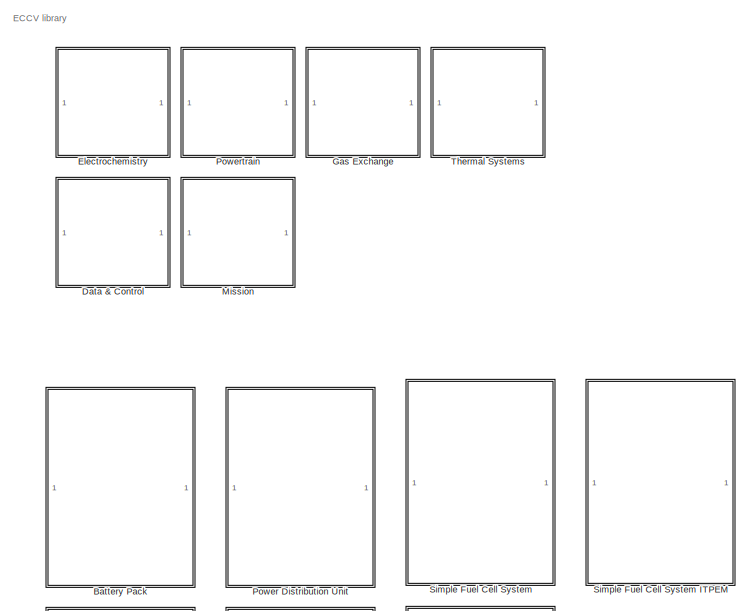
[diagram: root canvas - part 1/2, full width, top band]
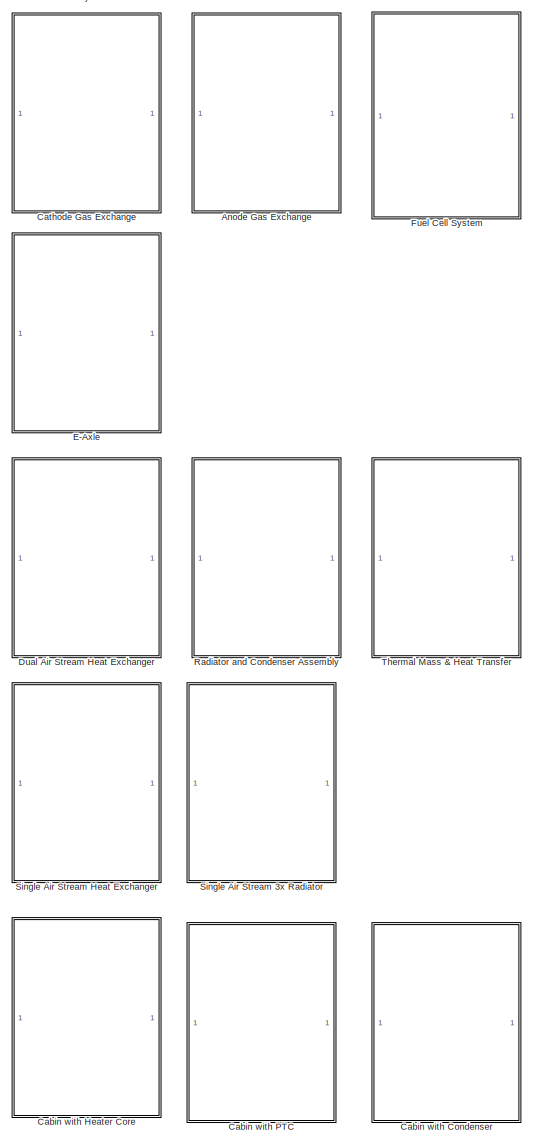
[diagram: root canvas - part 2/2, bottom center region]
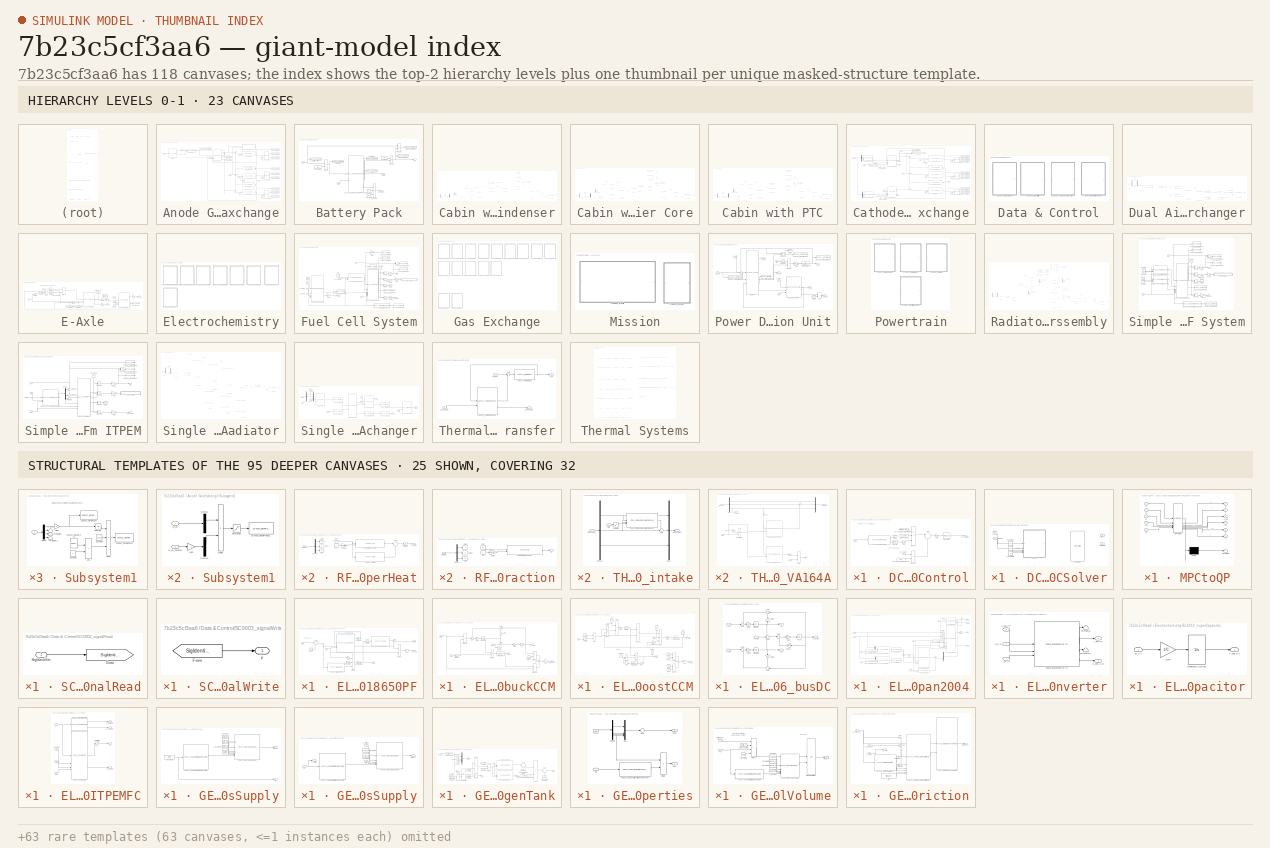
[diagram: thumbnail index - top-2 hierarchy levels (23 canvases) + 25 structural-template representatives of the remaining 95 canvases]
MODEL slx_7b23c5cf3aa6
KIND library
CONFIG AbsTol = auto
CONFIG EnableMultiTasking = off
CONFIG FixedStep = auto
CONFIG MaxStep = auto
CONFIG MinStep = auto
CONFIG RelTol = 1e-3
CONFIG SampleTimeConstraint = Unconstrained
CONFIG SolverName = VariableStepAuto
CONFIG StartTime = 0.0
CONFIG StopTime = 10.0
BLOCK [SubSystem] Anode Gas Exchange
BLOCK [Reference] Anode Gas Exchange/Channel Volume  REF=$bdroot/Gas Exchange/GE0009_controlVolume
  SourceBlock = $bdroot/Gas Exchange/GE0009_controlVolume
BLOCK [From] Anode Gas Exchange/From
  GotoTag = T_fc
BLOCK [From] Anode Gas Exchange/From1
  GotoTag = T_fc
BLOCK [From] Anode Gas Exchange/From2
  GotoTag = T_fc
BLOCK [From] Anode Gas Exchange/From3
  GotoTag = T_fc
BLOCK [From] Anode Gas Exchange/From4
  GotoTag = T_fc
BLOCK [From] Anode Gas Exchange/From5
  GotoTag = T_fc
BLOCK [Reference] Anode Gas Exchange/GE0008_gasProperties  REF=$bdroot/Gas Exchange/GE0008_gasProperties
  SourceBlock = $bdroot/Gas Exchange/GE0008_gasProperties
BLOCK [Reference] Anode Gas Exchange/GE0008_gasProperties1  REF=$bdroot/Gas Exchange/GE0008_gasProperties
  SourceBlock = $bdroot/Gas Exchange/GE0008_gasProperties
BLOCK [Reference] Anode Gas Exchange/GE0008_gasProperties2  REF=$bdroot/Gas Exchange/GE0008_gasProperties
  SourceBlock = $bdroot/Gas Exchange/GE0008_gasProperties
BLOCK [Reference] Anode Gas Exchange/GE0013_ejector  REF=$bdroot/Gas Exchange/GE0013_ejector
  SourceBlock = $bdroot/Gas Exchange/GE0013_ejector
BLOCK [Goto] Anode Gas Exchange/Goto1
  GotoTag = T_fc
BLOCK [Reference] Anode Gas Exchange/Hydrogen tank  REF=$bdroot/Gas Exchange/GE0007_hydrogenTank
  SourceBlock = $bdroot/Gas Exchange/GE0007_hydrogenTank
BLOCK [Reference] Anode Gas Exchange/Linear Restriction  REF=$bdroot/Gas Exchange/GE0015_linearRestriction
  SourceBlock = $bdroot/Gas Exchange/GE0015_linearRestriction
BLOCK [Reference] Anode Gas Exchange/Linear Restriction1  REF=$bdroot/Gas Exchange/GE0015_linearRestriction
  SourceBlock = $bdroot/Gas Exchange/GE0015_linearRestriction
BLOCK [Reference] Anode Gas Exchange/Primary manifold  REF=$bdroot/Gas Exchange/GE0009_controlVolume
  SourceBlock = $bdroot/Gas Exchange/GE0009_controlVolume
BLOCK [Reference] Anode Gas Exchange/Return Volume  REF=$bdroot/Gas Exchange/GE0009_controlVolume
  SourceBlock = $bdroot/Gas Exchange/GE0009_controlVolume
BLOCK [Reference] Anode Gas Exchange/SC0002_signalRead1  REF=$bdroot/Data & Control/SC0002_signalRead
  SourceBlock = $bdroot/Data & Control/SC0002_signalRead
BLOCK [Reference] Anode Gas Exchange/SC0002_signalRead10  REF=$bdroot/Data & Control/SC0002_signalRead
  SourceBlock = $bdroot/Data & Control/SC0002_signalRead
BLOCK [Reference] Anode Gas Exchange/SC0002_signalRead11  REF=$bdroot/Data & Control/SC0002_signalRead
  SourceBlock = $bdroot/Data & Control/SC0002_signalRead
BLOCK [Reference] Anode Gas Exchange/SC0002_signalRead12  REF=$bdroot/Data & Control/SC0002_signalRead
  SourceBlock = $bdroot/Data & Control/SC0002_signalRead
BLOCK [Reference] Anode Gas Exchange/SC0002_signalRead2  REF=$bdroot/Data & Control/SC0002_signalRead
  SourceBlock = $bdroot/Data & Control/SC0002_signalRead
BLOCK [Reference] Anode Gas Exchange/SC0002_signalRead3  REF=$bdroot/Data & Control/SC0002_signalRead
  SourceBlock = $bdroot/Data & Control/SC0002_signalRead
BLOCK [Reference] Anode Gas Exchange/SC0002_signalRead4  REF=$bdroot/Data & Control/SC0002_signalRead
  SourceBlock = $bdroot/Data & Control/SC0002_signalRead
BLOCK [Reference] Anode Gas Exchange/SC0002_signalRead5  REF=$bdroot/Data & Control/SC0002_signalRead
  SourceBlock = $bdroot/Data & Control/SC0002_signalRead
BLOCK [Reference] Anode Gas Exchange/SC0002_signalRead6  REF=$bdroot/Data & Control/SC0002_signalRead
  SourceBlock = $bdroot/Data & Control/SC0002_signalRead
BLOCK [Reference] Anode Gas Exchange/SC0002_signalRead7  REF=$bdroot/Data & Control/SC0002_signalRead
  SourceBlock = $bdroot/Data & Control/SC0002_signalRead
BLOCK [Reference] Anode Gas Exchange/SC0002_signalRead8  REF=$bdroot/Data & Control/SC0002_signalRead
  SourceBlock = $bdroot/Data & Control/SC0002_signalRead
BLOCK [Reference] Anode Gas Exchange/SC0002_signalRead9  REF=$bdroot/Data & Control/SC0002_signalRead
  SourceBlock = $bdroot/Data & Control/SC0002_signalRead
BLOCK [SubSystem] Anode Gas Exchange/Subsystem1
BLOCK [Demux] Anode Gas Exchange/Subsystem1/Demux
BLOCK [Demux] Anode Gas Exchange/Subsystem1/Demux1
BLOCK [Product] Anode Gas Exchange/Subsystem1/Divide
  Inputs = */
BLOCK [Gain] Anode Gas Exchange/Subsystem1/Gain
  Gain = -1
BLOCK [Reference] Anode Gas Exchange/Subsystem1/SC0002_signalRead11  REF=$bdroot/Data & Control/SC0002_signalRead
  SourceBlock = $bdroot/Data & Control/SC0002_signalRead
BLOCK [Saturate] Anode Gas Exchange/Subsystem1/Saturation
  LowerLimit = -10
  UpperLimit = 10
BLOCK [Inport] Anode Gas Exchange/Subsystem1/W_an
BLOCK [Inport] Anode Gas Exchange/Subsystem1/W_an_reacted
  Port = 2
BLOCK [Sum] Anode Gas Exchange/Sum
  Inputs = +|+
  NameLocation = left
BLOCK [Sum] Anode Gas Exchange/Sum1
  Inputs = |+-
BLOCK [Sum] Anode Gas Exchange/Sum2
  Inputs = +--
BLOCK [Sum] Anode Gas Exchange/Sum3
  Inputs = ++-
BLOCK [Sum] Anode Gas Exchange/Sum5
  Inputs = 1
BLOCK [Sum] Anode Gas Exchange/Sum8
  Inputs = -+|
BLOCK [Reference] Anode Gas Exchange/Supply Volume  REF=$bdroot/Gas Exchange/GE0009_controlVolume
  SourceBlock = $bdroot/Gas Exchange/GE0009_controlVolume
BLOCK [Inport] Anode Gas Exchange/T_fc [K]
  Port = 3
BLOCK [Inport] Anode Gas Exchange/W_H2_ref [kg//s]
  Port = 2
BLOCK [Inport] Anode Gas Exchange/W_an [kg//s]
BLOCK [Outport] Anode Gas Exchange/p_ch (p x 4)
BLOCK [SubSystem] Battery Pack
BLOCK [Reference] Battery Pack/Battery current  REF=$bdroot/Data & Control/SC0002_signalRead
  SourceBlock = $bdroot/Data & Control/SC0002_signalRead
BLOCK [Reference] Battery Pack/Cell current  REF=$bdroot/Data & Control/SC0002_signalRead
  SourceBlock = $bdroot/Data & Control/SC0002_signalRead
BLOCK [Reference] Battery Pack/Cell voltage  REF=$bdroot/Data & Control/SC0002_signalRead
  SourceBlock = $bdroot/Data & Control/SC0002_signalRead
BLOCK [Constant] Battery Pack/Constant1
  Value = Nx
BLOCK [Constant] Battery Pack/Constant2
  Value = Ny
BLOCK [Constant] Battery Pack/Constant4
  Value = Ny
BLOCK [Constant] Battery Pack/Constant5
  Value = Nx
BLOCK [Product] Battery Pack/Divide
  Inputs = */
BLOCK [Reference] Battery Pack/EL0001_panasonicNCR18650PF  REF=$bdroot/Electrochemistry/EL0001_panasonicNCR18650PF
  SourceBlock = $bdroot/Electrochemistry/EL0001_panasonicNCR18650PF
BLOCK [Inport] Battery Pack/I [A]
BLOCK [Reference] Battery Pack/Module voltage  REF=$bdroot/Data & Control/SC0002_signalRead
  SourceBlock = $bdroot/Data & Control/SC0002_signalRead
BLOCK [Reference] Battery Pack/Module voltage1  REF=$bdroot/Data & Control/SC0002_signalRead
  SourceBlock = $bdroot/Data & Control/SC0002_signalRead
BLOCK [Product] Battery Pack/Product1
BLOCK [Product] Battery Pack/Product2
  Inputs = 3
BLOCK [Product] Battery Pack/Product3
BLOCK [Outport] Battery Pack/Q_gen [J//s]
  Port = 3
BLOCK [Reference] Battery Pack/SOC  REF=$bdroot/Data & Control/SC0002_signalRead
  NameLocation = right
  SourceBlock = $bdroot/Data & Control/SC0002_signalRead
BLOCK [Outport] Battery Pack/SOC [-]
  Port = 2
BLOCK [Inport] Battery Pack/T [K]
  Port = 2
BLOCK [Outport] Battery Pack/V [V]
BLOCK [SubSystem] Cabin with Condenser
BLOCK [Inport] Cabin with Condenser/AMB (T,p,RH)
BLOCK [Bias] Cabin with Condenser/Add Constant
  Bias = -273.15
  SaturateOnIntegerOverflow = off
BLOCK [Reference] Cabin with Condenser/Cabin Air Volume  REF=$bdroot/Thermal Systems/TH0026_airVolume
  SourceBlock = $bdroot/Thermal Systems/TH0026_airVolume
BLOCK [Constant] Cabin with Condenser/Constant
  Value = 24
BLOCK [Constant] Cabin with Condenser/Constant6
BLOCK [Demux] Cabin with Condenser/Demux
  Outputs = 3
BLOCK [Demux] Cabin with Condenser/Demux1
  Outputs = 3
BLOCK [From] Cabin with Condenser/From
  GotoTag = W_in
BLOCK [From] Cabin with Condenser/From1
  GotoTag = p_amb
BLOCK [From] Cabin with Condenser/From2
  GotoTag = T_amb
BLOCK [From] Cabin with Condenser/From3
  GotoTag = v
BLOCK [Goto] Cabin with Condenser/Goto
  GotoTag = W_in
BLOCK [Goto] Cabin with Condenser/Goto1
  GotoTag = p_amb
BLOCK [Goto] Cabin with Condenser/Goto2
  GotoTag = T_amb
BLOCK [Goto] Cabin with Condenser/Goto3
  GotoTag = v
BLOCK [Reference] Cabin with Condenser/Intake Flap  REF=$bdroot/Thermal Systems/TH0027_hvacFlap
  SourceBlock = $bdroot/Thermal Systems/TH0027_hvacFlap
BLOCK [Mux] Cabin with Condenser/Mux
  DisplayOption = bar
  Inputs = 3
BLOCK [Inport] Cabin with Condenser/Q_ptc [J//s]
  Port = 5
BLOCK [Reference] Cabin with Condenser/RF0013_calculateHeatflow  REF=$bdroot/Thermal Systems/RF0013_calculateHeatflow
  SourceBlock = $bdroot/Thermal Systems/RF0013_calculateHeatflow
BLOCK [Reference] Cabin with Condenser/RF0020_simpleLouverFinHEX  REF=$bdroot/Thermal Systems/RF0020_simpleLouverFinHEX
  SourceBlock = $bdroot/Thermal Systems/RF0020_simpleLouverFinHEX
BLOCK [Inport] Cabin with Condenser/RF: (h1,p1,W1)
  Port = 6
BLOCK [Outport] Cabin with Condenser/RF: (h2,p2,W2)
  Port = 4
BLOCK [Reference] Cabin with Condenser/SC0002_signalRead1  REF=$bdroot/Data & Control/SC0002_signalRead
  SourceBlock = $bdroot/Data & Control/SC0002_signalRead
BLOCK [Reference] Cabin with Condenser/SC0002_signalRead6  REF=$bdroot/Data & Control/SC0002_signalRead
  SourceBlock = $bdroot/Data & Control/SC0002_signalRead
BLOCK [Reference] Cabin with Condenser/SC0002_signalRead8  REF=$bdroot/Data & Control/SC0002_signalRead
  SourceBlock = $bdroot/Data & Control/SC0002_signalRead
BLOCK [Reference] Cabin with Condenser/TH0005_flowSplit  REF=$bdroot/Thermal Systems/TH0005_flowSplit
  SourceBlock = $bdroot/Thermal Systems/TH0005_flowSplit
BLOCK [Reference] Cabin with Condenser/TH0006_flowConfluence  REF=$bdroot/Thermal Systems/TH0006_flowConfluence
  SourceBlock = $bdroot/Thermal Systems/TH0006_flowConfluence
BLOCK [Reference] Cabin with Condenser/TH0009_intake  REF=$bdroot/Thermal Systems/TH0009_intake
  SourceBlock = $bdroot/Thermal Systems/TH0009_intake
BLOCK [Reference] Cabin with Condenser/TH0011_outletFlowBalance  REF=$bdroot/Thermal Systems/TH0011_outletFlowBalance
  SourceBlock = $bdroot/Thermal Systems/TH0011_outletFlowBalance
BLOCK [Reference] Cabin with Condenser/TH0019_airTotalHeatTransfer  REF=$bdroot/Thermal Systems/TH0019_airTotalHeatTransfer
  SourceBlock = $bdroot/Thermal Systems/TH0019_airTotalHeatTransfer
BLOCK [Reference] Cabin with Condenser/TH0028_VA195  REF=$bdroot/Thermal Systems/TH0028_VA195
  LibrarySourceBlock = component_lib/Thermal Systems/TH0023_WP120
  SourceBlock = $bdroot/Thermal Systems/TH0028_VA195
BLOCK [Reference] Cabin with Condenser/TH0029_cabinConvection  REF=$bdroot/Thermal Systems/TH0029_cabinConvection
  NameLocation = top
  SourceBlock = $bdroot/Thermal Systems/TH0029_cabinConvection
BLOCK [Outport] Cabin with Condenser/T_cabin [K]
BLOCK [Terminator] Cabin with Condenser/Terminator
BLOCK [Terminator] Cabin with Condenser/Terminator1
BLOCK [Terminator] Cabin with Condenser/Terminator2
BLOCK [Outport] Cabin with Condenser/fan_current [A]
  Port = 2
BLOCK [Inport] Cabin with Condenser/fan_speed [rpm]
  Port = 4
BLOCK [Inport] Cabin with Condenser/flap [-]
  Port = 3
BLOCK [Outport] Cabin with Condenser/fresh_flow [kg//s]
  Port = 3
BLOCK [Reference] Cabin with Condenser/outletFlap  REF=$bdroot/Thermal Systems/TH0027_hvacFlap
  SourceBlock = $bdroot/Thermal Systems/TH0027_hvacFlap
BLOCK [Inport] Cabin with Condenser/v [m//s]
  Port = 2
BLOCK [SubSystem] Cabin with Heater Core
BLOCK [Inport] Cabin with Heater Core/AMB (T,p,RH)
BLOCK [Bias] Cabin with Heater Core/Add Constant
  Bias = -273.15
  SaturateOnIntegerOverflow = off
BLOCK [Inport] Cabin with Heater Core/CL: (T1,p1,W1)
  Port = 5
BLOCK [Outport] Cabin with Heater Core/CL: (T2,p2,W2)
  Port = 4
BLOCK [Reference] Cabin with Heater Core/Cabin Air Volume  REF=$bdroot/Thermal Systems/TH0026_airVolume
  SourceBlock = $bdroot/Thermal Systems/TH0026_airVolume
BLOCK [Constant] Cabin with Heater Core/Constant
  Value = 24
BLOCK [Constant] Cabin with Heater Core/Constant6
BLOCK [Demux] Cabin with Heater Core/Demux
  Outputs = 3
BLOCK [Demux] Cabin with Heater Core/Demux1
  Outputs = 3
BLOCK [From] Cabin with Heater Core/From
  GotoTag = W_in
BLOCK [From] Cabin with Heater Core/From1
  GotoTag = p_amb
BLOCK [From] Cabin with Heater Core/From2
  GotoTag = T_amb
BLOCK [From] Cabin with Heater Core/From3
  GotoTag = v
BLOCK [Goto] Cabin with Heater Core/Goto
  GotoTag = W_in
BLOCK [Goto] Cabin with Heater Core/Goto1
  GotoTag = p_amb
BLOCK [Goto] Cabin with Heater Core/Goto2
  GotoTag = T_amb
BLOCK [Goto] Cabin with Heater Core/Goto3
  GotoTag = v
BLOCK [Reference] Cabin with Heater Core/Heat Exchanger  REF=$bdroot/Thermal Systems/TH0002_radiatorCore
  SourceBlock = $bdroot/Thermal Systems/TH0002_radiatorCore
BLOCK [Reference] Cabin with Heater Core/Intake Flap  REF=$bdroot/Thermal Systems/TH0027_hvacFlap
  SourceBlock = $bdroot/Thermal Systems/TH0027_hvacFlap
BLOCK [Mux] Cabin with Heater Core/Mux
  DisplayOption = bar
  Inputs = 3
BLOCK [Reference] Cabin with Heater Core/SC0002_signalRead1  REF=$bdroot/Data & Control/SC0002_signalRead
  SourceBlock = $bdroot/Data & Control/SC0002_signalRead
BLOCK [Reference] Cabin with Heater Core/SC0002_signalRead6  REF=$bdroot/Data & Control/SC0002_signalRead
  SourceBlock = $bdroot/Data & Control/SC0002_signalRead
BLOCK [Reference] Cabin with Heater Core/SC0002_signalRead8  REF=$bdroot/Data & Control/SC0002_signalRead
  SourceBlock = $bdroot/Data & Control/SC0002_signalRead
BLOCK [Reference] Cabin with Heater Core/TH0005_flowSplit  REF=$bdroot/Thermal Systems/TH0005_flowSplit
  SourceBlock = $bdroot/Thermal Systems/TH0005_flowSplit
BLOCK [Reference] Cabin with Heater Core/TH0006_flowConfluence  REF=$bdroot/Thermal Systems/TH0006_flowConfluence
  SourceBlock = $bdroot/Thermal Systems/TH0006_flowConfluence
BLOCK [Reference] Cabin with Heater Core/TH0009_intake  REF=$bdroot/Thermal Systems/TH0009_intake
  SourceBlock = $bdroot/Thermal Systems/TH0009_intake
BLOCK [Reference] Cabin with Heater Core/TH0011_outletFlowBalance  REF=$bdroot/Thermal Systems/TH0011_outletFlowBalance
  SourceBlock = $bdroot/Thermal Systems/TH0011_outletFlowBalance
BLOCK [Reference] Cabin with Heater Core/TH0028_VA195  REF=$bdroot/Thermal Systems/TH0028_VA195
  LibrarySourceBlock = component_lib/Thermal Systems/TH0023_WP120
  SourceBlock = $bdroot/Thermal Systems/TH0028_VA195
BLOCK [Reference] Cabin with Heater Core/TH0029_cabinConvection  REF=$bdroot/Thermal Systems/TH0029_cabinConvection
  NameLocation = top
  SourceBlock = $bdroot/Thermal Systems/TH0029_cabinConvection
BLOCK [Outport] Cabin with Heater Core/T_cabin [K]
BLOCK [Terminator] Cabin with Heater Core/Terminator
BLOCK [Terminator] Cabin with Heater Core/Terminator1
BLOCK [Terminator] Cabin with Heater Core/Terminator2
BLOCK [Outport] Cabin with Heater Core/fan_current [A]
  Port = 2
BLOCK [Inport] Cabin with Heater Core/fan_speed [rpm]
  Port = 4
BLOCK [Inport] Cabin with Heater Core/flap [-]
  Port = 3
BLOCK [Outport] Cabin with Heater Core/fresh_flow [kg//s]
  Port = 3
BLOCK [Reference] Cabin with Heater Core/outletFlap  REF=$bdroot/Thermal Systems/TH0027_hvacFlap
  SourceBlock = $bdroot/Thermal Systems/TH0027_hvacFlap
BLOCK [Inport] Cabin with Heater Core/v [m//s]
  Port = 2
BLOCK [SubSystem] Cabin with PTC
BLOCK [Inport] Cabin with PTC/AMB (T,p,RH)
BLOCK [Bias] Cabin with PTC/Add Constant
  Bias = -273.15
  SaturateOnIntegerOverflow = off
BLOCK [Reference] Cabin with PTC/Cabin Air Volume  REF=$bdroot/Thermal Systems/TH0026_airVolume
  SourceBlock = $bdroot/Thermal Systems/TH0026_airVolume
BLOCK [Constant] Cabin with PTC/Constant4
  Value = 24
BLOCK [Constant] Cabin with PTC/Constant6
BLOCK [Demux] Cabin with PTC/Demux
  Outputs = 3
BLOCK [Demux] Cabin with PTC/Demux1
  Outputs = 3
BLOCK [From] Cabin with PTC/From
  GotoTag = W_in
BLOCK [From] Cabin with PTC/From1
  GotoTag = p_amb
BLOCK [From] Cabin with PTC/From2
  GotoTag = T_amb
BLOCK [From] Cabin with PTC/From3
  GotoTag = v
BLOCK [Goto] Cabin with PTC/Goto
  GotoTag = W_in
BLOCK [Goto] Cabin with PTC/Goto1
  GotoTag = p_amb
BLOCK [Goto] Cabin with PTC/Goto2
  GotoTag = T_amb
BLOCK [Goto] Cabin with PTC/Goto3
  GotoTag = v
BLOCK [Reference] Cabin with PTC/Intake Flap  REF=$bdroot/Thermal Systems/TH0027_hvacFlap
  SourceBlock = $bdroot/Thermal Systems/TH0027_hvacFlap
BLOCK [Mux] Cabin with PTC/Mux
  DisplayOption = bar
  Inputs = 3
BLOCK [Inport] Cabin with PTC/Q [J//s]
  Port = 5
BLOCK [Reference] Cabin with PTC/SC0002_signalRead1  REF=$bdroot/Data & Control/SC0002_signalRead
  SourceBlock = $bdroot/Data & Control/SC0002_signalRead
BLOCK [Reference] Cabin with PTC/SC0002_signalRead6  REF=$bdroot/Data & Control/SC0002_signalRead
  SourceBlock = $bdroot/Data & Control/SC0002_signalRead
BLOCK [Reference] Cabin with PTC/SC0002_signalRead8  REF=$bdroot/Data & Control/SC0002_signalRead
  SourceBlock = $bdroot/Data & Control/SC0002_signalRead
BLOCK [Reference] Cabin with PTC/TH0005_flowSplit  REF=$bdroot/Thermal Systems/TH0005_flowSplit
  SourceBlock = $bdroot/Thermal Systems/TH0005_flowSplit
BLOCK [Reference] Cabin with PTC/TH0006_flowConfluence  REF=$bdroot/Thermal Systems/TH0006_flowConfluence
  SourceBlock = $bdroot/Thermal Systems/TH0006_flowConfluence
BLOCK [Reference] Cabin with PTC/TH0009_intake  REF=$bdroot/Thermal Systems/TH0009_intake
  SourceBlock = $bdroot/Thermal Systems/TH0009_intake
BLOCK [Reference] Cabin with PTC/TH0011_outletFlowBalance  REF=$bdroot/Thermal Systems/TH0011_outletFlowBalance
  SourceBlock = $bdroot/Thermal Systems/TH0011_outletFlowBalance
BLOCK [Reference] Cabin with PTC/TH0019_airTotalHeatTransfer  REF=$bdroot/Thermal Systems/TH0019_airTotalHeatTransfer
  SourceBlock = $bdroot/Thermal Systems/TH0019_airTotalHeatTransfer
BLOCK [Reference] Cabin with PTC/TH0028_VA195  REF=$bdroot/Thermal Systems/TH0028_VA195
  LibrarySourceBlock = component_lib/Thermal Systems/TH0023_WP120
  SourceBlock = $bdroot/Thermal Systems/TH0028_VA195
BLOCK [Reference] Cabin with PTC/TH0029_cabinConvection  REF=$bdroot/Thermal Systems/TH0029_cabinConvection
  NameLocation = top
  SourceBlock = $bdroot/Thermal Systems/TH0029_cabinConvection
BLOCK [Outport] Cabin with PTC/T_cabin [K]
BLOCK [Terminator] Cabin with PTC/Terminator
BLOCK [Terminator] Cabin with PTC/Terminator1
BLOCK [Terminator] Cabin with PTC/Terminator2
BLOCK [Outport] Cabin with PTC/fan_current [A]
  Port = 2
BLOCK [Inport] Cabin with PTC/fan_speed [rpm]
  Port = 4
BLOCK [Inport] Cabin with PTC/flap [-]
  Port = 3
BLOCK [Outport] Cabin with PTC/fresh_flow [kg//s]
  Port = 3
BLOCK [Reference] Cabin with PTC/outletFlap  REF=$bdroot/Thermal Systems/TH0027_hvacFlap
  SourceBlock = $bdroot/Thermal Systems/TH0027_hvacFlap
BLOCK [Inport] Cabin with PTC/v [m//s]
  Port = 2
BLOCK [SubSystem] Cathode Gas Exchange
BLOCK [Reference] Cathode Gas Exchange/Channel Volume  REF=$bdroot/Gas Exchange/GE0009_controlVolume
  SourceBlock = $bdroot/Gas Exchange/GE0009_controlVolume
BLOCK [Demux] Cathode Gas Exchange/Demux
  Outputs = 3
BLOCK [Demux] Cathode Gas Exchange/Demux1
  Outputs = 3
BLOCK [From] Cathode Gas Exchange/From
  GotoTag = T_fc
BLOCK [From] Cathode Gas Exchange/From1
  GotoTag = T_fc
BLOCK [From] Cathode Gas Exchange/From2
  GotoTag = T_fc
BLOCK [From] Cathode Gas Exchange/From3
  GotoTag = T_fc
BLOCK [From] Cathode Gas Exchange/From4
  GotoTag = T_fc
BLOCK [From] Cathode Gas Exchange/From5
  GotoTag = T_fc
BLOCK [Reference] Cathode Gas Exchange/GE0002_dynHumidGasSupply  REF=$bdroot/Gas Exchange/GE0002_dynHumidGasSupply
  SourceBlock = $bdroot/Gas Exchange/GE0002_dynHumidGasSupply
BLOCK [Reference] Cathode Gas Exchange/GE0002_dynHumidGasSupply1  REF=$bdroot/Gas Exchange/GE0002_dynHumidGasSupply
  SourceBlock = $bdroot/Gas Exchange/GE0002_dynHumidGasSupply
BLOCK [Reference] Cathode Gas Exchange/GE0008_gasProperties  REF=$bdroot/Gas Exchange/GE0008_gasProperties
  SourceBlock = $bdroot/Gas Exchange/GE0008_gasProperties
BLOCK [Reference] Cathode Gas Exchange/GE0008_gasProperties1  REF=$bdroot/Gas Exchange/GE0008_gasProperties
  SourceBlock = $bdroot/Gas Exchange/GE0008_gasProperties
BLOCK [Reference] Cathode Gas Exchange/GE0008_gasProperties2  REF=$bdroot/Gas Exchange/GE0008_gasProperties
  SourceBlock = $bdroot/Gas Exchange/GE0008_gasProperties
BLOCK [Reference] Cathode Gas Exchange/GE0011_ellipseCompressor  REF=$bdroot/Gas Exchange/GE0011_ellipseCompressor
  SourceBlock = $bdroot/Gas Exchange/GE0011_ellipseCompressor
BLOCK [Reference] Cathode Gas Exchange/GE0012_throttle  REF=$bdroot/Gas Exchange/GE0012_throttle
  SourceBlock = $bdroot/Gas Exchange/GE0012_throttle
BLOCK [Reference] Cathode Gas Exchange/GE0015_linearRestriction  REF=$bdroot/Gas Exchange/GE0015_linearRestriction
  NameLocation = top
  SourceBlock = $bdroot/Gas Exchange/GE0015_linearRestriction
BLOCK [Reference] Cathode Gas Exchange/GE0015_linearRestriction1  REF=$bdroot/Gas Exchange/GE0015_linearRestriction
  NameLocation = top
  SourceBlock = $bdroot/Gas Exchange/GE0015_linearRestriction
BLOCK [Gain] Cathode Gas Exchange/Gain
BLOCK [Goto] Cathode Gas Exchange/Goto
  GotoTag = T_fc
BLOCK [Integrator] Cathode Gas Exchange/Integrator Limited
  InitialCondition = 1e4
  LimitOutput = on
  LowerSaturationLimit = 3e3
  UpperSaturationLimit = 2e4
BLOCK [Outport] Cathode Gas Exchange/P_cmp [J//s]
  Port = 2
BLOCK [Reference] Cathode Gas Exchange/Return Volume  REF=$bdroot/Gas Exchange/GE0009_controlVolume
  SourceBlock = $bdroot/Gas Exchange/GE0009_controlVolume
BLOCK [Reference] Cathode Gas Exchange/SC0002_signalRead1  REF=$bdroot/Data & Control/SC0002_signalRead
  SourceBlock = $bdroot/Data & Control/SC0002_signalRead
BLOCK [Reference] Cathode Gas Exchange/SC0002_signalRead10  REF=$bdroot/Data & Control/SC0002_signalRead
  SourceBlock = $bdroot/Data & Control/SC0002_signalRead
BLOCK [Reference] Cathode Gas Exchange/SC0002_signalRead11  REF=$bdroot/Data & Control/SC0002_signalRead
  SourceBlock = $bdroot/Data & Control/SC0002_signalRead
BLOCK [Reference] Cathode Gas Exchange/SC0002_signalRead12  REF=$bdroot/Data & Control/SC0002_signalRead
  SourceBlock = $bdroot/Data & Control/SC0002_signalRead
BLOCK [Reference] Cathode Gas Exchange/SC0002_signalRead2  REF=$bdroot/Data & Control/SC0002_signalRead
  SourceBlock = $bdroot/Data & Control/SC0002_signalRead
BLOCK [Reference] Cathode Gas Exchange/SC0002_signalRead3  REF=$bdroot/Data & Control/SC0002_signalRead
  SourceBlock = $bdroot/Data & Control/SC0002_signalRead
BLOCK [Reference] Cathode Gas Exchange/SC0002_signalRead4  REF=$bdroot/Data & Control/SC0002_signalRead
  SourceBlock = $bdroot/Data & Control/SC0002_signalRead
BLOCK [Reference] Cathode Gas Exchange/SC0002_signalRead5  REF=$bdroot/Data & Control/SC0002_signalRead
  SourceBlock = $bdroot/Data & Control/SC0002_signalRead
BLOCK [Reference] Cathode Gas Exchange/SC0002_signalRead6  REF=$bdroot/Data & Control/SC0002_signalRead
  SourceBlock = $bdroot/Data & Control/SC0002_signalRead
BLOCK [Reference] Cathode Gas Exchange/SC0002_signalRead7  REF=$bdroot/Data & Control/SC0002_signalRead
  SourceBlock = $bdroot/Data & Control/SC0002_signalRead
BLOCK [Reference] Cathode Gas Exchange/SC0002_signalRead8  REF=$bdroot/Data & Control/SC0002_signalRead
  SourceBlock = $bdroot/Data & Control/SC0002_signalRead
BLOCK [Reference] Cathode Gas Exchange/SC0002_signalRead9  REF=$bdroot/Data & Control/SC0002_signalRead
  SourceBlock = $bdroot/Data & Control/SC0002_signalRead
BLOCK [SubSystem] Cathode Gas Exchange/Subsystem1
BLOCK [Demux] Cathode Gas Exchange/Subsystem1/Demux
BLOCK [Demux] Cathode Gas Exchange/Subsystem1/Demux1
BLOCK [Product] Cathode Gas Exchange/Subsystem1/Divide
  Inputs = */
BLOCK [Gain] Cathode Gas Exchange/Subsystem1/Gain
  Gain = -1
BLOCK [Reference] Cathode Gas Exchange/Subsystem1/SC0002_signalRead11  REF=$bdroot/Data & Control/SC0002_signalRead
  SourceBlock = $bdroot/Data & Control/SC0002_signalRead
BLOCK [Saturate] Cathode Gas Exchange/Subsystem1/Saturation
  LowerLimit = 0
  UpperLimit = 10
BLOCK [Inport] Cathode Gas Exchange/Subsystem1/W_ca
BLOCK [Inport] Cathode Gas Exchange/Subsystem1/W_ca_reacted
  Port = 2
BLOCK [Sum] Cathode Gas Exchange/Sum
  Inputs = |+-
BLOCK [Sum] Cathode Gas Exchange/Sum1
  Inputs = 1
BLOCK [Sum] Cathode Gas Exchange/Sum2
  Inputs = |+-
BLOCK [Sum] Cathode Gas Exchange/Sum3
  Inputs = +-|
BLOCK [Sum] Cathode Gas Exchange/Sum4
  Inputs = ++-
BLOCK [Reference] Cathode Gas Exchange/Supply Volume  REF=$bdroot/Gas Exchange/GE0009_controlVolume
  SourceBlock = $bdroot/Gas Exchange/GE0009_controlVolume
BLOCK [Inport] Cathode Gas Exchange/T_fc [K]
  Port = 5
BLOCK [Terminator] Cathode Gas Exchange/Terminator
BLOCK [Terminator] Cathode Gas Exchange/Terminator1
BLOCK [Inport] Cathode Gas Exchange/W_ca [kg//s]
BLOCK [Inport] Cathode Gas Exchange/amb (T,p,RH)
  Port = 4
BLOCK [Outport] Cathode Gas Exchange/p_ch (p x 4)
BLOCK [Inport] Cathode Gas Exchange/throttle [-]
  Port = 2
BLOCK [Inport] Cathode Gas Exchange/w_cmp [rad//s]
  Port = 3
BLOCK [SubSystem] Data & Control
BLOCK [SubSystem] Data & Control/DC0007_cathodeFlowControl
BLOCK [Constant] Data & Control/DC0007_cathodeFlowControl/Cells in FC stack
  Value = n_cell
BLOCK [Reference] Data & Control/DC0007_cathodeFlowControl/F0003_reactionFlow.m  REF=base_lib/F0003_pukrushpan2004/F0003_reactionFlow.m  (lib defined in slx_7545a99fe1f7)
  SourceBlock = base_lib/F0003_pukrushpan2004/F0003_reactionFlow.m
  SourceType = SubSystem
BLOCK [Gain] Data & Control/DC0007_cathodeFlowControl/Gain
  Gain = 1e5
BLOCK [Gain] Data & Control/DC0007_cathodeFlowControl/Gain1
  Gain = -1
BLOCK [Inport] Data & Control/DC0007_cathodeFlowControl/I_fc [A]
BLOCK [Constant] Data & Control/DC0007_cathodeFlowControl/Oxygen mass fraction in dry air
  Value = 0.23
BLOCK [Constant] Data & Control/DC0007_cathodeFlowControl/Oxygen stoichiometry reference
  Value = lambda_O2_ref
BLOCK [Reference] Data & Control/DC0007_cathodeFlowControl/PID Controller  REF=slpidlib/PID Controller
  SourceBlock = slpidlib/PID Controller
  SourceType = PID 1dof
BLOCK [Product] Data & Control/DC0007_cathodeFlowControl/Product
  Inputs = 3
BLOCK [Product] Data & Control/DC0007_cathodeFlowControl/Product1
BLOCK [Selector] Data & Control/DC0007_cathodeFlowControl/Selector
  IndexOptions = Index vector (dialog)
  Indices = 2
  InputPortWidth = 4
  OutputSizes = 1
BLOCK [Sum] Data & Control/DC0007_cathodeFlowControl/Sum
  Inputs = |+-
BLOCK [Terminator] Data & Control/DC0007_cathodeFlowControl/Terminator
BLOCK [Inport] Data & Control/DC0007_cathodeFlowControl/W_ca [kg//s]
  Port = 2
BLOCK [Outport] Data & Control/DC0007_cathodeFlowControl/w_cmp [rad//s]
BLOCK [SubSystem] Data & Control/DC0008_linearMPCSolver
BLOCK [Inport] Data & Control/DC0008_linearMPCSolver/A [n x n]
BLOCK [Inport] Data & Control/DC0008_linearMPCSolver/B [n x m]
  Port = 2
BLOCK [Constant] Data & Control/DC0008_linearMPCSolver/Constant
  Value = Q
BLOCK [Constant] Data & Control/DC0008_linearMPCSolver/Constant1
  Value = R
BLOCK [Constant] Data & Control/DC0008_linearMPCSolver/Constant2
  Value = N
BLOCK [SubSystem] Data & Control/DC0008_linearMPCSolver/MPCtoQP
  ErrorFcn = Stateflow.Translate.translate
  LibrarySourceBlock = simulink/User-Defined\nFunctions/MATLAB Function
  PermitHierarchicalResolution = ExplicitOnly
  SFBlockType = MATLAB Function
  TreatAsAtomicUnit = on
BLOCK [Demux] Data & Control/DC0008_linearMPCSolver/MPCtoQP/ Demux 
  Outputs = 1
BLOCK [S-Function] Data & Control/DC0008_linearMPCSolver/MPCtoQP/ SFunction 
  EnableBusSupport = off
  FunctionName = sf_sfun
  PortCounts = [5 7]
  SFcnIsStateOwnerBlock = off
  SFunctionDeploymentMode = off
  Tag = Stateflow S-Function 2
BLOCK [Terminator] Data & Control/DC0008_linearMPCSolver/MPCtoQP/ Terminator 
BLOCK [Inport] Data & Control/DC0008_linearMPCSolver/MPCtoQP/A
BLOCK [Outport] Data & Control/DC0008_linearMPCSolver/MPCtoQP/A_eq
  Port = 3
BLOCK [Inport] Data & Control/DC0008_linearMPCSolver/MPCtoQP/B
  Port = 2
BLOCK [Outport] Data & Control/DC0008_linearMPCSolver/MPCtoQP/G
  Port = 5
BLOCK [Inport] Data & Control/DC0008_linearMPCSolver/MPCtoQP/N
  Port = 5
BLOCK [Outport] Data & Control/DC0008_linearMPCSolver/MPCtoQP/P
BLOCK [Inport] Data & Control/DC0008_linearMPCSolver/MPCtoQP/Q
  Port = 3
BLOCK [Inport] Data & Control/DC0008_linearMPCSolver/MPCtoQP/R
  Port = 4
BLOCK [Outport] Data & Control/DC0008_linearMPCSolver/MPCtoQP/b
  Port = 4
BLOCK [Outport] Data & Control/DC0008_linearMPCSolver/MPCtoQP/c
  Port = 2
BLOCK [Outport] Data & Control/DC0008_linearMPCSolver/MPCtoQP/h
  Port = 6
BLOCK [Outport] Data & Control/DC0008_linearMPCSolver/exitFlag [-]
  Port = 2
BLOCK [S-Function] Data & Control/DC0008_linearMPCSolver/qpSWIFT
  EnableBusSupport = off
  FunctionName = qpSWIFT_sfunc_e
  SFcnIsStateOwnerBlock = off
  SFunctionDeploymentMode = off
BLOCK [Outport] Data & Control/DC0008_linearMPCSolver/u [ N x 1]
BLOCK [SubSystem] Data & Control/SC0002_signalRead
BLOCK [Goto] Data & Control/SC0002_signalRead/Goto
  GotoTag = SigIdentifier
  TagVisibility = global
BLOCK [Inport] Data & Control/SC0002_signalRead/SigIdentifier
BLOCK [SubSystem] Data & Control/SC0003_signalWrite
BLOCK [From] Data & Control/SC0003_signalWrite/From
  GotoTag = SigIdentifier
  TagVisibility = global
BLOCK [Outport] Data & Control/SC0003_signalWrite/y
BLOCK [SubSystem] Dual Air Stream Heat Exchanger
BLOCK [Inport] Dual Air Stream Heat Exchanger/AMB: (T,p,RH)
BLOCK [Inport] Dual Air Stream Heat Exchanger/CL: (T1,p1,W1)
  Port = 5
BLOCK [Outport] Dual Air Stream Heat Exchanger/CL: (T2,p2,W2)
  Port = 2
BLOCK [Demux] Dual Air Stream Heat Exchanger/Demux
  Outputs = 3
BLOCK [From] Dual Air Stream Heat Exchanger/From1
  GotoTag = p_amb
BLOCK [From] Dual Air Stream Heat Exchanger/From2
  GotoTag = air_22
BLOCK [From] Dual Air Stream Heat Exchanger/From3
  GotoTag = W_in
BLOCK [Goto] Dual Air Stream Heat Exchanger/Goto
  GotoTag = W_in
BLOCK [Goto] Dual Air Stream Heat Exchanger/Goto1
  GotoTag = p_amb
  NameLocation = right
BLOCK [Goto] Dual Air Stream Heat Exchanger/Goto2
  GotoTag = air_22
BLOCK [Mux] Dual Air Stream Heat Exchanger/Mux
  DisplayOption = bar
  Inputs = 3
BLOCK [Outport] Dual Air Stream Heat Exchanger/P_fan [J//s]
BLOCK [Inport] Dual Air Stream Heat Exchanger/Q_cds [J//s]
  Port = 3
BLOCK [Reference] Dual Air Stream Heat Exchanger/Radiator core - behind CDS  REF=$bdroot/Thermal Systems/TH0002_radiatorCore
  SourceBlock = $bdroot/Thermal Systems/TH0002_radiatorCore
BLOCK [Reference] Dual Air Stream Heat Exchanger/Radiator core - exposed  REF=$bdroot/Thermal Systems/TH0002_radiatorCore
  SourceBlock = $bdroot/Thermal Systems/TH0002_radiatorCore
BLOCK [Reference] Dual Air Stream Heat Exchanger/TH0003_coolantTank  REF=$bdroot/Thermal Systems/TH0003_coolantTank
  SourceBlock = $bdroot/Thermal Systems/TH0003_coolantTank
BLOCK [Reference] Dual Air Stream Heat Exchanger/TH0003_coolantTank1  REF=$bdroot/Thermal Systems/TH0003_coolantTank
  SourceBlock = $bdroot/Thermal Systems/TH0003_coolantTank
BLOCK [Reference] Dual Air Stream Heat Exchanger/TH0004_radiatorPlugFlow  REF=$bdroot/Thermal Systems/TH0004_radiatorPlugFlow
  SourceBlock = $bdroot/Thermal Systems/TH0004_radiatorPlugFlow
BLOCK [Reference] Dual Air Stream Heat Exchanger/TH0005_flowSplit  REF=$bdroot/Thermal Systems/TH0005_flowSplit
  SourceBlock = $bdroot/Thermal Systems/TH0005_flowSplit
BLOCK [Reference] Dual Air Stream Heat Exchanger/TH0006_flowConfluence  REF=$bdroot/Thermal Systems/TH0006_flowConfluence
  SourceBlock = $bdroot/Thermal Systems/TH0006_flowConfluence
BLOCK [Reference] Dual Air Stream Heat Exchanger/TH0007_airRestriction  REF=$bdroot/Thermal Systems/TH0007_airRestriction
  SourceBlock = $bdroot/Thermal Systems/TH0007_airRestriction
BLOCK [Reference] Dual Air Stream Heat Exchanger/TH0007_airRestriction1  REF=$bdroot/Thermal Systems/TH0007_airRestriction
  SourceBlock = $bdroot/Thermal Systems/TH0007_airRestriction
BLOCK [Reference] Dual Air Stream Heat Exchanger/TH0008_condenser  REF=$bdroot/Thermal Systems/TH0008_condenser
  SourceBlock = $bdroot/Thermal Systems/TH0008_condenser
BLOCK [Reference] Dual Air Stream Heat Exchanger/TH0009_intake  REF=$bdroot/Thermal Systems/TH0009_intake
  SourceBlock = $bdroot/Thermal Systems/TH0009_intake
BLOCK [Reference] Dual Air Stream Heat Exchanger/TH0010_fan  REF=$bdroot/Thermal Systems/TH0010_fan
  SourceBlock = $bdroot/Thermal Systems/TH0010_fan
BLOCK [Reference] Dual Air Stream Heat Exchanger/TH0011_outletFlowBalance  REF=$bdroot/Thermal Systems/TH0011_outletFlowBalance
  SourceBlock = $bdroot/Thermal Systems/TH0011_outletFlowBalance
BLOCK [Inport] Dual Air Stream Heat Exchanger/rel_fan_speed [-]
  Port = 4
BLOCK [Inport] Dual Air Stream Heat Exchanger/v [m//s]
  Port = 2
BLOCK [SubSystem] E-Axle
BLOCK [Constant] E-Axle/Constant1
  Value = V_nom
BLOCK [Constant] E-Axle/Constant3
BLOCK [Reference] E-Axle/Current sensor  REF=$bdroot/Data & Control/SC0002_signalRead
  NameLocation = right
  SourceBlock = $bdroot/Data & Control/SC0002_signalRead
BLOCK [Product] E-Axle/Divide
  Inputs = **/
BLOCK [Product] E-Axle/Divide1
  Inputs = **
BLOCK [Gain] E-Axle/Gain
  Gain = n
BLOCK [Gain] E-Axle/Gain1
  Gain = n
BLOCK [Gain] E-Axle/Gain2
  Gain = n
BLOCK [Gain] E-Axle/Gain3
  Gain = -1
BLOCK [Outport] E-Axle/I_em [A]
  Port = 2
BLOCK [Reference] E-Axle/Max torque  REF=$bdroot/Data & Control/SC0002_signalRead
  SourceBlock = $bdroot/Data & Control/SC0002_signalRead
BLOCK [Reference] E-Axle/Min torque  REF=$bdroot/Data & Control/SC0002_signalRead
  SourceBlock = $bdroot/Data & Control/SC0002_signalRead
BLOCK [Reference] E-Axle/PT0002_simpleMotor  REF=$bdroot/Powertrain/PT0002_simpleMotor
  SourceBlock = $bdroot/Powertrain/PT0002_simpleMotor
BLOCK [Reference] E-Axle/PT0003_gearBox  REF=$bdroot/Powertrain/PT0003_gearBox
  SourceBlock = $bdroot/Powertrain/PT0003_gearBox
BLOCK [Outport] E-Axle/Q_gen [J//s]
  Port = 3
BLOCK [Saturate] E-Axle/Saturation2
  LowerLimit = -1
  UpperLimit = 1
BLOCK [Saturate] E-Axle/Saturation3
  LowerLimit = 0
  UpperLimit = 476
BLOCK [Saturate] E-Axle/Saturation4
  LowerLimit = 0
  UpperLimit = V_nom
BLOCK [Reference] E-Axle/Speed sensor  REF=$bdroot/Data & Control/SC0002_signalRead
  SourceBlock = $bdroot/Data & Control/SC0002_signalRead
BLOCK [Reference] E-Axle/Torque sensor  REF=$bdroot/Data & Control/SC0002_signalRead
  NameLocation = right
  SourceBlock = $bdroot/Data & Control/SC0002_signalRead
BLOCK [Outport] E-Axle/Tq_axle [Nm]
BLOCK [Inport] E-Axle/Tq_sig [-]
BLOCK [Inport] E-Axle/V [V]
  Port = 3
BLOCK [Inport] E-Axle/gear [-]
  Port = 2
BLOCK [Lookup_n-D] E-Axle/speed-Torque map1
  BreakpointsForDimension1 = [25.2590673575129\n34.9740932642487\n43.3937823834197\n51.1658031088083\n55.6994818652850\n64.1191709844560\n65.4145077720207\n67.3575129533679\n68.0051813471503\n69.9481865284974\n71.2435233160622\n73.1865284974093\n75.7772020725389\n76.4248704663213\n78.3678756476684\n81.6062176165803\n82.9015544041451\n86.1398963730570\n88.0829015544041\n90.0259067357513\n94.5595854922280\n97.1502590673575\n100.388601036269\n103.6269...<+621ch>
  ExtrapMethod = Clip
  InputPortMap = u0
  InternalRulePriority = Speed
  NumberOfTableDimensions = 1
  RndMeth = Simplest
  Table = [1991.26637554585\n1997.08879184862\n1994.17758369723\n1994.17758369723\n1994.17758369723\n1991.26637554585\n1944.68704512373\n1921.39737991266\n1854.43959243086\n1816.59388646288\n1787.48180494905\n1700.14556040757\n1671.03347889374\n1621.54294032023\n1548.76273653566\n1513.82823871907\n1438.13682678311\n1391.55749636099\n1339.15574963610\n1280.93158660844\n1225.61863173217\n1176.12809315866\n1129.54876273654\n1085.880...<+621ch>
  UseLastTableValue = on
BLOCK [Inport] E-Axle/w_w [rad//s]
  Port = 4
BLOCK [SubSystem] Electrochemistry
BLOCK [SubSystem] Electrochemistry/EL0001_panasonicNCR18650PF
BLOCK [Abs] Electrochemistry/EL0001_panasonicNCR18650PF/Abs
  SaturateOnIntegerOverflow = off
BLOCK [Constant] Electrochemistry/EL0001_panasonicNCR18650PF/Constant
  Value = 273.15
BLOCK [Constant] Electrochemistry/EL0001_panasonicNCR18650PF/Constant5
  Value = 3.6e3
BLOCK [Product] Electrochemistry/EL0001_panasonicNCR18650PF/Divide1
  Inputs = *//
BLOCK [Reference] Electrochemistry/EL0001_panasonicNCR18650PF/F0001_cellCapacity.m  REF=base_lib/F0001_panasonicCell/F0001_cellCapacity.m  (lib defined in slx_7545a99fe1f7)
  SourceBlock = base_lib/F0001_panasonicCell/F0001_cellCapacity.m
  SourceType = SubSystem
BLOCK [Reference] Electrochemistry/EL0001_panasonicNCR18650PF/F0001_dynamicVoltage.m  REF=base_lib/F0001_panasonicCell/F0001_dynamicVoltage.m  (lib defined in slx_7545a99fe1f7)
  SourceBlock = base_lib/F0001_panasonicCell/F0001_dynamicVoltage.m
  SourceType = SubSystem
BLOCK [Reference] Electrochemistry/EL0001_panasonicNCR18650PF/F0001_ocvSOC.m  REF=base_lib/F0001_panasonicCell/F0001_ocvSOC.m  (lib defined in slx_7545a99fe1f7)
  SourceBlock = base_lib/F0001_panasonicCell/F0001_ocvSOC.m
  SourceType = SubSystem
BLOCK [Gain] Electrochemistry/EL0001_panasonicNCR18650PF/Gain
  Gain = -1
BLOCK [Inport] Electrochemistry/EL0001_panasonicNCR18650PF/I [A]
BLOCK [Integrator] Electrochemistry/EL0001_panasonicNCR18650PF/Integrator Limited
  InitialCondition = par.init_SOC
  LimitOutput = on
  LowerSaturationLimit = 0
  UpperSaturationLimit = 1
BLOCK [Integrator] Electrochemistry/EL0001_panasonicNCR18650PF/Integrator1
  InitialCondition = zeros(5,1)
BLOCK [Product] Electrochemistry/EL0001_panasonicNCR18650PF/Product
BLOCK [Outport] Electrochemistry/EL0001_panasonicNCR18650PF/Q_gen [J//s]
  Port = 3
BLOCK [Outport] Electrochemistry/EL0001_panasonicNCR18650PF/SOC [-]
  Port = 2
BLOCK [Saturate] Electrochemistry/EL0001_panasonicNCR18650PF/Saturation
  LowerLimit = 0.1
  UpperLimit = 0.9
BLOCK [Sum] Electrochemistry/EL0001_panasonicNCR18650PF/Sum
  Inputs = |+-
BLOCK [Sum] Electrochemistry/EL0001_panasonicNCR18650PF/Sum2
  Inputs = |+-
BLOCK [Inport] Electrochemistry/EL0001_panasonicNCR18650PF/T [K]
  Port = 2
BLOCK [Outport] Electrochemistry/EL0001_panasonicNCR18650PF/V [V]
BLOCK [SubSystem] Electrochemistry/EL0004_buckCCM
BLOCK [Abs] Electrochemistry/EL0004_buckCCM/Abs
  SaturateOnIntegerOverflow = off
BLOCK [From] Electrochemistry/EL0004_buckCCM/From2
  GotoTag = I_out
BLOCK [Gain] Electrochemistry/EL0004_buckCCM/Gain2
  Gain = 1/C
BLOCK [Gain] Electrochemistry/EL0004_buckCCM/Gain4
  Gain = 1/L
BLOCK [Gain] Electrochemistry/EL0004_buckCCM/Gain6
  Gain = R
  NameLocation = right
BLOCK [Goto] Electrochemistry/EL0004_buckCCM/Goto
  GotoTag = I_out
BLOCK [Outport] Electrochemistry/EL0004_buckCCM/I_in [A]
  Port = 2
BLOCK [Inport] Electrochemistry/EL0004_buckCCM/I_out [A]
  Port = 2
BLOCK [Integrator] Electrochemistry/EL0004_buckCCM/Integrator
BLOCK [Product] Electrochemistry/EL0004_buckCCM/Product
BLOCK [Product] Electrochemistry/EL0004_buckCCM/Product1
BLOCK [Product] Electrochemistry/EL0004_buckCCM/Product2
BLOCK [Product] Electrochemistry/EL0004_buckCCM/Product3
BLOCK [Outport] Electrochemistry/EL0004_buckCCM/Q_gen [J//s]
  Port = 3
BLOCK [Saturate] Electrochemistry/EL0004_buckCCM/Saturation1
  LowerLimit = 0
  UpperLimit = 1
BLOCK [Sum] Electrochemistry/EL0004_buckCCM/Sum
  Inputs = +|-
BLOCK [Sum] Electrochemistry/EL0004_buckCCM/Sum1
  Inputs = -+|
BLOCK [Sum] Electrochemistry/EL0004_buckCCM/Sum3
  Inputs = +-|
BLOCK [Sum] Electrochemistry/EL0004_buckCCM/Sum4
  Inputs = |++
  NameLocation = top
BLOCK [TransferFcn] Electrochemistry/EL0004_buckCCM/Transfer Fcn
  Denominator = [0.001 1]
BLOCK [Integrator] Electrochemistry/EL0004_buckCCM/V_4
  InitialCondition = V_init
BLOCK [Inport] Electrochemistry/EL0004_buckCCM/V_in [V]
BLOCK [Outport] Electrochemistry/EL0004_buckCCM/V_out [V]
BLOCK [Inport] Electrochemistry/EL0004_buckCCM/d [-]
  Port = 3
BLOCK [SubSystem] Electrochemistry/EL0005_boostCCM
BLOCK [Abs] Electrochemistry/EL0005_boostCCM/Abs
  SaturateOnIntegerOverflow = off
BLOCK [Sum] Electrochemistry/EL0005_boostCCM/Add
  IconShape = rectangular
  Inputs = +-
BLOCK [Sum] Electrochemistry/EL0005_boostCCM/Add1
  IconShape = rectangular
  Inputs = +-
BLOCK [Sum] Electrochemistry/EL0005_boostCCM/Add2
  IconShape = rectangular
  Inputs = +--
BLOCK [Integrator] Electrochemistry/EL0005_boostCCM/Capacitor voltage
  InitialCondition = V_init
BLOCK [Constant] Electrochemistry/EL0005_boostCCM/Constant
BLOCK [Constant] Electrochemistry/EL0005_boostCCM/Constant1
  Value = eta
BLOCK [Product] Electrochemistry/EL0005_boostCCM/Divide1
  Inputs = **
BLOCK [From] Electrochemistry/EL0005_boostCCM/From
  GotoTag = V_in
BLOCK [From] Electrochemistry/EL0005_boostCCM/From1
  GotoTag = I_in
BLOCK [From] Electrochemistry/EL0005_boostCCM/From2
  GotoTag = I_out
BLOCK [From] Electrochemistry/EL0005_boostCCM/From3
  GotoTag = V_out
BLOCK [Gain] Electrochemistry/EL0005_boostCCM/Gain
  Gain = 1/L
BLOCK [Gain] Electrochemistry/EL0005_boostCCM/Gain1
  Gain = 1/C
BLOCK [Gain] Electrochemistry/EL0005_boostCCM/Gain2
  Gain = -1
  NameLocation = top
BLOCK [Goto] Electrochemistry/EL0005_boostCCM/Goto
  GotoTag = V_out
  NameLocation = right
BLOCK [Goto] Electrochemistry/EL0005_boostCCM/Goto1
  GotoTag = I_out
  NameLocation = right
BLOCK [Goto] Electrochemistry/EL0005_boostCCM/Goto2
  GotoTag = V_in
  NameLocation = right
BLOCK [Goto] Electrochemistry/EL0005_boostCCM/Goto3
  GotoTag = I_in
  NameLocation = right
BLOCK [Outport] Electrochemistry/EL0005_boostCCM/I_in [A]
  Port = 2
BLOCK [Inport] Electrochemistry/EL0005_boostCCM/I_out [A]
  Port = 3
BLOCK [Integrator] Electrochemistry/EL0005_boostCCM/Integrator
BLOCK [Math] Electrochemistry/EL0005_boostCCM/Power
  Operator = pow
BLOCK [Product] Electrochemistry/EL0005_boostCCM/Product
BLOCK [Product] Electrochemistry/EL0005_boostCCM/Product1
BLOCK [Product] Electrochemistry/EL0005_boostCCM/Product2
BLOCK [Product] Electrochemistry/EL0005_boostCCM/Product3
BLOCK [Outport] Electrochemistry/EL0005_boostCCM/Q_gen [J//s]
  Port = 3
BLOCK [Gain] Electrochemistry/EL0005_boostCCM/Resistor to ground
  Gain = 1e-4
BLOCK [Saturate] Electrochemistry/EL0005_boostCCM/Saturation
  LowerLimit = 0.2
  UpperLimit = 0.8
BLOCK [Signum] Electrochemistry/EL0005_boostCCM/Sign
  NameLocation = top
BLOCK [Sum] Electrochemistry/EL0005_boostCCM/Sum
  Inputs = +|-
BLOCK [TransferFcn] Electrochemistry/EL0005_boostCCM/Transfer Fcn
  Denominator = [0.001 1]
  NameLocation = top
BLOCK [Inport] Electrochemistry/EL0005_boostCCM/V_in [V]
BLOCK [Outport] Electrochemistry/EL0005_boostCCM/V_out [V]
BLOCK [Inport] Electrochemistry/EL0005_boostCCM/d [-]
  Port = 2
BLOCK [SubSystem] Electrochemistry/EL0006_busDC
BLOCK [Gain] Electrochemistry/EL0006_busDC/Gain
  Gain = 1/C
BLOCK [Gain] Electrochemistry/EL0006_busDC/Gain1
  Gain = 1e-3
  NameLocation = top
BLOCK [Gain] Electrochemistry/EL0006_busDC/Gain2
  Gain = 1/L
BLOCK [Gain] Electrochemistry/EL0006_busDC/Gain3
  Gain = 1/L
BLOCK [Gain] Electrochemistry/EL0006_busDC/Gain4
  Gain = R
  NameLocation = right
BLOCK [Gain] Electrochemistry/EL0006_busDC/Gain6
  Gain = R
  NameLocation = left
BLOCK [Outport] Electrochemistry/EL0006_busDC/I_1 [A]
BLOCK [Outport] Electrochemistry/EL0006_busDC/I_2 [A]
  Port = 3
BLOCK [Inport] Electrochemistry/EL0006_busDC/I_load [A]
  Port = 2
BLOCK [Integrator] Electrochemistry/EL0006_busDC/Integrator
BLOCK [Integrator] Electrochemistry/EL0006_busDC/Integrator1
BLOCK [Sum] Electrochemistry/EL0006_busDC/Sum
  Inputs = |+-
BLOCK [Sum] Electrochemistry/EL0006_busDC/Sum1
  Inputs = -+|
BLOCK [Sum] Electrochemistry/EL0006_busDC/Sum2
  Inputs = |+-
BLOCK [Sum] Electrochemistry/EL0006_busDC/Sum3
  Inputs = +-+
BLOCK [Sum] Electrochemistry/EL0006_busDC/Sum4
  Inputs = |++
  NameLocation = top
BLOCK [Sum] Electrochemistry/EL0006_busDC/Sum5
  Inputs = ++|
  NameLocation = top
BLOCK [Inport] Electrochemistry/EL0006_busDC/V_1 [V]
BLOCK [Inport] Electrochemistry/EL0006_busDC/V_2 [V]
  Port = 3
BLOCK [Integrator] Electrochemistry/EL0006_busDC/V_4
  InitialCondition = V_init
BLOCK [Outport] Electrochemistry/EL0006_busDC/V_bus [V]
  Port = 2
BLOCK [SubSystem] Electrochemistry/EL0007_pukrushpan2004
BLOCK [Demux] Electrochemistry/EL0007_pukrushpan2004/Demux
BLOCK [Demux] Electrochemistry/EL0007_pukrushpan2004/Demux1
BLOCK [Reference] Electrochemistry/EL0007_pukrushpan2004/F0003_diffusiveFlow.m  REF=base_lib/F0003_pukrushpan2004/F0003_diffusiveFlow.m  (lib defined in slx_7545a99fe1f7)
  LibrarySourceBlock = simulink/User-Defined\nFunctions/MATLAB Function
  SourceBlock = base_lib/F0003_pukrushpan2004/F0003_diffusiveFlow.m
  SourceType = SubSystem
BLOCK [Reference] Electrochemistry/EL0007_pukrushpan2004/F0003_dragFlow.m  REF=base_lib/F0003_pukrushpan2004/F0003_dragFlow.m  (lib defined in slx_7545a99fe1f7)
  LibrarySourceBlock = simulink/User-Defined\nFunctions/MATLAB Function
  SourceBlock = base_lib/F0003_pukrushpan2004/F0003_dragFlow.m
  SourceType = SubSystem
BLOCK [Reference] Electrochemistry/EL0007_pukrushpan2004/F0003_outputVoltage.m  REF=base_lib/F0003_pukrushpan2004/F0003_outputVoltage.m  (lib defined in slx_7545a99fe1f7)
  LibrarySourceBlock = simulink/User-Defined\nFunctions/MATLAB Function
  SourceBlock = base_lib/F0003_pukrushpan2004/F0003_outputVoltage.m
  SourceType = SubSystem
BLOCK [Reference] Electrochemistry/EL0007_pukrushpan2004/F0003_reactionFlow.m  REF=base_lib/F0003_pukrushpan2004/F0003_reactionFlow.m  (lib defined in slx_7545a99fe1f7)
  LibrarySourceBlock = simulink/User-Defined\nFunctions/MATLAB Function
  SourceBlock = base_lib/F0003_pukrushpan2004/F0003_reactionFlow.m
  SourceType = SubSystem
BLOCK [Reference] Electrochemistry/EL0007_pukrushpan2004/F0003_vaporActivity.m  REF=base_lib/F0003_pukrushpan2004/F0003_vaporActivity.m  (lib defined in slx_7545a99fe1f7)
  LibrarySourceBlock = simulink/User-Defined\nFunctions/MATLAB Function
  SourceBlock = base_lib/F0003_pukrushpan2004/F0003_vaporActivity.m
  SourceType = SubSystem
BLOCK [Reference] Electrochemistry/EL0007_pukrushpan2004/F0003_vaporActivity.m1  REF=base_lib/F0003_pukrushpan2004/F0003_vaporActivity.m  (lib defined in slx_7545a99fe1f7)
  LibrarySourceBlock = simulink/User-Defined\nFunctions/MATLAB Function
  SourceBlock = base_lib/F0003_pukrushpan2004/F0003_vaporActivity.m
  SourceType = SubSystem
BLOCK [Reference] Electrochemistry/EL0007_pukrushpan2004/F0003_waterContent.m  REF=base_lib/F0003_pukrushpan2004/F0003_waterContent.m  (lib defined in slx_7545a99fe1f7)
  LibrarySourceBlock = simulink/User-Defined\nFunctions/MATLAB Function
  SourceBlock = base_lib/F0003_pukrushpan2004/F0003_waterContent.m
  SourceType = SubSystem
BLOCK [Reference] Electrochemistry/EL0007_pukrushpan2004/F0003_waterContent.m1  REF=base_lib/F0003_pukrushpan2004/F0003_waterContent.m  (lib defined in slx_7545a99fe1f7)
  LibrarySourceBlock = simulink/User-Defined\nFunctions/MATLAB Function
  SourceBlock = base_lib/F0003_pukrushpan2004/F0003_waterContent.m
  SourceType = SubSystem
BLOCK [Reference] Electrochemistry/EL0007_pukrushpan2004/F0010_vaporSaturationPressure.m  REF=base_lib/F0010_gasFlow/F0010_vaporSaturationPressure.m  (lib defined in slx_7545a99fe1f7)
  LibrarySourceBlock = simulink/User-Defined\nFunctions/MATLAB Function
  SourceBlock = base_lib/F0010_gasFlow/F0010_vaporSaturationPressure.m
  SourceType = SubSystem
BLOCK [Reference] Electrochemistry/EL0007_pukrushpan2004/F0010_vaporSaturationPressure.m1  REF=base_lib/F0010_gasFlow/F0010_vaporSaturationPressure.m  (lib defined in slx_7545a99fe1f7)
  LibrarySourceBlock = simulink/User-Defined\nFunctions/MATLAB Function
  SourceBlock = base_lib/F0010_gasFlow/F0010_vaporSaturationPressure.m
  SourceType = SubSystem
BLOCK [Reference] Electrochemistry/EL0007_pukrushpan2004/F0010_vaporSaturationPressure.m2  REF=base_lib/F0010_gasFlow/F0010_vaporSaturationPressure.m  (lib defined in slx_7545a99fe1f7)
  LibrarySourceBlock = simulink/User-Defined\nFunctions/MATLAB Function
  SourceBlock = base_lib/F0010_gasFlow/F0010_vaporSaturationPressure.m
  SourceType = SubSystem
BLOCK [From] Electrochemistry/EL0007_pukrushpan2004/From2
  GotoTag = I
BLOCK [Gain] Electrochemistry/EL0007_pukrushpan2004/Gain
  Gain = 1/2
BLOCK [Goto] Electrochemistry/EL0007_pukrushpan2004/Goto1
  GotoTag = I
BLOCK [Inport] Electrochemistry/EL0007_pukrushpan2004/I [A]
BLOCK [Mux] Electrochemistry/EL0007_pukrushpan2004/Mux
  DisplayOption = bar
BLOCK [Outport] Electrochemistry/EL0007_pukrushpan2004/Q_gen [J//s]
  Port = 5
BLOCK [Saturate] Electrochemistry/EL0007_pukrushpan2004/Saturation
  LowerLimit = 0.01
  UpperLimit = inf
BLOCK [Saturate] Electrochemistry/EL0007_pukrushpan2004/Saturation1
  LowerLimit = 100
  UpperLimit = inf
BLOCK [Saturate] Electrochemistry/EL0007_pukrushpan2004/Saturation2
  LowerLimit = 100
  UpperLimit = inf
BLOCK [Sum] Electrochemistry/EL0007_pukrushpan2004/Sum
  Inputs = +|+
BLOCK [Sum] Electrochemistry/EL0007_pukrushpan2004/Sum1
  Inputs = |+-
BLOCK [Sum] Electrochemistry/EL0007_pukrushpan2004/Sum2
  Inputs = |++
BLOCK [Sum] Electrochemistry/EL0007_pukrushpan2004/Sum4
  Inputs = |++
BLOCK [Inport] Electrochemistry/EL0007_pukrushpan2004/T_an [K]
  Port = 4
BLOCK [Inport] Electrochemistry/EL0007_pukrushpan2004/T_ca [K]
  Port = 5
BLOCK [Inport] Electrochemistry/EL0007_pukrushpan2004/T_fc [K]
  Port = 6
BLOCK [Outport] Electrochemistry/EL0007_pukrushpan2004/V [V]
BLOCK [Outport] Electrochemistry/EL0007_pukrushpan2004/W_an [kg//s]
  Port = 2
BLOCK [Outport] Electrochemistry/EL0007_pukrushpan2004/W_ca [kg//s]
  Port = 3
BLOCK [Outport] Electrochemistry/EL0007_pukrushpan2004/lam [-]
  Port = 4
BLOCK [Inport] Electrochemistry/EL0007_pukrushpan2004/p_an [Pa x 4]
  Port = 2
BLOCK [Inport] Electrochemistry/EL0007_pukrushpan2004/p_ca [Pa x 4]
  Port = 3
BLOCK [SubSystem] Electrochemistry/EL0008_dcdcConverter
BLOCK [Reference] Electrochemistry/EL0008_dcdcConverter/F0020_dcdcConverter.m  REF=base_lib/F0020_dcdcConverter/F0020_dcdcConverter.m  (lib defined in slx_7545a99fe1f7)
  LibrarySourceBlock = simulink/User-Defined\nFunctions/MATLAB Function
  SourceBlock = base_lib/F0020_dcdcConverter/F0020_dcdcConverter.m
  SourceType = SubSystem
BLOCK [Outport] Electrochemistry/EL0008_dcdcConverter/I_bus [A]
BLOCK [Inport] Electrochemistry/EL0008_dcdcConverter/I_in [A]
BLOCK [Outport] Electrochemistry/EL0008_dcdcConverter/Q_gen [J//s]
  Port = 2
BLOCK [Terminator] Electrochemistry/EL0008_dcdcConverter/Terminator
BLOCK [Terminator] Electrochemistry/EL0008_dcdcConverter/Terminator1
BLOCK [Inport] Electrochemistry/EL0008_dcdcConverter/V_bus [V]
  Port = 3
BLOCK [Inport] Electrochemistry/EL0008_dcdcConverter/V_in [V]
  Port = 2
BLOCK [SubSystem] Electrochemistry/EL0010_superCapacitor
BLOCK [Gain] Electrochemistry/EL0010_superCapacitor/Gain
  Gain = 1/C
BLOCK [Integrator] Electrochemistry/EL0010_superCapacitor/Integrator Limited
  InitialCondition = V_bus0
  LimitOutput = on
  LowerSaturationLimit = 0
BLOCK [Outport] Electrochemistry/EL0010_superCapacitor/V_bus [V]
BLOCK [Inport] Electrochemistry/EL0010_superCapacitor/dI [A]
BLOCK [SubSystem] Electrochemistry/EL0011_ITPEMFC
BLOCK [Reference] Electrochemistry/EL0011_ITPEMFC/F0003_reactionFlow.m  REF=base_lib/F0003_pukrushpan2004/F0003_reactionFlow.m  (lib defined in slx_7545a99fe1f7)
  LibrarySourceBlock = simulink/User-Defined\nFunctions/MATLAB Function
  SourceBlock = base_lib/F0003_pukrushpan2004/F0003_reactionFlow.m
  SourceType = SubSystem
BLOCK [Reference] Electrochemistry/EL0011_ITPEMFC/F0031_ITPEMFC.m  REF=base_lib/F0031_ITPEMFC/F0031_ITPEMFC.m  (lib defined in slx_7545a99fe1f7)
  LibrarySourceBlock = simulink/User-Defined\nFunctions/MATLAB Function
  SourceBlock = base_lib/F0031_ITPEMFC/F0031_ITPEMFC.m
  SourceType = SubSystem
BLOCK [Inport] Electrochemistry/EL0011_ITPEMFC/I [A]
BLOCK [Outport] Electrochemistry/EL0011_ITPEMFC/Q_gen [J//s]
  Port = 4
BLOCK [Inport] Electrochemistry/EL0011_ITPEMFC/RH [-]
  Port = 4
BLOCK [Saturate] Electrochemistry/EL0011_ITPEMFC/Saturation
  LowerLimit = 0.01
  UpperLimit = inf
BLOCK [Inport] Electrochemistry/EL0011_ITPEMFC/T [K]
  Port = 3
BLOCK [Outport] Electrochemistry/EL0011_ITPEMFC/V [V]
BLOCK [Outport] Electrochemistry/EL0011_ITPEMFC/W_an [kg//s]
  Port = 2
BLOCK [Outport] Electrochemistry/EL0011_ITPEMFC/W_ca [kg//s]
  Port = 3
BLOCK [Inport] Electrochemistry/EL0011_ITPEMFC/p_O2 [Pa]
  Port = 2
BLOCK [SubSystem] Fuel Cell System
BLOCK [Reference] Fuel Cell System/Anode Gas Exchange  REF=$bdroot/Anode Gas Exchange
  SourceBlock = $bdroot/Anode Gas Exchange
BLOCK [Reference] Fuel Cell System/Cathode Gas Exchange  REF=$bdroot/Cathode Gas Exchange
  SourceBlock = $bdroot/Cathode Gas Exchange
BLOCK [Constant] Fuel Cell System/Constant4
  NameLocation = top
  Value = n
BLOCK [Reference] Fuel Cell System/EL0007_pukrushpan2004  REF=$bdroot/Electrochemistry/EL0007_pukrushpan2004
  SourceBlock = $bdroot/Electrochemistry/EL0007_pukrushpan2004
BLOCK [Reference] Fuel Cell System/F0010_vaporSaturationPressure.m  REF=base_lib/F0010_gasFlow/F0010_vaporSaturationPressure.m  (lib defined in slx_7545a99fe1f7)
  LibrarySourceBlock = simulink/User-Defined\nFunctions/MATLAB Function
  SourceBlock = base_lib/F0010_gasFlow/F0010_vaporSaturationPressure.m
  SourceType = SubSystem
BLOCK [From] Fuel Cell System/From
  GotoTag = W_an
BLOCK [From] Fuel Cell System/From1
  GotoTag = W_ca
BLOCK [Gain] Fuel Cell System/Gain
  Gain = n_st
BLOCK [Gain] Fuel Cell System/Gain1
  Gain = n_st
BLOCK [Gain] Fuel Cell System/Gain2
  Gain = n_st
BLOCK [Gain] Fuel Cell System/Gain3
  Gain = n_st
BLOCK [Gain] Fuel Cell System/Gain4
  Gain = 1/420
BLOCK [Goto] Fuel Cell System/Goto
  GotoTag = W_an
BLOCK [Goto] Fuel Cell System/Goto1
  GotoTag = W_ca
BLOCK [Inport] Fuel Cell System/I [A]
BLOCK [Outport] Fuel Cell System/P_cmp [J//s]
  Port = 3
BLOCK [Product] Fuel Cell System/Product1
BLOCK [Product] Fuel Cell System/Product2
BLOCK [Product] Fuel Cell System/Product3
BLOCK [Product] Fuel Cell System/Product4
BLOCK [Product] Fuel Cell System/Product5
BLOCK [Outport] Fuel Cell System/Q_gen [J//s]
  Port = 2
BLOCK [Reference] Fuel Cell System/SC0002_signalRead1  REF=$bdroot/Data & Control/SC0002_signalRead
  SourceBlock = $bdroot/Data & Control/SC0002_signalRead
BLOCK [Reference] Fuel Cell System/SC0002_signalRead2  REF=$bdroot/Data & Control/SC0002_signalRead
  SourceBlock = $bdroot/Data & Control/SC0002_signalRead
BLOCK [Reference] Fuel Cell System/SC0002_signalRead3  REF=$bdroot/Data & Control/SC0002_signalRead
  SourceBlock = $bdroot/Data & Control/SC0002_signalRead
BLOCK [Reference] Fuel Cell System/SC0002_signalRead4  REF=$bdroot/Data & Control/SC0002_signalRead
  SourceBlock = $bdroot/Data & Control/SC0002_signalRead
BLOCK [Reference] Fuel Cell System/SC0002_signalRead5  REF=$bdroot/Data & Control/SC0002_signalRead
  SourceBlock = $bdroot/Data & Control/SC0002_signalRead
BLOCK [Reference] Fuel Cell System/SC0002_signalRead6  REF=$bdroot/Data & Control/SC0002_signalRead
  SourceBlock = $bdroot/Data & Control/SC0002_signalRead
BLOCK [Reference] Fuel Cell System/SC0002_signalRead7  REF=$bdroot/Data & Control/SC0002_signalRead
  SourceBlock = $bdroot/Data & Control/SC0002_signalRead
BLOCK [Reference] Fuel Cell System/SC0002_signalRead8  REF=$bdroot/Data & Control/SC0002_signalRead
  SourceBlock = $bdroot/Data & Control/SC0002_signalRead
BLOCK [SubSystem] Fuel Cell System/Subsystem1
BLOCK [Sum] Fuel Cell System/Subsystem1/Add1
  IconShape = rectangular
BLOCK [Constant] Fuel Cell System/Subsystem1/Constant6
BLOCK [Constant] Fuel Cell System/Subsystem1/Constant7
  Value = 100e3
BLOCK [Demux] Fuel Cell System/Subsystem1/Demux
BLOCK [Product] Fuel Cell System/Subsystem1/Divide
  Inputs = **/
BLOCK [Gain] Fuel Cell System/Subsystem1/Gain1
  Gain = -1
BLOCK [Inport] Fuel Cell System/Subsystem1/In1
BLOCK [Integrator] Fuel Cell System/Subsystem1/Integrator
BLOCK [Reference] Fuel Cell System/Subsystem1/SC0002_signalRead11  REF=$bdroot/Data & Control/SC0002_signalRead
  SourceBlock = $bdroot/Data & Control/SC0002_signalRead
BLOCK [Reference] Fuel Cell System/Subsystem1/SC0002_signalRead5  REF=$bdroot/Data & Control/SC0002_signalRead
  SourceBlock = $bdroot/Data & Control/SC0002_signalRead
BLOCK [Reference] Fuel Cell System/Subsystem1/SC0003_signalWrite1  REF=$bdroot/Data & Control/SC0003_signalWrite
  SourceBlock = $bdroot/Data & Control/SC0003_signalWrite
BLOCK [Terminator] Fuel Cell System/Subsystem1/Terminator
BLOCK [Terminator] Fuel Cell System/Subsystem1/Terminator1
BLOCK [Terminator] Fuel Cell System/Subsystem1/Terminator2
BLOCK [Inport] Fuel Cell System/T [K]
  Port = 6
BLOCK [Outport] Fuel Cell System/V [V]
BLOCK [Inport] Fuel Cell System/W_H2_ref [kg//s]
  Port = 4
BLOCK [Inport] Fuel Cell System/amb (T,p,RH)
  Port = 5
BLOCK [Inport] Fuel Cell System/throttle [-]
  Port = 2
BLOCK [Inport] Fuel Cell System/w_cmp [rad//s]
  Port = 3
BLOCK [SubSystem] Gas Exchange
BLOCK [SubSystem] Gas Exchange/GE0001_humidGasSupply
BLOCK [Constant] Gas Exchange/GE0001_humidGasSupply/Constant
  Value = par.p_tot
BLOCK [Constant] Gas Exchange/GE0001_humidGasSupply/Constant1
  Value = par.RH
BLOCK [Constant] Gas Exchange/GE0001_humidGasSupply/Constant2
  Value = par.T
BLOCK [Constant] Gas Exchange/GE0001_humidGasSupply/Constant3
  Value = par.x_H2
BLOCK [Constant] Gas Exchange/GE0001_humidGasSupply/Constant4
  Value = par.x_O2
BLOCK [Reference] Gas Exchange/GE0001_humidGasSupply/F0010_pressureSupply.m  REF=base_lib/F0010_gasFlow/F0010_pressureSupply.m  (lib defined in slx_7545a99fe1f7)
  SourceBlock = base_lib/F0010_gasFlow/F0010_pressureSupply.m
  SourceType = SubSystem
BLOCK [Reference] Gas Exchange/GE0001_humidGasSupply/F0010_vaporSaturationPressure.m  REF=base_lib/F0010_gasFlow/F0010_vaporSaturationPressure.m  (lib defined in slx_7545a99fe1f7)
  SourceBlock = base_lib/F0010_gasFlow/F0010_vaporSaturationPressure.m
  SourceType = SubSystem
BLOCK [Outport] Gas Exchange/GE0001_humidGasSupply/T [K]
  Port = 2
BLOCK [Outport] Gas Exchange/GE0001_humidGasSupply/p (p x 4)
BLOCK [SubSystem] Gas Exchange/GE0002_dynHumidGasSupply
BLOCK [Constant] Gas Exchange/GE0002_dynHumidGasSupply/Constant
  Value = x_H2_dry
BLOCK [Constant] Gas Exchange/GE0002_dynHumidGasSupply/Constant1
  Value = x_O2_dry
BLOCK [Reference] Gas Exchange/GE0002_dynHumidGasSupply/F0010_pressureSupply.m  REF=base_lib/F0010_gasFlow/F0010_pressureSupply.m  (lib defined in slx_7545a99fe1f7)
  SourceBlock = base_lib/F0010_gasFlow/F0010_pressureSupply.m
  SourceType = SubSystem
BLOCK [Reference] Gas Exchange/GE0002_dynHumidGasSupply/F0010_vaporSaturationPressure.m  REF=base_lib/F0010_gasFlow/F0010_vaporSaturationPressure.m  (lib defined in slx_7545a99fe1f7)
  SourceBlock = base_lib/F0010_gasFlow/F0010_vaporSaturationPressure.m
  SourceType = SubSystem
BLOCK [Inport] Gas Exchange/GE0002_dynHumidGasSupply/RH [-]
  Port = 3
BLOCK [Inport] Gas Exchange/GE0002_dynHumidGasSupply/T [K]
BLOCK [Outport] Gas Exchange/GE0002_dynHumidGasSupply/T_out [K]
  Port = 2
BLOCK [Outport] Gas Exchange/GE0002_dynHumidGasSupply/p (p x 4)
BLOCK [Inport] Gas Exchange/GE0002_dynHumidGasSupply/p_ref [Pa]
  Port = 2
BLOCK [SubSystem] Gas Exchange/GE0007_hydrogenTank
BLOCK [TransferFcn] Gas Exchange/GE0007_hydrogenTank/Actuator dynamics
  Denominator = [0.1 1]
BLOCK [Constant] Gas Exchange/GE0007_hydrogenTank/Constant
  Value = 0
BLOCK [Constant] Gas Exchange/GE0007_hydrogenTank/Constant2
  Value = par.V
BLOCK [Constant] Gas Exchange/GE0007_hydrogenTank/Constant3
  Value = par.T_tank
BLOCK [Constant] Gas Exchange/GE0007_hydrogenTank/Constant4
  Value = 0
BLOCK [Constant] Gas Exchange/GE0007_hydrogenTank/Constant5
  Value = par.m0
BLOCK [Constant] Gas Exchange/GE0007_hydrogenTank/Constant6
  Value = par.m0
BLOCK [Constant] Gas Exchange/GE0007_hydrogenTank/Constant7
  Value = par.M_j(1)
BLOCK [Constant] Gas Exchange/GE0007_hydrogenTank/Constant8
  Value = par.init_SOC
BLOCK [Constant] Gas Exchange/GE0007_hydrogenTank/Constant9
  Value = 0
BLOCK [Product] Gas Exchange/GE0007_hydrogenTank/Divide
  Inputs = */
BLOCK [Product] Gas Exchange/GE0007_hydrogenTank/Divide1
  Inputs = */
BLOCK [Product] Gas Exchange/GE0007_hydrogenTank/Divide2
  Inputs = */
BLOCK [Product] Gas Exchange/GE0007_hydrogenTank/Divide4
  Inputs = */
BLOCK [Reference] Gas Exchange/GE0007_hydrogenTank/F0005_enthalpy.m  REF=base_lib/F0005_h2Thermodynamics/F0005_enthalpy.m  (lib defined in slx_7545a99fe1f7)
  SourceBlock = base_lib/F0005_h2Thermodynamics/F0005_enthalpy.m
  SourceType = SubSystem
BLOCK [Reference] Gas Exchange/GE0007_hydrogenTank/F0005_pressure.m  REF=base_lib/F0005_h2Thermodynamics/F0005_pressure.m  (lib defined in slx_7545a99fe1f7)
  SourceBlock = base_lib/F0005_h2Thermodynamics/F0005_pressure.m
  SourceType = SubSystem
BLOCK [Gain] Gas Exchange/GE0007_hydrogenTank/Gain
  Gain = -1
BLOCK [Constant] Gas Exchange/GE0007_hydrogenTank/Hydrogen ideal gas molar specific heat
  Value = par.cp_j(1) .* par.M_j(1);
BLOCK [Integrator] Gas Exchange/GE0007_hydrogenTank/Integrator Limited
  InitialConditionSource = external
  LimitOutput = on
  LowerSaturationLimit = 0
BLOCK [Mux] Gas Exchange/GE0007_hydrogenTank/Mux
  DisplayOption = bar
BLOCK [Product] Gas Exchange/GE0007_hydrogenTank/Product
BLOCK [Outport] Gas Exchange/GE0007_hydrogenTank/SOC [-]
  Port = 3
BLOCK [Constant] Gas Exchange/GE0007_hydrogenTank/Standard state molar enthalpy
  NameLocation = right
  Value = par.h0
BLOCK [Sum] Gas Exchange/GE0007_hydrogenTank/Sum
  Inputs = |+-
BLOCK [Sum] Gas Exchange/GE0007_hydrogenTank/Sum1
  Inputs = |++
BLOCK [Outport] Gas Exchange/GE0007_hydrogenTank/T [K]
  Port = 2
BLOCK [Outport] Gas Exchange/GE0007_hydrogenTank/W [kg//s]
BLOCK [Inport] Gas Exchange/GE0007_hydrogenTank/W_H2 [kg//s]
BLOCK [Outport] Gas Exchange/GE0007_hydrogenTank/p _tank [Pa]
  Port = 4
BLOCK [Constant] Gas Exchange/GE0007_hydrogenTank/standard state temperature
  NameLocation = right
  Value = par.T0
BLOCK [SubSystem] Gas Exchange/GE0008_gasProperties
BLOCK [Demux] Gas Exchange/GE0008_gasProperties/Demux
BLOCK [Product] Gas Exchange/GE0008_gasProperties/Divide
  Inputs = */
BLOCK [Reference] Gas Exchange/GE0008_gasProperties/F0010_vaporSaturationPressure.m  REF=base_lib/F0010_gasFlow/F0010_vaporSaturationPressure.m  (lib defined in slx_7545a99fe1f7)
  SourceBlock = base_lib/F0010_gasFlow/F0010_vaporSaturationPressure.m
  SourceType = SubSystem
BLOCK [Mux] Gas Exchange/GE0008_gasProperties/Mux
  DisplayOption = bar
BLOCK [Outport] Gas Exchange/GE0008_gasProperties/RH [-]
  Port = 2
BLOCK [Sum] Gas Exchange/GE0008_gasProperties/Sum
  Inputs = |+|
BLOCK [Inport] Gas Exchange/GE0008_gasProperties/T [K]
  Port = 2
BLOCK [Inport] Gas Exchange/GE0008_gasProperties/p (p x 4)
BLOCK [Outport] Gas Exchange/GE0008_gasProperties/p [Pa]
BLOCK [SubSystem] Gas Exchange/GE0009_controlVolume
BLOCK [Constant] Gas Exchange/GE0009_controlVolume/Constant
  Value = par.p0
BLOCK [Constant] Gas Exchange/GE0009_controlVolume/Constant1
  Value = par.RH0
BLOCK [Constant] Gas Exchange/GE0009_controlVolume/Constant3
  Value = par.V
BLOCK [Constant] Gas Exchange/GE0009_controlVolume/Constant5
  Value = par.x0_H2
BLOCK [Constant] Gas Exchange/GE0009_controlVolume/Constant6
  Value = par.x0_O2
BLOCK [Product] Gas Exchange/GE0009_controlVolume/Divide1
  Inputs = ***/
BLOCK [Reference] Gas Exchange/GE0009_controlVolume/F0010_pressureSupply.m  REF=base_lib/F0010_gasFlow/F0010_pressureSupply.m  (lib defined in slx_7545a99fe1f7)
  LibrarySourceBlock = simulink/User-Defined\nFunctions/MATLAB Function
  SourceBlock = base_lib/F0010_gasFlow/F0010_pressureSupply.m
  SourceType = SubSystem
BLOCK [Reference] Gas Exchange/GE0009_controlVolume/F0010_vaporSaturationPressure.m  REF=base_lib/F0010_gasFlow/F0010_vaporSaturationPressure.m  (lib defined in slx_7545a99fe1f7)
  LibrarySourceBlock = simulink/User-Defined\nFunctions/MATLAB Function
  SourceBlock = base_lib/F0010_gasFlow/F0010_vaporSaturationPressure.m
  SourceType = SubSystem
BLOCK [Constant] Gas Exchange/GE0009_controlVolume/Gas constants
  Value = par.R_j
BLOCK [Integrator] Gas Exchange/GE0009_controlVolume/Integrator Limited1
  InitialConditionSource = external
  LimitOutput = on
  LowerSaturationLimit = 0
BLOCK [Inport] Gas Exchange/GE0009_controlVolume/T [K]
  Port = 2
BLOCK [Inport] Gas Exchange/GE0009_controlVolume/dW [kg//s x 4]
BLOCK [Outport] Gas Exchange/GE0009_controlVolume/p [Pa x 4]
BLOCK [SubSystem] Gas Exchange/GE0010_compressibleRestriction
BLOCK [Constant] Gas Exchange/GE0010_compressibleRestriction/Area
  Value = pi*(D_t/2)^2
BLOCK [Reference] Gas Exchange/GE0010_compressibleRestriction/F0010_compressibleRestriction.m  REF=base_lib/F0010_gasFlow/F0010_compressibleRestriction.m  (lib defined in slx_7545a99fe1f7)
  LibrarySourceBlock = simulink/User-Defined\nFunctions/MATLAB Function
  SourceBlock = base_lib/F0010_gasFlow/F0010_compressibleRestriction.m
  SourceType = SubSystem
BLOCK [Reference] Gas Exchange/GE0010_compressibleRestriction/F0010_mixtureProperties.m  REF=base_lib/F0010_gasFlow/F0010_mixtureProperties.m  (lib defined in slx_7545a99fe1f7)
  LibrarySourceBlock = simulink/User-Defined\nFunctions/MATLAB Function
  SourceBlock = base_lib/F0010_gasFlow/F0010_mixtureProperties.m
  SourceType = SubSystem
BLOCK [Reference] Gas Exchange/GE0010_compressibleRestriction/F0010_multicomponentFlow.m  REF=base_lib/F0010_gasFlow/F0010_multicomponentFlow.m  (lib defined in slx_7545a99fe1f7)
  LibrarySourceBlock = simulink/User-Defined\nFunctions/MATLAB Function
  SourceBlock = base_lib/F0010_gasFlow/F0010_multicomponentFlow.m
  SourceType = SubSystem
BLOCK [Sum] Gas Exchange/GE0010_compressibleRestriction/Sum
  Inputs = +
BLOCK [Sum] Gas Exchange/GE0010_compressibleRestriction/Sum1
  Inputs = +
BLOCK [Outport] Gas Exchange/GE0010_compressibleRestriction/T_ds [K]
  Port = 2
BLOCK [Inport] Gas Exchange/GE0010_compressibleRestriction/T_us [K]
  Port = 2
BLOCK [Terminator] Gas Exchange/GE0010_compressibleRestriction/Terminator
BLOCK [Terminator] Gas Exchange/GE0010_compressibleRestriction/Terminator1
BLOCK [Outport] Gas Exchange/GE0010_compressibleRestriction/W [kg//s x 4]
BLOCK [Inport] Gas Exchange/GE0010_compressibleRestriction/p_ds [Pa x 4]
  Port = 3
BLOCK [Inport] Gas Exchange/GE0010_compressibleRestriction/p_us [Pa x 4]
BLOCK [SubSystem] Gas Exchange/GE0011_ellipseCompressor
BLOCK [Product] Gas Exchange/GE0011_ellipseCompressor/Divide
  Inputs = */
BLOCK [Product] Gas Exchange/GE0011_ellipseCompressor/Divide1
  Inputs = **/
BLOCK [Product] Gas Exchange/GE0011_ellipseCompressor/Divide2
  Inputs = */
BLOCK [Product] Gas Exchange/GE0011_ellipseCompressor/Divide3
  Inputs = */
BLOCK [Product] Gas Exchange/GE0011_ellipseCompressor/Divide4
  Inputs = */
BLOCK [Reference] Gas Exchange/GE0011_ellipseCompressor/F0010_multicomponentFlow.m  REF=base_lib/F0010_gasFlow/F0010_multicomponentFlow.m  (lib defined in slx_7545a99fe1f7)
  LibrarySourceBlock = simulink/User-Defined\nFunctions/MATLAB Function
  SourceBlock = base_lib/F0010_gasFlow/F0010_multicomponentFlow.m
  SourceType = SubSystem
BLOCK [Reference] Gas Exchange/GE0011_ellipseCompressor/F0011_A.m1  REF=base_lib/F0011_ellipseCompressor/F0011_A.m  (lib defined in slx_7545a99fe1f7)
  LibrarySourceBlock = simulink/User-Defined\nFunctions/MATLAB Function
  SourceBlock = base_lib/F0011_ellipseCompressor/F0011_A.m
  SourceType = SubSystem
BLOCK [Reference] Gas Exchange/GE0011_ellipseCompressor/F0011_B.m1  REF=base_lib/F0011_ellipseCompressor/F0011_B.m  (lib defined in slx_7545a99fe1f7)
  LibrarySourceBlock = simulink/User-Defined\nFunctions/MATLAB Function
  SourceBlock = base_lib/F0011_ellipseCompressor/F0011_B.m
  SourceType = SubSystem
BLOCK [Reference] Gas Exchange/GE0011_ellipseCompressor/F0011_CUR.m1  REF=base_lib/F0011_ellipseCompressor/F0011_CUR.m  (lib defined in slx_7545a99fe1f7)
  LibrarySourceBlock = simulink/User-Defined\nFunctions/MATLAB Function
  SourceBlock = base_lib/F0011_ellipseCompressor/F0011_CUR.m
  SourceType = SubSystem
BLOCK [Reference] Gas Exchange/GE0011_ellipseCompressor/F0011_K_loss.m1  REF=base_lib/F0011_ellipseCompressor/F0011_K_loss.m  (lib defined in slx_7545a99fe1f7)
  LibrarySourceBlock = simulink/User-Defined\nFunctions/MATLAB Function
  SourceBlock = base_lib/F0011_ellipseCompressor/F0011_K_loss.m
  SourceType = SubSystem
BLOCK [Reference] Gas Exchange/GE0011_ellipseCompressor/F0011_PI_ZSL.m1  REF=base_lib/F0011_ellipseCompressor/F0011_PI_ZSL.m  (lib defined in slx_7545a99fe1f7)
  LibrarySourceBlock = simulink/User-Defined\nFunctions/MATLAB Function
  SourceBlock = base_lib/F0011_ellipseCompressor/F0011_PI_ZSL.m
  SourceType = SubSystem
BLOCK [Reference] Gas Exchange/GE0011_ellipseCompressor/F0011_P_c.m1  REF=base_lib/F0011_ellipseCompressor/F0011_P_c.m  (lib defined in slx_7545a99fe1f7)
  LibrarySourceBlock = simulink/User-Defined\nFunctions/MATLAB Function
  SourceBlock = base_lib/F0011_ellipseCompressor/F0011_P_c.m
  SourceType = SubSystem
BLOCK [Reference] Gas Exchange/GE0011_ellipseCompressor/F0011_Pi_ch.m1  REF=base_lib/F0011_ellipseCompressor/F0011_Pi_ch.m  (lib defined in slx_7545a99fe1f7)
  LibrarySourceBlock = simulink/User-Defined\nFunctions/MATLAB Function
  SourceBlock = base_lib/F0011_ellipseCompressor/F0011_Pi_ch.m
  SourceType = SubSystem
BLOCK [Reference] Gas Exchange/GE0011_ellipseCompressor/F0011_T_ds.m1  REF=base_lib/F0011_ellipseCompressor/F0011_T_ds.m  (lib defined in slx_7545a99fe1f7)
  LibrarySourceBlock = simulink/User-Defined\nFunctions/MATLAB Function
  SourceBlock = base_lib/F0011_ellipseCompressor/F0011_T_ds.m
  SourceType = SubSystem
BLOCK [Reference] Gas Exchange/GE0011_ellipseCompressor/F0011_W_ZSL.m1  REF=base_lib/F0011_ellipseCompressor/F0011_W_ZSL.m  (lib defined in slx_7545a99fe1f7)
  LibrarySourceBlock = simulink/User-Defined\nFunctions/MATLAB Function
  SourceBlock = base_lib/F0011_ellipseCompressor/F0011_W_ZSL.m
  SourceType = SubSystem
BLOCK [Reference] Gas Exchange/GE0011_ellipseCompressor/F0011_W_ch_atan.m1  REF=base_lib/F0011_ellipseCompressor/F0011_W_ch_atan.m  (lib defined in slx_7545a99fe1f7)
  LibrarySourceBlock = simulink/User-Defined\nFunctions/MATLAB Function
  SourceBlock = base_lib/F0011_ellipseCompressor/F0011_W_ch_atan.m
  SourceType = SubSystem
BLOCK [Reference] Gas Exchange/GE0011_ellipseCompressor/F0011_dh_act.m1  REF=base_lib/F0011_ellipseCompressor/F0011_dh_act.m  (lib defined in slx_7545a99fe1f7)
  LibrarySourceBlock = simulink/User-Defined\nFunctions/MATLAB Function
  SourceBlock = base_lib/F0011_ellipseCompressor/F0011_dh_act.m
  SourceType = SubSystem
BLOCK [Reference] Gas Exchange/GE0011_ellipseCompressor/F0011_dh_is.m1  REF=base_lib/F0011_ellipseCompressor/F0011_dh_is.m  (lib defined in slx_7545a99fe1f7)
  LibrarySourceBlock = simulink/User-Defined\nFunctions/MATLAB Function
  SourceBlock = base_lib/F0011_ellipseCompressor/F0011_dh_is.m
  SourceType = SubSystem
BLOCK [Reference] Gas Exchange/GE0011_ellipseCompressor/F0011_ellipseModel.m1  REF=base_lib/F0011_ellipseCompressor/F0011_ellipseModel.m  (lib defined in slx_7545a99fe1f7)
  LibrarySourceBlock = simulink/User-Defined\nFunctions/MATLAB Function
  SourceBlock = base_lib/F0011_ellipseCompressor/F0011_ellipseModel.m
  SourceType = SubSystem
BLOCK [Reference] Gas Exchange/GE0011_ellipseCompressor/F0011_speedCorrection.m1  REF=base_lib/F0011_ellipseCompressor/F0011_speedCorrection.m  (lib defined in slx_7545a99fe1f7)
  LibrarySourceBlock = simulink/User-Defined\nFunctions/MATLAB Function
  SourceBlock = base_lib/F0011_ellipseCompressor/F0011_speedCorrection.m
  SourceType = SubSystem
BLOCK [From] Gas Exchange/GE0011_ellipseCompressor/From11
  GotoTag = N_corr_n
BLOCK [From] Gas Exchange/GE0011_ellipseCompressor/From12
  GotoTag = Pi_c
BLOCK [From] Gas Exchange/GE0011_ellipseCompressor/From13
  GotoTag = T_1
BLOCK [From] Gas Exchange/GE0011_ellipseCompressor/From14
  GotoTag = T_1
BLOCK [From] Gas Exchange/GE0011_ellipseCompressor/From15
  GotoTag = Pi_c
BLOCK [From] Gas Exchange/GE0011_ellipseCompressor/From17
  GotoTag = p_1_partial
BLOCK [From] Gas Exchange/GE0011_ellipseCompressor/From6
  GotoTag = p_1
BLOCK [From] Gas Exchange/GE0011_ellipseCompressor/From7
  GotoTag = T_1
BLOCK [Goto] Gas Exchange/GE0011_ellipseCompressor/Goto
  GotoTag = Pi_c
  NameLocation = right
BLOCK [Goto] Gas Exchange/GE0011_ellipseCompressor/Goto1
  GotoTag = PI_ZSL
  NameLocation = right
BLOCK [Goto] Gas Exchange/GE0011_ellipseCompressor/Goto10
  GotoTag = p_1_partial
  NameLocation = left
BLOCK [Goto] Gas Exchange/GE0011_ellipseCompressor/Goto2
  GotoTag = Pi_ch
  NameLocation = right
BLOCK [Goto] Gas Exchange/GE0011_ellipseCompressor/Goto3
  GotoTag = W_ZSL
  NameLocation = right
BLOCK [Goto] Gas Exchange/GE0011_ellipseCompressor/Goto4
  GotoTag = N_corr
BLOCK [Goto] Gas Exchange/GE0011_ellipseCompressor/Goto5
  GotoTag = W_ch
  NameLocation = right
BLOCK [Goto] Gas Exchange/GE0011_ellipseCompressor/Goto6
  GotoTag = p_1
  NameLocation = left
BLOCK [Goto] Gas Exchange/GE0011_ellipseCompressor/Goto7
  GotoTag = T_1
  NameLocation = left
BLOCK [Goto] Gas Exchange/GE0011_ellipseCompressor/Goto8
  GotoTag = N_corr_n
  NameLocation = left
BLOCK [Outport] Gas Exchange/GE0011_ellipseCompressor/P_cmp [J//s]
  Port = 3
BLOCK [Saturate] Gas Exchange/GE0011_ellipseCompressor/Saturation
  LowerLimit = 1e-4
  UpperLimit = inf
BLOCK [Saturate] Gas Exchange/GE0011_ellipseCompressor/Saturation1
  LowerLimit = 1e-4
  UpperLimit = inf
BLOCK [Saturate] Gas Exchange/GE0011_ellipseCompressor/Saturation2
  LowerLimit = 1e-3
  UpperLimit = 1
BLOCK [Saturate] Gas Exchange/GE0011_ellipseCompressor/Saturation3
  LowerLimit = 0
  UpperLimit = inf
BLOCK [Sqrt] Gas Exchange/GE0011_ellipseCompressor/Sqrt
BLOCK [Sum] Gas Exchange/GE0011_ellipseCompressor/Sum2
  Inputs = |+|
BLOCK [Sum] Gas Exchange/GE0011_ellipseCompressor/Sum3
  Inputs = |+|
BLOCK [Outport] Gas Exchange/GE0011_ellipseCompressor/T_2 [K]
  Port = 2
BLOCK [Constant] Gas Exchange/GE0011_ellipseCompressor/T_ref
  Value = par.T_ref
BLOCK [Inport] Gas Exchange/GE0011_ellipseCompressor/T_us [K]
  Port = 2
BLOCK [Outport] Gas Exchange/GE0011_ellipseCompressor/W [kg//s x 4]
BLOCK [Inport] Gas Exchange/GE0011_ellipseCompressor/p_ds [Pa x 4]
  Port = 3
BLOCK [Constant] Gas Exchange/GE0011_ellipseCompressor/p_ref
  Value = par.p_ref
BLOCK [Inport] Gas Exchange/GE0011_ellipseCompressor/p_us [Pa x 4]
BLOCK [Inport] Gas Exchange/GE0011_ellipseCompressor/w_cmp [rad//s]
  Port = 4
BLOCK [SubSystem] Gas Exchange/GE0012_throttle
BLOCK [Reference] Gas Exchange/GE0012_throttle/F0010_compressibleRestriction.m  REF=base_lib/F0010_gasFlow/F0010_compressibleRestriction.m  (lib defined in slx_7545a99fe1f7)
  LibrarySourceBlock = simulink/User-Defined\nFunctions/MATLAB Function
  SourceBlock = base_lib/F0010_gasFlow/F0010_compressibleRestriction.m
  SourceType = SubSystem
BLOCK [Reference] Gas Exchange/GE0012_throttle/F0010_mixtureProperties.m  REF=base_lib/F0010_gasFlow/F0010_mixtureProperties.m  (lib defined in slx_7545a99fe1f7)
  LibrarySourceBlock = simulink/User-Defined\nFunctions/MATLAB Function
  SourceBlock = base_lib/F0010_gasFlow/F0010_mixtureProperties.m
  SourceType = SubSystem
BLOCK [Reference] Gas Exchange/GE0012_throttle/F0010_multicomponentFlow.m  REF=base_lib/F0010_gasFlow/F0010_multicomponentFlow.m  (lib defined in slx_7545a99fe1f7)
  LibrarySourceBlock = simulink/User-Defined\nFunctions/MATLAB Function
  SourceBlock = base_lib/F0010_gasFlow/F0010_multicomponentFlow.m
  SourceType = SubSystem
BLOCK [Reference] Gas Exchange/GE0012_throttle/F0010_throttleArea.m  REF=base_lib/F0010_gasFlow/F0010_throttleArea.m  (lib defined in slx_7545a99fe1f7)
  LibrarySourceBlock = simulink/User-Defined\nFunctions/MATLAB Function
  SourceBlock = base_lib/F0010_gasFlow/F0010_throttleArea.m
  SourceType = SubSystem
BLOCK [Sum] Gas Exchange/GE0012_throttle/Sum
  Inputs = +
BLOCK [Sum] Gas Exchange/GE0012_throttle/Sum1
  Inputs = +
BLOCK [Outport] Gas Exchange/GE0012_throttle/T_out [K]
  Port = 2
BLOCK [Inport] Gas Exchange/GE0012_throttle/T_us [K]
  Port = 2
BLOCK [Terminator] Gas Exchange/GE0012_throttle/Terminator
BLOCK [Terminator] Gas Exchange/GE0012_throttle/Terminator1
BLOCK [Outport] Gas Exchange/GE0012_throttle/W [kg//s x 4]
BLOCK [Inport] Gas Exchange/GE0012_throttle/alpha [-]
  Port = 4
BLOCK [Inport] Gas Exchange/GE0012_throttle/p_ds [Pa x 4]
  Port = 3
BLOCK [Inport] Gas Exchange/GE0012_throttle/p_us [Pa x 4]
BLOCK [SubSystem] Gas Exchange/GE0013_ejector
BLOCK [Product] Gas Exchange/GE0013_ejector/Divide
  Inputs = */
BLOCK [Reference] Gas Exchange/GE0013_ejector/F0010_ejectorModel.m  REF=base_lib/F0010_gasFlow/F0010_ejectorModel.m  (lib defined in slx_7545a99fe1f7)
  LibrarySourceBlock = simulink/User-Defined\nFunctions/MATLAB Function
  SourceBlock = base_lib/F0010_gasFlow/F0010_ejectorModel.m
  SourceType = SubSystem
BLOCK [Reference] Gas Exchange/GE0013_ejector/F0010_multicomponentFlow.m  REF=base_lib/F0010_gasFlow/F0010_multicomponentFlow.m  (lib defined in slx_7545a99fe1f7)
  SourceBlock = base_lib/F0010_gasFlow/F0010_multicomponentFlow.m
  SourceType = SubSystem
BLOCK [Reference] Gas Exchange/GE0013_ejector/F0010_multicomponentFlow.m1  REF=base_lib/F0010_gasFlow/F0010_multicomponentFlow.m  (lib defined in slx_7545a99fe1f7)
  SourceBlock = base_lib/F0010_gasFlow/F0010_multicomponentFlow.m
  SourceType = SubSystem
BLOCK [Reference] Gas Exchange/GE0013_ejector/F0010_vaporSaturationPressure.m  REF=base_lib/F0010_gasFlow/F0010_vaporSaturationPressure.m  (lib defined in slx_7545a99fe1f7)
  SourceBlock = base_lib/F0010_gasFlow/F0010_vaporSaturationPressure.m
  SourceType = SubSystem
BLOCK [From] Gas Exchange/GE0013_ejector/From
  GotoTag = P_p
BLOCK [From] Gas Exchange/GE0013_ejector/From1
  GotoTag = P_s
BLOCK [From] Gas Exchange/GE0013_ejector/From2
  GotoTag = P_s
BLOCK [Goto] Gas Exchange/GE0013_ejector/Goto
  GotoTag = P_p
  NameLocation = right
BLOCK [Goto] Gas Exchange/GE0013_ejector/Goto1
  GotoTag = P_s
  NameLocation = right
BLOCK [Goto] Gas Exchange/GE0013_ejector/Goto2
  GotoTag = T_p
  NameLocation = right
BLOCK [Selector] Gas Exchange/GE0013_ejector/Selector
  IndexOptions = Index vector (dialog)
  Indices = 3
  InputPortWidth = 4
  OutputSizes = 1
BLOCK [Sum] Gas Exchange/GE0013_ejector/Sum
  Inputs = +
BLOCK [Sum] Gas Exchange/GE0013_ejector/Sum1
  Inputs = +
BLOCK [Sum] Gas Exchange/GE0013_ejector/Sum2
  Inputs = +
BLOCK [Inport] Gas Exchange/GE0013_ejector/T_p [K]
  Port = 2
BLOCK [Inport] Gas Exchange/GE0013_ejector/T_s [K]
  Port = 4
BLOCK [Outport] Gas Exchange/GE0013_ejector/W_p [kg//s]
BLOCK [Outport] Gas Exchange/GE0013_ejector/W_s [kg//s]
  Port = 2
BLOCK [Inport] Gas Exchange/GE0013_ejector/p_b [Pa x 4]
  Port = 5
BLOCK [Inport] Gas Exchange/GE0013_ejector/p_p [Pa x 4]
BLOCK [Inport] Gas Exchange/GE0013_ejector/p_s [Pa x 4]
  Port = 3
BLOCK [Outport] Gas Exchange/GE0013_ejector/phi [-]
  Port = 3
BLOCK [Outport] Gas Exchange/GE0013_ejector/w [-]
  Port = 4
BLOCK [SubSystem] Gas Exchange/GE0014_flowValve
BLOCK [Constant] Gas Exchange/GE0014_flowValve/Area
  Value = pi*(D_t/2)^2
BLOCK [Reference] Gas Exchange/GE0014_flowValve/F0010_compressibleRestriction.m  REF=base_lib/F0010_gasFlow/F0010_compressibleRestriction.m  (lib defined in slx_7545a99fe1f7)
  LibrarySourceBlock = simulink/User-Defined\nFunctions/MATLAB Function
  SourceBlock = base_lib/F0010_gasFlow/F0010_compressibleRestriction.m
  SourceType = SubSystem
BLOCK [Reference] Gas Exchange/GE0014_flowValve/F0010_mixtureProperties.m  REF=base_lib/F0010_gasFlow/F0010_mixtureProperties.m  (lib defined in slx_7545a99fe1f7)
  LibrarySourceBlock = simulink/User-Defined\nFunctions/MATLAB Function
  SourceBlock = base_lib/F0010_gasFlow/F0010_mixtureProperties.m
  SourceType = SubSystem
BLOCK [Reference] Gas Exchange/GE0014_flowValve/F0010_multicomponentFlow.m  REF=base_lib/F0010_gasFlow/F0010_multicomponentFlow.m  (lib defined in slx_7545a99fe1f7)
  LibrarySourceBlock = simulink/User-Defined\nFunctions/MATLAB Function
  SourceBlock = base_lib/F0010_gasFlow/F0010_multicomponentFlow.m
  SourceType = SubSystem
BLOCK [Product] Gas Exchange/GE0014_flowValve/Product
BLOCK [Sum] Gas Exchange/GE0014_flowValve/Sum
  Inputs = +
BLOCK [Sum] Gas Exchange/GE0014_flowValve/Sum1
  Inputs = +
BLOCK [Outport] Gas Exchange/GE0014_flowValve/T_ds [K]
  Port = 2
BLOCK [Inport] Gas Exchange/GE0014_flowValve/T_us [K]
  Port = 2
BLOCK [Terminator] Gas Exchange/GE0014_flowValve/Terminator
BLOCK [Terminator] Gas Exchange/GE0014_flowValve/Terminator1
BLOCK [Outport] Gas Exchange/GE0014_flowValve/W [kg//s x 4]
BLOCK [Inport] Gas Exchange/GE0014_flowValve/open [-]
  Port = 4
BLOCK [Inport] Gas Exchange/GE0014_flowValve/p_ds [Pa x 4]
  Port = 3
BLOCK [Inport] Gas Exchange/GE0014_flowValve/p_us [Pa x 4]
BLOCK [SubSystem] Gas Exchange/GE0015_linearRestriction
BLOCK [Reference] Gas Exchange/GE0015_linearRestriction/F0010_linearRestriction.m  REF=base_lib/F0010_gasFlow/F0010_linearRestriction.m  (lib defined in slx_7545a99fe1f7)
  LibrarySourceBlock = simulink/User-Defined\nFunctions/MATLAB Function
  SourceBlock = base_lib/F0010_gasFlow/F0010_linearRestriction.m
  SourceType = SubSystem
BLOCK [Reference] Gas Exchange/GE0015_linearRestriction/F0010_multicomponentFlow.m  REF=base_lib/F0010_gasFlow/F0010_multicomponentFlow.m  (lib defined in slx_7545a99fe1f7)
  LibrarySourceBlock = simulink/User-Defined\nFunctions/MATLAB Function
  SourceBlock = base_lib/F0010_gasFlow/F0010_multicomponentFlow.m
  SourceType = SubSystem
BLOCK [Sum] Gas Exchange/GE0015_linearRestriction/Sum
  Inputs = +
BLOCK [Sum] Gas Exchange/GE0015_linearRestriction/Sum1
  Inputs = +
BLOCK [Outport] Gas Exchange/GE0015_linearRestriction/W [kg//s x 4]
BLOCK [Inport] Gas Exchange/GE0015_linearRestriction/p_ds [Pa x 4]
  Port = 2
BLOCK [Inport] Gas Exchange/GE0015_linearRestriction/p_us [Pa x 4]
BLOCK [SubSystem] Gas Exchange/GE0016_simpleCompressor
BLOCK [Constant] Gas Exchange/GE0016_simpleCompressor/Constant
  Value = eta
BLOCK [Reference] Gas Exchange/GE0016_simpleCompressor/F0007_compressorPower.m  REF=base_lib/F0019_simpleCompressor/F0007_compressorPower.m  (lib defined in slx_7545a99fe1f7)
  SourceBlock = base_lib/F0019_simpleCompressor/F0007_compressorPower.m
  SourceType = SubSystem
BLOCK [Reference] Gas Exchange/GE0016_simpleCompressor/F0007_compressorTemperature.m  REF=base_lib/F0019_simpleCompressor/F0007_compressorTemperature.m  (lib defined in slx_7545a99fe1f7)
  SourceBlock = base_lib/F0019_simpleCompressor/F0007_compressorTemperature.m
  SourceType = SubSystem
BLOCK [Outport] Gas Exchange/GE0016_simpleCompressor/P_cmp [J//s]
BLOCK [Inport] Gas Exchange/GE0016_simpleCompressor/T1 [K]
  Port = 3
BLOCK [Inport] Gas Exchange/GE0016_simpleCompressor/W [kg//s]
BLOCK [Inport] Gas Exchange/GE0016_simpleCompressor/p1 [Pa]
  Port = 4
BLOCK [Inport] Gas Exchange/GE0016_simpleCompressor/p2 [Pa]
  Port = 2
BLOCK [SubSystem] Gas Exchange/GE0017_humidifier
BLOCK [Demux] Gas Exchange/GE0017_humidifier/Demux
BLOCK [Reference] Gas Exchange/GE0017_humidifier/F0003_vaporActivity.m  REF=base_lib/F0003_pukrushpan2004/F0003_vaporActivity.m  (lib defined in slx_7545a99fe1f7)
  SourceBlock = base_lib/F0003_pukrushpan2004/F0003_vaporActivity.m
  SourceType = SubSystem
BLOCK [Reference] Gas Exchange/GE0017_humidifier/F0010_vaporSaturationPressure.m  REF=base_lib/F0010_gasFlow/F0010_vaporSaturationPressure.m  (lib defined in slx_7545a99fe1f7)
  LibrarySourceBlock = simulink/User-Defined\nFunctions/MATLAB Function
  SourceBlock = base_lib/F0010_gasFlow/F0010_vaporSaturationPressure.m
  SourceType = SubSystem
BLOCK [Gain] Gas Exchange/GE0017_humidifier/Gain
  Gain = gain
BLOCK [Mux] Gas Exchange/GE0017_humidifier/Mux
  DisplayOption = bar
BLOCK [Inport] Gas Exchange/GE0017_humidifier/RH_ref [-]
  Port = 2
BLOCK [Sum] Gas Exchange/GE0017_humidifier/Sum
  Inputs = |+-
BLOCK [Inport] Gas Exchange/GE0017_humidifier/T [K]
  Port = 3
BLOCK [Outport] Gas Exchange/GE0017_humidifier/W [kg//s x 4]
BLOCK [Inport] Gas Exchange/GE0017_humidifier/p [Pa x 4])
BLOCK [SubSystem] Gas Exchange/GE0018_condenser
BLOCK [Constant] Gas Exchange/GE0018_condenser/Constant
BLOCK [Demux] Gas Exchange/GE0018_condenser/Demux
BLOCK [Reference] Gas Exchange/GE0018_condenser/F0003_vaporActivity.m  REF=base_lib/F0003_pukrushpan2004/F0003_vaporActivity.m  (lib defined in slx_7545a99fe1f7)
  SourceBlock = base_lib/F0003_pukrushpan2004/F0003_vaporActivity.m
  SourceType = SubSystem
BLOCK [Reference] Gas Exchange/GE0018_condenser/F0010_vaporSaturationPressure.m  REF=base_lib/F0010_gasFlow/F0010_vaporSaturationPressure.m  (lib defined in slx_7545a99fe1f7)
  LibrarySourceBlock = simulink/User-Defined\nFunctions/MATLAB Function
  SourceBlock = base_lib/F0010_gasFlow/F0010_vaporSaturationPressure.m
  SourceType = SubSystem
BLOCK [Gain] Gas Exchange/GE0018_condenser/Gain
  Gain = gain
BLOCK [Mux] Gas Exchange/GE0018_condenser/Mux
  DisplayOption = bar
BLOCK [Saturate] Gas Exchange/GE0018_condenser/Saturation
  LowerLimit = 0
  UpperLimit = inf
  ZeroCross = off
BLOCK [Sum] Gas Exchange/GE0018_condenser/Sum
  Inputs = |+-
BLOCK [Inport] Gas Exchange/GE0018_condenser/T_cds [K]
  Port = 2
BLOCK [Outport] Gas Exchange/GE0018_condenser/W [kg//s x 4]
BLOCK [Inport] Gas Exchange/GE0018_condenser/p_in [Pa x 4])
BLOCK [SubSystem] Gas Exchange/GE0019_expander
BLOCK [Reference] Gas Exchange/GE0019_expander/F0026_turbine.m  REF=base_lib/F0026_turbine/F0026_turbine.m  (lib defined in slx_7545a99fe1f7)
  LibrarySourceBlock = simulink/User-Defined\nFunctions/MATLAB Function
  SourceBlock = base_lib/F0026_turbine/F0026_turbine.m
  SourceType = SubSystem
BLOCK [Inport] Gas Exchange/GE0019_expander/N [rpm]
  Port = 5
BLOCK [Outport] Gas Exchange/GE0019_expander/P [J//s]
BLOCK [Saturate] Gas Exchange/GE0019_expander/Saturation
  LowerLimit = 0
  UpperLimit = 200e3
BLOCK [Inport] Gas Exchange/GE0019_expander/T3 [K]
  Port = 3
BLOCK [Outport] Gas Exchange/GE0019_expander/T4 [K]
  Port = 3
BLOCK [Inport] Gas Exchange/GE0019_expander/W [kg//s]
BLOCK [Outport] Gas Exchange/GE0019_expander/eta [-]
  Port = 2
BLOCK [Inport] Gas Exchange/GE0019_expander/p3 [Pa]
  Port = 2
BLOCK [Inport] Gas Exchange/GE0019_expander/p4 [Pa]
  Port = 4
BLOCK [SubSystem] Gas Exchange/GE0020_compressor
BLOCK [Product] Gas Exchange/GE0020_compressor/Divide4
  Inputs = */
BLOCK [Reference] Gas Exchange/GE0020_compressor/F0011_A.m1  REF=base_lib/F0011_ellipseCompressor/F0011_A.m  (lib defined in slx_7545a99fe1f7)
  LibrarySourceBlock = simulink/User-Defined\nFunctions/MATLAB Function
  SourceBlock = base_lib/F0011_ellipseCompressor/F0011_A.m
  SourceType = SubSystem
BLOCK [Reference] Gas Exchange/GE0020_compressor/F0011_B.m1  REF=base_lib/F0011_ellipseCompressor/F0011_B.m  (lib defined in slx_7545a99fe1f7)
  LibrarySourceBlock = simulink/User-Defined\nFunctions/MATLAB Function
  SourceBlock = base_lib/F0011_ellipseCompressor/F0011_B.m
  SourceType = SubSystem
BLOCK [Reference] Gas Exchange/GE0020_compressor/F0011_CUR.m1  REF=base_lib/F0011_ellipseCompressor/F0011_CUR.m  (lib defined in slx_7545a99fe1f7)
  LibrarySourceBlock = simulink/User-Defined\nFunctions/MATLAB Function
  SourceBlock = base_lib/F0011_ellipseCompressor/F0011_CUR.m
  SourceType = SubSystem
BLOCK [Reference] Gas Exchange/GE0020_compressor/F0011_K_loss.m1  REF=base_lib/F0011_ellipseCompressor/F0011_K_loss.m  (lib defined in slx_7545a99fe1f7)
  LibrarySourceBlock = simulink/User-Defined\nFunctions/MATLAB Function
  SourceBlock = base_lib/F0011_ellipseCompressor/F0011_K_loss.m
  SourceType = SubSystem
BLOCK [Reference] Gas Exchange/GE0020_compressor/F0011_PI_ZSL.m1  REF=base_lib/F0011_ellipseCompressor/F0011_PI_ZSL.m  (lib defined in slx_7545a99fe1f7)
  LibrarySourceBlock = simulink/User-Defined\nFunctions/MATLAB Function
  SourceBlock = base_lib/F0011_ellipseCompressor/F0011_PI_ZSL.m
  SourceType = SubSystem
BLOCK [Reference] Gas Exchange/GE0020_compressor/F0011_P_c.m1  REF=base_lib/F0011_ellipseCompressor/F0011_P_c.m  (lib defined in slx_7545a99fe1f7)
  LibrarySourceBlock = simulink/User-Defined\nFunctions/MATLAB Function
  SourceBlock = base_lib/F0011_ellipseCompressor/F0011_P_c.m
  SourceType = SubSystem
BLOCK [Reference] Gas Exchange/GE0020_compressor/F0011_Pi_ch.m1  REF=base_lib/F0011_ellipseCompressor/F0011_Pi_ch.m  (lib defined in slx_7545a99fe1f7)
  LibrarySourceBlock = simulink/User-Defined\nFunctions/MATLAB Function
  SourceBlock = base_lib/F0011_ellipseCompressor/F0011_Pi_ch.m
  SourceType = SubSystem
BLOCK [Reference] Gas Exchange/GE0020_compressor/F0011_T_ds.m1  REF=base_lib/F0011_ellipseCompressor/F0011_T_ds.m  (lib defined in slx_7545a99fe1f7)
  LibrarySourceBlock = simulink/User-Defined\nFunctions/MATLAB Function
  SourceBlock = base_lib/F0011_ellipseCompressor/F0011_T_ds.m
  SourceType = SubSystem
BLOCK [Reference] Gas Exchange/GE0020_compressor/F0011_W_ZSL.m1  REF=base_lib/F0011_ellipseCompressor/F0011_W_ZSL.m  (lib defined in slx_7545a99fe1f7)
  LibrarySourceBlock = simulink/User-Defined\nFunctions/MATLAB Function
  SourceBlock = base_lib/F0011_ellipseCompressor/F0011_W_ZSL.m
  SourceType = SubSystem
BLOCK [Reference] Gas Exchange/GE0020_compressor/F0011_W_ch_atan.m1  REF=base_lib/F0011_ellipseCompressor/F0011_W_ch_atan.m  (lib defined in slx_7545a99fe1f7)
  LibrarySourceBlock = simulink/User-Defined\nFunctions/MATLAB Function
  SourceBlock = base_lib/F0011_ellipseCompressor/F0011_W_ch_atan.m
  SourceType = SubSystem
BLOCK [Reference] Gas Exchange/GE0020_compressor/F0011_dh_act.m1  REF=base_lib/F0011_ellipseCompressor/F0011_dh_act.m  (lib defined in slx_7545a99fe1f7)
  LibrarySourceBlock = simulink/User-Defined\nFunctions/MATLAB Function
  SourceBlock = base_lib/F0011_ellipseCompressor/F0011_dh_act.m
  SourceType = SubSystem
BLOCK [Reference] Gas Exchange/GE0020_compressor/F0011_dh_is.m1  REF=base_lib/F0011_ellipseCompressor/F0011_dh_is.m  (lib defined in slx_7545a99fe1f7)
  LibrarySourceBlock = simulink/User-Defined\nFunctions/MATLAB Function
  SourceBlock = base_lib/F0011_ellipseCompressor/F0011_dh_is.m
  SourceType = SubSystem
BLOCK [Reference] Gas Exchange/GE0020_compressor/F0011_ellipseModelPressure.m  REF=base_lib/F0011_ellipseCompressor/F0011_ellipseModelPressure.m  (lib defined in slx_7545a99fe1f7)
  LibrarySourceBlock = simulink/User-Defined\nFunctions/MATLAB Function
  SourceBlock = base_lib/F0011_ellipseCompressor/F0011_ellipseModelPressure.m
  SourceType = SubSystem
BLOCK [Reference] Gas Exchange/GE0020_compressor/F0011_flowCorrection.m  REF=base_lib/F0011_ellipseCompressor/F0011_flowCorrection.m  (lib defined in slx_7545a99fe1f7)
  LibrarySourceBlock = simulink/User-Defined\nFunctions/MATLAB Function
  SourceBlock = base_lib/F0011_ellipseCompressor/F0011_flowCorrection.m
  SourceType = SubSystem
BLOCK [Reference] Gas Exchange/GE0020_compressor/F0011_speedCorrection.m1  REF=base_lib/F0011_ellipseCompressor/F0011_speedCorrection.m  (lib defined in slx_7545a99fe1f7)
  LibrarySourceBlock = simulink/User-Defined\nFunctions/MATLAB Function
  SourceBlock = base_lib/F0011_ellipseCompressor/F0011_speedCorrection.m
  SourceType = SubSystem
BLOCK [From] Gas Exchange/GE0020_compressor/From
  GotoTag = W_corr
BLOCK [From] Gas Exchange/GE0020_compressor/From1
  GotoTag = N_corr
BLOCK [From] Gas Exchange/GE0020_compressor/From11
  GotoTag = N_corr_n
BLOCK [From] Gas Exchange/GE0020_compressor/From12
  GotoTag = Pi_c
BLOCK [From] Gas Exchange/GE0020_compressor/From13
  GotoTag = T1
BLOCK [From] Gas Exchange/GE0020_compressor/From14
  GotoTag = T1
BLOCK [From] Gas Exchange/GE0020_compressor/From15
  GotoTag = Pi_c
BLOCK [From] Gas Exchange/GE0020_compressor/From2
  GotoTag = W
BLOCK [From] Gas Exchange/GE0020_compressor/From3
  GotoTag = Pi_c
BLOCK [From] Gas Exchange/GE0020_compressor/From4
  GotoTag = p1
BLOCK [Gain] Gas Exchange/GE0020_compressor/Gain
  Gain = pi / 30
BLOCK [Goto] Gas Exchange/GE0020_compressor/Goto
  GotoTag = W_corr
  NameLocation = right
BLOCK [Goto] Gas Exchange/GE0020_compressor/Goto1
  GotoTag = PI_ZSL
  NameLocation = right
BLOCK [Goto] Gas Exchange/GE0020_compressor/Goto10
  GotoTag = W
BLOCK [Goto] Gas Exchange/GE0020_compressor/Goto2
  GotoTag = Pi_ch
  NameLocation = right
BLOCK [Goto] Gas Exchange/GE0020_compressor/Goto3
  GotoTag = W_ZSL
  NameLocation = right
BLOCK [Goto] Gas Exchange/GE0020_compressor/Goto4
  GotoTag = N_corr
BLOCK [Goto] Gas Exchange/GE0020_compressor/Goto5
  GotoTag = W_ch
  NameLocation = right
BLOCK [Goto] Gas Exchange/GE0020_compressor/Goto6
  GotoTag = p1
BLOCK [Goto] Gas Exchange/GE0020_compressor/Goto7
  GotoTag = T1
BLOCK [Goto] Gas Exchange/GE0020_compressor/Goto8
  GotoTag = N_corr_n
BLOCK [Goto] Gas Exchange/GE0020_compressor/Goto9
  GotoTag = Pi_c
BLOCK [Inport] Gas Exchange/GE0020_compressor/N [rpm]
  Port = 4
BLOCK [Outport] Gas Exchange/GE0020_compressor/P [J//s]
BLOCK [Product] Gas Exchange/GE0020_compressor/Product
BLOCK [Saturate] Gas Exchange/GE0020_compressor/Saturation
  LowerLimit = 1e-4
  UpperLimit = inf
BLOCK [Saturate] Gas Exchange/GE0020_compressor/Saturation1
  LowerLimit = 1e-4
  UpperLimit = inf
BLOCK [Saturate] Gas Exchange/GE0020_compressor/Saturation2
  LowerLimit = 1e-3
  UpperLimit = 1
BLOCK [Saturate] Gas Exchange/GE0020_compressor/Saturation3
  LowerLimit = 0
  UpperLimit = inf
BLOCK [Sum] Gas Exchange/GE0020_compressor/Sum2
  Inputs = |+|
BLOCK [Inport] Gas Exchange/GE0020_compressor/T1 [K]
  Port = 3
BLOCK [Outport] Gas Exchange/GE0020_compressor/T2 [K]
  Port = 3
BLOCK [Inport] Gas Exchange/GE0020_compressor/W [kg//s]
BLOCK [Inport] Gas Exchange/GE0020_compressor/p1 [Pa]
  Port = 2
BLOCK [Outport] Gas Exchange/GE0020_compressor/p2 [Pa]
  Port = 2
BLOCK [SubSystem] Mission
BLOCK [SubSystem] Mission/MN0001_profile
BLOCK [Lookup_n-D] Mission/MN0001_profile/Altitute lookup table
  BreakpointsForDimension1 = ECCV_r.distance
  InputPortMap = u0
  InternalRulePriority = Speed
  NumberOfTableDimensions = 1
  RndMeth = Simplest
  Table = ECCV_r.altitude
BLOCK [Reference] Mission/MN0001_profile/Compare To Constant  REF=simulink/Logic and Bit
Operations/Compare
To Constant
  SourceBlock = simulink/Logic and Bit\nOperations/Compare\nTo Constant
  SourceType = Compare To Constant
BLOCK [Constant] Mission/MN0001_profile/Constant1
  Value = ECCV_r.slope
BLOCK [Lookup_n-D] Mission/MN0001_profile/Find current index of distance vector
  BreakpointsForDimension1 = ECCV_r.distance
  InputPortMap = u0
  InternalRulePriority = Speed
  InterpMethod = Nearest
  NumberOfTableDimensions = 1
  RndMeth = Simplest
  Table = 1:length(ECCV_r.distance)
BLOCK [Constant] Mission/MN0001_profile/Initial position
  Value = x0
BLOCK [Integrator] Mission/MN0001_profile/Integrator1
  InitialConditionSource = external
BLOCK [Selector] Mission/MN0001_profile/Selector
  IndexOptions = Starting index (port)
  Indices = [1 3]
  InputPortWidth = length(ECCV_r.slope)
  OutputSizes = N_lookahead
BLOCK [Lookup_n-D] Mission/MN0001_profile/Slope lookup table
  BreakpointsForDimension1 = ECCV_r.distance
  InputPortMap = u0
  InternalRulePriority = Speed
  NumberOfTableDimensions = 1
  RndMeth = Simplest
  Table = ECCV_r.slope
BLOCK [Stop] Mission/MN0001_profile/Stop Simulation
BLOCK [Outport] Mission/MN0001_profile/altitude [m]
  Port = 2
BLOCK [Outport] Mission/MN0001_profile/distance [m]
  Port = 3
BLOCK [Outport] Mission/MN0001_profile/slope [rad]
BLOCK [Outport] Mission/MN0001_profile/slope_lookahead [rad]
  Port = 4
BLOCK [Inport] Mission/MN0001_profile/v [m//s]
BLOCK [SubSystem] Mission/MN0002_ambient
BLOCK [Constant] Mission/MN0002_ambient/Constant
  Value = RH_0
BLOCK [Reference] Mission/MN0002_ambient/F0018_troposphereModel.m  REF=base_lib/F0018_ambientProperties/F0018_troposphereModel.m  (lib defined in slx_7545a99fe1f7)
  SourceBlock = base_lib/F0018_ambientProperties/F0018_troposphereModel.m
  SourceType = SubSystem
BLOCK [Gain] Mission/MN0002_ambient/Gain
  Gain = 0.04e-3
BLOCK [Product] Mission/MN0002_ambient/Product
BLOCK [Outport] Mission/MN0002_ambient/RH [-]
  Port = 3
BLOCK [Sum] Mission/MN0002_ambient/Sum
  Inputs = |+-
BLOCK [Outport] Mission/MN0002_ambient/T [K]
BLOCK [Inport] Mission/MN0002_ambient/altitude [m]
BLOCK [Outport] Mission/MN0002_ambient/p [Pa]
  Port = 2
BLOCK [SubSystem] Power Distribution Unit
BLOCK [Sum] Power Distribution Unit/Add
  IconShape = rectangular
BLOCK [Reference] Power Distribution Unit/Buck Converter  REF=$bdroot/Electrochemistry/EL0004_buckCCM
  SourceBlock = $bdroot/Electrochemistry/EL0004_buckCCM
BLOCK [Reference] Power Distribution Unit/DC Bus  REF=$bdroot/Electrochemistry/EL0006_busDC
  SourceBlock = $bdroot/Electrochemistry/EL0006_busDC
BLOCK [From] Power Distribution Unit/From
  GotoTag = Q_bf
BLOCK [Gain] Power Distribution Unit/Gain
  Gain = 1/R_bf
BLOCK [Goto] Power Distribution Unit/Goto
  GotoTag = Q_bf
BLOCK [Outport] Power Distribution Unit/I_bat [A]
  Port = 2
BLOCK [Outport] Power Distribution Unit/I_bf [A]
  Port = 4
BLOCK [Outport] Power Distribution Unit/I_fc [A]
  Port = 3
BLOCK [Inport] Power Distribution Unit/I_load [A]
BLOCK [Product] Power Distribution Unit/Product
BLOCK [Product] Power Distribution Unit/Product1
BLOCK [Outport] Power Distribution Unit/Q_gen [J//s]
  Port = 5
BLOCK [Reference] Power Distribution Unit/SC0002_signalRead1  REF=$bdroot/Data & Control/SC0002_signalRead
  SourceBlock = $bdroot/Data & Control/SC0002_signalRead
BLOCK [Reference] Power Distribution Unit/SC0002_signalRead10  REF=$bdroot/Data & Control/SC0002_signalRead
  SourceBlock = $bdroot/Data & Control/SC0002_signalRead
BLOCK [Reference] Power Distribution Unit/SC0002_signalRead2  REF=$bdroot/Data & Control/SC0002_signalRead
  SourceBlock = $bdroot/Data & Control/SC0002_signalRead
BLOCK [Reference] Power Distribution Unit/SC0002_signalRead3  REF=$bdroot/Data & Control/SC0002_signalRead
  SourceBlock = $bdroot/Data & Control/SC0002_signalRead
BLOCK [Saturate] Power Distribution Unit/Saturation
  LowerLimit = 0
  UpperLimit = 1
  ZeroCross = off
BLOCK [Sum] Power Distribution Unit/Sum
  Inputs = ++|
BLOCK [TransferFcn] Power Distribution Unit/Transfer Fcn
  Denominator = [0.01 1]
BLOCK [Inport] Power Distribution Unit/V_bat [V]
  Port = 2
BLOCK [Outport] Power Distribution Unit/V_bus [V]
BLOCK [Inport] Power Distribution Unit/V_fc [V]
  Port = 3
BLOCK [Inport] Power Distribution Unit/bf [-]
  Port = 5
BLOCK [Inport] Power Distribution Unit/d [-]
  Port = 4
BLOCK [SubSystem] Powertrain
BLOCK [SubSystem] Powertrain/PT0001_simpleVehicle
BLOCK [Abs] Powertrain/PT0001_simpleVehicle/Abs
  SaturateOnIntegerOverflow = off
BLOCK [Abs] Powertrain/PT0001_simpleVehicle/Abs1
  SaturateOnIntegerOverflow = off
BLOCK [Constant] Powertrain/PT0001_simpleVehicle/Constant
  Value = par.r_w
BLOCK [Product] Powertrain/PT0001_simpleVehicle/Divide
  Inputs = */
BLOCK [Product] Powertrain/PT0001_simpleVehicle/Divide1
  Inputs = */
BLOCK [Reference] Powertrain/PT0001_simpleVehicle/F0006_airDrag.m  REF=base_lib/F0006_truckBenchmark/F0006_airDrag.m  (lib defined in slx_7545a99fe1f7)
  SourceBlock = base_lib/F0006_truckBenchmark/F0006_airDrag.m
  SourceType = SubSystem
BLOCK [Reference] Powertrain/PT0001_simpleVehicle/F0006_brakeForce.m  REF=base_lib/F0006_truckBenchmark/F0006_brakeForce.m  (lib defined in slx_7545a99fe1f7)
  SourceBlock = base_lib/F0006_truckBenchmark/F0006_brakeForce.m
  SourceType = SubSystem
BLOCK [Reference] Powertrain/PT0001_simpleVehicle/F0006_gravitationalForce.m  REF=base_lib/F0006_truckBenchmark/F0006_gravitationalForce.m  (lib defined in slx_7545a99fe1f7)
  SourceBlock = base_lib/F0006_truckBenchmark/F0006_gravitationalForce.m
  SourceType = SubSystem
BLOCK [Reference] Powertrain/PT0001_simpleVehicle/F0006_rollingResistance.m  REF=base_lib/F0006_truckBenchmark/F0006_rollingResistance.m  (lib defined in slx_7545a99fe1f7)
  SourceBlock = base_lib/F0006_truckBenchmark/F0006_rollingResistance.m
  SourceType = SubSystem
BLOCK [Gain] Powertrain/PT0001_simpleVehicle/Gain
  Gain = 1/par.m
BLOCK [Constant] Powertrain/PT0001_simpleVehicle/Initial speed
  Value = par.v0
BLOCK [Integrator] Powertrain/PT0001_simpleVehicle/Integrator2
  InitialConditionSource = external
BLOCK [Sum] Powertrain/PT0001_simpleVehicle/Sum
  Inputs = +++
BLOCK [Sum] Powertrain/PT0001_simpleVehicle/Sum1
  Inputs = |+-
BLOCK [Sum] Powertrain/PT0001_simpleVehicle/Sum2
  Inputs = ++|
  NameLocation = right
BLOCK [Inport] Powertrain/PT0001_simpleVehicle/Tq_in [Nm]
BLOCK [Inport] Powertrain/PT0001_simpleVehicle/alpha [rad]
  Port = 2
BLOCK [Inport] Powertrain/PT0001_simpleVehicle/brake [-]
  Port = 3
BLOCK [Outport] Powertrain/PT0001_simpleVehicle/v [m//s]
BLOCK [Outport] Powertrain/PT0001_simpleVehicle/w_w [rad//s]
  Port = 2
BLOCK [SubSystem] Powertrain/PT0002_simpleMotor
BLOCK [Reference] Powertrain/PT0002_simpleMotor/F0009_currentDemand.m  REF=base_lib/F0009_simpleTractionMotor/F0009_currentDemand.m  (lib defined in slx_7545a99fe1f7)
  SourceBlock = base_lib/F0009_simpleTractionMotor/F0009_currentDemand.m
  SourceType = SubSystem
BLOCK [Outport] Powertrain/PT0002_simpleMotor/I_em [A]
  Port = 2
BLOCK [Outport] Powertrain/PT0002_simpleMotor/Q_gen [J//s]
  Port = 3
BLOCK [TransferFcn] Powertrain/PT0002_simpleMotor/Torque dynamics
  Denominator = [T_s 1]
BLOCK [Outport] Powertrain/PT0002_simpleMotor/Tq_em [Nm]
BLOCK [Inport] Powertrain/PT0002_simpleMotor/Tq_ref [Nm]
BLOCK [Inport] Powertrain/PT0002_simpleMotor/V [V]
  Port = 2
BLOCK [Inport] Powertrain/PT0002_simpleMotor/w_em [rad//s]
  Port = 3
BLOCK [SubSystem] Powertrain/PT0003_gearBox
BLOCK [Lookup_n-D] Powertrain/PT0003_gearBox/1-D Lookup Table
  BreakpointsForDimension1 = par.gears
  InputPortMap = u0
  InternalRulePriority = Speed
  InterpMethod = Nearest
  NumberOfTableDimensions = 1
  RndMeth = Simplest
  Table = par.gear_ratios
BLOCK [Reference] Powertrain/PT0003_gearBox/F0006_gearBox.m  REF=base_lib/F0006_truckBenchmark/F0006_gearBox.m  (lib defined in slx_7545a99fe1f7)
  SourceBlock = base_lib/F0006_truckBenchmark/F0006_gearBox.m
  SourceType = SubSystem
BLOCK [Product] Powertrain/PT0003_gearBox/Product
BLOCK [Inport] Powertrain/PT0003_gearBox/Tq_in [Nm]
BLOCK [Outport] Powertrain/PT0003_gearBox/Tq_out [Nm]
BLOCK [Inport] Powertrain/PT0003_gearBox/clutch  [-]
  Port = 4
BLOCK [Inport] Powertrain/PT0003_gearBox/gear  [-]
  Port = 3
BLOCK [Outport] Powertrain/PT0003_gearBox/w_in [rad//s]
  Port = 2
BLOCK [Inport] Powertrain/PT0003_gearBox/w_out [rad//s]
  Port = 2
BLOCK [SubSystem] Powertrain/PT0004_electricMachine
BLOCK [Abs] Powertrain/PT0004_electricMachine/Abs
  SaturateOnIntegerOverflow = off
BLOCK [Abs] Powertrain/PT0004_electricMachine/Abs1
  SaturateOnIntegerOverflow = off
BLOCK [Abs] Powertrain/PT0004_electricMachine/Abs2
  SaturateOnIntegerOverflow = off
BLOCK [Constant] Powertrain/PT0004_electricMachine/Constant1
  Value = V_nom
BLOCK [Product] Powertrain/PT0004_electricMachine/Divide
  Inputs = **/
BLOCK [Reference] Powertrain/PT0004_electricMachine/F0009_torque.m  REF=base_lib/F0009_simpleTractionMotor/F0009_torque.m  (lib defined in slx_7545a99fe1f7)
  LibrarySourceBlock = simulink/User-Defined\nFunctions/MATLAB Function
  SourceBlock = base_lib/F0009_simpleTractionMotor/F0009_torque.m
  SourceType = SubSystem
BLOCK [From] Powertrain/PT0004_electricMachine/From
  GotoTag = w
BLOCK [From] Powertrain/PT0004_electricMachine/From1
  GotoTag = w
BLOCK [From] Powertrain/PT0004_electricMachine/From2
  GotoTag = V
BLOCK [From] Powertrain/PT0004_electricMachine/From3
  GotoTag = I
BLOCK [Gain] Powertrain/PT0004_electricMachine/Gain
  Gain = -1
BLOCK [Goto] Powertrain/PT0004_electricMachine/Goto
  GotoTag = V
BLOCK [Goto] Powertrain/PT0004_electricMachine/Goto1
  GotoTag = I
BLOCK [Goto] Powertrain/PT0004_electricMachine/Goto2
  GotoTag = w
BLOCK [Inport] Powertrain/PT0004_electricMachine/I [A]
BLOCK [Product] Powertrain/PT0004_electricMachine/Product
BLOCK [Product] Powertrain/PT0004_electricMachine/Product1
BLOCK [Outport] Powertrain/PT0004_electricMachine/Q_gen [J//s]
  Port = 2
BLOCK [Sum] Powertrain/PT0004_electricMachine/Sum
  Inputs = |+-
BLOCK [Reference] Powertrain/PT0004_electricMachine/Torque Limiter  REF=simulink/Discontinuities/Saturation
Dynamic
  SourceBlock = simulink/Discontinuities/Saturation\nDynamic
  SourceType = Saturation Dynamic
BLOCK [Outport] Powertrain/PT0004_electricMachine/Tq_em [Nm]
BLOCK [Inport] Powertrain/PT0004_electricMachine/V [V]
  Port = 2
BLOCK [Saturate] Powertrain/PT0004_electricMachine/[0, V_nom]
  LowerLimit = 0
  UpperLimit = V_nom
BLOCK [Saturate] Powertrain/PT0004_electricMachine/[0,476]
  LowerLimit = 0
  UpperLimit = 476
BLOCK [Lookup_n-D] Powertrain/PT0004_electricMachine/speed-Torque map1
  BreakpointsForDimension1 = [25.2590673575129\n34.9740932642487\n43.3937823834197\n51.1658031088083\n55.6994818652850\n64.1191709844560\n65.4145077720207\n67.3575129533679\n68.0051813471503\n69.9481865284974\n71.2435233160622\n73.1865284974093\n75.7772020725389\n76.4248704663213\n78.3678756476684\n81.6062176165803\n82.9015544041451\n86.1398963730570\n88.0829015544041\n90.0259067357513\n94.5595854922280\n97.1502590673575\n100.388601036269\n103.6269...<+621ch>
  ExtrapMethod = Clip
  InputPortMap = u0
  InternalRulePriority = Speed
  NumberOfTableDimensions = 1
  RndMeth = Simplest
  Table = [1991.26637554585\n1997.08879184862\n1994.17758369723\n1994.17758369723\n1994.17758369723\n1991.26637554585\n1944.68704512373\n1921.39737991266\n1854.43959243086\n1816.59388646288\n1787.48180494905\n1700.14556040757\n1671.03347889374\n1621.54294032023\n1548.76273653566\n1513.82823871907\n1438.13682678311\n1391.55749636099\n1339.15574963610\n1280.93158660844\n1225.61863173217\n1176.12809315866\n1129.54876273654\n1085.880...<+621ch>
  UseLastTableValue = on
BLOCK [Inport] Powertrain/PT0004_electricMachine/w [rad//s]
  Port = 3
BLOCK [SubSystem] Radiator and Condenser Assembly
BLOCK [Inport] Radiator and Condenser Assembly/AMB: (T,p,RH)
BLOCK [Sum] Radiator and Condenser Assembly/Add
  IconShape = rectangular
  Inputs = +++
BLOCK [Inport] Radiator and Condenser Assembly/CL: (T1,p1,W1)
  Port = 4
BLOCK [Outport] Radiator and Condenser Assembly/CL: (T2,p2,W2)
  Port = 2
BLOCK [Reference] Radiator and Condenser Assembly/Condenser Pass 1  REF=$bdroot/Thermal Systems/RF0012_louverFinHEX
  SourceBlock = $bdroot/Thermal Systems/RF0012_louverFinHEX
BLOCK [Reference] Radiator and Condenser Assembly/Condenser Pass 2  REF=$bdroot/Thermal Systems/RF0012_louverFinHEX
  SourceBlock = $bdroot/Thermal Systems/RF0012_louverFinHEX
BLOCK [Constant] Radiator and Condenser Assembly/Constant
  Value = 24
BLOCK [Demux] Radiator and Condenser Assembly/Demux
  Outputs = 3
BLOCK [Demux] Radiator and Condenser Assembly/Demux1
  Outputs = 3
BLOCK [Demux] Radiator and Condenser Assembly/Demux2
  Outputs = 3
BLOCK [Demux] Radiator and Condenser Assembly/Demux3
  Outputs = 3
BLOCK [From] Radiator and Condenser Assembly/From
  GotoTag = split1
BLOCK [From] Radiator and Condenser Assembly/From1
  GotoTag = p_amb
BLOCK [From] Radiator and Condenser Assembly/From10
  GotoTag = AIR00
BLOCK [From] Radiator and Condenser Assembly/From2
  GotoTag = split2
BLOCK [From] Radiator and Condenser Assembly/From3
  GotoTag = W_in
BLOCK [From] Radiator and Condenser Assembly/From4
  GotoTag = Q1
BLOCK [From] Radiator and Condenser Assembly/From5
  GotoTag = Q2
BLOCK [From] Radiator and Condenser Assembly/From6
  GotoTag = Q3
BLOCK [From] Radiator and Condenser Assembly/From7
  GotoTag = AIR0
BLOCK [From] Radiator and Condenser Assembly/From8
  GotoTag = AIR1
BLOCK [From] Radiator and Condenser Assembly/From9
  GotoTag = AIR2
BLOCK [Gain] Radiator and Condenser Assembly/Gain2
  Gain = -1
BLOCK [Goto] Radiator and Condenser Assembly/Goto
  GotoTag = W_in
BLOCK [Goto] Radiator and Condenser Assembly/Goto1
  GotoTag = p_amb
BLOCK [Goto] Radiator and Condenser Assembly/Goto10
  GotoTag = AIR00
BLOCK [Goto] Radiator and Condenser Assembly/Goto2
  GotoTag = split1
BLOCK [Goto] Radiator and Condenser Assembly/Goto3
  GotoTag = split2
BLOCK [Goto] Radiator and Condenser Assembly/Goto4
  GotoTag = Q1
BLOCK [Goto] Radiator and Condenser Assembly/Goto5
  GotoTag = Q2
BLOCK [Goto] Radiator and Condenser Assembly/Goto6
  GotoTag = Q3
BLOCK [Goto] Radiator and Condenser Assembly/Goto7
  GotoTag = AIR1
BLOCK [Goto] Radiator and Condenser Assembly/Goto8
  GotoTag = AIR2
BLOCK [Goto] Radiator and Condenser Assembly/Goto9
  GotoTag = AIR0
BLOCK [Outport] Radiator and Condenser Assembly/I_fan [A]
BLOCK [Mux] Radiator and Condenser Assembly/Mux
  DisplayOption = bar
  Inputs = 3
BLOCK [Reference] Radiator and Condenser Assembly/RF0013_calculateHeatflow  REF=$bdroot/Thermal Systems/RF0013_calculateHeatflow
  SourceBlock = $bdroot/Thermal Systems/RF0013_calculateHeatflow
BLOCK [Reference] Radiator and Condenser Assembly/RF0014_calculateVaporFraction  REF=$bdroot/Thermal Systems/RF0014_calculateVaporFraction
  SourceBlock = $bdroot/Thermal Systems/RF0014_calculateVaporFraction
BLOCK [Reference] Radiator and Condenser Assembly/RF0014_calculateVaporFraction1  REF=$bdroot/Thermal Systems/RF0014_calculateVaporFraction
  SourceBlock = $bdroot/Thermal Systems/RF0014_calculateVaporFraction
BLOCK [Inport] Radiator and Condenser Assembly/RF: (h1,p1,W1)
  Port = 5
BLOCK [Outport] Radiator and Condenser Assembly/RF: (h2,p2,W2)
  Port = 3
BLOCK [Reference] Radiator and Condenser Assembly/Radiator core - behind condenser pass 1  REF=$bdroot/Thermal Systems/TH0002_radiatorCore
  SourceBlock = $bdroot/Thermal Systems/TH0002_radiatorCore
BLOCK [Reference] Radiator and Condenser Assembly/Radiator core - behind condenser pass 2  REF=$bdroot/Thermal Systems/TH0002_radiatorCore
  SourceBlock = $bdroot/Thermal Systems/TH0002_radiatorCore
BLOCK [Reference] Radiator and Condenser Assembly/Radiator core - uncovered  REF=$bdroot/Thermal Systems/TH0002_radiatorCore
  SourceBlock = $bdroot/Thermal Systems/TH0002_radiatorCore
BLOCK [Reference] Radiator and Condenser Assembly/SC0002_signalRead1  REF=$bdroot/Data & Control/SC0002_signalRead
  SourceBlock = $bdroot/Data & Control/SC0002_signalRead
BLOCK [Reference] Radiator and Condenser Assembly/SC0002_signalRead10  REF=$bdroot/Data & Control/SC0002_signalRead
  SourceBlock = $bdroot/Data & Control/SC0002_signalRead
BLOCK [Reference] Radiator and Condenser Assembly/SC0002_signalRead12  REF=$bdroot/Data & Control/SC0002_signalRead
  SourceBlock = $bdroot/Data & Control/SC0002_signalRead
BLOCK [Reference] Radiator and Condenser Assembly/SC0002_signalRead2  REF=$bdroot/Data & Control/SC0002_signalRead
  SourceBlock = $bdroot/Data & Control/SC0002_signalRead
BLOCK [Reference] Radiator and Condenser Assembly/SC0002_signalRead3  REF=$bdroot/Data & Control/SC0002_signalRead
  SourceBlock = $bdroot/Data & Control/SC0002_signalRead
BLOCK [Reference] Radiator and Condenser Assembly/SC0002_signalRead4  REF=$bdroot/Data & Control/SC0002_signalRead
  SourceBlock = $bdroot/Data & Control/SC0002_signalRead
BLOCK [Reference] Radiator and Condenser Assembly/SC0002_signalRead5  REF=$bdroot/Data & Control/SC0002_signalRead
  SourceBlock = $bdroot/Data & Control/SC0002_signalRead
BLOCK [Reference] Radiator and Condenser Assembly/SC0002_signalRead9  REF=$bdroot/Data & Control/SC0002_signalRead
  SourceBlock = $bdroot/Data & Control/SC0002_signalRead
BLOCK [Sum] Radiator and Condenser Assembly/Sum
  Inputs = +|+
BLOCK [Reference] Radiator and Condenser Assembly/TH0005_flowSplit  REF=$bdroot/Thermal Systems/TH0005_flowSplit
  SourceBlock = $bdroot/Thermal Systems/TH0005_flowSplit
BLOCK [Reference] Radiator and Condenser Assembly/TH0005_flowSplit1  REF=$bdroot/Thermal Systems/TH0005_flowSplit
  SourceBlock = $bdroot/Thermal Systems/TH0005_flowSplit
BLOCK [Reference] Radiator and Condenser Assembly/TH0006_flowConfluence  REF=$bdroot/Thermal Systems/TH0006_flowConfluence
  SourceBlock = $bdroot/Thermal Systems/TH0006_flowConfluence
BLOCK [Reference] Radiator and Condenser Assembly/TH0006_flowConfluence1  REF=$bdroot/Thermal Systems/TH0006_flowConfluence
  SourceBlock = $bdroot/Thermal Systems/TH0006_flowConfluence
BLOCK [Reference] Radiator and Condenser Assembly/TH0007_airRestriction  REF=$bdroot/Thermal Systems/TH0007_airRestriction
  SourceBlock = $bdroot/Thermal Systems/TH0007_airRestriction
BLOCK [Reference] Radiator and Condenser Assembly/TH0007_airRestriction1  REF=$bdroot/Thermal Systems/TH0007_airRestriction
  SourceBlock = $bdroot/Thermal Systems/TH0007_airRestriction
BLOCK [Reference] Radiator and Condenser Assembly/TH0009_intake  REF=$bdroot/Thermal Systems/TH0009_intake
  SourceBlock = $bdroot/Thermal Systems/TH0009_intake
BLOCK [Reference] Radiator and Condenser Assembly/TH0011_outletFlowBalance  REF=$bdroot/Thermal Systems/TH0011_outletFlowBalance
  SourceBlock = $bdroot/Thermal Systems/TH0011_outletFlowBalance
BLOCK [Reference] Radiator and Condenser Assembly/TH0017_calculateHeatflow  REF=$bdroot/Thermal Systems/TH0017_calculateHeatflow
  SourceBlock = $bdroot/Thermal Systems/TH0017_calculateHeatflow
BLOCK [Reference] Radiator and Condenser Assembly/TH0017_calculateHeatflow1  REF=$bdroot/Thermal Systems/TH0017_calculateHeatflow
  SourceBlock = $bdroot/Thermal Systems/TH0017_calculateHeatflow
BLOCK [Reference] Radiator and Condenser Assembly/TH0025_VA164A  REF=$bdroot/Thermal Systems/TH0025_VA164A
  LibrarySourceBlock = component_lib/Thermal Systems/TH0023_WP120
  SourceBlock = $bdroot/Thermal Systems/TH0025_VA164A
BLOCK [Terminator] Radiator and Condenser Assembly/Terminator
BLOCK [Terminator] Radiator and Condenser Assembly/Terminator1
BLOCK [Terminator] Radiator and Condenser Assembly/Terminator2
BLOCK [Terminator] Radiator and Condenser Assembly/Terminator3
BLOCK [Terminator] Radiator and Condenser Assembly/Terminator4
BLOCK [Terminator] Radiator and Condenser Assembly/Terminator5
BLOCK [Terminator] Radiator and Condenser Assembly/Terminator6
BLOCK [Inport] Radiator and Condenser Assembly/fan_speed [rpm]
  Port = 3
BLOCK [Inport] Radiator and Condenser Assembly/v [m//s]
  Port = 2
BLOCK [SubSystem] Simple Fuel Cell System
BLOCK [SubSystem] Simple Fuel Cell System ITPEM
BLOCK [Constant] Simple Fuel Cell System ITPEM/Constant4
  NameLocation = top
  Value = n
BLOCK [Demux] Simple Fuel Cell System ITPEM/Demux
BLOCK [Reference] Simple Fuel Cell System ITPEM/EL0011_ITPEMFC  REF=$bdroot/Electrochemistry/EL0011_ITPEMFC
  SourceBlock = $bdroot/Electrochemistry/EL0011_ITPEMFC
BLOCK [Reference] Simple Fuel Cell System ITPEM/GE0002_dynHumidGasSupply  REF=$bdroot/Gas Exchange/GE0002_dynHumidGasSupply
  SourceBlock = $bdroot/Gas Exchange/GE0002_dynHumidGasSupply
BLOCK [Gain] Simple Fuel Cell System ITPEM/Gain
  Gain = n_st
BLOCK [Gain] Simple Fuel Cell System ITPEM/Gain1
  Gain = n_st
BLOCK [Gain] Simple Fuel Cell System ITPEM/Gain2
  Gain = n_st
BLOCK [Goto] Simple Fuel Cell System ITPEM/Goto1
  GotoTag = W_ca
BLOCK [Inport] Simple Fuel Cell System ITPEM/I [A]
BLOCK [Product] Simple Fuel Cell System ITPEM/Product1
BLOCK [Product] Simple Fuel Cell System ITPEM/Product2
BLOCK [Product] Simple Fuel Cell System ITPEM/Product3
BLOCK [Product] Simple Fuel Cell System ITPEM/Product4
BLOCK [Product] Simple Fuel Cell System ITPEM/Product5
BLOCK [Outport] Simple Fuel Cell System ITPEM/Q_gen [J//s]
  Port = 2
BLOCK [Inport] Simple Fuel Cell System ITPEM/RH [-]
  Port = 4
BLOCK [Reference] Simple Fuel Cell System ITPEM/SC0002_signalRead1  REF=$bdroot/Data & Control/SC0002_signalRead
  SourceBlock = $bdroot/Data & Control/SC0002_signalRead
BLOCK [Reference] Simple Fuel Cell System ITPEM/SC0002_signalRead4  REF=$bdroot/Data & Control/SC0002_signalRead
  SourceBlock = $bdroot/Data & Control/SC0002_signalRead
BLOCK [Reference] Simple Fuel Cell System ITPEM/SC0002_signalRead8  REF=$bdroot/Data & Control/SC0002_signalRead
  SourceBlock = $bdroot/Data & Control/SC0002_signalRead
BLOCK [SubSystem] Simple Fuel Cell System ITPEM/Subsystem1
BLOCK [Sum] Simple Fuel Cell System ITPEM/Subsystem1/Add1
  IconShape = rectangular
BLOCK [Constant] Simple Fuel Cell System ITPEM/Subsystem1/Constant6
BLOCK [Constant] Simple Fuel Cell System ITPEM/Subsystem1/Constant7
  Value = 100e3
BLOCK [Demux] Simple Fuel Cell System ITPEM/Subsystem1/Demux
BLOCK [Product] Simple Fuel Cell System ITPEM/Subsystem1/Divide
  Inputs = **/
BLOCK [Gain] Simple Fuel Cell System ITPEM/Subsystem1/Gain1
  Gain = -1
BLOCK [Inport] Simple Fuel Cell System ITPEM/Subsystem1/In1
BLOCK [Integrator] Simple Fuel Cell System ITPEM/Subsystem1/Integrator
BLOCK [Reference] Simple Fuel Cell System ITPEM/Subsystem1/SC0002_signalRead11  REF=$bdroot/Data & Control/SC0002_signalRead
  SourceBlock = $bdroot/Data & Control/SC0002_signalRead
BLOCK [Reference] Simple Fuel Cell System ITPEM/Subsystem1/SC0002_signalRead5  REF=$bdroot/Data & Control/SC0002_signalRead
  SourceBlock = $bdroot/Data & Control/SC0002_signalRead
BLOCK [Reference] Simple Fuel Cell System ITPEM/Subsystem1/SC0003_signalWrite1  REF=$bdroot/Data & Control/SC0003_signalWrite
  SourceBlock = $bdroot/Data & Control/SC0003_signalWrite
BLOCK [Terminator] Simple Fuel Cell System ITPEM/Subsystem1/Terminator
BLOCK [Terminator] Simple Fuel Cell System ITPEM/Subsystem1/Terminator1
BLOCK [Terminator] Simple Fuel Cell System ITPEM/Subsystem1/Terminator2
BLOCK [Inport] Simple Fuel Cell System ITPEM/T [K]
  Port = 2
BLOCK [Terminator] Simple Fuel Cell System ITPEM/Terminator
BLOCK [Terminator] Simple Fuel Cell System ITPEM/Terminator1
BLOCK [Terminator] Simple Fuel Cell System ITPEM/Terminator2
BLOCK [Outport] Simple Fuel Cell System ITPEM/V [V]
BLOCK [Inport] Simple Fuel Cell System ITPEM/p_tot [Pa]
  Port = 3
BLOCK [Constant] Simple Fuel Cell System/Constant
  Value = 2.5e5
BLOCK [Constant] Simple Fuel Cell System/Constant1
  Value = 0.8
BLOCK [Constant] Simple Fuel Cell System/Constant2
  Value = 2.5e5
BLOCK [Constant] Simple Fuel Cell System/Constant3
  Value = 0.8
BLOCK [Constant] Simple Fuel Cell System/Constant4
  NameLocation = top
  Value = n
BLOCK [Reference] Simple Fuel Cell System/EL0007_pukrushpan2004  REF=$bdroot/Electrochemistry/EL0007_pukrushpan2004
  SourceBlock = $bdroot/Electrochemistry/EL0007_pukrushpan2004
BLOCK [Reference] Simple Fuel Cell System/F0010_vaporSaturationPressure.m  REF=base_lib/F0010_gasFlow/F0010_vaporSaturationPressure.m  (lib defined in slx_7545a99fe1f7)
  LibrarySourceBlock = simulink/User-Defined\nFunctions/MATLAB Function
  SourceBlock = base_lib/F0010_gasFlow/F0010_vaporSaturationPressure.m
  SourceType = SubSystem
BLOCK [Reference] Simple Fuel Cell System/GE0002_dynHumidGasSupply  REF=$bdroot/Gas Exchange/GE0002_dynHumidGasSupply
  SourceBlock = $bdroot/Gas Exchange/GE0002_dynHumidGasSupply
BLOCK [Reference] Simple Fuel Cell System/GE0002_dynHumidGasSupply1  REF=$bdroot/Gas Exchange/GE0002_dynHumidGasSupply
  SourceBlock = $bdroot/Gas Exchange/GE0002_dynHumidGasSupply
BLOCK [Gain] Simple Fuel Cell System/Gain
  Gain = n_st
BLOCK [Gain] Simple Fuel Cell System/Gain1
  Gain = n_st
BLOCK [Gain] Simple Fuel Cell System/Gain2
  Gain = n_st
BLOCK [Goto] Simple Fuel Cell System/Goto
  GotoTag = W_an
BLOCK [Goto] Simple Fuel Cell System/Goto1
  GotoTag = W_ca
BLOCK [Inport] Simple Fuel Cell System/I [A]
BLOCK [Product] Simple Fuel Cell System/Product1
BLOCK [Product] Simple Fuel Cell System/Product2
BLOCK [Product] Simple Fuel Cell System/Product3
BLOCK [Product] Simple Fuel Cell System/Product4
BLOCK [Product] Simple Fuel Cell System/Product5
BLOCK [Outport] Simple Fuel Cell System/Q_gen [J//s]
  Port = 2
BLOCK [Reference] Simple Fuel Cell System/SC0002_signalRead1  REF=$bdroot/Data & Control/SC0002_signalRead
  SourceBlock = $bdroot/Data & Control/SC0002_signalRead
BLOCK [Reference] Simple Fuel Cell System/SC0002_signalRead3  REF=$bdroot/Data & Control/SC0002_signalRead
  SourceBlock = $bdroot/Data & Control/SC0002_signalRead
BLOCK [Reference] Simple Fuel Cell System/SC0002_signalRead4  REF=$bdroot/Data & Control/SC0002_signalRead
  SourceBlock = $bdroot/Data & Control/SC0002_signalRead
BLOCK [Reference] Simple Fuel Cell System/SC0002_signalRead5  REF=$bdroot/Data & Control/SC0002_signalRead
  SourceBlock = $bdroot/Data & Control/SC0002_signalRead
BLOCK [Reference] Simple Fuel Cell System/SC0002_signalRead6  REF=$bdroot/Data & Control/SC0002_signalRead
  SourceBlock = $bdroot/Data & Control/SC0002_signalRead
BLOCK [Reference] Simple Fuel Cell System/SC0002_signalRead8  REF=$bdroot/Data & Control/SC0002_signalRead
  SourceBlock = $bdroot/Data & Control/SC0002_signalRead
BLOCK [SubSystem] Simple Fuel Cell System/Subsystem1
BLOCK [Sum] Simple Fuel Cell System/Subsystem1/Add1
  IconShape = rectangular
BLOCK [Constant] Simple Fuel Cell System/Subsystem1/Constant6
BLOCK [Constant] Simple Fuel Cell System/Subsystem1/Constant7
  Value = 100e3
BLOCK [Demux] Simple Fuel Cell System/Subsystem1/Demux
BLOCK [Product] Simple Fuel Cell System/Subsystem1/Divide
  Inputs = **/
BLOCK [Gain] Simple Fuel Cell System/Subsystem1/Gain1
  Gain = -1
BLOCK [Inport] Simple Fuel Cell System/Subsystem1/In1
BLOCK [Integrator] Simple Fuel Cell System/Subsystem1/Integrator
BLOCK [Reference] Simple Fuel Cell System/Subsystem1/SC0002_signalRead11  REF=$bdroot/Data & Control/SC0002_signalRead
  SourceBlock = $bdroot/Data & Control/SC0002_signalRead
BLOCK [Reference] Simple Fuel Cell System/Subsystem1/SC0002_signalRead5  REF=$bdroot/Data & Control/SC0002_signalRead
  SourceBlock = $bdroot/Data & Control/SC0002_signalRead
BLOCK [Reference] Simple Fuel Cell System/Subsystem1/SC0003_signalWrite1  REF=$bdroot/Data & Control/SC0003_signalWrite
  SourceBlock = $bdroot/Data & Control/SC0003_signalWrite
BLOCK [Terminator] Simple Fuel Cell System/Subsystem1/Terminator
BLOCK [Terminator] Simple Fuel Cell System/Subsystem1/Terminator1
BLOCK [Terminator] Simple Fuel Cell System/Subsystem1/Terminator2
BLOCK [Inport] Simple Fuel Cell System/T [K]
  Port = 2
BLOCK [Outport] Simple Fuel Cell System/V [V]
BLOCK [SubSystem] Single Air Stream 3x Radiator
BLOCK [Inport] Single Air Stream 3x Radiator/AMB: (T,p,RH)
BLOCK [Reference] Single Air Stream 3x Radiator/Battery Circuit Radiator  REF=$bdroot/Thermal Systems/TH0002_radiatorCore
  SourceBlock = $bdroot/Thermal Systems/TH0002_radiatorCore
BLOCK [Inport] Single Air Stream 3x Radiator/CL A: (T1,p1,W1)
  Port = 4
BLOCK [Outport] Single Air Stream 3x Radiator/CL A: (T2,p2,W2)
  Port = 2
BLOCK [Inport] Single Air Stream 3x Radiator/CL B: (T1,p1,W1)
  Port = 5
BLOCK [Outport] Single Air Stream 3x Radiator/CL B: (T2,p2,W2)
  Port = 3
BLOCK [Inport] Single Air Stream 3x Radiator/CL C: (T1,p1,W1)
  Port = 6
BLOCK [Outport] Single Air Stream 3x Radiator/CL C: (T2,p2,W2)
  Port = 4
BLOCK [Demux] Single Air Stream 3x Radiator/Demux
  Outputs = 3
BLOCK [From] Single Air Stream 3x Radiator/From1
  GotoTag = p_amb
BLOCK [From] Single Air Stream 3x Radiator/From3
  GotoTag = W_in
BLOCK [Reference] Single Air Stream 3x Radiator/Fuel Cell Circuit Radiator  REF=$bdroot/Thermal Systems/TH0002_radiatorCore
  SourceBlock = $bdroot/Thermal Systems/TH0002_radiatorCore
BLOCK [Reference] Single Air Stream 3x Radiator/Fuel Cell Circuit Radiator1  REF=$bdroot/Thermal Systems/TH0002_radiatorCore
  SourceBlock = $bdroot/Thermal Systems/TH0002_radiatorCore
BLOCK [Goto] Single Air Stream 3x Radiator/Goto
  GotoTag = W_in
BLOCK [Goto] Single Air Stream 3x Radiator/Goto1
  GotoTag = p_amb
  NameLocation = right
BLOCK [Mux] Single Air Stream 3x Radiator/Mux
  DisplayOption = bar
  Inputs = 3
BLOCK [Outport] Single Air Stream 3x Radiator/P_fan [J//s]
BLOCK [Reference] Single Air Stream 3x Radiator/TH0003_coolantTank  REF=$bdroot/Thermal Systems/TH0003_coolantTank
  NameLocation = left
  SourceBlock = $bdroot/Thermal Systems/TH0003_coolantTank
BLOCK [Reference] Single Air Stream 3x Radiator/TH0003_coolantTank1  REF=$bdroot/Thermal Systems/TH0003_coolantTank
  NameLocation = left
  SourceBlock = $bdroot/Thermal Systems/TH0003_coolantTank
BLOCK [Reference] Single Air Stream 3x Radiator/TH0003_coolantTank2  REF=$bdroot/Thermal Systems/TH0003_coolantTank
  NameLocation = left
  SourceBlock = $bdroot/Thermal Systems/TH0003_coolantTank
BLOCK [Reference] Single Air Stream 3x Radiator/TH0003_coolantTank3  REF=$bdroot/Thermal Systems/TH0003_coolantTank
  NameLocation = left
  SourceBlock = $bdroot/Thermal Systems/TH0003_coolantTank
BLOCK [Reference] Single Air Stream 3x Radiator/TH0003_coolantTank4  REF=$bdroot/Thermal Systems/TH0003_coolantTank
  NameLocation = left
  SourceBlock = $bdroot/Thermal Systems/TH0003_coolantTank
BLOCK [Reference] Single Air Stream 3x Radiator/TH0003_coolantTank5  REF=$bdroot/Thermal Systems/TH0003_coolantTank
  NameLocation = left
  SourceBlock = $bdroot/Thermal Systems/TH0003_coolantTank
BLOCK [Reference] Single Air Stream 3x Radiator/TH0004_radiatorPlugFlow  REF=$bdroot/Thermal Systems/TH0004_radiatorPlugFlow
  NameLocation = left
  SourceBlock = $bdroot/Thermal Systems/TH0004_radiatorPlugFlow
BLOCK [Reference] Single Air Stream 3x Radiator/TH0004_radiatorPlugFlow1  REF=$bdroot/Thermal Systems/TH0004_radiatorPlugFlow
  NameLocation = left
  SourceBlock = $bdroot/Thermal Systems/TH0004_radiatorPlugFlow
BLOCK [Reference] Single Air Stream 3x Radiator/TH0004_radiatorPlugFlow2  REF=$bdroot/Thermal Systems/TH0004_radiatorPlugFlow
  NameLocation = left
  SourceBlock = $bdroot/Thermal Systems/TH0004_radiatorPlugFlow
BLOCK [Reference] Single Air Stream 3x Radiator/TH0007_airRestriction  REF=$bdroot/Thermal Systems/TH0007_airRestriction
  SourceBlock = $bdroot/Thermal Systems/TH0007_airRestriction
BLOCK [Reference] Single Air Stream 3x Radiator/TH0007_airRestriction1  REF=$bdroot/Thermal Systems/TH0007_airRestriction
  SourceBlock = $bdroot/Thermal Systems/TH0007_airRestriction
BLOCK [Reference] Single Air Stream 3x Radiator/TH0009_intake  REF=$bdroot/Thermal Systems/TH0009_intake
  SourceBlock = $bdroot/Thermal Systems/TH0009_intake
BLOCK [Reference] Single Air Stream 3x Radiator/TH0010_fan  REF=$bdroot/Thermal Systems/TH0010_fan
  SourceBlock = $bdroot/Thermal Systems/TH0010_fan
BLOCK [Reference] Single Air Stream 3x Radiator/TH0011_outletFlowBalance  REF=$bdroot/Thermal Systems/TH0011_outletFlowBalance
  SourceBlock = $bdroot/Thermal Systems/TH0011_outletFlowBalance
BLOCK [Inport] Single Air Stream 3x Radiator/rel_fan_speed [-]
  Port = 3
BLOCK [Inport] Single Air Stream 3x Radiator/v [m//s]
  Port = 2
BLOCK [SubSystem] Single Air Stream Heat Exchanger
BLOCK [Inport] Single Air Stream Heat Exchanger/AMB: (T,p,RH)
BLOCK [Inport] Single Air Stream Heat Exchanger/CL: (T1,p1,W1)
  Port = 4
BLOCK [Outport] Single Air Stream Heat Exchanger/CL: (T2,p2,W2)
  Port = 2
BLOCK [Constant] Single Air Stream Heat Exchanger/Constant
  Value = 24
BLOCK [Demux] Single Air Stream Heat Exchanger/Demux
  Outputs = 3
BLOCK [From] Single Air Stream Heat Exchanger/From1
  GotoTag = p_amb
BLOCK [From] Single Air Stream Heat Exchanger/From3
  GotoTag = W_in
BLOCK [Goto] Single Air Stream Heat Exchanger/Goto
  GotoTag = W_in
BLOCK [Goto] Single Air Stream Heat Exchanger/Goto1
  GotoTag = p_amb
  NameLocation = right
BLOCK [Outport] Single Air Stream Heat Exchanger/I_fan [A]
BLOCK [Mux] Single Air Stream Heat Exchanger/Mux
  DisplayOption = bar
  Inputs = 3
BLOCK [Reference] Single Air Stream Heat Exchanger/Radiator core - exposed  REF=$bdroot/Thermal Systems/TH0002_radiatorCore
  SourceBlock = $bdroot/Thermal Systems/TH0002_radiatorCore
BLOCK [Reference] Single Air Stream Heat Exchanger/TH0003_coolantTank  REF=$bdroot/Thermal Systems/TH0003_coolantTank
  SourceBlock = $bdroot/Thermal Systems/TH0003_coolantTank
BLOCK [Reference] Single Air Stream Heat Exchanger/TH0003_coolantTank1  REF=$bdroot/Thermal Systems/TH0003_coolantTank
  SourceBlock = $bdroot/Thermal Systems/TH0003_coolantTank
BLOCK [Reference] Single Air Stream Heat Exchanger/TH0004_radiatorPlugFlow  REF=$bdroot/Thermal Systems/TH0004_radiatorPlugFlow
  SourceBlock = $bdroot/Thermal Systems/TH0004_radiatorPlugFlow
BLOCK [Reference] Single Air Stream Heat Exchanger/TH0007_airRestriction  REF=$bdroot/Thermal Systems/TH0007_airRestriction
  SourceBlock = $bdroot/Thermal Systems/TH0007_airRestriction
BLOCK [Reference] Single Air Stream Heat Exchanger/TH0007_airRestriction1  REF=$bdroot/Thermal Systems/TH0007_airRestriction
  SourceBlock = $bdroot/Thermal Systems/TH0007_airRestriction
BLOCK [Reference] Single Air Stream Heat Exchanger/TH0009_intake  REF=$bdroot/Thermal Systems/TH0009_intake
  SourceBlock = $bdroot/Thermal Systems/TH0009_intake
BLOCK [Reference] Single Air Stream Heat Exchanger/TH0011_outletFlowBalance  REF=$bdroot/Thermal Systems/TH0011_outletFlowBalance
  SourceBlock = $bdroot/Thermal Systems/TH0011_outletFlowBalance
BLOCK [Reference] Single Air Stream Heat Exchanger/TH0025_VA164A  REF=$bdroot/Thermal Systems/TH0025_VA164A
  LibrarySourceBlock = component_lib/Thermal Systems/TH0023_WP120
  SourceBlock = $bdroot/Thermal Systems/TH0025_VA164A
BLOCK [Inport] Single Air Stream Heat Exchanger/fan_speed [rpm]
  Port = 3
BLOCK [Inport] Single Air Stream Heat Exchanger/v [m//s]
  Port = 2
BLOCK [SubSystem] Thermal Mass & Heat Transfer
BLOCK [Inport] Thermal Mass & Heat Transfer/CL: (T1,p1,W1)
  Port = 2
BLOCK [Outport] Thermal Mass & Heat Transfer/CL: (T2,p2,W2)
  Port = 2
BLOCK [Inport] Thermal Mass & Heat Transfer/Q_in [J//s]
BLOCK [Sum] Thermal Mass & Heat Transfer/Sum
  Inputs = |+-
BLOCK [Reference] Thermal Mass & Heat Transfer/TH0011_coolingChannel  REF=$bdroot/Thermal Systems/TH0011_coolingChannel
  SourceBlock = $bdroot/Thermal Systems/TH0011_coolingChannel
BLOCK [Reference] Thermal Mass & Heat Transfer/TH0011_thermalMass  REF=$bdroot/Thermal Systems/TH0011_thermalMass
  SourceBlock = $bdroot/Thermal Systems/TH0011_thermalMass
BLOCK [Outport] Thermal Mass & Heat Transfer/T_ [K]
BLOCK [SubSystem] Thermal Systems
BLOCK [SubSystem] Thermal Systems/RF0003_compressor
BLOCK [Constant] Thermal Systems/RF0003_compressor/Constant
  Value = W0
BLOCK [Constant] Thermal Systems/RF0003_compressor/Constant1
  Value = 400e3
BLOCK [Demux] Thermal Systems/RF0003_compressor/Demux
  Outputs = 3
BLOCK [Lookup_n-D] Thermal Systems/RF0003_compressor/Density Look-up
  BreakpointsForDimension1 = R1234yf_ph.p
  BreakpointsForDimension2 = R1234yf_ph.h
  InputPortMap = u0,u1
  InternalRulePriority = Speed
  RndMeth = Simplest
  Table = R1234yf_ph.D
BLOCK [Product] Thermal Systems/RF0003_compressor/Divide
  Inputs = */
BLOCK [Product] Thermal Systems/RF0003_compressor/Divide1
  Inputs = */
BLOCK [Reference] Thermal Systems/RF0003_compressor/F0021_cp.m  REF=base_lib/F0021_R1234yf/F0021_cp.m  (lib defined in slx_7545a99fe1f7)
  LibrarySourceBlock = simulink/User-Defined\nFunctions/MATLAB Function
  SourceBlock = base_lib/F0021_R1234yf/F0021_cp.m
  SourceType = SubSystem
BLOCK [Reference] Thermal Systems/RF0003_compressor/F0021_cv.m  REF=base_lib/F0021_R1234yf/F0021_cv.m  (lib defined in slx_7545a99fe1f7)
  LibrarySourceBlock = simulink/User-Defined\nFunctions/MATLAB Function
  SourceBlock = base_lib/F0021_R1234yf/F0021_cv.m
  SourceType = SubSystem
BLOCK [Reference] Thermal Systems/RF0003_compressor/F0022_compressor.m  REF=base_lib/F0022_heatPump/F0022_compressor.m  (lib defined in slx_7545a99fe1f7)
  LibrarySourceBlock = simulink/User-Defined\nFunctions/MATLAB Function
  SourceBlock = base_lib/F0022_heatPump/F0022_compressor.m
  SourceType = SubSystem
BLOCK [From] Thermal Systems/RF0003_compressor/From
  GotoTag = p_1
BLOCK [From] Thermal Systems/RF0003_compressor/From1
  GotoTag = h_1
BLOCK [From] Thermal Systems/RF0003_compressor/From2
  GotoTag = h_2
BLOCK [From] Thermal Systems/RF0003_compressor/From3
  GotoTag = p_2
BLOCK [From] Thermal Systems/RF0003_compressor/From4
  GotoTag = W
BLOCK [Gain] Thermal Systems/RF0003_compressor/Gain
  Gain = 1/60
BLOCK [Gain] Thermal Systems/RF0003_compressor/Gain1
  Gain = par.M
BLOCK [Gain] Thermal Systems/RF0003_compressor/Gain2
  Gain = 1/par.M
BLOCK [Gain] Thermal Systems/RF0003_compressor/Gain3
  Gain = 1/t_c
BLOCK [Gain] Thermal Systems/RF0003_compressor/Gain4
  Gain = 1/t_c
BLOCK [Goto] Thermal Systems/RF0003_compressor/Goto
  GotoTag = h_2
BLOCK [Goto] Thermal Systems/RF0003_compressor/Goto1
  GotoTag = p_2
BLOCK [Goto] Thermal Systems/RF0003_compressor/Goto2
  GotoTag = p_1
BLOCK [Goto] Thermal Systems/RF0003_compressor/Goto4
  GotoTag = W
BLOCK [Goto] Thermal Systems/RF0003_compressor/Goto5
  GotoTag = h_1
BLOCK [Outport] Thermal Systems/RF0003_compressor/I [A]
BLOCK [Integrator] Thermal Systems/RF0003_compressor/Integrator
  InitialConditionSource = external
  LimitOutput = on
  LowerSaturationLimit = 0
BLOCK [Integrator] Thermal Systems/RF0003_compressor/Integrator1
  InitialConditionSource = external
  LimitOutput = on
  LowerSaturationLimit = 0
BLOCK [Mux] Thermal Systems/RF0003_compressor/Mux
  DisplayOption = bar
  Inputs = 3
BLOCK [Inport] Thermal Systems/RF0003_compressor/N [rpm]
  Port = 3
BLOCK [Saturate] Thermal Systems/RF0003_compressor/Negative flow barred
  LowerLimit = 0
  UpperLimit = inf
BLOCK [Saturate] Thermal Systems/RF0003_compressor/Power limit
  LowerLimit = 0
  UpperLimit = 1e4
BLOCK [Inport] Thermal Systems/RF0003_compressor/RF: (h1, p1, ~)
  Port = 4
BLOCK [Outport] Thermal Systems/RF0003_compressor/RF: (h2, p2, W2)
  Port = 2
BLOCK [Saturate] Thermal Systems/RF0003_compressor/Saturation
  LowerLimit = 0
  UpperLimit = par.Tc-1
BLOCK [Sum] Thermal Systems/RF0003_compressor/Sum
  Inputs = |+-
BLOCK [Sum] Thermal Systems/RF0003_compressor/Sum1
  Inputs = |+-
BLOCK [Lookup_n-D] Thermal Systems/RF0003_compressor/Temperature Look-up
  BreakpointsForDimension1 = R1234yf_ph.p
  BreakpointsForDimension2 = R1234yf_ph.h
  InputPortMap = u0,u1
  InternalRulePriority = Speed
  RndMeth = Simplest
  Table = R1234yf_ph.T
BLOCK [Terminator] Thermal Systems/RF0003_compressor/Terminator
BLOCK [Inport] Thermal Systems/RF0003_compressor/V_bus [V]
BLOCK [Inport] Thermal Systems/RF0003_compressor/p2 [Pa]
  Port = 2
BLOCK [SubSystem] Thermal Systems/RF0004_smoothTube
BLOCK [Abs] Thermal Systems/RF0004_smoothTube/Abs
  SaturateOnIntegerOverflow = off
BLOCK [Demux] Thermal Systems/RF0004_smoothTube/Demux
  Outputs = 3
BLOCK [Reference] Thermal Systems/RF0004_smoothTube/F0021_dliqsat.m  REF=base_lib/F0021_R1234yf/F0021_dliqsat.m  (lib defined in slx_7545a99fe1f7)
  LibrarySourceBlock = simulink/User-Defined\nFunctions/MATLAB Function
  SourceBlock = base_lib/F0021_R1234yf/F0021_dliqsat.m
  SourceType = SubSystem
BLOCK [Reference] Thermal Systems/RF0004_smoothTube/F0021_dvapsat.m  REF=base_lib/F0021_R1234yf/F0021_dvapsat.m  (lib defined in slx_7545a99fe1f7)
  LibrarySourceBlock = simulink/User-Defined\nFunctions/MATLAB Function
  SourceBlock = base_lib/F0021_R1234yf/F0021_dvapsat.m
  SourceType = SubSystem
BLOCK [Reference] Thermal Systems/RF0004_smoothTube/F0022_smoothTubePressureDrop.m  REF=base_lib/F0022_heatPump/F0022_smoothTubePressureDrop.m  (lib defined in slx_7545a99fe1f7)
  LibrarySourceBlock = simulink/User-Defined\nFunctions/MATLAB Function
  SourceBlock = base_lib/F0022_heatPump/F0022_smoothTubePressureDrop.m
  SourceType = SubSystem
BLOCK [From] Thermal Systems/RF0004_smoothTube/From
  GotoTag = W1
BLOCK [From] Thermal Systems/RF0004_smoothTube/From1
  GotoTag = p1
BLOCK [From] Thermal Systems/RF0004_smoothTube/From2
  GotoTag = p1
BLOCK [From] Thermal Systems/RF0004_smoothTube/From3
  GotoTag = h1
BLOCK [From] Thermal Systems/RF0004_smoothTube/From5
  GotoTag = h1
BLOCK [From] Thermal Systems/RF0004_smoothTube/From7
  GotoTag = p2
BLOCK [From] Thermal Systems/RF0004_smoothTube/From8
  GotoTag = W1
BLOCK [Gain] Thermal Systems/RF0004_smoothTube/Gain2
  Gain = par.M
BLOCK [Gain] Thermal Systems/RF0004_smoothTube/Gain4
  Gain = par.M
BLOCK [Gain] Thermal Systems/RF0004_smoothTube/Gain5
  Gain = par.M
BLOCK [Gain] Thermal Systems/RF0004_smoothTube/Gain7
  Gain = par.M
BLOCK [Goto] Thermal Systems/RF0004_smoothTube/Goto
  GotoTag = W1
BLOCK [Goto] Thermal Systems/RF0004_smoothTube/Goto1
  GotoTag = p1
BLOCK [Goto] Thermal Systems/RF0004_smoothTube/Goto2
  GotoTag = h1
BLOCK [Goto] Thermal Systems/RF0004_smoothTube/Goto3
  GotoTag = p2
BLOCK [Mux] Thermal Systems/RF0004_smoothTube/Mux
  DisplayOption = bar
  Inputs = 3
BLOCK [Reference] Thermal Systems/RF0004_smoothTube/R1234yf_mu.m  REF=base_lib/F0021_R1234yf/R1234yf_mu.m  (lib defined in slx_7545a99fe1f7)
  LibrarySourceBlock = simulink/User-Defined\nFunctions/MATLAB Function
  SourceBlock = base_lib/F0021_R1234yf/R1234yf_mu.m
  SourceType = SubSystem
BLOCK [Reference] Thermal Systems/RF0004_smoothTube/R1234yf_mu.m1  REF=base_lib/F0021_R1234yf/R1234yf_mu.m  (lib defined in slx_7545a99fe1f7)
  LibrarySourceBlock = simulink/User-Defined\nFunctions/MATLAB Function
  SourceBlock = base_lib/F0021_R1234yf/R1234yf_mu.m
  SourceType = SubSystem
BLOCK [Reference] Thermal Systems/RF0004_smoothTube/R1234yf_sigma.m  REF=base_lib/F0021_R1234yf/R1234yf_sigma.m  (lib defined in slx_7545a99fe1f7)
  LibrarySourceBlock = simulink/User-Defined\nFunctions/MATLAB Function
  SourceBlock = base_lib/F0021_R1234yf/R1234yf_sigma.m
  SourceType = SubSystem
BLOCK [Inport] Thermal Systems/RF0004_smoothTube/RF: (h1, p1, W1)
BLOCK [Outport] Thermal Systems/RF0004_smoothTube/RF: (h2, p2, W2)
BLOCK [Saturate] Thermal Systems/RF0004_smoothTube/Saturation
  LowerLimit = 0
  UpperLimit = par.Tc-1
BLOCK [Saturate] Thermal Systems/RF0004_smoothTube/Saturation1
  LowerLimit = 0
  UpperLimit = 1
BLOCK [Sum] Thermal Systems/RF0004_smoothTube/Sum
  Inputs = |+-
BLOCK [Lookup_n-D] Thermal Systems/RF0004_smoothTube/Temperature Look-up
  BreakpointsForDimension1 = R1234yf_ph.p
  BreakpointsForDimension2 = R1234yf_ph.h
  InputPortMap = u0,u1
  InternalRulePriority = Speed
  RndMeth = Simplest
  Table = R1234yf_ph.T
BLOCK [Lookup_n-D] Thermal Systems/RF0004_smoothTube/Vapor Fraction Look-up
  BreakpointsForDimension1 = R1234yf_ph.p
  BreakpointsForDimension2 = R1234yf_ph.h
  InputPortMap = u0,u1
  InternalRulePriority = Speed
  RndMeth = Simplest
  Table = R1234yf_ph.x
BLOCK [SubSystem] Thermal Systems/RF0005_expansionValve
BLOCK [Demux] Thermal Systems/RF0005_expansionValve/Demux
  Outputs = 3
BLOCK [Lookup_n-D] Thermal Systems/RF0005_expansionValve/Density Look-up
  BreakpointsForDimension1 = R1234yf_ph.p
  BreakpointsForDimension2 = R1234yf_ph.h
  InputPortMap = u0,u1
  InternalRulePriority = Speed
  RndMeth = Simplest
  Table = R1234yf_ph.D
BLOCK [Reference] Thermal Systems/RF0005_expansionValve/F0021_Tsat.m  REF=base_lib/F0021_R1234yf/F0021_Tsat.m  (lib defined in slx_7545a99fe1f7)
  LibrarySourceBlock = simulink/User-Defined\nFunctions/MATLAB Function
  SourceBlock = base_lib/F0021_R1234yf/F0021_Tsat.m
  SourceType = SubSystem
BLOCK [Reference] Thermal Systems/RF0005_expansionValve/F0022_expansionValve.m  REF=base_lib/F0022_heatPump/F0022_expansionValve.m  (lib defined in slx_7545a99fe1f7)
  LibrarySourceBlock = simulink/User-Defined\nFunctions/MATLAB Function
  SourceBlock = base_lib/F0022_heatPump/F0022_expansionValve.m
  SourceType = SubSystem
BLOCK [From] Thermal Systems/RF0005_expansionValve/From
  GotoTag = W
BLOCK [From] Thermal Systems/RF0005_expansionValve/From1
  GotoTag = h_1
BLOCK [From] Thermal Systems/RF0005_expansionValve/From2
  GotoTag = p_1
BLOCK [From] Thermal Systems/RF0005_expansionValve/From3
  GotoTag = W
BLOCK [From] Thermal Systems/RF0005_expansionValve/From4
  GotoTag = p_1
BLOCK [From] Thermal Systems/RF0005_expansionValve/From7
  GotoTag = h2
BLOCK [Gain] Thermal Systems/RF0005_expansionValve/Gain1
  Gain = par.M
BLOCK [Gain] Thermal Systems/RF0005_expansionValve/Gain2
  Gain = par.M
BLOCK [Gain] Thermal Systems/RF0005_expansionValve/Gain6
  Gain = par.M
BLOCK [Goto] Thermal Systems/RF0005_expansionValve/Goto
  GotoTag = h2
BLOCK [Goto] Thermal Systems/RF0005_expansionValve/Goto1
  GotoTag = p_1
BLOCK [Goto] Thermal Systems/RF0005_expansionValve/Goto2
  GotoTag = W
BLOCK [Goto] Thermal Systems/RF0005_expansionValve/Goto5
  GotoTag = h_1
BLOCK [Mux] Thermal Systems/RF0005_expansionValve/Mux
  DisplayOption = bar
  Inputs = 3
BLOCK [Inport] Thermal Systems/RF0005_expansionValve/RF: (h1, p1, W)
  Port = 2
BLOCK [Outport] Thermal Systems/RF0005_expansionValve/RF: (h2, p2, W2)
  Port = 2
BLOCK [Saturate] Thermal Systems/RF0005_expansionValve/Saturation
  LowerLimit = 0
  UpperLimit = 1
BLOCK [Saturate] Thermal Systems/RF0005_expansionValve/Saturation1
  LowerLimit = 0
  UpperLimit = par.Tc-1
BLOCK [Saturate] Thermal Systems/RF0005_expansionValve/Saturation2
  LowerLimit = 0
  UpperLimit = par.pc
BLOCK [Saturate] Thermal Systems/RF0005_expansionValve/Saturation3
  LowerLimit = p_min
  UpperLimit = inf
BLOCK [Sum] Thermal Systems/RF0005_expansionValve/Sum
  Inputs = |+-
BLOCK [Lookup_n-D] Thermal Systems/RF0005_expansionValve/Temperature Look-up
  BreakpointsForDimension1 = R1234yf_ph.p
  BreakpointsForDimension2 = R1234yf_ph.h
  InputPortMap = u0,u1
  InternalRulePriority = Speed
  RndMeth = Simplest
  Table = R1234yf_ph.T
BLOCK [TransferFcn] Thermal Systems/RF0005_expansionValve/Transfer Fcn
  Denominator = [1 1]
BLOCK [Outport] Thermal Systems/RF0005_expansionValve/dp [Pa]
BLOCK [Inport] Thermal Systems/RF0005_expansionValve/exv [-]
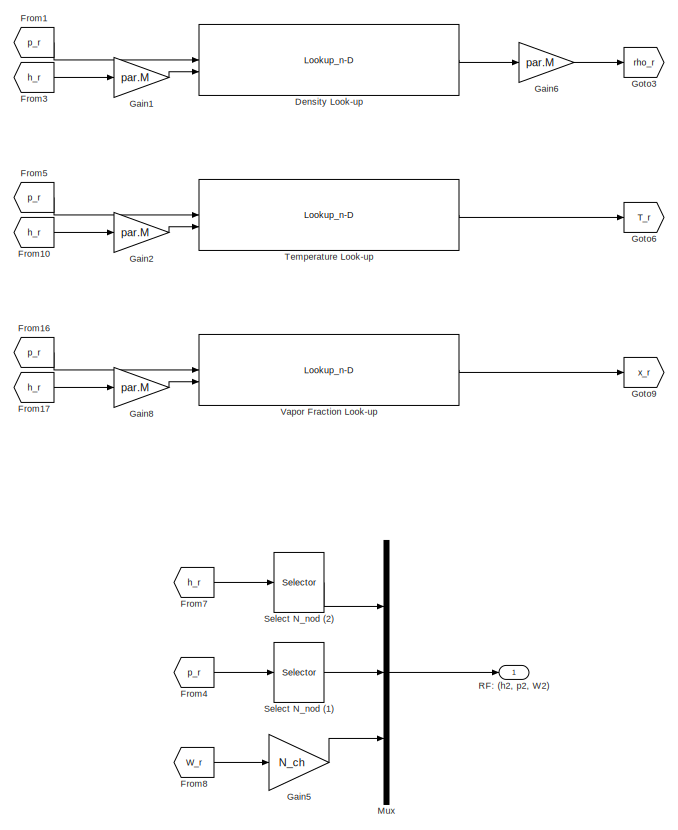
[diagram: Thermal Systems/RF0007_PHEX - part 1/8, top right region]
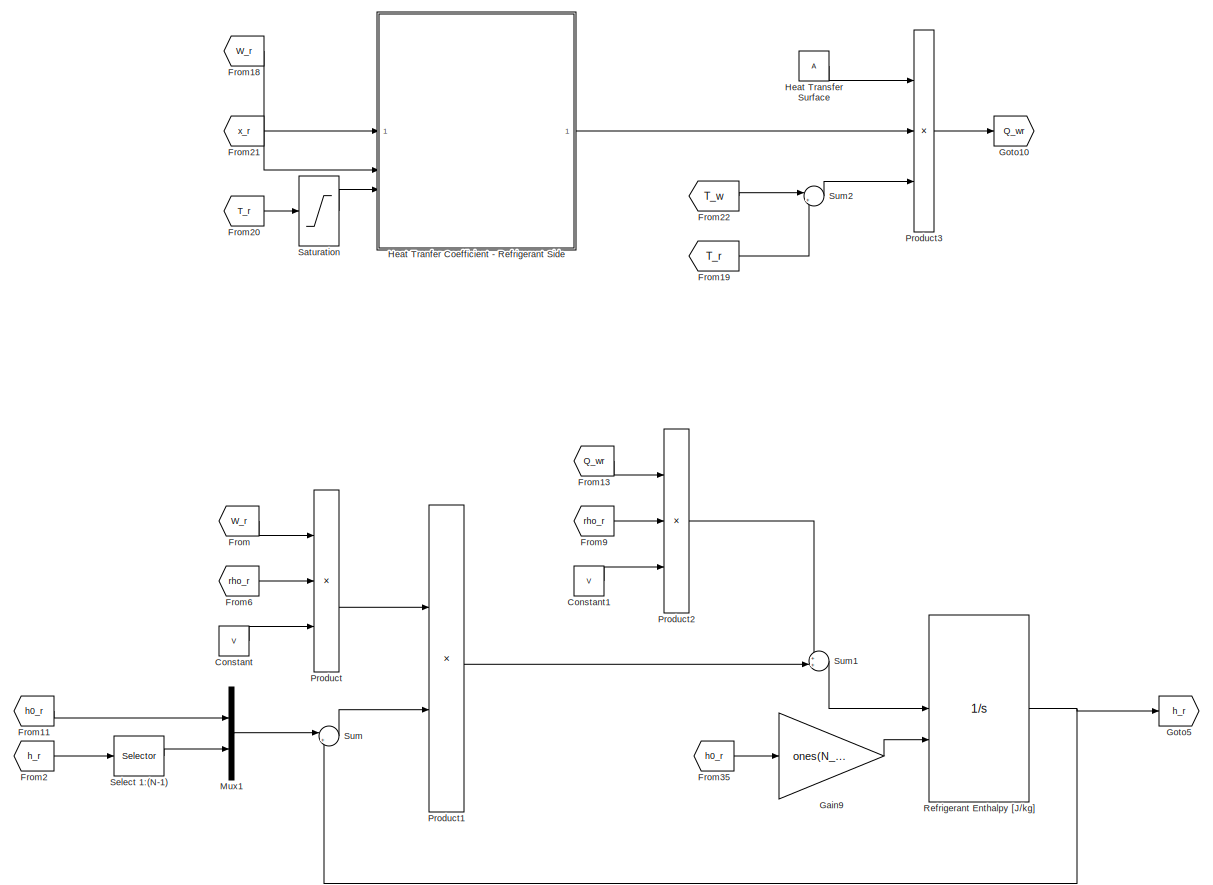
[diagram: Thermal Systems/RF0007_PHEX - part 2/8, top center region]
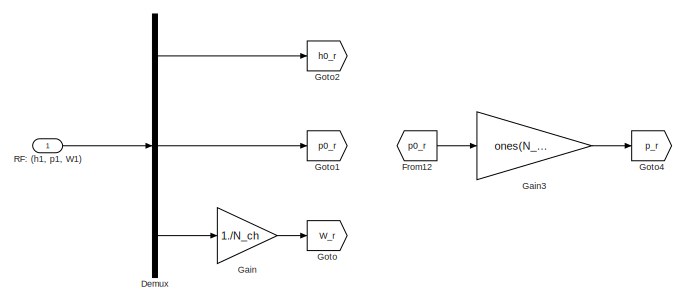
[diagram: Thermal Systems/RF0007_PHEX - part 3/8, top left region]
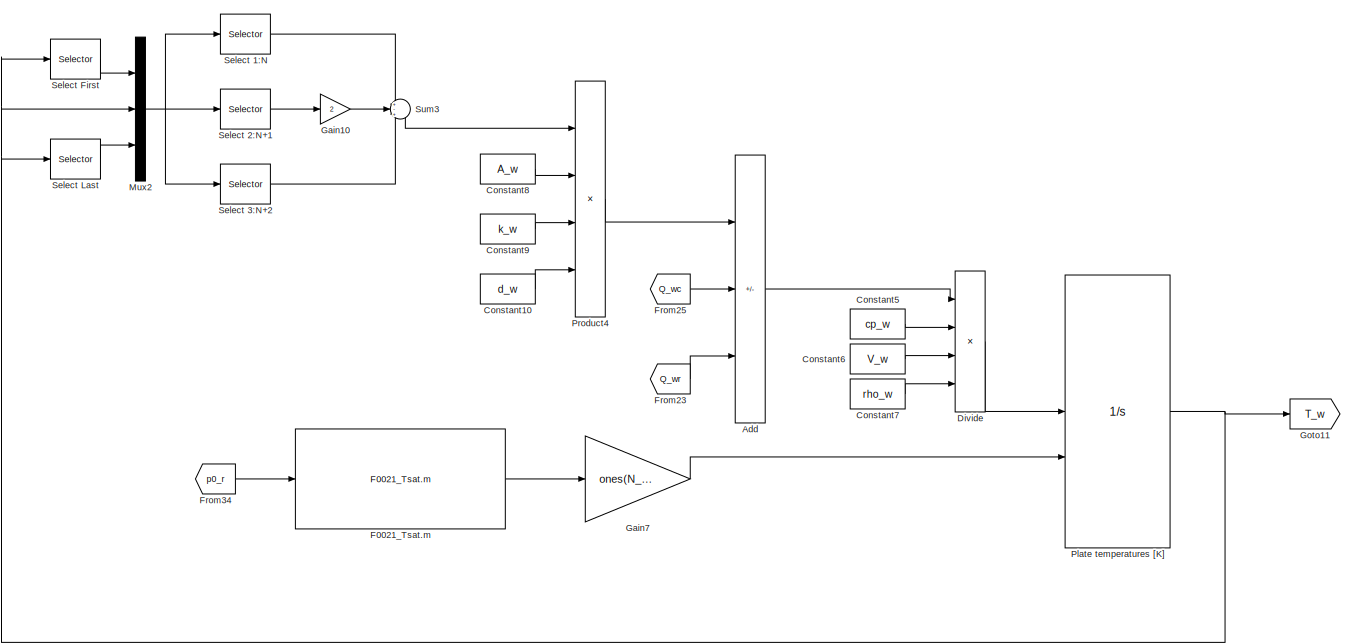
[diagram: Thermal Systems/RF0007_PHEX - part 4/8, central region]
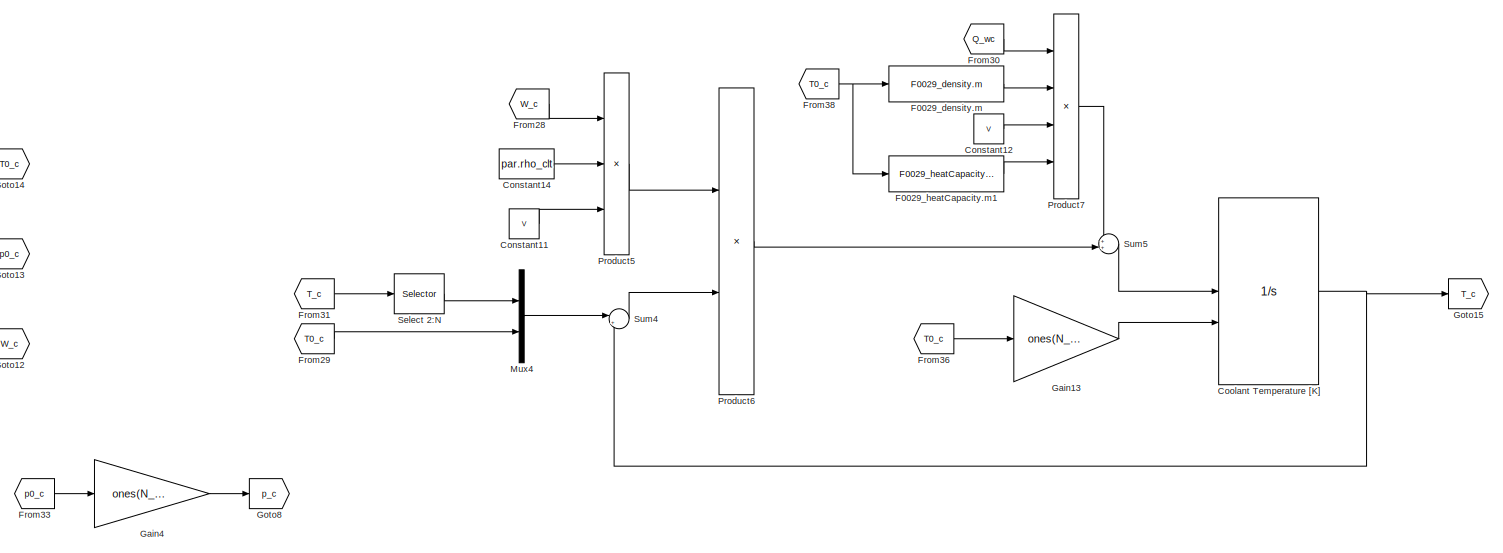
[diagram: Thermal Systems/RF0007_PHEX - part 5/8, bottom center region]
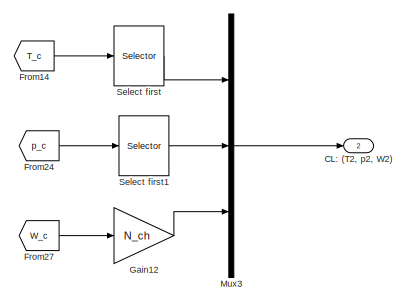
[diagram: Thermal Systems/RF0007_PHEX - part 6/8, bottom right region]
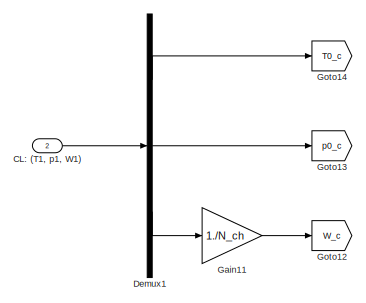
[diagram: Thermal Systems/RF0007_PHEX - part 7/8, bottom left region]
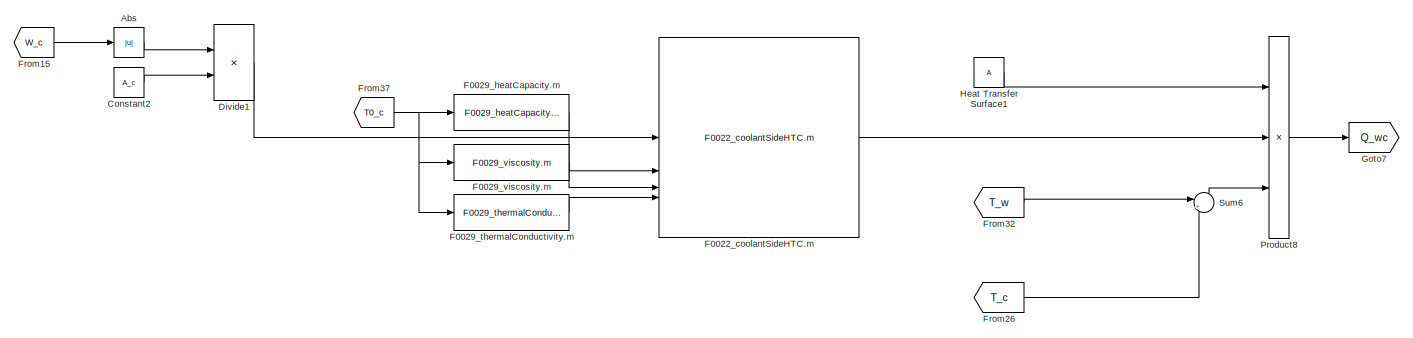
[diagram: Thermal Systems/RF0007_PHEX - part 8/8, bottom center region]
BLOCK [SubSystem] Thermal Systems/RF0007_PHEX
BLOCK [Abs] Thermal Systems/RF0007_PHEX/Abs
  SaturateOnIntegerOverflow = off
BLOCK [Sum] Thermal Systems/RF0007_PHEX/Add
  IconShape = rectangular
  Inputs = +--
BLOCK [Inport] Thermal Systems/RF0007_PHEX/CL: (T1, p1, W1)
  Port = 2
BLOCK [Outport] Thermal Systems/RF0007_PHEX/CL: (T2, p2, W2)
  Port = 2
BLOCK [Constant] Thermal Systems/RF0007_PHEX/Constant
  Value = V
BLOCK [Constant] Thermal Systems/RF0007_PHEX/Constant1
  Value = V
BLOCK [Constant] Thermal Systems/RF0007_PHEX/Constant10
  Value = d_w
BLOCK [Constant] Thermal Systems/RF0007_PHEX/Constant11
  Value = V
BLOCK [Constant] Thermal Systems/RF0007_PHEX/Constant12
  Value = V
BLOCK [Constant] Thermal Systems/RF0007_PHEX/Constant14
  Value = par.rho_clt
BLOCK [Constant] Thermal Systems/RF0007_PHEX/Constant2
  Value = A_c
BLOCK [Constant] Thermal Systems/RF0007_PHEX/Constant5
  Value = cp_w
BLOCK [Constant] Thermal Systems/RF0007_PHEX/Constant6
  Value = V_w
BLOCK [Constant] Thermal Systems/RF0007_PHEX/Constant7
  Value = rho_w
BLOCK [Constant] Thermal Systems/RF0007_PHEX/Constant8
  Value = A_w
BLOCK [Constant] Thermal Systems/RF0007_PHEX/Constant9
  Value = k_w
BLOCK [Integrator] Thermal Systems/RF0007_PHEX/Coolant Temperature [K]
  InitialConditionSource = external
  LimitOutput = on
  LowerSaturationLimit = 0
BLOCK [Demux] Thermal Systems/RF0007_PHEX/Demux
  Outputs = 3
BLOCK [Demux] Thermal Systems/RF0007_PHEX/Demux1
  Outputs = 3
BLOCK [Lookup_n-D] Thermal Systems/RF0007_PHEX/Density Look-up
  BreakpointsForDimension1 = R1234yf_ph.p
  BreakpointsForDimension2 = R1234yf_ph.h
  InputPortMap = u0,u1
  InternalRulePriority = Speed
  RndMeth = Simplest
  Table = R1234yf_ph.D
BLOCK [Product] Thermal Systems/RF0007_PHEX/Divide
  Inputs = *///
BLOCK [Product] Thermal Systems/RF0007_PHEX/Divide1
  Inputs = */
BLOCK [Reference] Thermal Systems/RF0007_PHEX/F0021_Tsat.m  REF=base_lib/F0021_R1234yf/F0021_Tsat.m  (lib defined in slx_7545a99fe1f7)
  LibrarySourceBlock = simulink/User-Defined\nFunctions/MATLAB Function
  SourceBlock = base_lib/F0021_R1234yf/F0021_Tsat.m
  SourceType = SubSystem
BLOCK [Reference] Thermal Systems/RF0007_PHEX/F0022_coolantSideHTC.m  REF=base_lib/F0022_heatPump/F0022_coolantSideHTC.m  (lib defined in slx_7545a99fe1f7)
  LibrarySourceBlock = simulink/User-Defined\nFunctions/MATLAB Function
  SourceBlock = base_lib/F0022_heatPump/F0022_coolantSideHTC.m
  SourceType = SubSystem
BLOCK [Reference] Thermal Systems/RF0007_PHEX/F0029_density.m  REF=base_lib/F0029_coolantWrapper/F0029_density.m  (lib defined in slx_7545a99fe1f7)
  LibrarySourceBlock = simulink/User-Defined\nFunctions/MATLAB Function
  SourceBlock = base_lib/F0029_coolantWrapper/F0029_density.m
  SourceType = SubSystem
BLOCK [Reference] Thermal Systems/RF0007_PHEX/F0029_heatCapacity.m  REF=base_lib/F0029_coolantWrapper/F0029_heatCapacity.m  (lib defined in slx_7545a99fe1f7)
  LibrarySourceBlock = simulink/User-Defined\nFunctions/MATLAB Function
  SourceBlock = base_lib/F0029_coolantWrapper/F0029_heatCapacity.m
  SourceType = SubSystem
BLOCK [Reference] Thermal Systems/RF0007_PHEX/F0029_heatCapacity.m1  REF=base_lib/F0029_coolantWrapper/F0029_heatCapacity.m  (lib defined in slx_7545a99fe1f7)
  LibrarySourceBlock = simulink/User-Defined\nFunctions/MATLAB Function
  SourceBlock = base_lib/F0029_coolantWrapper/F0029_heatCapacity.m
  SourceType = SubSystem
BLOCK [Reference] Thermal Systems/RF0007_PHEX/F0029_thermalConductivity.m  REF=base_lib/F0029_coolantWrapper/F0029_thermalConductivity.m  (lib defined in slx_7545a99fe1f7)
  LibrarySourceBlock = simulink/User-Defined\nFunctions/MATLAB Function
  SourceBlock = base_lib/F0029_coolantWrapper/F0029_thermalConductivity.m
  SourceType = SubSystem
BLOCK [Reference] Thermal Systems/RF0007_PHEX/F0029_viscosity.m  REF=base_lib/F0029_coolantWrapper/F0029_viscosity.m  (lib defined in slx_7545a99fe1f7)
  LibrarySourceBlock = simulink/User-Defined\nFunctions/MATLAB Function
  SourceBlock = base_lib/F0029_coolantWrapper/F0029_viscosity.m
  SourceType = SubSystem
BLOCK [From] Thermal Systems/RF0007_PHEX/From
  GotoTag = W_r
BLOCK [From] Thermal Systems/RF0007_PHEX/From1
  GotoTag = p_r
BLOCK [From] Thermal Systems/RF0007_PHEX/From10
  GotoTag = h_r
BLOCK [From] Thermal Systems/RF0007_PHEX/From11
  GotoTag = h0_r
BLOCK [From] Thermal Systems/RF0007_PHEX/From12
  GotoTag = p0_r
BLOCK [From] Thermal Systems/RF0007_PHEX/From13
  GotoTag = Q_wr
BLOCK [From] Thermal Systems/RF0007_PHEX/From14
  GotoTag = T_c
BLOCK [From] Thermal Systems/RF0007_PHEX/From15
  GotoTag = W_c
BLOCK [From] Thermal Systems/RF0007_PHEX/From16
  GotoTag = p_r
BLOCK [From] Thermal Systems/RF0007_PHEX/From17
  GotoTag = h_r
BLOCK [From] Thermal Systems/RF0007_PHEX/From18
  GotoTag = W_r
BLOCK [From] Thermal Systems/RF0007_PHEX/From19
  GotoTag = T_r
BLOCK [From] Thermal Systems/RF0007_PHEX/From2
  GotoTag = h_r
BLOCK [From] Thermal Systems/RF0007_PHEX/From20
  GotoTag = T_r
BLOCK [From] Thermal Systems/RF0007_PHEX/From21
  GotoTag = x_r
BLOCK [From] Thermal Systems/RF0007_PHEX/From22
  GotoTag = T_w
BLOCK [From] Thermal Systems/RF0007_PHEX/From23
  GotoTag = Q_wr
BLOCK [From] Thermal Systems/RF0007_PHEX/From24
  GotoTag = p_c
BLOCK [From] Thermal Systems/RF0007_PHEX/From25
  GotoTag = Q_wc
BLOCK [From] Thermal Systems/RF0007_PHEX/From26
  GotoTag = T_c
BLOCK [From] Thermal Systems/RF0007_PHEX/From27
  GotoTag = W_c
BLOCK [From] Thermal Systems/RF0007_PHEX/From28
  GotoTag = W_c
BLOCK [From] Thermal Systems/RF0007_PHEX/From29
  GotoTag = T0_c
BLOCK [From] Thermal Systems/RF0007_PHEX/From3
  GotoTag = h_r
BLOCK [From] Thermal Systems/RF0007_PHEX/From30
  GotoTag = Q_wc
BLOCK [From] Thermal Systems/RF0007_PHEX/From31
  GotoTag = T_c
BLOCK [From] Thermal Systems/RF0007_PHEX/From32
  GotoTag = T_w
BLOCK [From] Thermal Systems/RF0007_PHEX/From33
  GotoTag = p0_c
BLOCK [From] Thermal Systems/RF0007_PHEX/From34
  GotoTag = p0_r
BLOCK [From] Thermal Systems/RF0007_PHEX/From35
  GotoTag = h0_r
BLOCK [From] Thermal Systems/RF0007_PHEX/From36
  GotoTag = T0_c
BLOCK [From] Thermal Systems/RF0007_PHEX/From37
  GotoTag = T0_c
BLOCK [From] Thermal Systems/RF0007_PHEX/From38
  GotoTag = T0_c
BLOCK [From] Thermal Systems/RF0007_PHEX/From4
  GotoTag = p_r
BLOCK [From] Thermal Systems/RF0007_PHEX/From5
  GotoTag = p_r
BLOCK [From] Thermal Systems/RF0007_PHEX/From6
  GotoTag = rho_r
BLOCK [From] Thermal Systems/RF0007_PHEX/From7
  GotoTag = h_r
BLOCK [From] Thermal Systems/RF0007_PHEX/From8
  GotoTag = W_r
BLOCK [From] Thermal Systems/RF0007_PHEX/From9
  GotoTag = rho_r
BLOCK [Gain] Thermal Systems/RF0007_PHEX/Gain
  Gain = 1./N_ch
BLOCK [Gain] Thermal Systems/RF0007_PHEX/Gain1
  Gain = par.M
BLOCK [Gain] Thermal Systems/RF0007_PHEX/Gain10
  Gain = 2
BLOCK [Gain] Thermal Systems/RF0007_PHEX/Gain11
  Gain = 1./N_ch
BLOCK [Gain] Thermal Systems/RF0007_PHEX/Gain12
  Gain = N_ch
BLOCK [Gain] Thermal Systems/RF0007_PHEX/Gain13
  Gain = ones(N_nod,1)
BLOCK [Gain] Thermal Systems/RF0007_PHEX/Gain2
  Gain = par.M
BLOCK [Gain] Thermal Systems/RF0007_PHEX/Gain3
  Gain = ones(N_nod,1)
BLOCK [Gain] Thermal Systems/RF0007_PHEX/Gain4
  Gain = ones(N_nod,1)
BLOCK [Gain] Thermal Systems/RF0007_PHEX/Gain5
  Gain = N_ch
BLOCK [Gain] Thermal Systems/RF0007_PHEX/Gain6
  Gain = par.M
BLOCK [Gain] Thermal Systems/RF0007_PHEX/Gain7
  Gain = ones(N_nod,1)
BLOCK [Gain] Thermal Systems/RF0007_PHEX/Gain8
  Gain = par.M
BLOCK [Gain] Thermal Systems/RF0007_PHEX/Gain9
  Gain = ones(N_nod,1)
BLOCK [Goto] Thermal Systems/RF0007_PHEX/Goto
  GotoTag = W_r
BLOCK [Goto] Thermal Systems/RF0007_PHEX/Goto1
  GotoTag = p0_r
BLOCK [Goto] Thermal Systems/RF0007_PHEX/Goto10
  GotoTag = Q_wr
BLOCK [Goto] Thermal Systems/RF0007_PHEX/Goto11
  GotoTag = T_w
BLOCK [Goto] Thermal Systems/RF0007_PHEX/Goto12
  GotoTag = W_c
BLOCK [Goto] Thermal Systems/RF0007_PHEX/Goto13
  GotoTag = p0_c
BLOCK [Goto] Thermal Systems/RF0007_PHEX/Goto14
  GotoTag = T0_c
BLOCK [Goto] Thermal Systems/RF0007_PHEX/Goto15
  GotoTag = T_c
BLOCK [Goto] Thermal Systems/RF0007_PHEX/Goto2
  GotoTag = h0_r
BLOCK [Goto] Thermal Systems/RF0007_PHEX/Goto3
  GotoTag = rho_r
BLOCK [Goto] Thermal Systems/RF0007_PHEX/Goto4
  GotoTag = p_r
BLOCK [Goto] Thermal Systems/RF0007_PHEX/Goto5
  GotoTag = h_r
BLOCK [Goto] Thermal Systems/RF0007_PHEX/Goto6
  GotoTag = T_r
BLOCK [Goto] Thermal Systems/RF0007_PHEX/Goto7
  GotoTag = Q_wc
BLOCK [Goto] Thermal Systems/RF0007_PHEX/Goto8
  GotoTag = p_c
BLOCK [Goto] Thermal Systems/RF0007_PHEX/Goto9
  GotoTag = x_r
BLOCK [SubSystem] Thermal Systems/RF0007_PHEX/Heat Tranfer Coefficient - Refrigerant Side
BLOCK [Constant] Thermal Systems/RF0007_PHEX/Heat Tranfer Coefficient - Refrigerant Side/Constant
  Value = A_c
BLOCK [Constant] Thermal Systems/RF0007_PHEX/Heat Tranfer Coefficient - Refrigerant Side/Constant1
  Value = 1.5 .* par.Tc
BLOCK [Constant] Thermal Systems/RF0007_PHEX/Heat Tranfer Coefficient - Refrigerant Side/Constant3
  Value = 1.5 .* par.Tc
BLOCK [Product] Thermal Systems/RF0007_PHEX/Heat Tranfer Coefficient - Refrigerant Side/Divide
  Inputs = */
BLOCK [Reference] Thermal Systems/RF0007_PHEX/Heat Tranfer Coefficient - Refrigerant Side/F0021_cp.m  REF=base_lib/F0021_R1234yf/F0021_cp.m  (lib defined in slx_7545a99fe1f7)
  LibrarySourceBlock = simulink/User-Defined\nFunctions/MATLAB Function
  SourceBlock = base_lib/F0021_R1234yf/F0021_cp.m
  SourceType = SubSystem
BLOCK [Reference] Thermal Systems/RF0007_PHEX/Heat Tranfer Coefficient - Refrigerant Side/F0021_cp.m1  REF=base_lib/F0021_R1234yf/F0021_cp.m  (lib defined in slx_7545a99fe1f7)
  LibrarySourceBlock = simulink/User-Defined\nFunctions/MATLAB Function
  SourceBlock = base_lib/F0021_R1234yf/F0021_cp.m
  SourceType = SubSystem
BLOCK [Reference] Thermal Systems/RF0007_PHEX/Heat Tranfer Coefficient - Refrigerant Side/F0021_cv.m  REF=base_lib/F0021_R1234yf/F0021_cv.m  (lib defined in slx_7545a99fe1f7)
  LibrarySourceBlock = simulink/User-Defined\nFunctions/MATLAB Function
  SourceBlock = base_lib/F0021_R1234yf/F0021_cv.m
  SourceType = SubSystem
BLOCK [Reference] Thermal Systems/RF0007_PHEX/Heat Tranfer Coefficient - Refrigerant Side/F0021_cv.m1  REF=base_lib/F0021_R1234yf/F0021_cv.m  (lib defined in slx_7545a99fe1f7)
  LibrarySourceBlock = simulink/User-Defined\nFunctions/MATLAB Function
  SourceBlock = base_lib/F0021_R1234yf/F0021_cv.m
  SourceType = SubSystem
BLOCK [Reference] Thermal Systems/RF0007_PHEX/Heat Tranfer Coefficient - Refrigerant Side/F0021_dliqsat.m  REF=base_lib/F0021_R1234yf/F0021_dliqsat.m  (lib defined in slx_7545a99fe1f7)
  LibrarySourceBlock = simulink/User-Defined\nFunctions/MATLAB Function
  SourceBlock = base_lib/F0021_R1234yf/F0021_dliqsat.m
  SourceType = SubSystem
BLOCK [Reference] Thermal Systems/RF0007_PHEX/Heat Tranfer Coefficient - Refrigerant Side/F0021_dpdrho.m  REF=base_lib/F0021_R1234yf/F0021_dpdrho.m  (lib defined in slx_7545a99fe1f7)
  LibrarySourceBlock = simulink/User-Defined\nFunctions/MATLAB Function
  SourceBlock = base_lib/F0021_R1234yf/F0021_dpdrho.m
  SourceType = SubSystem
BLOCK [Reference] Thermal Systems/RF0007_PHEX/Heat Tranfer Coefficient - Refrigerant Side/F0021_dpdrho.m1  REF=base_lib/F0021_R1234yf/F0021_dpdrho.m  (lib defined in slx_7545a99fe1f7)
  LibrarySourceBlock = simulink/User-Defined\nFunctions/MATLAB Function
  SourceBlock = base_lib/F0021_R1234yf/F0021_dpdrho.m
  SourceType = SubSystem
BLOCK [Reference] Thermal Systems/RF0007_PHEX/Heat Tranfer Coefficient - Refrigerant Side/F0021_dpdrho.m2  REF=base_lib/F0021_R1234yf/F0021_dpdrho.m  (lib defined in slx_7545a99fe1f7)
  LibrarySourceBlock = simulink/User-Defined\nFunctions/MATLAB Function
  SourceBlock = base_lib/F0021_R1234yf/F0021_dpdrho.m
  SourceType = SubSystem
BLOCK [Reference] Thermal Systems/RF0007_PHEX/Heat Tranfer Coefficient - Refrigerant Side/F0021_dpdrho.m3  REF=base_lib/F0021_R1234yf/F0021_dpdrho.m  (lib defined in slx_7545a99fe1f7)
  LibrarySourceBlock = simulink/User-Defined\nFunctions/MATLAB Function
  SourceBlock = base_lib/F0021_R1234yf/F0021_dpdrho.m
  SourceType = SubSystem
BLOCK [Reference] Thermal Systems/RF0007_PHEX/Heat Tranfer Coefficient - Refrigerant Side/F0021_dvapsat.m  REF=base_lib/F0021_R1234yf/F0021_dvapsat.m  (lib defined in slx_7545a99fe1f7)
  LibrarySourceBlock = simulink/User-Defined\nFunctions/MATLAB Function
  SourceBlock = base_lib/F0021_R1234yf/F0021_dvapsat.m
  SourceType = SubSystem
BLOCK [Reference] Thermal Systems/RF0007_PHEX/Heat Tranfer Coefficient - Refrigerant Side/F0022_OSFPHEX.m  REF=base_lib/F0022_heatPump/F0022_OSFPHEX.m  (lib defined in slx_7545a99fe1f7)
  LibrarySourceBlock = simulink/User-Defined\nFunctions/MATLAB Function
  SourceBlock = base_lib/F0022_heatPump/F0022_OSFPHEX.m
  SourceType = SubSystem
BLOCK [From] Thermal Systems/RF0007_PHEX/Heat Tranfer Coefficient - Refrigerant Side/From1
  GotoTag = cp_g
BLOCK [From] Thermal Systems/RF0007_PHEX/Heat Tranfer Coefficient - Refrigerant Side/From14
  GotoTag = cp_f
BLOCK [From] Thermal Systems/RF0007_PHEX/Heat Tranfer Coefficient - Refrigerant Side/From15
  GotoTag = mu_f
BLOCK [From] Thermal Systems/RF0007_PHEX/Heat Tranfer Coefficient - Refrigerant Side/From2
  GotoTag = mu_g
BLOCK [Gain] Thermal Systems/RF0007_PHEX/Heat Tranfer Coefficient - Refrigerant Side/Gain1
  Gain = 1/par.M
BLOCK [Gain] Thermal Systems/RF0007_PHEX/Heat Tranfer Coefficient - Refrigerant Side/Gain4
  Gain = 1/par.M
BLOCK [Gain] Thermal Systems/RF0007_PHEX/Heat Tranfer Coefficient - Refrigerant Side/Gain7
  Gain = par.M
BLOCK [Gain] Thermal Systems/RF0007_PHEX/Heat Tranfer Coefficient - Refrigerant Side/Gain9
  Gain = par.M
BLOCK [Goto] Thermal Systems/RF0007_PHEX/Heat Tranfer Coefficient - Refrigerant Side/Goto1
  GotoTag = cp_g
BLOCK [Goto] Thermal Systems/RF0007_PHEX/Heat Tranfer Coefficient - Refrigerant Side/Goto2
  GotoTag = mu_g
BLOCK [Goto] Thermal Systems/RF0007_PHEX/Heat Tranfer Coefficient - Refrigerant Side/Goto7
  GotoTag = mu_f
BLOCK [Goto] Thermal Systems/RF0007_PHEX/Heat Tranfer Coefficient - Refrigerant Side/Goto8
  GotoTag = cp_f
BLOCK [Reference] Thermal Systems/RF0007_PHEX/Heat Tranfer Coefficient - Refrigerant Side/R1234yf_lambda.m  REF=base_lib/F0021_R1234yf/R1234yf_lambda.m  (lib defined in slx_7545a99fe1f7)
  LibrarySourceBlock = simulink/User-Defined\nFunctions/MATLAB Function
  SourceBlock = base_lib/F0021_R1234yf/R1234yf_lambda.m
  SourceType = SubSystem
BLOCK [Reference] Thermal Systems/RF0007_PHEX/Heat Tranfer Coefficient - Refrigerant Side/R1234yf_lambda.m1  REF=base_lib/F0021_R1234yf/R1234yf_lambda.m  (lib defined in slx_7545a99fe1f7)
  LibrarySourceBlock = simulink/User-Defined\nFunctions/MATLAB Function
  SourceBlock = base_lib/F0021_R1234yf/R1234yf_lambda.m
  SourceType = SubSystem
BLOCK [Reference] Thermal Systems/RF0007_PHEX/Heat Tranfer Coefficient - Refrigerant Side/R1234yf_mu.m  REF=base_lib/F0021_R1234yf/R1234yf_mu.m  (lib defined in slx_7545a99fe1f7)
  LibrarySourceBlock = simulink/User-Defined\nFunctions/MATLAB Function
  SourceBlock = base_lib/F0021_R1234yf/R1234yf_mu.m
  SourceType = SubSystem
BLOCK [Reference] Thermal Systems/RF0007_PHEX/Heat Tranfer Coefficient - Refrigerant Side/R1234yf_mu.m1  REF=base_lib/F0021_R1234yf/R1234yf_mu.m  (lib defined in slx_7545a99fe1f7)
  LibrarySourceBlock = simulink/User-Defined\nFunctions/MATLAB Function
  SourceBlock = base_lib/F0021_R1234yf/R1234yf_mu.m
  SourceType = SubSystem
BLOCK [Reference] Thermal Systems/RF0007_PHEX/Heat Tranfer Coefficient - Refrigerant Side/R1234yf_sigma.m  REF=base_lib/F0021_R1234yf/R1234yf_sigma.m  (lib defined in slx_7545a99fe1f7)
  LibrarySourceBlock = simulink/User-Defined\nFunctions/MATLAB Function
  SourceBlock = base_lib/F0021_R1234yf/R1234yf_sigma.m
  SourceType = SubSystem
BLOCK [Inport] Thermal Systems/RF0007_PHEX/Heat Tranfer Coefficient - Refrigerant Side/T_r [K]
  Port = 3
BLOCK [Inport] Thermal Systems/RF0007_PHEX/Heat Tranfer Coefficient - Refrigerant Side/W_r [kg//s]
BLOCK [Outport] Thermal Systems/RF0007_PHEX/Heat Tranfer Coefficient - Refrigerant Side/h [W//mK]
BLOCK [Inport] Thermal Systems/RF0007_PHEX/Heat Tranfer Coefficient - Refrigerant Side/x_r [-]
  Port = 2
BLOCK [Constant] Thermal Systems/RF0007_PHEX/Heat Transfer Surface
  Value = A
BLOCK [Constant] Thermal Systems/RF0007_PHEX/Heat Transfer Surface1
  Value = A
BLOCK [Mux] Thermal Systems/RF0007_PHEX/Mux
  DisplayOption = bar
  Inputs = 3
BLOCK [Mux] Thermal Systems/RF0007_PHEX/Mux1
  DisplayOption = bar
  Inputs = 2
BLOCK [Mux] Thermal Systems/RF0007_PHEX/Mux2
  DisplayOption = bar
  Inputs = 3
BLOCK [Mux] Thermal Systems/RF0007_PHEX/Mux3
  DisplayOption = bar
  Inputs = 3
BLOCK [Mux] Thermal Systems/RF0007_PHEX/Mux4
  DisplayOption = bar
  Inputs = 2
BLOCK [Integrator] Thermal Systems/RF0007_PHEX/Plate temperatures [K]
  InitialConditionSource = external
  LimitOutput = on
  LowerSaturationLimit = 0
BLOCK [Product] Thermal Systems/RF0007_PHEX/Product
  Inputs = *//
BLOCK [Product] Thermal Systems/RF0007_PHEX/Product1
BLOCK [Product] Thermal Systems/RF0007_PHEX/Product2
  Inputs = *//
BLOCK [Product] Thermal Systems/RF0007_PHEX/Product3
  Inputs = 3
BLOCK [Product] Thermal Systems/RF0007_PHEX/Product4
  Inputs = ***/
BLOCK [Product] Thermal Systems/RF0007_PHEX/Product5
  Inputs = *//
BLOCK [Product] Thermal Systems/RF0007_PHEX/Product6
BLOCK [Product] Thermal Systems/RF0007_PHEX/Product7
  Inputs = *///
BLOCK [Product] Thermal Systems/RF0007_PHEX/Product8
  Inputs = 3
BLOCK [Inport] Thermal Systems/RF0007_PHEX/RF: (h1, p1, W1)
BLOCK [Outport] Thermal Systems/RF0007_PHEX/RF: (h2, p2, W2)
BLOCK [Integrator] Thermal Systems/RF0007_PHEX/Refrigerant Enthalpy [J//kg]
  InitialConditionSource = external
  LimitOutput = on
  LowerSaturationLimit = 0
BLOCK [Saturate] Thermal Systems/RF0007_PHEX/Saturation
  LowerLimit = 0
  UpperLimit = par.Tc-2
BLOCK [Selector] Thermal Systems/RF0007_PHEX/Select 1:(N-1)
  IndexOptions = Index vector (dialog)
  Indices = [1:(N_nod-1)]
  InputPortWidth = N_nod
  OutputSizes = 1
BLOCK [Selector] Thermal Systems/RF0007_PHEX/Select 1:N
  IndexOptions = Index vector (dialog)
  Indices = [1:N_nod]
  InputPortWidth = N_nod+2
  OutputSizes = 1
BLOCK [Selector] Thermal Systems/RF0007_PHEX/Select 2:N
  IndexOptions = Index vector (dialog)
  Indices = [2:N_nod]
  InputPortWidth = N_nod
  OutputSizes = 1
BLOCK [Selector] Thermal Systems/RF0007_PHEX/Select 2:N+1 
  IndexOptions = Index vector (dialog)
  Indices = [2:(N_nod+1)]
  InputPortWidth = N_nod+2
  OutputSizes = 1
BLOCK [Selector] Thermal Systems/RF0007_PHEX/Select 3:N+2
  IndexOptions = Index vector (dialog)
  Indices = [3:(N_nod+2)]
  InputPortWidth = N_nod+2
  OutputSizes = 1
BLOCK [Selector] Thermal Systems/RF0007_PHEX/Select First
  IndexOptions = Index vector (dialog)
  Indices = 1
  InputPortWidth = N_nod
  OutputSizes = 1
BLOCK [Selector] Thermal Systems/RF0007_PHEX/Select Last
  IndexOptions = Index vector (dialog)
  Indices = N_nod
  InputPortWidth = N_nod
  OutputSizes = 1
BLOCK [Selector] Thermal Systems/RF0007_PHEX/Select N_nod (1)
  IndexOptions = Index vector (dialog)
  Indices = N_nod
  InputPortWidth = N_nod
  OutputSizes = 1
BLOCK [Selector] Thermal Systems/RF0007_PHEX/Select N_nod (2)
  IndexOptions = Index vector (dialog)
  Indices = N_nod
  InputPortWidth = N_nod
  OutputSizes = 1
BLOCK [Selector] Thermal Systems/RF0007_PHEX/Select first
  IndexOptions = Index vector (dialog)
  Indices = 1
  InputPortWidth = N_nod
  OutputSizes = 1
BLOCK [Selector] Thermal Systems/RF0007_PHEX/Select first1
  IndexOptions = Index vector (dialog)
  Indices = 1
  InputPortWidth = N_nod
  OutputSizes = 1
BLOCK [Sum] Thermal Systems/RF0007_PHEX/Sum
  Inputs = |+-
BLOCK [Sum] Thermal Systems/RF0007_PHEX/Sum1
  Inputs = ++|
BLOCK [Sum] Thermal Systems/RF0007_PHEX/Sum2
  Inputs = |+-
BLOCK [Sum] Thermal Systems/RF0007_PHEX/Sum3
  Inputs = +-+
BLOCK [Sum] Thermal Systems/RF0007_PHEX/Sum4
  Inputs = |+-
BLOCK [Sum] Thermal Systems/RF0007_PHEX/Sum5
  Inputs = ++|
BLOCK [Sum] Thermal Systems/RF0007_PHEX/Sum6
  Inputs = |+-
BLOCK [Lookup_n-D] Thermal Systems/RF0007_PHEX/Temperature Look-up
  BreakpointsForDimension1 = R1234yf_ph.p
  BreakpointsForDimension2 = R1234yf_ph.h
  InputPortMap = u0,u1
  InternalRulePriority = Speed
  RndMeth = Simplest
  Table = R1234yf_ph.T
BLOCK [Lookup_n-D] Thermal Systems/RF0007_PHEX/Vapor Fraction Look-up
  BreakpointsForDimension1 = R1234yf_ph.p
  BreakpointsForDimension2 = R1234yf_ph.h
  InputPortMap = u0,u1
  InternalRulePriority = Speed
  RndMeth = Simplest
  Table = R1234yf_ph.x
BLOCK [SubSystem] Thermal Systems/RF0008_receiver_old
BLOCK [Constant] Thermal Systems/RF0008_receiver_old/Constant1
  Value = V
BLOCK [Constant] Thermal Systems/RF0008_receiver_old/Constant4
  Value = h0
BLOCK [Demux] Thermal Systems/RF0008_receiver_old/Demux
  Outputs = 3
BLOCK [Lookup_n-D] Thermal Systems/RF0008_receiver_old/Density Look-up
  BreakpointsForDimension1 = R1234yf_ph.p
  BreakpointsForDimension2 = R1234yf_ph.h
  InputPortMap = u0,u1
  InternalRulePriority = Speed
  RndMeth = Simplest
  Table = R1234yf_ph.D
BLOCK [Product] Thermal Systems/RF0008_receiver_old/Divide
  Inputs = */
BLOCK [Reference] Thermal Systems/RF0008_receiver_old/F0021_dliqsat.m1  REF=base_lib/F0021_R1234yf/F0021_dliqsat.m  (lib defined in slx_7545a99fe1f7)
  LibrarySourceBlock = simulink/User-Defined\nFunctions/MATLAB Function
  SourceBlock = base_lib/F0021_R1234yf/F0021_dliqsat.m
  SourceType = SubSystem
BLOCK [Reference] Thermal Systems/RF0008_receiver_old/F0021_h.m1  REF=base_lib/F0021_R1234yf/F0021_h.m  (lib defined in slx_7545a99fe1f7)
  LibrarySourceBlock = simulink/User-Defined\nFunctions/MATLAB Function
  SourceBlock = base_lib/F0021_R1234yf/F0021_h.m
  SourceType = SubSystem
BLOCK [From] Thermal Systems/RF0008_receiver_old/From
  GotoTag = h_f
BLOCK [From] Thermal Systems/RF0008_receiver_old/From1
  GotoTag = rho
BLOCK [From] Thermal Systems/RF0008_receiver_old/From10
  GotoTag = W
BLOCK [From] Thermal Systems/RF0008_receiver_old/From11
  GotoTag = h
BLOCK [From] Thermal Systems/RF0008_receiver_old/From12
  GotoTag = p
BLOCK [From] Thermal Systems/RF0008_receiver_old/From2
  GotoTag = W
BLOCK [From] Thermal Systems/RF0008_receiver_old/From25
  GotoTag = rho_f
BLOCK [From] Thermal Systems/RF0008_receiver_old/From3
  GotoTag = p
BLOCK [From] Thermal Systems/RF0008_receiver_old/From37
  GotoTag = T
BLOCK [From] Thermal Systems/RF0008_receiver_old/From4
  GotoTag = h_1
BLOCK [From] Thermal Systems/RF0008_receiver_old/From5
  GotoTag = W
BLOCK [From] Thermal Systems/RF0008_receiver_old/From6
  GotoTag = h_f
BLOCK [From] Thermal Systems/RF0008_receiver_old/From7
  GotoTag = p
BLOCK [From] Thermal Systems/RF0008_receiver_old/From8
  GotoTag = h
BLOCK [From] Thermal Systems/RF0008_receiver_old/From9
  GotoTag = h
BLOCK [Gain] Thermal Systems/RF0008_receiver_old/Gain1
  Gain = 1/par.M
BLOCK [Gain] Thermal Systems/RF0008_receiver_old/Gain16
  Gain = par.M
BLOCK [Gain] Thermal Systems/RF0008_receiver_old/Gain2
  Gain = 1/par.M
BLOCK [Gain] Thermal Systems/RF0008_receiver_old/Gain3
  Gain = par.M
BLOCK [Gain] Thermal Systems/RF0008_receiver_old/Gain4
  Gain = par.M
BLOCK [Gain] Thermal Systems/RF0008_receiver_old/Gain5
  Gain = par.M
BLOCK [Goto] Thermal Systems/RF0008_receiver_old/Goto1
  GotoTag = T
BLOCK [Goto] Thermal Systems/RF0008_receiver_old/Goto18
  GotoTag = rho_f
BLOCK [Goto] Thermal Systems/RF0008_receiver_old/Goto2
  GotoTag = W
BLOCK [Goto] Thermal Systems/RF0008_receiver_old/Goto3
  GotoTag = rho
BLOCK [Goto] Thermal Systems/RF0008_receiver_old/Goto32
  GotoTag = h
BLOCK [Goto] Thermal Systems/RF0008_receiver_old/Goto4
  GotoTag = h_f
BLOCK [Goto] Thermal Systems/RF0008_receiver_old/Goto5
  GotoTag = h_1
BLOCK [Goto] Thermal Systems/RF0008_receiver_old/Goto7
  GotoTag = p
BLOCK [MinMax] Thermal Systems/RF0008_receiver_old/Min
  Inputs = 2
BLOCK [Mux] Thermal Systems/RF0008_receiver_old/Mux
  DisplayOption = bar
  Inputs = 3
BLOCK [Product] Thermal Systems/RF0008_receiver_old/Product1
BLOCK [Product] Thermal Systems/RF0008_receiver_old/Product2
BLOCK [Product] Thermal Systems/RF0008_receiver_old/Product3
BLOCK [Inport] Thermal Systems/RF0008_receiver_old/RF: (h1, ~, W)
BLOCK [Outport] Thermal Systems/RF0008_receiver_old/RF: (h2, p2, W)
BLOCK [Integrator] Thermal Systems/RF0008_receiver_old/Specific Enthalpy [J//kg]
  InitialConditionSource = external
  LimitOutput = on
  LowerSaturationLimit = 0
BLOCK [Sum] Thermal Systems/RF0008_receiver_old/Sum3
  Inputs = +|-
BLOCK [Lookup_n-D] Thermal Systems/RF0008_receiver_old/Temperature Look-up
  BreakpointsForDimension1 = R1234yf_ph.p
  BreakpointsForDimension2 = R1234yf_ph.h
  InputPortMap = u0,u1
  InternalRulePriority = Speed
  RndMeth = Simplest
  Table = R1234yf_ph.T
BLOCK [SubSystem] Thermal Systems/RF0010_calculateSuperHeat
BLOCK [Demux] Thermal Systems/RF0010_calculateSuperHeat/Demux
  Outputs = 3
BLOCK [Reference] Thermal Systems/RF0010_calculateSuperHeat/F0021_Tsat.m  REF=base_lib/F0021_R1234yf/F0021_Tsat.m  (lib defined in slx_7545a99fe1f7)
  LibrarySourceBlock = simulink/User-Defined\nFunctions/MATLAB Function
  SourceBlock = base_lib/F0021_R1234yf/F0021_Tsat.m
  SourceType = SubSystem
BLOCK [From] Thermal Systems/RF0010_calculateSuperHeat/From
  GotoTag = p
BLOCK [From] Thermal Systems/RF0010_calculateSuperHeat/From1
  GotoTag = h
BLOCK [Gain] Thermal Systems/RF0010_calculateSuperHeat/Gain2
  Gain = par.M
BLOCK [Goto] Thermal Systems/RF0010_calculateSuperHeat/Goto
  GotoTag = W
BLOCK [Goto] Thermal Systems/RF0010_calculateSuperHeat/Goto1
  GotoTag = p
BLOCK [Goto] Thermal Systems/RF0010_calculateSuperHeat/Goto2
  GotoTag = h
BLOCK [Inport] Thermal Systems/RF0010_calculateSuperHeat/RF: (h, p, W)
BLOCK [Saturate] Thermal Systems/RF0010_calculateSuperHeat/Saturation
  LowerLimit = 0
  UpperLimit = inf
BLOCK [Sum] Thermal Systems/RF0010_calculateSuperHeat/Sum
  Inputs = |+-
BLOCK [Outport] Thermal Systems/RF0010_calculateSuperHeat/T_sup [K]
BLOCK [Lookup_n-D] Thermal Systems/RF0010_calculateSuperHeat/Temperature Look-up
  BreakpointsForDimension1 = R1234yf_ph.p
  BreakpointsForDimension2 = R1234yf_ph.h
  InputPortMap = u0,u1
  InternalRulePriority = Speed
  RndMeth = Simplest
  Table = R1234yf_ph.T
BLOCK [SubSystem] Thermal Systems/RF0011_calculateSubCool
BLOCK [Demux] Thermal Systems/RF0011_calculateSubCool/Demux
  Outputs = 3
BLOCK [Reference] Thermal Systems/RF0011_calculateSubCool/F0021_Tsat.m  REF=base_lib/F0021_R1234yf/F0021_Tsat.m  (lib defined in slx_7545a99fe1f7)
  LibrarySourceBlock = simulink/User-Defined\nFunctions/MATLAB Function
  SourceBlock = base_lib/F0021_R1234yf/F0021_Tsat.m
  SourceType = SubSystem
BLOCK [From] Thermal Systems/RF0011_calculateSubCool/From
  GotoTag = p
BLOCK [From] Thermal Systems/RF0011_calculateSubCool/From1
  GotoTag = h
BLOCK [Gain] Thermal Systems/RF0011_calculateSubCool/Gain2
  Gain = par.M
BLOCK [Goto] Thermal Systems/RF0011_calculateSubCool/Goto
  GotoTag = W
BLOCK [Goto] Thermal Systems/RF0011_calculateSubCool/Goto1
  GotoTag = p
BLOCK [Goto] Thermal Systems/RF0011_calculateSubCool/Goto2
  GotoTag = h
BLOCK [Inport] Thermal Systems/RF0011_calculateSubCool/RF: (h, p, W)
BLOCK [Saturate] Thermal Systems/RF0011_calculateSubCool/Saturation
  LowerLimit = 0
  UpperLimit = inf
BLOCK [Sum] Thermal Systems/RF0011_calculateSubCool/Sum
  Inputs = |+-
BLOCK [Outport] Thermal Systems/RF0011_calculateSubCool/T_sub [K]
BLOCK [Lookup_n-D] Thermal Systems/RF0011_calculateSubCool/Temperature Look-up
  BreakpointsForDimension1 = R1234yf_ph.p
  BreakpointsForDimension2 = R1234yf_ph.h
  InputPortMap = u0,u1
  InternalRulePriority = Speed
  RndMeth = Simplest
  Table = R1234yf_ph.T
BLOCK [SubSystem] Thermal Systems/RF0012_louverFinHEX
BLOCK [Inport] Thermal Systems/RF0012_louverFinHEX/AIR: (T1, p1, W1)
  Port = 2
BLOCK [Outport] Thermal Systems/RF0012_louverFinHEX/AIR: (T2, p2, W2)
  Port = 2
BLOCK [Sum] Thermal Systems/RF0012_louverFinHEX/Add
  IconShape = rectangular
  Inputs = +--
BLOCK [Constant] Thermal Systems/RF0012_louverFinHEX/Constant
  Value = V
BLOCK [Constant] Thermal Systems/RF0012_louverFinHEX/Constant1
  Value = V
BLOCK [Constant] Thermal Systems/RF0012_louverFinHEX/Constant10
  Value = d_w
BLOCK [Constant] Thermal Systems/RF0012_louverFinHEX/Constant11
  Value = A_fr
BLOCK [Constant] Thermal Systems/RF0012_louverFinHEX/Constant2
  Value = par.cp_air
BLOCK [Constant] Thermal Systems/RF0012_louverFinHEX/Constant3
  Value = par.rho_air
BLOCK [Constant] Thermal Systems/RF0012_louverFinHEX/Constant4
  Value = h00
BLOCK [Constant] Thermal Systems/RF0012_louverFinHEX/Constant5
  Value = cp_w
BLOCK [Constant] Thermal Systems/RF0012_louverFinHEX/Constant6
  Value = V_w
BLOCK [Constant] Thermal Systems/RF0012_louverFinHEX/Constant7
  Value = rho_w
BLOCK [Constant] Thermal Systems/RF0012_louverFinHEX/Constant8
  Value = A_w
BLOCK [Constant] Thermal Systems/RF0012_louverFinHEX/Constant9
  Value = k_w
BLOCK [Demux] Thermal Systems/RF0012_louverFinHEX/Demux
  Outputs = 3
BLOCK [Demux] Thermal Systems/RF0012_louverFinHEX/Demux1
  Outputs = 3
BLOCK [Lookup_n-D] Thermal Systems/RF0012_louverFinHEX/Density Look-up
  BreakpointsForDimension1 = R1234yf_ph.p
  BreakpointsForDimension2 = R1234yf_ph.h
  InputPortMap = u0,u1
  InternalRulePriority = Speed
  RndMeth = Simplest
  Table = R1234yf_ph.D
BLOCK [Product] Thermal Systems/RF0012_louverFinHEX/Divide
  Inputs = *///
BLOCK [Product] Thermal Systems/RF0012_louverFinHEX/Divide1
  Inputs = *//
BLOCK [Product] Thermal Systems/RF0012_louverFinHEX/Divide2
  Inputs = *//
BLOCK [Reference] Thermal Systems/RF0012_louverFinHEX/F0021_Tsat.m  REF=base_lib/F0021_R1234yf/F0021_Tsat.m  (lib defined in slx_7545a99fe1f7)
  LibrarySourceBlock = simulink/User-Defined\nFunctions/MATLAB Function
  SourceBlock = base_lib/F0021_R1234yf/F0021_Tsat.m
  SourceType = SubSystem
BLOCK [Reference] Thermal Systems/RF0012_louverFinHEX/F0022_louverFinHTC.m  REF=base_lib/F0022_heatPump/F0022_louverFinHTC.m  (lib defined in slx_7545a99fe1f7)
  LibrarySourceBlock = simulink/User-Defined\nFunctions/MATLAB Function
  SourceBlock = base_lib/F0022_heatPump/F0022_louverFinHTC.m
  SourceType = SubSystem
BLOCK [Reference] Thermal Systems/RF0012_louverFinHEX/F0022_louverSurfaceEffectiveness.m  REF=base_lib/F0022_heatPump/F0022_louverSurfaceEffectiveness.m  (lib defined in slx_7545a99fe1f7)
  LibrarySourceBlock = simulink/User-Defined\nFunctions/MATLAB Function
  SourceBlock = base_lib/F0022_heatPump/F0022_louverSurfaceEffectiveness.m
  SourceType = SubSystem
BLOCK [From] Thermal Systems/RF0012_louverFinHEX/From
  GotoTag = W_r
BLOCK [From] Thermal Systems/RF0012_louverFinHEX/From1
  GotoTag = p_r
BLOCK [From] Thermal Systems/RF0012_louverFinHEX/From10
  GotoTag = h_r
BLOCK [From] Thermal Systems/RF0012_louverFinHEX/From11
  GotoTag = h0_r
BLOCK [From] Thermal Systems/RF0012_louverFinHEX/From12
  GotoTag = p0_r
BLOCK [From] Thermal Systems/RF0012_louverFinHEX/From13
  GotoTag = Q_wr
BLOCK [From] Thermal Systems/RF0012_louverFinHEX/From14
  GotoTag = T_a
BLOCK [From] Thermal Systems/RF0012_louverFinHEX/From15
  GotoTag = T_w
BLOCK [From] Thermal Systems/RF0012_louverFinHEX/From16
  GotoTag = p_r
BLOCK [From] Thermal Systems/RF0012_louverFinHEX/From17
  GotoTag = h_r
BLOCK [From] Thermal Systems/RF0012_louverFinHEX/From18
  GotoTag = W_r
BLOCK [From] Thermal Systems/RF0012_louverFinHEX/From19
  GotoTag = T_r
BLOCK [From] Thermal Systems/RF0012_louverFinHEX/From2
  GotoTag = h_r
BLOCK [From] Thermal Systems/RF0012_louverFinHEX/From20
  GotoTag = T_r
BLOCK [From] Thermal Systems/RF0012_louverFinHEX/From21
  GotoTag = x_r
BLOCK [From] Thermal Systems/RF0012_louverFinHEX/From22
  GotoTag = T_w
BLOCK [From] Thermal Systems/RF0012_louverFinHEX/From23
  GotoTag = Q_wr
BLOCK [From] Thermal Systems/RF0012_louverFinHEX/From24
  GotoTag = p_a
BLOCK [From] Thermal Systems/RF0012_louverFinHEX/From25
  GotoTag = Q_wa
BLOCK [From] Thermal Systems/RF0012_louverFinHEX/From26
  GotoTag = W_a
BLOCK [From] Thermal Systems/RF0012_louverFinHEX/From27
  GotoTag = W_a
BLOCK [From] Thermal Systems/RF0012_louverFinHEX/From28
  GotoTag = T_a
BLOCK [From] Thermal Systems/RF0012_louverFinHEX/From29
  GotoTag = Q_wa
BLOCK [From] Thermal Systems/RF0012_louverFinHEX/From3
  GotoTag = h_r
BLOCK [From] Thermal Systems/RF0012_louverFinHEX/From30
  GotoTag = W_a
BLOCK [From] Thermal Systems/RF0012_louverFinHEX/From31
  GotoTag = p0_r
BLOCK [From] Thermal Systems/RF0012_louverFinHEX/From4
  GotoTag = p_r
BLOCK [From] Thermal Systems/RF0012_louverFinHEX/From5
  GotoTag = p_r
BLOCK [From] Thermal Systems/RF0012_louverFinHEX/From6
  GotoTag = rho_r
BLOCK [From] Thermal Systems/RF0012_louverFinHEX/From7
  GotoTag = h_r
BLOCK [From] Thermal Systems/RF0012_louverFinHEX/From8
  GotoTag = W_r
BLOCK [From] Thermal Systems/RF0012_louverFinHEX/From9
  GotoTag = rho_r
BLOCK [Gain] Thermal Systems/RF0012_louverFinHEX/Gain
  Gain = 1./N_tub
BLOCK [Gain] Thermal Systems/RF0012_louverFinHEX/Gain1
  Gain = par.M
BLOCK [Gain] Thermal Systems/RF0012_louverFinHEX/Gain10
  Gain = 2
BLOCK [Gain] Thermal Systems/RF0012_louverFinHEX/Gain11
  Gain = 1./N_tub
BLOCK [Gain] Thermal Systems/RF0012_louverFinHEX/Gain12
  Gain = N_tub
BLOCK [Gain] Thermal Systems/RF0012_louverFinHEX/Gain2
  Gain = par.M
BLOCK [Gain] Thermal Systems/RF0012_louverFinHEX/Gain3
  Gain = ones(N_nod,1)
BLOCK [Gain] Thermal Systems/RF0012_louverFinHEX/Gain4
  Gain = 1./N_ch
BLOCK [Gain] Thermal Systems/RF0012_louverFinHEX/Gain5
  Gain = N_tub
BLOCK [Gain] Thermal Systems/RF0012_louverFinHEX/Gain6
  Gain = par.M
BLOCK [Gain] Thermal Systems/RF0012_louverFinHEX/Gain7
  Gain = ones(N_nod,1)
BLOCK [Gain] Thermal Systems/RF0012_louverFinHEX/Gain8
  Gain = par.M
BLOCK [Gain] Thermal Systems/RF0012_louverFinHEX/Gain9
  Gain = ones(N_nod,1)
BLOCK [Goto] Thermal Systems/RF0012_louverFinHEX/Goto
  GotoTag = W_r
BLOCK [Goto] Thermal Systems/RF0012_louverFinHEX/Goto1
  GotoTag = p0_r
BLOCK [Goto] Thermal Systems/RF0012_louverFinHEX/Goto10
  GotoTag = Q_wr
BLOCK [Goto] Thermal Systems/RF0012_louverFinHEX/Goto11
  GotoTag = T_w
BLOCK [Goto] Thermal Systems/RF0012_louverFinHEX/Goto12
  GotoTag = p_a
BLOCK [Goto] Thermal Systems/RF0012_louverFinHEX/Goto13
  GotoTag = W_a
BLOCK [Goto] Thermal Systems/RF0012_louverFinHEX/Goto2
  GotoTag = h0_r
BLOCK [Goto] Thermal Systems/RF0012_louverFinHEX/Goto3
  GotoTag = rho_r
BLOCK [Goto] Thermal Systems/RF0012_louverFinHEX/Goto4
  GotoTag = p_r
BLOCK [Goto] Thermal Systems/RF0012_louverFinHEX/Goto5
  GotoTag = h_r
BLOCK [Goto] Thermal Systems/RF0012_louverFinHEX/Goto6
  GotoTag = T_r
BLOCK [Goto] Thermal Systems/RF0012_louverFinHEX/Goto7
  GotoTag = Q_wa
BLOCK [Goto] Thermal Systems/RF0012_louverFinHEX/Goto8
  GotoTag = T_a
BLOCK [Goto] Thermal Systems/RF0012_louverFinHEX/Goto9
  GotoTag = x_r
BLOCK [SubSystem] Thermal Systems/RF0012_louverFinHEX/Heat Tranfer Coefficient - Refrigerant Side
BLOCK [Abs] Thermal Systems/RF0012_louverFinHEX/Heat Tranfer Coefficient - Refrigerant Side/Abs
  SaturateOnIntegerOverflow = off
BLOCK [Constant] Thermal Systems/RF0012_louverFinHEX/Heat Tranfer Coefficient - Refrigerant Side/Constant1
  Value = 1.5 .* par.Tc
BLOCK [Constant] Thermal Systems/RF0012_louverFinHEX/Heat Tranfer Coefficient - Refrigerant Side/Constant3
  Value = 1.5 .* par.Tc
BLOCK [Reference] Thermal Systems/RF0012_louverFinHEX/Heat Tranfer Coefficient - Refrigerant Side/F0021_cp.m  REF=base_lib/F0021_R1234yf/F0021_cp.m  (lib defined in slx_7545a99fe1f7)
  LibrarySourceBlock = simulink/User-Defined\nFunctions/MATLAB Function
  SourceBlock = base_lib/F0021_R1234yf/F0021_cp.m
  SourceType = SubSystem
BLOCK [Reference] Thermal Systems/RF0012_louverFinHEX/Heat Tranfer Coefficient - Refrigerant Side/F0021_cp.m1  REF=base_lib/F0021_R1234yf/F0021_cp.m  (lib defined in slx_7545a99fe1f7)
  LibrarySourceBlock = simulink/User-Defined\nFunctions/MATLAB Function
  SourceBlock = base_lib/F0021_R1234yf/F0021_cp.m
  SourceType = SubSystem
BLOCK [Reference] Thermal Systems/RF0012_louverFinHEX/Heat Tranfer Coefficient - Refrigerant Side/F0021_cv.m  REF=base_lib/F0021_R1234yf/F0021_cv.m  (lib defined in slx_7545a99fe1f7)
  LibrarySourceBlock = simulink/User-Defined\nFunctions/MATLAB Function
  SourceBlock = base_lib/F0021_R1234yf/F0021_cv.m
  SourceType = SubSystem
BLOCK [Reference] Thermal Systems/RF0012_louverFinHEX/Heat Tranfer Coefficient - Refrigerant Side/F0021_cv.m1  REF=base_lib/F0021_R1234yf/F0021_cv.m  (lib defined in slx_7545a99fe1f7)
  LibrarySourceBlock = simulink/User-Defined\nFunctions/MATLAB Function
  SourceBlock = base_lib/F0021_R1234yf/F0021_cv.m
  SourceType = SubSystem
BLOCK [Reference] Thermal Systems/RF0012_louverFinHEX/Heat Tranfer Coefficient - Refrigerant Side/F0021_dliqsat.m  REF=base_lib/F0021_R1234yf/F0021_dliqsat.m  (lib defined in slx_7545a99fe1f7)
  LibrarySourceBlock = simulink/User-Defined\nFunctions/MATLAB Function
  SourceBlock = base_lib/F0021_R1234yf/F0021_dliqsat.m
  SourceType = SubSystem
BLOCK [Reference] Thermal Systems/RF0012_louverFinHEX/Heat Tranfer Coefficient - Refrigerant Side/F0021_dpdrho.m  REF=base_lib/F0021_R1234yf/F0021_dpdrho.m  (lib defined in slx_7545a99fe1f7)
  LibrarySourceBlock = simulink/User-Defined\nFunctions/MATLAB Function
  SourceBlock = base_lib/F0021_R1234yf/F0021_dpdrho.m
  SourceType = SubSystem
BLOCK [Reference] Thermal Systems/RF0012_louverFinHEX/Heat Tranfer Coefficient - Refrigerant Side/F0021_dpdrho.m1  REF=base_lib/F0021_R1234yf/F0021_dpdrho.m  (lib defined in slx_7545a99fe1f7)
  LibrarySourceBlock = simulink/User-Defined\nFunctions/MATLAB Function
  SourceBlock = base_lib/F0021_R1234yf/F0021_dpdrho.m
  SourceType = SubSystem
BLOCK [Reference] Thermal Systems/RF0012_louverFinHEX/Heat Tranfer Coefficient - Refrigerant Side/F0021_dpdrho.m2  REF=base_lib/F0021_R1234yf/F0021_dpdrho.m  (lib defined in slx_7545a99fe1f7)
  LibrarySourceBlock = simulink/User-Defined\nFunctions/MATLAB Function
  SourceBlock = base_lib/F0021_R1234yf/F0021_dpdrho.m
  SourceType = SubSystem
BLOCK [Reference] Thermal Systems/RF0012_louverFinHEX/Heat Tranfer Coefficient - Refrigerant Side/F0021_dpdrho.m3  REF=base_lib/F0021_R1234yf/F0021_dpdrho.m  (lib defined in slx_7545a99fe1f7)
  LibrarySourceBlock = simulink/User-Defined\nFunctions/MATLAB Function
  SourceBlock = base_lib/F0021_R1234yf/F0021_dpdrho.m
  SourceType = SubSystem
BLOCK [Reference] Thermal Systems/RF0012_louverFinHEX/Heat Tranfer Coefficient - Refrigerant Side/F0021_dvapsat.m  REF=base_lib/F0021_R1234yf/F0021_dvapsat.m  (lib defined in slx_7545a99fe1f7)
  LibrarySourceBlock = simulink/User-Defined\nFunctions/MATLAB Function
  SourceBlock = base_lib/F0021_R1234yf/F0021_dvapsat.m
  SourceType = SubSystem
BLOCK [Reference] Thermal Systems/RF0012_louverFinHEX/Heat Tranfer Coefficient - Refrigerant Side/F0021_psat.m  REF=base_lib/F0021_R1234yf/F0021_psat.m  (lib defined in slx_7545a99fe1f7)
  LibrarySourceBlock = simulink/User-Defined\nFunctions/MATLAB Function
  SourceBlock = base_lib/F0021_R1234yf/F0021_psat.m
  SourceType = SubSystem
BLOCK [Reference] Thermal Systems/RF0012_louverFinHEX/Heat Tranfer Coefficient - Refrigerant Side/F0022_massFlux.m  REF=base_lib/F0022_heatPump/F0022_massFlux.m  (lib defined in slx_7545a99fe1f7)
  LibrarySourceBlock = simulink/User-Defined\nFunctions/MATLAB Function
  SourceBlock = base_lib/F0022_heatPump/F0022_massFlux.m
  SourceType = SubSystem
BLOCK [Reference] Thermal Systems/RF0012_louverFinHEX/Heat Tranfer Coefficient - Refrigerant Side/F0022_minichannelCondensingHTC.m  REF=base_lib/F0022_heatPump/F0022_minichannelCondensingHTC.m  (lib defined in slx_7545a99fe1f7)
  LibrarySourceBlock = simulink/User-Defined\nFunctions/MATLAB Function
  SourceBlock = base_lib/F0022_heatPump/F0022_minichannelCondensingHTC.m
  SourceType = SubSystem
BLOCK [From] Thermal Systems/RF0012_louverFinHEX/Heat Tranfer Coefficient - Refrigerant Side/From
  GotoTag = rho_f
BLOCK [From] Thermal Systems/RF0012_louverFinHEX/Heat Tranfer Coefficient - Refrigerant Side/From1
  GotoTag = rho_g
BLOCK [From] Thermal Systems/RF0012_louverFinHEX/Heat Tranfer Coefficient - Refrigerant Side/From14
  GotoTag = cp_f
BLOCK [From] Thermal Systems/RF0012_louverFinHEX/Heat Tranfer Coefficient - Refrigerant Side/From15
  GotoTag = mu_f
BLOCK [From] Thermal Systems/RF0012_louverFinHEX/Heat Tranfer Coefficient - Refrigerant Side/From2
  GotoTag = cp_g
BLOCK [From] Thermal Systems/RF0012_louverFinHEX/Heat Tranfer Coefficient - Refrigerant Side/From3
  GotoTag = mu_g
BLOCK [Gain] Thermal Systems/RF0012_louverFinHEX/Heat Tranfer Coefficient - Refrigerant Side/Gain1
  Gain = 1/par.M
BLOCK [Gain] Thermal Systems/RF0012_louverFinHEX/Heat Tranfer Coefficient - Refrigerant Side/Gain4
  Gain = 1/par.M
BLOCK [Gain] Thermal Systems/RF0012_louverFinHEX/Heat Tranfer Coefficient - Refrigerant Side/Gain7
  Gain = par.M
BLOCK [Gain] Thermal Systems/RF0012_louverFinHEX/Heat Tranfer Coefficient - Refrigerant Side/Gain9
  Gain = par.M
BLOCK [Goto] Thermal Systems/RF0012_louverFinHEX/Heat Tranfer Coefficient - Refrigerant Side/Goto
  GotoTag = rho_f
BLOCK [Goto] Thermal Systems/RF0012_louverFinHEX/Heat Tranfer Coefficient - Refrigerant Side/Goto1
  GotoTag = rho_g
BLOCK [Goto] Thermal Systems/RF0012_louverFinHEX/Heat Tranfer Coefficient - Refrigerant Side/Goto2
  GotoTag = mu_f
BLOCK [Goto] Thermal Systems/RF0012_louverFinHEX/Heat Tranfer Coefficient - Refrigerant Side/Goto3
  GotoTag = cp_f
BLOCK [Goto] Thermal Systems/RF0012_louverFinHEX/Heat Tranfer Coefficient - Refrigerant Side/Goto4
  GotoTag = cp_g
BLOCK [Goto] Thermal Systems/RF0012_louverFinHEX/Heat Tranfer Coefficient - Refrigerant Side/Goto5
  GotoTag = mu_g
BLOCK [Reference] Thermal Systems/RF0012_louverFinHEX/Heat Tranfer Coefficient - Refrigerant Side/R1234yf_lambda.m  REF=base_lib/F0021_R1234yf/R1234yf_lambda.m  (lib defined in slx_7545a99fe1f7)
  LibrarySourceBlock = simulink/User-Defined\nFunctions/MATLAB Function
  SourceBlock = base_lib/F0021_R1234yf/R1234yf_lambda.m
  SourceType = SubSystem
BLOCK [Reference] Thermal Systems/RF0012_louverFinHEX/Heat Tranfer Coefficient - Refrigerant Side/R1234yf_lambda.m1  REF=base_lib/F0021_R1234yf/R1234yf_lambda.m  (lib defined in slx_7545a99fe1f7)
  LibrarySourceBlock = simulink/User-Defined\nFunctions/MATLAB Function
  SourceBlock = base_lib/F0021_R1234yf/R1234yf_lambda.m
  SourceType = SubSystem
BLOCK [Reference] Thermal Systems/RF0012_louverFinHEX/Heat Tranfer Coefficient - Refrigerant Side/R1234yf_mu.m  REF=base_lib/F0021_R1234yf/R1234yf_mu.m  (lib defined in slx_7545a99fe1f7)
  LibrarySourceBlock = simulink/User-Defined\nFunctions/MATLAB Function
  SourceBlock = base_lib/F0021_R1234yf/R1234yf_mu.m
  SourceType = SubSystem
BLOCK [Reference] Thermal Systems/RF0012_louverFinHEX/Heat Tranfer Coefficient - Refrigerant Side/R1234yf_mu.m1  REF=base_lib/F0021_R1234yf/R1234yf_mu.m  (lib defined in slx_7545a99fe1f7)
  LibrarySourceBlock = simulink/User-Defined\nFunctions/MATLAB Function
  SourceBlock = base_lib/F0021_R1234yf/R1234yf_mu.m
  SourceType = SubSystem
BLOCK [Inport] Thermal Systems/RF0012_louverFinHEX/Heat Tranfer Coefficient - Refrigerant Side/T_r [K]
  Port = 3
BLOCK [Inport] Thermal Systems/RF0012_louverFinHEX/Heat Tranfer Coefficient - Refrigerant Side/W_r [kg//s]
BLOCK [Outport] Thermal Systems/RF0012_louverFinHEX/Heat Tranfer Coefficient - Refrigerant Side/h [W//mK]
BLOCK [Inport] Thermal Systems/RF0012_louverFinHEX/Heat Tranfer Coefficient - Refrigerant Side/x_r [-]
  Port = 2
BLOCK [Constant] Thermal Systems/RF0012_louverFinHEX/Heat Transfer Surface between wall and refrig.
  Value = A_wr
BLOCK [Mux] Thermal Systems/RF0012_louverFinHEX/Mux
  DisplayOption = bar
  Inputs = 3
BLOCK [Mux] Thermal Systems/RF0012_louverFinHEX/Mux1
  DisplayOption = bar
  Inputs = 2
BLOCK [Mux] Thermal Systems/RF0012_louverFinHEX/Mux2
  DisplayOption = bar
  Inputs = 3
BLOCK [Mux] Thermal Systems/RF0012_louverFinHEX/Mux3
  DisplayOption = bar
  Inputs = 3
BLOCK [Constant] Thermal Systems/RF0012_louverFinHEX/Outer fin + tube surface
  Value = A_o
BLOCK [Integrator] Thermal Systems/RF0012_louverFinHEX/Plate temperatures [K]
  InitialConditionSource = external
  LimitOutput = on
  LowerSaturationLimit = 0
BLOCK [Product] Thermal Systems/RF0012_louverFinHEX/Product
  Inputs = *//
BLOCK [Product] Thermal Systems/RF0012_louverFinHEX/Product1
BLOCK [Product] Thermal Systems/RF0012_louverFinHEX/Product2
  Inputs = *//
BLOCK [Product] Thermal Systems/RF0012_louverFinHEX/Product3
  Inputs = 3
BLOCK [Product] Thermal Systems/RF0012_louverFinHEX/Product4
  Inputs = ***/
BLOCK [Product] Thermal Systems/RF0012_louverFinHEX/Product5
  Inputs = 4
BLOCK [Inport] Thermal Systems/RF0012_louverFinHEX/RF: (h1, p1, W1)
BLOCK [Outport] Thermal Systems/RF0012_louverFinHEX/RF: (h2, p2, W2)
BLOCK [Integrator] Thermal Systems/RF0012_louverFinHEX/Refrigerant Enthalpy [J//kg]
  InitialConditionSource = external
  LimitOutput = on
  LowerSaturationLimit = 0
BLOCK [Saturate] Thermal Systems/RF0012_louverFinHEX/Saturation
  LowerLimit = 0
  UpperLimit = par.Tc-2
BLOCK [Saturate] Thermal Systems/RF0012_louverFinHEX/Saturation1
  LowerLimit = 1e-5
  UpperLimit = inf
BLOCK [Selector] Thermal Systems/RF0012_louverFinHEX/Select 1:(N-1)
  IndexOptions = Index vector (dialog)
  Indices = [1:(N_nod-1)]
  InputPortWidth = N_nod
  OutputSizes = 1
BLOCK [Selector] Thermal Systems/RF0012_louverFinHEX/Select 1:N
  IndexOptions = Index vector (dialog)
  Indices = [1:N_nod]
  InputPortWidth = N_nod+2
  OutputSizes = 1
BLOCK [Selector] Thermal Systems/RF0012_louverFinHEX/Select 2:N+1 
  IndexOptions = Index vector (dialog)
  Indices = [2:(N_nod+1)]
  InputPortWidth = N_nod+2
  OutputSizes = 1
BLOCK [Selector] Thermal Systems/RF0012_louverFinHEX/Select 3:N+2
  IndexOptions = Index vector (dialog)
  Indices = [3:(N_nod+2)]
  InputPortWidth = N_nod+2
  OutputSizes = 1
BLOCK [Selector] Thermal Systems/RF0012_louverFinHEX/Select First
  IndexOptions = Index vector (dialog)
  Indices = 1
  InputPortWidth = N_nod
  OutputSizes = 1
BLOCK [Selector] Thermal Systems/RF0012_louverFinHEX/Select Last
  IndexOptions = Index vector (dialog)
  Indices = N_nod
  InputPortWidth = N_nod
  OutputSizes = 1
BLOCK [Selector] Thermal Systems/RF0012_louverFinHEX/Select N_nod (1)
  IndexOptions = Index vector (dialog)
  Indices = N_nod
  InputPortWidth = N_nod
  OutputSizes = 1
BLOCK [Selector] Thermal Systems/RF0012_louverFinHEX/Select N_nod (2)
  IndexOptions = Index vector (dialog)
  Indices = N_nod
  InputPortWidth = N_nod
  OutputSizes = 1
BLOCK [Sum] Thermal Systems/RF0012_louverFinHEX/Sum
  Inputs = |+-
BLOCK [Sum] Thermal Systems/RF0012_louverFinHEX/Sum1
  Inputs = ++|
BLOCK [Sum] Thermal Systems/RF0012_louverFinHEX/Sum2
  Inputs = |+-
BLOCK [Sum] Thermal Systems/RF0012_louverFinHEX/Sum3
  Inputs = +-+
BLOCK [Sum] Thermal Systems/RF0012_louverFinHEX/Sum4
  Inputs = |+-
BLOCK [Sum] Thermal Systems/RF0012_louverFinHEX/Sum5
  Inputs = ++|
BLOCK [Sum] Thermal Systems/RF0012_louverFinHEX/Sum6
  Inputs = +
BLOCK [Lookup_n-D] Thermal Systems/RF0012_louverFinHEX/Temperature Look-up
  BreakpointsForDimension1 = R1234yf_ph.p
  BreakpointsForDimension2 = R1234yf_ph.h
  InputPortMap = u0,u1
  InternalRulePriority = Speed
  RndMeth = Simplest
  Table = R1234yf_ph.T
BLOCK [Lookup_n-D] Thermal Systems/RF0012_louverFinHEX/Vapor Fraction Look-up
  BreakpointsForDimension1 = R1234yf_ph.p
  BreakpointsForDimension2 = R1234yf_ph.h
  InputPortMap = u0,u1
  InternalRulePriority = Speed
  RndMeth = Simplest
  Table = R1234yf_ph.x
BLOCK [SubSystem] Thermal Systems/RF0013_calculateHeatflow
BLOCK [Demux] Thermal Systems/RF0013_calculateHeatflow/Demux
  Outputs = 3
BLOCK [Demux] Thermal Systems/RF0013_calculateHeatflow/Demux1
  Outputs = 3
BLOCK [Product] Thermal Systems/RF0013_calculateHeatflow/Product
BLOCK [Product] Thermal Systems/RF0013_calculateHeatflow/Product1
BLOCK [Outport] Thermal Systems/RF0013_calculateHeatflow/Q [J//s]
BLOCK [Inport] Thermal Systems/RF0013_calculateHeatflow/RF: (h1, p1, W1)
BLOCK [Inport] Thermal Systems/RF0013_calculateHeatflow/RF: (h2, p2, W2)
  Port = 2
BLOCK [Sum] Thermal Systems/RF0013_calculateHeatflow/Sum
  Inputs = |+-
BLOCK [Terminator] Thermal Systems/RF0013_calculateHeatflow/Terminator
BLOCK [Terminator] Thermal Systems/RF0013_calculateHeatflow/Terminator1
BLOCK [SubSystem] Thermal Systems/RF0014_calculateVaporFraction
BLOCK [Demux] Thermal Systems/RF0014_calculateVaporFraction/Demux
  Outputs = 3
BLOCK [From] Thermal Systems/RF0014_calculateVaporFraction/From
  GotoTag = p
BLOCK [From] Thermal Systems/RF0014_calculateVaporFraction/From1
  GotoTag = h
BLOCK [Gain] Thermal Systems/RF0014_calculateVaporFraction/Gain2
  Gain = par.M
BLOCK [Goto] Thermal Systems/RF0014_calculateVaporFraction/Goto
  GotoTag = W
BLOCK [Goto] Thermal Systems/RF0014_calculateVaporFraction/Goto1
  GotoTag = p
BLOCK [Goto] Thermal Systems/RF0014_calculateVaporFraction/Goto2
  GotoTag = h
BLOCK [Inport] Thermal Systems/RF0014_calculateVaporFraction/RF: (h, p, W)
BLOCK [Lookup_n-D] Thermal Systems/RF0014_calculateVaporFraction/Vapor Fraction Look-up
  BreakpointsForDimension1 = R1234yf_ph.p
  BreakpointsForDimension2 = R1234yf_ph.h
  InputPortMap = u0,u1
  InternalRulePriority = Speed
  RndMeth = Simplest
  Table = R1234yf_ph.x
BLOCK [Outport] Thermal Systems/RF0014_calculateVaporFraction/x [-]
BLOCK [SubSystem] Thermal Systems/RF0015_singlePhaseControlVolume
BLOCK [Constant] Thermal Systems/RF0015_singlePhaseControlVolume/Constant
  Value = p0
BLOCK [Constant] Thermal Systems/RF0015_singlePhaseControlVolume/Constant1
  Value = h0
BLOCK [Constant] Thermal Systems/RF0015_singlePhaseControlVolume/Constant2
  Value = V
BLOCK [Constant] Thermal Systems/RF0015_singlePhaseControlVolume/Constant3
  Value = p0
BLOCK [Constant] Thermal Systems/RF0015_singlePhaseControlVolume/Constant4
  Value = h0
BLOCK [Constant] Thermal Systems/RF0015_singlePhaseControlVolume/Constant5
  Value = V
BLOCK [Lookup_n-D] Thermal Systems/RF0015_singlePhaseControlVolume/Density Look-up
  BreakpointsForDimension1 = R1234yf_ph.p
  BreakpointsForDimension2 = R1234yf_ph.h
  InputPortMap = u0,u1
  InternalRulePriority = Speed
  RndMeth = Simplest
  Table = R1234yf_ph.D
BLOCK [Integrator] Thermal Systems/RF0015_singlePhaseControlVolume/Density [kg//m3]
  InitialConditionSource = external
  LimitOutput = on
  LowerSaturationLimit = 0
BLOCK [Product] Thermal Systems/RF0015_singlePhaseControlVolume/Divide
  Inputs = */
BLOCK [Product] Thermal Systems/RF0015_singlePhaseControlVolume/Divide1
  Inputs = *//
BLOCK [Product] Thermal Systems/RF0015_singlePhaseControlVolume/Divide2
  Inputs = **/
BLOCK [Product] Thermal Systems/RF0015_singlePhaseControlVolume/Divide3
  Inputs = **
BLOCK [Product] Thermal Systems/RF0015_singlePhaseControlVolume/Divide4
  Inputs = */
BLOCK [Reference] Thermal Systems/RF0015_singlePhaseControlVolume/F0021_cv.m  REF=base_lib/F0021_R1234yf/F0021_cv.m  (lib defined in slx_7545a99fe1f7)
  LibrarySourceBlock = simulink/User-Defined\nFunctions/MATLAB Function
  SourceBlock = base_lib/F0021_R1234yf/F0021_cv.m
  SourceType = SubSystem
BLOCK [Reference] Thermal Systems/RF0015_singlePhaseControlVolume/F0021_dudrho.m  REF=base_lib/F0021_R1234yf/F0021_dudrho.m  (lib defined in slx_7545a99fe1f7)
  LibrarySourceBlock = simulink/User-Defined\nFunctions/MATLAB Function
  SourceBlock = base_lib/F0021_R1234yf/F0021_dudrho.m
  SourceType = SubSystem
BLOCK [Reference] Thermal Systems/RF0015_singlePhaseControlVolume/F0021_h.m  REF=base_lib/F0021_R1234yf/F0021_h.m  (lib defined in slx_7545a99fe1f7)
  LibrarySourceBlock = simulink/User-Defined\nFunctions/MATLAB Function
  SourceBlock = base_lib/F0021_R1234yf/F0021_h.m
  SourceType = SubSystem
BLOCK [Reference] Thermal Systems/RF0015_singlePhaseControlVolume/F0021_p.m  REF=base_lib/F0021_R1234yf/F0021_p.m  (lib defined in slx_7545a99fe1f7)
  LibrarySourceBlock = simulink/User-Defined\nFunctions/MATLAB Function
  SourceBlock = base_lib/F0021_R1234yf/F0021_p.m
  SourceType = SubSystem
BLOCK [Reference] Thermal Systems/RF0015_singlePhaseControlVolume/F0021_u.m  REF=base_lib/F0021_R1234yf/F0021_u.m  (lib defined in slx_7545a99fe1f7)
  LibrarySourceBlock = simulink/User-Defined\nFunctions/MATLAB Function
  SourceBlock = base_lib/F0021_R1234yf/F0021_u.m
  SourceType = SubSystem
BLOCK [From] Thermal Systems/RF0015_singlePhaseControlVolume/From1
  GotoTag = rho
BLOCK [From] Thermal Systems/RF0015_singlePhaseControlVolume/From10
  GotoTag = T
BLOCK [From] Thermal Systems/RF0015_singlePhaseControlVolume/From11
  GotoTag = T
BLOCK [From] Thermal Systems/RF0015_singlePhaseControlVolume/From12
  GotoTag = rho
BLOCK [From] Thermal Systems/RF0015_singlePhaseControlVolume/From13
  GotoTag = T
BLOCK [From] Thermal Systems/RF0015_singlePhaseControlVolume/From14
  GotoTag = rho
BLOCK [From] Thermal Systems/RF0015_singlePhaseControlVolume/From2
  GotoTag = drho
BLOCK [From] Thermal Systems/RF0015_singlePhaseControlVolume/From3
  GotoTag = rho
BLOCK [From] Thermal Systems/RF0015_singlePhaseControlVolume/From4
  GotoTag = rho
BLOCK [From] Thermal Systems/RF0015_singlePhaseControlVolume/From5
  GotoTag = rho
BLOCK [From] Thermal Systems/RF0015_singlePhaseControlVolume/From6
  GotoTag = T
BLOCK [From] Thermal Systems/RF0015_singlePhaseControlVolume/From7
  GotoTag = rho
BLOCK [From] Thermal Systems/RF0015_singlePhaseControlVolume/From8
  GotoTag = T
BLOCK [From] Thermal Systems/RF0015_singlePhaseControlVolume/From9
  GotoTag = drho
BLOCK [Gain] Thermal Systems/RF0015_singlePhaseControlVolume/Gain1
  Gain = par.M
BLOCK [Gain] Thermal Systems/RF0015_singlePhaseControlVolume/Gain10
  Gain = 1/par.M
BLOCK [Gain] Thermal Systems/RF0015_singlePhaseControlVolume/Gain11
  Gain = 1/par.M
BLOCK [Gain] Thermal Systems/RF0015_singlePhaseControlVolume/Gain12
  Gain = 1/par.M
BLOCK [Gain] Thermal Systems/RF0015_singlePhaseControlVolume/Gain2
  Gain = par.M
BLOCK [Gain] Thermal Systems/RF0015_singlePhaseControlVolume/Gain3
  Gain = par.M
BLOCK [Gain] Thermal Systems/RF0015_singlePhaseControlVolume/Gain4
  Gain = 1/par.M
BLOCK [Gain] Thermal Systems/RF0015_singlePhaseControlVolume/Gain5
  Gain = 1/par.M
BLOCK [Gain] Thermal Systems/RF0015_singlePhaseControlVolume/Gain6
  Gain = 1/par.M
BLOCK [Gain] Thermal Systems/RF0015_singlePhaseControlVolume/Gain7
  Gain = (1/par.M).^2
BLOCK [Gain] Thermal Systems/RF0015_singlePhaseControlVolume/Gain8
  Gain = 1/par.M
BLOCK [Gain] Thermal Systems/RF0015_singlePhaseControlVolume/Gain9
  Gain = 1/par.M
BLOCK [Goto] Thermal Systems/RF0015_singlePhaseControlVolume/Goto1
  GotoTag = T
BLOCK [Goto] Thermal Systems/RF0015_singlePhaseControlVolume/Goto2
  GotoTag = W_out
BLOCK [Goto] Thermal Systems/RF0015_singlePhaseControlVolume/Goto3
  GotoTag = drho
BLOCK [Goto] Thermal Systems/RF0015_singlePhaseControlVolume/Goto4
  GotoTag = rho
BLOCK [Product] Thermal Systems/RF0015_singlePhaseControlVolume/Product
BLOCK [Product] Thermal Systems/RF0015_singlePhaseControlVolume/Product1
BLOCK [Sum] Thermal Systems/RF0015_singlePhaseControlVolume/Sum
  Inputs = +|-
BLOCK [Sum] Thermal Systems/RF0015_singlePhaseControlVolume/Sum1
  Inputs = -+|
  NameLocation = left
BLOCK [Sum] Thermal Systems/RF0015_singlePhaseControlVolume/Sum2
  Inputs = +--
BLOCK [Lookup_n-D] Thermal Systems/RF0015_singlePhaseControlVolume/Temperature Look-up
  BreakpointsForDimension1 = R1234yf_ph.p
  BreakpointsForDimension2 = R1234yf_ph.h
  InputPortMap = u0,u1
  InternalRulePriority = Speed
  RndMeth = Simplest
  Table = R1234yf_ph.T
BLOCK [Integrator] Thermal Systems/RF0015_singlePhaseControlVolume/Temperature [K]
  InitialConditionSource = external
  LimitOutput = on
  LowerSaturationLimit = 0
BLOCK [Inport] Thermal Systems/RF0015_singlePhaseControlVolume/W_in [kg//s]
  Port = 2
BLOCK [Inport] Thermal Systems/RF0015_singlePhaseControlVolume/W_out [kg//s]
  Port = 3
BLOCK [Outport] Thermal Systems/RF0015_singlePhaseControlVolume/h [J//kg]
BLOCK [Inport] Thermal Systems/RF0015_singlePhaseControlVolume/h_in [J//kg]
BLOCK [Outport] Thermal Systems/RF0015_singlePhaseControlVolume/p [Pa]
  Port = 2
BLOCK [SubSystem] Thermal Systems/RF0016_split
BLOCK [Inport] Thermal Systems/RF0016_split/A: (h, p, W)
BLOCK [Outport] Thermal Systems/RF0016_split/B: (h, p, Wb)
BLOCK [Outport] Thermal Systems/RF0016_split/C: (h, p, Wc)
  Port = 2
BLOCK [Constant] Thermal Systems/RF0016_split/Constant
BLOCK [Demux] Thermal Systems/RF0016_split/Demux
  Outputs = 3
BLOCK [From] Thermal Systems/RF0016_split/From
  GotoTag = W
BLOCK [From] Thermal Systems/RF0016_split/From1
  GotoTag = W
BLOCK [From] Thermal Systems/RF0016_split/From4
  GotoTag = p
BLOCK [From] Thermal Systems/RF0016_split/From5
  GotoTag = p
BLOCK [From] Thermal Systems/RF0016_split/From6
  GotoTag = h
BLOCK [From] Thermal Systems/RF0016_split/From7
  GotoTag = h
BLOCK [Goto] Thermal Systems/RF0016_split/Goto
  GotoTag = W
BLOCK [Goto] Thermal Systems/RF0016_split/Goto1
  GotoTag = p
BLOCK [Goto] Thermal Systems/RF0016_split/Goto2
  GotoTag = h
BLOCK [Mux] Thermal Systems/RF0016_split/Mux
  DisplayOption = bar
  Inputs = 3
BLOCK [Mux] Thermal Systems/RF0016_split/Mux1
  DisplayOption = bar
  Inputs = 3
BLOCK [Product] Thermal Systems/RF0016_split/Product
BLOCK [Product] Thermal Systems/RF0016_split/Product1
BLOCK [Sum] Thermal Systems/RF0016_split/Sum
  Inputs = -+|
BLOCK [Inport] Thermal Systems/RF0016_split/split [-]
  Port = 2
BLOCK [SubSystem] Thermal Systems/RF0017_merge
BLOCK [Outport] Thermal Systems/RF0017_merge/A: (h, p, Wb)
BLOCK [Inport] Thermal Systems/RF0017_merge/B: (h, p, W)
BLOCK [Inport] Thermal Systems/RF0017_merge/C: (h, p, W)1
  Port = 2
BLOCK [Constant] Thermal Systems/RF0017_merge/Constant1
  Value = V
BLOCK [Demux] Thermal Systems/RF0017_merge/Demux
  Outputs = 3
BLOCK [Demux] Thermal Systems/RF0017_merge/Demux1
  Outputs = 3
BLOCK [Lookup_n-D] Thermal Systems/RF0017_merge/Density Look-up
  BreakpointsForDimension1 = R1234yf_ph.p
  BreakpointsForDimension2 = R1234yf_ph.h
  InputPortMap = u0,u1
  InternalRulePriority = Speed
  RndMeth = Simplest
  Table = R1234yf_ph.D
BLOCK [Product] Thermal Systems/RF0017_merge/Divide
  Inputs = */
BLOCK [From] Thermal Systems/RF0017_merge/From
  GotoTag = W_b
BLOCK [From] Thermal Systems/RF0017_merge/From1
  GotoTag = W_c
BLOCK [From] Thermal Systems/RF0017_merge/From10
  GotoTag = W_c
BLOCK [From] Thermal Systems/RF0017_merge/From11
  GotoTag = W
BLOCK [From] Thermal Systems/RF0017_merge/From12
  GotoTag = h
BLOCK [From] Thermal Systems/RF0017_merge/From13
  GotoTag = rho
BLOCK [From] Thermal Systems/RF0017_merge/From14
  GotoTag = h_b
BLOCK [From] Thermal Systems/RF0017_merge/From15
  GotoTag = h_c
BLOCK [From] Thermal Systems/RF0017_merge/From16
  GotoTag = p
BLOCK [From] Thermal Systems/RF0017_merge/From17
  GotoTag = h
BLOCK [From] Thermal Systems/RF0017_merge/From18
  GotoTag = p
BLOCK [From] Thermal Systems/RF0017_merge/From2
  GotoTag = p_b
BLOCK [From] Thermal Systems/RF0017_merge/From3
  GotoTag = p_c
BLOCK [From] Thermal Systems/RF0017_merge/From4
  GotoTag = p_b
BLOCK [From] Thermal Systems/RF0017_merge/From5
  GotoTag = p_c
BLOCK [From] Thermal Systems/RF0017_merge/From6
  GotoTag = h_b
BLOCK [From] Thermal Systems/RF0017_merge/From7
  GotoTag = W
BLOCK [From] Thermal Systems/RF0017_merge/From8
  GotoTag = W_b
BLOCK [From] Thermal Systems/RF0017_merge/From9
  GotoTag = h_c
BLOCK [Gain] Thermal Systems/RF0017_merge/Gain
  Gain = 0.01
BLOCK [Gain] Thermal Systems/RF0017_merge/Gain1
  Gain = 1/2
BLOCK [Gain] Thermal Systems/RF0017_merge/Gain2
  Gain = 1/2
BLOCK [Gain] Thermal Systems/RF0017_merge/Gain3
  Gain = par.M
BLOCK [Gain] Thermal Systems/RF0017_merge/Gain6
  Gain = par.M
BLOCK [Goto] Thermal Systems/RF0017_merge/Goto
  GotoTag = W_b
BLOCK [Goto] Thermal Systems/RF0017_merge/Goto1
  GotoTag = p_b
BLOCK [Goto] Thermal Systems/RF0017_merge/Goto2
  GotoTag = h_b
BLOCK [Goto] Thermal Systems/RF0017_merge/Goto3
  GotoTag = W_c
BLOCK [Goto] Thermal Systems/RF0017_merge/Goto4
  GotoTag = p_c
BLOCK [Goto] Thermal Systems/RF0017_merge/Goto5
  GotoTag = h_c
BLOCK [Goto] Thermal Systems/RF0017_merge/Goto6
  GotoTag = W
BLOCK [Goto] Thermal Systems/RF0017_merge/Goto7
  GotoTag = rho
BLOCK [Goto] Thermal Systems/RF0017_merge/Goto8
  GotoTag = h
BLOCK [Goto] Thermal Systems/RF0017_merge/Goto9
  GotoTag = p
BLOCK [Integrator] Thermal Systems/RF0017_merge/Integrator Limited
  InitialCondition = 0.5
  LimitOutput = on
  LowerSaturationLimit = 0
  NameLocation = top
  UpperSaturationLimit = 1
BLOCK [Integrator] Thermal Systems/RF0017_merge/Integrator Limited1
  InitialCondition = 0.5
  InitialConditionSource = external
  LimitOutput = on
  LowerSaturationLimit = 0
  NameLocation = top
BLOCK [Mux] Thermal Systems/RF0017_merge/Mux
  DisplayOption = bar
  Inputs = 3
BLOCK [Product] Thermal Systems/RF0017_merge/Product
BLOCK [Product] Thermal Systems/RF0017_merge/Product1
BLOCK [Product] Thermal Systems/RF0017_merge/Product2
BLOCK [Product] Thermal Systems/RF0017_merge/Product4
BLOCK [Sum] Thermal Systems/RF0017_merge/Sum
  Inputs = |++
BLOCK [Sum] Thermal Systems/RF0017_merge/Sum1
  Inputs = |+-
BLOCK [Sum] Thermal Systems/RF0017_merge/Sum2
  Inputs = |++
BLOCK [Sum] Thermal Systems/RF0017_merge/Sum3
  Inputs = +|+
BLOCK [Sum] Thermal Systems/RF0017_merge/Sum4
  Inputs = |+-
BLOCK [Sum] Thermal Systems/RF0017_merge/Sum5
  Inputs = |++
BLOCK [Outport] Thermal Systems/RF0017_merge/split [-]
  Port = 2
BLOCK [SubSystem] Thermal Systems/RF0018_calculateTemperature
BLOCK [Demux] Thermal Systems/RF0018_calculateTemperature/Demux
  Outputs = 3
BLOCK [From] Thermal Systems/RF0018_calculateTemperature/From
  GotoTag = p
BLOCK [From] Thermal Systems/RF0018_calculateTemperature/From1
  GotoTag = h
BLOCK [Gain] Thermal Systems/RF0018_calculateTemperature/Gain2
  Gain = par.M
BLOCK [Goto] Thermal Systems/RF0018_calculateTemperature/Goto
  GotoTag = W
BLOCK [Goto] Thermal Systems/RF0018_calculateTemperature/Goto1
  GotoTag = p
BLOCK [Goto] Thermal Systems/RF0018_calculateTemperature/Goto2
  GotoTag = h
BLOCK [Inport] Thermal Systems/RF0018_calculateTemperature/RF: (h, p, W)
BLOCK [Outport] Thermal Systems/RF0018_calculateTemperature/T [K]
BLOCK [Lookup_n-D] Thermal Systems/RF0018_calculateTemperature/Temperature Look-up
  BreakpointsForDimension1 = R1234yf_ph.p
  BreakpointsForDimension2 = R1234yf_ph.h
  InputPortMap = u0,u1
  InternalRulePriority = Speed
  RndMeth = Simplest
  Table = R1234yf_ph.T
BLOCK [SubSystem] Thermal Systems/RF0019_receiver
BLOCK [Constant] Thermal Systems/RF0019_receiver/Constant1
  Commented = on
  Value = V
BLOCK [Constant] Thermal Systems/RF0019_receiver/Constant2
  Value = 0
BLOCK [Constant] Thermal Systems/RF0019_receiver/Constant3
  Value = p0
BLOCK [Constant] Thermal Systems/RF0019_receiver/Constant4
  Commented = on
  Value = h0
BLOCK [Demux] Thermal Systems/RF0019_receiver/Demux
  Outputs = 3
BLOCK [Lookup_n-D] Thermal Systems/RF0019_receiver/Density Look-up
  BreakpointsForDimension1 = R1234yf_ph.p
  BreakpointsForDimension2 = R1234yf_ph.h
  InputPortMap = u0,u1
  InternalRulePriority = Speed
  RndMeth = Simplest
  Table = R1234yf_ph.D
BLOCK [Product] Thermal Systems/RF0019_receiver/Divide
  Commented = on
  Inputs = */
BLOCK [Reference] Thermal Systems/RF0019_receiver/F0021_dliqsat.m  REF=base_lib/F0021_R1234yf/F0021_dliqsat.m  (lib defined in slx_7545a99fe1f7)
  Commented = on
  LibrarySourceBlock = simulink/User-Defined\nFunctions/MATLAB Function
  SourceBlock = base_lib/F0021_R1234yf/F0021_dliqsat.m
  SourceType = SubSystem
BLOCK [Reference] Thermal Systems/RF0019_receiver/F0021_h.m  REF=base_lib/F0021_R1234yf/F0021_h.m  (lib defined in slx_7545a99fe1f7)
  Commented = on
  LibrarySourceBlock = simulink/User-Defined\nFunctions/MATLAB Function
  SourceBlock = base_lib/F0021_R1234yf/F0021_h.m
  SourceType = SubSystem
BLOCK [Reference] Thermal Systems/RF0019_receiver/F0021_psat.m1  REF=base_lib/F0021_R1234yf/F0021_psat.m  (lib defined in slx_7545a99fe1f7)
  LibrarySourceBlock = simulink/User-Defined\nFunctions/MATLAB Function
  SourceBlock = base_lib/F0021_R1234yf/F0021_psat.m
  SourceType = SubSystem
BLOCK [From] Thermal Systems/RF0019_receiver/From1
  Commented = on
  GotoTag = rho
BLOCK [From] Thermal Systems/RF0019_receiver/From11
  GotoTag = T
BLOCK [From] Thermal Systems/RF0019_receiver/From12
  GotoTag = p
BLOCK [From] Thermal Systems/RF0019_receiver/From13
  GotoTag = h
BLOCK [From] Thermal Systems/RF0019_receiver/From14
  GotoTag = W
BLOCK [From] Thermal Systems/RF0019_receiver/From15
  GotoTag = p
BLOCK [From] Thermal Systems/RF0019_receiver/From16
  Commented = on
  GotoTag = T
BLOCK [From] Thermal Systems/RF0019_receiver/From2
  Commented = on
  GotoTag = W
BLOCK [From] Thermal Systems/RF0019_receiver/From25
  Commented = on
  GotoTag = rho_f
BLOCK [From] Thermal Systems/RF0019_receiver/From3
  GotoTag = p
BLOCK [From] Thermal Systems/RF0019_receiver/From37
  Commented = on
  GotoTag = T
BLOCK [From] Thermal Systems/RF0019_receiver/From4
  Commented = on
  GotoTag = h_1
BLOCK [From] Thermal Systems/RF0019_receiver/From5
  Commented = on
  GotoTag = W
BLOCK [From] Thermal Systems/RF0019_receiver/From6
  Commented = on
  GotoTag = h_f
BLOCK [From] Thermal Systems/RF0019_receiver/From8
  GotoTag = h
BLOCK [From] Thermal Systems/RF0019_receiver/From9
  GotoTag = h
BLOCK [Gain] Thermal Systems/RF0019_receiver/Gain1
  Commented = on
  Gain = 1/par.M
BLOCK [Gain] Thermal Systems/RF0019_receiver/Gain16
  Commented = on
  Gain = par.M
BLOCK [Gain] Thermal Systems/RF0019_receiver/Gain2
  Commented = on
  Gain = 1/par.M
BLOCK [Gain] Thermal Systems/RF0019_receiver/Gain3
  Gain = par.M
BLOCK [Gain] Thermal Systems/RF0019_receiver/Gain4
  Gain = par.M
BLOCK [Gain] Thermal Systems/RF0019_receiver/Gain5
  Gain = par.M
BLOCK [Gain] Thermal Systems/RF0019_receiver/Gain6
  Gain = p_gain
BLOCK [Goto] Thermal Systems/RF0019_receiver/Goto
  GotoTag = p
BLOCK [Goto] Thermal Systems/RF0019_receiver/Goto1
  GotoTag = T
BLOCK [Goto] Thermal Systems/RF0019_receiver/Goto18
  Commented = on
  GotoTag = rho_f
BLOCK [Goto] Thermal Systems/RF0019_receiver/Goto2
  GotoTag = W
BLOCK [Goto] Thermal Systems/RF0019_receiver/Goto3
  GotoTag = rho
BLOCK [Goto] Thermal Systems/RF0019_receiver/Goto32
  Commented = on
  GotoTag = h
BLOCK [Goto] Thermal Systems/RF0019_receiver/Goto4
  Commented = on
  GotoTag = h_f
BLOCK [Goto] Thermal Systems/RF0019_receiver/Goto5
  GotoTag = h
BLOCK [Integrator] Thermal Systems/RF0019_receiver/Integrator
  InitialCondition = p0
  InitialConditionSource = external
BLOCK [Mux] Thermal Systems/RF0019_receiver/Mux1
  DisplayOption = bar
  Inputs = 3
BLOCK [Product] Thermal Systems/RF0019_receiver/Product1
  Commented = on
BLOCK [Product] Thermal Systems/RF0019_receiver/Product2
  Commented = on
BLOCK [Product] Thermal Systems/RF0019_receiver/Product3
  Commented = on
BLOCK [Inport] Thermal Systems/RF0019_receiver/RF: (h1, ~, W)
BLOCK [Outport] Thermal Systems/RF0019_receiver/RF: (h2, p2, W)1
BLOCK [Integrator] Thermal Systems/RF0019_receiver/Specific Enthalpy [J//kg]
  Commented = on
  InitialConditionSource = external
  LimitOutput = on
  LowerSaturationLimit = 0
BLOCK [Sum] Thermal Systems/RF0019_receiver/Sum
  Inputs = |+-
BLOCK [Sum] Thermal Systems/RF0019_receiver/Sum2
  Inputs = |++
BLOCK [Sum] Thermal Systems/RF0019_receiver/Sum3
  Commented = on
  Inputs = +|-
BLOCK [Lookup_n-D] Thermal Systems/RF0019_receiver/Temperature Look-up
  BreakpointsForDimension1 = R1234yf_ph.p
  BreakpointsForDimension2 = R1234yf_ph.h
  InputPortMap = u0,u1
  InternalRulePriority = Speed
  RndMeth = Simplest
  Table = R1234yf_ph.T
BLOCK [Terminator] Thermal Systems/RF0019_receiver/Terminator
BLOCK [SubSystem] Thermal Systems/RF0020_simpleLouverFinHEX
BLOCK [Inport] Thermal Systems/RF0020_simpleLouverFinHEX/AIR: (T1, p1, W1)
  Port = 2
BLOCK [Outport] Thermal Systems/RF0020_simpleLouverFinHEX/AIR: (T2, p2, W2)
  Port = 2
BLOCK [Abs] Thermal Systems/RF0020_simpleLouverFinHEX/Abs
  SaturateOnIntegerOverflow = off
BLOCK [Constant] Thermal Systems/RF0020_simpleLouverFinHEX/Constant11
  Value = A_fr
BLOCK [Constant] Thermal Systems/RF0020_simpleLouverFinHEX/Constant2
  Value = par.cp_air
BLOCK [Constant] Thermal Systems/RF0020_simpleLouverFinHEX/Constant3
  Value = par.rho_air
BLOCK [Demux] Thermal Systems/RF0020_simpleLouverFinHEX/Demux
  Outputs = 3
BLOCK [Demux] Thermal Systems/RF0020_simpleLouverFinHEX/Demux1
  Outputs = 3
BLOCK [Product] Thermal Systems/RF0020_simpleLouverFinHEX/Divide1
  Inputs = *//
BLOCK [Product] Thermal Systems/RF0020_simpleLouverFinHEX/Divide2
  Inputs = *//
BLOCK [Product] Thermal Systems/RF0020_simpleLouverFinHEX/Divide3
  Inputs = */
BLOCK [Reference] Thermal Systems/RF0020_simpleLouverFinHEX/F0021_Tsat.m  REF=base_lib/F0021_R1234yf/F0021_Tsat.m  (lib defined in slx_7545a99fe1f7)
  LibrarySourceBlock = simulink/User-Defined\nFunctions/MATLAB Function
  SourceBlock = base_lib/F0021_R1234yf/F0021_Tsat.m
  SourceType = SubSystem
BLOCK [Reference] Thermal Systems/RF0020_simpleLouverFinHEX/F0021_cp.m  REF=base_lib/F0021_R1234yf/F0021_cp.m  (lib defined in slx_7545a99fe1f7)
  LibrarySourceBlock = simulink/User-Defined\nFunctions/MATLAB Function
  SourceBlock = base_lib/F0021_R1234yf/F0021_cp.m
  SourceType = SubSystem
BLOCK [Reference] Thermal Systems/RF0020_simpleLouverFinHEX/F0021_cp.m1  REF=base_lib/F0021_R1234yf/F0021_cp.m  (lib defined in slx_7545a99fe1f7)
  LibrarySourceBlock = simulink/User-Defined\nFunctions/MATLAB Function
  SourceBlock = base_lib/F0021_R1234yf/F0021_cp.m
  SourceType = SubSystem
BLOCK [Reference] Thermal Systems/RF0020_simpleLouverFinHEX/F0021_dliqsat.m  REF=base_lib/F0021_R1234yf/F0021_dliqsat.m  (lib defined in slx_7545a99fe1f7)
  LibrarySourceBlock = simulink/User-Defined\nFunctions/MATLAB Function
  SourceBlock = base_lib/F0021_R1234yf/F0021_dliqsat.m
  SourceType = SubSystem
BLOCK [Reference] Thermal Systems/RF0020_simpleLouverFinHEX/F0021_dvapsat.m  REF=base_lib/F0021_R1234yf/F0021_dvapsat.m  (lib defined in slx_7545a99fe1f7)
  LibrarySourceBlock = simulink/User-Defined\nFunctions/MATLAB Function
  SourceBlock = base_lib/F0021_R1234yf/F0021_dvapsat.m
  SourceType = SubSystem
BLOCK [Reference] Thermal Systems/RF0020_simpleLouverFinHEX/F0021_h.m  REF=base_lib/F0021_R1234yf/F0021_h.m  (lib defined in slx_7545a99fe1f7)
  LibrarySourceBlock = simulink/User-Defined\nFunctions/MATLAB Function
  SourceBlock = base_lib/F0021_R1234yf/F0021_h.m
  SourceType = SubSystem
BLOCK [Reference] Thermal Systems/RF0020_simpleLouverFinHEX/F0021_h.m1  REF=base_lib/F0021_R1234yf/F0021_h.m  (lib defined in slx_7545a99fe1f7)
  LibrarySourceBlock = simulink/User-Defined\nFunctions/MATLAB Function
  SourceBlock = base_lib/F0021_R1234yf/F0021_h.m
  SourceType = SubSystem
BLOCK [Reference] Thermal Systems/RF0020_simpleLouverFinHEX/F0022_louverFinHTC.m  REF=base_lib/F0022_heatPump/F0022_louverFinHTC.m  (lib defined in slx_7545a99fe1f7)
  LibrarySourceBlock = simulink/User-Defined\nFunctions/MATLAB Function
  SourceBlock = base_lib/F0022_heatPump/F0022_louverFinHTC.m
  SourceType = SubSystem
BLOCK [Reference] Thermal Systems/RF0020_simpleLouverFinHEX/F0022_louverSurfaceEffectiveness.m  REF=base_lib/F0022_heatPump/F0022_louverSurfaceEffectiveness.m  (lib defined in slx_7545a99fe1f7)
  LibrarySourceBlock = simulink/User-Defined\nFunctions/MATLAB Function
  SourceBlock = base_lib/F0022_heatPump/F0022_louverSurfaceEffectiveness.m
  SourceType = SubSystem
BLOCK [Reference] Thermal Systems/RF0020_simpleLouverFinHEX/F0022_maximumHeatTransfer.m  REF=base_lib/F0022_heatPump/F0022_maximumHeatTransfer.m  (lib defined in slx_7545a99fe1f7)
  LibrarySourceBlock = simulink/User-Defined\nFunctions/MATLAB Function
  SourceBlock = base_lib/F0022_heatPump/F0022_maximumHeatTransfer.m
  SourceType = SubSystem
BLOCK [From] Thermal Systems/RF0020_simpleLouverFinHEX/From
  GotoTag = Q
BLOCK [From] Thermal Systems/RF0020_simpleLouverFinHEX/From1
  GotoTag = Q_a
BLOCK [From] Thermal Systems/RF0020_simpleLouverFinHEX/From10
  GotoTag = W_r
BLOCK [From] Thermal Systems/RF0020_simpleLouverFinHEX/From11
  GotoTag = h1
BLOCK [From] Thermal Systems/RF0020_simpleLouverFinHEX/From12
  GotoTag = T_r
BLOCK [From] Thermal Systems/RF0020_simpleLouverFinHEX/From13
  GotoTag = T_a
BLOCK [From] Thermal Systems/RF0020_simpleLouverFinHEX/From14
  GotoTag = T_a
BLOCK [From] Thermal Systems/RF0020_simpleLouverFinHEX/From15
  GotoTag = T_r
BLOCK [From] Thermal Systems/RF0020_simpleLouverFinHEX/From16
  GotoTag = T1_a
BLOCK [From] Thermal Systems/RF0020_simpleLouverFinHEX/From17
  GotoTag = T2_a
BLOCK [From] Thermal Systems/RF0020_simpleLouverFinHEX/From18
  GotoTag = T1_a
BLOCK [From] Thermal Systems/RF0020_simpleLouverFinHEX/From2
  GotoTag = p_r
BLOCK [From] Thermal Systems/RF0020_simpleLouverFinHEX/From24
  GotoTag = p_a
BLOCK [From] Thermal Systems/RF0020_simpleLouverFinHEX/From26
  GotoTag = W_a
BLOCK [From] Thermal Systems/RF0020_simpleLouverFinHEX/From27
  GotoTag = W_a
BLOCK [From] Thermal Systems/RF0020_simpleLouverFinHEX/From28
  GotoTag = T1_a
BLOCK [From] Thermal Systems/RF0020_simpleLouverFinHEX/From29
  GotoTag = Q
BLOCK [From] Thermal Systems/RF0020_simpleLouverFinHEX/From3
  GotoTag = T_a
BLOCK [From] Thermal Systems/RF0020_simpleLouverFinHEX/From30
  GotoTag = W_a
BLOCK [From] Thermal Systems/RF0020_simpleLouverFinHEX/From4
  GotoTag = p_r
BLOCK [From] Thermal Systems/RF0020_simpleLouverFinHEX/From5
  GotoTag = W_r
BLOCK [From] Thermal Systems/RF0020_simpleLouverFinHEX/From6
  GotoTag = T_r
BLOCK [From] Thermal Systems/RF0020_simpleLouverFinHEX/From7
  GotoTag = h2
BLOCK [From] Thermal Systems/RF0020_simpleLouverFinHEX/From8
  GotoTag = W_r
BLOCK [From] Thermal Systems/RF0020_simpleLouverFinHEX/From9
  GotoTag = h1
BLOCK [Gain] Thermal Systems/RF0020_simpleLouverFinHEX/Gain
  Gain = 1./N_tub
BLOCK [Gain] Thermal Systems/RF0020_simpleLouverFinHEX/Gain1
  Gain = 1/2
BLOCK [Gain] Thermal Systems/RF0020_simpleLouverFinHEX/Gain11
  Gain = 1./N_tub
BLOCK [Gain] Thermal Systems/RF0020_simpleLouverFinHEX/Gain12
  Gain = N_tub
BLOCK [Gain] Thermal Systems/RF0020_simpleLouverFinHEX/Gain2
  Gain = 1/par.M
BLOCK [Gain] Thermal Systems/RF0020_simpleLouverFinHEX/Gain3
  Gain = 1/par.M
BLOCK [Gain] Thermal Systems/RF0020_simpleLouverFinHEX/Gain4
  Gain = 1/par.M
BLOCK [Gain] Thermal Systems/RF0020_simpleLouverFinHEX/Gain5
  Gain = N_tub
BLOCK [Gain] Thermal Systems/RF0020_simpleLouverFinHEX/Gain6
BLOCK [Gain] Thermal Systems/RF0020_simpleLouverFinHEX/Gain7
  Gain = 1/par.M
BLOCK [Goto] Thermal Systems/RF0020_simpleLouverFinHEX/Goto
  GotoTag = W_r
BLOCK [Goto] Thermal Systems/RF0020_simpleLouverFinHEX/Goto1
  GotoTag = T_r
BLOCK [Goto] Thermal Systems/RF0020_simpleLouverFinHEX/Goto12
  GotoTag = p_a
BLOCK [Goto] Thermal Systems/RF0020_simpleLouverFinHEX/Goto13
  GotoTag = W_a
BLOCK [Goto] Thermal Systems/RF0020_simpleLouverFinHEX/Goto2
  GotoTag = h1
BLOCK [Goto] Thermal Systems/RF0020_simpleLouverFinHEX/Goto3
  GotoTag = Q
BLOCK [Goto] Thermal Systems/RF0020_simpleLouverFinHEX/Goto4
  GotoTag = p_r
BLOCK [Goto] Thermal Systems/RF0020_simpleLouverFinHEX/Goto5
  GotoTag = h2
BLOCK [Goto] Thermal Systems/RF0020_simpleLouverFinHEX/Goto6
  GotoTag = T2_a
BLOCK [Goto] Thermal Systems/RF0020_simpleLouverFinHEX/Goto7
  GotoTag = Q_a
BLOCK [Goto] Thermal Systems/RF0020_simpleLouverFinHEX/Goto8
  GotoTag = T1_a
BLOCK [Goto] Thermal Systems/RF0020_simpleLouverFinHEX/Goto9
  GotoTag = T_a
BLOCK [Integrator] Thermal Systems/RF0020_simpleLouverFinHEX/Integrator
  InitialConditionSource = external
  LimitOutput = on
  LowerSaturationLimit = 273-40
  UpperSaturationLimit = 273+100
BLOCK [MinMax] Thermal Systems/RF0020_simpleLouverFinHEX/Min
  Inputs = 2
BLOCK [Mux] Thermal Systems/RF0020_simpleLouverFinHEX/Mux
  DisplayOption = bar
  Inputs = 3
BLOCK [Mux] Thermal Systems/RF0020_simpleLouverFinHEX/Mux3
  DisplayOption = bar
  Inputs = 3
BLOCK [Constant] Thermal Systems/RF0020_simpleLouverFinHEX/Outer fin + tube surface
  Value = A_o
BLOCK [Product] Thermal Systems/RF0020_simpleLouverFinHEX/Product
BLOCK [Product] Thermal Systems/RF0020_simpleLouverFinHEX/Product5
  Inputs = 4
BLOCK [Inport] Thermal Systems/RF0020_simpleLouverFinHEX/RF: (h1, p1, W1)
BLOCK [Outport] Thermal Systems/RF0020_simpleLouverFinHEX/RF: (h2, p2, W2)
BLOCK [Saturate] Thermal Systems/RF0020_simpleLouverFinHEX/Saturation
  LowerLimit = 1e-5
  UpperLimit = inf
BLOCK [Saturate] Thermal Systems/RF0020_simpleLouverFinHEX/Saturation1
  LowerLimit = 1e-3
  UpperLimit = inf
BLOCK [Signum] Thermal Systems/RF0020_simpleLouverFinHEX/Sign
BLOCK [Sum] Thermal Systems/RF0020_simpleLouverFinHEX/Sum
  Inputs = +|+
BLOCK [Sum] Thermal Systems/RF0020_simpleLouverFinHEX/Sum1
  Inputs = -+|
BLOCK [Sum] Thermal Systems/RF0020_simpleLouverFinHEX/Sum2
  Inputs = |+-
BLOCK [Sum] Thermal Systems/RF0020_simpleLouverFinHEX/Sum3
  Inputs = |+-
BLOCK [Sum] Thermal Systems/RF0020_simpleLouverFinHEX/Sum4
  Inputs = |+-
BLOCK [Sum] Thermal Systems/RF0020_simpleLouverFinHEX/Sum5
  Inputs = ++|
BLOCK [SubSystem] Thermal Systems/RF0021_simplePHEX
BLOCK [Abs] Thermal Systems/RF0021_simplePHEX/Abs
  SaturateOnIntegerOverflow = off
BLOCK [Abs] Thermal Systems/RF0021_simplePHEX/Abs1
  SaturateOnIntegerOverflow = off
BLOCK [Inport] Thermal Systems/RF0021_simplePHEX/CL: (T1, p1, W1)
  Port = 2
BLOCK [Outport] Thermal Systems/RF0021_simplePHEX/CL: (T2, p2, W2)
  Port = 2
BLOCK [Constant] Thermal Systems/RF0021_simplePHEX/Constant2
  Value = A_c
BLOCK [Demux] Thermal Systems/RF0021_simplePHEX/Demux
  Outputs = 3
BLOCK [Demux] Thermal Systems/RF0021_simplePHEX/Demux1
  Outputs = 3
BLOCK [Product] Thermal Systems/RF0021_simplePHEX/Divide1
  Inputs = */
BLOCK [Product] Thermal Systems/RF0021_simplePHEX/Divide2
  Inputs = *//
BLOCK [Product] Thermal Systems/RF0021_simplePHEX/Divide3
  Inputs = */
BLOCK [Reference] Thermal Systems/RF0021_simplePHEX/F0021_Tsat.m  REF=base_lib/F0021_R1234yf/F0021_Tsat.m  (lib defined in slx_7545a99fe1f7)
  LibrarySourceBlock = simulink/User-Defined\nFunctions/MATLAB Function
  SourceBlock = base_lib/F0021_R1234yf/F0021_Tsat.m
  SourceType = SubSystem
BLOCK [Reference] Thermal Systems/RF0021_simplePHEX/F0021_cp.m  REF=base_lib/F0021_R1234yf/F0021_cp.m  (lib defined in slx_7545a99fe1f7)
  LibrarySourceBlock = simulink/User-Defined\nFunctions/MATLAB Function
  SourceBlock = base_lib/F0021_R1234yf/F0021_cp.m
  SourceType = SubSystem
BLOCK [Reference] Thermal Systems/RF0021_simplePHEX/F0021_cp.m1  REF=base_lib/F0021_R1234yf/F0021_cp.m  (lib defined in slx_7545a99fe1f7)
  LibrarySourceBlock = simulink/User-Defined\nFunctions/MATLAB Function
  SourceBlock = base_lib/F0021_R1234yf/F0021_cp.m
  SourceType = SubSystem
BLOCK [Reference] Thermal Systems/RF0021_simplePHEX/F0021_dliqsat.m  REF=base_lib/F0021_R1234yf/F0021_dliqsat.m  (lib defined in slx_7545a99fe1f7)
  LibrarySourceBlock = simulink/User-Defined\nFunctions/MATLAB Function
  SourceBlock = base_lib/F0021_R1234yf/F0021_dliqsat.m
  SourceType = SubSystem
BLOCK [Reference] Thermal Systems/RF0021_simplePHEX/F0021_dvapsat.m  REF=base_lib/F0021_R1234yf/F0021_dvapsat.m  (lib defined in slx_7545a99fe1f7)
  LibrarySourceBlock = simulink/User-Defined\nFunctions/MATLAB Function
  SourceBlock = base_lib/F0021_R1234yf/F0021_dvapsat.m
  SourceType = SubSystem
BLOCK [Reference] Thermal Systems/RF0021_simplePHEX/F0021_h.m  REF=base_lib/F0021_R1234yf/F0021_h.m  (lib defined in slx_7545a99fe1f7)
  LibrarySourceBlock = simulink/User-Defined\nFunctions/MATLAB Function
  SourceBlock = base_lib/F0021_R1234yf/F0021_h.m
  SourceType = SubSystem
BLOCK [Reference] Thermal Systems/RF0021_simplePHEX/F0021_h.m1  REF=base_lib/F0021_R1234yf/F0021_h.m  (lib defined in slx_7545a99fe1f7)
  LibrarySourceBlock = simulink/User-Defined\nFunctions/MATLAB Function
  SourceBlock = base_lib/F0021_R1234yf/F0021_h.m
  SourceType = SubSystem
BLOCK [Reference] Thermal Systems/RF0021_simplePHEX/F0022_coolantSideHTC.m  REF=base_lib/F0022_heatPump/F0022_coolantSideHTC.m  (lib defined in slx_7545a99fe1f7)
  LibrarySourceBlock = simulink/User-Defined\nFunctions/MATLAB Function
  SourceBlock = base_lib/F0022_heatPump/F0022_coolantSideHTC.m
  SourceType = SubSystem
BLOCK [Reference] Thermal Systems/RF0021_simplePHEX/F0022_maximumHeatTransfer.m  REF=base_lib/F0022_heatPump/F0022_maximumHeatTransfer.m  (lib defined in slx_7545a99fe1f7)
  LibrarySourceBlock = simulink/User-Defined\nFunctions/MATLAB Function
  SourceBlock = base_lib/F0022_heatPump/F0022_maximumHeatTransfer.m
  SourceType = SubSystem
BLOCK [Reference] Thermal Systems/RF0021_simplePHEX/F0029_heatCapacity.m  REF=base_lib/F0029_coolantWrapper/F0029_heatCapacity.m  (lib defined in slx_7545a99fe1f7)
  LibrarySourceBlock = simulink/User-Defined\nFunctions/MATLAB Function
  SourceBlock = base_lib/F0029_coolantWrapper/F0029_heatCapacity.m
  SourceType = SubSystem
BLOCK [Reference] Thermal Systems/RF0021_simplePHEX/F0029_heatCapacity.m1  REF=base_lib/F0029_coolantWrapper/F0029_heatCapacity.m  (lib defined in slx_7545a99fe1f7)
  LibrarySourceBlock = simulink/User-Defined\nFunctions/MATLAB Function
  SourceBlock = base_lib/F0029_coolantWrapper/F0029_heatCapacity.m
  SourceType = SubSystem
BLOCK [Reference] Thermal Systems/RF0021_simplePHEX/F0029_thermalConductivity.m  REF=base_lib/F0029_coolantWrapper/F0029_thermalConductivity.m  (lib defined in slx_7545a99fe1f7)
  LibrarySourceBlock = simulink/User-Defined\nFunctions/MATLAB Function
  SourceBlock = base_lib/F0029_coolantWrapper/F0029_thermalConductivity.m
  SourceType = SubSystem
BLOCK [Reference] Thermal Systems/RF0021_simplePHEX/F0029_viscosity.m  REF=base_lib/F0029_coolantWrapper/F0029_viscosity.m  (lib defined in slx_7545a99fe1f7)
  LibrarySourceBlock = simulink/User-Defined\nFunctions/MATLAB Function
  SourceBlock = base_lib/F0029_coolantWrapper/F0029_viscosity.m
  SourceType = SubSystem
BLOCK [From] Thermal Systems/RF0021_simplePHEX/From
  GotoTag = Q
BLOCK [From] Thermal Systems/RF0021_simplePHEX/From1
  GotoTag = Q_c
BLOCK [From] Thermal Systems/RF0021_simplePHEX/From10
  GotoTag = W_r
BLOCK [From] Thermal Systems/RF0021_simplePHEX/From11
  GotoTag = h1
BLOCK [From] Thermal Systems/RF0021_simplePHEX/From12
  GotoTag = T_r
BLOCK [From] Thermal Systems/RF0021_simplePHEX/From13
  GotoTag = T_c
BLOCK [From] Thermal Systems/RF0021_simplePHEX/From14
  GotoTag = T1_c
BLOCK [From] Thermal Systems/RF0021_simplePHEX/From15
  GotoTag = W_c
BLOCK [From] Thermal Systems/RF0021_simplePHEX/From16
  GotoTag = T1_c
BLOCK [From] Thermal Systems/RF0021_simplePHEX/From17
  GotoTag = T2_c
BLOCK [From] Thermal Systems/RF0021_simplePHEX/From18
  GotoTag = T1_c
BLOCK [From] Thermal Systems/RF0021_simplePHEX/From19
  GotoTag = T1_c
BLOCK [From] Thermal Systems/RF0021_simplePHEX/From2
  GotoTag = T_r
BLOCK [From] Thermal Systems/RF0021_simplePHEX/From24
  GotoTag = p_c
BLOCK [From] Thermal Systems/RF0021_simplePHEX/From26
  GotoTag = T_c
BLOCK [From] Thermal Systems/RF0021_simplePHEX/From27
  GotoTag = W_c
BLOCK [From] Thermal Systems/RF0021_simplePHEX/From29
  GotoTag = Q
BLOCK [From] Thermal Systems/RF0021_simplePHEX/From3
  GotoTag = p_r
BLOCK [From] Thermal Systems/RF0021_simplePHEX/From30
  GotoTag = W_c
BLOCK [From] Thermal Systems/RF0021_simplePHEX/From32
  GotoTag = T_r
BLOCK [From] Thermal Systems/RF0021_simplePHEX/From4
  GotoTag = p_r
BLOCK [From] Thermal Systems/RF0021_simplePHEX/From5
  GotoTag = T_c
BLOCK [From] Thermal Systems/RF0021_simplePHEX/From6
  GotoTag = W_r
BLOCK [From] Thermal Systems/RF0021_simplePHEX/From7
  GotoTag = T1_c
BLOCK [From] Thermal Systems/RF0021_simplePHEX/From8
  GotoTag = W_r
BLOCK [From] Thermal Systems/RF0021_simplePHEX/From9
  GotoTag = h1
BLOCK [Gain] Thermal Systems/RF0021_simplePHEX/Gain
  Gain = 1./N_ch
BLOCK [Gain] Thermal Systems/RF0021_simplePHEX/Gain1
  Gain = 1/2
BLOCK [Gain] Thermal Systems/RF0021_simplePHEX/Gain11
  Gain = 1./N_ch
BLOCK [Gain] Thermal Systems/RF0021_simplePHEX/Gain12
  Gain = N_ch
BLOCK [Gain] Thermal Systems/RF0021_simplePHEX/Gain2
  Gain = 1/par.M
BLOCK [Gain] Thermal Systems/RF0021_simplePHEX/Gain3
  Gain = 1/par.M
BLOCK [Gain] Thermal Systems/RF0021_simplePHEX/Gain4
  Gain = 1/par.M
BLOCK [Gain] Thermal Systems/RF0021_simplePHEX/Gain5
  Gain = N_ch
BLOCK [Gain] Thermal Systems/RF0021_simplePHEX/Gain6
BLOCK [Gain] Thermal Systems/RF0021_simplePHEX/Gain7
  Gain = 1/par.M
BLOCK [Gain] Thermal Systems/RF0021_simplePHEX/Gain8
  Gain = 1/2
BLOCK [Goto] Thermal Systems/RF0021_simplePHEX/Goto
  GotoTag = W_r
BLOCK [Goto] Thermal Systems/RF0021_simplePHEX/Goto1
  GotoTag = T_r
BLOCK [Goto] Thermal Systems/RF0021_simplePHEX/Goto12
  GotoTag = W_c
BLOCK [Goto] Thermal Systems/RF0021_simplePHEX/Goto14
  GotoTag = T1_c
BLOCK [Goto] Thermal Systems/RF0021_simplePHEX/Goto2
  GotoTag = h1
BLOCK [Goto] Thermal Systems/RF0021_simplePHEX/Goto3
  GotoTag = Q
BLOCK [Goto] Thermal Systems/RF0021_simplePHEX/Goto4
  GotoTag = p_r
BLOCK [Goto] Thermal Systems/RF0021_simplePHEX/Goto5
  GotoTag = h2
BLOCK [Goto] Thermal Systems/RF0021_simplePHEX/Goto6
  GotoTag = T2_c
BLOCK [Goto] Thermal Systems/RF0021_simplePHEX/Goto7
  GotoTag = Q_c
BLOCK [Goto] Thermal Systems/RF0021_simplePHEX/Goto8
  GotoTag = p_c
BLOCK [Goto] Thermal Systems/RF0021_simplePHEX/Goto9
  GotoTag = T_c
BLOCK [Constant] Thermal Systems/RF0021_simplePHEX/Heat Transfer Surface
  Value = A
BLOCK [Integrator] Thermal Systems/RF0021_simplePHEX/Integrator
  InitialConditionSource = external
  LimitOutput = on
  LowerSaturationLimit = 273-40
  UpperSaturationLimit = 273+100
BLOCK [MinMax] Thermal Systems/RF0021_simplePHEX/Min
  Inputs = 2
BLOCK [Mux] Thermal Systems/RF0021_simplePHEX/Mux
  DisplayOption = bar
  Inputs = 3
BLOCK [Mux] Thermal Systems/RF0021_simplePHEX/Mux3
  DisplayOption = bar
  Inputs = 3
BLOCK [Product] Thermal Systems/RF0021_simplePHEX/Product
BLOCK [Product] Thermal Systems/RF0021_simplePHEX/Product8
  Inputs = 3
BLOCK [Inport] Thermal Systems/RF0021_simplePHEX/RF: (h1, p1, W1)
BLOCK [Outport] Thermal Systems/RF0021_simplePHEX/RF: (h2, p2, W2)
BLOCK [Saturate] Thermal Systems/RF0021_simplePHEX/Saturation
  LowerLimit = 0.0001
  UpperLimit = inf
BLOCK [Saturate] Thermal Systems/RF0021_simplePHEX/Saturation1
  LowerLimit = 0.0001
  UpperLimit = inf
BLOCK [Signum] Thermal Systems/RF0021_simplePHEX/Sign
BLOCK [Sum] Thermal Systems/RF0021_simplePHEX/Sum
  Inputs = +|+
BLOCK [Sum] Thermal Systems/RF0021_simplePHEX/Sum1
  Inputs = -+|
BLOCK [Sum] Thermal Systems/RF0021_simplePHEX/Sum2
  Inputs = |+-
BLOCK [Sum] Thermal Systems/RF0021_simplePHEX/Sum3
  Inputs = |+-
BLOCK [Sum] Thermal Systems/RF0021_simplePHEX/Sum5
  Inputs = ++|
BLOCK [Sum] Thermal Systems/RF0021_simplePHEX/Sum6
  Inputs = |+-
BLOCK [SubSystem] Thermal Systems/RF0022_simpleExpansionValve
BLOCK [Demux] Thermal Systems/RF0022_simpleExpansionValve/Demux
  Outputs = 3
BLOCK [Lookup_n-D] Thermal Systems/RF0022_simpleExpansionValve/Density Look-up
  BreakpointsForDimension1 = R1234yf_ph.p
  BreakpointsForDimension2 = R1234yf_ph.h
  InputPortMap = u0,u1
  InternalRulePriority = Speed
  RndMeth = Simplest
  Table = R1234yf_ph.D
BLOCK [Reference] Thermal Systems/RF0022_simpleExpansionValve/F0022_simpleExpansionValve.m  REF=base_lib/F0022_heatPump/F0022_simpleExpansionValve.m  (lib defined in slx_7545a99fe1f7)
  LibrarySourceBlock = simulink/User-Defined\nFunctions/MATLAB Function
  SourceBlock = base_lib/F0022_heatPump/F0022_simpleExpansionValve.m
  SourceType = SubSystem
BLOCK [From] Thermal Systems/RF0022_simpleExpansionValve/From
  GotoTag = W
BLOCK [From] Thermal Systems/RF0022_simpleExpansionValve/From1
  GotoTag = h_1
BLOCK [From] Thermal Systems/RF0022_simpleExpansionValve/From2
  GotoTag = p_1
BLOCK [From] Thermal Systems/RF0022_simpleExpansionValve/From3
  GotoTag = W
BLOCK [From] Thermal Systems/RF0022_simpleExpansionValve/From4
  GotoTag = p_1
BLOCK [From] Thermal Systems/RF0022_simpleExpansionValve/From7
  GotoTag = h2
BLOCK [Gain] Thermal Systems/RF0022_simpleExpansionValve/Gain1
  Gain = par.M
BLOCK [Gain] Thermal Systems/RF0022_simpleExpansionValve/Gain6
  Gain = par.M
BLOCK [Goto] Thermal Systems/RF0022_simpleExpansionValve/Goto
  GotoTag = h2
BLOCK [Goto] Thermal Systems/RF0022_simpleExpansionValve/Goto1
  GotoTag = p_1
BLOCK [Goto] Thermal Systems/RF0022_simpleExpansionValve/Goto2
  GotoTag = W
BLOCK [Goto] Thermal Systems/RF0022_simpleExpansionValve/Goto5
  GotoTag = h_1
BLOCK [Mux] Thermal Systems/RF0022_simpleExpansionValve/Mux
  DisplayOption = bar
  Inputs = 3
BLOCK [Inport] Thermal Systems/RF0022_simpleExpansionValve/RF: (h1, p1, W)
  Port = 2
BLOCK [Outport] Thermal Systems/RF0022_simpleExpansionValve/RF: (h2, p2, W2)
  Port = 2
BLOCK [Saturate] Thermal Systems/RF0022_simpleExpansionValve/Saturation
  LowerLimit = 0
  UpperLimit = 1
BLOCK [Saturate] Thermal Systems/RF0022_simpleExpansionValve/Saturation3
  LowerLimit = p_min
  UpperLimit = inf
BLOCK [Sum] Thermal Systems/RF0022_simpleExpansionValve/Sum
  Inputs = |+-
BLOCK [TransferFcn] Thermal Systems/RF0022_simpleExpansionValve/Transfer Fcn
  Denominator = [1 1]
BLOCK [Outport] Thermal Systems/RF0022_simpleExpansionValve/dp [Pa]
BLOCK [Inport] Thermal Systems/RF0022_simpleExpansionValve/exv [-]
BLOCK [SubSystem] Thermal Systems/RF0022_valve
BLOCK [Inport] Thermal Systems/RF0022_valve/A: (h1,p1,W1)
  Port = 2
BLOCK [Outport] Thermal Systems/RF0022_valve/B: (h2,p2,W2)
BLOCK [Outport] Thermal Systems/RF0022_valve/C: (h3,p3,W3)
  Port = 2
BLOCK [Constant] Thermal Systems/RF0022_valve/Constant
  Value = par.d
BLOCK [Constant] Thermal Systems/RF0022_valve/Constant1
BLOCK [Constant] Thermal Systems/RF0022_valve/Constant2
  NameLocation = left
BLOCK [Constant] Thermal Systems/RF0022_valve/Constant3
  Value = par.d
BLOCK [Demux] Thermal Systems/RF0022_valve/Demux
  Outputs = 3
BLOCK [Lookup_n-D] Thermal Systems/RF0022_valve/Density Look-up
  BreakpointsForDimension1 = R1234yf_ph.p
  BreakpointsForDimension2 = R1234yf_ph.h
  InputPortMap = u0,u1
  InternalRulePriority = Speed
  RndMeth = Simplest
  Table = R1234yf_ph.D
BLOCK [Reference] Thermal Systems/RF0022_valve/F0022_incompressibleRestriction.m  REF=base_lib/F0022_heatPump/F0022_incompressibleRestriction.m  (lib defined in slx_7545a99fe1f7)
  LibrarySourceBlock = simulink/User-Defined\nFunctions/MATLAB Function
  SourceBlock = base_lib/F0022_heatPump/F0022_incompressibleRestriction.m
  SourceType = SubSystem
BLOCK [Reference] Thermal Systems/RF0022_valve/F0022_incompressibleRestriction.m1  REF=base_lib/F0022_heatPump/F0022_incompressibleRestriction.m  (lib defined in slx_7545a99fe1f7)
  LibrarySourceBlock = simulink/User-Defined\nFunctions/MATLAB Function
  SourceBlock = base_lib/F0022_heatPump/F0022_incompressibleRestriction.m
  SourceType = SubSystem
BLOCK [From] Thermal Systems/RF0022_valve/From
  GotoTag = W_20
BLOCK [From] Thermal Systems/RF0022_valve/From1
  GotoTag = p_1
BLOCK [From] Thermal Systems/RF0022_valve/From2
  GotoTag = p_1
BLOCK [From] Thermal Systems/RF0022_valve/From3
  GotoTag = W_21
BLOCK [From] Thermal Systems/RF0022_valve/From4
  GotoTag = p_1
BLOCK [From] Thermal Systems/RF0022_valve/From5
  GotoTag = rho
BLOCK [From] Thermal Systems/RF0022_valve/From6
  GotoTag = rho
BLOCK [Gain] Thermal Systems/RF0022_valve/Gain3
  Gain = par.M
BLOCK [Gain] Thermal Systems/RF0022_valve/Gain5
  Gain = par.M
BLOCK [Goto] Thermal Systems/RF0022_valve/Goto
  GotoTag = W_21
  NameLocation = right
BLOCK [Goto] Thermal Systems/RF0022_valve/Goto1
  GotoTag = p_1
BLOCK [Goto] Thermal Systems/RF0022_valve/Goto2
  GotoTag = W_20
  NameLocation = right
BLOCK [Goto] Thermal Systems/RF0022_valve/Goto3
  GotoTag = rho
BLOCK [Mux] Thermal Systems/RF0022_valve/Mux
  DisplayOption = bar
  Inputs = 3
BLOCK [Mux] Thermal Systems/RF0022_valve/Mux1
  DisplayOption = bar
  Inputs = 3
BLOCK [Product] Thermal Systems/RF0022_valve/Product
BLOCK [Product] Thermal Systems/RF0022_valve/Product1
BLOCK [Product] Thermal Systems/RF0022_valve/Product2
BLOCK [Product] Thermal Systems/RF0022_valve/Product3
BLOCK [Saturate] Thermal Systems/RF0022_valve/Saturation
  LowerLimit = 0
  UpperLimit = 1
BLOCK [Saturate] Thermal Systems/RF0022_valve/Saturation1
  LowerLimit = 0.01
  UpperLimit = 0.99
BLOCK [Sum] Thermal Systems/RF0022_valve/Sum
  Inputs = -+|
BLOCK [Sum] Thermal Systems/RF0022_valve/Sum1
  Inputs = -+|
BLOCK [Sum] Thermal Systems/RF0022_valve/Sum2
  Inputs = |+-
BLOCK [Sum] Thermal Systems/RF0022_valve/Sum3
  Inputs = |+-
BLOCK [TransferFcn] Thermal Systems/RF0022_valve/Transfer Fcn
  Denominator = [0.1 1]
BLOCK [Inport] Thermal Systems/RF0022_valve/open [-]
BLOCK [Inport] Thermal Systems/RF0022_valve/split [-]
  Port = 3
BLOCK [SubSystem] Thermal Systems/TH0002_radiatorCore
BLOCK [Inport] Thermal Systems/TH0002_radiatorCore/AIR: (T1,p1,W1)
BLOCK [Outport] Thermal Systems/TH0002_radiatorCore/AIR: (T2,p2,W2)
  Port = 2
BLOCK [Sum] Thermal Systems/TH0002_radiatorCore/Add
  IconShape = rectangular
  Inputs = +-
BLOCK [Inport] Thermal Systems/TH0002_radiatorCore/CL: (T1,p1,W1)
  Port = 2
BLOCK [Outport] Thermal Systems/TH0002_radiatorCore/CL: (T2,p2,W2)
  Port = 3
BLOCK [Constant] Thermal Systems/TH0002_radiatorCore/Constant
  Value = par.A_clt
BLOCK [Constant] Thermal Systems/TH0002_radiatorCore/Constant1
  Value = par.A_air .* par.rho_air
BLOCK [Constant] Thermal Systems/TH0002_radiatorCore/Constant2
  Value = par.A_face
BLOCK [Demux] Thermal Systems/TH0002_radiatorCore/Demux
  Outputs = 3
BLOCK [Demux] Thermal Systems/TH0002_radiatorCore/Demux1
  Outputs = 3
BLOCK [Product] Thermal Systems/TH0002_radiatorCore/Divide
  Inputs = */
BLOCK [Product] Thermal Systems/TH0002_radiatorCore/Divide1
  Inputs = */
BLOCK [Product] Thermal Systems/TH0002_radiatorCore/Divide2
  Inputs = */
BLOCK [Product] Thermal Systems/TH0002_radiatorCore/Divide3
  Inputs = */
BLOCK [Product] Thermal Systems/TH0002_radiatorCore/Divide4
  Inputs = */
BLOCK [Product] Thermal Systems/TH0002_radiatorCore/Divide5
  Inputs = */
BLOCK [Reference] Thermal Systems/TH0002_radiatorCore/F0014_epsCrossFlowUnmixed.m  REF=base_lib/F0014_titanXradiator/F0014_epsCrossFlowUnmixed.m  (lib defined in slx_7545a99fe1f7)
  LibrarySourceBlock = simulink/User-Defined\nFunctions/MATLAB Function
  SourceBlock = base_lib/F0014_titanXradiator/F0014_epsCrossFlowUnmixed.m
  SourceType = SubSystem
BLOCK [Reference] Thermal Systems/TH0002_radiatorCore/F0014_heatCapacityRates.m  REF=base_lib/F0014_titanXradiator/F0014_heatCapacityRates.m  (lib defined in slx_7545a99fe1f7)
  LibrarySourceBlock = simulink/User-Defined\nFunctions/MATLAB Function
  SourceBlock = base_lib/F0014_titanXradiator/F0014_heatCapacityRates.m
  SourceType = SubSystem
BLOCK [Reference] Thermal Systems/TH0002_radiatorCore/F0014_radiatorAirPressureDrop.m  REF=base_lib/F0014_titanXradiator/F0014_radiatorAirPressureDrop.m  (lib defined in slx_7545a99fe1f7)
  LibrarySourceBlock = simulink/User-Defined\nFunctions/MATLAB Function
  SourceBlock = base_lib/F0014_titanXradiator/F0014_radiatorAirPressureDrop.m
  SourceType = SubSystem
BLOCK [Reference] Thermal Systems/TH0002_radiatorCore/F0014_radiatorCltPressureDrop.m  REF=base_lib/F0014_titanXradiator/F0014_radiatorCltPressureDrop.m  (lib defined in slx_7545a99fe1f7)
  LibrarySourceBlock = simulink/User-Defined\nFunctions/MATLAB Function
  SourceBlock = base_lib/F0014_titanXradiator/F0014_radiatorCltPressureDrop.m
  SourceType = SubSystem
BLOCK [Reference] Thermal Systems/TH0002_radiatorCore/F0014_totalHeatTransferCoefficient.m  REF=base_lib/F0014_titanXradiator/F0014_totalHeatTransferCoefficient.m  (lib defined in slx_7545a99fe1f7)
  LibrarySourceBlock = simulink/User-Defined\nFunctions/MATLAB Function
  SourceBlock = base_lib/F0014_titanXradiator/F0014_totalHeatTransferCoefficient.m
  SourceType = SubSystem
BLOCK [Reference] Thermal Systems/TH0002_radiatorCore/F0029_density.m  REF=base_lib/F0029_coolantWrapper/F0029_density.m  (lib defined in slx_7545a99fe1f7)
  LibrarySourceBlock = simulink/User-Defined\nFunctions/MATLAB Function
  SourceBlock = base_lib/F0029_coolantWrapper/F0029_density.m
  SourceType = SubSystem
BLOCK [Reference] Thermal Systems/TH0002_radiatorCore/F0029_density.m1  REF=base_lib/F0029_coolantWrapper/F0029_density.m  (lib defined in slx_7545a99fe1f7)
  LibrarySourceBlock = simulink/User-Defined\nFunctions/MATLAB Function
  SourceBlock = base_lib/F0029_coolantWrapper/F0029_density.m
  SourceType = SubSystem
BLOCK [Reference] Thermal Systems/TH0002_radiatorCore/F0029_heatCapacity.m  REF=base_lib/F0029_coolantWrapper/F0029_heatCapacity.m  (lib defined in slx_7545a99fe1f7)
  LibrarySourceBlock = simulink/User-Defined\nFunctions/MATLAB Function
  SourceBlock = base_lib/F0029_coolantWrapper/F0029_heatCapacity.m
  SourceType = SubSystem
BLOCK [From] Thermal Systems/TH0002_radiatorCore/From
  GotoTag = T_clt_1
BLOCK [From] Thermal Systems/TH0002_radiatorCore/From1
  GotoTag = W_clt_1
BLOCK [From] Thermal Systems/TH0002_radiatorCore/From10
  GotoTag = p_air_2
BLOCK [From] Thermal Systems/TH0002_radiatorCore/From11
  GotoTag = W_air_1
BLOCK [From] Thermal Systems/TH0002_radiatorCore/From12
  GotoTag = p_clt_2
BLOCK [From] Thermal Systems/TH0002_radiatorCore/From13
  GotoTag = W_clt_1
BLOCK [From] Thermal Systems/TH0002_radiatorCore/From14
  GotoTag = W_clt_1
BLOCK [From] Thermal Systems/TH0002_radiatorCore/From15
  GotoTag = W_air_1
BLOCK [From] Thermal Systems/TH0002_radiatorCore/From16
  GotoTag = T_clt_1
BLOCK [From] Thermal Systems/TH0002_radiatorCore/From17
  GotoTag = T_clt_1
BLOCK [From] Thermal Systems/TH0002_radiatorCore/From18
  GotoTag = T_clt_1
BLOCK [From] Thermal Systems/TH0002_radiatorCore/From2
  GotoTag = C_air
BLOCK [From] Thermal Systems/TH0002_radiatorCore/From3
  GotoTag = C_clt
BLOCK [From] Thermal Systems/TH0002_radiatorCore/From4
  GotoTag = W_air_1
BLOCK [From] Thermal Systems/TH0002_radiatorCore/From5
  GotoTag = T_air_1
BLOCK [From] Thermal Systems/TH0002_radiatorCore/From6
  GotoTag = T_air_2
BLOCK [From] Thermal Systems/TH0002_radiatorCore/From7
  GotoTag = T_clt_2
BLOCK [From] Thermal Systems/TH0002_radiatorCore/From8
  GotoTag = p_air_1
  NameLocation = left
BLOCK [From] Thermal Systems/TH0002_radiatorCore/From9
  GotoTag = p_clt_1
  NameLocation = left
BLOCK [Goto] Thermal Systems/TH0002_radiatorCore/Goto
  GotoTag = T_clt_1
BLOCK [Goto] Thermal Systems/TH0002_radiatorCore/Goto1
  GotoTag = T_air_1
BLOCK [Goto] Thermal Systems/TH0002_radiatorCore/Goto10
  GotoTag = p_air_2
BLOCK [Goto] Thermal Systems/TH0002_radiatorCore/Goto11
  GotoTag = p_clt_2
BLOCK [Goto] Thermal Systems/TH0002_radiatorCore/Goto2
  GotoTag = C_air
BLOCK [Goto] Thermal Systems/TH0002_radiatorCore/Goto3
  GotoTag = C_clt
BLOCK [Goto] Thermal Systems/TH0002_radiatorCore/Goto4
  GotoTag = p_air_1
BLOCK [Goto] Thermal Systems/TH0002_radiatorCore/Goto5
  GotoTag = p_clt_1
BLOCK [Goto] Thermal Systems/TH0002_radiatorCore/Goto6
  GotoTag = W_clt_1
BLOCK [Goto] Thermal Systems/TH0002_radiatorCore/Goto7
  GotoTag = W_air_1
BLOCK [Goto] Thermal Systems/TH0002_radiatorCore/Goto8
  GotoTag = T_air_2
BLOCK [Goto] Thermal Systems/TH0002_radiatorCore/Goto9
  GotoTag = T_clt_2
BLOCK [Mux] Thermal Systems/TH0002_radiatorCore/Mux
  DisplayOption = bar
  Inputs = 3
BLOCK [Mux] Thermal Systems/TH0002_radiatorCore/Mux1
  DisplayOption = bar
  Inputs = 3
BLOCK [Product] Thermal Systems/TH0002_radiatorCore/Product
BLOCK [Product] Thermal Systems/TH0002_radiatorCore/Product1
BLOCK [Product] Thermal Systems/TH0002_radiatorCore/Product2
BLOCK [Product] Thermal Systems/TH0002_radiatorCore/Product3
BLOCK [Outport] Thermal Systems/TH0002_radiatorCore/Q [J//s]
BLOCK [Saturate] Thermal Systems/TH0002_radiatorCore/Saturation
  LowerLimit = 1e-5
  UpperLimit = inf
BLOCK [Saturate] Thermal Systems/TH0002_radiatorCore/Saturation1
  LowerLimit = 1e-5
  UpperLimit = inf
BLOCK [Saturate] Thermal Systems/TH0002_radiatorCore/Saturation2
  LowerLimit = 1e-3
  UpperLimit = inf
BLOCK [Saturate] Thermal Systems/TH0002_radiatorCore/Saturation3
  LowerLimit = 1e-3
  UpperLimit = inf
BLOCK [Sum] Thermal Systems/TH0002_radiatorCore/Sum
  Inputs = +-|
BLOCK [Sum] Thermal Systems/TH0002_radiatorCore/Sum1
  Inputs = ++|
BLOCK [Sum] Thermal Systems/TH0002_radiatorCore/Sum2
  Inputs = +-|
BLOCK [Sum] Thermal Systems/TH0002_radiatorCore/Sum3
  Inputs = +-|
BLOCK [SubSystem] Thermal Systems/TH0003_coolantTank
BLOCK [Inport] Thermal Systems/TH0003_coolantTank/CL: (T1,p1,W1)
BLOCK [Outport] Thermal Systems/TH0003_coolantTank/CL: (T2,p2,W2)
BLOCK [Demux] Thermal Systems/TH0003_coolantTank/Demux1
  Outputs = 3
BLOCK [Product] Thermal Systems/TH0003_coolantTank/Divide
  Inputs = */
BLOCK [Reference] Thermal Systems/TH0003_coolantTank/F0014_tankPressureDrop.m  REF=base_lib/F0014_titanXradiator/F0014_tankPressureDrop.m  (lib defined in slx_7545a99fe1f7)
  LibrarySourceBlock = simulink/User-Defined\nFunctions/MATLAB Function
  SourceBlock = base_lib/F0014_titanXradiator/F0014_tankPressureDrop.m
  SourceType = SubSystem
BLOCK [Reference] Thermal Systems/TH0003_coolantTank/F0029_density.m  REF=base_lib/F0029_coolantWrapper/F0029_density.m  (lib defined in slx_7545a99fe1f7)
  LibrarySourceBlock = simulink/User-Defined\nFunctions/MATLAB Function
  SourceBlock = base_lib/F0029_coolantWrapper/F0029_density.m
  SourceType = SubSystem
BLOCK [From] Thermal Systems/TH0003_coolantTank/From
  GotoTag = T_clt_1
BLOCK [From] Thermal Systems/TH0003_coolantTank/From1
  GotoTag = p_clt_1
BLOCK [From] Thermal Systems/TH0003_coolantTank/From12
  GotoTag = p_clt_2
BLOCK [From] Thermal Systems/TH0003_coolantTank/From13
  GotoTag = W_clt_1
BLOCK [From] Thermal Systems/TH0003_coolantTank/From2
  GotoTag = W_clt_1
BLOCK [From] Thermal Systems/TH0003_coolantTank/From3
  GotoTag = W_clt_1
BLOCK [From] Thermal Systems/TH0003_coolantTank/From4
  GotoTag = T_clt_1
BLOCK [From] Thermal Systems/TH0003_coolantTank/From7
  GotoTag = T_clt_2
BLOCK [Goto] Thermal Systems/TH0003_coolantTank/Goto
  GotoTag = T_clt_1
BLOCK [Goto] Thermal Systems/TH0003_coolantTank/Goto1
  GotoTag = T_clt_2
BLOCK [Goto] Thermal Systems/TH0003_coolantTank/Goto2
  GotoTag = p_clt_2
BLOCK [Goto] Thermal Systems/TH0003_coolantTank/Goto5
  GotoTag = p_clt_1
BLOCK [Goto] Thermal Systems/TH0003_coolantTank/Goto6
  GotoTag = W_clt_1
BLOCK [Integrator] Thermal Systems/TH0003_coolantTank/Integrator
  InitialCondition = T_0
BLOCK [Gain] Thermal Systems/TH0003_coolantTank/Mixing//Mass factor - empirical
  Gain = 3
BLOCK [Mux] Thermal Systems/TH0003_coolantTank/Mux1
  DisplayOption = bar
  Inputs = 3
BLOCK [Product] Thermal Systems/TH0003_coolantTank/Product
BLOCK [Product] Thermal Systems/TH0003_coolantTank/Product1
BLOCK [Product] Thermal Systems/TH0003_coolantTank/Product3
  Inputs = */
BLOCK [Product] Thermal Systems/TH0003_coolantTank/Product5
  Inputs = */
BLOCK [Sum] Thermal Systems/TH0003_coolantTank/Subtract
  IconShape = rectangular
  Inputs = +-
BLOCK [Sum] Thermal Systems/TH0003_coolantTank/Sum
  Inputs = |+-
BLOCK [Constant] Thermal Systems/TH0003_coolantTank/Tank volume
  Value = par.V
BLOCK [Constant] Thermal Systems/TH0003_coolantTank/connector inlet area
  Value = par.A_con
BLOCK [SubSystem] Thermal Systems/TH0004_radiatorPlugFlow
BLOCK [Inport] Thermal Systems/TH0004_radiatorPlugFlow/CL: (T1,p1,W1)
BLOCK [Outport] Thermal Systems/TH0004_radiatorPlugFlow/CL: (T2,p2,W2)
BLOCK [Demux] Thermal Systems/TH0004_radiatorPlugFlow/Demux1
  Outputs = 3
BLOCK [Reference] Thermal Systems/TH0004_radiatorPlugFlow/F0014_coreFlowDelay.m  REF=base_lib/F0014_titanXradiator/F0014_coreFlowDelay.m  (lib defined in slx_7545a99fe1f7)
  LibrarySourceBlock = simulink/User-Defined\nFunctions/MATLAB Function
  SourceBlock = base_lib/F0014_titanXradiator/F0014_coreFlowDelay.m
  SourceType = SubSystem
BLOCK [Reference] Thermal Systems/TH0004_radiatorPlugFlow/F0029_density.m  REF=base_lib/F0029_coolantWrapper/F0029_density.m  (lib defined in slx_7545a99fe1f7)
  LibrarySourceBlock = simulink/User-Defined\nFunctions/MATLAB Function
  SourceBlock = base_lib/F0029_coolantWrapper/F0029_density.m
  SourceType = SubSystem
BLOCK [From] Thermal Systems/TH0004_radiatorPlugFlow/From12
  GotoTag = p_clt_1
BLOCK [Goto] Thermal Systems/TH0004_radiatorPlugFlow/Goto5
  GotoTag = p_clt_1
BLOCK [Mux] Thermal Systems/TH0004_radiatorPlugFlow/Mux1
  DisplayOption = bar
  Inputs = 3
BLOCK [Saturate] Thermal Systems/TH0004_radiatorPlugFlow/Saturation1
  LowerLimit = 1e-5
  UpperLimit = inf
BLOCK [VariableTransportDelay] Thermal Systems/TH0004_radiatorPlugFlow/Variable Transport Delay1
  InitialOutput = T_0
  MaximumDelay = 20
  MaximumPoints = 10240
  TransDelayFeedthrough = on
  VariableDelayType = Variable transport delay
BLOCK [SubSystem] Thermal Systems/TH0005_flowSplit
BLOCK [Outport] Thermal Systems/TH0005_flowSplit/ C (T3,p3,W3)
  Port = 2
BLOCK [Inport] Thermal Systems/TH0005_flowSplit/A (T1,p1,W1)
BLOCK [Outport] Thermal Systems/TH0005_flowSplit/B (T2,p2,W2)
BLOCK [Demux] Thermal Systems/TH0005_flowSplit/Demux1
  Outputs = 3
BLOCK [From] Thermal Systems/TH0005_flowSplit/From
  GotoTag = T_1
BLOCK [From] Thermal Systems/TH0005_flowSplit/From1
  GotoTag = T_1
BLOCK [Goto] Thermal Systems/TH0005_flowSplit/Goto1
  GotoTag = T_1
BLOCK [Mux] Thermal Systems/TH0005_flowSplit/Mux1
  DisplayOption = bar
  Inputs = 3
BLOCK [Mux] Thermal Systems/TH0005_flowSplit/Mux2
  DisplayOption = bar
  Inputs = 3
BLOCK [Product] Thermal Systems/TH0005_flowSplit/Product
BLOCK [Sum] Thermal Systems/TH0005_flowSplit/Sum
  Inputs = -+|
BLOCK [Inport] Thermal Systems/TH0005_flowSplit/split [-]
  Port = 2
BLOCK [SubSystem] Thermal Systems/TH0006_flowConfluence
BLOCK [Outport] Thermal Systems/TH0006_flowConfluence/A (T3,p3,W3)
BLOCK [Inport] Thermal Systems/TH0006_flowConfluence/B (T1,p1,W1)
BLOCK [Inport] Thermal Systems/TH0006_flowConfluence/C (T2,p2,W2)
  Port = 2
BLOCK [Constant] Thermal Systems/TH0006_flowConfluence/Constant
BLOCK [Demux] Thermal Systems/TH0006_flowConfluence/Demux1
  Outputs = 3
BLOCK [Demux] Thermal Systems/TH0006_flowConfluence/Demux2
  Outputs = 3
BLOCK [From] Thermal Systems/TH0006_flowConfluence/From
  GotoTag = p_11
BLOCK [From] Thermal Systems/TH0006_flowConfluence/From1
  GotoTag = p_12
BLOCK [From] Thermal Systems/TH0006_flowConfluence/From2
  GotoTag = T_11
BLOCK [From] Thermal Systems/TH0006_flowConfluence/From3
  GotoTag = T_12
BLOCK [From] Thermal Systems/TH0006_flowConfluence/From4
  GotoTag = p_11
BLOCK [From] Thermal Systems/TH0006_flowConfluence/From5
  GotoTag = p_12
BLOCK [Gain] Thermal Systems/TH0006_flowConfluence/Gain
  Gain = gain
BLOCK [Gain] Thermal Systems/TH0006_flowConfluence/Gain1
  Gain = 1/2
BLOCK [Goto] Thermal Systems/TH0006_flowConfluence/Goto
  GotoTag = T_11
BLOCK [Goto] Thermal Systems/TH0006_flowConfluence/Goto1
  GotoTag = T_12
BLOCK [Goto] Thermal Systems/TH0006_flowConfluence/Goto2
  GotoTag = p_11
BLOCK [Goto] Thermal Systems/TH0006_flowConfluence/Goto3
  GotoTag = p_12
BLOCK [Integrator] Thermal Systems/TH0006_flowConfluence/Integrator Limited
  InitialCondition = 0.5
  LimitOutput = on
  LowerSaturationLimit = 0
  NameLocation = top
  UpperSaturationLimit = 1
BLOCK [Mux] Thermal Systems/TH0006_flowConfluence/Mux1
  DisplayOption = bar
  Inputs = 3
BLOCK [Product] Thermal Systems/TH0006_flowConfluence/Product
BLOCK [Product] Thermal Systems/TH0006_flowConfluence/Product1
BLOCK [Sum] Thermal Systems/TH0006_flowConfluence/Sum
  Inputs = |+-
BLOCK [Sum] Thermal Systems/TH0006_flowConfluence/Sum1
  Inputs = |++
BLOCK [Sum] Thermal Systems/TH0006_flowConfluence/Sum2
  Inputs = ++|
BLOCK [Sum] Thermal Systems/TH0006_flowConfluence/Sum3
  Inputs = -+|
BLOCK [Sum] Thermal Systems/TH0006_flowConfluence/Sum4
  Inputs = |++
BLOCK [Outport] Thermal Systems/TH0006_flowConfluence/split [-]
  Port = 2
BLOCK [SubSystem] Thermal Systems/TH0007_airRestriction
BLOCK [Inport] Thermal Systems/TH0007_airRestriction/AIR: (T1,p1,W1)
BLOCK [Outport] Thermal Systems/TH0007_airRestriction/AIR: (T2,p2,W2)
BLOCK [Demux] Thermal Systems/TH0007_airRestriction/Demux1
  Outputs = 3
BLOCK [Reference] Thermal Systems/TH0007_airRestriction/F0014_restrictionPressureDrop2.m  REF=base_lib/F0014_titanXradiator/F0014_restrictionPressureDrop2.m  (lib defined in slx_7545a99fe1f7)
  LibrarySourceBlock = simulink/User-Defined\nFunctions/MATLAB Function
  SourceBlock = base_lib/F0014_titanXradiator/F0014_restrictionPressureDrop2.m
  SourceType = SubSystem
BLOCK [Mux] Thermal Systems/TH0007_airRestriction/Mux1
  DisplayOption = bar
  Inputs = 3
BLOCK [Sum] Thermal Systems/TH0007_airRestriction/Sum
  Inputs = -+|
BLOCK [SubSystem] Thermal Systems/TH0008_condenser
BLOCK [Inport] Thermal Systems/TH0008_condenser/AIR: (T1,p1,W1)
BLOCK [Outport] Thermal Systems/TH0008_condenser/AIR: (T2,p2,W2)
BLOCK [Constant] Thermal Systems/TH0008_condenser/AIrCp
  Value = par.cp_air
BLOCK [Demux] Thermal Systems/TH0008_condenser/Demux1
  Outputs = 3
BLOCK [Reference] Thermal Systems/TH0008_condenser/F0014_condenserPressureDrop.m  REF=base_lib/F0014_titanXradiator/F0014_condenserPressureDrop.m  (lib defined in slx_7545a99fe1f7)
  SourceBlock = base_lib/F0014_titanXradiator/F0014_condenserPressureDrop.m
  SourceType = SubSystem
BLOCK [From] Thermal Systems/TH0008_condenser/From
  GotoTag = p_1
BLOCK [From] Thermal Systems/TH0008_condenser/From1
  GotoTag = T_1
BLOCK [From] Thermal Systems/TH0008_condenser/From2
  GotoTag = p_1
BLOCK [From] Thermal Systems/TH0008_condenser/From3
  GotoTag = T_1
BLOCK [Goto] Thermal Systems/TH0008_condenser/Goto
  GotoTag = T_1
BLOCK [Goto] Thermal Systems/TH0008_condenser/Goto1
  GotoTag = p_1
BLOCK [Mux] Thermal Systems/TH0008_condenser/Mux1
  DisplayOption = bar
  Inputs = 3
BLOCK [Product] Thermal Systems/TH0008_condenser/Product3
  Inputs = *//
BLOCK [Inport] Thermal Systems/TH0008_condenser/Q [J//s]
  Port = 2
BLOCK [Saturate] Thermal Systems/TH0008_condenser/Saturation
  LowerLimit = 0.001
  UpperLimit = inf
BLOCK [Saturate] Thermal Systems/TH0008_condenser/Saturation1
  LowerLimit = 0
  UpperLimit = 373
BLOCK [Sum] Thermal Systems/TH0008_condenser/Sum
  Inputs = |+-
BLOCK [Sum] Thermal Systems/TH0008_condenser/Sum1
  Inputs = ++|
BLOCK [SubSystem] Thermal Systems/TH0009_intake
BLOCK [Inport] Thermal Systems/TH0009_intake/AIR: (T1,p1,W1)
BLOCK [Outport] Thermal Systems/TH0009_intake/AIR: (T2,p2,W2)
BLOCK [Demux] Thermal Systems/TH0009_intake/Demux1
  Outputs = 3
BLOCK [Reference] Thermal Systems/TH0009_intake/F0014_intakePressureIncrease.m  REF=base_lib/F0014_titanXradiator/F0014_intakePressureIncrease.m  (lib defined in slx_7545a99fe1f7)
  SourceBlock = base_lib/F0014_titanXradiator/F0014_intakePressureIncrease.m
  SourceType = SubSystem
BLOCK [Mux] Thermal Systems/TH0009_intake/Mux1
  DisplayOption = bar
  Inputs = 3
BLOCK [Saturate] Thermal Systems/TH0009_intake/Saturation
  LowerLimit = 0
  UpperLimit = inf
BLOCK [Sum] Thermal Systems/TH0009_intake/Sum
  Inputs = ++|
BLOCK [Inport] Thermal Systems/TH0009_intake/v [m//s]
  Port = 2
BLOCK [SubSystem] Thermal Systems/TH0010_fan
BLOCK [Inport] Thermal Systems/TH0010_fan/AIR: (T1,p1,W1)
BLOCK [Outport] Thermal Systems/TH0010_fan/AIR: (T2,p2,W2)
BLOCK [Constant] Thermal Systems/TH0010_fan/Constant
  Value = 286
BLOCK [Constant] Thermal Systems/TH0010_fan/Constant1
  Value = par.n_fan
BLOCK [Constant] Thermal Systems/TH0010_fan/Constant2
  Value = par.dp0
BLOCK [Constant] Thermal Systems/TH0010_fan/Constant3
  Value = 3
BLOCK [Constant] Thermal Systems/TH0010_fan/Constant4
  Value = par.P_nom
BLOCK [Constant] Thermal Systems/TH0010_fan/Constant5
  Value = par.n_fan
BLOCK [Demux] Thermal Systems/TH0010_fan/Demux1
  Outputs = 3
BLOCK [Product] Thermal Systems/TH0010_fan/Divide
  Inputs = *//
BLOCK [Product] Thermal Systems/TH0010_fan/Divide1
  Inputs = *//
BLOCK [Product] Thermal Systems/TH0010_fan/Divide2
  Inputs = */
BLOCK [Reference] Thermal Systems/TH0010_fan/F0014_fanCurve.m  REF=base_lib/F0014_titanXradiator/F0014_fanCurve.m  (lib defined in slx_7545a99fe1f7)
  SourceBlock = base_lib/F0014_titanXradiator/F0014_fanCurve.m
  SourceType = SubSystem
BLOCK [From] Thermal Systems/TH0010_fan/From
  GotoTag = p_1
BLOCK [From] Thermal Systems/TH0010_fan/From1
  GotoTag = T_1
BLOCK [Goto] Thermal Systems/TH0010_fan/Goto
  GotoTag = T_1
  NameLocation = right
BLOCK [Goto] Thermal Systems/TH0010_fan/Goto1
  GotoTag = p_1
  NameLocation = right
BLOCK [Math] Thermal Systems/TH0010_fan/Math Function
  Operator = square
BLOCK [Math] Thermal Systems/TH0010_fan/Math Function1
  Operator = pow
BLOCK [Mux] Thermal Systems/TH0010_fan/Mux
  DisplayOption = bar
  Inputs = 3
BLOCK [Outport] Thermal Systems/TH0010_fan/P_fan [J//s]
  Port = 2
BLOCK [Product] Thermal Systems/TH0010_fan/Product
BLOCK [Product] Thermal Systems/TH0010_fan/Product1
BLOCK [Product] Thermal Systems/TH0010_fan/Product2
  Inputs = 3
BLOCK [Constant] Thermal Systems/TH0010_fan/Ref. density
  Value = 1.18
BLOCK [Sum] Thermal Systems/TH0010_fan/Sum
  Inputs = |++
BLOCK [TransferFcn] Thermal Systems/TH0010_fan/Transfer Fcn
  Denominator = [0.1 1]
BLOCK [Inport] Thermal Systems/TH0010_fan/rel_speed [-]
  Port = 2
BLOCK [SubSystem] Thermal Systems/TH0011_coolingChannel
BLOCK [Inport] Thermal Systems/TH0011_coolingChannel/CL: (T1,p1,W1)
  Port = 2
BLOCK [Outport] Thermal Systems/TH0011_coolingChannel/CL: (T2,p2,W2)
  Port = 2
BLOCK [Demux] Thermal Systems/TH0011_coolingChannel/Demux
  Outputs = 3
BLOCK [Reference] Thermal Systems/TH0011_coolingChannel/F0017_Nusselt.m  REF=base_lib/F0017_channelCooling/F0017_Nusselt.m  (lib defined in slx_7545a99fe1f7)
  SourceBlock = base_lib/F0017_channelCooling/F0017_Nusselt.m
  SourceType = SubSystem
BLOCK [Reference] Thermal Systems/TH0011_coolingChannel/F0017_Prandtl.m  REF=base_lib/F0017_channelCooling/F0017_Prandtl.m  (lib defined in slx_7545a99fe1f7)
  SourceBlock = base_lib/F0017_channelCooling/F0017_Prandtl.m
  SourceType = SubSystem
BLOCK [Reference] Thermal Systems/TH0011_coolingChannel/F0017_Reynolds.m  REF=base_lib/F0017_channelCooling/F0017_Reynolds.m  (lib defined in slx_7545a99fe1f7)
  SourceBlock = base_lib/F0017_channelCooling/F0017_Reynolds.m
  SourceType = SubSystem
BLOCK [Reference] Thermal Systems/TH0011_coolingChannel/F0017_heatTransfer.m  REF=base_lib/F0017_channelCooling/F0017_heatTransfer.m  (lib defined in slx_7545a99fe1f7)
  SourceBlock = base_lib/F0017_channelCooling/F0017_heatTransfer.m
  SourceType = SubSystem
BLOCK [Reference] Thermal Systems/TH0011_coolingChannel/F0017_pressureDrop.m  REF=base_lib/F0017_channelCooling/F0017_pressureDrop.m  (lib defined in slx_7545a99fe1f7)
  SourceBlock = base_lib/F0017_channelCooling/F0017_pressureDrop.m
  SourceType = SubSystem
BLOCK [Reference] Thermal Systems/TH0011_coolingChannel/F0017_velocity.m  REF=base_lib/F0017_channelCooling/F0017_velocity.m  (lib defined in slx_7545a99fe1f7)
  SourceBlock = base_lib/F0017_channelCooling/F0017_velocity.m
  SourceType = SubSystem
BLOCK [Reference] Thermal Systems/TH0011_coolingChannel/F0029_density.m  REF=base_lib/F0029_coolantWrapper/F0029_density.m  (lib defined in slx_7545a99fe1f7)
  LibrarySourceBlock = simulink/User-Defined\nFunctions/MATLAB Function
  SourceBlock = base_lib/F0029_coolantWrapper/F0029_density.m
  SourceType = SubSystem
BLOCK [Reference] Thermal Systems/TH0011_coolingChannel/F0029_heatCapacity.m  REF=base_lib/F0029_coolantWrapper/F0029_heatCapacity.m  (lib defined in slx_7545a99fe1f7)
  LibrarySourceBlock = simulink/User-Defined\nFunctions/MATLAB Function
  SourceBlock = base_lib/F0029_coolantWrapper/F0029_heatCapacity.m
  SourceType = SubSystem
BLOCK [Reference] Thermal Systems/TH0011_coolingChannel/F0029_thermalConductivity.m  REF=base_lib/F0029_coolantWrapper/F0029_thermalConductivity.m  (lib defined in slx_7545a99fe1f7)
  LibrarySourceBlock = simulink/User-Defined\nFunctions/MATLAB Function
  SourceBlock = base_lib/F0029_coolantWrapper/F0029_thermalConductivity.m
  SourceType = SubSystem
BLOCK [Reference] Thermal Systems/TH0011_coolingChannel/F0029_viscosity.m  REF=base_lib/F0029_coolantWrapper/F0029_viscosity.m  (lib defined in slx_7545a99fe1f7)
  LibrarySourceBlock = simulink/User-Defined\nFunctions/MATLAB Function
  SourceBlock = base_lib/F0029_coolantWrapper/F0029_viscosity.m
  SourceType = SubSystem
BLOCK [From] Thermal Systems/TH0011_coolingChannel/From
  GotoTag = p_2
BLOCK [From] Thermal Systems/TH0011_coolingChannel/From1
  GotoTag = rho
BLOCK [From] Thermal Systems/TH0011_coolingChannel/From2
  GotoTag = rho
BLOCK [From] Thermal Systems/TH0011_coolingChannel/From3
  GotoTag = lam
BLOCK [From] Thermal Systems/TH0011_coolingChannel/From4
  GotoTag = mu
BLOCK [From] Thermal Systems/TH0011_coolingChannel/From5
  GotoTag = cp
BLOCK [From] Thermal Systems/TH0011_coolingChannel/From6
  GotoTag = mu
BLOCK [From] Thermal Systems/TH0011_coolingChannel/From7
  GotoTag = rho
BLOCK [From] Thermal Systems/TH0011_coolingChannel/From8
  GotoTag = lam
BLOCK [From] Thermal Systems/TH0011_coolingChannel/From9
  GotoTag = cp
BLOCK [Gain] Thermal Systems/TH0011_coolingChannel/Gain
  Gain = 1/n_ch
BLOCK [Gain] Thermal Systems/TH0011_coolingChannel/Gain1
  Gain = n_ch
BLOCK [Gain] Thermal Systems/TH0011_coolingChannel/Gain2
  Gain = n_ch
BLOCK [Goto] Thermal Systems/TH0011_coolingChannel/Goto
  GotoTag = p_2
BLOCK [Goto] Thermal Systems/TH0011_coolingChannel/Goto1
  GotoTag = rho
BLOCK [Goto] Thermal Systems/TH0011_coolingChannel/Goto2
  GotoTag = lam
BLOCK [Goto] Thermal Systems/TH0011_coolingChannel/Goto3
  GotoTag = mu
BLOCK [Goto] Thermal Systems/TH0011_coolingChannel/Goto4
  GotoTag = cp
BLOCK [Mux] Thermal Systems/TH0011_coolingChannel/Mux
  DisplayOption = bar
  Inputs = 3
BLOCK [Outport] Thermal Systems/TH0011_coolingChannel/Q [J//s]
BLOCK [Sum] Thermal Systems/TH0011_coolingChannel/Sum
  Inputs = -+|
BLOCK [Inport] Thermal Systems/TH0011_coolingChannel/T_w [K]
BLOCK [SubSystem] Thermal Systems/TH0011_outletFlowBalance
BLOCK [Inport] Thermal Systems/TH0011_outletFlowBalance/AIR: (T1,p1,W1)
BLOCK [Demux] Thermal Systems/TH0011_outletFlowBalance/Demux
  Outputs = 3
BLOCK [Gain] Thermal Systems/TH0011_outletFlowBalance/Gain
  Gain = gain
BLOCK [Integrator] Thermal Systems/TH0011_outletFlowBalance/Integrator Limited
  LimitOutput = on
  LowerSaturationLimit = 0
BLOCK [Sum] Thermal Systems/TH0011_outletFlowBalance/Sum
  Inputs = |+-
BLOCK [Terminator] Thermal Systems/TH0011_outletFlowBalance/Terminator
BLOCK [Terminator] Thermal Systems/TH0011_outletFlowBalance/Terminator1
BLOCK [Outport] Thermal Systems/TH0011_outletFlowBalance/W_inlet [kg//s]
BLOCK [Inport] Thermal Systems/TH0011_outletFlowBalance/p_amb [Pa]
  Port = 2
BLOCK [SubSystem] Thermal Systems/TH0011_pipe
BLOCK [Inport] Thermal Systems/TH0011_pipe/CL: (T1,p1,W1)
BLOCK [Outport] Thermal Systems/TH0011_pipe/CL: (T2,p2,W2)
BLOCK [Constant] Thermal Systems/TH0011_pipe/Constant
  Value = par.L
BLOCK [Demux] Thermal Systems/TH0011_pipe/Demux
  Outputs = 3
BLOCK [Product] Thermal Systems/TH0011_pipe/Divide
  Inputs = */
BLOCK [Reference] Thermal Systems/TH0011_pipe/F0017_Reynolds.m  REF=base_lib/F0017_channelCooling/F0017_Reynolds.m  (lib defined in slx_7545a99fe1f7)
  LibrarySourceBlock = simulink/User-Defined\nFunctions/MATLAB Function
  SourceBlock = base_lib/F0017_channelCooling/F0017_Reynolds.m
  SourceType = SubSystem
BLOCK [Reference] Thermal Systems/TH0011_pipe/F0017_pressureDrop.m  REF=base_lib/F0017_channelCooling/F0017_pressureDrop.m  (lib defined in slx_7545a99fe1f7)
  LibrarySourceBlock = simulink/User-Defined\nFunctions/MATLAB Function
  SourceBlock = base_lib/F0017_channelCooling/F0017_pressureDrop.m
  SourceType = SubSystem
BLOCK [Reference] Thermal Systems/TH0011_pipe/F0017_velocity.m  REF=base_lib/F0017_channelCooling/F0017_velocity.m  (lib defined in slx_7545a99fe1f7)
  LibrarySourceBlock = simulink/User-Defined\nFunctions/MATLAB Function
  SourceBlock = base_lib/F0017_channelCooling/F0017_velocity.m
  SourceType = SubSystem
BLOCK [Reference] Thermal Systems/TH0011_pipe/F0029_density.m  REF=base_lib/F0029_coolantWrapper/F0029_density.m  (lib defined in slx_7545a99fe1f7)
  LibrarySourceBlock = simulink/User-Defined\nFunctions/MATLAB Function
  SourceBlock = base_lib/F0029_coolantWrapper/F0029_density.m
  SourceType = SubSystem
BLOCK [Reference] Thermal Systems/TH0011_pipe/F0029_viscosity.m  REF=base_lib/F0029_coolantWrapper/F0029_viscosity.m  (lib defined in slx_7545a99fe1f7)
  LibrarySourceBlock = simulink/User-Defined\nFunctions/MATLAB Function
  SourceBlock = base_lib/F0029_coolantWrapper/F0029_viscosity.m
  SourceType = SubSystem
BLOCK [Mux] Thermal Systems/TH0011_pipe/Mux
  DisplayOption = bar
  Inputs = 3
BLOCK [Saturate] Thermal Systems/TH0011_pipe/Saturation
  LowerLimit = 0
  UpperLimit = 10
BLOCK [Saturate] Thermal Systems/TH0011_pipe/Saturation1
  LowerLimit = 1e4
  UpperLimit = inf
BLOCK [Sum] Thermal Systems/TH0011_pipe/Sum
  Inputs = |+-
BLOCK [VariableTransportDelay] Thermal Systems/TH0011_pipe/Variable Transport Delay
  InitialOutput = T_0
  MaximumDelay = 10
  VariableDelayType = Variable transport delay
BLOCK [SubSystem] Thermal Systems/TH0011_thermalMass
BLOCK [Constant] Thermal Systems/TH0011_thermalMass/Constant
  Value = m
BLOCK [Constant] Thermal Systems/TH0011_thermalMass/Constant1
  Value = cp
BLOCK [Integrator] Thermal Systems/TH0011_thermalMass/Integrator
  InitialCondition = T_0
BLOCK [Product] Thermal Systems/TH0011_thermalMass/Product
  Inputs = *//
BLOCK [Outport] Thermal Systems/TH0011_thermalMass/T [K]
BLOCK [Inport] Thermal Systems/TH0011_thermalMass/dQ [J//s]
BLOCK [SubSystem] Thermal Systems/TH0012_equalSplitMerge
BLOCK [Inport] Thermal Systems/TH0012_equalSplitMerge/CL: (T1,p1,W1)
BLOCK [Outport] Thermal Systems/TH0012_equalSplitMerge/CL: (T2,p2,W2)
BLOCK [Demux] Thermal Systems/TH0012_equalSplitMerge/Demux
  Outputs = 3
BLOCK [Gain] Thermal Systems/TH0012_equalSplitMerge/Gain
  Gain = n
BLOCK [Mux] Thermal Systems/TH0012_equalSplitMerge/Mux
  DisplayOption = bar
  Inputs = 3
BLOCK [SubSystem] Thermal Systems/TH0014_valve
BLOCK [Inport] Thermal Systems/TH0014_valve/CL: (T1,p1,W1)
  Port = 2
BLOCK [Outport] Thermal Systems/TH0014_valve/CL: (T2,p2,W2)
BLOCK [Outport] Thermal Systems/TH0014_valve/CL: (T3,p3,W3)
  Port = 2
BLOCK [Constant] Thermal Systems/TH0014_valve/Constant
  Value = par.d
BLOCK [Constant] Thermal Systems/TH0014_valve/Constant1
BLOCK [Constant] Thermal Systems/TH0014_valve/Constant2
  NameLocation = left
BLOCK [Constant] Thermal Systems/TH0014_valve/Constant3
  Value = par.d
BLOCK [Demux] Thermal Systems/TH0014_valve/Demux
  Outputs = 3
BLOCK [Reference] Thermal Systems/TH0014_valve/F0017_incompressibleRestriction.m  REF=base_lib/F0017_channelCooling/F0017_incompressibleRestriction.m  (lib defined in slx_7545a99fe1f7)
  LibrarySourceBlock = simulink/User-Defined\nFunctions/MATLAB Function
  SourceBlock = base_lib/F0017_channelCooling/F0017_incompressibleRestriction.m
  SourceType = SubSystem
BLOCK [Reference] Thermal Systems/TH0014_valve/F0017_incompressibleRestriction.m1  REF=base_lib/F0017_channelCooling/F0017_incompressibleRestriction.m  (lib defined in slx_7545a99fe1f7)
  LibrarySourceBlock = simulink/User-Defined\nFunctions/MATLAB Function
  SourceBlock = base_lib/F0017_channelCooling/F0017_incompressibleRestriction.m
  SourceType = SubSystem
BLOCK [Reference] Thermal Systems/TH0014_valve/F0029_density.m  REF=base_lib/F0029_coolantWrapper/F0029_density.m  (lib defined in slx_7545a99fe1f7)
  LibrarySourceBlock = simulink/User-Defined\nFunctions/MATLAB Function
  SourceBlock = base_lib/F0029_coolantWrapper/F0029_density.m
  SourceType = SubSystem
BLOCK [From] Thermal Systems/TH0014_valve/From
  GotoTag = W_20
BLOCK [From] Thermal Systems/TH0014_valve/From1
  GotoTag = p_1
BLOCK [From] Thermal Systems/TH0014_valve/From2
  GotoTag = p_1
BLOCK [From] Thermal Systems/TH0014_valve/From3
  GotoTag = W_21
BLOCK [From] Thermal Systems/TH0014_valve/From4
  GotoTag = rho
BLOCK [From] Thermal Systems/TH0014_valve/From5
  GotoTag = rho
BLOCK [Goto] Thermal Systems/TH0014_valve/Goto
  GotoTag = W_21
  NameLocation = right
BLOCK [Goto] Thermal Systems/TH0014_valve/Goto1
  GotoTag = p_1
BLOCK [Goto] Thermal Systems/TH0014_valve/Goto2
  GotoTag = W_20
  NameLocation = right
BLOCK [Goto] Thermal Systems/TH0014_valve/Goto3
  GotoTag = rho
BLOCK [Mux] Thermal Systems/TH0014_valve/Mux
  DisplayOption = bar
  Inputs = 3
BLOCK [Mux] Thermal Systems/TH0014_valve/Mux1
  DisplayOption = bar
  Inputs = 3
BLOCK [Product] Thermal Systems/TH0014_valve/Product
BLOCK [Product] Thermal Systems/TH0014_valve/Product1
BLOCK [Product] Thermal Systems/TH0014_valve/Product2
BLOCK [Product] Thermal Systems/TH0014_valve/Product3
BLOCK [Saturate] Thermal Systems/TH0014_valve/Saturation
  LowerLimit = 0
  UpperLimit = 1
BLOCK [Saturate] Thermal Systems/TH0014_valve/Saturation1
  LowerLimit = 0.01
  UpperLimit = 0.99
BLOCK [Sum] Thermal Systems/TH0014_valve/Sum
  Inputs = -+|
BLOCK [Sum] Thermal Systems/TH0014_valve/Sum1
  Inputs = -+|
BLOCK [Sum] Thermal Systems/TH0014_valve/Sum2
  Inputs = |+-
BLOCK [Sum] Thermal Systems/TH0014_valve/Sum3
  Inputs = |+-
BLOCK [TransferFcn] Thermal Systems/TH0014_valve/Transfer Fcn
  Denominator = [0.1 1]
BLOCK [Inport] Thermal Systems/TH0014_valve/open [-]
BLOCK [Inport] Thermal Systems/TH0014_valve/split [-]
  Port = 3
BLOCK [SubSystem] Thermal Systems/TH0015_totalHeatTransfer
BLOCK [Inport] Thermal Systems/TH0015_totalHeatTransfer/CL: (T1,p1,W1)
  Port = 2
BLOCK [Outport] Thermal Systems/TH0015_totalHeatTransfer/CL: (T2,p2,W2)
BLOCK [Demux] Thermal Systems/TH0015_totalHeatTransfer/Demux
  Outputs = 3
BLOCK [Reference] Thermal Systems/TH0015_totalHeatTransfer/F0029_heatCapacity.m  REF=base_lib/F0029_coolantWrapper/F0029_heatCapacity.m  (lib defined in slx_7545a99fe1f7)
  LibrarySourceBlock = simulink/User-Defined\nFunctions/MATLAB Function
  SourceBlock = base_lib/F0029_coolantWrapper/F0029_heatCapacity.m
  SourceType = SubSystem
BLOCK [Mux] Thermal Systems/TH0015_totalHeatTransfer/Mux
  DisplayOption = bar
  Inputs = 3
BLOCK [Product] Thermal Systems/TH0015_totalHeatTransfer/Product
  Inputs = *//
BLOCK [Inport] Thermal Systems/TH0015_totalHeatTransfer/Q [J//s]
BLOCK [Saturate] Thermal Systems/TH0015_totalHeatTransfer/Saturation
  LowerLimit = T_min
  UpperLimit = T_max
BLOCK [Saturate] Thermal Systems/TH0015_totalHeatTransfer/Saturation1
  LowerLimit = 0.001
  UpperLimit = inf
BLOCK [Sum] Thermal Systems/TH0015_totalHeatTransfer/Sum
  Inputs = ++|
BLOCK [SubSystem] Thermal Systems/TH0016_calculateHeatflow
BLOCK [Inport] Thermal Systems/TH0016_calculateHeatflow/CL: (T1, p1, W1)
BLOCK [Inport] Thermal Systems/TH0016_calculateHeatflow/CL: (T2, p2, W2)
  Port = 2
BLOCK [Demux] Thermal Systems/TH0016_calculateHeatflow/Demux
  Outputs = 3
BLOCK [Demux] Thermal Systems/TH0016_calculateHeatflow/Demux1
  Outputs = 3
BLOCK [Reference] Thermal Systems/TH0016_calculateHeatflow/F0029_heatCapacity.m  REF=base_lib/F0029_coolantWrapper/F0029_heatCapacity.m  (lib defined in slx_7545a99fe1f7)
  LibrarySourceBlock = simulink/User-Defined\nFunctions/MATLAB Function
  SourceBlock = base_lib/F0029_coolantWrapper/F0029_heatCapacity.m
  SourceType = SubSystem
BLOCK [Reference] Thermal Systems/TH0016_calculateHeatflow/F0029_heatCapacity.m1  REF=base_lib/F0029_coolantWrapper/F0029_heatCapacity.m  (lib defined in slx_7545a99fe1f7)
  LibrarySourceBlock = simulink/User-Defined\nFunctions/MATLAB Function
  SourceBlock = base_lib/F0029_coolantWrapper/F0029_heatCapacity.m
  SourceType = SubSystem
BLOCK [Gain] Thermal Systems/TH0016_calculateHeatflow/Gain
  Gain = 1/2
BLOCK [Product] Thermal Systems/TH0016_calculateHeatflow/Product
  Inputs = 3
BLOCK [Outport] Thermal Systems/TH0016_calculateHeatflow/Q [J//s]
BLOCK [Sum] Thermal Systems/TH0016_calculateHeatflow/Sum
  Inputs = |-+
BLOCK [Sum] Thermal Systems/TH0016_calculateHeatflow/Sum1
  Inputs = |++
BLOCK [Terminator] Thermal Systems/TH0016_calculateHeatflow/Terminator
BLOCK [Terminator] Thermal Systems/TH0016_calculateHeatflow/Terminator1
BLOCK [Terminator] Thermal Systems/TH0016_calculateHeatflow/Terminator2
BLOCK [SubSystem] Thermal Systems/TH0017_calculateHeatflow
BLOCK [Inport] Thermal Systems/TH0017_calculateHeatflow/AIR: (T1, p1, W1)
BLOCK [Inport] Thermal Systems/TH0017_calculateHeatflow/AIR: (T2, p2, W2)
  Port = 2
BLOCK [Constant] Thermal Systems/TH0017_calculateHeatflow/Constant2
  Value = par.cp_air
BLOCK [Demux] Thermal Systems/TH0017_calculateHeatflow/Demux
  Outputs = 3
BLOCK [Demux] Thermal Systems/TH0017_calculateHeatflow/Demux1
  Outputs = 3
BLOCK [Product] Thermal Systems/TH0017_calculateHeatflow/Product
  Inputs = 3
BLOCK [Outport] Thermal Systems/TH0017_calculateHeatflow/Q [J//s]
BLOCK [Sum] Thermal Systems/TH0017_calculateHeatflow/Sum
  Inputs = |-+
BLOCK [Terminator] Thermal Systems/TH0017_calculateHeatflow/Terminator
BLOCK [Terminator] Thermal Systems/TH0017_calculateHeatflow/Terminator1
BLOCK [Terminator] Thermal Systems/TH0017_calculateHeatflow/Terminator2
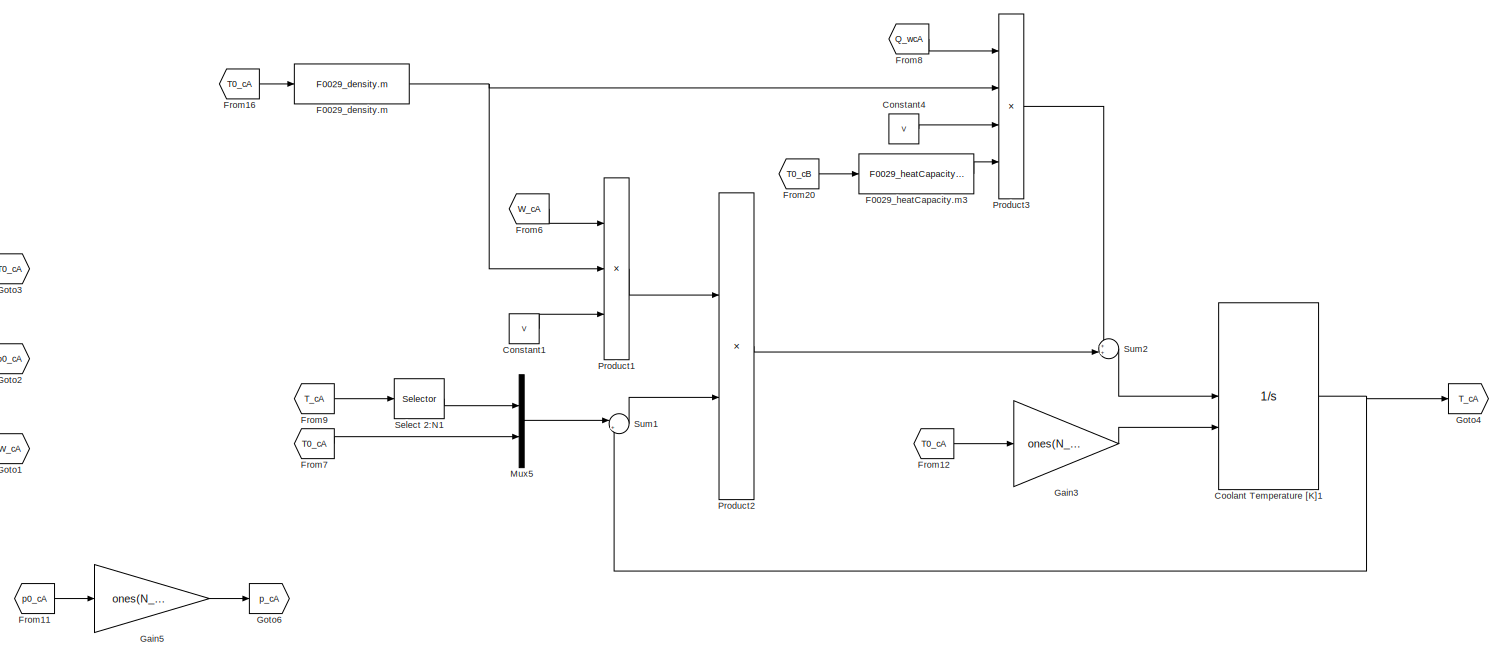
[diagram: Thermal Systems/TH0018_PHEX - part 1/9, top center region]
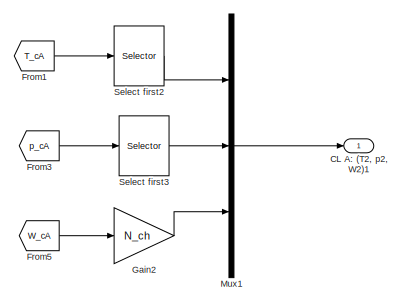
[diagram: Thermal Systems/TH0018_PHEX - part 2/9, top right region]
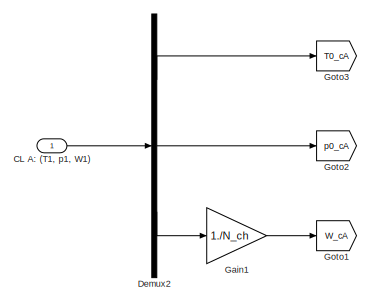
[diagram: Thermal Systems/TH0018_PHEX - part 3/9, top left region]
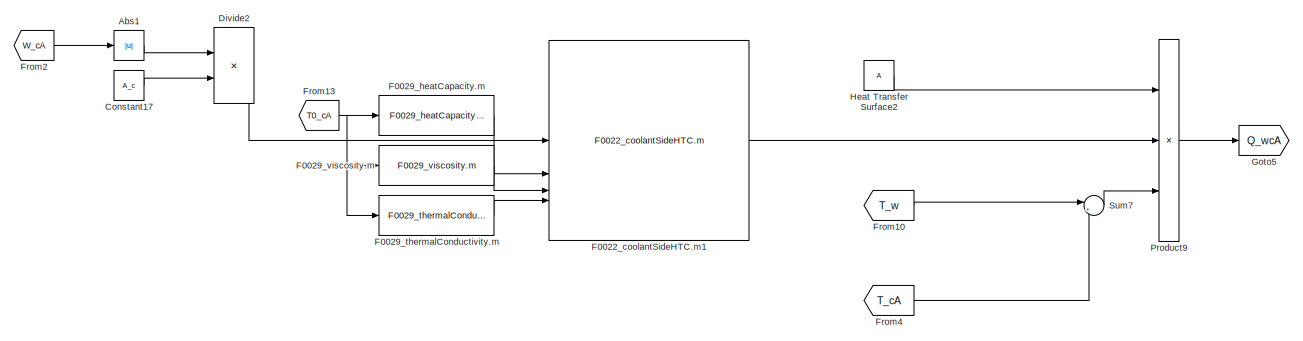
[diagram: Thermal Systems/TH0018_PHEX - part 4/9, top center region]
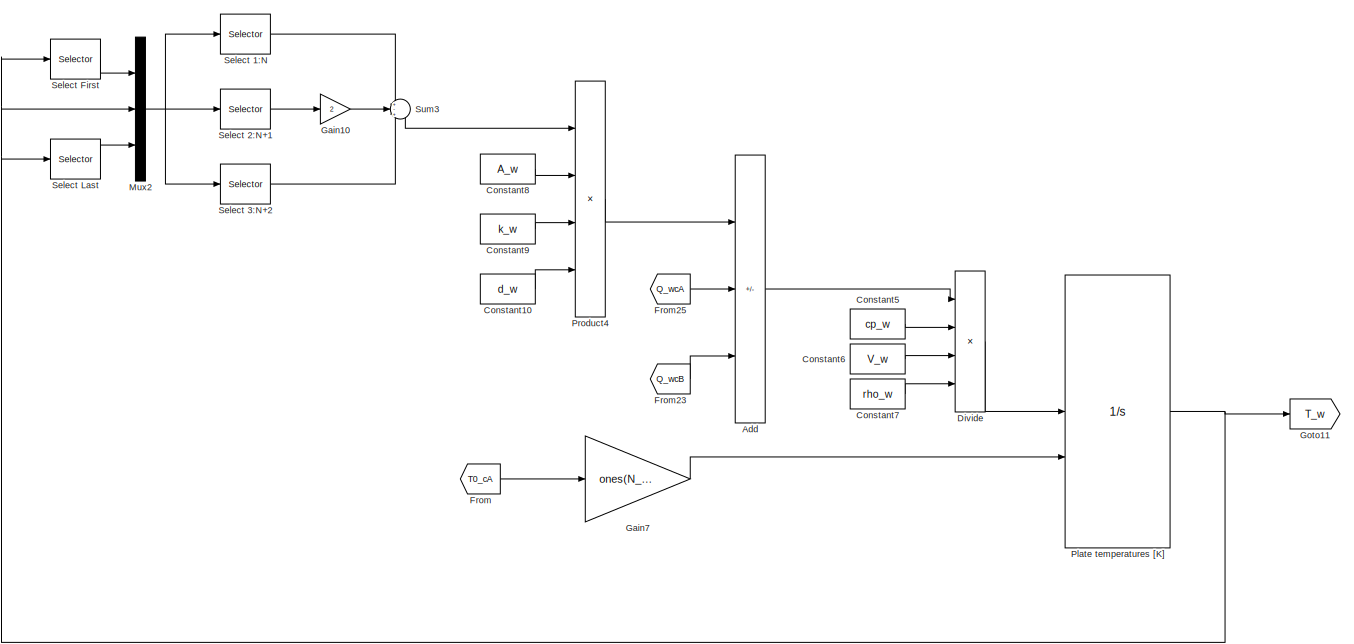
[diagram: Thermal Systems/TH0018_PHEX - part 5/9, central region]
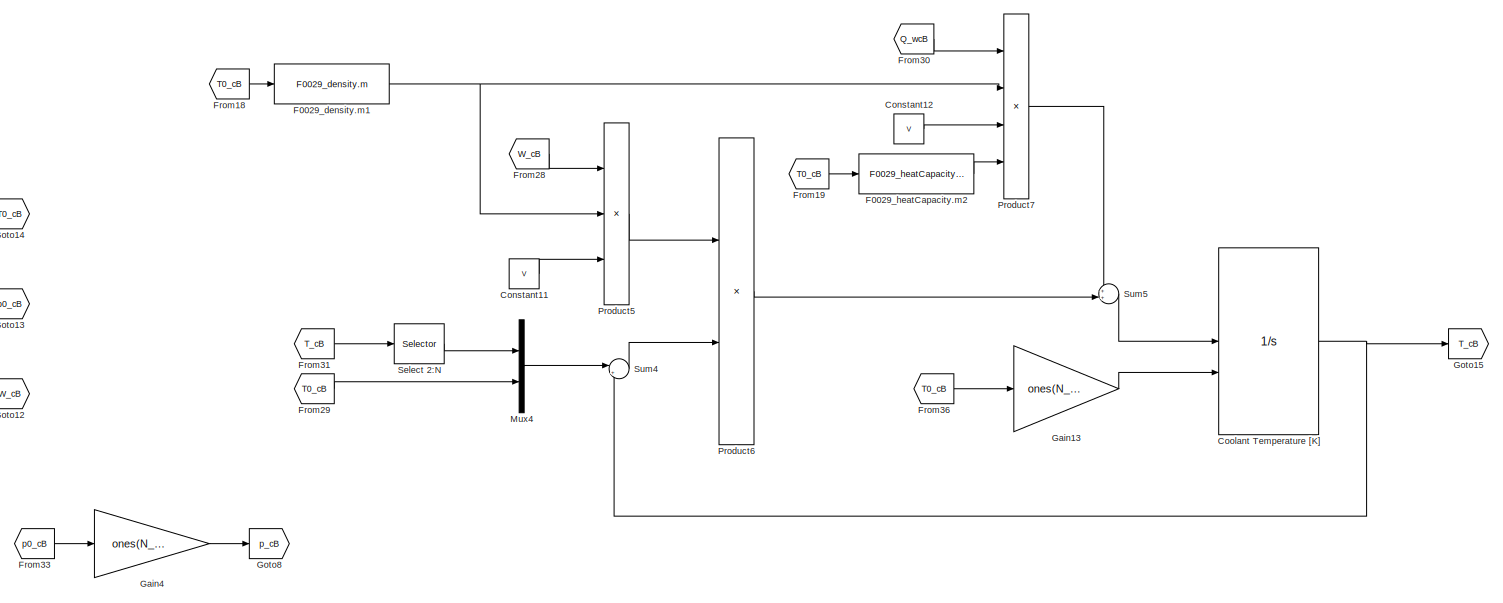
[diagram: Thermal Systems/TH0018_PHEX - part 6/9, bottom center region]
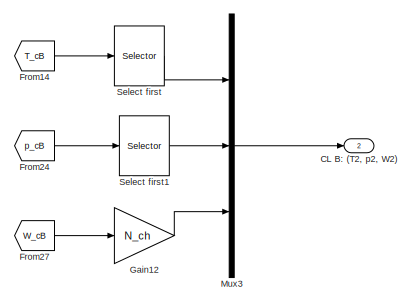
[diagram: Thermal Systems/TH0018_PHEX - part 7/9, bottom right region]
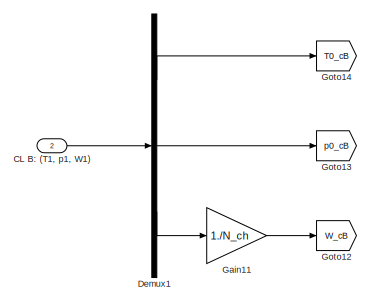
[diagram: Thermal Systems/TH0018_PHEX - part 8/9, bottom left region]
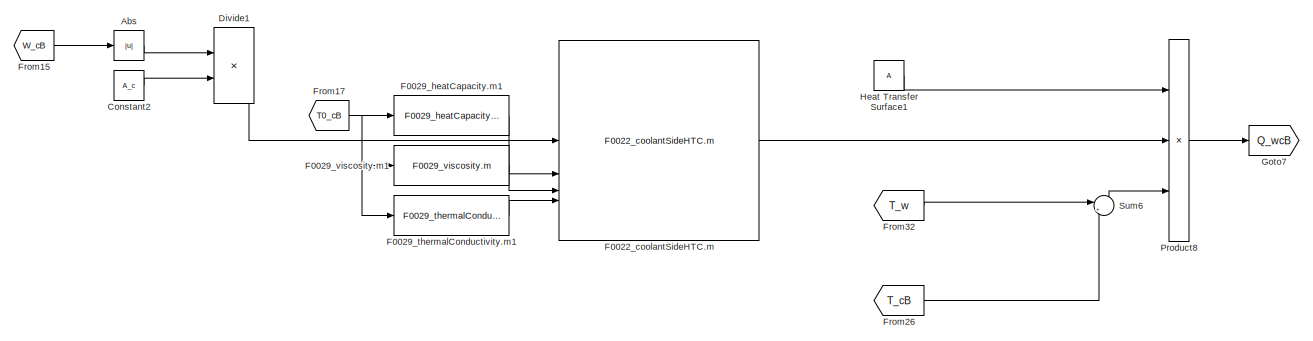
[diagram: Thermal Systems/TH0018_PHEX - part 9/9, bottom center region]
BLOCK [SubSystem] Thermal Systems/TH0018_PHEX
BLOCK [Abs] Thermal Systems/TH0018_PHEX/Abs
  SaturateOnIntegerOverflow = off
BLOCK [Abs] Thermal Systems/TH0018_PHEX/Abs1
  SaturateOnIntegerOverflow = off
BLOCK [Sum] Thermal Systems/TH0018_PHEX/Add
  IconShape = rectangular
  Inputs = +--
BLOCK [Inport] Thermal Systems/TH0018_PHEX/CL A: (T1, p1, W1)
BLOCK [Outport] Thermal Systems/TH0018_PHEX/CL A: (T2, p2, W2)1
BLOCK [Inport] Thermal Systems/TH0018_PHEX/CL B: (T1, p1, W1)
  Port = 2
BLOCK [Outport] Thermal Systems/TH0018_PHEX/CL B: (T2, p2, W2)
  Port = 2
BLOCK [Constant] Thermal Systems/TH0018_PHEX/Constant1
  Value = V
BLOCK [Constant] Thermal Systems/TH0018_PHEX/Constant10
  Value = d_w
BLOCK [Constant] Thermal Systems/TH0018_PHEX/Constant11
  Value = V
BLOCK [Constant] Thermal Systems/TH0018_PHEX/Constant12
  Value = V
BLOCK [Constant] Thermal Systems/TH0018_PHEX/Constant17
  Value = A_c
BLOCK [Constant] Thermal Systems/TH0018_PHEX/Constant2
  Value = A_c
BLOCK [Constant] Thermal Systems/TH0018_PHEX/Constant4
  Value = V
BLOCK [Constant] Thermal Systems/TH0018_PHEX/Constant5
  Value = cp_w
BLOCK [Constant] Thermal Systems/TH0018_PHEX/Constant6
  Value = V_w
BLOCK [Constant] Thermal Systems/TH0018_PHEX/Constant7
  Value = rho_w
BLOCK [Constant] Thermal Systems/TH0018_PHEX/Constant8
  Value = A_w
BLOCK [Constant] Thermal Systems/TH0018_PHEX/Constant9
  Value = k_w
BLOCK [Integrator] Thermal Systems/TH0018_PHEX/Coolant Temperature [K]
  InitialConditionSource = external
  LimitOutput = on
  LowerSaturationLimit = 0
BLOCK [Integrator] Thermal Systems/TH0018_PHEX/Coolant Temperature [K]1
  InitialConditionSource = external
  LimitOutput = on
  LowerSaturationLimit = 0
BLOCK [Demux] Thermal Systems/TH0018_PHEX/Demux1
  Outputs = 3
BLOCK [Demux] Thermal Systems/TH0018_PHEX/Demux2
  Outputs = 3
BLOCK [Product] Thermal Systems/TH0018_PHEX/Divide
  Inputs = *///
BLOCK [Product] Thermal Systems/TH0018_PHEX/Divide1
  Inputs = */
BLOCK [Product] Thermal Systems/TH0018_PHEX/Divide2
  Inputs = */
BLOCK [Reference] Thermal Systems/TH0018_PHEX/F0022_coolantSideHTC.m  REF=base_lib/F0022_heatPump/F0022_coolantSideHTC.m  (lib defined in slx_7545a99fe1f7)
  LibrarySourceBlock = simulink/User-Defined\nFunctions/MATLAB Function
  SourceBlock = base_lib/F0022_heatPump/F0022_coolantSideHTC.m
  SourceType = SubSystem
BLOCK [Reference] Thermal Systems/TH0018_PHEX/F0022_coolantSideHTC.m1  REF=base_lib/F0022_heatPump/F0022_coolantSideHTC.m  (lib defined in slx_7545a99fe1f7)
  LibrarySourceBlock = simulink/User-Defined\nFunctions/MATLAB Function
  SourceBlock = base_lib/F0022_heatPump/F0022_coolantSideHTC.m
  SourceType = SubSystem
BLOCK [Reference] Thermal Systems/TH0018_PHEX/F0029_density.m  REF=base_lib/F0029_coolantWrapper/F0029_density.m  (lib defined in slx_7545a99fe1f7)
  LibrarySourceBlock = simulink/User-Defined\nFunctions/MATLAB Function
  SourceBlock = base_lib/F0029_coolantWrapper/F0029_density.m
  SourceType = SubSystem
BLOCK [Reference] Thermal Systems/TH0018_PHEX/F0029_density.m1  REF=base_lib/F0029_coolantWrapper/F0029_density.m  (lib defined in slx_7545a99fe1f7)
  LibrarySourceBlock = simulink/User-Defined\nFunctions/MATLAB Function
  SourceBlock = base_lib/F0029_coolantWrapper/F0029_density.m
  SourceType = SubSystem
BLOCK [Reference] Thermal Systems/TH0018_PHEX/F0029_heatCapacity.m  REF=base_lib/F0029_coolantWrapper/F0029_heatCapacity.m  (lib defined in slx_7545a99fe1f7)
  LibrarySourceBlock = simulink/User-Defined\nFunctions/MATLAB Function
  SourceBlock = base_lib/F0029_coolantWrapper/F0029_heatCapacity.m
  SourceType = SubSystem
BLOCK [Reference] Thermal Systems/TH0018_PHEX/F0029_heatCapacity.m1  REF=base_lib/F0029_coolantWrapper/F0029_heatCapacity.m  (lib defined in slx_7545a99fe1f7)
  LibrarySourceBlock = simulink/User-Defined\nFunctions/MATLAB Function
  SourceBlock = base_lib/F0029_coolantWrapper/F0029_heatCapacity.m
  SourceType = SubSystem
BLOCK [Reference] Thermal Systems/TH0018_PHEX/F0029_heatCapacity.m2  REF=base_lib/F0029_coolantWrapper/F0029_heatCapacity.m  (lib defined in slx_7545a99fe1f7)
  LibrarySourceBlock = simulink/User-Defined\nFunctions/MATLAB Function
  SourceBlock = base_lib/F0029_coolantWrapper/F0029_heatCapacity.m
  SourceType = SubSystem
BLOCK [Reference] Thermal Systems/TH0018_PHEX/F0029_heatCapacity.m3  REF=base_lib/F0029_coolantWrapper/F0029_heatCapacity.m  (lib defined in slx_7545a99fe1f7)
  LibrarySourceBlock = simulink/User-Defined\nFunctions/MATLAB Function
  SourceBlock = base_lib/F0029_coolantWrapper/F0029_heatCapacity.m
  SourceType = SubSystem
BLOCK [Reference] Thermal Systems/TH0018_PHEX/F0029_thermalConductivity.m  REF=base_lib/F0029_coolantWrapper/F0029_thermalConductivity.m  (lib defined in slx_7545a99fe1f7)
  LibrarySourceBlock = simulink/User-Defined\nFunctions/MATLAB Function
  SourceBlock = base_lib/F0029_coolantWrapper/F0029_thermalConductivity.m
  SourceType = SubSystem
BLOCK [Reference] Thermal Systems/TH0018_PHEX/F0029_thermalConductivity.m1  REF=base_lib/F0029_coolantWrapper/F0029_thermalConductivity.m  (lib defined in slx_7545a99fe1f7)
  LibrarySourceBlock = simulink/User-Defined\nFunctions/MATLAB Function
  SourceBlock = base_lib/F0029_coolantWrapper/F0029_thermalConductivity.m
  SourceType = SubSystem
BLOCK [Reference] Thermal Systems/TH0018_PHEX/F0029_viscosity.m  REF=base_lib/F0029_coolantWrapper/F0029_viscosity.m  (lib defined in slx_7545a99fe1f7)
  LibrarySourceBlock = simulink/User-Defined\nFunctions/MATLAB Function
  SourceBlock = base_lib/F0029_coolantWrapper/F0029_viscosity.m
  SourceType = SubSystem
BLOCK [Reference] Thermal Systems/TH0018_PHEX/F0029_viscosity.m1  REF=base_lib/F0029_coolantWrapper/F0029_viscosity.m  (lib defined in slx_7545a99fe1f7)
  LibrarySourceBlock = simulink/User-Defined\nFunctions/MATLAB Function
  SourceBlock = base_lib/F0029_coolantWrapper/F0029_viscosity.m
  SourceType = SubSystem
BLOCK [From] Thermal Systems/TH0018_PHEX/From
  GotoTag = T0_cA
BLOCK [From] Thermal Systems/TH0018_PHEX/From1
  GotoTag = T_cA
BLOCK [From] Thermal Systems/TH0018_PHEX/From10
  GotoTag = T_w
BLOCK [From] Thermal Systems/TH0018_PHEX/From11
  GotoTag = p0_cA
BLOCK [From] Thermal Systems/TH0018_PHEX/From12
  GotoTag = T0_cA
BLOCK [From] Thermal Systems/TH0018_PHEX/From13
  GotoTag = T0_cA
BLOCK [From] Thermal Systems/TH0018_PHEX/From14
  GotoTag = T_cB
BLOCK [From] Thermal Systems/TH0018_PHEX/From15
  GotoTag = W_cB
BLOCK [From] Thermal Systems/TH0018_PHEX/From16
  GotoTag = T0_cA
BLOCK [From] Thermal Systems/TH0018_PHEX/From17
  GotoTag = T0_cB
BLOCK [From] Thermal Systems/TH0018_PHEX/From18
  GotoTag = T0_cB
BLOCK [From] Thermal Systems/TH0018_PHEX/From19
  GotoTag = T0_cB
BLOCK [From] Thermal Systems/TH0018_PHEX/From2
  GotoTag = W_cA
BLOCK [From] Thermal Systems/TH0018_PHEX/From20
  GotoTag = T0_cB
BLOCK [From] Thermal Systems/TH0018_PHEX/From23
  GotoTag = Q_wcB
BLOCK [From] Thermal Systems/TH0018_PHEX/From24
  GotoTag = p_cB
BLOCK [From] Thermal Systems/TH0018_PHEX/From25
  GotoTag = Q_wcA
BLOCK [From] Thermal Systems/TH0018_PHEX/From26
  GotoTag = T_cB
BLOCK [From] Thermal Systems/TH0018_PHEX/From27
  GotoTag = W_cB
BLOCK [From] Thermal Systems/TH0018_PHEX/From28
  GotoTag = W_cB
BLOCK [From] Thermal Systems/TH0018_PHEX/From29
  GotoTag = T0_cB
BLOCK [From] Thermal Systems/TH0018_PHEX/From3
  GotoTag = p_cA
BLOCK [From] Thermal Systems/TH0018_PHEX/From30
  GotoTag = Q_wcB
BLOCK [From] Thermal Systems/TH0018_PHEX/From31
  GotoTag = T_cB
BLOCK [From] Thermal Systems/TH0018_PHEX/From32
  GotoTag = T_w
BLOCK [From] Thermal Systems/TH0018_PHEX/From33
  GotoTag = p0_cB
BLOCK [From] Thermal Systems/TH0018_PHEX/From36
  GotoTag = T0_cB
BLOCK [From] Thermal Systems/TH0018_PHEX/From4
  GotoTag = T_cA
BLOCK [From] Thermal Systems/TH0018_PHEX/From5
  GotoTag = W_cA
BLOCK [From] Thermal Systems/TH0018_PHEX/From6
  GotoTag = W_cA
BLOCK [From] Thermal Systems/TH0018_PHEX/From7
  GotoTag = T0_cA
BLOCK [From] Thermal Systems/TH0018_PHEX/From8
  GotoTag = Q_wcA
BLOCK [From] Thermal Systems/TH0018_PHEX/From9
  GotoTag = T_cA
BLOCK [Gain] Thermal Systems/TH0018_PHEX/Gain1
  Gain = 1./N_ch
BLOCK [Gain] Thermal Systems/TH0018_PHEX/Gain10
  Gain = 2
BLOCK [Gain] Thermal Systems/TH0018_PHEX/Gain11
  Gain = 1./N_ch
BLOCK [Gain] Thermal Systems/TH0018_PHEX/Gain12
  Gain = N_ch
BLOCK [Gain] Thermal Systems/TH0018_PHEX/Gain13
  Gain = ones(N_nod,1)
BLOCK [Gain] Thermal Systems/TH0018_PHEX/Gain2
  Gain = N_ch
BLOCK [Gain] Thermal Systems/TH0018_PHEX/Gain3
  Gain = ones(N_nod,1)
BLOCK [Gain] Thermal Systems/TH0018_PHEX/Gain4
  Gain = ones(N_nod,1)
BLOCK [Gain] Thermal Systems/TH0018_PHEX/Gain5
  Gain = ones(N_nod,1)
BLOCK [Gain] Thermal Systems/TH0018_PHEX/Gain7
  Gain = ones(N_nod,1)
BLOCK [Goto] Thermal Systems/TH0018_PHEX/Goto1
  GotoTag = W_cA
BLOCK [Goto] Thermal Systems/TH0018_PHEX/Goto11
  GotoTag = T_w
BLOCK [Goto] Thermal Systems/TH0018_PHEX/Goto12
  GotoTag = W_cB
BLOCK [Goto] Thermal Systems/TH0018_PHEX/Goto13
  GotoTag = p0_cB
BLOCK [Goto] Thermal Systems/TH0018_PHEX/Goto14
  GotoTag = T0_cB
BLOCK [Goto] Thermal Systems/TH0018_PHEX/Goto15
  GotoTag = T_cB
BLOCK [Goto] Thermal Systems/TH0018_PHEX/Goto2
  GotoTag = p0_cA
BLOCK [Goto] Thermal Systems/TH0018_PHEX/Goto3
  GotoTag = T0_cA
BLOCK [Goto] Thermal Systems/TH0018_PHEX/Goto4
  GotoTag = T_cA
BLOCK [Goto] Thermal Systems/TH0018_PHEX/Goto5
  GotoTag = Q_wcA
BLOCK [Goto] Thermal Systems/TH0018_PHEX/Goto6
  GotoTag = p_cA
BLOCK [Goto] Thermal Systems/TH0018_PHEX/Goto7
  GotoTag = Q_wcB
BLOCK [Goto] Thermal Systems/TH0018_PHEX/Goto8
  GotoTag = p_cB
BLOCK [Constant] Thermal Systems/TH0018_PHEX/Heat Transfer Surface1
  Value = A
BLOCK [Constant] Thermal Systems/TH0018_PHEX/Heat Transfer Surface2
  Value = A
BLOCK [Mux] Thermal Systems/TH0018_PHEX/Mux1
  DisplayOption = bar
  Inputs = 3
BLOCK [Mux] Thermal Systems/TH0018_PHEX/Mux2
  DisplayOption = bar
  Inputs = 3
BLOCK [Mux] Thermal Systems/TH0018_PHEX/Mux3
  DisplayOption = bar
  Inputs = 3
BLOCK [Mux] Thermal Systems/TH0018_PHEX/Mux4
  DisplayOption = bar
  Inputs = 2
BLOCK [Mux] Thermal Systems/TH0018_PHEX/Mux5
  DisplayOption = bar
  Inputs = 2
BLOCK [Integrator] Thermal Systems/TH0018_PHEX/Plate temperatures [K]
  InitialConditionSource = external
  LimitOutput = on
  LowerSaturationLimit = 0
BLOCK [Product] Thermal Systems/TH0018_PHEX/Product1
  Inputs = *//
BLOCK [Product] Thermal Systems/TH0018_PHEX/Product2
BLOCK [Product] Thermal Systems/TH0018_PHEX/Product3
  Inputs = *///
BLOCK [Product] Thermal Systems/TH0018_PHEX/Product4
  Inputs = ***/
BLOCK [Product] Thermal Systems/TH0018_PHEX/Product5
  Inputs = *//
BLOCK [Product] Thermal Systems/TH0018_PHEX/Product6
BLOCK [Product] Thermal Systems/TH0018_PHEX/Product7
  Inputs = *///
BLOCK [Product] Thermal Systems/TH0018_PHEX/Product8
  Inputs = 3
BLOCK [Product] Thermal Systems/TH0018_PHEX/Product9
  Inputs = 3
BLOCK [Selector] Thermal Systems/TH0018_PHEX/Select 1:N
  IndexOptions = Index vector (dialog)
  Indices = [1:N_nod]
  InputPortWidth = N_nod+2
  OutputSizes = 1
BLOCK [Selector] Thermal Systems/TH0018_PHEX/Select 2:N
  IndexOptions = Index vector (dialog)
  Indices = [2:N_nod]
  InputPortWidth = N_nod
  OutputSizes = 1
BLOCK [Selector] Thermal Systems/TH0018_PHEX/Select 2:N+1 
  IndexOptions = Index vector (dialog)
  Indices = [2:(N_nod+1)]
  InputPortWidth = N_nod+2
  OutputSizes = 1
BLOCK [Selector] Thermal Systems/TH0018_PHEX/Select 2:N1
  IndexOptions = Index vector (dialog)
  Indices = [2:N_nod]
  InputPortWidth = N_nod
  OutputSizes = 1
BLOCK [Selector] Thermal Systems/TH0018_PHEX/Select 3:N+2
  IndexOptions = Index vector (dialog)
  Indices = [3:(N_nod+2)]
  InputPortWidth = N_nod+2
  OutputSizes = 1
BLOCK [Selector] Thermal Systems/TH0018_PHEX/Select First
  IndexOptions = Index vector (dialog)
  Indices = 1
  InputPortWidth = N_nod
  OutputSizes = 1
BLOCK [Selector] Thermal Systems/TH0018_PHEX/Select Last
  IndexOptions = Index vector (dialog)
  Indices = N_nod
  InputPortWidth = N_nod
  OutputSizes = 1
BLOCK [Selector] Thermal Systems/TH0018_PHEX/Select first
  IndexOptions = Index vector (dialog)
  Indices = 1
  InputPortWidth = N_nod
  OutputSizes = 1
BLOCK [Selector] Thermal Systems/TH0018_PHEX/Select first1
  IndexOptions = Index vector (dialog)
  Indices = 1
  InputPortWidth = N_nod
  OutputSizes = 1
BLOCK [Selector] Thermal Systems/TH0018_PHEX/Select first2
  IndexOptions = Index vector (dialog)
  Indices = 1
  InputPortWidth = N_nod
  OutputSizes = 1
BLOCK [Selector] Thermal Systems/TH0018_PHEX/Select first3
  IndexOptions = Index vector (dialog)
  Indices = 1
  InputPortWidth = N_nod
  OutputSizes = 1
BLOCK [Sum] Thermal Systems/TH0018_PHEX/Sum1
  Inputs = |+-
BLOCK [Sum] Thermal Systems/TH0018_PHEX/Sum2
  Inputs = ++|
BLOCK [Sum] Thermal Systems/TH0018_PHEX/Sum3
  Inputs = +-+
BLOCK [Sum] Thermal Systems/TH0018_PHEX/Sum4
  Inputs = |+-
BLOCK [Sum] Thermal Systems/TH0018_PHEX/Sum5
  Inputs = ++|
BLOCK [Sum] Thermal Systems/TH0018_PHEX/Sum6
  Inputs = |+-
BLOCK [Sum] Thermal Systems/TH0018_PHEX/Sum7
  Inputs = |+-
BLOCK [SubSystem] Thermal Systems/TH0019_airTotalHeatTransfer
BLOCK [Inport] Thermal Systems/TH0019_airTotalHeatTransfer/AIR: (T1,p1,W1)
  Port = 2
BLOCK [Outport] Thermal Systems/TH0019_airTotalHeatTransfer/AIR: (T2,p2,W2)
BLOCK [Constant] Thermal Systems/TH0019_airTotalHeatTransfer/Constant
  Value = par.cp_air
BLOCK [Demux] Thermal Systems/TH0019_airTotalHeatTransfer/Demux
  Outputs = 3
BLOCK [Mux] Thermal Systems/TH0019_airTotalHeatTransfer/Mux
  DisplayOption = bar
  Inputs = 3
BLOCK [Product] Thermal Systems/TH0019_airTotalHeatTransfer/Product
  Inputs = *//
BLOCK [Inport] Thermal Systems/TH0019_airTotalHeatTransfer/Q [J//s]
BLOCK [Saturate] Thermal Systems/TH0019_airTotalHeatTransfer/Saturation
  LowerLimit = T_min
  UpperLimit = T_max
BLOCK [Saturate] Thermal Systems/TH0019_airTotalHeatTransfer/Saturation1
  LowerLimit = 0.001
  UpperLimit = inf
BLOCK [Sum] Thermal Systems/TH0019_airTotalHeatTransfer/Sum
  Inputs = ++|
BLOCK [SubSystem] Thermal Systems/TH0020_cm100hp
BLOCK [Inport] Thermal Systems/TH0020_cm100hp/CL: (T1,p1,W1)
  Port = 3
BLOCK [Outport] Thermal Systems/TH0020_cm100hp/CL: (T2,p2,W2)
  Port = 2
BLOCK [Constant] Thermal Systems/TH0020_cm100hp/Constant5
  Value = 27.5
BLOCK [Demux] Thermal Systems/TH0020_cm100hp/Demux
  Outputs = 3
BLOCK [Product] Thermal Systems/TH0020_cm100hp/Divide
  Inputs = /*
BLOCK [Product] Thermal Systems/TH0020_cm100hp/Divide1
  Inputs = */
BLOCK [Reference] Thermal Systems/TH0020_cm100hp/F0023_current.m  REF=base_lib/F0023_epirocWaterPump/F0023_current.m  (lib defined in slx_7545a99fe1f7)
  LibrarySourceBlock = simulink/User-Defined\nFunctions/MATLAB Function
  SourceBlock = base_lib/F0023_epirocWaterPump/F0023_current.m
  SourceType = SubSystem
BLOCK [Reference] Thermal Systems/TH0020_cm100hp/F0023_pressure.m  REF=base_lib/F0023_epirocWaterPump/F0023_pressure.m  (lib defined in slx_7545a99fe1f7)
  LibrarySourceBlock = simulink/User-Defined\nFunctions/MATLAB Function
  SourceBlock = base_lib/F0023_epirocWaterPump/F0023_pressure.m
  SourceType = SubSystem
BLOCK [Reference] Thermal Systems/TH0020_cm100hp/F0023_speed.m  REF=base_lib/F0023_epirocWaterPump/F0023_speed.m  (lib defined in slx_7545a99fe1f7)
  LibrarySourceBlock = simulink/User-Defined\nFunctions/MATLAB Function
  SourceBlock = base_lib/F0023_epirocWaterPump/F0023_speed.m
  SourceType = SubSystem
BLOCK [From] Thermal Systems/TH0020_cm100hp/From8
  GotoTag = V_sup
BLOCK [Gain] Thermal Systems/TH0020_cm100hp/Gain
  Gain = 1e5
BLOCK [Gain] Thermal Systems/TH0020_cm100hp/Gain1
BLOCK [Goto] Thermal Systems/TH0020_cm100hp/Goto2
  GotoTag = V_sup
BLOCK [Goto] Thermal Systems/TH0020_cm100hp/Goto4
  GotoTag = q
BLOCK [Outport] Thermal Systems/TH0020_cm100hp/I [A]
BLOCK [Integrator] Thermal Systems/TH0020_cm100hp/Integrator Limited
  InitialConditionSource = external
  LimitOutput = on
  LowerSaturationLimit = 0
  UpperSaturationLimit = 10
BLOCK [Mux] Thermal Systems/TH0020_cm100hp/Mux
  DisplayOption = bar
  Inputs = 3
BLOCK [Product] Thermal Systems/TH0020_cm100hp/Product1
  Inputs = 3
BLOCK [Sum] Thermal Systems/TH0020_cm100hp/Sum
  Inputs = |++
BLOCK [Sum] Thermal Systems/TH0020_cm100hp/Sum1
  Inputs = -|+
BLOCK [Terminator] Thermal Systems/TH0020_cm100hp/Terminator
BLOCK [Inport] Thermal Systems/TH0020_cm100hp/V_ctrl [V]
  Port = 2
BLOCK [Inport] Thermal Systems/TH0020_cm100hp/V_sup [V]
BLOCK [SubSystem] Thermal Systems/TH0020_staticPressureDrop
BLOCK [Inport] Thermal Systems/TH0020_staticPressureDrop/CL: (T1,p1,W1)
BLOCK [Outport] Thermal Systems/TH0020_staticPressureDrop/CL: (T2,p2,W2)
BLOCK [Constant] Thermal Systems/TH0020_staticPressureDrop/Constant
  Value = dp
BLOCK [Demux] Thermal Systems/TH0020_staticPressureDrop/Demux
  Outputs = 3
BLOCK [Mux] Thermal Systems/TH0020_staticPressureDrop/Mux
  DisplayOption = bar
  Inputs = 3
BLOCK [Sum] Thermal Systems/TH0020_staticPressureDrop/Sum
  Inputs = |+-
BLOCK [SubSystem] Thermal Systems/TH0021_tank
BLOCK [Inport] Thermal Systems/TH0021_tank/CL: (T1,p1,W1)
  Port = 2
BLOCK [Outport] Thermal Systems/TH0021_tank/CL: (T2,p2,W2)
  Port = 2
BLOCK [Constant] Thermal Systems/TH0021_tank/Constant2
  Value = T0
BLOCK [Demux] Thermal Systems/TH0021_tank/Demux1
  Outputs = 3
BLOCK [From] Thermal Systems/TH0021_tank/From
  GotoTag = p1
BLOCK [From] Thermal Systems/TH0021_tank/From1
  GotoTag = T
BLOCK [Gain] Thermal Systems/TH0021_tank/Gain
  Gain = 1e-3
BLOCK [Gain] Thermal Systems/TH0021_tank/Gain1
  Gain = 1e-1
BLOCK [Goto] Thermal Systems/TH0021_tank/Goto1
  GotoTag = p1
BLOCK [Goto] Thermal Systems/TH0021_tank/Goto2
  GotoTag = T
BLOCK [Integrator] Thermal Systems/TH0021_tank/Integrator
  InitialCondition = 1
  LimitOutput = on
  LowerSaturationLimit = 0
BLOCK [Integrator] Thermal Systems/TH0021_tank/Integrator2
  InitialCondition = 293
  InitialConditionSource = external
  LimitOutput = on
  LowerSaturationLimit = 1e-3
BLOCK [Mux] Thermal Systems/TH0021_tank/Mux1
  DisplayOption = bar
  Inputs = 3
BLOCK [Sum] Thermal Systems/TH0021_tank/Sum
  Inputs = -+|
BLOCK [Sum] Thermal Systems/TH0021_tank/Sum2
  Inputs = |+-
BLOCK [Outport] Thermal Systems/TH0021_tank/W [kg//s]
BLOCK [Inport] Thermal Systems/TH0021_tank/p [Pa]
BLOCK [SubSystem] Thermal Systems/TH0022_restriction
BLOCK [Inport] Thermal Systems/TH0022_restriction/CL: (T1,p1,W1)
BLOCK [Outport] Thermal Systems/TH0022_restriction/CL: (T2,p2,W2)
BLOCK [Demux] Thermal Systems/TH0022_restriction/Demux
  Outputs = 3
BLOCK [Reference] Thermal Systems/TH0022_restriction/F0017_restriction.m  REF=base_lib/F0017_channelCooling/F0017_restriction.m  (lib defined in slx_7545a99fe1f7)
  LibrarySourceBlock = simulink/User-Defined\nFunctions/MATLAB Function
  SourceBlock = base_lib/F0017_channelCooling/F0017_restriction.m
  SourceType = SubSystem
BLOCK [Reference] Thermal Systems/TH0022_restriction/F0029_density.m  REF=base_lib/F0029_coolantWrapper/F0029_density.m  (lib defined in slx_7545a99fe1f7)
  LibrarySourceBlock = simulink/User-Defined\nFunctions/MATLAB Function
  SourceBlock = base_lib/F0029_coolantWrapper/F0029_density.m
  SourceType = SubSystem
BLOCK [Mux] Thermal Systems/TH0022_restriction/Mux
  DisplayOption = bar
  Inputs = 3
BLOCK [Sum] Thermal Systems/TH0022_restriction/Sum
  Inputs = |+-
BLOCK [SubSystem] Thermal Systems/TH0023_WP120
BLOCK [Inport] Thermal Systems/TH0023_WP120/CL: (T1,p1,W1)
  Port = 3
BLOCK [Outport] Thermal Systems/TH0023_WP120/CL: (T2,p2,W2)
  Port = 2
BLOCK [Demux] Thermal Systems/TH0023_WP120/Demux
  Outputs = 3
BLOCK [Product] Thermal Systems/TH0023_WP120/Divide
  Inputs = */
BLOCK [Reference] Thermal Systems/TH0023_WP120/F0024_powerWP120.m  REF=base_lib/F0024_WPpumps/F0024_powerWP120.m  (lib defined in slx_7545a99fe1f7)
  LibrarySourceBlock = simulink/User-Defined\nFunctions/MATLAB Function
  SourceBlock = base_lib/F0024_WPpumps/F0024_powerWP120.m
  SourceType = SubSystem
BLOCK [Reference] Thermal Systems/TH0023_WP120/F0024_pressureWP120.m  REF=base_lib/F0024_WPpumps/F0024_pressureWP120.m  (lib defined in slx_7545a99fe1f7)
  LibrarySourceBlock = simulink/User-Defined\nFunctions/MATLAB Function
  SourceBlock = base_lib/F0024_WPpumps/F0024_pressureWP120.m
  SourceType = SubSystem
BLOCK [Gain] Thermal Systems/TH0023_WP120/Gain1
BLOCK [Goto] Thermal Systems/TH0023_WP120/Goto4
  GotoTag = q
BLOCK [Outport] Thermal Systems/TH0023_WP120/I [A]
BLOCK [Integrator] Thermal Systems/TH0023_WP120/Integrator Limited
  InitialConditionSource = external
  LimitOutput = on
  LowerSaturationLimit = 0
  UpperSaturationLimit = 6000
BLOCK [Mux] Thermal Systems/TH0023_WP120/Mux
  DisplayOption = bar
  Inputs = 3
BLOCK [Sum] Thermal Systems/TH0023_WP120/Sum
  Inputs = |++
BLOCK [Sum] Thermal Systems/TH0023_WP120/Sum1
  Inputs = -|+
BLOCK [Inport] Thermal Systems/TH0023_WP120/V_sup [V]
BLOCK [Inport] Thermal Systems/TH0023_WP120/n [rpm]
  Port = 2
BLOCK [SubSystem] Thermal Systems/TH0024_WP150
  LibrarySourceBlock = component_lib/Thermal Systems/TH0023_WP120
BLOCK [Inport] Thermal Systems/TH0024_WP150/CL: (T1,p1,W1)
  Port = 3
BLOCK [Outport] Thermal Systems/TH0024_WP150/CL: (T2,p2,W2)
  Port = 2
BLOCK [Demux] Thermal Systems/TH0024_WP150/Demux
  Outputs = 3
BLOCK [Product] Thermal Systems/TH0024_WP150/Divide
  Inputs = */
BLOCK [Reference] Thermal Systems/TH0024_WP150/F0024_powerWP150.m  REF=base_lib/F0024_WPpumps/F0024_powerWP150.m  (lib defined in slx_7545a99fe1f7)
  LibrarySourceBlock = simulink/User-Defined\nFunctions/MATLAB Function
  SourceBlock = base_lib/F0024_WPpumps/F0024_powerWP150.m
  SourceType = SubSystem
BLOCK [Reference] Thermal Systems/TH0024_WP150/F0024_pressureWP150.m  REF=base_lib/F0024_WPpumps/F0024_pressureWP150.m  (lib defined in slx_7545a99fe1f7)
  LibrarySourceBlock = simulink/User-Defined\nFunctions/MATLAB Function
  SourceBlock = base_lib/F0024_WPpumps/F0024_pressureWP150.m
  SourceType = SubSystem
BLOCK [Gain] Thermal Systems/TH0024_WP150/Gain
  Gain = 1/n
BLOCK [Gain] Thermal Systems/TH0024_WP150/Gain1
BLOCK [Gain] Thermal Systems/TH0024_WP150/Gain2
  Gain = n
BLOCK [Gain] Thermal Systems/TH0024_WP150/Gain3
  Gain = n
BLOCK [Goto] Thermal Systems/TH0024_WP150/Goto4
  GotoTag = q
BLOCK [Outport] Thermal Systems/TH0024_WP150/I [A]
BLOCK [Integrator] Thermal Systems/TH0024_WP150/Integrator Limited
  InitialConditionSource = external
  LimitOutput = on
  LowerSaturationLimit = 0
  UpperSaturationLimit = 4500
BLOCK [Mux] Thermal Systems/TH0024_WP150/Mux
  DisplayOption = bar
  Inputs = 3
BLOCK [Sum] Thermal Systems/TH0024_WP150/Sum
  Inputs = |++
BLOCK [Sum] Thermal Systems/TH0024_WP150/Sum1
  Inputs = -|+
BLOCK [Inport] Thermal Systems/TH0024_WP150/V_sup [V]
BLOCK [Inport] Thermal Systems/TH0024_WP150/n [rpm]
  Port = 2
BLOCK [SubSystem] Thermal Systems/TH0025_VA164A
  LibrarySourceBlock = component_lib/Thermal Systems/TH0023_WP120
BLOCK [Inport] Thermal Systems/TH0025_VA164A/AIR: (T1,p1,W1)
  Port = 3
BLOCK [Outport] Thermal Systems/TH0025_VA164A/AIR: (T2,p2,W2)
  Port = 2
BLOCK [Demux] Thermal Systems/TH0025_VA164A/Demux
  Outputs = 3
BLOCK [Product] Thermal Systems/TH0025_VA164A/Divide
  Inputs = */
BLOCK [Reference] Thermal Systems/TH0025_VA164A/F0025_powerVA164A.m  REF=base_lib/F0025_spalFans/F0025_powerVA164A.m  (lib defined in slx_7545a99fe1f7)
  LibrarySourceBlock = simulink/User-Defined\nFunctions/MATLAB Function
  SourceBlock = base_lib/F0025_spalFans/F0025_powerVA164A.m
  SourceType = SubSystem
BLOCK [Reference] Thermal Systems/TH0025_VA164A/F0025_pressureVA164A.m  REF=base_lib/F0025_spalFans/F0025_pressureVA164A.m  (lib defined in slx_7545a99fe1f7)
  LibrarySourceBlock = simulink/User-Defined\nFunctions/MATLAB Function
  SourceBlock = base_lib/F0025_spalFans/F0025_pressureVA164A.m
  SourceType = SubSystem
BLOCK [Gain] Thermal Systems/TH0025_VA164A/Gain
  Gain = 1/n
  NameLocation = left
BLOCK [Gain] Thermal Systems/TH0025_VA164A/Gain1
BLOCK [Gain] Thermal Systems/TH0025_VA164A/Gain2
  Gain = n
BLOCK [Goto] Thermal Systems/TH0025_VA164A/Goto4
  GotoTag = q
BLOCK [Outport] Thermal Systems/TH0025_VA164A/I [A]
BLOCK [Integrator] Thermal Systems/TH0025_VA164A/Integrator Limited
  InitialConditionSource = external
  LimitOutput = on
  LowerSaturationLimit = 0
  UpperSaturationLimit = 3000
BLOCK [Mux] Thermal Systems/TH0025_VA164A/Mux
  DisplayOption = bar
  Inputs = 3
BLOCK [Sum] Thermal Systems/TH0025_VA164A/Sum
  Inputs = |++
BLOCK [Sum] Thermal Systems/TH0025_VA164A/Sum1
  Inputs = -|+
BLOCK [Inport] Thermal Systems/TH0025_VA164A/V_sup [V]
BLOCK [Inport] Thermal Systems/TH0025_VA164A/n [rpm]
  Port = 2
BLOCK [SubSystem] Thermal Systems/TH0026_airVolume
BLOCK [Inport] Thermal Systems/TH0026_airVolume/AIR: (T1,p1,W1)
  Port = 2
BLOCK [Outport] Thermal Systems/TH0026_airVolume/AIR: (T2,p2,W2)
  Port = 2
BLOCK [Constant] Thermal Systems/TH0026_airVolume/Constant
  Value = par.cp_air
BLOCK [Constant] Thermal Systems/TH0026_airVolume/Constant1
  Value = T0
BLOCK [Constant] Thermal Systems/TH0026_airVolume/Constant2
  Value = par.rho_air
BLOCK [Constant] Thermal Systems/TH0026_airVolume/Constant3
  Value = V
BLOCK [Demux] Thermal Systems/TH0026_airVolume/Demux1
  Outputs = 3
BLOCK [Product] Thermal Systems/TH0026_airVolume/Divide
  Inputs = */
BLOCK [Product] Thermal Systems/TH0026_airVolume/Divide1
  Inputs = */
BLOCK [Gain] Thermal Systems/TH0026_airVolume/Gain
  Gain = 1e3
BLOCK [Gain] Thermal Systems/TH0026_airVolume/Gain1
  Gain = 1e3
BLOCK [Integrator] Thermal Systems/TH0026_airVolume/Integrator
  InitialConditionSource = external
BLOCK [Integrator] Thermal Systems/TH0026_airVolume/Integrator1
  InitialCondition = 1e5
BLOCK [Integrator] Thermal Systems/TH0026_airVolume/Integrator2
BLOCK [Mux] Thermal Systems/TH0026_airVolume/Mux1
  DisplayOption = bar
  Inputs = 3
BLOCK [Product] Thermal Systems/TH0026_airVolume/Product
BLOCK [Product] Thermal Systems/TH0026_airVolume/Product2
BLOCK [Product] Thermal Systems/TH0026_airVolume/Product3
  NameLocation = top
BLOCK [Sum] Thermal Systems/TH0026_airVolume/Sum
  Inputs = ++|
BLOCK [Sum] Thermal Systems/TH0026_airVolume/Sum1
  Inputs = +|-
  NameLocation = right
BLOCK [Sum] Thermal Systems/TH0026_airVolume/Sum2
  Inputs = |+-
BLOCK [Sum] Thermal Systems/TH0026_airVolume/Sum3
  Inputs = |+-
BLOCK [Outport] Thermal Systems/TH0026_airVolume/T [K]
BLOCK [Inport] Thermal Systems/TH0026_airVolume/dQ [J//s]
BLOCK [SubSystem] Thermal Systems/TH0027_hvacFlap
BLOCK [Inport] Thermal Systems/TH0027_hvacFlap/AIR: (T1,p1,W1)
  Port = 2
BLOCK [Outport] Thermal Systems/TH0027_hvacFlap/AIR: (T2,p2,W2)
BLOCK [Demux] Thermal Systems/TH0027_hvacFlap/Demux1
  Outputs = 3
BLOCK [Reference] Thermal Systems/TH0027_hvacFlap/F0014_variableAreaPressureDrop.m  REF=base_lib/F0014_titanXradiator/F0014_variableAreaPressureDrop.m  (lib defined in slx_7545a99fe1f7)
  LibrarySourceBlock = simulink/User-Defined\nFunctions/MATLAB Function
  SourceBlock = base_lib/F0014_titanXradiator/F0014_variableAreaPressureDrop.m
  SourceType = SubSystem
BLOCK [Mux] Thermal Systems/TH0027_hvacFlap/Mux1
  DisplayOption = bar
  Inputs = 3
BLOCK [Saturate] Thermal Systems/TH0027_hvacFlap/Saturation
  LowerLimit = 0
  UpperLimit = 1
BLOCK [Sum] Thermal Systems/TH0027_hvacFlap/Sum
  Inputs = -+|
BLOCK [Inport] Thermal Systems/TH0027_hvacFlap/open [-]
BLOCK [SubSystem] Thermal Systems/TH0028_VA195
  LibrarySourceBlock = component_lib/Thermal Systems/TH0023_WP120
BLOCK [Inport] Thermal Systems/TH0028_VA195/AIR: (T1,p1,W1)
  Port = 3
BLOCK [Outport] Thermal Systems/TH0028_VA195/AIR: (T2,p2,W2)
  Port = 2
BLOCK [Demux] Thermal Systems/TH0028_VA195/Demux
  Outputs = 3
BLOCK [Product] Thermal Systems/TH0028_VA195/Divide
  Inputs = */
BLOCK [Reference] Thermal Systems/TH0028_VA195/F0025_powerVA195.m  REF=base_lib/F0025_spalFans/F0025_powerVA195.m  (lib defined in slx_7545a99fe1f7)
  LibrarySourceBlock = simulink/User-Defined\nFunctions/MATLAB Function
  SourceBlock = base_lib/F0025_spalFans/F0025_powerVA195.m
  SourceType = SubSystem
BLOCK [Reference] Thermal Systems/TH0028_VA195/F0025_pressureVA195.m  REF=base_lib/F0025_spalFans/F0025_pressureVA195.m  (lib defined in slx_7545a99fe1f7)
  LibrarySourceBlock = simulink/User-Defined\nFunctions/MATLAB Function
  SourceBlock = base_lib/F0025_spalFans/F0025_pressureVA195.m
  SourceType = SubSystem
BLOCK [Gain] Thermal Systems/TH0028_VA195/Gain
  Gain = 1/n
  NameLocation = left
BLOCK [Gain] Thermal Systems/TH0028_VA195/Gain1
BLOCK [Gain] Thermal Systems/TH0028_VA195/Gain2
  Gain = n
BLOCK [Outport] Thermal Systems/TH0028_VA195/I [A]
BLOCK [Integrator] Thermal Systems/TH0028_VA195/Integrator Limited
  InitialConditionSource = external
  LimitOutput = on
  LowerSaturationLimit = 0
  UpperSaturationLimit = 5000
BLOCK [Mux] Thermal Systems/TH0028_VA195/Mux
  DisplayOption = bar
  Inputs = 3
BLOCK [Sum] Thermal Systems/TH0028_VA195/Sum
  Inputs = |++
BLOCK [Sum] Thermal Systems/TH0028_VA195/Sum1
  Inputs = -|+
BLOCK [Inport] Thermal Systems/TH0028_VA195/V_sup [V]
BLOCK [Inport] Thermal Systems/TH0028_VA195/n [rpm]
  Port = 2
BLOCK [SubSystem] Thermal Systems/TH0029_cabinConvection
BLOCK [Constant] Thermal Systems/TH0029_cabinConvection/Constant
  Value = A
BLOCK [Reference] Thermal Systems/TH0029_cabinConvection/F0017_vehicleSurfaceHTC.m  REF=base_lib/F0017_channelCooling/F0017_vehicleSurfaceHTC.m  (lib defined in slx_7545a99fe1f7)
  LibrarySourceBlock = simulink/User-Defined\nFunctions/MATLAB Function
  SourceBlock = base_lib/F0017_channelCooling/F0017_vehicleSurfaceHTC.m
  SourceType = SubSystem
BLOCK [Product] Thermal Systems/TH0029_cabinConvection/Product
  Inputs = 3
BLOCK [Outport] Thermal Systems/TH0029_cabinConvection/Q [J//s]
BLOCK [Sum] Thermal Systems/TH0029_cabinConvection/Sum
  Inputs = |+-
BLOCK [Inport] Thermal Systems/TH0029_cabinConvection/T_amb [K]
  Port = 2
BLOCK [Inport] Thermal Systems/TH0029_cabinConvection/T_cabin [K]
  Port = 3
BLOCK [Inport] Thermal Systems/TH0029_cabinConvection/v [m//s]
BLOCK [SubSystem] Thermal Systems/TH0030_batteryPackConvection
BLOCK [Constant] Thermal Systems/TH0030_batteryPackConvection/Constant
  Value = A
BLOCK [Constant] Thermal Systems/TH0030_batteryPackConvection/Constant1
  Value = h
BLOCK [Product] Thermal Systems/TH0030_batteryPackConvection/Product
  Inputs = 3
BLOCK [Outport] Thermal Systems/TH0030_batteryPackConvection/Q [J//s]
BLOCK [Sum] Thermal Systems/TH0030_batteryPackConvection/Sum
  Inputs = |+-
BLOCK [Inport] Thermal Systems/TH0030_batteryPackConvection/T_amb [K]
BLOCK [Inport] Thermal Systems/TH0030_batteryPackConvection/T_bat [K]
  Port = 2
BLOCK [SubSystem] Thermal Systems/TH0031_simplePHEX
BLOCK [Inport] Thermal Systems/TH0031_simplePHEX/A: (T1, p1, W1)
BLOCK [Outport] Thermal Systems/TH0031_simplePHEX/A: (T2, p2, W2)
BLOCK [Abs] Thermal Systems/TH0031_simplePHEX/Abs1
  SaturateOnIntegerOverflow = off
BLOCK [Abs] Thermal Systems/TH0031_simplePHEX/Abs2
  SaturateOnIntegerOverflow = off
BLOCK [Inport] Thermal Systems/TH0031_simplePHEX/B: (T1, p1, W1)
  Port = 2
BLOCK [Outport] Thermal Systems/TH0031_simplePHEX/B: (T2, p2, W2)
  Port = 2
BLOCK [Constant] Thermal Systems/TH0031_simplePHEX/Constant
BLOCK [Constant] Thermal Systems/TH0031_simplePHEX/Constant2
  Value = A_c
BLOCK [Constant] Thermal Systems/TH0031_simplePHEX/Constant3
BLOCK [Constant] Thermal Systems/TH0031_simplePHEX/Constant4
BLOCK [Constant] Thermal Systems/TH0031_simplePHEX/Constant6
  Value = A_c
BLOCK [Demux] Thermal Systems/TH0031_simplePHEX/Demux1
  Outputs = 3
BLOCK [Demux] Thermal Systems/TH0031_simplePHEX/Demux3
  Outputs = 3
BLOCK [Product] Thermal Systems/TH0031_simplePHEX/Divide
  Inputs = */
BLOCK [Product] Thermal Systems/TH0031_simplePHEX/Divide1
  Inputs = */
BLOCK [Product] Thermal Systems/TH0031_simplePHEX/Divide11
  Inputs = **
BLOCK [Product] Thermal Systems/TH0031_simplePHEX/Divide12
  Inputs = **
BLOCK [Product] Thermal Systems/TH0031_simplePHEX/Divide2
  Inputs = */
BLOCK [Product] Thermal Systems/TH0031_simplePHEX/Divide3
  Inputs = */
BLOCK [Product] Thermal Systems/TH0031_simplePHEX/Divide4
  Inputs = */
BLOCK [Product] Thermal Systems/TH0031_simplePHEX/Divide5
  Inputs = */
BLOCK [Product] Thermal Systems/TH0031_simplePHEX/Divide6
  Inputs = */
BLOCK [Reference] Thermal Systems/TH0031_simplePHEX/F0022_coolantSideHTC.m1  REF=base_lib/F0022_heatPump/F0022_coolantSideHTC.m  (lib defined in slx_7545a99fe1f7)
  LibrarySourceBlock = simulink/User-Defined\nFunctions/MATLAB Function
  SourceBlock = base_lib/F0022_heatPump/F0022_coolantSideHTC.m
  SourceType = SubSystem
BLOCK [Reference] Thermal Systems/TH0031_simplePHEX/F0022_coolantSideHTC.m2  REF=base_lib/F0022_heatPump/F0022_coolantSideHTC.m  (lib defined in slx_7545a99fe1f7)
  LibrarySourceBlock = simulink/User-Defined\nFunctions/MATLAB Function
  SourceBlock = base_lib/F0022_heatPump/F0022_coolantSideHTC.m
  SourceType = SubSystem
BLOCK [Reference] Thermal Systems/TH0031_simplePHEX/F0029_heatCapacity.m  REF=base_lib/F0029_coolantWrapper/F0029_heatCapacity.m  (lib defined in slx_7545a99fe1f7)
  LibrarySourceBlock = simulink/User-Defined\nFunctions/MATLAB Function
  SourceBlock = base_lib/F0029_coolantWrapper/F0029_heatCapacity.m
  SourceType = SubSystem
BLOCK [Reference] Thermal Systems/TH0031_simplePHEX/F0029_heatCapacity.m1  REF=base_lib/F0029_coolantWrapper/F0029_heatCapacity.m  (lib defined in slx_7545a99fe1f7)
  LibrarySourceBlock = simulink/User-Defined\nFunctions/MATLAB Function
  SourceBlock = base_lib/F0029_coolantWrapper/F0029_heatCapacity.m
  SourceType = SubSystem
BLOCK [Reference] Thermal Systems/TH0031_simplePHEX/F0029_heatCapacity.m2  REF=base_lib/F0029_coolantWrapper/F0029_heatCapacity.m  (lib defined in slx_7545a99fe1f7)
  LibrarySourceBlock = simulink/User-Defined\nFunctions/MATLAB Function
  SourceBlock = base_lib/F0029_coolantWrapper/F0029_heatCapacity.m
  SourceType = SubSystem
BLOCK [Reference] Thermal Systems/TH0031_simplePHEX/F0029_heatCapacity.m3  REF=base_lib/F0029_coolantWrapper/F0029_heatCapacity.m  (lib defined in slx_7545a99fe1f7)
  LibrarySourceBlock = simulink/User-Defined\nFunctions/MATLAB Function
  SourceBlock = base_lib/F0029_coolantWrapper/F0029_heatCapacity.m
  SourceType = SubSystem
BLOCK [Reference] Thermal Systems/TH0031_simplePHEX/F0029_thermalConductivity.m  REF=base_lib/F0029_coolantWrapper/F0029_thermalConductivity.m  (lib defined in slx_7545a99fe1f7)
  LibrarySourceBlock = simulink/User-Defined\nFunctions/MATLAB Function
  SourceBlock = base_lib/F0029_coolantWrapper/F0029_thermalConductivity.m
  SourceType = SubSystem
BLOCK [Reference] Thermal Systems/TH0031_simplePHEX/F0029_thermalConductivity.m1  REF=base_lib/F0029_coolantWrapper/F0029_thermalConductivity.m  (lib defined in slx_7545a99fe1f7)
  LibrarySourceBlock = simulink/User-Defined\nFunctions/MATLAB Function
  SourceBlock = base_lib/F0029_coolantWrapper/F0029_thermalConductivity.m
  SourceType = SubSystem
BLOCK [Reference] Thermal Systems/TH0031_simplePHEX/F0029_viscosity.m  REF=base_lib/F0029_coolantWrapper/F0029_viscosity.m  (lib defined in slx_7545a99fe1f7)
  LibrarySourceBlock = simulink/User-Defined\nFunctions/MATLAB Function
  SourceBlock = base_lib/F0029_coolantWrapper/F0029_viscosity.m
  SourceType = SubSystem
BLOCK [Reference] Thermal Systems/TH0031_simplePHEX/F0029_viscosity.m1  REF=base_lib/F0029_coolantWrapper/F0029_viscosity.m  (lib defined in slx_7545a99fe1f7)
  LibrarySourceBlock = simulink/User-Defined\nFunctions/MATLAB Function
  SourceBlock = base_lib/F0029_coolantWrapper/F0029_viscosity.m
  SourceType = SubSystem
BLOCK [From] Thermal Systems/TH0031_simplePHEX/From
  GotoTag = C
BLOCK [From] Thermal Systems/TH0031_simplePHEX/From1
  GotoTag = T1_a
BLOCK [From] Thermal Systems/TH0031_simplePHEX/From10
  GotoTag = T1_a
BLOCK [From] Thermal Systems/TH0031_simplePHEX/From11
  GotoTag = W1_a
BLOCK [From] Thermal Systems/TH0031_simplePHEX/From12
  GotoTag = W1_b
BLOCK [From] Thermal Systems/TH0031_simplePHEX/From13
  GotoTag = T1_b
BLOCK [From] Thermal Systems/TH0031_simplePHEX/From14
  GotoTag = T1_a
BLOCK [From] Thermal Systems/TH0031_simplePHEX/From15
  GotoTag = T1_b
BLOCK [From] Thermal Systems/TH0031_simplePHEX/From16
  GotoTag = W1_b
BLOCK [From] Thermal Systems/TH0031_simplePHEX/From17
  GotoTag = T1_b
BLOCK [From] Thermal Systems/TH0031_simplePHEX/From18
  GotoTag = T2_b
BLOCK [From] Thermal Systems/TH0031_simplePHEX/From19
  GotoTag = T1_b
BLOCK [From] Thermal Systems/TH0031_simplePHEX/From2
  GotoTag = W1_a
BLOCK [From] Thermal Systems/TH0031_simplePHEX/From20
  GotoTag = p1_b
BLOCK [From] Thermal Systems/TH0031_simplePHEX/From21
  GotoTag = T_b
BLOCK [From] Thermal Systems/TH0031_simplePHEX/From22
  GotoTag = W1_b
BLOCK [From] Thermal Systems/TH0031_simplePHEX/From23
  GotoTag = Q
BLOCK [From] Thermal Systems/TH0031_simplePHEX/From24
  GotoTag = T1_b
BLOCK [From] Thermal Systems/TH0031_simplePHEX/From3
  GotoTag = T1_a
BLOCK [From] Thermal Systems/TH0031_simplePHEX/From34
  GotoTag = T_a
BLOCK [From] Thermal Systems/TH0031_simplePHEX/From4
  GotoTag = T2_a
BLOCK [From] Thermal Systems/TH0031_simplePHEX/From5
  GotoTag = T1_a
BLOCK [From] Thermal Systems/TH0031_simplePHEX/From6
  GotoTag = p1_a
BLOCK [From] Thermal Systems/TH0031_simplePHEX/From7
  GotoTag = C
BLOCK [From] Thermal Systems/TH0031_simplePHEX/From8
  GotoTag = W1_a
BLOCK [From] Thermal Systems/TH0031_simplePHEX/From9
  GotoTag = Q
BLOCK [Gain] Thermal Systems/TH0031_simplePHEX/Gain10
  Gain = 1/2
BLOCK [Gain] Thermal Systems/TH0031_simplePHEX/Gain2
  Gain = 1/2
BLOCK [Gain] Thermal Systems/TH0031_simplePHEX/Gain3
  Gain = 1./N_ch
BLOCK [Gain] Thermal Systems/TH0031_simplePHEX/Gain4
  Gain = N_ch
BLOCK [Gain] Thermal Systems/TH0031_simplePHEX/Gain5
BLOCK [Gain] Thermal Systems/TH0031_simplePHEX/Gain6
  Gain = 1/2
BLOCK [Gain] Thermal Systems/TH0031_simplePHEX/Gain7
  Gain = 1./N_ch
BLOCK [Gain] Thermal Systems/TH0031_simplePHEX/Gain8
  Gain = N_ch
BLOCK [Gain] Thermal Systems/TH0031_simplePHEX/Gain9
BLOCK [Goto] Thermal Systems/TH0031_simplePHEX/Goto1
  GotoTag = T1_a
BLOCK [Goto] Thermal Systems/TH0031_simplePHEX/Goto10
  GotoTag = T1_b
BLOCK [Goto] Thermal Systems/TH0031_simplePHEX/Goto11
  GotoTag = T2_b
BLOCK [Goto] Thermal Systems/TH0031_simplePHEX/Goto16
  GotoTag = Q
BLOCK [Goto] Thermal Systems/TH0031_simplePHEX/Goto17
  GotoTag = p1_b
BLOCK [Goto] Thermal Systems/TH0031_simplePHEX/Goto18
  GotoTag = T_b
BLOCK [Goto] Thermal Systems/TH0031_simplePHEX/Goto2
  GotoTag = T2_a
BLOCK [Goto] Thermal Systems/TH0031_simplePHEX/Goto3
  GotoTag = C
BLOCK [Goto] Thermal Systems/TH0031_simplePHEX/Goto4
  GotoTag = p1_a
BLOCK [Goto] Thermal Systems/TH0031_simplePHEX/Goto5
  GotoTag = T_a
BLOCK [Goto] Thermal Systems/TH0031_simplePHEX/Goto6
  GotoTag = W1_a
BLOCK [Goto] Thermal Systems/TH0031_simplePHEX/Goto9
  GotoTag = W1_b
BLOCK [Constant] Thermal Systems/TH0031_simplePHEX/Heat Transfer Surface
  Value = A
BLOCK [Integrator] Thermal Systems/TH0031_simplePHEX/Integrator
  InitialConditionSource = external
  LimitOutput = on
  LowerSaturationLimit = 273-40
  UpperSaturationLimit = 273+100
BLOCK [Integrator] Thermal Systems/TH0031_simplePHEX/Integrator1
  InitialConditionSource = external
  LimitOutput = on
  LowerSaturationLimit = 273-40
  UpperSaturationLimit = 273+100
BLOCK [MinMax] Thermal Systems/TH0031_simplePHEX/Min
  Function = max
  Inputs = 2
BLOCK [Mux] Thermal Systems/TH0031_simplePHEX/Mux1
  DisplayOption = bar
  Inputs = 3
BLOCK [Mux] Thermal Systems/TH0031_simplePHEX/Mux2
  DisplayOption = bar
  Inputs = 3
BLOCK [Product] Thermal Systems/TH0031_simplePHEX/Product4
  Inputs = 3
BLOCK [Saturate] Thermal Systems/TH0031_simplePHEX/Saturation
  LowerLimit = 1e-5
  UpperLimit = inf
BLOCK [Saturate] Thermal Systems/TH0031_simplePHEX/Saturation1
  LowerLimit = 0.0001
  UpperLimit = inf
BLOCK [Saturate] Thermal Systems/TH0031_simplePHEX/Saturation2
  LowerLimit = 1e-5
  UpperLimit = inf
BLOCK [Saturate] Thermal Systems/TH0031_simplePHEX/Saturation4
  LowerLimit = 0.0001
  UpperLimit = inf
BLOCK [Sum] Thermal Systems/TH0031_simplePHEX/Sum
  Inputs = +|+
BLOCK [Sum] Thermal Systems/TH0031_simplePHEX/Sum1
  Inputs = +|+
BLOCK [Sum] Thermal Systems/TH0031_simplePHEX/Sum2
  Inputs = |+-
BLOCK [Sum] Thermal Systems/TH0031_simplePHEX/Sum3
  Inputs = |+-
BLOCK [Sum] Thermal Systems/TH0031_simplePHEX/Sum4
  Inputs = -+|
BLOCK [Sum] Thermal Systems/TH0031_simplePHEX/Sum5
  Inputs = +|+
BLOCK [Sum] Thermal Systems/TH0031_simplePHEX/Sum8
  Inputs = ++|
BLOCK [Sum] Thermal Systems/TH0031_simplePHEX/Sum9
  Inputs = |+-
BLOCK [SubSystem] Thermal Systems/TH0032_VA113
  LibrarySourceBlock = component_lib/Thermal Systems/TH0023_WP120
BLOCK [Inport] Thermal Systems/TH0032_VA113/AIR: (T1,p1,W1)
  Port = 3
BLOCK [Outport] Thermal Systems/TH0032_VA113/AIR: (T2,p2,W2)
  Port = 2
BLOCK [Demux] Thermal Systems/TH0032_VA113/Demux
  Outputs = 3
BLOCK [Product] Thermal Systems/TH0032_VA113/Divide
  Inputs = */
BLOCK [Reference] Thermal Systems/TH0032_VA113/F0025_powerVA113.m  REF=base_lib/F0025_spalFans/F0025_powerVA113.m  (lib defined in slx_7545a99fe1f7)
  LibrarySourceBlock = simulink/User-Defined\nFunctions/MATLAB Function
  SourceBlock = base_lib/F0025_spalFans/F0025_powerVA113.m
  SourceType = SubSystem
BLOCK [Reference] Thermal Systems/TH0032_VA113/F0025_pressureVA113.m  REF=base_lib/F0025_spalFans/F0025_pressureVA113.m  (lib defined in slx_7545a99fe1f7)
  LibrarySourceBlock = simulink/User-Defined\nFunctions/MATLAB Function
  SourceBlock = base_lib/F0025_spalFans/F0025_pressureVA113.m
  SourceType = SubSystem
BLOCK [Gain] Thermal Systems/TH0032_VA113/Gain
  Gain = 1/n
  NameLocation = left
BLOCK [Gain] Thermal Systems/TH0032_VA113/Gain1
  Gain = 10
BLOCK [Gain] Thermal Systems/TH0032_VA113/Gain2
  Gain = n
BLOCK [Goto] Thermal Systems/TH0032_VA113/Goto4
  GotoTag = q
BLOCK [Outport] Thermal Systems/TH0032_VA113/I [A]
BLOCK [Integrator] Thermal Systems/TH0032_VA113/Integrator Limited
  InitialConditionSource = external
  LimitOutput = on
  LowerSaturationLimit = 0
  UpperSaturationLimit = 4750
BLOCK [Mux] Thermal Systems/TH0032_VA113/Mux
  DisplayOption = bar
  Inputs = 3
BLOCK [Sum] Thermal Systems/TH0032_VA113/Sum
  Inputs = |++
BLOCK [Sum] Thermal Systems/TH0032_VA113/Sum1
  Inputs = -|+
BLOCK [Inport] Thermal Systems/TH0032_VA113/V_sup [V]
BLOCK [Inport] Thermal Systems/TH0032_VA113/n [rpm]
  Port = 2
ANNOTATION (root): ECCV library
ANNOTATION Cathode Gas Exchange: Compressor Dynamics
ANNOTATION Data & Control/DC0007_cathodeFlowControl: Oxygen flow [kg/s]
ANNOTATION Data & Control/DC0007_cathodeFlowControl: Reference oxygen flow [kg/s]
ANNOTATION E-Axle: Input as % of max. torque at current speed
ANNOTATION Electrochemistry/EL0001_panasonicNCR18650PF: Kelvin -> degC
ANNOTATION Electrochemistry/EL0005_boostCCM: Efficiency
ANNOTATION Fuel Cell System/Subsystem1: Rolling Fuel Consumption Calculation [kg/100km]
ANNOTATION Gas Exchange/GE0009_controlVolume: Mass flow contribution to pressure dynamics
ANNOTATION Gas Exchange/GE0009_controlVolume: Pressure
ANNOTATION Gas Exchange/GE0011_ellipseCompressor: Compressor Efficiency
ANNOTATION Gas Exchange/GE0011_ellipseCompressor: Compressor Mass FLow
ANNOTATION Gas Exchange/GE0011_ellipseCompressor: Efficiency Base Functions
ANNOTATION Gas Exchange/GE0011_ellipseCompressor: Flow Base Functions
ANNOTATION Gas Exchange/GE0011_ellipseCompressor: Pressure Ratio
ANNOTATION Gas Exchange/GE0011_ellipseCompressor: Uncorrect Mass Flow
ANNOTATION Gas Exchange/GE0020_compressor: Compressor Efficiency
ANNOTATION Gas Exchange/GE0020_compressor: Compressor Pressure Ratio
ANNOTATION Gas Exchange/GE0020_compressor: Efficiency Base Functions
ANNOTATION Gas Exchange/GE0020_compressor: Flow Base Functions
ANNOTATION Mission/MN0002_ambient: 4 % per km decrease
ANNOTATION Powertrain/PT0001_simpleVehicle: Tractive force
ANNOTATION Simple Fuel Cell System ITPEM/Subsystem1: Rolling Fuel Consumption Calculation [kg/100km]
ANNOTATION Simple Fuel Cell System/Subsystem1: Rolling Fuel Consumption Calculation [kg/100km]
ANNOTATION Thermal Systems: TitanX Radiator blockset
ANNOTATION Thermal Systems/TH0002_radiatorCore: Maximum heat transfer
ANNOTATION Thermal Systems/TH0006_flowConfluence: Average pressure
ANNOTATION Thermal Systems/TH0010_fan: Density
ANNOTATION Thermal Systems/TH0012_equalSplitMerge: merge/distribute flow
NET Anode Gas Exchange/Channel Volume:1 -> Anode Gas Exchange/GE0008_gasProperties2:1, Anode Gas Exchange/Linear Restriction1:2, Anode Gas Exchange/Linear Restriction:1, Anode Gas Exchange/SC0002_signalRead1:1, Anode Gas Exchange/p_ch (p x 4):1
LINE Anode Gas Exchange/From1:1 -> Anode Gas Exchange/Return Volume:2
LINE Anode Gas Exchange/From2:1 -> Anode Gas Exchange/GE0008_gasProperties1:2
LINE Anode Gas Exchange/From3:1 -> Anode Gas Exchange/Supply Volume:2
LINE Anode Gas Exchange/From4:1 -> Anode Gas Exchange/GE0008_gasProperties:2
LINE Anode Gas Exchange/From5:1 -> Anode Gas Exchange/GE0008_gasProperties2:2
LINE Anode Gas Exchange/From:1 -> Anode Gas Exchange/GE0013_ejector:4
LINE Anode Gas Exchange/GE0008_gasProperties1:1 -> Anode Gas Exchange/SC0002_signalRead7:1
LINE Anode Gas Exchange/GE0008_gasProperties1:2 -> Anode Gas Exchange/SC0002_signalRead8:1
LINE Anode Gas Exchange/GE0008_gasProperties2:1 -> Anode Gas Exchange/SC0002_signalRead11:1
LINE Anode Gas Exchange/GE0008_gasProperties2:2 -> Anode Gas Exchange/SC0002_signalRead12:1
LINE Anode Gas Exchange/GE0008_gasProperties:1 -> Anode Gas Exchange/SC0002_signalRead2:1
LINE Anode Gas Exchange/GE0008_gasProperties:2 -> Anode Gas Exchange/SC0002_signalRead9:1
NET Anode Gas Exchange/GE0013_ejector:1 -> Anode Gas Exchange/Sum8:1, Anode Gas Exchange/Sum:1
NET Anode Gas Exchange/GE0013_ejector:2 -> Anode Gas Exchange/Sum2:2, Anode Gas Exchange/Sum:2
LINE Anode Gas Exchange/GE0013_ejector:3 -> Anode Gas Exchange/SC0002_signalRead5:1
LINE Anode Gas Exchange/GE0013_ejector:4 -> Anode Gas Exchange/SC0002_signalRead4:1
LINE Anode Gas Exchange/Hydrogen tank:1 -> Anode Gas Exchange/Sum8:2
NET Anode Gas Exchange/Hydrogen tank:2 -> Anode Gas Exchange/GE0013_ejector:2, Anode Gas Exchange/Primary manifold:2
NET Anode Gas Exchange/Linear Restriction1:1 -> Anode Gas Exchange/Sum1:2, Anode Gas Exchange/Sum3:1
NET Anode Gas Exchange/Linear Restriction:1 -> Anode Gas Exchange/Sum2:1, Anode Gas Exchange/Sum3:3
NET Anode Gas Exchange/Primary manifold:1 -> Anode Gas Exchange/GE0013_ejector:1, Anode Gas Exchange/Sum5:1
NET Anode Gas Exchange/Return Volume:1 -> Anode Gas Exchange/GE0008_gasProperties1:1, Anode Gas Exchange/GE0013_ejector:3, Anode Gas Exchange/Linear Restriction:2, Anode Gas Exchange/SC0002_signalRead3:1
LINE Anode Gas Exchange/Subsystem1/Demux1:1 -> Anode Gas Exchange/Subsystem1/Divide:2
LINE Anode Gas Exchange/Subsystem1/Demux:1 -> Anode Gas Exchange/Subsystem1/Divide:1
LINE Anode Gas Exchange/Subsystem1/Divide:1 -> Anode Gas Exchange/Subsystem1/Saturation:1
LINE Anode Gas Exchange/Subsystem1/Gain:1 -> Anode Gas Exchange/Subsystem1/Demux1:1
LINE Anode Gas Exchange/Subsystem1/Saturation:1 -> Anode Gas Exchange/Subsystem1/SC0002_signalRead11:1
LINE Anode Gas Exchange/Subsystem1/W_an:1 -> Anode Gas Exchange/Subsystem1/Demux:1
LINE Anode Gas Exchange/Subsystem1/W_an_reacted:1 -> Anode Gas Exchange/Subsystem1/Gain:1
LINE Anode Gas Exchange/Sum1:1 -> Anode Gas Exchange/Supply Volume:1
LINE Anode Gas Exchange/Sum2:1 -> Anode Gas Exchange/Return Volume:1
LINE Anode Gas Exchange/Sum3:1 -> Anode Gas Exchange/Channel Volume:1
LINE Anode Gas Exchange/Sum5:1 -> Anode Gas Exchange/SC0002_signalRead6:1
LINE Anode Gas Exchange/Sum8:1 -> Anode Gas Exchange/Primary manifold:1
NET Anode Gas Exchange/Sum:1 -> Anode Gas Exchange/Subsystem1:1, Anode Gas Exchange/Sum1:1
NET Anode Gas Exchange/Supply Volume:1 -> Anode Gas Exchange/GE0008_gasProperties:1, Anode Gas Exchange/GE0013_ejector:5, Anode Gas Exchange/Linear Restriction1:1, Anode Gas Exchange/SC0002_signalRead10:1
NET Anode Gas Exchange/T_fc [K]:1 -> Anode Gas Exchange/Channel Volume:2, Anode Gas Exchange/Goto1:1
LINE Anode Gas Exchange/W_H2_ref [kg//s]:1 -> Anode Gas Exchange/Hydrogen tank:1
NET Anode Gas Exchange/W_an [kg//s]:1 -> Anode Gas Exchange/Subsystem1:2, Anode Gas Exchange/Sum3:2
LINE Cabin with Condenser/AMB (T,p,RH):1 -> Cabin with Condenser/Demux1:1
LINE Cabin with Condenser/Add Constant:1 -> Cabin with Condenser/SC0002_signalRead1:1
NET Cabin with Condenser/Cabin Air Volume:1 -> Cabin with Condenser/Add Constant:1, Cabin with Condenser/TH0029_cabinConvection:3, Cabin with Condenser/T_cabin [K]:1
LINE Cabin with Condenser/Cabin Air Volume:2 -> Cabin with Condenser/TH0005_flowSplit:1
LINE Cabin with Condenser/Constant6:1 -> Cabin with Condenser/outletFlap:1
LINE Cabin with Condenser/Constant:1 -> Cabin with Condenser/TH0028_VA195:1
NET Cabin with Condenser/Demux1:1 -> Cabin with Condenser/Goto2:1, Cabin with Condenser/Mux:1
NET Cabin with Condenser/Demux1:2 -> Cabin with Condenser/Goto1:1, Cabin with Condenser/Mux:2
LINE Cabin with Condenser/Demux1:3 -> Cabin with Condenser/Terminator2:1
LINE Cabin with Condenser/Demux:1 -> Cabin with Condenser/Terminator:1
LINE Cabin with Condenser/Demux:2 -> Cabin with Condenser/Terminator1:1
LINE Cabin with Condenser/Demux:3 -> Cabin with Condenser/fresh_flow [kg//s]:1
LINE Cabin with Condenser/From1:1 -> Cabin with Condenser/TH0011_outletFlowBalance:2
LINE Cabin with Condenser/From2:1 -> Cabin with Condenser/TH0029_cabinConvection:2
LINE Cabin with Condenser/From3:1 -> Cabin with Condenser/TH0029_cabinConvection:1
LINE Cabin with Condenser/From:1 -> Cabin with Condenser/Mux:3
LINE Cabin with Condenser/Intake Flap:1 -> Cabin with Condenser/TH0006_flowConfluence:2
NET Cabin with Condenser/Mux:1 -> Cabin with Condenser/Demux:1, Cabin with Condenser/TH0009_intake:1
LINE Cabin with Condenser/Q_ptc [J//s]:1 -> Cabin with Condenser/TH0019_airTotalHeatTransfer:1
LINE Cabin with Condenser/RF0013_calculateHeatflow:1 -> Cabin with Condenser/SC0002_signalRead6:1
NET Cabin with Condenser/RF0020_simpleLouverFinHEX:1 -> Cabin with Condenser/RF0013_calculateHeatflow:1, Cabin with Condenser/RF: (h2,p2,W2):1
LINE Cabin with Condenser/RF0020_simpleLouverFinHEX:2 -> Cabin with Condenser/TH0019_airTotalHeatTransfer:2
NET Cabin with Condenser/RF: (h1,p1,W1):1 -> Cabin with Condenser/RF0013_calculateHeatflow:2, Cabin with Condenser/RF0020_simpleLouverFinHEX:1
LINE Cabin with Condenser/TH0005_flowSplit:1 -> Cabin with Condenser/TH0028_VA195:3
LINE Cabin with Condenser/TH0005_flowSplit:2 -> Cabin with Condenser/outletFlap:2
LINE Cabin with Condenser/TH0006_flowConfluence:1 -> Cabin with Condenser/RF0020_simpleLouverFinHEX:2
LINE Cabin with Condenser/TH0006_flowConfluence:2 -> Cabin with Condenser/TH0005_flowSplit:2
LINE Cabin with Condenser/TH0009_intake:1 -> Cabin with Condenser/Intake Flap:2
LINE Cabin with Condenser/TH0011_outletFlowBalance:1 -> Cabin with Condenser/Goto:1
LINE Cabin with Condenser/TH0019_airTotalHeatTransfer:1 -> Cabin with Condenser/Cabin Air Volume:2
LINE Cabin with Condenser/TH0028_VA195:1 -> Cabin with Condenser/fan_current [A]:1
LINE Cabin with Condenser/TH0028_VA195:2 -> Cabin with Condenser/TH0006_flowConfluence:1
NET Cabin with Condenser/TH0029_cabinConvection:1 -> Cabin with Condenser/Cabin Air Volume:1, Cabin with Condenser/SC0002_signalRead8:1
LINE Cabin with Condenser/fan_speed [rpm]:1 -> Cabin with Condenser/TH0028_VA195:2
LINE Cabin with Condenser/flap [-]:1 -> Cabin with Condenser/Intake Flap:1
LINE Cabin with Condenser/outletFlap:1 -> Cabin with Condenser/TH0011_outletFlowBalance:1
NET Cabin with Condenser/v [m//s]:1 -> Cabin with Condenser/Goto3:1, Cabin with Condenser/TH0009_intake:2
LINE Cabin with Heater Core/AMB (T,p,RH):1 -> Cabin with Heater Core/Demux1:1
LINE Cabin with Heater Core/Add Constant:1 -> Cabin with Heater Core/SC0002_signalRead1:1
LINE Cabin with Heater Core/CL: (T1,p1,W1):1 -> Cabin with Heater Core/Heat Exchanger:2
NET Cabin with Heater Core/Cabin Air Volume:1 -> Cabin with Heater Core/Add Constant:1, Cabin with Heater Core/TH0029_cabinConvection:3, Cabin with Heater Core/T_cabin [K]:1
LINE Cabin with Heater Core/Cabin Air Volume:2 -> Cabin with Heater Core/TH0005_flowSplit:1
LINE Cabin with Heater Core/Constant6:1 -> Cabin with Heater Core/outletFlap:1
LINE Cabin with Heater Core/Constant:1 -> Cabin with Heater Core/TH0028_VA195:1
NET Cabin with Heater Core/Demux1:1 -> Cabin with Heater Core/Goto2:1, Cabin with Heater Core/Mux:1
NET Cabin with Heater Core/Demux1:2 -> Cabin with Heater Core/Goto1:1, Cabin with Heater Core/Mux:2
LINE Cabin with Heater Core/Demux1:3 -> Cabin with Heater Core/Terminator2:1
LINE Cabin with Heater Core/Demux:1 -> Cabin with Heater Core/Terminator:1
LINE Cabin with Heater Core/Demux:2 -> Cabin with Heater Core/Terminator1:1
LINE Cabin with Heater Core/Demux:3 -> Cabin with Heater Core/fresh_flow [kg//s]:1
LINE Cabin with Heater Core/From1:1 -> Cabin with Heater Core/TH0011_outletFlowBalance:2
LINE Cabin with Heater Core/From2:1 -> Cabin with Heater Core/TH0029_cabinConvection:2
LINE Cabin with Heater Core/From3:1 -> Cabin with Heater Core/TH0029_cabinConvection:1
LINE Cabin with Heater Core/From:1 -> Cabin with Heater Core/Mux:3
LINE Cabin with Heater Core/Heat Exchanger:1 -> Cabin with Heater Core/SC0002_signalRead6:1
LINE Cabin with Heater Core/Heat Exchanger:2 -> Cabin with Heater Core/Cabin Air Volume:2
LINE Cabin with Heater Core/Heat Exchanger:3 -> Cabin with Heater Core/CL: (T2,p2,W2):1
LINE Cabin with Heater Core/Intake Flap:1 -> Cabin with Heater Core/TH0006_flowConfluence:2
NET Cabin with Heater Core/Mux:1 -> Cabin with Heater Core/Demux:1, Cabin with Heater Core/TH0009_intake:1
LINE Cabin with Heater Core/TH0005_flowSplit:1 -> Cabin with Heater Core/TH0028_VA195:3
LINE Cabin with Heater Core/TH0005_flowSplit:2 -> Cabin with Heater Core/outletFlap:2
LINE Cabin with Heater Core/TH0006_flowConfluence:1 -> Cabin with Heater Core/Heat Exchanger:1
LINE Cabin with Heater Core/TH0006_flowConfluence:2 -> Cabin with Heater Core/TH0005_flowSplit:2
LINE Cabin with Heater Core/TH0009_intake:1 -> Cabin with Heater Core/Intake Flap:2
LINE Cabin with Heater Core/TH0011_outletFlowBalance:1 -> Cabin with Heater Core/Goto:1
LINE Cabin with Heater Core/TH0028_VA195:1 -> Cabin with Heater Core/fan_current [A]:1
LINE Cabin with Heater Core/TH0028_VA195:2 -> Cabin with Heater Core/TH0006_flowConfluence:1
NET Cabin with Heater Core/TH0029_cabinConvection:1 -> Cabin with Heater Core/Cabin Air Volume:1, Cabin with Heater Core/SC0002_signalRead8:1
LINE Cabin with Heater Core/fan_speed [rpm]:1 -> Cabin with Heater Core/TH0028_VA195:2
LINE Cabin with Heater Core/flap [-]:1 -> Cabin with Heater Core/Intake Flap:1
LINE Cabin with Heater Core/outletFlap:1 -> Cabin with Heater Core/TH0011_outletFlowBalance:1
NET Cabin with Heater Core/v [m//s]:1 -> Cabin with Heater Core/Goto3:1, Cabin with Heater Core/TH0009_intake:2
LINE Cabin with PTC/AMB (T,p,RH):1 -> Cabin with PTC/Demux1:1
LINE Cabin with PTC/Add Constant:1 -> Cabin with PTC/SC0002_signalRead1:1
NET Cabin with PTC/Cabin Air Volume:1 -> Cabin with PTC/Add Constant:1, Cabin with PTC/TH0029_cabinConvection:3, Cabin with PTC/T_cabin [K]:1
LINE Cabin with PTC/Cabin Air Volume:2 -> Cabin with PTC/TH0005_flowSplit:1
LINE Cabin with PTC/Constant4:1 -> Cabin with PTC/TH0028_VA195:1
LINE Cabin with PTC/Constant6:1 -> Cabin with PTC/outletFlap:1
NET Cabin with PTC/Demux1:1 -> Cabin with PTC/Goto2:1, Cabin with PTC/Mux:1
NET Cabin with PTC/Demux1:2 -> Cabin with PTC/Goto1:1, Cabin with PTC/Mux:2
LINE Cabin with PTC/Demux1:3 -> Cabin with PTC/Terminator2:1
LINE Cabin with PTC/Demux:1 -> Cabin with PTC/Terminator:1
LINE Cabin with PTC/Demux:2 -> Cabin with PTC/Terminator1:1
LINE Cabin with PTC/Demux:3 -> Cabin with PTC/fresh_flow [kg//s]:1
LINE Cabin with PTC/From1:1 -> Cabin with PTC/TH0011_outletFlowBalance:2
LINE Cabin with PTC/From2:1 -> Cabin with PTC/TH0029_cabinConvection:2
LINE Cabin with PTC/From3:1 -> Cabin with PTC/TH0029_cabinConvection:1
LINE Cabin with PTC/From:1 -> Cabin with PTC/Mux:3
LINE Cabin with PTC/Intake Flap:1 -> Cabin with PTC/TH0006_flowConfluence:2
NET Cabin with PTC/Mux:1 -> Cabin with PTC/Demux:1, Cabin with PTC/TH0009_intake:1
NET Cabin with PTC/Q [J//s]:1 -> Cabin with PTC/SC0002_signalRead6:1, Cabin with PTC/TH0019_airTotalHeatTransfer:1
LINE Cabin with PTC/TH0005_flowSplit:1 -> Cabin with PTC/TH0028_VA195:3
LINE Cabin with PTC/TH0005_flowSplit:2 -> Cabin with PTC/outletFlap:2
LINE Cabin with PTC/TH0006_flowConfluence:1 -> Cabin with PTC/TH0019_airTotalHeatTransfer:2
LINE Cabin with PTC/TH0006_flowConfluence:2 -> Cabin with PTC/TH0005_flowSplit:2
LINE Cabin with PTC/TH0009_intake:1 -> Cabin with PTC/Intake Flap:2
LINE Cabin with PTC/TH0011_outletFlowBalance:1 -> Cabin with PTC/Goto:1
LINE Cabin with PTC/TH0019_airTotalHeatTransfer:1 -> Cabin with PTC/Cabin Air Volume:2
LINE Cabin with PTC/TH0028_VA195:1 -> Cabin with PTC/fan_current [A]:1
LINE Cabin with PTC/TH0028_VA195:2 -> Cabin with PTC/TH0006_flowConfluence:1
NET Cabin with PTC/TH0029_cabinConvection:1 -> Cabin with PTC/Cabin Air Volume:1, Cabin with PTC/SC0002_signalRead8:1
LINE Cabin with PTC/fan_speed [rpm]:1 -> Cabin with PTC/TH0028_VA195:2
LINE Cabin with PTC/flap [-]:1 -> Cabin with PTC/Intake Flap:1
LINE Cabin with PTC/outletFlap:1 -> Cabin with PTC/TH0011_outletFlowBalance:1
NET Cabin with PTC/v [m//s]:1 -> Cabin with PTC/Goto3:1, Cabin with PTC/TH0009_intake:2
NET Cathode Gas Exchange/Channel Volume:1 -> Cathode Gas Exchange/GE0008_gasProperties1:1, Cathode Gas Exchange/GE0015_linearRestriction1:2, Cathode Gas Exchange/GE0015_linearRestriction:1, Cathode Gas Exchange/SC0002_signalRead8:1, Cathode Gas Exchange/p_ch (p x 4):1
LINE Cathode Gas Exchange/Demux1:1 -> Cathode Gas Exchange/GE0002_dynHumidGasSupply1:1
LINE Cathode Gas Exchange/Demux1:2 -> Cathode Gas Exchange/GE0002_dynHumidGasSupply1:2
LINE Cathode Gas Exchange/Demux1:3 -> Cathode Gas Exchange/GE0002_dynHumidGasSupply1:3
LINE Cathode Gas Exchange/Demux:1 -> Cathode Gas Exchange/GE0002_dynHumidGasSupply:1
LINE Cathode Gas Exchange/Demux:2 -> Cathode Gas Exchange/GE0002_dynHumidGasSupply:2
LINE Cathode Gas Exchange/Demux:3 -> Cathode Gas Exchange/GE0002_dynHumidGasSupply:3
LINE Cathode Gas Exchange/From1:1 -> Cathode Gas Exchange/GE0008_gasProperties:2
LINE Cathode Gas Exchange/From2:1 -> Cathode Gas Exchange/GE0012_throttle:2
LINE Cathode Gas Exchange/From3:1 -> Cathode Gas Exchange/Channel Volume:2
LINE Cathode Gas Exchange/From4:1 -> Cathode Gas Exchange/GE0008_gasProperties1:2
LINE Cathode Gas Exchange/From5:1 -> Cathode Gas Exchange/GE0008_gasProperties2:2
LINE Cathode Gas Exchange/From:1 -> Cathode Gas Exchange/Return Volume:2
LINE Cathode Gas Exchange/GE0002_dynHumidGasSupply1:1 -> Cathode Gas Exchange/GE0012_throttle:3
LINE Cathode Gas Exchange/GE0002_dynHumidGasSupply:1 -> Cathode Gas Exchange/GE0011_ellipseCompressor:1
LINE Cathode Gas Exchange/GE0002_dynHumidGasSupply:2 -> Cathode Gas Exchange/GE0011_ellipseCompressor:2
LINE Cathode Gas Exchange/GE0008_gasProperties1:1 -> Cathode Gas Exchange/SC0002_signalRead6:1
LINE Cathode Gas Exchange/GE0008_gasProperties1:2 -> Cathode Gas Exchange/SC0002_signalRead7:1
LINE Cathode Gas Exchange/GE0008_gasProperties2:1 -> Cathode Gas Exchange/SC0002_signalRead10:1
LINE Cathode Gas Exchange/GE0008_gasProperties2:2 -> Cathode Gas Exchange/SC0002_signalRead11:1
LINE Cathode Gas Exchange/GE0008_gasProperties:1 -> Cathode Gas Exchange/SC0002_signalRead5:1
LINE Cathode Gas Exchange/GE0008_gasProperties:2 -> Cathode Gas Exchange/SC0002_signalRead9:1
NET Cathode Gas Exchange/GE0011_ellipseCompressor:1 -> Cathode Gas Exchange/Subsystem1:1, Cathode Gas Exchange/Sum1:1, Cathode Gas Exchange/Sum2:1
LINE Cathode Gas Exchange/GE0011_ellipseCompressor:2 -> Cathode Gas Exchange/Terminator1:1
LINE Cathode Gas Exchange/GE0011_ellipseCompressor:3 -> Cathode Gas Exchange/P_cmp [J//s]:1
LINE Cathode Gas Exchange/GE0012_throttle:1 -> Cathode Gas Exchange/Sum3:2
LINE Cathode Gas Exchange/GE0012_throttle:2 -> Cathode Gas Exchange/Terminator:1
NET Cathode Gas Exchange/GE0015_linearRestriction1:1 -> Cathode Gas Exchange/Sum2:2, Cathode Gas Exchange/Sum4:1
NET Cathode Gas Exchange/GE0015_linearRestriction:1 -> Cathode Gas Exchange/Sum3:1, Cathode Gas Exchange/Sum4:3
LINE Cathode Gas Exchange/Gain:1 -> Cathode Gas Exchange/Integrator Limited:1
NET Cathode Gas Exchange/Integrator Limited:1 -> Cathode Gas Exchange/GE0011_ellipseCompressor:4, Cathode Gas Exchange/SC0002_signalRead4:1, Cathode Gas Exchange/Sum:2
NET Cathode Gas Exchange/Return Volume:1 -> Cathode Gas Exchange/GE0008_gasProperties2:1, Cathode Gas Exchange/GE0012_throttle:1, Cathode Gas Exchange/GE0015_linearRestriction:2, Cathode Gas Exchange/SC0002_signalRead12:1
LINE Cathode Gas Exchange/Subsystem1/Demux1:2 -> Cathode Gas Exchange/Subsystem1/Divide:2
LINE Cathode Gas Exchange/Subsystem1/Demux:2 -> Cathode Gas Exchange/Subsystem1/Divide:1
LINE Cathode Gas Exchange/Subsystem1/Divide:1 -> Cathode Gas Exchange/Subsystem1/Saturation:1
LINE Cathode Gas Exchange/Subsystem1/Gain:1 -> Cathode Gas Exchange/Subsystem1/Demux1:1
LINE Cathode Gas Exchange/Subsystem1/Saturation:1 -> Cathode Gas Exchange/Subsystem1/SC0002_signalRead11:1
LINE Cathode Gas Exchange/Subsystem1/W_ca:1 -> Cathode Gas Exchange/Subsystem1/Demux:1
LINE Cathode Gas Exchange/Subsystem1/W_ca_reacted:1 -> Cathode Gas Exchange/Subsystem1/Gain:1
LINE Cathode Gas Exchange/Sum1:1 -> Cathode Gas Exchange/SC0002_signalRead1:1
LINE Cathode Gas Exchange/Sum2:1 -> Cathode Gas Exchange/Supply Volume:1
LINE Cathode Gas Exchange/Sum3:1 -> Cathode Gas Exchange/Return Volume:1
LINE Cathode Gas Exchange/Sum4:1 -> Cathode Gas Exchange/Channel Volume:1
LINE Cathode Gas Exchange/Sum:1 -> Cathode Gas Exchange/Gain:1
NET Cathode Gas Exchange/Supply Volume:1 -> Cathode Gas Exchange/GE0008_gasProperties:1, Cathode Gas Exchange/GE0011_ellipseCompressor:3, Cathode Gas Exchange/GE0015_linearRestriction1:1, Cathode Gas Exchange/SC0002_signalRead3:1
NET Cathode Gas Exchange/T_fc [K]:1 -> Cathode Gas Exchange/Goto:1, Cathode Gas Exchange/Supply Volume:2
NET Cathode Gas Exchange/W_ca [kg//s]:1 -> Cathode Gas Exchange/Subsystem1:2, Cathode Gas Exchange/Sum4:2
NET Cathode Gas Exchange/amb (T,p,RH):1 -> Cathode Gas Exchange/Demux1:1, Cathode Gas Exchange/Demux:1
NET Cathode Gas Exchange/throttle [-]:1 -> Cathode Gas Exchange/GE0012_throttle:4, Cathode Gas Exchange/SC0002_signalRead2:1
LINE Cathode Gas Exchange/w_cmp [rad//s]:1 -> Cathode Gas Exchange/Sum:1
LINE Data & Control/DC0007_cathodeFlowControl/Cells in FC stack:1 -> Data & Control/DC0007_cathodeFlowControl/Product:2
LINE Data & Control/DC0007_cathodeFlowControl/F0003_reactionFlow.m:1 -> Data & Control/DC0007_cathodeFlowControl/Terminator:1
LINE Data & Control/DC0007_cathodeFlowControl/F0003_reactionFlow.m:2 -> Data & Control/DC0007_cathodeFlowControl/Selector:1
LINE Data & Control/DC0007_cathodeFlowControl/Gain1:1 -> Data & Control/DC0007_cathodeFlowControl/Product:3
LINE Data & Control/DC0007_cathodeFlowControl/Gain:1 -> Data & Control/DC0007_cathodeFlowControl/PID Controller:1
LINE Data & Control/DC0007_cathodeFlowControl/I_fc [A]:1 -> Data & Control/DC0007_cathodeFlowControl/F0003_reactionFlow.m:1
LINE Data & Control/DC0007_cathodeFlowControl/Oxygen mass fraction in dry air:1 -> Data & Control/DC0007_cathodeFlowControl/Product1:2
LINE Data & Control/DC0007_cathodeFlowControl/Oxygen stoichiometry reference:1 -> Data & Control/DC0007_cathodeFlowControl/Product:1
LINE Data & Control/DC0007_cathodeFlowControl/PID Controller:1 -> Data & Control/DC0007_cathodeFlowControl/w_cmp [rad//s]:1
LINE Data & Control/DC0007_cathodeFlowControl/Product1:1 -> Data & Control/DC0007_cathodeFlowControl/Sum:2
LINE Data & Control/DC0007_cathodeFlowControl/Product:1 -> Data & Control/DC0007_cathodeFlowControl/Sum:1
LINE Data & Control/DC0007_cathodeFlowControl/Selector:1 -> Data & Control/DC0007_cathodeFlowControl/Gain1:1
LINE Data & Control/DC0007_cathodeFlowControl/Sum:1 -> Data & Control/DC0007_cathodeFlowControl/Gain:1
LINE Data & Control/DC0007_cathodeFlowControl/W_ca [kg//s]:1 -> Data & Control/DC0007_cathodeFlowControl/Product1:1
LINE Data & Control/DC0008_linearMPCSolver/A [n x n]:1 -> Data & Control/DC0008_linearMPCSolver/MPCtoQP:1
LINE Data & Control/DC0008_linearMPCSolver/B [n x m]:1 -> Data & Control/DC0008_linearMPCSolver/MPCtoQP:2
LINE Data & Control/DC0008_linearMPCSolver/Constant1:1 -> Data & Control/DC0008_linearMPCSolver/MPCtoQP:4
LINE Data & Control/DC0008_linearMPCSolver/Constant2:1 -> Data & Control/DC0008_linearMPCSolver/MPCtoQP:5
LINE Data & Control/DC0008_linearMPCSolver/Constant:1 -> Data & Control/DC0008_linearMPCSolver/MPCtoQP:3
LINE Dual Air Stream Heat Exchanger/AMB: (T,p,RH):1 -> Dual Air Stream Heat Exchanger/Demux:1
LINE Dual Air Stream Heat Exchanger/CL: (T1,p1,W1):1 -> Dual Air Stream Heat Exchanger/TH0003_coolantTank:1
LINE Dual Air Stream Heat Exchanger/Demux:1 -> Dual Air Stream Heat Exchanger/Mux:1
NET Dual Air Stream Heat Exchanger/Demux:2 -> Dual Air Stream Heat Exchanger/Goto1:1, Dual Air Stream Heat Exchanger/Mux:2
LINE Dual Air Stream Heat Exchanger/From1:1 -> Dual Air Stream Heat Exchanger/TH0011_outletFlowBalance:2
LINE Dual Air Stream Heat Exchanger/From2:1 -> Dual Air Stream Heat Exchanger/Radiator core - exposed:1
LINE Dual Air Stream Heat Exchanger/From3:1 -> Dual Air Stream Heat Exchanger/Mux:3
LINE Dual Air Stream Heat Exchanger/Mux:1 -> Dual Air Stream Heat Exchanger/TH0009_intake:1
LINE Dual Air Stream Heat Exchanger/Q_cds [J//s]:1 -> Dual Air Stream Heat Exchanger/TH0008_condenser:2
LINE Dual Air Stream Heat Exchanger/Radiator core - behind CDS:2 -> Dual Air Stream Heat Exchanger/TH0006_flowConfluence:1
LINE Dual Air Stream Heat Exchanger/Radiator core - behind CDS:3 -> Dual Air Stream Heat Exchanger/Radiator core - exposed:2
LINE Dual Air Stream Heat Exchanger/Radiator core - exposed:2 -> Dual Air Stream Heat Exchanger/TH0006_flowConfluence:2
LINE Dual Air Stream Heat Exchanger/Radiator core - exposed:3 -> Dual Air Stream Heat Exchanger/TH0004_radiatorPlugFlow:1
LINE Dual Air Stream Heat Exchanger/TH0003_coolantTank1:1 -> Dual Air Stream Heat Exchanger/CL: (T2,p2,W2):1
LINE Dual Air Stream Heat Exchanger/TH0003_coolantTank:1 -> Dual Air Stream Heat Exchanger/Radiator core - behind CDS:2
LINE Dual Air Stream Heat Exchanger/TH0004_radiatorPlugFlow:1 -> Dual Air Stream Heat Exchanger/TH0003_coolantTank1:1
LINE Dual Air Stream Heat Exchanger/TH0005_flowSplit:1 -> Dual Air Stream Heat Exchanger/TH0008_condenser:1
LINE Dual Air Stream Heat Exchanger/TH0005_flowSplit:2 -> Dual Air Stream Heat Exchanger/Goto2:1
LINE Dual Air Stream Heat Exchanger/TH0006_flowConfluence:1 -> Dual Air Stream Heat Exchanger/TH0010_fan:1
LINE Dual Air Stream Heat Exchanger/TH0006_flowConfluence:2 -> Dual Air Stream Heat Exchanger/TH0005_flowSplit:2
LINE Dual Air Stream Heat Exchanger/TH0007_airRestriction1:1 -> Dual Air Stream Heat Exchanger/TH0011_outletFlowBalance:1
LINE Dual Air Stream Heat Exchanger/TH0007_airRestriction:1 -> Dual Air Stream Heat Exchanger/TH0005_flowSplit:1
LINE Dual Air Stream Heat Exchanger/TH0008_condenser:1 -> Dual Air Stream Heat Exchanger/Radiator core - behind CDS:1
LINE Dual Air Stream Heat Exchanger/TH0009_intake:1 -> Dual Air Stream Heat Exchanger/TH0007_airRestriction:1
LINE Dual Air Stream Heat Exchanger/TH0010_fan:1 -> Dual Air Stream Heat Exchanger/TH0007_airRestriction1:1
LINE Dual Air Stream Heat Exchanger/TH0010_fan:2 -> Dual Air Stream Heat Exchanger/P_fan [J//s]:1
LINE Dual Air Stream Heat Exchanger/TH0011_outletFlowBalance:1 -> Dual Air Stream Heat Exchanger/Goto:1
LINE Dual Air Stream Heat Exchanger/rel_fan_speed [-]:1 -> Dual Air Stream Heat Exchanger/TH0010_fan:2
LINE Dual Air Stream Heat Exchanger/v [m//s]:1 -> Dual Air Stream Heat Exchanger/TH0009_intake:2
LINE E-Axle/Constant1:1 -> E-Axle/Divide:2
LINE E-Axle/Constant3:1 -> E-Axle/PT0003_gearBox:4
LINE E-Axle/Divide1:1 -> E-Axle/PT0002_simpleMotor:1
LINE E-Axle/Divide:1 -> E-Axle/Saturation3:1
NET E-Axle/Gain1:1 -> E-Axle/Current sensor:1, E-Axle/I_em [A]:1
LINE E-Axle/Gain2:1 -> E-Axle/Tq_axle [Nm]:1
LINE E-Axle/Gain3:1 -> E-Axle/Min torque:1
LINE E-Axle/Gain:1 -> E-Axle/Q_gen [J//s]:1
NET E-Axle/PT0002_simpleMotor:1 -> E-Axle/PT0003_gearBox:1, E-Axle/Torque sensor:1
LINE E-Axle/PT0002_simpleMotor:2 -> E-Axle/Gain1:1
LINE E-Axle/PT0002_simpleMotor:3 -> E-Axle/Gain:1
LINE E-Axle/PT0003_gearBox:1 -> E-Axle/Gain2:1
NET E-Axle/PT0003_gearBox:2 -> E-Axle/Divide:1, E-Axle/PT0002_simpleMotor:3, E-Axle/Speed sensor:1
LINE E-Axle/Saturation2:1 -> E-Axle/Divide1:1
LINE E-Axle/Saturation3:1 -> E-Axle/speed-Torque map1:1
LINE E-Axle/Saturation4:1 -> E-Axle/Divide:3
LINE E-Axle/Tq_sig [-]:1 -> E-Axle/Saturation2:1
NET E-Axle/V [V]:1 -> E-Axle/PT0002_simpleMotor:2, E-Axle/Saturation4:1
LINE E-Axle/gear [-]:1 -> E-Axle/PT0003_gearBox:3
NET E-Axle/speed-Torque map1:1 -> E-Axle/Divide1:2, E-Axle/Gain3:1, E-Axle/Max torque:1
LINE E-Axle/w_w [rad//s]:1 -> E-Axle/PT0003_gearBox:2
LINE Electrochemistry/EL0001_panasonicNCR18650PF/Abs:1 -> Electrochemistry/EL0001_panasonicNCR18650PF/Q_gen [J//s]:1
LINE Electrochemistry/EL0001_panasonicNCR18650PF/Constant5:1 -> Electrochemistry/EL0001_panasonicNCR18650PF/Divide1:2
LINE Electrochemistry/EL0001_panasonicNCR18650PF/Constant:1 -> Electrochemistry/EL0001_panasonicNCR18650PF/Sum2:2
LINE Electrochemistry/EL0001_panasonicNCR18650PF/Divide1:1 -> Electrochemistry/EL0001_panasonicNCR18650PF/Integrator Limited:1
LINE Electrochemistry/EL0001_panasonicNCR18650PF/F0001_cellCapacity.m:1 -> Electrochemistry/EL0001_panasonicNCR18650PF/Divide1:3
LINE Electrochemistry/EL0001_panasonicNCR18650PF/F0001_dynamicVoltage.m:1 -> Electrochemistry/EL0001_panasonicNCR18650PF/Integrator1:1
NET Electrochemistry/EL0001_panasonicNCR18650PF/F0001_dynamicVoltage.m:2 -> Electrochemistry/EL0001_panasonicNCR18650PF/Product:1, Electrochemistry/EL0001_panasonicNCR18650PF/Sum:2
LINE Electrochemistry/EL0001_panasonicNCR18650PF/F0001_ocvSOC.m:1 -> Electrochemistry/EL0001_panasonicNCR18650PF/Sum:1
LINE Electrochemistry/EL0001_panasonicNCR18650PF/Gain:1 -> Electrochemistry/EL0001_panasonicNCR18650PF/Divide1:1
NET Electrochemistry/EL0001_panasonicNCR18650PF/I [A]:1 -> Electrochemistry/EL0001_panasonicNCR18650PF/F0001_dynamicVoltage.m:3, Electrochemistry/EL0001_panasonicNCR18650PF/Gain:1, Electrochemistry/EL0001_panasonicNCR18650PF/Product:2
NET Electrochemistry/EL0001_panasonicNCR18650PF/Integrator Limited:1 -> Electrochemistry/EL0001_panasonicNCR18650PF/SOC [-]:1, Electrochemistry/EL0001_panasonicNCR18650PF/Saturation:1
LINE Electrochemistry/EL0001_panasonicNCR18650PF/Integrator1:1 -> Electrochemistry/EL0001_panasonicNCR18650PF/F0001_dynamicVoltage.m:1
LINE Electrochemistry/EL0001_panasonicNCR18650PF/Product:1 -> Electrochemistry/EL0001_panasonicNCR18650PF/Abs:1
LINE Electrochemistry/EL0001_panasonicNCR18650PF/Saturation:1 -> Electrochemistry/EL0001_panasonicNCR18650PF/F0001_ocvSOC.m:1
NET Electrochemistry/EL0001_panasonicNCR18650PF/Sum2:1 -> Electrochemistry/EL0001_panasonicNCR18650PF/F0001_cellCapacity.m:1, Electrochemistry/EL0001_panasonicNCR18650PF/F0001_dynamicVoltage.m:2
LINE Electrochemistry/EL0001_panasonicNCR18650PF/Sum:1 -> Electrochemistry/EL0001_panasonicNCR18650PF/V [V]:1
LINE Electrochemistry/EL0001_panasonicNCR18650PF/T [K]:1 -> Electrochemistry/EL0001_panasonicNCR18650PF/Sum2:1
LINE Electrochemistry/EL0004_buckCCM/Abs:1 -> Electrochemistry/EL0004_buckCCM/Q_gen [J//s]:1
LINE Electrochemistry/EL0004_buckCCM/From2:1 -> Electrochemistry/EL0004_buckCCM/Product2:2
LINE Electrochemistry/EL0004_buckCCM/Gain2:1 -> Electrochemistry/EL0004_buckCCM/V_4:1
LINE Electrochemistry/EL0004_buckCCM/Gain4:1 -> Electrochemistry/EL0004_buckCCM/Integrator:1
LINE Electrochemistry/EL0004_buckCCM/Gain6:1 -> Electrochemistry/EL0004_buckCCM/Sum4:2
NET Electrochemistry/EL0004_buckCCM/I_out [A]:1 -> Electrochemistry/EL0004_buckCCM/Goto:1, Electrochemistry/EL0004_buckCCM/Sum3:2
NET Electrochemistry/EL0004_buckCCM/Integrator:1 -> Electrochemistry/EL0004_buckCCM/Gain6:1, Electrochemistry/EL0004_buckCCM/Product:1, Electrochemistry/EL0004_buckCCM/Sum3:1
LINE Electrochemistry/EL0004_buckCCM/Product1:1 -> Electrochemistry/EL0004_buckCCM/Sum1:2
LINE Electrochemistry/EL0004_buckCCM/Product2:1 -> Electrochemistry/EL0004_buckCCM/Sum:1
LINE Electrochemistry/EL0004_buckCCM/Product3:1 -> Electrochemistry/EL0004_buckCCM/Sum:2
LINE Electrochemistry/EL0004_buckCCM/Product:1 -> Electrochemistry/EL0004_buckCCM/Transfer Fcn:1
NET Electrochemistry/EL0004_buckCCM/Saturation1:1 -> Electrochemistry/EL0004_buckCCM/Product1:2, Electrochemistry/EL0004_buckCCM/Product:2
LINE Electrochemistry/EL0004_buckCCM/Sum1:1 -> Electrochemistry/EL0004_buckCCM/Gain4:1
LINE Electrochemistry/EL0004_buckCCM/Sum3:1 -> Electrochemistry/EL0004_buckCCM/Gain2:1
LINE Electrochemistry/EL0004_buckCCM/Sum4:1 -> Electrochemistry/EL0004_buckCCM/Sum1:1
LINE Electrochemistry/EL0004_buckCCM/Sum:1 -> Electrochemistry/EL0004_buckCCM/Abs:1
NET Electrochemistry/EL0004_buckCCM/Transfer Fcn:1 -> Electrochemistry/EL0004_buckCCM/I_in [A]:1, Electrochemistry/EL0004_buckCCM/Product3:1
NET Electrochemistry/EL0004_buckCCM/V_4:1 -> Electrochemistry/EL0004_buckCCM/Product2:1, Electrochemistry/EL0004_buckCCM/Sum4:1, Electrochemistry/EL0004_buckCCM/V_out [V]:1
NET Electrochemistry/EL0004_buckCCM/V_in [V]:1 -> Electrochemistry/EL0004_buckCCM/Product1:1, Electrochemistry/EL0004_buckCCM/Product3:2
LINE Electrochemistry/EL0004_buckCCM/d [-]:1 -> Electrochemistry/EL0004_buckCCM/Saturation1:1
LINE Electrochemistry/EL0005_boostCCM/Abs:1 -> Electrochemistry/EL0005_boostCCM/Q_gen [J//s]:1
LINE Electrochemistry/EL0005_boostCCM/Add1:1 -> Electrochemistry/EL0005_boostCCM/Gain:1
LINE Electrochemistry/EL0005_boostCCM/Add2:1 -> Electrochemistry/EL0005_boostCCM/Gain1:1
NET Electrochemistry/EL0005_boostCCM/Add:1 -> Electrochemistry/EL0005_boostCCM/Product1:2, Electrochemistry/EL0005_boostCCM/Product:1
NET Electrochemistry/EL0005_boostCCM/Capacitor voltage:1 -> Electrochemistry/EL0005_boostCCM/Goto:1, Electrochemistry/EL0005_boostCCM/Product:2, Electrochemistry/EL0005_boostCCM/Resistor to ground:1, Electrochemistry/EL0005_boostCCM/V_out [V]:1
LINE Electrochemistry/EL0005_boostCCM/Constant1:1 -> Electrochemistry/EL0005_boostCCM/Power:1
LINE Electrochemistry/EL0005_boostCCM/Constant:1 -> Electrochemistry/EL0005_boostCCM/Add:1
NET Electrochemistry/EL0005_boostCCM/Divide1:1 -> Electrochemistry/EL0005_boostCCM/Gain2:1, Electrochemistry/EL0005_boostCCM/Goto3:1, Electrochemistry/EL0005_boostCCM/I_in [A]:1
LINE Electrochemistry/EL0005_boostCCM/From1:1 -> Electrochemistry/EL0005_boostCCM/Product3:2
LINE Electrochemistry/EL0005_boostCCM/From2:1 -> Electrochemistry/EL0005_boostCCM/Product2:2
LINE Electrochemistry/EL0005_boostCCM/From3:1 -> Electrochemistry/EL0005_boostCCM/Product2:1
LINE Electrochemistry/EL0005_boostCCM/From:1 -> Electrochemistry/EL0005_boostCCM/Product3:1
LINE Electrochemistry/EL0005_boostCCM/Gain1:1 -> Electrochemistry/EL0005_boostCCM/Capacitor voltage:1
LINE Electrochemistry/EL0005_boostCCM/Gain2:1 -> Electrochemistry/EL0005_boostCCM/Transfer Fcn:1
LINE Electrochemistry/EL0005_boostCCM/Gain:1 -> Electrochemistry/EL0005_boostCCM/Integrator:1
NET Electrochemistry/EL0005_boostCCM/I_out [A]:1 -> Electrochemistry/EL0005_boostCCM/Add2:2, Electrochemistry/EL0005_boostCCM/Goto1:1
NET Electrochemistry/EL0005_boostCCM/Integrator:1 -> Electrochemistry/EL0005_boostCCM/Divide1:1, Electrochemistry/EL0005_boostCCM/Product1:1
LINE Electrochemistry/EL0005_boostCCM/Power:1 -> Electrochemistry/EL0005_boostCCM/Divide1:2
LINE Electrochemistry/EL0005_boostCCM/Product1:1 -> Electrochemistry/EL0005_boostCCM/Add2:1
LINE Electrochemistry/EL0005_boostCCM/Product2:1 -> Electrochemistry/EL0005_boostCCM/Sum:1
LINE Electrochemistry/EL0005_boostCCM/Product3:1 -> Electrochemistry/EL0005_boostCCM/Sum:2
LINE Electrochemistry/EL0005_boostCCM/Product:1 -> Electrochemistry/EL0005_boostCCM/Add1:2
LINE Electrochemistry/EL0005_boostCCM/Resistor to ground:1 -> Electrochemistry/EL0005_boostCCM/Add2:3
LINE Electrochemistry/EL0005_boostCCM/Saturation:1 -> Electrochemistry/EL0005_boostCCM/Add:2
LINE Electrochemistry/EL0005_boostCCM/Sign:1 -> Electrochemistry/EL0005_boostCCM/Power:2
LINE Electrochemistry/EL0005_boostCCM/Sum:1 -> Electrochemistry/EL0005_boostCCM/Abs:1
LINE Electrochemistry/EL0005_boostCCM/Transfer Fcn:1 -> Electrochemistry/EL0005_boostCCM/Sign:1
NET Electrochemistry/EL0005_boostCCM/V_in [V]:1 -> Electrochemistry/EL0005_boostCCM/Add1:1, Electrochemistry/EL0005_boostCCM/Goto2:1
LINE Electrochemistry/EL0005_boostCCM/d [-]:1 -> Electrochemistry/EL0005_boostCCM/Saturation:1
LINE Electrochemistry/EL0006_busDC/Gain1:1 -> Electrochemistry/EL0006_busDC/Sum:2
LINE Electrochemistry/EL0006_busDC/Gain2:1 -> Electrochemistry/EL0006_busDC/Integrator:1
LINE Electrochemistry/EL0006_busDC/Gain3:1 -> Electrochemistry/EL0006_busDC/Integrator1:1
LINE Electrochemistry/EL0006_busDC/Gain4:1 -> Electrochemistry/EL0006_busDC/Sum4:2
LINE Electrochemistry/EL0006_busDC/Gain6:1 -> Electrochemistry/EL0006_busDC/Sum5:1
LINE Electrochemistry/EL0006_busDC/Gain:1 -> Electrochemistry/EL0006_busDC/V_4:1
LINE Electrochemistry/EL0006_busDC/I_load [A]:1 -> Electrochemistry/EL0006_busDC/Sum3:2
NET Electrochemistry/EL0006_busDC/Integrator1:1 -> Electrochemistry/EL0006_busDC/Gain6:1, Electrochemistry/EL0006_busDC/I_2 [A]:1, Electrochemistry/EL0006_busDC/Sum3:3
NET Electrochemistry/EL0006_busDC/Integrator:1 -> Electrochemistry/EL0006_busDC/Gain4:1, Electrochemistry/EL0006_busDC/I_1 [A]:1, Electrochemistry/EL0006_busDC/Sum3:1
LINE Electrochemistry/EL0006_busDC/Sum1:1 -> Electrochemistry/EL0006_busDC/Gain2:1
LINE Electrochemistry/EL0006_busDC/Sum2:1 -> Electrochemistry/EL0006_busDC/Gain3:1
LINE Electrochemistry/EL0006_busDC/Sum3:1 -> Electrochemistry/EL0006_busDC/Sum:1
LINE Electrochemistry/EL0006_busDC/Sum4:1 -> Electrochemistry/EL0006_busDC/Sum1:1
LINE Electrochemistry/EL0006_busDC/Sum5:1 -> Electrochemistry/EL0006_busDC/Sum2:2
LINE Electrochemistry/EL0006_busDC/Sum:1 -> Electrochemistry/EL0006_busDC/Gain:1
LINE Electrochemistry/EL0006_busDC/V_1 [V]:1 -> Electrochemistry/EL0006_busDC/Sum1:2
LINE Electrochemistry/EL0006_busDC/V_2 [V]:1 -> Electrochemistry/EL0006_busDC/Sum2:1
NET Electrochemistry/EL0006_busDC/V_4:1 -> Electrochemistry/EL0006_busDC/Gain1:1, Electrochemistry/EL0006_busDC/Sum4:1, Electrochemistry/EL0006_busDC/Sum5:2, Electrochemistry/EL0006_busDC/V_bus [V]:1
LINE Electrochemistry/EL0007_pukrushpan2004/Demux1:3 -> Electrochemistry/EL0007_pukrushpan2004/F0003_vaporActivity.m1:1
LINE Electrochemistry/EL0007_pukrushpan2004/Demux:3 -> Electrochemistry/EL0007_pukrushpan2004/F0003_vaporActivity.m:1
LINE Electrochemistry/EL0007_pukrushpan2004/F0003_diffusiveFlow.m:1 -> Electrochemistry/EL0007_pukrushpan2004/Sum4:1
LINE Electrochemistry/EL0007_pukrushpan2004/F0003_dragFlow.m:1 -> Electrochemistry/EL0007_pukrushpan2004/Sum4:2
LINE Electrochemistry/EL0007_pukrushpan2004/F0003_outputVoltage.m:1 -> Electrochemistry/EL0007_pukrushpan2004/Saturation:1
LINE Electrochemistry/EL0007_pukrushpan2004/F0003_outputVoltage.m:2 -> Electrochemistry/EL0007_pukrushpan2004/Q_gen [J//s]:1
LINE Electrochemistry/EL0007_pukrushpan2004/F0003_reactionFlow.m:1 -> Electrochemistry/EL0007_pukrushpan2004/Sum1:1
LINE Electrochemistry/EL0007_pukrushpan2004/F0003_reactionFlow.m:2 -> Electrochemistry/EL0007_pukrushpan2004/Sum2:1
LINE Electrochemistry/EL0007_pukrushpan2004/F0003_vaporActivity.m1:1 -> Electrochemistry/EL0007_pukrushpan2004/F0003_waterContent.m1:1
LINE Electrochemistry/EL0007_pukrushpan2004/F0003_vaporActivity.m:1 -> Electrochemistry/EL0007_pukrushpan2004/F0003_waterContent.m:1
NET Electrochemistry/EL0007_pukrushpan2004/F0003_waterContent.m1:1 -> Electrochemistry/EL0007_pukrushpan2004/F0003_diffusiveFlow.m:3, Electrochemistry/EL0007_pukrushpan2004/Sum:2
NET Electrochemistry/EL0007_pukrushpan2004/F0003_waterContent.m:1 -> Electrochemistry/EL0007_pukrushpan2004/F0003_diffusiveFlow.m:1, Electrochemistry/EL0007_pukrushpan2004/Sum:1
LINE Electrochemistry/EL0007_pukrushpan2004/F0010_vaporSaturationPressure.m1:1 -> Electrochemistry/EL0007_pukrushpan2004/F0003_vaporActivity.m:2
LINE Electrochemistry/EL0007_pukrushpan2004/F0010_vaporSaturationPressure.m2:1 -> Electrochemistry/EL0007_pukrushpan2004/F0003_outputVoltage.m:4
LINE Electrochemistry/EL0007_pukrushpan2004/F0010_vaporSaturationPressure.m:1 -> Electrochemistry/EL0007_pukrushpan2004/F0003_vaporActivity.m1:2
LINE Electrochemistry/EL0007_pukrushpan2004/From2:1 -> Electrochemistry/EL0007_pukrushpan2004/F0003_dragFlow.m:1
NET Electrochemistry/EL0007_pukrushpan2004/Gain:1 -> Electrochemistry/EL0007_pukrushpan2004/F0003_diffusiveFlow.m:2, Electrochemistry/EL0007_pukrushpan2004/F0003_dragFlow.m:2, Electrochemistry/EL0007_pukrushpan2004/F0003_outputVoltage.m:5, Electrochemistry/EL0007_pukrushpan2004/lam [-]:1
NET Electrochemistry/EL0007_pukrushpan2004/I [A]:1 -> Electrochemistry/EL0007_pukrushpan2004/F0003_outputVoltage.m:1, Electrochemistry/EL0007_pukrushpan2004/F0003_reactionFlow.m:1, Electrochemistry/EL0007_pukrushpan2004/Goto1:1
NET Electrochemistry/EL0007_pukrushpan2004/Mux:1 -> Electrochemistry/EL0007_pukrushpan2004/Sum1:2, Electrochemistry/EL0007_pukrushpan2004/Sum2:2
LINE Electrochemistry/EL0007_pukrushpan2004/Saturation1:1 -> Electrochemistry/EL0007_pukrushpan2004/F0003_outputVoltage.m:2
LINE Electrochemistry/EL0007_pukrushpan2004/Saturation2:1 -> Electrochemistry/EL0007_pukrushpan2004/F0003_outputVoltage.m:3
LINE Electrochemistry/EL0007_pukrushpan2004/Saturation:1 -> Electrochemistry/EL0007_pukrushpan2004/V [V]:1
LINE Electrochemistry/EL0007_pukrushpan2004/Sum1:1 -> Electrochemistry/EL0007_pukrushpan2004/W_an [kg//s]:1
LINE Electrochemistry/EL0007_pukrushpan2004/Sum2:1 -> Electrochemistry/EL0007_pukrushpan2004/W_ca [kg//s]:1
LINE Electrochemistry/EL0007_pukrushpan2004/Sum4:1 -> Electrochemistry/EL0007_pukrushpan2004/Mux:3
LINE Electrochemistry/EL0007_pukrushpan2004/Sum:1 -> Electrochemistry/EL0007_pukrushpan2004/Gain:1
LINE Electrochemistry/EL0007_pukrushpan2004/T_an [K]:1 -> Electrochemistry/EL0007_pukrushpan2004/F0010_vaporSaturationPressure.m1:1
LINE Electrochemistry/EL0007_pukrushpan2004/T_ca [K]:1 -> Electrochemistry/EL0007_pukrushpan2004/F0010_vaporSaturationPressure.m:1
NET Electrochemistry/EL0007_pukrushpan2004/T_fc [K]:1 -> Electrochemistry/EL0007_pukrushpan2004/F0003_diffusiveFlow.m:4, Electrochemistry/EL0007_pukrushpan2004/F0003_outputVoltage.m:6, Electrochemistry/EL0007_pukrushpan2004/F0010_vaporSaturationPressure.m2:1
NET Electrochemistry/EL0007_pukrushpan2004/p_an [Pa x 4]:1 -> Electrochemistry/EL0007_pukrushpan2004/Demux:1, Electrochemistry/EL0007_pukrushpan2004/Saturation1:1
NET Electrochemistry/EL0007_pukrushpan2004/p_ca [Pa x 4]:1 -> Electrochemistry/EL0007_pukrushpan2004/Demux1:1, Electrochemistry/EL0007_pukrushpan2004/Saturation2:1
LINE Electrochemistry/EL0008_dcdcConverter/F0020_dcdcConverter.m:1 -> Electrochemistry/EL0008_dcdcConverter/Terminator:1
LINE Electrochemistry/EL0008_dcdcConverter/F0020_dcdcConverter.m:2 -> Electrochemistry/EL0008_dcdcConverter/I_bus [A]:1
LINE Electrochemistry/EL0008_dcdcConverter/F0020_dcdcConverter.m:3 -> Electrochemistry/EL0008_dcdcConverter/Terminator1:1
LINE Electrochemistry/EL0008_dcdcConverter/F0020_dcdcConverter.m:4 -> Electrochemistry/EL0008_dcdcConverter/Q_gen [J//s]:1
LINE Electrochemistry/EL0008_dcdcConverter/I_in [A]:1 -> Electrochemistry/EL0008_dcdcConverter/F0020_dcdcConverter.m:3
LINE Electrochemistry/EL0008_dcdcConverter/V_bus [V]:1 -> Electrochemistry/EL0008_dcdcConverter/F0020_dcdcConverter.m:1
LINE Electrochemistry/EL0008_dcdcConverter/V_in [V]:1 -> Electrochemistry/EL0008_dcdcConverter/F0020_dcdcConverter.m:2
LINE Electrochemistry/EL0010_superCapacitor/Gain:1 -> Electrochemistry/EL0010_superCapacitor/Integrator Limited:1
LINE Electrochemistry/EL0010_superCapacitor/Integrator Limited:1 -> Electrochemistry/EL0010_superCapacitor/V_bus [V]:1
LINE Electrochemistry/EL0010_superCapacitor/dI [A]:1 -> Electrochemistry/EL0010_superCapacitor/Gain:1
LINE Electrochemistry/EL0011_ITPEMFC/F0003_reactionFlow.m:1 -> Electrochemistry/EL0011_ITPEMFC/W_an [kg//s]:1
LINE Electrochemistry/EL0011_ITPEMFC/F0003_reactionFlow.m:2 -> Electrochemistry/EL0011_ITPEMFC/W_ca [kg//s]:1
LINE Electrochemistry/EL0011_ITPEMFC/F0031_ITPEMFC.m:1 -> Electrochemistry/EL0011_ITPEMFC/Saturation:1
LINE Electrochemistry/EL0011_ITPEMFC/F0031_ITPEMFC.m:2 -> Electrochemistry/EL0011_ITPEMFC/Q_gen [J//s]:1
NET Electrochemistry/EL0011_ITPEMFC/I [A]:1 -> Electrochemistry/EL0011_ITPEMFC/F0003_reactionFlow.m:1, Electrochemistry/EL0011_ITPEMFC/F0031_ITPEMFC.m:1
LINE Electrochemistry/EL0011_ITPEMFC/RH [-]:1 -> Electrochemistry/EL0011_ITPEMFC/F0031_ITPEMFC.m:4
LINE Electrochemistry/EL0011_ITPEMFC/Saturation:1 -> Electrochemistry/EL0011_ITPEMFC/V [V]:1
LINE Electrochemistry/EL0011_ITPEMFC/T [K]:1 -> Electrochemistry/EL0011_ITPEMFC/F0031_ITPEMFC.m:3
LINE Electrochemistry/EL0011_ITPEMFC/p_O2 [Pa]:1 -> Electrochemistry/EL0011_ITPEMFC/F0031_ITPEMFC.m:2
LINE Fuel Cell System/Anode Gas Exchange:1 -> Fuel Cell System/EL0007_pukrushpan2004:2
LINE Fuel Cell System/Cathode Gas Exchange:1 -> Fuel Cell System/EL0007_pukrushpan2004:3
LINE Fuel Cell System/Cathode Gas Exchange:2 -> Fuel Cell System/Gain3:1
NET Fuel Cell System/Constant4:1 -> Fuel Cell System/Product1:2, Fuel Cell System/Product2:2, Fuel Cell System/Product3:2, Fuel Cell System/Product5:2
NET Fuel Cell System/EL0007_pukrushpan2004:1 -> Fuel Cell System/Product1:1, Fuel Cell System/SC0002_signalRead6:1
LINE Fuel Cell System/EL0007_pukrushpan2004:2 -> Fuel Cell System/Product2:1
LINE Fuel Cell System/EL0007_pukrushpan2004:3 -> Fuel Cell System/Product5:1
LINE Fuel Cell System/EL0007_pukrushpan2004:4 -> Fuel Cell System/SC0002_signalRead3:1
LINE Fuel Cell System/EL0007_pukrushpan2004:5 -> Fuel Cell System/Product3:1
LINE Fuel Cell System/F0010_vaporSaturationPressure.m:1 -> Fuel Cell System/SC0002_signalRead5:1
LINE Fuel Cell System/From1:1 -> Fuel Cell System/Cathode Gas Exchange:1
LINE Fuel Cell System/From:1 -> Fuel Cell System/Anode Gas Exchange:1
NET Fuel Cell System/Gain1:1 -> Fuel Cell System/Product4:2, Fuel Cell System/SC0002_signalRead1:1, Fuel Cell System/V [V]:1
LINE Fuel Cell System/Gain2:1 -> Fuel Cell System/Q_gen [J//s]:1
NET Fuel Cell System/Gain3:1 -> Fuel Cell System/P_cmp [J//s]:1, Fuel Cell System/SC0002_signalRead7:1
LINE Fuel Cell System/Gain4:1 -> Fuel Cell System/SC0002_signalRead8:1
LINE Fuel Cell System/Gain:1 -> Fuel Cell System/Subsystem1:1
NET Fuel Cell System/I [A]:1 -> Fuel Cell System/EL0007_pukrushpan2004:1, Fuel Cell System/Gain4:1, Fuel Cell System/Product4:1, Fuel Cell System/SC0002_signalRead2:1
LINE Fuel Cell System/Product1:1 -> Fuel Cell System/Gain1:1
NET Fuel Cell System/Product2:1 -> Fuel Cell System/Gain:1, Fuel Cell System/Goto:1
LINE Fuel Cell System/Product3:1 -> Fuel Cell System/Gain2:1
LINE Fuel Cell System/Product4:1 -> Fuel Cell System/SC0002_signalRead4:1
LINE Fuel Cell System/Product5:1 -> Fuel Cell System/Goto1:1
LINE Fuel Cell System/Subsystem1/Add1:1 -> Fuel Cell System/Subsystem1/Divide:3
LINE Fuel Cell System/Subsystem1/Constant6:1 -> Fuel Cell System/Subsystem1/Add1:2
LINE Fuel Cell System/Subsystem1/Constant7:1 -> Fuel Cell System/Subsystem1/Divide:2
LINE Fuel Cell System/Subsystem1/Demux:1 -> Fuel Cell System/Subsystem1/Gain1:1
LINE Fuel Cell System/Subsystem1/Demux:2 -> Fuel Cell System/Subsystem1/Terminator:1
LINE Fuel Cell System/Subsystem1/Demux:3 -> Fuel Cell System/Subsystem1/Terminator1:1
LINE Fuel Cell System/Subsystem1/Demux:4 -> Fuel Cell System/Subsystem1/Terminator2:1
LINE Fuel Cell System/Subsystem1/Divide:1 -> Fuel Cell System/Subsystem1/SC0002_signalRead11:1
NET Fuel Cell System/Subsystem1/Gain1:1 -> Fuel Cell System/Subsystem1/Integrator:1, Fuel Cell System/Subsystem1/SC0002_signalRead5:1
LINE Fuel Cell System/Subsystem1/In1:1 -> Fuel Cell System/Subsystem1/Demux:1
LINE Fuel Cell System/Subsystem1/Integrator:1 -> Fuel Cell System/Subsystem1/Divide:1
LINE Fuel Cell System/Subsystem1/SC0003_signalWrite1:1 -> Fuel Cell System/Subsystem1/Add1:1
NET Fuel Cell System/T [K]:1 -> Fuel Cell System/Anode Gas Exchange:3, Fuel Cell System/Cathode Gas Exchange:5, Fuel Cell System/EL0007_pukrushpan2004:4, Fuel Cell System/EL0007_pukrushpan2004:5, Fuel Cell System/EL0007_pukrushpan2004:6, Fuel Cell System/F0010_vaporSaturationPressure.m:1
LINE Fuel Cell System/W_H2_ref [kg//s]:1 -> Fuel Cell System/Anode Gas Exchange:2
LINE Fuel Cell System/amb (T,p,RH):1 -> Fuel Cell System/Cathode Gas Exchange:4
LINE Fuel Cell System/throttle [-]:1 -> Fuel Cell System/Cathode Gas Exchange:2
LINE Fuel Cell System/w_cmp [rad//s]:1 -> Fuel Cell System/Cathode Gas Exchange:3
LINE Gas Exchange/GE0002_dynHumidGasSupply/Constant1:1 -> Gas Exchange/GE0002_dynHumidGasSupply/F0010_pressureSupply.m:3
LINE Gas Exchange/GE0002_dynHumidGasSupply/Constant:1 -> Gas Exchange/GE0002_dynHumidGasSupply/F0010_pressureSupply.m:2
LINE Gas Exchange/GE0002_dynHumidGasSupply/F0010_pressureSupply.m:1 -> Gas Exchange/GE0002_dynHumidGasSupply/p (p x 4):1
LINE Gas Exchange/GE0002_dynHumidGasSupply/F0010_vaporSaturationPressure.m:1 -> Gas Exchange/GE0002_dynHumidGasSupply/F0010_pressureSupply.m:5
LINE Gas Exchange/GE0002_dynHumidGasSupply/RH [-]:1 -> Gas Exchange/GE0002_dynHumidGasSupply/F0010_pressureSupply.m:4
NET Gas Exchange/GE0002_dynHumidGasSupply/T [K]:1 -> Gas Exchange/GE0002_dynHumidGasSupply/F0010_vaporSaturationPressure.m:1, Gas Exchange/GE0002_dynHumidGasSupply/T_out [K]:1
LINE Gas Exchange/GE0002_dynHumidGasSupply/p_ref [Pa]:1 -> Gas Exchange/GE0002_dynHumidGasSupply/F0010_pressureSupply.m:1
LINE Gas Exchange/GE0008_gasProperties/Demux:1 -> Gas Exchange/GE0008_gasProperties/Mux:1
LINE Gas Exchange/GE0008_gasProperties/Demux:2 -> Gas Exchange/GE0008_gasProperties/Mux:2
NET Gas Exchange/GE0008_gasProperties/Demux:3 -> Gas Exchange/GE0008_gasProperties/Divide:1, Gas Exchange/GE0008_gasProperties/Mux:3
LINE Gas Exchange/GE0008_gasProperties/Demux:4 -> Gas Exchange/GE0008_gasProperties/Mux:4
LINE Gas Exchange/GE0008_gasProperties/Divide:1 -> Gas Exchange/GE0008_gasProperties/RH [-]:1
LINE Gas Exchange/GE0008_gasProperties/F0010_vaporSaturationPressure.m:1 -> Gas Exchange/GE0008_gasProperties/Divide:2
LINE Gas Exchange/GE0008_gasProperties/Mux:1 -> Gas Exchange/GE0008_gasProperties/Sum:1
LINE Gas Exchange/GE0008_gasProperties/Sum:1 -> Gas Exchange/GE0008_gasProperties/p [Pa]:1
LINE Gas Exchange/GE0008_gasProperties/T [K]:1 -> Gas Exchange/GE0008_gasProperties/F0010_vaporSaturationPressure.m:1
LINE Gas Exchange/GE0008_gasProperties/p (p x 4):1 -> Gas Exchange/GE0008_gasProperties/Demux:1
LINE Gas Exchange/GE0009_controlVolume/Constant1:1 -> Gas Exchange/GE0009_controlVolume/F0010_pressureSupply.m:4
LINE Gas Exchange/GE0009_controlVolume/Constant3:1 -> Gas Exchange/GE0009_controlVolume/Divide1:4
LINE Gas Exchange/GE0009_controlVolume/Constant5:1 -> Gas Exchange/GE0009_controlVolume/F0010_pressureSupply.m:2
LINE Gas Exchange/GE0009_controlVolume/Constant6:1 -> Gas Exchange/GE0009_controlVolume/F0010_pressureSupply.m:3
LINE Gas Exchange/GE0009_controlVolume/Constant:1 -> Gas Exchange/GE0009_controlVolume/F0010_pressureSupply.m:1
LINE Gas Exchange/GE0009_controlVolume/Divide1:1 -> Gas Exchange/GE0009_controlVolume/Integrator Limited1:1
LINE Gas Exchange/GE0009_controlVolume/F0010_pressureSupply.m:1 -> Gas Exchange/GE0009_controlVolume/Integrator Limited1:2
LINE Gas Exchange/GE0009_controlVolume/F0010_vaporSaturationPressure.m:1 -> Gas Exchange/GE0009_controlVolume/F0010_pressureSupply.m:5
LINE Gas Exchange/GE0009_controlVolume/Gas constants:1 -> Gas Exchange/GE0009_controlVolume/Divide1:2
LINE Gas Exchange/GE0009_controlVolume/Integrator Limited1:1 -> Gas Exchange/GE0009_controlVolume/p [Pa x 4]:1
NET Gas Exchange/GE0009_controlVolume/T [K]:1 -> Gas Exchange/GE0009_controlVolume/Divide1:3, Gas Exchange/GE0009_controlVolume/F0010_vaporSaturationPressure.m:1
LINE Gas Exchange/GE0009_controlVolume/dW [kg//s x 4]:1 -> Gas Exchange/GE0009_controlVolume/Divide1:1
LINE Gas Exchange/GE0010_compressibleRestriction/Area:1 -> Gas Exchange/GE0010_compressibleRestriction/F0010_compressibleRestriction.m:6
LINE Gas Exchange/GE0010_compressibleRestriction/F0010_compressibleRestriction.m:1 -> Gas Exchange/GE0010_compressibleRestriction/F0010_multicomponentFlow.m:2
LINE Gas Exchange/GE0010_compressibleRestriction/F0010_mixtureProperties.m:1 -> Gas Exchange/GE0010_compressibleRestriction/Terminator:1
LINE Gas Exchange/GE0010_compressibleRestriction/F0010_mixtureProperties.m:2 -> Gas Exchange/GE0010_compressibleRestriction/F0010_compressibleRestriction.m:4
LINE Gas Exchange/GE0010_compressibleRestriction/F0010_mixtureProperties.m:3 -> Gas Exchange/GE0010_compressibleRestriction/Terminator1:1
LINE Gas Exchange/GE0010_compressibleRestriction/F0010_mixtureProperties.m:4 -> Gas Exchange/GE0010_compressibleRestriction/F0010_compressibleRestriction.m:5
LINE Gas Exchange/GE0010_compressibleRestriction/F0010_multicomponentFlow.m:1 -> Gas Exchange/GE0010_compressibleRestriction/W [kg//s x 4]:1
LINE Gas Exchange/GE0010_compressibleRestriction/Sum1:1 -> Gas Exchange/GE0010_compressibleRestriction/F0010_compressibleRestriction.m:2
LINE Gas Exchange/GE0010_compressibleRestriction/Sum:1 -> Gas Exchange/GE0010_compressibleRestriction/F0010_compressibleRestriction.m:1
NET Gas Exchange/GE0010_compressibleRestriction/T_us [K]:1 -> Gas Exchange/GE0010_compressibleRestriction/F0010_compressibleRestriction.m:3, Gas Exchange/GE0010_compressibleRestriction/T_ds [K]:1
LINE Gas Exchange/GE0010_compressibleRestriction/p_ds [Pa x 4]:1 -> Gas Exchange/GE0010_compressibleRestriction/Sum1:1
NET Gas Exchange/GE0010_compressibleRestriction/p_us [Pa x 4]:1 -> Gas Exchange/GE0010_compressibleRestriction/F0010_mixtureProperties.m:1, Gas Exchange/GE0010_compressibleRestriction/F0010_multicomponentFlow.m:1, Gas Exchange/GE0010_compressibleRestriction/Sum:1
NET Gas Exchange/GE0011_ellipseCompressor/Divide1:1 -> Gas Exchange/GE0011_ellipseCompressor/F0010_multicomponentFlow.m:2, Gas Exchange/GE0011_ellipseCompressor/F0011_P_c.m1:1
LINE Gas Exchange/GE0011_ellipseCompressor/Divide2:1 -> Gas Exchange/GE0011_ellipseCompressor/Divide1:1
LINE Gas Exchange/GE0011_ellipseCompressor/Divide3:1 -> Gas Exchange/GE0011_ellipseCompressor/Sqrt:1
LINE Gas Exchange/GE0011_ellipseCompressor/Divide4:1 -> Gas Exchange/GE0011_ellipseCompressor/Saturation2:1
NET Gas Exchange/GE0011_ellipseCompressor/Divide:1 -> Gas Exchange/GE0011_ellipseCompressor/F0011_ellipseModel.m1:1, Gas Exchange/GE0011_ellipseCompressor/Goto:1
LINE Gas Exchange/GE0011_ellipseCompressor/F0010_multicomponentFlow.m:1 -> Gas Exchange/GE0011_ellipseCompressor/W [kg//s x 4]:1
LINE Gas Exchange/GE0011_ellipseCompressor/F0011_A.m1:1 -> Gas Exchange/GE0011_ellipseCompressor/F0011_dh_act.m1:4
LINE Gas Exchange/GE0011_ellipseCompressor/F0011_B.m1:1 -> Gas Exchange/GE0011_ellipseCompressor/F0011_dh_act.m1:3
LINE Gas Exchange/GE0011_ellipseCompressor/F0011_CUR.m1:1 -> Gas Exchange/GE0011_ellipseCompressor/F0011_ellipseModel.m1:4
LINE Gas Exchange/GE0011_ellipseCompressor/F0011_K_loss.m1:1 -> Gas Exchange/GE0011_ellipseCompressor/F0011_dh_act.m1:2
NET Gas Exchange/GE0011_ellipseCompressor/F0011_PI_ZSL.m1:1 -> Gas Exchange/GE0011_ellipseCompressor/F0011_ellipseModel.m1:3, Gas Exchange/GE0011_ellipseCompressor/Goto1:1
LINE Gas Exchange/GE0011_ellipseCompressor/F0011_P_c.m1:1 -> Gas Exchange/GE0011_ellipseCompressor/Saturation3:1
NET Gas Exchange/GE0011_ellipseCompressor/F0011_Pi_ch.m1:1 -> Gas Exchange/GE0011_ellipseCompressor/F0011_ellipseModel.m1:2, Gas Exchange/GE0011_ellipseCompressor/Goto2:1
NET Gas Exchange/GE0011_ellipseCompressor/F0011_T_ds.m1:1 -> Gas Exchange/GE0011_ellipseCompressor/F0011_P_c.m1:3, Gas Exchange/GE0011_ellipseCompressor/T_2 [K]:1
NET Gas Exchange/GE0011_ellipseCompressor/F0011_W_ZSL.m1:1 -> Gas Exchange/GE0011_ellipseCompressor/F0011_ellipseModel.m1:5, Gas Exchange/GE0011_ellipseCompressor/Goto3:1
NET Gas Exchange/GE0011_ellipseCompressor/F0011_W_ch_atan.m1:1 -> Gas Exchange/GE0011_ellipseCompressor/F0011_ellipseModel.m1:6, Gas Exchange/GE0011_ellipseCompressor/Goto5:1
LINE Gas Exchange/GE0011_ellipseCompressor/F0011_dh_act.m1:1 -> Gas Exchange/GE0011_ellipseCompressor/Saturation:1
LINE Gas Exchange/GE0011_ellipseCompressor/F0011_dh_is.m1:1 -> Gas Exchange/GE0011_ellipseCompressor/Saturation1:1
NET Gas Exchange/GE0011_ellipseCompressor/F0011_ellipseModel.m1:1 -> Gas Exchange/GE0011_ellipseCompressor/Divide1:2, Gas Exchange/GE0011_ellipseCompressor/F0011_K_loss.m1:1, Gas Exchange/GE0011_ellipseCompressor/F0011_dh_act.m1:1
LINE Gas Exchange/GE0011_ellipseCompressor/F0011_speedCorrection.m1:1 -> Gas Exchange/GE0011_ellipseCompressor/Goto4:1
NET Gas Exchange/GE0011_ellipseCompressor/F0011_speedCorrection.m1:2 -> Gas Exchange/GE0011_ellipseCompressor/F0011_CUR.m1:1, Gas Exchange/GE0011_ellipseCompressor/F0011_PI_ZSL.m1:1, Gas Exchange/GE0011_ellipseCompressor/F0011_Pi_ch.m1:1, Gas Exchange/GE0011_ellipseCompressor/F0011_W_ZSL.m1:1, Gas Exchange/GE0011_ellipseCompressor/F0011_W_ch_atan.m1:1, Gas Exchange/GE0011_ellipseCompressor/Goto8:1
NET Gas Exchange/GE0011_ellipseCompressor/From11:1 -> Gas Exchange/GE0011_ellipseCompressor/F0011_A.m1:1, Gas Exchange/GE0011_ellipseCompressor/F0011_B.m1:1, Gas Exchange/GE0011_ellipseCompressor/F0011_K_loss.m1:2
LINE Gas Exchange/GE0011_ellipseCompressor/From12:1 -> Gas Exchange/GE0011_ellipseCompressor/F0011_dh_is.m1:1
LINE Gas Exchange/GE0011_ellipseCompressor/From13:1 -> Gas Exchange/GE0011_ellipseCompressor/F0011_P_c.m1:2
LINE Gas Exchange/GE0011_ellipseCompressor/From14:1 -> Gas Exchange/GE0011_ellipseCompressor/F0011_T_ds.m1:2
LINE Gas Exchange/GE0011_ellipseCompressor/From15:1 -> Gas Exchange/GE0011_ellipseCompressor/F0011_T_ds.m1:1
LINE Gas Exchange/GE0011_ellipseCompressor/From17:1 -> Gas Exchange/GE0011_ellipseCompressor/F0010_multicomponentFlow.m:1
LINE Gas Exchange/GE0011_ellipseCompressor/From6:1 -> Gas Exchange/GE0011_ellipseCompressor/Divide2:1
LINE Gas Exchange/GE0011_ellipseCompressor/From7:1 -> Gas Exchange/GE0011_ellipseCompressor/Divide3:1
LINE Gas Exchange/GE0011_ellipseCompressor/Saturation1:1 -> Gas Exchange/GE0011_ellipseCompressor/Divide4:1
LINE Gas Exchange/GE0011_ellipseCompressor/Saturation2:1 -> Gas Exchange/GE0011_ellipseCompressor/F0011_T_ds.m1:3
LINE Gas Exchange/GE0011_ellipseCompressor/Saturation3:1 -> Gas Exchange/GE0011_ellipseCompressor/P_cmp [J//s]:1
LINE Gas Exchange/GE0011_ellipseCompressor/Saturation:1 -> Gas Exchange/GE0011_ellipseCompressor/Divide4:2
LINE Gas Exchange/GE0011_ellipseCompressor/Sqrt:1 -> Gas Exchange/GE0011_ellipseCompressor/Divide1:3
NET Gas Exchange/GE0011_ellipseCompressor/Sum2:1 -> Gas Exchange/GE0011_ellipseCompressor/Divide:2, Gas Exchange/GE0011_ellipseCompressor/Goto6:1
LINE Gas Exchange/GE0011_ellipseCompressor/Sum3:1 -> Gas Exchange/GE0011_ellipseCompressor/Divide:1
LINE Gas Exchange/GE0011_ellipseCompressor/T_ref:1 -> Gas Exchange/GE0011_ellipseCompressor/Divide3:2
NET Gas Exchange/GE0011_ellipseCompressor/T_us [K]:1 -> Gas Exchange/GE0011_ellipseCompressor/F0011_speedCorrection.m1:2, Gas Exchange/GE0011_ellipseCompressor/Goto7:1
LINE Gas Exchange/GE0011_ellipseCompressor/p_ds [Pa x 4]:1 -> Gas Exchange/GE0011_ellipseCompressor/Sum3:1
LINE Gas Exchange/GE0011_ellipseCompressor/p_ref:1 -> Gas Exchange/GE0011_ellipseCompressor/Divide2:2
NET Gas Exchange/GE0011_ellipseCompressor/p_us [Pa x 4]:1 -> Gas Exchange/GE0011_ellipseCompressor/Goto10:1, Gas Exchange/GE0011_ellipseCompressor/Sum2:1
LINE Gas Exchange/GE0011_ellipseCompressor/w_cmp [rad//s]:1 -> Gas Exchange/GE0011_ellipseCompressor/F0011_speedCorrection.m1:1
LINE Gas Exchange/GE0012_throttle/F0010_compressibleRestriction.m:1 -> Gas Exchange/GE0012_throttle/F0010_multicomponentFlow.m:2
LINE Gas Exchange/GE0012_throttle/F0010_mixtureProperties.m:1 -> Gas Exchange/GE0012_throttle/Terminator:1
LINE Gas Exchange/GE0012_throttle/F0010_mixtureProperties.m:2 -> Gas Exchange/GE0012_throttle/F0010_compressibleRestriction.m:4
LINE Gas Exchange/GE0012_throttle/F0010_mixtureProperties.m:3 -> Gas Exchange/GE0012_throttle/Terminator1:1
LINE Gas Exchange/GE0012_throttle/F0010_mixtureProperties.m:4 -> Gas Exchange/GE0012_throttle/F0010_compressibleRestriction.m:5
LINE Gas Exchange/GE0012_throttle/F0010_multicomponentFlow.m:1 -> Gas Exchange/GE0012_throttle/W [kg//s x 4]:1
LINE Gas Exchange/GE0012_throttle/F0010_throttleArea.m:1 -> Gas Exchange/GE0012_throttle/F0010_compressibleRestriction.m:6
LINE Gas Exchange/GE0012_throttle/Sum1:1 -> Gas Exchange/GE0012_throttle/F0010_compressibleRestriction.m:2
LINE Gas Exchange/GE0012_throttle/Sum:1 -> Gas Exchange/GE0012_throttle/F0010_compressibleRestriction.m:1
NET Gas Exchange/GE0012_throttle/T_us [K]:1 -> Gas Exchange/GE0012_throttle/F0010_compressibleRestriction.m:3, Gas Exchange/GE0012_throttle/T_out [K]:1
LINE Gas Exchange/GE0012_throttle/alpha [-]:1 -> Gas Exchange/GE0012_throttle/F0010_throttleArea.m:1
LINE Gas Exchange/GE0012_throttle/p_ds [Pa x 4]:1 -> Gas Exchange/GE0012_throttle/Sum1:1
NET Gas Exchange/GE0012_throttle/p_us [Pa x 4]:1 -> Gas Exchange/GE0012_throttle/F0010_mixtureProperties.m:1, Gas Exchange/GE0012_throttle/F0010_multicomponentFlow.m:1, Gas Exchange/GE0012_throttle/Sum:1
LINE Gas Exchange/GE0013_ejector/Divide:1 -> Gas Exchange/GE0013_ejector/F0010_ejectorModel.m:6
LINE Gas Exchange/GE0013_ejector/F0010_ejectorModel.m:1 -> Gas Exchange/GE0013_ejector/F0010_multicomponentFlow.m:2
LINE Gas Exchange/GE0013_ejector/F0010_ejectorModel.m:2 -> Gas Exchange/GE0013_ejector/F0010_multicomponentFlow.m1:2
LINE Gas Exchange/GE0013_ejector/F0010_ejectorModel.m:3 -> Gas Exchange/GE0013_ejector/phi [-]:1
LINE Gas Exchange/GE0013_ejector/F0010_ejectorModel.m:4 -> Gas Exchange/GE0013_ejector/w [-]:1
LINE Gas Exchange/GE0013_ejector/F0010_multicomponentFlow.m1:1 -> Gas Exchange/GE0013_ejector/W_s [kg//s]:1
LINE Gas Exchange/GE0013_ejector/F0010_multicomponentFlow.m:1 -> Gas Exchange/GE0013_ejector/W_p [kg//s]:1
NET Gas Exchange/GE0013_ejector/F0010_vaporSaturationPressure.m:1 -> Gas Exchange/GE0013_ejector/Divide:2, Gas Exchange/GE0013_ejector/F0010_ejectorModel.m:5
LINE Gas Exchange/GE0013_ejector/From1:1 -> Gas Exchange/GE0013_ejector/F0010_multicomponentFlow.m1:1
LINE Gas Exchange/GE0013_ejector/From2:1 -> Gas Exchange/GE0013_ejector/Selector:1
LINE Gas Exchange/GE0013_ejector/From:1 -> Gas Exchange/GE0013_ejector/F0010_multicomponentFlow.m:1
LINE Gas Exchange/GE0013_ejector/Selector:1 -> Gas Exchange/GE0013_ejector/Divide:1
LINE Gas Exchange/GE0013_ejector/Sum1:1 -> Gas Exchange/GE0013_ejector/F0010_ejectorModel.m:2
LINE Gas Exchange/GE0013_ejector/Sum2:1 -> Gas Exchange/GE0013_ejector/F0010_ejectorModel.m:3
LINE Gas Exchange/GE0013_ejector/Sum:1 -> Gas Exchange/GE0013_ejector/F0010_ejectorModel.m:1
NET Gas Exchange/GE0013_ejector/T_p [K]:1 -> Gas Exchange/GE0013_ejector/F0010_ejectorModel.m:4, Gas Exchange/GE0013_ejector/Goto2:1
LINE Gas Exchange/GE0013_ejector/T_s [K]:1 -> Gas Exchange/GE0013_ejector/F0010_vaporSaturationPressure.m:1
LINE Gas Exchange/GE0013_ejector/p_b [Pa x 4]:1 -> Gas Exchange/GE0013_ejector/Sum2:1
NET Gas Exchange/GE0013_ejector/p_p [Pa x 4]:1 -> Gas Exchange/GE0013_ejector/Goto:1, Gas Exchange/GE0013_ejector/Sum:1
NET Gas Exchange/GE0013_ejector/p_s [Pa x 4]:1 -> Gas Exchange/GE0013_ejector/Goto1:1, Gas Exchange/GE0013_ejector/Sum1:1
LINE Gas Exchange/GE0014_flowValve/Area:1 -> Gas Exchange/GE0014_flowValve/Product:1
LINE Gas Exchange/GE0014_flowValve/F0010_compressibleRestriction.m:1 -> Gas Exchange/GE0014_flowValve/F0010_multicomponentFlow.m:2
LINE Gas Exchange/GE0014_flowValve/F0010_mixtureProperties.m:1 -> Gas Exchange/GE0014_flowValve/Terminator:1
LINE Gas Exchange/GE0014_flowValve/F0010_mixtureProperties.m:2 -> Gas Exchange/GE0014_flowValve/F0010_compressibleRestriction.m:4
LINE Gas Exchange/GE0014_flowValve/F0010_mixtureProperties.m:3 -> Gas Exchange/GE0014_flowValve/Terminator1:1
LINE Gas Exchange/GE0014_flowValve/F0010_mixtureProperties.m:4 -> Gas Exchange/GE0014_flowValve/F0010_compressibleRestriction.m:5
LINE Gas Exchange/GE0014_flowValve/F0010_multicomponentFlow.m:1 -> Gas Exchange/GE0014_flowValve/W [kg//s x 4]:1
LINE Gas Exchange/GE0014_flowValve/Product:1 -> Gas Exchange/GE0014_flowValve/F0010_compressibleRestriction.m:6
LINE Gas Exchange/GE0014_flowValve/Sum1:1 -> Gas Exchange/GE0014_flowValve/F0010_compressibleRestriction.m:2
LINE Gas Exchange/GE0014_flowValve/Sum:1 -> Gas Exchange/GE0014_flowValve/F0010_compressibleRestriction.m:1
NET Gas Exchange/GE0014_flowValve/T_us [K]:1 -> Gas Exchange/GE0014_flowValve/F0010_compressibleRestriction.m:3, Gas Exchange/GE0014_flowValve/T_ds [K]:1
LINE Gas Exchange/GE0014_flowValve/open [-]:1 -> Gas Exchange/GE0014_flowValve/Product:2
LINE Gas Exchange/GE0014_flowValve/p_ds [Pa x 4]:1 -> Gas Exchange/GE0014_flowValve/Sum1:1
NET Gas Exchange/GE0014_flowValve/p_us [Pa x 4]:1 -> Gas Exchange/GE0014_flowValve/F0010_mixtureProperties.m:1, Gas Exchange/GE0014_flowValve/F0010_multicomponentFlow.m:1, Gas Exchange/GE0014_flowValve/Sum:1
LINE Gas Exchange/GE0015_linearRestriction/F0010_linearRestriction.m:1 -> Gas Exchange/GE0015_linearRestriction/F0010_multicomponentFlow.m:2
LINE Gas Exchange/GE0015_linearRestriction/F0010_multicomponentFlow.m:1 -> Gas Exchange/GE0015_linearRestriction/W [kg//s x 4]:1
LINE Gas Exchange/GE0015_linearRestriction/Sum1:1 -> Gas Exchange/GE0015_linearRestriction/F0010_linearRestriction.m:2
LINE Gas Exchange/GE0015_linearRestriction/Sum:1 -> Gas Exchange/GE0015_linearRestriction/F0010_linearRestriction.m:1
LINE Gas Exchange/GE0015_linearRestriction/p_ds [Pa x 4]:1 -> Gas Exchange/GE0015_linearRestriction/Sum1:1
NET Gas Exchange/GE0015_linearRestriction/p_us [Pa x 4]:1 -> Gas Exchange/GE0015_linearRestriction/F0010_multicomponentFlow.m:1, Gas Exchange/GE0015_linearRestriction/Sum:1
LINE Gas Exchange/GE0016_simpleCompressor/Constant:1 -> Gas Exchange/GE0016_simpleCompressor/F0007_compressorTemperature.m:4
LINE Gas Exchange/GE0016_simpleCompressor/F0007_compressorPower.m:1 -> Gas Exchange/GE0016_simpleCompressor/P_cmp [J//s]:1
LINE Gas Exchange/GE0016_simpleCompressor/F0007_compressorTemperature.m:1 -> Gas Exchange/GE0016_simpleCompressor/F0007_compressorPower.m:3
NET Gas Exchange/GE0016_simpleCompressor/T1 [K]:1 -> Gas Exchange/GE0016_simpleCompressor/F0007_compressorPower.m:2, Gas Exchange/GE0016_simpleCompressor/F0007_compressorTemperature.m:3
LINE Gas Exchange/GE0016_simpleCompressor/W [kg//s]:1 -> Gas Exchange/GE0016_simpleCompressor/F0007_compressorPower.m:1
LINE Gas Exchange/GE0016_simpleCompressor/p1 [Pa]:1 -> Gas Exchange/GE0016_simpleCompressor/F0007_compressorTemperature.m:1
LINE Gas Exchange/GE0016_simpleCompressor/p2 [Pa]:1 -> Gas Exchange/GE0016_simpleCompressor/F0007_compressorTemperature.m:2
LINE Gas Exchange/GE0017_humidifier/Demux:3 -> Gas Exchange/GE0017_humidifier/F0003_vaporActivity.m:1
LINE Gas Exchange/GE0017_humidifier/F0003_vaporActivity.m:1 -> Gas Exchange/GE0017_humidifier/Sum:2
LINE Gas Exchange/GE0017_humidifier/F0010_vaporSaturationPressure.m:1 -> Gas Exchange/GE0017_humidifier/F0003_vaporActivity.m:2
LINE Gas Exchange/GE0017_humidifier/Gain:1 -> Gas Exchange/GE0017_humidifier/Mux:3
LINE Gas Exchange/GE0017_humidifier/Mux:1 -> Gas Exchange/GE0017_humidifier/W [kg//s x 4]:1
LINE Gas Exchange/GE0017_humidifier/RH_ref [-]:1 -> Gas Exchange/GE0017_humidifier/Sum:1
LINE Gas Exchange/GE0017_humidifier/Sum:1 -> Gas Exchange/GE0017_humidifier/Gain:1
LINE Gas Exchange/GE0017_humidifier/T [K]:1 -> Gas Exchange/GE0017_humidifier/F0010_vaporSaturationPressure.m:1
LINE Gas Exchange/GE0017_humidifier/p [Pa x 4]):1 -> Gas Exchange/GE0017_humidifier/Demux:1
LINE Gas Exchange/GE0018_condenser/Constant:1 -> Gas Exchange/GE0018_condenser/Sum:2
LINE Gas Exchange/GE0018_condenser/Demux:3 -> Gas Exchange/GE0018_condenser/F0003_vaporActivity.m:1
LINE Gas Exchange/GE0018_condenser/F0003_vaporActivity.m:1 -> Gas Exchange/GE0018_condenser/Sum:1
LINE Gas Exchange/GE0018_condenser/F0010_vaporSaturationPressure.m:1 -> Gas Exchange/GE0018_condenser/F0003_vaporActivity.m:2
LINE Gas Exchange/GE0018_condenser/Gain:1 -> Gas Exchange/GE0018_condenser/Mux:3
LINE Gas Exchange/GE0018_condenser/Mux:1 -> Gas Exchange/GE0018_condenser/W [kg//s x 4]:1
LINE Gas Exchange/GE0018_condenser/Saturation:1 -> Gas Exchange/GE0018_condenser/Gain:1
LINE Gas Exchange/GE0018_condenser/Sum:1 -> Gas Exchange/GE0018_condenser/Saturation:1
LINE Gas Exchange/GE0018_condenser/T_cds [K]:1 -> Gas Exchange/GE0018_condenser/F0010_vaporSaturationPressure.m:1
LINE Gas Exchange/GE0018_condenser/p_in [Pa x 4]):1 -> Gas Exchange/GE0018_condenser/Demux:1
LINE Gas Exchange/GE0019_expander/F0026_turbine.m:1 -> Gas Exchange/GE0019_expander/P [J//s]:1
LINE Gas Exchange/GE0019_expander/F0026_turbine.m:2 -> Gas Exchange/GE0019_expander/eta [-]:1
LINE Gas Exchange/GE0019_expander/F0026_turbine.m:3 -> Gas Exchange/GE0019_expander/T4 [K]:1
LINE Gas Exchange/GE0019_expander/N [rpm]:1 -> Gas Exchange/GE0019_expander/Saturation:1
LINE Gas Exchange/GE0019_expander/Saturation:1 -> Gas Exchange/GE0019_expander/F0026_turbine.m:5
LINE Gas Exchange/GE0019_expander/T3 [K]:1 -> Gas Exchange/GE0019_expander/F0026_turbine.m:4
LINE Gas Exchange/GE0019_expander/W [kg//s]:1 -> Gas Exchange/GE0019_expander/F0026_turbine.m:1
LINE Gas Exchange/GE0019_expander/p3 [Pa]:1 -> Gas Exchange/GE0019_expander/F0026_turbine.m:2
LINE Gas Exchange/GE0019_expander/p4 [Pa]:1 -> Gas Exchange/GE0019_expander/F0026_turbine.m:3
LINE Gas Exchange/GE0020_compressor/Divide4:1 -> Gas Exchange/GE0020_compressor/Saturation2:1
LINE Gas Exchange/GE0020_compressor/F0011_A.m1:1 -> Gas Exchange/GE0020_compressor/F0011_dh_act.m1:4
LINE Gas Exchange/GE0020_compressor/F0011_B.m1:1 -> Gas Exchange/GE0020_compressor/F0011_dh_act.m1:3
LINE Gas Exchange/GE0020_compressor/F0011_CUR.m1:1 -> Gas Exchange/GE0020_compressor/F0011_ellipseModelPressure.m:4
LINE Gas Exchange/GE0020_compressor/F0011_K_loss.m1:1 -> Gas Exchange/GE0020_compressor/F0011_dh_act.m1:2
NET Gas Exchange/GE0020_compressor/F0011_PI_ZSL.m1:1 -> Gas Exchange/GE0020_compressor/F0011_ellipseModelPressure.m:3, Gas Exchange/GE0020_compressor/Goto1:1
LINE Gas Exchange/GE0020_compressor/F0011_P_c.m1:1 -> Gas Exchange/GE0020_compressor/Saturation3:1
NET Gas Exchange/GE0020_compressor/F0011_Pi_ch.m1:1 -> Gas Exchange/GE0020_compressor/F0011_ellipseModelPressure.m:2, Gas Exchange/GE0020_compressor/Goto2:1
NET Gas Exchange/GE0020_compressor/F0011_T_ds.m1:1 -> Gas Exchange/GE0020_compressor/F0011_P_c.m1:3, Gas Exchange/GE0020_compressor/T2 [K]:1
NET Gas Exchange/GE0020_compressor/F0011_W_ZSL.m1:1 -> Gas Exchange/GE0020_compressor/F0011_ellipseModelPressure.m:5, Gas Exchange/GE0020_compressor/Goto3:1
NET Gas Exchange/GE0020_compressor/F0011_W_ch_atan.m1:1 -> Gas Exchange/GE0020_compressor/F0011_ellipseModelPressure.m:6, Gas Exchange/GE0020_compressor/Goto5:1
LINE Gas Exchange/GE0020_compressor/F0011_dh_act.m1:1 -> Gas Exchange/GE0020_compressor/Saturation:1
LINE Gas Exchange/GE0020_compressor/F0011_dh_is.m1:1 -> Gas Exchange/GE0020_compressor/Saturation1:1
LINE Gas Exchange/GE0020_compressor/F0011_ellipseModelPressure.m:1 -> Gas Exchange/GE0020_compressor/Goto9:1
NET Gas Exchange/GE0020_compressor/F0011_flowCorrection.m:1 -> Gas Exchange/GE0020_compressor/F0011_ellipseModelPressure.m:1, Gas Exchange/GE0020_compressor/Goto:1
LINE Gas Exchange/GE0020_compressor/F0011_speedCorrection.m1:1 -> Gas Exchange/GE0020_compressor/Goto4:1
NET Gas Exchange/GE0020_compressor/F0011_speedCorrection.m1:2 -> Gas Exchange/GE0020_compressor/F0011_CUR.m1:1, Gas Exchange/GE0020_compressor/F0011_PI_ZSL.m1:1, Gas Exchange/GE0020_compressor/F0011_Pi_ch.m1:1, Gas Exchange/GE0020_compressor/F0011_W_ZSL.m1:1, Gas Exchange/GE0020_compressor/F0011_W_ch_atan.m1:1, Gas Exchange/GE0020_compressor/Goto8:1
NET Gas Exchange/GE0020_compressor/From11:1 -> Gas Exchange/GE0020_compressor/F0011_A.m1:1, Gas Exchange/GE0020_compressor/F0011_B.m1:1
LINE Gas Exchange/GE0020_compressor/From12:1 -> Gas Exchange/GE0020_compressor/F0011_dh_is.m1:1
LINE Gas Exchange/GE0020_compressor/From13:1 -> Gas Exchange/GE0020_compressor/F0011_P_c.m1:2
LINE Gas Exchange/GE0020_compressor/From14:1 -> Gas Exchange/GE0020_compressor/F0011_T_ds.m1:2
LINE Gas Exchange/GE0020_compressor/From15:1 -> Gas Exchange/GE0020_compressor/F0011_T_ds.m1:1
LINE Gas Exchange/GE0020_compressor/From1:1 -> Gas Exchange/GE0020_compressor/F0011_K_loss.m1:2
LINE Gas Exchange/GE0020_compressor/From2:1 -> Gas Exchange/GE0020_compressor/F0011_P_c.m1:1
LINE Gas Exchange/GE0020_compressor/From3:1 -> Gas Exchange/GE0020_compressor/Product:2
LINE Gas Exchange/GE0020_compressor/From4:1 -> Gas Exchange/GE0020_compressor/Product:1
LINE Gas Exchange/GE0020_compressor/From:1 -> Gas Exchange/GE0020_compressor/F0011_K_loss.m1:1
LINE Gas Exchange/GE0020_compressor/Gain:1 -> Gas Exchange/GE0020_compressor/F0011_speedCorrection.m1:1
LINE Gas Exchange/GE0020_compressor/N [rpm]:1 -> Gas Exchange/GE0020_compressor/Gain:1
LINE Gas Exchange/GE0020_compressor/Product:1 -> Gas Exchange/GE0020_compressor/p2 [Pa]:1
LINE Gas Exchange/GE0020_compressor/Saturation1:1 -> Gas Exchange/GE0020_compressor/Divide4:1
LINE Gas Exchange/GE0020_compressor/Saturation2:1 -> Gas Exchange/GE0020_compressor/F0011_T_ds.m1:3
LINE Gas Exchange/GE0020_compressor/Saturation3:1 -> Gas Exchange/GE0020_compressor/P [J//s]:1
LINE Gas Exchange/GE0020_compressor/Saturation:1 -> Gas Exchange/GE0020_compressor/Divide4:2
LINE Gas Exchange/GE0020_compressor/Sum2:1 -> Gas Exchange/GE0020_compressor/F0011_flowCorrection.m:2
NET Gas Exchange/GE0020_compressor/T1 [K]:1 -> Gas Exchange/GE0020_compressor/F0011_flowCorrection.m:3, Gas Exchange/GE0020_compressor/F0011_speedCorrection.m1:2, Gas Exchange/GE0020_compressor/Goto7:1
NET Gas Exchange/GE0020_compressor/W [kg//s]:1 -> Gas Exchange/GE0020_compressor/F0011_flowCorrection.m:1, Gas Exchange/GE0020_compressor/Goto10:1
NET Gas Exchange/GE0020_compressor/p1 [Pa]:1 -> Gas Exchange/GE0020_compressor/Goto6:1, Gas Exchange/GE0020_compressor/Sum2:1
NET Mission/MN0002_ambient/Constant:1 -> Mission/MN0002_ambient/Product:1, Mission/MN0002_ambient/Sum:1
LINE Mission/MN0002_ambient/F0018_troposphereModel.m:1 -> Mission/MN0002_ambient/p [Pa]:1
LINE Mission/MN0002_ambient/F0018_troposphereModel.m:2 -> Mission/MN0002_ambient/T [K]:1
LINE Mission/MN0002_ambient/Gain:1 -> Mission/MN0002_ambient/Product:2
LINE Mission/MN0002_ambient/Product:1 -> Mission/MN0002_ambient/Sum:2
LINE Mission/MN0002_ambient/Sum:1 -> Mission/MN0002_ambient/RH [-]:1
NET Mission/MN0002_ambient/altitude [m]:1 -> Mission/MN0002_ambient/F0018_troposphereModel.m:1, Mission/MN0002_ambient/Gain:1
LINE Power Distribution Unit/Add:1 -> Power Distribution Unit/Q_gen [J//s]:1
LINE Power Distribution Unit/Buck Converter:1 -> Power Distribution Unit/DC Bus:3
LINE Power Distribution Unit/Buck Converter:2 -> Power Distribution Unit/I_fc [A]:1
LINE Power Distribution Unit/Buck Converter:3 -> Power Distribution Unit/Add:1
LINE Power Distribution Unit/DC Bus:1 -> Power Distribution Unit/I_bat [A]:1
NET Power Distribution Unit/DC Bus:2 -> Power Distribution Unit/Product1:2, Power Distribution Unit/Product:2, Power Distribution Unit/SC0002_signalRead3:1, Power Distribution Unit/V_bus [V]:1
LINE Power Distribution Unit/DC Bus:3 -> Power Distribution Unit/Buck Converter:2
LINE Power Distribution Unit/From:1 -> Power Distribution Unit/Add:2
LINE Power Distribution Unit/Gain:1 -> Power Distribution Unit/Transfer Fcn:1
NET Power Distribution Unit/I_load [A]:1 -> Power Distribution Unit/SC0002_signalRead2:1, Power Distribution Unit/Sum:2
NET Power Distribution Unit/Product1:1 -> Power Distribution Unit/Goto:1, Power Distribution Unit/SC0002_signalRead1:1
LINE Power Distribution Unit/Product:1 -> Power Distribution Unit/Gain:1
LINE Power Distribution Unit/Saturation:1 -> Power Distribution Unit/Product:1
LINE Power Distribution Unit/Sum:1 -> Power Distribution Unit/DC Bus:2
NET Power Distribution Unit/Transfer Fcn:1 -> Power Distribution Unit/I_bf [A]:1, Power Distribution Unit/Product1:1, Power Distribution Unit/SC0002_signalRead10:1, Power Distribution Unit/Sum:1
LINE Power Distribution Unit/V_bat [V]:1 -> Power Distribution Unit/DC Bus:1
LINE Power Distribution Unit/V_fc [V]:1 -> Power Distribution Unit/Buck Converter:1
LINE Power Distribution Unit/bf [-]:1 -> Power Distribution Unit/Saturation:1
LINE Power Distribution Unit/d [-]:1 -> Power Distribution Unit/Buck Converter:3
LINE Powertrain/PT0001_simpleVehicle/Abs1:1 -> Powertrain/PT0001_simpleVehicle/F0006_rollingResistance.m:1
LINE Powertrain/PT0001_simpleVehicle/Abs:1 -> Powertrain/PT0001_simpleVehicle/F0006_airDrag.m:1
NET Powertrain/PT0001_simpleVehicle/Constant:1 -> Powertrain/PT0001_simpleVehicle/Divide1:2, Powertrain/PT0001_simpleVehicle/Divide:2
LINE Powertrain/PT0001_simpleVehicle/Divide1:1 -> Powertrain/PT0001_simpleVehicle/w_w [rad//s]:1
LINE Powertrain/PT0001_simpleVehicle/Divide:1 -> Powertrain/PT0001_simpleVehicle/Sum1:1
LINE Powertrain/PT0001_simpleVehicle/F0006_airDrag.m:1 -> Powertrain/PT0001_simpleVehicle/Sum:1
LINE Powertrain/PT0001_simpleVehicle/F0006_brakeForce.m:1 -> Powertrain/PT0001_simpleVehicle/Sum2:1
LINE Powertrain/PT0001_simpleVehicle/F0006_gravitationalForce.m:1 -> Powertrain/PT0001_simpleVehicle/Sum:3
LINE Powertrain/PT0001_simpleVehicle/F0006_rollingResistance.m:1 -> Powertrain/PT0001_simpleVehicle/Sum:2
LINE Powertrain/PT0001_simpleVehicle/Gain:1 -> Powertrain/PT0001_simpleVehicle/Integrator2:1
LINE Powertrain/PT0001_simpleVehicle/Initial speed:1 -> Powertrain/PT0001_simpleVehicle/Integrator2:2
NET Powertrain/PT0001_simpleVehicle/Integrator2:1 -> Powertrain/PT0001_simpleVehicle/Abs1:1, Powertrain/PT0001_simpleVehicle/Abs:1, Powertrain/PT0001_simpleVehicle/Divide1:1, Powertrain/PT0001_simpleVehicle/v [m//s]:1
LINE Powertrain/PT0001_simpleVehicle/Sum1:1 -> Powertrain/PT0001_simpleVehicle/Gain:1
LINE Powertrain/PT0001_simpleVehicle/Sum2:1 -> Powertrain/PT0001_simpleVehicle/Sum1:2
LINE Powertrain/PT0001_simpleVehicle/Sum:1 -> Powertrain/PT0001_simpleVehicle/Sum2:2
LINE Powertrain/PT0001_simpleVehicle/Tq_in [Nm]:1 -> Powertrain/PT0001_simpleVehicle/Divide:1
NET Powertrain/PT0001_simpleVehicle/alpha [rad]:1 -> Powertrain/PT0001_simpleVehicle/F0006_gravitationalForce.m:1, Powertrain/PT0001_simpleVehicle/F0006_rollingResistance.m:2
LINE Powertrain/PT0001_simpleVehicle/brake [-]:1 -> Powertrain/PT0001_simpleVehicle/F0006_brakeForce.m:1
LINE Powertrain/PT0002_simpleMotor/F0009_currentDemand.m:1 -> Powertrain/PT0002_simpleMotor/Q_gen [J//s]:1
LINE Powertrain/PT0002_simpleMotor/F0009_currentDemand.m:2 -> Powertrain/PT0002_simpleMotor/I_em [A]:1
NET Powertrain/PT0002_simpleMotor/Torque dynamics:1 -> Powertrain/PT0002_simpleMotor/F0009_currentDemand.m:1, Powertrain/PT0002_simpleMotor/Tq_em [Nm]:1
LINE Powertrain/PT0002_simpleMotor/Tq_ref [Nm]:1 -> Powertrain/PT0002_simpleMotor/Torque dynamics:1
LINE Powertrain/PT0002_simpleMotor/V [V]:1 -> Powertrain/PT0002_simpleMotor/F0009_currentDemand.m:2
LINE Powertrain/PT0002_simpleMotor/w_em [rad//s]:1 -> Powertrain/PT0002_simpleMotor/F0009_currentDemand.m:3
LINE Powertrain/PT0003_gearBox/1-D Lookup Table:1 -> Powertrain/PT0003_gearBox/F0006_gearBox.m:3
LINE Powertrain/PT0003_gearBox/F0006_gearBox.m:1 -> Powertrain/PT0003_gearBox/Product:2
LINE Powertrain/PT0003_gearBox/F0006_gearBox.m:2 -> Powertrain/PT0003_gearBox/w_in [rad//s]:1
LINE Powertrain/PT0003_gearBox/Product:1 -> Powertrain/PT0003_gearBox/Tq_out [Nm]:1
LINE Powertrain/PT0003_gearBox/Tq_in [Nm]:1 -> Powertrain/PT0003_gearBox/F0006_gearBox.m:1
LINE Powertrain/PT0003_gearBox/clutch  [-]:1 -> Powertrain/PT0003_gearBox/Product:1
LINE Powertrain/PT0003_gearBox/gear  [-]:1 -> Powertrain/PT0003_gearBox/1-D Lookup Table:1
LINE Powertrain/PT0003_gearBox/w_out [rad//s]:1 -> Powertrain/PT0003_gearBox/F0006_gearBox.m:2
LINE Powertrain/PT0004_electricMachine/Abs1:1 -> Powertrain/PT0004_electricMachine/Sum:1
LINE Powertrain/PT0004_electricMachine/Abs2:1 -> Powertrain/PT0004_electricMachine/Sum:2
LINE Powertrain/PT0004_electricMachine/Abs:1 -> Powertrain/PT0004_electricMachine/Q_gen [J//s]:1
LINE Powertrain/PT0004_electricMachine/Constant1:1 -> Powertrain/PT0004_electricMachine/Divide:2
LINE Powertrain/PT0004_electricMachine/Divide:1 -> Powertrain/PT0004_electricMachine/[0,476]:1
LINE Powertrain/PT0004_electricMachine/F0009_torque.m:1 -> Powertrain/PT0004_electricMachine/Torque Limiter:2
LINE Powertrain/PT0004_electricMachine/From1:1 -> Powertrain/PT0004_electricMachine/Divide:1
LINE Powertrain/PT0004_electricMachine/From2:1 -> Powertrain/PT0004_electricMachine/Product1:1
LINE Powertrain/PT0004_electricMachine/From3:1 -> Powertrain/PT0004_electricMachine/Product1:2
LINE Powertrain/PT0004_electricMachine/From:1 -> Powertrain/PT0004_electricMachine/Product:2
LINE Powertrain/PT0004_electricMachine/Gain:1 -> Powertrain/PT0004_electricMachine/Torque Limiter:3
NET Powertrain/PT0004_electricMachine/I [A]:1 -> Powertrain/PT0004_electricMachine/F0009_torque.m:2, Powertrain/PT0004_electricMachine/Goto1:1
LINE Powertrain/PT0004_electricMachine/Product1:1 -> Powertrain/PT0004_electricMachine/Abs2:1
LINE Powertrain/PT0004_electricMachine/Product:1 -> Powertrain/PT0004_electricMachine/Abs1:1
LINE Powertrain/PT0004_electricMachine/Sum:1 -> Powertrain/PT0004_electricMachine/Abs:1
NET Powertrain/PT0004_electricMachine/Torque Limiter:1 -> Powertrain/PT0004_electricMachine/Product:1, Powertrain/PT0004_electricMachine/Tq_em [Nm]:1
NET Powertrain/PT0004_electricMachine/V [V]:1 -> Powertrain/PT0004_electricMachine/F0009_torque.m:1, Powertrain/PT0004_electricMachine/Goto:1, Powertrain/PT0004_electricMachine/[0, V_nom]:1
LINE Powertrain/PT0004_electricMachine/[0, V_nom]:1 -> Powertrain/PT0004_electricMachine/Divide:3
LINE Powertrain/PT0004_electricMachine/[0,476]:1 -> Powertrain/PT0004_electricMachine/speed-Torque map1:1
NET Powertrain/PT0004_electricMachine/speed-Torque map1:1 -> Powertrain/PT0004_electricMachine/Gain:1, Powertrain/PT0004_electricMachine/Torque Limiter:1
NET Powertrain/PT0004_electricMachine/w [rad//s]:1 -> Powertrain/PT0004_electricMachine/F0009_torque.m:3, Powertrain/PT0004_electricMachine/Goto2:1
LINE Radiator and Condenser Assembly/AMB: (T,p,RH):1 -> Radiator and Condenser Assembly/Demux:1
LINE Radiator and Condenser Assembly/Add:1 -> Radiator and Condenser Assembly/SC0002_signalRead12:1
LINE Radiator and Condenser Assembly/CL: (T1,p1,W1):1 -> Radiator and Condenser Assembly/Radiator core - behind condenser pass 1:2
LINE Radiator and Condenser Assembly/Condenser Pass 1:1 -> Radiator and Condenser Assembly/Condenser Pass 2:1
NET Radiator and Condenser Assembly/Condenser Pass 1:2 -> Radiator and Condenser Assembly/Demux1:1, Radiator and Condenser Assembly/Goto7:1, Radiator and Condenser Assembly/Radiator core - behind condenser pass 1:1
NET Radiator and Condenser Assembly/Condenser Pass 2:1 -> Radiator and Condenser Assembly/RF0013_calculateHeatflow:2, Radiator and Condenser Assembly/RF0014_calculateVaporFraction:1, Radiator and Condenser Assembly/RF: (h2,p2,W2):1
NET Radiator and Condenser Assembly/Condenser Pass 2:2 -> Radiator and Condenser Assembly/Goto8:1, Radiator and Condenser Assembly/Radiator core - behind condenser pass 2:1
LINE Radiator and Condenser Assembly/Constant:1 -> Radiator and Condenser Assembly/TH0025_VA164A:1
LINE Radiator and Condenser Assembly/Demux1:1 -> Radiator and Condenser Assembly/SC0002_signalRead2:1
LINE Radiator and Condenser Assembly/Demux1:2 -> Radiator and Condenser Assembly/Terminator1:1
LINE Radiator and Condenser Assembly/Demux1:3 -> Radiator and Condenser Assembly/Terminator2:1
LINE Radiator and Condenser Assembly/Demux2:1 -> Radiator and Condenser Assembly/SC0002_signalRead3:1
LINE Radiator and Condenser Assembly/Demux2:2 -> Radiator and Condenser Assembly/Terminator3:1
LINE Radiator and Condenser Assembly/Demux2:3 -> Radiator and Condenser Assembly/Terminator4:1
LINE Radiator and Condenser Assembly/Demux3:1 -> Radiator and Condenser Assembly/SC0002_signalRead4:1
LINE Radiator and Condenser Assembly/Demux3:2 -> Radiator and Condenser Assembly/Terminator5:1
LINE Radiator and Condenser Assembly/Demux3:3 -> Radiator and Condenser Assembly/Terminator6:1
LINE Radiator and Condenser Assembly/Demux:1 -> Radiator and Condenser Assembly/Mux:1
NET Radiator and Condenser Assembly/Demux:2 -> Radiator and Condenser Assembly/Goto1:1, Radiator and Condenser Assembly/Mux:2
LINE Radiator and Condenser Assembly/Demux:3 -> Radiator and Condenser Assembly/Terminator:1
LINE Radiator and Condenser Assembly/From10:1 -> Radiator and Condenser Assembly/TH0017_calculateHeatflow1:1
LINE Radiator and Condenser Assembly/From1:1 -> Radiator and Condenser Assembly/TH0011_outletFlowBalance:2
LINE Radiator and Condenser Assembly/From2:1 -> Radiator and Condenser Assembly/TH0005_flowSplit1:2
LINE Radiator and Condenser Assembly/From3:1 -> Radiator and Condenser Assembly/Mux:3
LINE Radiator and Condenser Assembly/From4:1 -> Radiator and Condenser Assembly/Add:1
LINE Radiator and Condenser Assembly/From5:1 -> Radiator and Condenser Assembly/Add:2
LINE Radiator and Condenser Assembly/From6:1 -> Radiator and Condenser Assembly/Add:3
LINE Radiator and Condenser Assembly/From7:1 -> Radiator and Condenser Assembly/TH0017_calculateHeatflow:1
LINE Radiator and Condenser Assembly/From8:1 -> Radiator and Condenser Assembly/TH0017_calculateHeatflow:2
LINE Radiator and Condenser Assembly/From9:1 -> Radiator and Condenser Assembly/TH0017_calculateHeatflow1:2
LINE Radiator and Condenser Assembly/From:1 -> Radiator and Condenser Assembly/TH0005_flowSplit:2
LINE Radiator and Condenser Assembly/Gain2:1 -> Radiator and Condenser Assembly/SC0002_signalRead9:1
LINE Radiator and Condenser Assembly/Mux:1 -> Radiator and Condenser Assembly/TH0009_intake:1
LINE Radiator and Condenser Assembly/RF0013_calculateHeatflow:1 -> Radiator and Condenser Assembly/Gain2:1
LINE Radiator and Condenser Assembly/RF0014_calculateVaporFraction1:1 -> Radiator and Condenser Assembly/SC0002_signalRead1:1
LINE Radiator and Condenser Assembly/RF0014_calculateVaporFraction:1 -> Radiator and Condenser Assembly/SC0002_signalRead10:1
NET Radiator and Condenser Assembly/RF: (h1,p1,W1):1 -> Radiator and Condenser Assembly/Condenser Pass 1:1, Radiator and Condenser Assembly/RF0013_calculateHeatflow:1, Radiator and Condenser Assembly/RF0014_calculateVaporFraction1:1
LINE Radiator and Condenser Assembly/Radiator core - behind condenser pass 1:1 -> Radiator and Condenser Assembly/Goto4:1
NET Radiator and Condenser Assembly/Radiator core - behind condenser pass 1:2 -> Radiator and Condenser Assembly/Demux2:1, Radiator and Condenser Assembly/TH0006_flowConfluence1:1
LINE Radiator and Condenser Assembly/Radiator core - behind condenser pass 1:3 -> Radiator and Condenser Assembly/Radiator core - behind condenser pass 2:2
LINE Radiator and Condenser Assembly/Radiator core - behind condenser pass 2:1 -> Radiator and Condenser Assembly/Goto5:1
LINE Radiator and Condenser Assembly/Radiator core - behind condenser pass 2:2 -> Radiator and Condenser Assembly/TH0006_flowConfluence1:2
LINE Radiator and Condenser Assembly/Radiator core - behind condenser pass 2:3 -> Radiator and Condenser Assembly/Radiator core - uncovered:2
LINE Radiator and Condenser Assembly/Radiator core - uncovered:1 -> Radiator and Condenser Assembly/Goto6:1
LINE Radiator and Condenser Assembly/Radiator core - uncovered:2 -> Radiator and Condenser Assembly/TH0006_flowConfluence:2
LINE Radiator and Condenser Assembly/Radiator core - uncovered:3 -> Radiator and Condenser Assembly/CL: (T2,p2,W2):1
LINE Radiator and Condenser Assembly/Sum:1 -> Radiator and Condenser Assembly/SC0002_signalRead5:1
NET Radiator and Condenser Assembly/TH0005_flowSplit1:1 -> Radiator and Condenser Assembly/Condenser Pass 1:2, Radiator and Condenser Assembly/Goto9:1
NET Radiator and Condenser Assembly/TH0005_flowSplit1:2 -> Radiator and Condenser Assembly/Condenser Pass 2:2, Radiator and Condenser Assembly/Demux3:1, Radiator and Condenser Assembly/Goto10:1
LINE Radiator and Condenser Assembly/TH0005_flowSplit:1 -> Radiator and Condenser Assembly/TH0005_flowSplit1:1
LINE Radiator and Condenser Assembly/TH0005_flowSplit:2 -> Radiator and Condenser Assembly/Radiator core - uncovered:1
LINE Radiator and Condenser Assembly/TH0006_flowConfluence1:1 -> Radiator and Condenser Assembly/TH0006_flowConfluence:1
LINE Radiator and Condenser Assembly/TH0006_flowConfluence1:2 -> Radiator and Condenser Assembly/Goto3:1
LINE Radiator and Condenser Assembly/TH0006_flowConfluence:1 -> Radiator and Condenser Assembly/TH0025_VA164A:3
LINE Radiator and Condenser Assembly/TH0006_flowConfluence:2 -> Radiator and Condenser Assembly/Goto2:1
LINE Radiator and Condenser Assembly/TH0007_airRestriction1:1 -> Radiator and Condenser Assembly/TH0011_outletFlowBalance:1
LINE Radiator and Condenser Assembly/TH0007_airRestriction:1 -> Radiator and Condenser Assembly/TH0005_flowSplit:1
LINE Radiator and Condenser Assembly/TH0009_intake:1 -> Radiator and Condenser Assembly/TH0007_airRestriction:1
LINE Radiator and Condenser Assembly/TH0011_outletFlowBalance:1 -> Radiator and Condenser Assembly/Goto:1
LINE Radiator and Condenser Assembly/TH0017_calculateHeatflow1:1 -> Radiator and Condenser Assembly/Sum:2
LINE Radiator and Condenser Assembly/TH0017_calculateHeatflow:1 -> Radiator and Condenser Assembly/Sum:1
LINE Radiator and Condenser Assembly/TH0025_VA164A:1 -> Radiator and Condenser Assembly/I_fan [A]:1
LINE Radiator and Condenser Assembly/TH0025_VA164A:2 -> Radiator and Condenser Assembly/TH0007_airRestriction1:1
LINE Radiator and Condenser Assembly/fan_speed [rpm]:1 -> Radiator and Condenser Assembly/TH0025_VA164A:2
LINE Radiator and Condenser Assembly/v [m//s]:1 -> Radiator and Condenser Assembly/TH0009_intake:2
NET Simple Fuel Cell System ITPEM/Constant4:1 -> Simple Fuel Cell System ITPEM/Product1:2, Simple Fuel Cell System ITPEM/Product2:2, Simple Fuel Cell System ITPEM/Product3:2, Simple Fuel Cell System ITPEM/Product5:2
LINE Simple Fuel Cell System ITPEM/Demux:1 -> Simple Fuel Cell System ITPEM/Terminator:1
LINE Simple Fuel Cell System ITPEM/Demux:2 -> Simple Fuel Cell System ITPEM/EL0011_ITPEMFC:2
LINE Simple Fuel Cell System ITPEM/Demux:3 -> Simple Fuel Cell System ITPEM/Terminator1:1
LINE Simple Fuel Cell System ITPEM/Demux:4 -> Simple Fuel Cell System ITPEM/Terminator2:1
LINE Simple Fuel Cell System ITPEM/EL0011_ITPEMFC:1 -> Simple Fuel Cell System ITPEM/Product1:1
LINE Simple Fuel Cell System ITPEM/EL0011_ITPEMFC:2 -> Simple Fuel Cell System ITPEM/Product2:1
LINE Simple Fuel Cell System ITPEM/EL0011_ITPEMFC:3 -> Simple Fuel Cell System ITPEM/Product5:1
LINE Simple Fuel Cell System ITPEM/EL0011_ITPEMFC:4 -> Simple Fuel Cell System ITPEM/Product3:1
LINE Simple Fuel Cell System ITPEM/GE0002_dynHumidGasSupply:1 -> Simple Fuel Cell System ITPEM/Demux:1
LINE Simple Fuel Cell System ITPEM/GE0002_dynHumidGasSupply:2 -> Simple Fuel Cell System ITPEM/EL0011_ITPEMFC:3
NET Simple Fuel Cell System ITPEM/Gain1:1 -> Simple Fuel Cell System ITPEM/Product4:2, Simple Fuel Cell System ITPEM/SC0002_signalRead1:1, Simple Fuel Cell System ITPEM/V [V]:1
LINE Simple Fuel Cell System ITPEM/Gain2:1 -> Simple Fuel Cell System ITPEM/Q_gen [J//s]:1
LINE Simple Fuel Cell System ITPEM/Gain:1 -> Simple Fuel Cell System ITPEM/Subsystem1:1
NET Simple Fuel Cell System ITPEM/I [A]:1 -> Simple Fuel Cell System ITPEM/EL0011_ITPEMFC:1, Simple Fuel Cell System ITPEM/Product4:1, Simple Fuel Cell System ITPEM/SC0002_signalRead8:1
LINE Simple Fuel Cell System ITPEM/Product1:1 -> Simple Fuel Cell System ITPEM/Gain1:1
LINE Simple Fuel Cell System ITPEM/Product2:1 -> Simple Fuel Cell System ITPEM/Gain:1
LINE Simple Fuel Cell System ITPEM/Product3:1 -> Simple Fuel Cell System ITPEM/Gain2:1
LINE Simple Fuel Cell System ITPEM/Product4:1 -> Simple Fuel Cell System ITPEM/SC0002_signalRead4:1
LINE Simple Fuel Cell System ITPEM/Product5:1 -> Simple Fuel Cell System ITPEM/Goto1:1
NET Simple Fuel Cell System ITPEM/RH [-]:1 -> Simple Fuel Cell System ITPEM/EL0011_ITPEMFC:4, Simple Fuel Cell System ITPEM/GE0002_dynHumidGasSupply:3
LINE Simple Fuel Cell System ITPEM/Subsystem1/Add1:1 -> Simple Fuel Cell System ITPEM/Subsystem1/Divide:3
LINE Simple Fuel Cell System ITPEM/Subsystem1/Constant6:1 -> Simple Fuel Cell System ITPEM/Subsystem1/Add1:2
LINE Simple Fuel Cell System ITPEM/Subsystem1/Constant7:1 -> Simple Fuel Cell System ITPEM/Subsystem1/Divide:2
LINE Simple Fuel Cell System ITPEM/Subsystem1/Demux:1 -> Simple Fuel Cell System ITPEM/Subsystem1/Gain1:1
LINE Simple Fuel Cell System ITPEM/Subsystem1/Demux:2 -> Simple Fuel Cell System ITPEM/Subsystem1/Terminator:1
LINE Simple Fuel Cell System ITPEM/Subsystem1/Demux:3 -> Simple Fuel Cell System ITPEM/Subsystem1/Terminator1:1
LINE Simple Fuel Cell System ITPEM/Subsystem1/Demux:4 -> Simple Fuel Cell System ITPEM/Subsystem1/Terminator2:1
LINE Simple Fuel Cell System ITPEM/Subsystem1/Divide:1 -> Simple Fuel Cell System ITPEM/Subsystem1/SC0002_signalRead11:1
NET Simple Fuel Cell System ITPEM/Subsystem1/Gain1:1 -> Simple Fuel Cell System ITPEM/Subsystem1/Integrator:1, Simple Fuel Cell System ITPEM/Subsystem1/SC0002_signalRead5:1
LINE Simple Fuel Cell System ITPEM/Subsystem1/In1:1 -> Simple Fuel Cell System ITPEM/Subsystem1/Demux:1
LINE Simple Fuel Cell System ITPEM/Subsystem1/Integrator:1 -> Simple Fuel Cell System ITPEM/Subsystem1/Divide:1
LINE Simple Fuel Cell System ITPEM/Subsystem1/SC0003_signalWrite1:1 -> Simple Fuel Cell System ITPEM/Subsystem1/Add1:1
LINE Simple Fuel Cell System ITPEM/T [K]:1 -> Simple Fuel Cell System ITPEM/GE0002_dynHumidGasSupply:1
LINE Simple Fuel Cell System ITPEM/p_tot [Pa]:1 -> Simple Fuel Cell System ITPEM/GE0002_dynHumidGasSupply:2
LINE Simple Fuel Cell System/Constant1:1 -> Simple Fuel Cell System/GE0002_dynHumidGasSupply:3
LINE Simple Fuel Cell System/Constant2:1 -> Simple Fuel Cell System/GE0002_dynHumidGasSupply1:2
LINE Simple Fuel Cell System/Constant3:1 -> Simple Fuel Cell System/GE0002_dynHumidGasSupply1:3
NET Simple Fuel Cell System/Constant4:1 -> Simple Fuel Cell System/Product1:2, Simple Fuel Cell System/Product2:2, Simple Fuel Cell System/Product3:2, Simple Fuel Cell System/Product5:2
LINE Simple Fuel Cell System/Constant:1 -> Simple Fuel Cell System/GE0002_dynHumidGasSupply:2
NET Simple Fuel Cell System/EL0007_pukrushpan2004:1 -> Simple Fuel Cell System/Product1:1, Simple Fuel Cell System/SC0002_signalRead6:1
LINE Simple Fuel Cell System/EL0007_pukrushpan2004:2 -> Simple Fuel Cell System/Product2:1
LINE Simple Fuel Cell System/EL0007_pukrushpan2004:3 -> Simple Fuel Cell System/Product5:1
LINE Simple Fuel Cell System/EL0007_pukrushpan2004:4 -> Simple Fuel Cell System/SC0002_signalRead3:1
LINE Simple Fuel Cell System/EL0007_pukrushpan2004:5 -> Simple Fuel Cell System/Product3:1
LINE Simple Fuel Cell System/F0010_vaporSaturationPressure.m:1 -> Simple Fuel Cell System/SC0002_signalRead5:1
LINE Simple Fuel Cell System/GE0002_dynHumidGasSupply1:1 -> Simple Fuel Cell System/EL0007_pukrushpan2004:2
LINE Simple Fuel Cell System/GE0002_dynHumidGasSupply:1 -> Simple Fuel Cell System/EL0007_pukrushpan2004:3
NET Simple Fuel Cell System/Gain1:1 -> Simple Fuel Cell System/Product4:2, Simple Fuel Cell System/SC0002_signalRead1:1, Simple Fuel Cell System/V [V]:1
LINE Simple Fuel Cell System/Gain2:1 -> Simple Fuel Cell System/Q_gen [J//s]:1
LINE Simple Fuel Cell System/Gain:1 -> Simple Fuel Cell System/Subsystem1:1
NET Simple Fuel Cell System/I [A]:1 -> Simple Fuel Cell System/EL0007_pukrushpan2004:1, Simple Fuel Cell System/Product4:1, Simple Fuel Cell System/SC0002_signalRead8:1
LINE Simple Fuel Cell System/Product1:1 -> Simple Fuel Cell System/Gain1:1
NET Simple Fuel Cell System/Product2:1 -> Simple Fuel Cell System/Gain:1, Simple Fuel Cell System/Goto:1
LINE Simple Fuel Cell System/Product3:1 -> Simple Fuel Cell System/Gain2:1
LINE Simple Fuel Cell System/Product4:1 -> Simple Fuel Cell System/SC0002_signalRead4:1
LINE Simple Fuel Cell System/Product5:1 -> Simple Fuel Cell System/Goto1:1
LINE Simple Fuel Cell System/Subsystem1/Add1:1 -> Simple Fuel Cell System/Subsystem1/Divide:3
LINE Simple Fuel Cell System/Subsystem1/Constant6:1 -> Simple Fuel Cell System/Subsystem1/Add1:2
LINE Simple Fuel Cell System/Subsystem1/Constant7:1 -> Simple Fuel Cell System/Subsystem1/Divide:2
LINE Simple Fuel Cell System/Subsystem1/Demux:1 -> Simple Fuel Cell System/Subsystem1/Gain1:1
LINE Simple Fuel Cell System/Subsystem1/Demux:2 -> Simple Fuel Cell System/Subsystem1/Terminator:1
LINE Simple Fuel Cell System/Subsystem1/Demux:3 -> Simple Fuel Cell System/Subsystem1/Terminator1:1
LINE Simple Fuel Cell System/Subsystem1/Demux:4 -> Simple Fuel Cell System/Subsystem1/Terminator2:1
LINE Simple Fuel Cell System/Subsystem1/Divide:1 -> Simple Fuel Cell System/Subsystem1/SC0002_signalRead11:1
NET Simple Fuel Cell System/Subsystem1/Gain1:1 -> Simple Fuel Cell System/Subsystem1/Integrator:1, Simple Fuel Cell System/Subsystem1/SC0002_signalRead5:1
LINE Simple Fuel Cell System/Subsystem1/In1:1 -> Simple Fuel Cell System/Subsystem1/Demux:1
LINE Simple Fuel Cell System/Subsystem1/Integrator:1 -> Simple Fuel Cell System/Subsystem1/Divide:1
LINE Simple Fuel Cell System/Subsystem1/SC0003_signalWrite1:1 -> Simple Fuel Cell System/Subsystem1/Add1:1
NET Simple Fuel Cell System/T [K]:1 -> Simple Fuel Cell System/EL0007_pukrushpan2004:4, Simple Fuel Cell System/EL0007_pukrushpan2004:5, Simple Fuel Cell System/EL0007_pukrushpan2004:6, Simple Fuel Cell System/F0010_vaporSaturationPressure.m:1, Simple Fuel Cell System/GE0002_dynHumidGasSupply1:1, Simple Fuel Cell System/GE0002_dynHumidGasSupply:1
LINE Single Air Stream 3x Radiator/AMB: (T,p,RH):1 -> Single Air Stream 3x Radiator/Demux:1
LINE Single Air Stream 3x Radiator/Battery Circuit Radiator:2 -> Single Air Stream 3x Radiator/Fuel Cell Circuit Radiator:1
LINE Single Air Stream 3x Radiator/Battery Circuit Radiator:3 -> Single Air Stream 3x Radiator/TH0004_radiatorPlugFlow:1
LINE Single Air Stream 3x Radiator/CL A: (T1,p1,W1):1 -> Single Air Stream 3x Radiator/TH0003_coolantTank:1
LINE Single Air Stream 3x Radiator/CL B: (T1,p1,W1):1 -> Single Air Stream 3x Radiator/TH0003_coolantTank4:1
LINE Single Air Stream 3x Radiator/CL C: (T1,p1,W1):1 -> Single Air Stream 3x Radiator/TH0003_coolantTank5:1
LINE Single Air Stream 3x Radiator/Demux:1 -> Single Air Stream 3x Radiator/Mux:1
NET Single Air Stream 3x Radiator/Demux:2 -> Single Air Stream 3x Radiator/Goto1:1, Single Air Stream 3x Radiator/Mux:2
LINE Single Air Stream 3x Radiator/From1:1 -> Single Air Stream 3x Radiator/TH0011_outletFlowBalance:2
LINE Single Air Stream 3x Radiator/From3:1 -> Single Air Stream 3x Radiator/Mux:3
LINE Single Air Stream 3x Radiator/Fuel Cell Circuit Radiator1:2 -> Single Air Stream 3x Radiator/TH0010_fan:1
LINE Single Air Stream 3x Radiator/Fuel Cell Circuit Radiator1:3 -> Single Air Stream 3x Radiator/TH0004_radiatorPlugFlow2:1
LINE Single Air Stream 3x Radiator/Fuel Cell Circuit Radiator:2 -> Single Air Stream 3x Radiator/Fuel Cell Circuit Radiator1:1
LINE Single Air Stream 3x Radiator/Fuel Cell Circuit Radiator:3 -> Single Air Stream 3x Radiator/TH0004_radiatorPlugFlow1:1
LINE Single Air Stream 3x Radiator/Mux:1 -> Single Air Stream 3x Radiator/TH0009_intake:1
LINE Single Air Stream 3x Radiator/TH0003_coolantTank1:1 -> Single Air Stream 3x Radiator/CL A: (T2,p2,W2):1
LINE Single Air Stream 3x Radiator/TH0003_coolantTank2:1 -> Single Air Stream 3x Radiator/CL B: (T2,p2,W2):1
LINE Single Air Stream 3x Radiator/TH0003_coolantTank3:1 -> Single Air Stream 3x Radiator/CL C: (T2,p2,W2):1
LINE Single Air Stream 3x Radiator/TH0003_coolantTank4:1 -> Single Air Stream 3x Radiator/Fuel Cell Circuit Radiator:2
LINE Single Air Stream 3x Radiator/TH0003_coolantTank5:1 -> Single Air Stream 3x Radiator/Fuel Cell Circuit Radiator1:2
LINE Single Air Stream 3x Radiator/TH0003_coolantTank:1 -> Single Air Stream 3x Radiator/Battery Circuit Radiator:2
LINE Single Air Stream 3x Radiator/TH0004_radiatorPlugFlow1:1 -> Single Air Stream 3x Radiator/TH0003_coolantTank2:1
LINE Single Air Stream 3x Radiator/TH0004_radiatorPlugFlow2:1 -> Single Air Stream 3x Radiator/TH0003_coolantTank3:1
LINE Single Air Stream 3x Radiator/TH0004_radiatorPlugFlow:1 -> Single Air Stream 3x Radiator/TH0003_coolantTank1:1
LINE Single Air Stream 3x Radiator/TH0007_airRestriction1:1 -> Single Air Stream 3x Radiator/TH0011_outletFlowBalance:1
LINE Single Air Stream 3x Radiator/TH0007_airRestriction:1 -> Single Air Stream 3x Radiator/Battery Circuit Radiator:1
LINE Single Air Stream 3x Radiator/TH0009_intake:1 -> Single Air Stream 3x Radiator/TH0007_airRestriction:1
LINE Single Air Stream 3x Radiator/TH0010_fan:1 -> Single Air Stream 3x Radiator/TH0007_airRestriction1:1
LINE Single Air Stream 3x Radiator/TH0010_fan:2 -> Single Air Stream 3x Radiator/P_fan [J//s]:1
LINE Single Air Stream 3x Radiator/TH0011_outletFlowBalance:1 -> Single Air Stream 3x Radiator/Goto:1
LINE Single Air Stream 3x Radiator/rel_fan_speed [-]:1 -> Single Air Stream 3x Radiator/TH0010_fan:2
LINE Single Air Stream 3x Radiator/v [m//s]:1 -> Single Air Stream 3x Radiator/TH0009_intake:2
LINE Single Air Stream Heat Exchanger/AMB: (T,p,RH):1 -> Single Air Stream Heat Exchanger/Demux:1
LINE Single Air Stream Heat Exchanger/CL: (T1,p1,W1):1 -> Single Air Stream Heat Exchanger/TH0003_coolantTank:1
LINE Single Air Stream Heat Exchanger/Constant:1 -> Single Air Stream Heat Exchanger/TH0025_VA164A:1
LINE Single Air Stream Heat Exchanger/Demux:1 -> Single Air Stream Heat Exchanger/Mux:1
NET Single Air Stream Heat Exchanger/Demux:2 -> Single Air Stream Heat Exchanger/Goto1:1, Single Air Stream Heat Exchanger/Mux:2
LINE Single Air Stream Heat Exchanger/From1:1 -> Single Air Stream Heat Exchanger/TH0011_outletFlowBalance:2
LINE Single Air Stream Heat Exchanger/From3:1 -> Single Air Stream Heat Exchanger/Mux:3
LINE Single Air Stream Heat Exchanger/Mux:1 -> Single Air Stream Heat Exchanger/TH0009_intake:1
LINE Single Air Stream Heat Exchanger/Radiator core - exposed:2 -> Single Air Stream Heat Exchanger/TH0025_VA164A:3
LINE Single Air Stream Heat Exchanger/Radiator core - exposed:3 -> Single Air Stream Heat Exchanger/TH0004_radiatorPlugFlow:1
LINE Single Air Stream Heat Exchanger/TH0003_coolantTank1:1 -> Single Air Stream Heat Exchanger/CL: (T2,p2,W2):1
LINE Single Air Stream Heat Exchanger/TH0003_coolantTank:1 -> Single Air Stream Heat Exchanger/Radiator core - exposed:2
LINE Single Air Stream Heat Exchanger/TH0004_radiatorPlugFlow:1 -> Single Air Stream Heat Exchanger/TH0003_coolantTank1:1
LINE Single Air Stream Heat Exchanger/TH0007_airRestriction1:1 -> Single Air Stream Heat Exchanger/TH0011_outletFlowBalance:1
LINE Single Air Stream Heat Exchanger/TH0007_airRestriction:1 -> Single Air Stream Heat Exchanger/Radiator core - exposed:1
LINE Single Air Stream Heat Exchanger/TH0009_intake:1 -> Single Air Stream Heat Exchanger/TH0007_airRestriction:1
LINE Single Air Stream Heat Exchanger/TH0011_outletFlowBalance:1 -> Single Air Stream Heat Exchanger/Goto:1
LINE Single Air Stream Heat Exchanger/TH0025_VA164A:1 -> Single Air Stream Heat Exchanger/I_fan [A]:1
LINE Single Air Stream Heat Exchanger/TH0025_VA164A:2 -> Single Air Stream Heat Exchanger/TH0007_airRestriction1:1
LINE Single Air Stream Heat Exchanger/fan_speed [rpm]:1 -> Single Air Stream Heat Exchanger/TH0025_VA164A:2
LINE Single Air Stream Heat Exchanger/v [m//s]:1 -> Single Air Stream Heat Exchanger/TH0009_intake:2
LINE Thermal Mass & Heat Transfer/CL: (T1,p1,W1):1 -> Thermal Mass & Heat Transfer/TH0011_coolingChannel:2
LINE Thermal Mass & Heat Transfer/Q_in [J//s]:1 -> Thermal Mass & Heat Transfer/Sum:1
LINE Thermal Mass & Heat Transfer/Sum:1 -> Thermal Mass & Heat Transfer/TH0011_thermalMass:1
LINE Thermal Mass & Heat Transfer/TH0011_coolingChannel:1 -> Thermal Mass & Heat Transfer/Sum:2
LINE Thermal Mass & Heat Transfer/TH0011_coolingChannel:2 -> Thermal Mass & Heat Transfer/CL: (T2,p2,W2):1
NET Thermal Mass & Heat Transfer/TH0011_thermalMass:1 -> Thermal Mass & Heat Transfer/TH0011_coolingChannel:1, Thermal Mass & Heat Transfer/T_ [K]:1
LINE Thermal Systems/RF0003_compressor/Constant1:1 -> Thermal Systems/RF0003_compressor/Integrator1:2
LINE Thermal Systems/RF0003_compressor/Constant:1 -> Thermal Systems/RF0003_compressor/Integrator:2
LINE Thermal Systems/RF0003_compressor/Demux:1 -> Thermal Systems/RF0003_compressor/Goto5:1
LINE Thermal Systems/RF0003_compressor/Demux:2 -> Thermal Systems/RF0003_compressor/Goto2:1
LINE Thermal Systems/RF0003_compressor/Demux:3 -> Thermal Systems/RF0003_compressor/Terminator:1
NET Thermal Systems/RF0003_compressor/Density Look-up:1 -> Thermal Systems/RF0003_compressor/F0021_cp.m:2, Thermal Systems/RF0003_compressor/F0021_cv.m:2, Thermal Systems/RF0003_compressor/F0022_compressor.m:2
LINE Thermal Systems/RF0003_compressor/Divide1:1 -> Thermal Systems/RF0003_compressor/I [A]:1
LINE Thermal Systems/RF0003_compressor/Divide:1 -> Thermal Systems/RF0003_compressor/F0022_compressor.m:6
LINE Thermal Systems/RF0003_compressor/F0021_cp.m:1 -> Thermal Systems/RF0003_compressor/Divide:1
LINE Thermal Systems/RF0003_compressor/F0021_cv.m:1 -> Thermal Systems/RF0003_compressor/Divide:2
LINE Thermal Systems/RF0003_compressor/F0022_compressor.m:1 -> Thermal Systems/RF0003_compressor/Negative flow barred:1
LINE Thermal Systems/RF0003_compressor/F0022_compressor.m:2 -> Thermal Systems/RF0003_compressor/Power limit:1
LINE Thermal Systems/RF0003_compressor/F0022_compressor.m:3 -> Thermal Systems/RF0003_compressor/Gain2:1
LINE Thermal Systems/RF0003_compressor/From1:1 -> Thermal Systems/RF0003_compressor/Gain1:1
LINE Thermal Systems/RF0003_compressor/From2:1 -> Thermal Systems/RF0003_compressor/Mux:1
LINE Thermal Systems/RF0003_compressor/From3:1 -> Thermal Systems/RF0003_compressor/Mux:2
LINE Thermal Systems/RF0003_compressor/From4:1 -> Thermal Systems/RF0003_compressor/Mux:3
NET Thermal Systems/RF0003_compressor/From:1 -> Thermal Systems/RF0003_compressor/Density Look-up:1, Thermal Systems/RF0003_compressor/F0022_compressor.m:1, Thermal Systems/RF0003_compressor/Temperature Look-up:1
NET Thermal Systems/RF0003_compressor/Gain1:1 -> Thermal Systems/RF0003_compressor/Density Look-up:2, Thermal Systems/RF0003_compressor/F0022_compressor.m:3, Thermal Systems/RF0003_compressor/Temperature Look-up:2
LINE Thermal Systems/RF0003_compressor/Gain2:1 -> Thermal Systems/RF0003_compressor/Sum1:1
LINE Thermal Systems/RF0003_compressor/Gain3:1 -> Thermal Systems/RF0003_compressor/Integrator:1
LINE Thermal Systems/RF0003_compressor/Gain4:1 -> Thermal Systems/RF0003_compressor/Integrator1:1
LINE Thermal Systems/RF0003_compressor/Gain:1 -> Thermal Systems/RF0003_compressor/F0022_compressor.m:5
NET Thermal Systems/RF0003_compressor/Integrator1:1 -> Thermal Systems/RF0003_compressor/Goto:1, Thermal Systems/RF0003_compressor/Sum1:2
NET Thermal Systems/RF0003_compressor/Integrator:1 -> Thermal Systems/RF0003_compressor/Goto4:1, Thermal Systems/RF0003_compressor/Sum:2
LINE Thermal Systems/RF0003_compressor/Mux:1 -> Thermal Systems/RF0003_compressor/RF: (h2, p2, W2):1
LINE Thermal Systems/RF0003_compressor/N [rpm]:1 -> Thermal Systems/RF0003_compressor/Gain:1
LINE Thermal Systems/RF0003_compressor/Negative flow barred:1 -> Thermal Systems/RF0003_compressor/Sum:1
LINE Thermal Systems/RF0003_compressor/Power limit:1 -> Thermal Systems/RF0003_compressor/Divide1:1
LINE Thermal Systems/RF0003_compressor/RF: (h1, p1, ~):1 -> Thermal Systems/RF0003_compressor/Demux:1
NET Thermal Systems/RF0003_compressor/Saturation:1 -> Thermal Systems/RF0003_compressor/F0021_cp.m:1, Thermal Systems/RF0003_compressor/F0021_cv.m:1
LINE Thermal Systems/RF0003_compressor/Sum1:1 -> Thermal Systems/RF0003_compressor/Gain4:1
LINE Thermal Systems/RF0003_compressor/Sum:1 -> Thermal Systems/RF0003_compressor/Gain3:1
LINE Thermal Systems/RF0003_compressor/Temperature Look-up:1 -> Thermal Systems/RF0003_compressor/Saturation:1
LINE Thermal Systems/RF0003_compressor/V_bus [V]:1 -> Thermal Systems/RF0003_compressor/Divide1:2
NET Thermal Systems/RF0003_compressor/p2 [Pa]:1 -> Thermal Systems/RF0003_compressor/F0022_compressor.m:4, Thermal Systems/RF0003_compressor/Goto1:1
LINE Thermal Systems/RF0004_smoothTube/Abs:1 -> Thermal Systems/RF0004_smoothTube/F0022_smoothTubePressureDrop.m:1
LINE Thermal Systems/RF0004_smoothTube/Demux:1 -> Thermal Systems/RF0004_smoothTube/Goto2:1
LINE Thermal Systems/RF0004_smoothTube/Demux:2 -> Thermal Systems/RF0004_smoothTube/Goto1:1
LINE Thermal Systems/RF0004_smoothTube/Demux:3 -> Thermal Systems/RF0004_smoothTube/Goto:1
NET Thermal Systems/RF0004_smoothTube/F0021_dliqsat.m:1 -> Thermal Systems/RF0004_smoothTube/Gain7:1, Thermal Systems/RF0004_smoothTube/R1234yf_mu.m:2
NET Thermal Systems/RF0004_smoothTube/F0021_dvapsat.m:1 -> Thermal Systems/RF0004_smoothTube/Gain5:1, Thermal Systems/RF0004_smoothTube/R1234yf_mu.m1:2
LINE Thermal Systems/RF0004_smoothTube/F0022_smoothTubePressureDrop.m:1 -> Thermal Systems/RF0004_smoothTube/Sum:2
NET Thermal Systems/RF0004_smoothTube/From1:1 -> Thermal Systems/RF0004_smoothTube/Temperature Look-up:1, Thermal Systems/RF0004_smoothTube/Vapor Fraction Look-up:1
LINE Thermal Systems/RF0004_smoothTube/From2:1 -> Thermal Systems/RF0004_smoothTube/Sum:1
NET Thermal Systems/RF0004_smoothTube/From3:1 -> Thermal Systems/RF0004_smoothTube/Gain2:1, Thermal Systems/RF0004_smoothTube/Gain4:1
LINE Thermal Systems/RF0004_smoothTube/From5:1 -> Thermal Systems/RF0004_smoothTube/Mux:1
LINE Thermal Systems/RF0004_smoothTube/From7:1 -> Thermal Systems/RF0004_smoothTube/Mux:2
LINE Thermal Systems/RF0004_smoothTube/From8:1 -> Thermal Systems/RF0004_smoothTube/Mux:3
LINE Thermal Systems/RF0004_smoothTube/From:1 -> Thermal Systems/RF0004_smoothTube/Abs:1
LINE Thermal Systems/RF0004_smoothTube/Gain2:1 -> Thermal Systems/RF0004_smoothTube/Temperature Look-up:2
LINE Thermal Systems/RF0004_smoothTube/Gain4:1 -> Thermal Systems/RF0004_smoothTube/Vapor Fraction Look-up:2
LINE Thermal Systems/RF0004_smoothTube/Gain5:1 -> Thermal Systems/RF0004_smoothTube/F0022_smoothTubePressureDrop.m:4
LINE Thermal Systems/RF0004_smoothTube/Gain7:1 -> Thermal Systems/RF0004_smoothTube/F0022_smoothTubePressureDrop.m:3
LINE Thermal Systems/RF0004_smoothTube/Mux:1 -> Thermal Systems/RF0004_smoothTube/RF: (h2, p2, W2):1
LINE Thermal Systems/RF0004_smoothTube/R1234yf_mu.m1:1 -> Thermal Systems/RF0004_smoothTube/F0022_smoothTubePressureDrop.m:6
LINE Thermal Systems/RF0004_smoothTube/R1234yf_mu.m:1 -> Thermal Systems/RF0004_smoothTube/F0022_smoothTubePressureDrop.m:5
LINE Thermal Systems/RF0004_smoothTube/R1234yf_sigma.m:1 -> Thermal Systems/RF0004_smoothTube/F0022_smoothTubePressureDrop.m:7
LINE Thermal Systems/RF0004_smoothTube/RF: (h1, p1, W1):1 -> Thermal Systems/RF0004_smoothTube/Demux:1
LINE Thermal Systems/RF0004_smoothTube/Saturation1:1 -> Thermal Systems/RF0004_smoothTube/F0022_smoothTubePressureDrop.m:2
NET Thermal Systems/RF0004_smoothTube/Saturation:1 -> Thermal Systems/RF0004_smoothTube/F0021_dliqsat.m:1, Thermal Systems/RF0004_smoothTube/F0021_dvapsat.m:1, Thermal Systems/RF0004_smoothTube/R1234yf_mu.m1:1, Thermal Systems/RF0004_smoothTube/R1234yf_mu.m:1, Thermal Systems/RF0004_smoothTube/R1234yf_sigma.m:1
LINE Thermal Systems/RF0004_smoothTube/Sum:1 -> Thermal Systems/RF0004_smoothTube/Goto3:1
LINE Thermal Systems/RF0004_smoothTube/Temperature Look-up:1 -> Thermal Systems/RF0004_smoothTube/Saturation:1
LINE Thermal Systems/RF0004_smoothTube/Vapor Fraction Look-up:1 -> Thermal Systems/RF0004_smoothTube/Saturation1:1
NET Thermal Systems/RF0005_expansionValve/Demux:1 -> Thermal Systems/RF0005_expansionValve/Goto5:1, Thermal Systems/RF0005_expansionValve/Goto:1
LINE Thermal Systems/RF0005_expansionValve/Demux:2 -> Thermal Systems/RF0005_expansionValve/Goto1:1
LINE Thermal Systems/RF0005_expansionValve/Demux:3 -> Thermal Systems/RF0005_expansionValve/Goto2:1
LINE Thermal Systems/RF0005_expansionValve/Density Look-up:1 -> Thermal Systems/RF0005_expansionValve/Gain6:1
LINE Thermal Systems/RF0005_expansionValve/F0021_Tsat.m:1 -> Thermal Systems/RF0005_expansionValve/F0022_expansionValve.m:5
NET Thermal Systems/RF0005_expansionValve/F0022_expansionValve.m:1 -> Thermal Systems/RF0005_expansionValve/Transfer Fcn:1, Thermal Systems/RF0005_expansionValve/dp [Pa]:1
NET Thermal Systems/RF0005_expansionValve/From1:1 -> Thermal Systems/RF0005_expansionValve/Gain1:1, Thermal Systems/RF0005_expansionValve/Gain2:1
NET Thermal Systems/RF0005_expansionValve/From2:1 -> Thermal Systems/RF0005_expansionValve/Density Look-up:1, Thermal Systems/RF0005_expansionValve/F0022_expansionValve.m:2, Thermal Systems/RF0005_expansionValve/Saturation2:1, Thermal Systems/RF0005_expansionValve/Temperature Look-up:1
LINE Thermal Systems/RF0005_expansionValve/From3:1 -> Thermal Systems/RF0005_expansionValve/Mux:3
LINE Thermal Systems/RF0005_expansionValve/From4:1 -> Thermal Systems/RF0005_expansionValve/Sum:1
LINE Thermal Systems/RF0005_expansionValve/From7:1 -> Thermal Systems/RF0005_expansionValve/Mux:1
LINE Thermal Systems/RF0005_expansionValve/From:1 -> Thermal Systems/RF0005_expansionValve/F0022_expansionValve.m:1
LINE Thermal Systems/RF0005_expansionValve/Gain1:1 -> Thermal Systems/RF0005_expansionValve/Density Look-up:2
LINE Thermal Systems/RF0005_expansionValve/Gain2:1 -> Thermal Systems/RF0005_expansionValve/Temperature Look-up:2
LINE Thermal Systems/RF0005_expansionValve/Gain6:1 -> Thermal Systems/RF0005_expansionValve/F0022_expansionValve.m:4
LINE Thermal Systems/RF0005_expansionValve/Mux:1 -> Thermal Systems/RF0005_expansionValve/RF: (h2, p2, W2):1
LINE Thermal Systems/RF0005_expansionValve/RF: (h1, p1, W):1 -> Thermal Systems/RF0005_expansionValve/Demux:1
LINE Thermal Systems/RF0005_expansionValve/Saturation1:1 -> Thermal Systems/RF0005_expansionValve/F0022_expansionValve.m:3
LINE Thermal Systems/RF0005_expansionValve/Saturation2:1 -> Thermal Systems/RF0005_expansionValve/F0021_Tsat.m:1
LINE Thermal Systems/RF0005_expansionValve/Saturation3:1 -> Thermal Systems/RF0005_expansionValve/Mux:2
LINE Thermal Systems/RF0005_expansionValve/Saturation:1 -> Thermal Systems/RF0005_expansionValve/F0022_expansionValve.m:6
LINE Thermal Systems/RF0005_expansionValve/Sum:1 -> Thermal Systems/RF0005_expansionValve/Saturation3:1
LINE Thermal Systems/RF0005_expansionValve/Temperature Look-up:1 -> Thermal Systems/RF0005_expansionValve/Saturation1:1
LINE Thermal Systems/RF0005_expansionValve/Transfer Fcn:1 -> Thermal Systems/RF0005_expansionValve/Sum:2
LINE Thermal Systems/RF0005_expansionValve/exv [-]:1 -> Thermal Systems/RF0005_expansionValve/Saturation:1
LINE Thermal Systems/RF0007_PHEX/Abs:1 -> Thermal Systems/RF0007_PHEX/Divide1:1
LINE Thermal Systems/RF0007_PHEX/Add:1 -> Thermal Systems/RF0007_PHEX/Divide:1
LINE Thermal Systems/RF0007_PHEX/CL: (T1, p1, W1):1 -> Thermal Systems/RF0007_PHEX/Demux1:1
LINE Thermal Systems/RF0007_PHEX/Constant10:1 -> Thermal Systems/RF0007_PHEX/Product4:4
LINE Thermal Systems/RF0007_PHEX/Constant11:1 -> Thermal Systems/RF0007_PHEX/Product5:3
LINE Thermal Systems/RF0007_PHEX/Constant12:1 -> Thermal Systems/RF0007_PHEX/Product7:3
LINE Thermal Systems/RF0007_PHEX/Constant14:1 -> Thermal Systems/RF0007_PHEX/Product5:2
LINE Thermal Systems/RF0007_PHEX/Constant1:1 -> Thermal Systems/RF0007_PHEX/Product2:3
LINE Thermal Systems/RF0007_PHEX/Constant2:1 -> Thermal Systems/RF0007_PHEX/Divide1:2
LINE Thermal Systems/RF0007_PHEX/Constant5:1 -> Thermal Systems/RF0007_PHEX/Divide:2
LINE Thermal Systems/RF0007_PHEX/Constant6:1 -> Thermal Systems/RF0007_PHEX/Divide:3
LINE Thermal Systems/RF0007_PHEX/Constant7:1 -> Thermal Systems/RF0007_PHEX/Divide:4
LINE Thermal Systems/RF0007_PHEX/Constant8:1 -> Thermal Systems/RF0007_PHEX/Product4:2
LINE Thermal Systems/RF0007_PHEX/Constant9:1 -> Thermal Systems/RF0007_PHEX/Product4:3
LINE Thermal Systems/RF0007_PHEX/Constant:1 -> Thermal Systems/RF0007_PHEX/Product:3
NET Thermal Systems/RF0007_PHEX/Coolant Temperature [K]:1 -> Thermal Systems/RF0007_PHEX/Goto15:1, Thermal Systems/RF0007_PHEX/Sum4:2
LINE Thermal Systems/RF0007_PHEX/Demux1:1 -> Thermal Systems/RF0007_PHEX/Goto14:1
LINE Thermal Systems/RF0007_PHEX/Demux1:2 -> Thermal Systems/RF0007_PHEX/Goto13:1
LINE Thermal Systems/RF0007_PHEX/Demux1:3 -> Thermal Systems/RF0007_PHEX/Gain11:1
LINE Thermal Systems/RF0007_PHEX/Demux:1 -> Thermal Systems/RF0007_PHEX/Goto2:1
LINE Thermal Systems/RF0007_PHEX/Demux:2 -> Thermal Systems/RF0007_PHEX/Goto1:1
LINE Thermal Systems/RF0007_PHEX/Demux:3 -> Thermal Systems/RF0007_PHEX/Gain:1
LINE Thermal Systems/RF0007_PHEX/Density Look-up:1 -> Thermal Systems/RF0007_PHEX/Gain6:1
LINE Thermal Systems/RF0007_PHEX/Divide1:1 -> Thermal Systems/RF0007_PHEX/F0022_coolantSideHTC.m:1
LINE Thermal Systems/RF0007_PHEX/Divide:1 -> Thermal Systems/RF0007_PHEX/Plate temperatures [K]:1
LINE Thermal Systems/RF0007_PHEX/F0021_Tsat.m:1 -> Thermal Systems/RF0007_PHEX/Gain7:1
LINE Thermal Systems/RF0007_PHEX/F0022_coolantSideHTC.m:1 -> Thermal Systems/RF0007_PHEX/Product8:2
LINE Thermal Systems/RF0007_PHEX/F0029_density.m:1 -> Thermal Systems/RF0007_PHEX/Product7:2
LINE Thermal Systems/RF0007_PHEX/F0029_heatCapacity.m1:1 -> Thermal Systems/RF0007_PHEX/Product7:4
LINE Thermal Systems/RF0007_PHEX/F0029_heatCapacity.m:1 -> Thermal Systems/RF0007_PHEX/F0022_coolantSideHTC.m:2
LINE Thermal Systems/RF0007_PHEX/F0029_thermalConductivity.m:1 -> Thermal Systems/RF0007_PHEX/F0022_coolantSideHTC.m:4
LINE Thermal Systems/RF0007_PHEX/F0029_viscosity.m:1 -> Thermal Systems/RF0007_PHEX/F0022_coolantSideHTC.m:3
LINE Thermal Systems/RF0007_PHEX/From10:1 -> Thermal Systems/RF0007_PHEX/Gain2:1
LINE Thermal Systems/RF0007_PHEX/From11:1 -> Thermal Systems/RF0007_PHEX/Mux1:1
LINE Thermal Systems/RF0007_PHEX/From12:1 -> Thermal Systems/RF0007_PHEX/Gain3:1
LINE Thermal Systems/RF0007_PHEX/From13:1 -> Thermal Systems/RF0007_PHEX/Product2:1
LINE Thermal Systems/RF0007_PHEX/From14:1 -> Thermal Systems/RF0007_PHEX/Select first:1
LINE Thermal Systems/RF0007_PHEX/From15:1 -> Thermal Systems/RF0007_PHEX/Abs:1
LINE Thermal Systems/RF0007_PHEX/From16:1 -> Thermal Systems/RF0007_PHEX/Vapor Fraction Look-up:1
LINE Thermal Systems/RF0007_PHEX/From17:1 -> Thermal Systems/RF0007_PHEX/Gain8:1
LINE Thermal Systems/RF0007_PHEX/From18:1 -> Thermal Systems/RF0007_PHEX/Heat Tranfer Coefficient - Refrigerant Side:1
LINE Thermal Systems/RF0007_PHEX/From19:1 -> Thermal Systems/RF0007_PHEX/Sum2:2
LINE Thermal Systems/RF0007_PHEX/From1:1 -> Thermal Systems/RF0007_PHEX/Density Look-up:1
LINE Thermal Systems/RF0007_PHEX/From20:1 -> Thermal Systems/RF0007_PHEX/Saturation:1
LINE Thermal Systems/RF0007_PHEX/From21:1 -> Thermal Systems/RF0007_PHEX/Heat Tranfer Coefficient - Refrigerant Side:2
LINE Thermal Systems/RF0007_PHEX/From22:1 -> Thermal Systems/RF0007_PHEX/Sum2:1
LINE Thermal Systems/RF0007_PHEX/From23:1 -> Thermal Systems/RF0007_PHEX/Add:3
LINE Thermal Systems/RF0007_PHEX/From24:1 -> Thermal Systems/RF0007_PHEX/Select first1:1
LINE Thermal Systems/RF0007_PHEX/From25:1 -> Thermal Systems/RF0007_PHEX/Add:2
LINE Thermal Systems/RF0007_PHEX/From26:1 -> Thermal Systems/RF0007_PHEX/Sum6:2
LINE Thermal Systems/RF0007_PHEX/From27:1 -> Thermal Systems/RF0007_PHEX/Gain12:1
LINE Thermal Systems/RF0007_PHEX/From28:1 -> Thermal Systems/RF0007_PHEX/Product5:1
LINE Thermal Systems/RF0007_PHEX/From29:1 -> Thermal Systems/RF0007_PHEX/Mux4:2
LINE Thermal Systems/RF0007_PHEX/From2:1 -> Thermal Systems/RF0007_PHEX/Select 1:(N-1):1
LINE Thermal Systems/RF0007_PHEX/From30:1 -> Thermal Systems/RF0007_PHEX/Product7:1
LINE Thermal Systems/RF0007_PHEX/From31:1 -> Thermal Systems/RF0007_PHEX/Select 2:N:1
LINE Thermal Systems/RF0007_PHEX/From32:1 -> Thermal Systems/RF0007_PHEX/Sum6:1
LINE Thermal Systems/RF0007_PHEX/From33:1 -> Thermal Systems/RF0007_PHEX/Gain4:1
LINE Thermal Systems/RF0007_PHEX/From34:1 -> Thermal Systems/RF0007_PHEX/F0021_Tsat.m:1
LINE Thermal Systems/RF0007_PHEX/From35:1 -> Thermal Systems/RF0007_PHEX/Gain9:1
LINE Thermal Systems/RF0007_PHEX/From36:1 -> Thermal Systems/RF0007_PHEX/Gain13:1
NET Thermal Systems/RF0007_PHEX/From37:1 -> Thermal Systems/RF0007_PHEX/F0029_heatCapacity.m:1, Thermal Systems/RF0007_PHEX/F0029_thermalConductivity.m:1, Thermal Systems/RF0007_PHEX/F0029_viscosity.m:1
NET Thermal Systems/RF0007_PHEX/From38:1 -> Thermal Systems/RF0007_PHEX/F0029_density.m:1, Thermal Systems/RF0007_PHEX/F0029_heatCapacity.m1:1
LINE Thermal Systems/RF0007_PHEX/From3:1 -> Thermal Systems/RF0007_PHEX/Gain1:1
LINE Thermal Systems/RF0007_PHEX/From4:1 -> Thermal Systems/RF0007_PHEX/Select N_nod (1):1
LINE Thermal Systems/RF0007_PHEX/From5:1 -> Thermal Systems/RF0007_PHEX/Temperature Look-up:1
LINE Thermal Systems/RF0007_PHEX/From6:1 -> Thermal Systems/RF0007_PHEX/Product:2
LINE Thermal Systems/RF0007_PHEX/From7:1 -> Thermal Systems/RF0007_PHEX/Select N_nod (2):1
LINE Thermal Systems/RF0007_PHEX/From8:1 -> Thermal Systems/RF0007_PHEX/Gain5:1
LINE Thermal Systems/RF0007_PHEX/From9:1 -> Thermal Systems/RF0007_PHEX/Product2:2
LINE Thermal Systems/RF0007_PHEX/From:1 -> Thermal Systems/RF0007_PHEX/Product:1
LINE Thermal Systems/RF0007_PHEX/Gain10:1 -> Thermal Systems/RF0007_PHEX/Sum3:2
LINE Thermal Systems/RF0007_PHEX/Gain11:1 -> Thermal Systems/RF0007_PHEX/Goto12:1
LINE Thermal Systems/RF0007_PHEX/Gain12:1 -> Thermal Systems/RF0007_PHEX/Mux3:3
LINE Thermal Systems/RF0007_PHEX/Gain13:1 -> Thermal Systems/RF0007_PHEX/Coolant Temperature [K]:2
LINE Thermal Systems/RF0007_PHEX/Gain1:1 -> Thermal Systems/RF0007_PHEX/Density Look-up:2
LINE Thermal Systems/RF0007_PHEX/Gain2:1 -> Thermal Systems/RF0007_PHEX/Temperature Look-up:2
LINE Thermal Systems/RF0007_PHEX/Gain3:1 -> Thermal Systems/RF0007_PHEX/Goto4:1
LINE Thermal Systems/RF0007_PHEX/Gain4:1 -> Thermal Systems/RF0007_PHEX/Goto8:1
LINE Thermal Systems/RF0007_PHEX/Gain5:1 -> Thermal Systems/RF0007_PHEX/Mux:3
LINE Thermal Systems/RF0007_PHEX/Gain6:1 -> Thermal Systems/RF0007_PHEX/Goto3:1
LINE Thermal Systems/RF0007_PHEX/Gain7:1 -> Thermal Systems/RF0007_PHEX/Plate temperatures [K]:2
LINE Thermal Systems/RF0007_PHEX/Gain8:1 -> Thermal Systems/RF0007_PHEX/Vapor Fraction Look-up:2
LINE Thermal Systems/RF0007_PHEX/Gain9:1 -> Thermal Systems/RF0007_PHEX/Refrigerant Enthalpy [J//kg]:2
LINE Thermal Systems/RF0007_PHEX/Gain:1 -> Thermal Systems/RF0007_PHEX/Goto:1
LINE Thermal Systems/RF0007_PHEX/Heat Tranfer Coefficient - Refrigerant Side/Constant1:1 -> Thermal Systems/RF0007_PHEX/Heat Tranfer Coefficient - Refrigerant Side/F0021_dpdrho.m3:1
LINE Thermal Systems/RF0007_PHEX/Heat Tranfer Coefficient - Refrigerant Side/Constant3:1 -> Thermal Systems/RF0007_PHEX/Heat Tranfer Coefficient - Refrigerant Side/F0021_dpdrho.m1:1
LINE Thermal Systems/RF0007_PHEX/Heat Tranfer Coefficient - Refrigerant Side/Constant:1 -> Thermal Systems/RF0007_PHEX/Heat Tranfer Coefficient - Refrigerant Side/Divide:2
LINE Thermal Systems/RF0007_PHEX/Heat Tranfer Coefficient - Refrigerant Side/Divide:1 -> Thermal Systems/RF0007_PHEX/Heat Tranfer Coefficient - Refrigerant Side/F0022_OSFPHEX.m:1
NET Thermal Systems/RF0007_PHEX/Heat Tranfer Coefficient - Refrigerant Side/F0021_cp.m1:1 -> Thermal Systems/RF0007_PHEX/Heat Tranfer Coefficient - Refrigerant Side/Gain1:1, Thermal Systems/RF0007_PHEX/Heat Tranfer Coefficient - Refrigerant Side/Goto1:1
NET Thermal Systems/RF0007_PHEX/Heat Tranfer Coefficient - Refrigerant Side/F0021_cp.m:1 -> Thermal Systems/RF0007_PHEX/Heat Tranfer Coefficient - Refrigerant Side/Gain4:1, Thermal Systems/RF0007_PHEX/Heat Tranfer Coefficient - Refrigerant Side/Goto8:1
LINE Thermal Systems/RF0007_PHEX/Heat Tranfer Coefficient - Refrigerant Side/F0021_cv.m1:1 -> Thermal Systems/RF0007_PHEX/Heat Tranfer Coefficient - Refrigerant Side/R1234yf_lambda.m1:4
LINE Thermal Systems/RF0007_PHEX/Heat Tranfer Coefficient - Refrigerant Side/F0021_cv.m:1 -> Thermal Systems/RF0007_PHEX/Heat Tranfer Coefficient - Refrigerant Side/R1234yf_lambda.m:4
NET Thermal Systems/RF0007_PHEX/Heat Tranfer Coefficient - Refrigerant Side/F0021_dliqsat.m:1 -> Thermal Systems/RF0007_PHEX/Heat Tranfer Coefficient - Refrigerant Side/F0021_cp.m:2, Thermal Systems/RF0007_PHEX/Heat Tranfer Coefficient - Refrigerant Side/F0021_cv.m:2, Thermal Systems/RF0007_PHEX/Heat Tranfer Coefficient - Refrigerant Side/F0021_dpdrho.m1:2, Thermal Systems/RF0007_PHEX/Heat Tranfer Coefficient - Refrigerant Side/F0021_dpdrho.m:2, Thermal Systems/RF0007_PHEX/Heat Tranfer Coefficient - Refrigerant Side/Gain9:1, Thermal Systems/RF0007_PHEX/Heat Tranfer Coefficient - Refrigerant Side/R1234yf_lambda.m:2, Thermal Systems/RF0007_PHEX/Heat Tranfer Coefficient - Refrigerant Side/R1234yf_mu.m:2
LINE Thermal Systems/RF0007_PHEX/Heat Tranfer Coefficient - Refrigerant Side/F0021_dpdrho.m1:1 -> Thermal Systems/RF0007_PHEX/Heat Tranfer Coefficient - Refrigerant Side/R1234yf_lambda.m:7
LINE Thermal Systems/RF0007_PHEX/Heat Tranfer Coefficient - Refrigerant Side/F0021_dpdrho.m2:1 -> Thermal Systems/RF0007_PHEX/Heat Tranfer Coefficient - Refrigerant Side/R1234yf_lambda.m1:6
LINE Thermal Systems/RF0007_PHEX/Heat Tranfer Coefficient - Refrigerant Side/F0021_dpdrho.m3:1 -> Thermal Systems/RF0007_PHEX/Heat Tranfer Coefficient - Refrigerant Side/R1234yf_lambda.m1:7
LINE Thermal Systems/RF0007_PHEX/Heat Tranfer Coefficient - Refrigerant Side/F0021_dpdrho.m:1 -> Thermal Systems/RF0007_PHEX/Heat Tranfer Coefficient - Refrigerant Side/R1234yf_lambda.m:6
NET Thermal Systems/RF0007_PHEX/Heat Tranfer Coefficient - Refrigerant Side/F0021_dvapsat.m:1 -> Thermal Systems/RF0007_PHEX/Heat Tranfer Coefficient - Refrigerant Side/F0021_cp.m1:2, Thermal Systems/RF0007_PHEX/Heat Tranfer Coefficient - Refrigerant Side/F0021_cv.m1:2, Thermal Systems/RF0007_PHEX/Heat Tranfer Coefficient - Refrigerant Side/F0021_dpdrho.m2:2, Thermal Systems/RF0007_PHEX/Heat Tranfer Coefficient - Refrigerant Side/F0021_dpdrho.m3:2, Thermal Systems/RF0007_PHEX/Heat Tranfer Coefficient - Refrigerant Side/Gain7:1, Thermal Systems/RF0007_PHEX/Heat Tranfer Coefficient - Refrigerant Side/R1234yf_lambda.m1:2, Thermal Systems/RF0007_PHEX/Heat Tranfer Coefficient - Refrigerant Side/R1234yf_mu.m1:2
LINE Thermal Systems/RF0007_PHEX/Heat Tranfer Coefficient - Refrigerant Side/F0022_OSFPHEX.m:1 -> Thermal Systems/RF0007_PHEX/Heat Tranfer Coefficient - Refrigerant Side/h [W//mK]:1
LINE Thermal Systems/RF0007_PHEX/Heat Tranfer Coefficient - Refrigerant Side/From14:1 -> Thermal Systems/RF0007_PHEX/Heat Tranfer Coefficient - Refrigerant Side/R1234yf_lambda.m:3
LINE Thermal Systems/RF0007_PHEX/Heat Tranfer Coefficient - Refrigerant Side/From15:1 -> Thermal Systems/RF0007_PHEX/Heat Tranfer Coefficient - Refrigerant Side/R1234yf_lambda.m:5
LINE Thermal Systems/RF0007_PHEX/Heat Tranfer Coefficient - Refrigerant Side/From1:1 -> Thermal Systems/RF0007_PHEX/Heat Tranfer Coefficient - Refrigerant Side/R1234yf_lambda.m1:3
LINE Thermal Systems/RF0007_PHEX/Heat Tranfer Coefficient - Refrigerant Side/From2:1 -> Thermal Systems/RF0007_PHEX/Heat Tranfer Coefficient - Refrigerant Side/R1234yf_lambda.m1:5
LINE Thermal Systems/RF0007_PHEX/Heat Tranfer Coefficient - Refrigerant Side/Gain1:1 -> Thermal Systems/RF0007_PHEX/Heat Tranfer Coefficient - Refrigerant Side/F0022_OSFPHEX.m:6
LINE Thermal Systems/RF0007_PHEX/Heat Tranfer Coefficient - Refrigerant Side/Gain4:1 -> Thermal Systems/RF0007_PHEX/Heat Tranfer Coefficient - Refrigerant Side/F0022_OSFPHEX.m:5
LINE Thermal Systems/RF0007_PHEX/Heat Tranfer Coefficient - Refrigerant Side/Gain7:1 -> Thermal Systems/RF0007_PHEX/Heat Tranfer Coefficient - Refrigerant Side/F0022_OSFPHEX.m:4
LINE Thermal Systems/RF0007_PHEX/Heat Tranfer Coefficient - Refrigerant Side/Gain9:1 -> Thermal Systems/RF0007_PHEX/Heat Tranfer Coefficient - Refrigerant Side/F0022_OSFPHEX.m:3
LINE Thermal Systems/RF0007_PHEX/Heat Tranfer Coefficient - Refrigerant Side/R1234yf_lambda.m1:1 -> Thermal Systems/RF0007_PHEX/Heat Tranfer Coefficient - Refrigerant Side/F0022_OSFPHEX.m:10
LINE Thermal Systems/RF0007_PHEX/Heat Tranfer Coefficient - Refrigerant Side/R1234yf_lambda.m:1 -> Thermal Systems/RF0007_PHEX/Heat Tranfer Coefficient - Refrigerant Side/F0022_OSFPHEX.m:9
NET Thermal Systems/RF0007_PHEX/Heat Tranfer Coefficient - Refrigerant Side/R1234yf_mu.m1:1 -> Thermal Systems/RF0007_PHEX/Heat Tranfer Coefficient - Refrigerant Side/F0022_OSFPHEX.m:8, Thermal Systems/RF0007_PHEX/Heat Tranfer Coefficient - Refrigerant Side/Goto2:1
NET Thermal Systems/RF0007_PHEX/Heat Tranfer Coefficient - Refrigerant Side/R1234yf_mu.m:1 -> Thermal Systems/RF0007_PHEX/Heat Tranfer Coefficient - Refrigerant Side/F0022_OSFPHEX.m:7, Thermal Systems/RF0007_PHEX/Heat Tranfer Coefficient - Refrigerant Side/Goto7:1
LINE Thermal Systems/RF0007_PHEX/Heat Tranfer Coefficient - Refrigerant Side/R1234yf_sigma.m:1 -> Thermal Systems/RF0007_PHEX/Heat Tranfer Coefficient - Refrigerant Side/F0022_OSFPHEX.m:11
NET Thermal Systems/RF0007_PHEX/Heat Tranfer Coefficient - Refrigerant Side/T_r [K]:1 -> Thermal Systems/RF0007_PHEX/Heat Tranfer Coefficient - Refrigerant Side/F0021_cp.m1:1, Thermal Systems/RF0007_PHEX/Heat Tranfer Coefficient - Refrigerant Side/F0021_cp.m:1, Thermal Systems/RF0007_PHEX/Heat Tranfer Coefficient - Refrigerant Side/F0021_cv.m1:1, Thermal Systems/RF0007_PHEX/Heat Tranfer Coefficient - Refrigerant Side/F0021_cv.m:1, Thermal Systems/RF0007_PHEX/Heat Tranfer Coefficient - Refrigerant Side/F0021_dliqsat.m:1, Thermal Systems/RF0007_PHEX/Heat Tranfer Coefficient - Refrigerant Side/F0021_dpdrho.m2:1, Thermal Systems/RF0007_PHEX/Heat Tranfer Coefficient - Refrigerant Side/F0021_dpdrho.m:1, Thermal Systems/RF0007_PHEX/Heat Tranfer Coefficient - Refrigerant Side/F0021_dvapsat.m:1, Thermal Systems/RF0007_PHEX/Heat Tranfer Coefficient - Refrigerant Side/R1234yf_lambda.m1:1, Thermal Systems/RF0007_PHEX/Heat Tranfer Coefficient - Refrigerant Side/R1234yf_lambda.m:1, Thermal Systems/RF0007_PHEX/Heat Tranfer Coefficient - Refrigerant Side/R1234yf_mu.m1:1, Thermal Systems/RF0007_PHEX/Heat Tranfer Coefficient - Refrigerant Side/R1234yf_mu.m:1, Thermal Systems/RF0007_PHEX/Heat Tranfer Coefficient - Refrigerant Side/R1234yf_sigma.m:1
LINE Thermal Systems/RF0007_PHEX/Heat Tranfer Coefficient - Refrigerant Side/W_r [kg//s]:1 -> Thermal Systems/RF0007_PHEX/Heat Tranfer Coefficient - Refrigerant Side/Divide:1
LINE Thermal Systems/RF0007_PHEX/Heat Tranfer Coefficient - Refrigerant Side/x_r [-]:1 -> Thermal Systems/RF0007_PHEX/Heat Tranfer Coefficient - Refrigerant Side/F0022_OSFPHEX.m:2
LINE Thermal Systems/RF0007_PHEX/Heat Tranfer Coefficient - Refrigerant Side:1 -> Thermal Systems/RF0007_PHEX/Product3:2
LINE Thermal Systems/RF0007_PHEX/Heat Transfer Surface1:1 -> Thermal Systems/RF0007_PHEX/Product8:1
LINE Thermal Systems/RF0007_PHEX/Heat Transfer Surface:1 -> Thermal Systems/RF0007_PHEX/Product3:1
LINE Thermal Systems/RF0007_PHEX/Mux1:1 -> Thermal Systems/RF0007_PHEX/Sum:1
NET Thermal Systems/RF0007_PHEX/Mux2:1 -> Thermal Systems/RF0007_PHEX/Select 1:N:1, Thermal Systems/RF0007_PHEX/Select 2:N+1 :1, Thermal Systems/RF0007_PHEX/Select 3:N+2:1
LINE Thermal Systems/RF0007_PHEX/Mux3:1 -> Thermal Systems/RF0007_PHEX/CL: (T2, p2, W2):1
LINE Thermal Systems/RF0007_PHEX/Mux4:1 -> Thermal Systems/RF0007_PHEX/Sum4:1
LINE Thermal Systems/RF0007_PHEX/Mux:1 -> Thermal Systems/RF0007_PHEX/RF: (h2, p2, W2):1
NET Thermal Systems/RF0007_PHEX/Plate temperatures [K]:1 -> Thermal Systems/RF0007_PHEX/Goto11:1, Thermal Systems/RF0007_PHEX/Mux2:2, Thermal Systems/RF0007_PHEX/Select First:1, Thermal Systems/RF0007_PHEX/Select Last:1
LINE Thermal Systems/RF0007_PHEX/Product1:1 -> Thermal Systems/RF0007_PHEX/Sum1:2
LINE Thermal Systems/RF0007_PHEX/Product2:1 -> Thermal Systems/RF0007_PHEX/Sum1:1
LINE Thermal Systems/RF0007_PHEX/Product3:1 -> Thermal Systems/RF0007_PHEX/Goto10:1
LINE Thermal Systems/RF0007_PHEX/Product4:1 -> Thermal Systems/RF0007_PHEX/Add:1
LINE Thermal Systems/RF0007_PHEX/Product5:1 -> Thermal Systems/RF0007_PHEX/Product6:1
LINE Thermal Systems/RF0007_PHEX/Product6:1 -> Thermal Systems/RF0007_PHEX/Sum5:2
LINE Thermal Systems/RF0007_PHEX/Product7:1 -> Thermal Systems/RF0007_PHEX/Sum5:1
LINE Thermal Systems/RF0007_PHEX/Product8:1 -> Thermal Systems/RF0007_PHEX/Goto7:1
LINE Thermal Systems/RF0007_PHEX/Product:1 -> Thermal Systems/RF0007_PHEX/Product1:1
LINE Thermal Systems/RF0007_PHEX/RF: (h1, p1, W1):1 -> Thermal Systems/RF0007_PHEX/Demux:1
NET Thermal Systems/RF0007_PHEX/Refrigerant Enthalpy [J//kg]:1 -> Thermal Systems/RF0007_PHEX/Goto5:1, Thermal Systems/RF0007_PHEX/Sum:2
LINE Thermal Systems/RF0007_PHEX/Saturation:1 -> Thermal Systems/RF0007_PHEX/Heat Tranfer Coefficient - Refrigerant Side:3
LINE Thermal Systems/RF0007_PHEX/Select 1:(N-1):1 -> Thermal Systems/RF0007_PHEX/Mux1:2
LINE Thermal Systems/RF0007_PHEX/Select 1:N:1 -> Thermal Systems/RF0007_PHEX/Sum3:1
LINE Thermal Systems/RF0007_PHEX/Select 2:N+1 :1 -> Thermal Systems/RF0007_PHEX/Gain10:1
LINE Thermal Systems/RF0007_PHEX/Select 2:N:1 -> Thermal Systems/RF0007_PHEX/Mux4:1
LINE Thermal Systems/RF0007_PHEX/Select 3:N+2:1 -> Thermal Systems/RF0007_PHEX/Sum3:3
LINE Thermal Systems/RF0007_PHEX/Select First:1 -> Thermal Systems/RF0007_PHEX/Mux2:1
LINE Thermal Systems/RF0007_PHEX/Select Last:1 -> Thermal Systems/RF0007_PHEX/Mux2:3
LINE Thermal Systems/RF0007_PHEX/Select N_nod (1):1 -> Thermal Systems/RF0007_PHEX/Mux:2
LINE Thermal Systems/RF0007_PHEX/Select N_nod (2):1 -> Thermal Systems/RF0007_PHEX/Mux:1
LINE Thermal Systems/RF0007_PHEX/Select first1:1 -> Thermal Systems/RF0007_PHEX/Mux3:2
LINE Thermal Systems/RF0007_PHEX/Select first:1 -> Thermal Systems/RF0007_PHEX/Mux3:1
LINE Thermal Systems/RF0007_PHEX/Sum1:1 -> Thermal Systems/RF0007_PHEX/Refrigerant Enthalpy [J//kg]:1
LINE Thermal Systems/RF0007_PHEX/Sum2:1 -> Thermal Systems/RF0007_PHEX/Product3:3
LINE Thermal Systems/RF0007_PHEX/Sum3:1 -> Thermal Systems/RF0007_PHEX/Product4:1
LINE Thermal Systems/RF0007_PHEX/Sum4:1 -> Thermal Systems/RF0007_PHEX/Product6:2
LINE Thermal Systems/RF0007_PHEX/Sum5:1 -> Thermal Systems/RF0007_PHEX/Coolant Temperature [K]:1
LINE Thermal Systems/RF0007_PHEX/Sum6:1 -> Thermal Systems/RF0007_PHEX/Product8:3
LINE Thermal Systems/RF0007_PHEX/Sum:1 -> Thermal Systems/RF0007_PHEX/Product1:2
LINE Thermal Systems/RF0007_PHEX/Temperature Look-up:1 -> Thermal Systems/RF0007_PHEX/Goto6:1
LINE Thermal Systems/RF0007_PHEX/Vapor Fraction Look-up:1 -> Thermal Systems/RF0007_PHEX/Goto9:1
LINE Thermal Systems/RF0008_receiver_old/Constant1:1 -> Thermal Systems/RF0008_receiver_old/Product1:2
LINE Thermal Systems/RF0008_receiver_old/Constant4:1 -> Thermal Systems/RF0008_receiver_old/Specific Enthalpy [J//kg]:2
LINE Thermal Systems/RF0008_receiver_old/Demux:1 -> Thermal Systems/RF0008_receiver_old/Goto5:1
LINE Thermal Systems/RF0008_receiver_old/Demux:2 -> Thermal Systems/RF0008_receiver_old/Goto7:1
LINE Thermal Systems/RF0008_receiver_old/Demux:3 -> Thermal Systems/RF0008_receiver_old/Goto2:1
LINE Thermal Systems/RF0008_receiver_old/Density Look-up:1 -> Thermal Systems/RF0008_receiver_old/Gain5:1
LINE Thermal Systems/RF0008_receiver_old/Divide:1 -> Thermal Systems/RF0008_receiver_old/Specific Enthalpy [J//kg]:1
LINE Thermal Systems/RF0008_receiver_old/F0021_dliqsat.m1:1 -> Thermal Systems/RF0008_receiver_old/Gain16:1
LINE Thermal Systems/RF0008_receiver_old/F0021_h.m1:1 -> Thermal Systems/RF0008_receiver_old/Gain1:1
LINE Thermal Systems/RF0008_receiver_old/From10:1 -> Thermal Systems/RF0008_receiver_old/Mux:3
LINE Thermal Systems/RF0008_receiver_old/From11:1 -> Thermal Systems/RF0008_receiver_old/Min:2
LINE Thermal Systems/RF0008_receiver_old/From12:1 -> Thermal Systems/RF0008_receiver_old/Temperature Look-up:1
LINE Thermal Systems/RF0008_receiver_old/From1:1 -> Thermal Systems/RF0008_receiver_old/Product1:1
LINE Thermal Systems/RF0008_receiver_old/From25:1 -> Thermal Systems/RF0008_receiver_old/Gain2:1
LINE Thermal Systems/RF0008_receiver_old/From2:1 -> Thermal Systems/RF0008_receiver_old/Product2:1
NET Thermal Systems/RF0008_receiver_old/From37:1 -> Thermal Systems/RF0008_receiver_old/F0021_dliqsat.m1:1, Thermal Systems/RF0008_receiver_old/F0021_h.m1:1
LINE Thermal Systems/RF0008_receiver_old/From3:1 -> Thermal Systems/RF0008_receiver_old/Density Look-up:1
LINE Thermal Systems/RF0008_receiver_old/From4:1 -> Thermal Systems/RF0008_receiver_old/Product2:2
LINE Thermal Systems/RF0008_receiver_old/From5:1 -> Thermal Systems/RF0008_receiver_old/Product3:1
LINE Thermal Systems/RF0008_receiver_old/From6:1 -> Thermal Systems/RF0008_receiver_old/Product3:2
LINE Thermal Systems/RF0008_receiver_old/From7:1 -> Thermal Systems/RF0008_receiver_old/Mux:2
LINE Thermal Systems/RF0008_receiver_old/From8:1 -> Thermal Systems/RF0008_receiver_old/Gain4:1
LINE Thermal Systems/RF0008_receiver_old/From9:1 -> Thermal Systems/RF0008_receiver_old/Gain3:1
LINE Thermal Systems/RF0008_receiver_old/From:1 -> Thermal Systems/RF0008_receiver_old/Mux:1
LINE Thermal Systems/RF0008_receiver_old/Gain16:1 -> Thermal Systems/RF0008_receiver_old/Goto18:1
LINE Thermal Systems/RF0008_receiver_old/Gain1:1 -> Thermal Systems/RF0008_receiver_old/Min:1
LINE Thermal Systems/RF0008_receiver_old/Gain2:1 -> Thermal Systems/RF0008_receiver_old/F0021_h.m1:2
LINE Thermal Systems/RF0008_receiver_old/Gain3:1 -> Thermal Systems/RF0008_receiver_old/Density Look-up:2
LINE Thermal Systems/RF0008_receiver_old/Gain4:1 -> Thermal Systems/RF0008_receiver_old/Temperature Look-up:2
LINE Thermal Systems/RF0008_receiver_old/Gain5:1 -> Thermal Systems/RF0008_receiver_old/Goto3:1
LINE Thermal Systems/RF0008_receiver_old/Min:1 -> Thermal Systems/RF0008_receiver_old/Goto4:1
LINE Thermal Systems/RF0008_receiver_old/Mux:1 -> Thermal Systems/RF0008_receiver_old/RF: (h2, p2, W):1
LINE Thermal Systems/RF0008_receiver_old/Product1:1 -> Thermal Systems/RF0008_receiver_old/Divide:2
LINE Thermal Systems/RF0008_receiver_old/Product2:1 -> Thermal Systems/RF0008_receiver_old/Sum3:1
LINE Thermal Systems/RF0008_receiver_old/Product3:1 -> Thermal Systems/RF0008_receiver_old/Sum3:2
LINE Thermal Systems/RF0008_receiver_old/RF: (h1, ~, W):1 -> Thermal Systems/RF0008_receiver_old/Demux:1
LINE Thermal Systems/RF0008_receiver_old/Specific Enthalpy [J//kg]:1 -> Thermal Systems/RF0008_receiver_old/Goto32:1
LINE Thermal Systems/RF0008_receiver_old/Sum3:1 -> Thermal Systems/RF0008_receiver_old/Divide:1
LINE Thermal Systems/RF0008_receiver_old/Temperature Look-up:1 -> Thermal Systems/RF0008_receiver_old/Goto1:1
LINE Thermal Systems/RF0010_calculateSuperHeat/Demux:1 -> Thermal Systems/RF0010_calculateSuperHeat/Goto2:1
LINE Thermal Systems/RF0010_calculateSuperHeat/Demux:2 -> Thermal Systems/RF0010_calculateSuperHeat/Goto1:1
LINE Thermal Systems/RF0010_calculateSuperHeat/Demux:3 -> Thermal Systems/RF0010_calculateSuperHeat/Goto:1
LINE Thermal Systems/RF0010_calculateSuperHeat/F0021_Tsat.m:1 -> Thermal Systems/RF0010_calculateSuperHeat/Sum:2
LINE Thermal Systems/RF0010_calculateSuperHeat/From1:1 -> Thermal Systems/RF0010_calculateSuperHeat/Gain2:1
NET Thermal Systems/RF0010_calculateSuperHeat/From:1 -> Thermal Systems/RF0010_calculateSuperHeat/F0021_Tsat.m:1, Thermal Systems/RF0010_calculateSuperHeat/Temperature Look-up:1
LINE Thermal Systems/RF0010_calculateSuperHeat/Gain2:1 -> Thermal Systems/RF0010_calculateSuperHeat/Temperature Look-up:2
LINE Thermal Systems/RF0010_calculateSuperHeat/RF: (h, p, W):1 -> Thermal Systems/RF0010_calculateSuperHeat/Demux:1
LINE Thermal Systems/RF0010_calculateSuperHeat/Saturation:1 -> Thermal Systems/RF0010_calculateSuperHeat/T_sup [K]:1
LINE Thermal Systems/RF0010_calculateSuperHeat/Sum:1 -> Thermal Systems/RF0010_calculateSuperHeat/Saturation:1
LINE Thermal Systems/RF0010_calculateSuperHeat/Temperature Look-up:1 -> Thermal Systems/RF0010_calculateSuperHeat/Sum:1
LINE Thermal Systems/RF0011_calculateSubCool/Demux:1 -> Thermal Systems/RF0011_calculateSubCool/Goto2:1
LINE Thermal Systems/RF0011_calculateSubCool/Demux:2 -> Thermal Systems/RF0011_calculateSubCool/Goto1:1
LINE Thermal Systems/RF0011_calculateSubCool/Demux:3 -> Thermal Systems/RF0011_calculateSubCool/Goto:1
LINE Thermal Systems/RF0011_calculateSubCool/F0021_Tsat.m:1 -> Thermal Systems/RF0011_calculateSubCool/Sum:1
LINE Thermal Systems/RF0011_calculateSubCool/From1:1 -> Thermal Systems/RF0011_calculateSubCool/Gain2:1
NET Thermal Systems/RF0011_calculateSubCool/From:1 -> Thermal Systems/RF0011_calculateSubCool/F0021_Tsat.m:1, Thermal Systems/RF0011_calculateSubCool/Temperature Look-up:1
LINE Thermal Systems/RF0011_calculateSubCool/Gain2:1 -> Thermal Systems/RF0011_calculateSubCool/Temperature Look-up:2
LINE Thermal Systems/RF0011_calculateSubCool/RF: (h, p, W):1 -> Thermal Systems/RF0011_calculateSubCool/Demux:1
LINE Thermal Systems/RF0011_calculateSubCool/Saturation:1 -> Thermal Systems/RF0011_calculateSubCool/T_sub [K]:1
LINE Thermal Systems/RF0011_calculateSubCool/Sum:1 -> Thermal Systems/RF0011_calculateSubCool/Saturation:1
LINE Thermal Systems/RF0011_calculateSubCool/Temperature Look-up:1 -> Thermal Systems/RF0011_calculateSubCool/Sum:2
LINE Thermal Systems/RF0012_louverFinHEX/AIR: (T1, p1, W1):1 -> Thermal Systems/RF0012_louverFinHEX/Demux1:1
LINE Thermal Systems/RF0012_louverFinHEX/Add:1 -> Thermal Systems/RF0012_louverFinHEX/Divide:1
LINE Thermal Systems/RF0012_louverFinHEX/Constant10:1 -> Thermal Systems/RF0012_louverFinHEX/Product4:4
LINE Thermal Systems/RF0012_louverFinHEX/Constant11:1 -> Thermal Systems/RF0012_louverFinHEX/Divide1:3
LINE Thermal Systems/RF0012_louverFinHEX/Constant1:1 -> Thermal Systems/RF0012_louverFinHEX/Product2:3
LINE Thermal Systems/RF0012_louverFinHEX/Constant2:1 -> Thermal Systems/RF0012_louverFinHEX/Divide2:2
LINE Thermal Systems/RF0012_louverFinHEX/Constant3:1 -> Thermal Systems/RF0012_louverFinHEX/Divide1:2
LINE Thermal Systems/RF0012_louverFinHEX/Constant4:1 -> Thermal Systems/RF0012_louverFinHEX/Gain9:1
LINE Thermal Systems/RF0012_louverFinHEX/Constant5:1 -> Thermal Systems/RF0012_louverFinHEX/Divide:2
LINE Thermal Systems/RF0012_louverFinHEX/Constant6:1 -> Thermal Systems/RF0012_louverFinHEX/Divide:3
LINE Thermal Systems/RF0012_louverFinHEX/Constant7:1 -> Thermal Systems/RF0012_louverFinHEX/Divide:4
LINE Thermal Systems/RF0012_louverFinHEX/Constant8:1 -> Thermal Systems/RF0012_louverFinHEX/Product4:2
LINE Thermal Systems/RF0012_louverFinHEX/Constant9:1 -> Thermal Systems/RF0012_louverFinHEX/Product4:3
LINE Thermal Systems/RF0012_louverFinHEX/Constant:1 -> Thermal Systems/RF0012_louverFinHEX/Product:3
LINE Thermal Systems/RF0012_louverFinHEX/Demux1:1 -> Thermal Systems/RF0012_louverFinHEX/Goto8:1
LINE Thermal Systems/RF0012_louverFinHEX/Demux1:2 -> Thermal Systems/RF0012_louverFinHEX/Goto12:1
LINE Thermal Systems/RF0012_louverFinHEX/Demux1:3 -> Thermal Systems/RF0012_louverFinHEX/Gain11:1
LINE Thermal Systems/RF0012_louverFinHEX/Demux:1 -> Thermal Systems/RF0012_louverFinHEX/Goto2:1
LINE Thermal Systems/RF0012_louverFinHEX/Demux:2 -> Thermal Systems/RF0012_louverFinHEX/Goto1:1
LINE Thermal Systems/RF0012_louverFinHEX/Demux:3 -> Thermal Systems/RF0012_louverFinHEX/Gain:1
LINE Thermal Systems/RF0012_louverFinHEX/Density Look-up:1 -> Thermal Systems/RF0012_louverFinHEX/Gain6:1
LINE Thermal Systems/RF0012_louverFinHEX/Divide1:1 -> Thermal Systems/RF0012_louverFinHEX/F0022_louverFinHTC.m:1
LINE Thermal Systems/RF0012_louverFinHEX/Divide2:1 -> Thermal Systems/RF0012_louverFinHEX/Sum5:1
LINE Thermal Systems/RF0012_louverFinHEX/Divide:1 -> Thermal Systems/RF0012_louverFinHEX/Plate temperatures [K]:1
LINE Thermal Systems/RF0012_louverFinHEX/F0021_Tsat.m:1 -> Thermal Systems/RF0012_louverFinHEX/Gain7:1
NET Thermal Systems/RF0012_louverFinHEX/F0022_louverFinHTC.m:1 -> Thermal Systems/RF0012_louverFinHEX/F0022_louverSurfaceEffectiveness.m:1, Thermal Systems/RF0012_louverFinHEX/Product5:2
LINE Thermal Systems/RF0012_louverFinHEX/F0022_louverSurfaceEffectiveness.m:1 -> Thermal Systems/RF0012_louverFinHEX/Product5:3
LINE Thermal Systems/RF0012_louverFinHEX/From10:1 -> Thermal Systems/RF0012_louverFinHEX/Gain2:1
LINE Thermal Systems/RF0012_louverFinHEX/From11:1 -> Thermal Systems/RF0012_louverFinHEX/Mux1:1
LINE Thermal Systems/RF0012_louverFinHEX/From12:1 -> Thermal Systems/RF0012_louverFinHEX/Gain3:1
LINE Thermal Systems/RF0012_louverFinHEX/From13:1 -> Thermal Systems/RF0012_louverFinHEX/Product2:1
LINE Thermal Systems/RF0012_louverFinHEX/From14:1 -> Thermal Systems/RF0012_louverFinHEX/Sum4:2
LINE Thermal Systems/RF0012_louverFinHEX/From15:1 -> Thermal Systems/RF0012_louverFinHEX/Sum4:1
LINE Thermal Systems/RF0012_louverFinHEX/From16:1 -> Thermal Systems/RF0012_louverFinHEX/Vapor Fraction Look-up:1
LINE Thermal Systems/RF0012_louverFinHEX/From17:1 -> Thermal Systems/RF0012_louverFinHEX/Gain8:1
LINE Thermal Systems/RF0012_louverFinHEX/From18:1 -> Thermal Systems/RF0012_louverFinHEX/Gain4:1
LINE Thermal Systems/RF0012_louverFinHEX/From19:1 -> Thermal Systems/RF0012_louverFinHEX/Sum2:2
LINE Thermal Systems/RF0012_louverFinHEX/From1:1 -> Thermal Systems/RF0012_louverFinHEX/Density Look-up:1
LINE Thermal Systems/RF0012_louverFinHEX/From20:1 -> Thermal Systems/RF0012_louverFinHEX/Saturation:1
LINE Thermal Systems/RF0012_louverFinHEX/From21:1 -> Thermal Systems/RF0012_louverFinHEX/Heat Tranfer Coefficient - Refrigerant Side:2
LINE Thermal Systems/RF0012_louverFinHEX/From22:1 -> Thermal Systems/RF0012_louverFinHEX/Sum2:1
LINE Thermal Systems/RF0012_louverFinHEX/From23:1 -> Thermal Systems/RF0012_louverFinHEX/Add:3
LINE Thermal Systems/RF0012_louverFinHEX/From24:1 -> Thermal Systems/RF0012_louverFinHEX/Mux3:2
LINE Thermal Systems/RF0012_louverFinHEX/From25:1 -> Thermal Systems/RF0012_louverFinHEX/Add:2
LINE Thermal Systems/RF0012_louverFinHEX/From26:1 -> Thermal Systems/RF0012_louverFinHEX/Gain12:1
LINE Thermal Systems/RF0012_louverFinHEX/From27:1 -> Thermal Systems/RF0012_louverFinHEX/Divide1:1
LINE Thermal Systems/RF0012_louverFinHEX/From28:1 -> Thermal Systems/RF0012_louverFinHEX/Sum5:2
LINE Thermal Systems/RF0012_louverFinHEX/From29:1 -> Thermal Systems/RF0012_louverFinHEX/Sum6:1
LINE Thermal Systems/RF0012_louverFinHEX/From2:1 -> Thermal Systems/RF0012_louverFinHEX/Select 1:(N-1):1
LINE Thermal Systems/RF0012_louverFinHEX/From30:1 -> Thermal Systems/RF0012_louverFinHEX/Divide2:3
LINE Thermal Systems/RF0012_louverFinHEX/From31:1 -> Thermal Systems/RF0012_louverFinHEX/F0021_Tsat.m:1
LINE Thermal Systems/RF0012_louverFinHEX/From3:1 -> Thermal Systems/RF0012_louverFinHEX/Gain1:1
LINE Thermal Systems/RF0012_louverFinHEX/From4:1 -> Thermal Systems/RF0012_louverFinHEX/Select N_nod (1):1
LINE Thermal Systems/RF0012_louverFinHEX/From5:1 -> Thermal Systems/RF0012_louverFinHEX/Temperature Look-up:1
LINE Thermal Systems/RF0012_louverFinHEX/From6:1 -> Thermal Systems/RF0012_louverFinHEX/Product:2
LINE Thermal Systems/RF0012_louverFinHEX/From7:1 -> Thermal Systems/RF0012_louverFinHEX/Select N_nod (2):1
LINE Thermal Systems/RF0012_louverFinHEX/From8:1 -> Thermal Systems/RF0012_louverFinHEX/Gain5:1
LINE Thermal Systems/RF0012_louverFinHEX/From9:1 -> Thermal Systems/RF0012_louverFinHEX/Product2:2
LINE Thermal Systems/RF0012_louverFinHEX/From:1 -> Thermal Systems/RF0012_louverFinHEX/Product:1
LINE Thermal Systems/RF0012_louverFinHEX/Gain10:1 -> Thermal Systems/RF0012_louverFinHEX/Sum3:2
LINE Thermal Systems/RF0012_louverFinHEX/Gain11:1 -> Thermal Systems/RF0012_louverFinHEX/Saturation1:1
LINE Thermal Systems/RF0012_louverFinHEX/Gain12:1 -> Thermal Systems/RF0012_louverFinHEX/Mux3:3
LINE Thermal Systems/RF0012_louverFinHEX/Gain1:1 -> Thermal Systems/RF0012_louverFinHEX/Density Look-up:2
LINE Thermal Systems/RF0012_louverFinHEX/Gain2:1 -> Thermal Systems/RF0012_louverFinHEX/Temperature Look-up:2
LINE Thermal Systems/RF0012_louverFinHEX/Gain3:1 -> Thermal Systems/RF0012_louverFinHEX/Goto4:1
LINE Thermal Systems/RF0012_louverFinHEX/Gain4:1 -> Thermal Systems/RF0012_louverFinHEX/Heat Tranfer Coefficient - Refrigerant Side:1
LINE Thermal Systems/RF0012_louverFinHEX/Gain5:1 -> Thermal Systems/RF0012_louverFinHEX/Mux:3
LINE Thermal Systems/RF0012_louverFinHEX/Gain6:1 -> Thermal Systems/RF0012_louverFinHEX/Goto3:1
LINE Thermal Systems/RF0012_louverFinHEX/Gain7:1 -> Thermal Systems/RF0012_louverFinHEX/Plate temperatures [K]:2
LINE Thermal Systems/RF0012_louverFinHEX/Gain8:1 -> Thermal Systems/RF0012_louverFinHEX/Vapor Fraction Look-up:2
LINE Thermal Systems/RF0012_louverFinHEX/Gain9:1 -> Thermal Systems/RF0012_louverFinHEX/Refrigerant Enthalpy [J//kg]:2
LINE Thermal Systems/RF0012_louverFinHEX/Gain:1 -> Thermal Systems/RF0012_louverFinHEX/Goto:1
LINE Thermal Systems/RF0012_louverFinHEX/Heat Tranfer Coefficient - Refrigerant Side/Abs:1 -> Thermal Systems/RF0012_louverFinHEX/Heat Tranfer Coefficient - Refrigerant Side/F0022_massFlux.m:1
LINE Thermal Systems/RF0012_louverFinHEX/Heat Tranfer Coefficient - Refrigerant Side/Constant1:1 -> Thermal Systems/RF0012_louverFinHEX/Heat Tranfer Coefficient - Refrigerant Side/F0021_dpdrho.m3:1
LINE Thermal Systems/RF0012_louverFinHEX/Heat Tranfer Coefficient - Refrigerant Side/Constant3:1 -> Thermal Systems/RF0012_louverFinHEX/Heat Tranfer Coefficient - Refrigerant Side/F0021_dpdrho.m1:1
NET Thermal Systems/RF0012_louverFinHEX/Heat Tranfer Coefficient - Refrigerant Side/F0021_cp.m1:1 -> Thermal Systems/RF0012_louverFinHEX/Heat Tranfer Coefficient - Refrigerant Side/Gain1:1, Thermal Systems/RF0012_louverFinHEX/Heat Tranfer Coefficient - Refrigerant Side/Goto4:1
NET Thermal Systems/RF0012_louverFinHEX/Heat Tranfer Coefficient - Refrigerant Side/F0021_cp.m:1 -> Thermal Systems/RF0012_louverFinHEX/Heat Tranfer Coefficient - Refrigerant Side/Gain4:1, Thermal Systems/RF0012_louverFinHEX/Heat Tranfer Coefficient - Refrigerant Side/Goto3:1
LINE Thermal Systems/RF0012_louverFinHEX/Heat Tranfer Coefficient - Refrigerant Side/F0021_cv.m1:1 -> Thermal Systems/RF0012_louverFinHEX/Heat Tranfer Coefficient - Refrigerant Side/R1234yf_lambda.m1:4
LINE Thermal Systems/RF0012_louverFinHEX/Heat Tranfer Coefficient - Refrigerant Side/F0021_cv.m:1 -> Thermal Systems/RF0012_louverFinHEX/Heat Tranfer Coefficient - Refrigerant Side/R1234yf_lambda.m:4
NET Thermal Systems/RF0012_louverFinHEX/Heat Tranfer Coefficient - Refrigerant Side/F0021_dliqsat.m:1 -> Thermal Systems/RF0012_louverFinHEX/Heat Tranfer Coefficient - Refrigerant Side/F0021_cp.m:2, Thermal Systems/RF0012_louverFinHEX/Heat Tranfer Coefficient - Refrigerant Side/Gain9:1, Thermal Systems/RF0012_louverFinHEX/Heat Tranfer Coefficient - Refrigerant Side/Goto:1, Thermal Systems/RF0012_louverFinHEX/Heat Tranfer Coefficient - Refrigerant Side/R1234yf_mu.m:2
LINE Thermal Systems/RF0012_louverFinHEX/Heat Tranfer Coefficient - Refrigerant Side/F0021_dpdrho.m1:1 -> Thermal Systems/RF0012_louverFinHEX/Heat Tranfer Coefficient - Refrigerant Side/R1234yf_lambda.m:7
LINE Thermal Systems/RF0012_louverFinHEX/Heat Tranfer Coefficient - Refrigerant Side/F0021_dpdrho.m2:1 -> Thermal Systems/RF0012_louverFinHEX/Heat Tranfer Coefficient - Refrigerant Side/R1234yf_lambda.m1:6
LINE Thermal Systems/RF0012_louverFinHEX/Heat Tranfer Coefficient - Refrigerant Side/F0021_dpdrho.m3:1 -> Thermal Systems/RF0012_louverFinHEX/Heat Tranfer Coefficient - Refrigerant Side/R1234yf_lambda.m1:7
LINE Thermal Systems/RF0012_louverFinHEX/Heat Tranfer Coefficient - Refrigerant Side/F0021_dpdrho.m:1 -> Thermal Systems/RF0012_louverFinHEX/Heat Tranfer Coefficient - Refrigerant Side/R1234yf_lambda.m:6
NET Thermal Systems/RF0012_louverFinHEX/Heat Tranfer Coefficient - Refrigerant Side/F0021_dvapsat.m:1 -> Thermal Systems/RF0012_louverFinHEX/Heat Tranfer Coefficient - Refrigerant Side/F0021_cp.m1:2, Thermal Systems/RF0012_louverFinHEX/Heat Tranfer Coefficient - Refrigerant Side/Gain7:1, Thermal Systems/RF0012_louverFinHEX/Heat Tranfer Coefficient - Refrigerant Side/Goto1:1, Thermal Systems/RF0012_louverFinHEX/Heat Tranfer Coefficient - Refrigerant Side/R1234yf_mu.m1:2
LINE Thermal Systems/RF0012_louverFinHEX/Heat Tranfer Coefficient - Refrigerant Side/F0021_psat.m:1 -> Thermal Systems/RF0012_louverFinHEX/Heat Tranfer Coefficient - Refrigerant Side/F0022_minichannelCondensingHTC.m:2
LINE Thermal Systems/RF0012_louverFinHEX/Heat Tranfer Coefficient - Refrigerant Side/F0022_massFlux.m:1 -> Thermal Systems/RF0012_louverFinHEX/Heat Tranfer Coefficient - Refrigerant Side/F0022_minichannelCondensingHTC.m:1
LINE Thermal Systems/RF0012_louverFinHEX/Heat Tranfer Coefficient - Refrigerant Side/F0022_minichannelCondensingHTC.m:1 -> Thermal Systems/RF0012_louverFinHEX/Heat Tranfer Coefficient - Refrigerant Side/h [W//mK]:1
LINE Thermal Systems/RF0012_louverFinHEX/Heat Tranfer Coefficient - Refrigerant Side/From14:1 -> Thermal Systems/RF0012_louverFinHEX/Heat Tranfer Coefficient - Refrigerant Side/R1234yf_lambda.m:3
LINE Thermal Systems/RF0012_louverFinHEX/Heat Tranfer Coefficient - Refrigerant Side/From15:1 -> Thermal Systems/RF0012_louverFinHEX/Heat Tranfer Coefficient - Refrigerant Side/R1234yf_lambda.m:5
NET Thermal Systems/RF0012_louverFinHEX/Heat Tranfer Coefficient - Refrigerant Side/From1:1 -> Thermal Systems/RF0012_louverFinHEX/Heat Tranfer Coefficient - Refrigerant Side/F0021_cv.m1:2, Thermal Systems/RF0012_louverFinHEX/Heat Tranfer Coefficient - Refrigerant Side/F0021_dpdrho.m2:2, Thermal Systems/RF0012_louverFinHEX/Heat Tranfer Coefficient - Refrigerant Side/F0021_dpdrho.m3:2, Thermal Systems/RF0012_louverFinHEX/Heat Tranfer Coefficient - Refrigerant Side/R1234yf_lambda.m1:2
LINE Thermal Systems/RF0012_louverFinHEX/Heat Tranfer Coefficient - Refrigerant Side/From2:1 -> Thermal Systems/RF0012_louverFinHEX/Heat Tranfer Coefficient - Refrigerant Side/R1234yf_lambda.m1:3
LINE Thermal Systems/RF0012_louverFinHEX/Heat Tranfer Coefficient - Refrigerant Side/From3:1 -> Thermal Systems/RF0012_louverFinHEX/Heat Tranfer Coefficient - Refrigerant Side/R1234yf_lambda.m1:5
NET Thermal Systems/RF0012_louverFinHEX/Heat Tranfer Coefficient - Refrigerant Side/From:1 -> Thermal Systems/RF0012_louverFinHEX/Heat Tranfer Coefficient - Refrigerant Side/F0021_cv.m:2, Thermal Systems/RF0012_louverFinHEX/Heat Tranfer Coefficient - Refrigerant Side/F0021_dpdrho.m1:2, Thermal Systems/RF0012_louverFinHEX/Heat Tranfer Coefficient - Refrigerant Side/F0021_dpdrho.m:2, Thermal Systems/RF0012_louverFinHEX/Heat Tranfer Coefficient - Refrigerant Side/R1234yf_lambda.m:2
LINE Thermal Systems/RF0012_louverFinHEX/Heat Tranfer Coefficient - Refrigerant Side/Gain1:1 -> Thermal Systems/RF0012_louverFinHEX/Heat Tranfer Coefficient - Refrigerant Side/F0022_minichannelCondensingHTC.m:7
LINE Thermal Systems/RF0012_louverFinHEX/Heat Tranfer Coefficient - Refrigerant Side/Gain4:1 -> Thermal Systems/RF0012_louverFinHEX/Heat Tranfer Coefficient - Refrigerant Side/F0022_minichannelCondensingHTC.m:6
LINE Thermal Systems/RF0012_louverFinHEX/Heat Tranfer Coefficient - Refrigerant Side/Gain7:1 -> Thermal Systems/RF0012_louverFinHEX/Heat Tranfer Coefficient - Refrigerant Side/F0022_minichannelCondensingHTC.m:5
LINE Thermal Systems/RF0012_louverFinHEX/Heat Tranfer Coefficient - Refrigerant Side/Gain9:1 -> Thermal Systems/RF0012_louverFinHEX/Heat Tranfer Coefficient - Refrigerant Side/F0022_minichannelCondensingHTC.m:4
LINE Thermal Systems/RF0012_louverFinHEX/Heat Tranfer Coefficient - Refrigerant Side/R1234yf_lambda.m1:1 -> Thermal Systems/RF0012_louverFinHEX/Heat Tranfer Coefficient - Refrigerant Side/F0022_minichannelCondensingHTC.m:11
LINE Thermal Systems/RF0012_louverFinHEX/Heat Tranfer Coefficient - Refrigerant Side/R1234yf_lambda.m:1 -> Thermal Systems/RF0012_louverFinHEX/Heat Tranfer Coefficient - Refrigerant Side/F0022_minichannelCondensingHTC.m:10
NET Thermal Systems/RF0012_louverFinHEX/Heat Tranfer Coefficient - Refrigerant Side/R1234yf_mu.m1:1 -> Thermal Systems/RF0012_louverFinHEX/Heat Tranfer Coefficient - Refrigerant Side/F0022_minichannelCondensingHTC.m:9, Thermal Systems/RF0012_louverFinHEX/Heat Tranfer Coefficient - Refrigerant Side/Goto5:1
NET Thermal Systems/RF0012_louverFinHEX/Heat Tranfer Coefficient - Refrigerant Side/R1234yf_mu.m:1 -> Thermal Systems/RF0012_louverFinHEX/Heat Tranfer Coefficient - Refrigerant Side/F0022_minichannelCondensingHTC.m:8, Thermal Systems/RF0012_louverFinHEX/Heat Tranfer Coefficient - Refrigerant Side/Goto2:1
NET Thermal Systems/RF0012_louverFinHEX/Heat Tranfer Coefficient - Refrigerant Side/T_r [K]:1 -> Thermal Systems/RF0012_louverFinHEX/Heat Tranfer Coefficient - Refrigerant Side/F0021_cp.m1:1, Thermal Systems/RF0012_louverFinHEX/Heat Tranfer Coefficient - Refrigerant Side/F0021_cp.m:1, Thermal Systems/RF0012_louverFinHEX/Heat Tranfer Coefficient - Refrigerant Side/F0021_cv.m1:1, Thermal Systems/RF0012_louverFinHEX/Heat Tranfer Coefficient - Refrigerant Side/F0021_cv.m:1, Thermal Systems/RF0012_louverFinHEX/Heat Tranfer Coefficient - Refrigerant Side/F0021_dliqsat.m:1, Thermal Systems/RF0012_louverFinHEX/Heat Tranfer Coefficient - Refrigerant Side/F0021_dpdrho.m2:1, Thermal Systems/RF0012_louverFinHEX/Heat Tranfer Coefficient - Refrigerant Side/F0021_dpdrho.m:1, Thermal Systems/RF0012_louverFinHEX/Heat Tranfer Coefficient - Refrigerant Side/F0021_dvapsat.m:1, Thermal Systems/RF0012_louverFinHEX/Heat Tranfer Coefficient - Refrigerant Side/F0021_psat.m:1, Thermal Systems/RF0012_louverFinHEX/Heat Tranfer Coefficient - Refrigerant Side/R1234yf_lambda.m1:1, Thermal Systems/RF0012_louverFinHEX/Heat Tranfer Coefficient - Refrigerant Side/R1234yf_lambda.m:1, Thermal Systems/RF0012_louverFinHEX/Heat Tranfer Coefficient - Refrigerant Side/R1234yf_mu.m1:1, Thermal Systems/RF0012_louverFinHEX/Heat Tranfer Coefficient - Refrigerant Side/R1234yf_mu.m:1
LINE Thermal Systems/RF0012_louverFinHEX/Heat Tranfer Coefficient - Refrigerant Side/W_r [kg//s]:1 -> Thermal Systems/RF0012_louverFinHEX/Heat Tranfer Coefficient - Refrigerant Side/Abs:1
LINE Thermal Systems/RF0012_louverFinHEX/Heat Tranfer Coefficient - Refrigerant Side/x_r [-]:1 -> Thermal Systems/RF0012_louverFinHEX/Heat Tranfer Coefficient - Refrigerant Side/F0022_minichannelCondensingHTC.m:3
LINE Thermal Systems/RF0012_louverFinHEX/Heat Tranfer Coefficient - Refrigerant Side:1 -> Thermal Systems/RF0012_louverFinHEX/Product3:2
LINE Thermal Systems/RF0012_louverFinHEX/Heat Transfer Surface between wall and refrig.:1 -> Thermal Systems/RF0012_louverFinHEX/Product3:1
LINE Thermal Systems/RF0012_louverFinHEX/Mux1:1 -> Thermal Systems/RF0012_louverFinHEX/Sum:1
NET Thermal Systems/RF0012_louverFinHEX/Mux2:1 -> Thermal Systems/RF0012_louverFinHEX/Select 1:N:1, Thermal Systems/RF0012_louverFinHEX/Select 2:N+1 :1, Thermal Systems/RF0012_louverFinHEX/Select 3:N+2:1
LINE Thermal Systems/RF0012_louverFinHEX/Mux3:1 -> Thermal Systems/RF0012_louverFinHEX/AIR: (T2, p2, W2):1
LINE Thermal Systems/RF0012_louverFinHEX/Mux:1 -> Thermal Systems/RF0012_louverFinHEX/RF: (h2, p2, W2):1
LINE Thermal Systems/RF0012_louverFinHEX/Outer fin + tube surface:1 -> Thermal Systems/RF0012_louverFinHEX/Product5:1
NET Thermal Systems/RF0012_louverFinHEX/Plate temperatures [K]:1 -> Thermal Systems/RF0012_louverFinHEX/Goto11:1, Thermal Systems/RF0012_louverFinHEX/Mux2:2, Thermal Systems/RF0012_louverFinHEX/Select First:1, Thermal Systems/RF0012_louverFinHEX/Select Last:1
LINE Thermal Systems/RF0012_louverFinHEX/Product1:1 -> Thermal Systems/RF0012_louverFinHEX/Sum1:2
LINE Thermal Systems/RF0012_louverFinHEX/Product2:1 -> Thermal Systems/RF0012_louverFinHEX/Sum1:1
LINE Thermal Systems/RF0012_louverFinHEX/Product3:1 -> Thermal Systems/RF0012_louverFinHEX/Goto10:1
LINE Thermal Systems/RF0012_louverFinHEX/Product4:1 -> Thermal Systems/RF0012_louverFinHEX/Add:1
LINE Thermal Systems/RF0012_louverFinHEX/Product5:1 -> Thermal Systems/RF0012_louverFinHEX/Goto7:1
LINE Thermal Systems/RF0012_louverFinHEX/Product:1 -> Thermal Systems/RF0012_louverFinHEX/Product1:1
LINE Thermal Systems/RF0012_louverFinHEX/RF: (h1, p1, W1):1 -> Thermal Systems/RF0012_louverFinHEX/Demux:1
NET Thermal Systems/RF0012_louverFinHEX/Refrigerant Enthalpy [J//kg]:1 -> Thermal Systems/RF0012_louverFinHEX/Goto5:1, Thermal Systems/RF0012_louverFinHEX/Sum:2
LINE Thermal Systems/RF0012_louverFinHEX/Saturation1:1 -> Thermal Systems/RF0012_louverFinHEX/Goto13:1
LINE Thermal Systems/RF0012_louverFinHEX/Saturation:1 -> Thermal Systems/RF0012_louverFinHEX/Heat Tranfer Coefficient - Refrigerant Side:3
LINE Thermal Systems/RF0012_louverFinHEX/Select 1:(N-1):1 -> Thermal Systems/RF0012_louverFinHEX/Mux1:2
LINE Thermal Systems/RF0012_louverFinHEX/Select 1:N:1 -> Thermal Systems/RF0012_louverFinHEX/Sum3:1
LINE Thermal Systems/RF0012_louverFinHEX/Select 2:N+1 :1 -> Thermal Systems/RF0012_louverFinHEX/Gain10:1
LINE Thermal Systems/RF0012_louverFinHEX/Select 3:N+2:1 -> Thermal Systems/RF0012_louverFinHEX/Sum3:3
LINE Thermal Systems/RF0012_louverFinHEX/Select First:1 -> Thermal Systems/RF0012_louverFinHEX/Mux2:1
LINE Thermal Systems/RF0012_louverFinHEX/Select Last:1 -> Thermal Systems/RF0012_louverFinHEX/Mux2:3
LINE Thermal Systems/RF0012_louverFinHEX/Select N_nod (1):1 -> Thermal Systems/RF0012_louverFinHEX/Mux:2
LINE Thermal Systems/RF0012_louverFinHEX/Select N_nod (2):1 -> Thermal Systems/RF0012_louverFinHEX/Mux:1
LINE Thermal Systems/RF0012_louverFinHEX/Sum1:1 -> Thermal Systems/RF0012_louverFinHEX/Refrigerant Enthalpy [J//kg]:1
LINE Thermal Systems/RF0012_louverFinHEX/Sum2:1 -> Thermal Systems/RF0012_louverFinHEX/Product3:3
LINE Thermal Systems/RF0012_louverFinHEX/Sum3:1 -> Thermal Systems/RF0012_louverFinHEX/Product4:1
LINE Thermal Systems/RF0012_louverFinHEX/Sum4:1 -> Thermal Systems/RF0012_louverFinHEX/Product5:4
LINE Thermal Systems/RF0012_louverFinHEX/Sum5:1 -> Thermal Systems/RF0012_louverFinHEX/Mux3:1
LINE Thermal Systems/RF0012_louverFinHEX/Sum6:1 -> Thermal Systems/RF0012_louverFinHEX/Divide2:1
LINE Thermal Systems/RF0012_louverFinHEX/Sum:1 -> Thermal Systems/RF0012_louverFinHEX/Product1:2
LINE Thermal Systems/RF0012_louverFinHEX/Temperature Look-up:1 -> Thermal Systems/RF0012_louverFinHEX/Goto6:1
LINE Thermal Systems/RF0012_louverFinHEX/Vapor Fraction Look-up:1 -> Thermal Systems/RF0012_louverFinHEX/Goto9:1
LINE Thermal Systems/RF0013_calculateHeatflow/Demux1:1 -> Thermal Systems/RF0013_calculateHeatflow/Product1:1
LINE Thermal Systems/RF0013_calculateHeatflow/Demux1:2 -> Thermal Systems/RF0013_calculateHeatflow/Terminator1:1
LINE Thermal Systems/RF0013_calculateHeatflow/Demux1:3 -> Thermal Systems/RF0013_calculateHeatflow/Product1:2
LINE Thermal Systems/RF0013_calculateHeatflow/Demux:1 -> Thermal Systems/RF0013_calculateHeatflow/Product:1
LINE Thermal Systems/RF0013_calculateHeatflow/Demux:2 -> Thermal Systems/RF0013_calculateHeatflow/Terminator:1
LINE Thermal Systems/RF0013_calculateHeatflow/Demux:3 -> Thermal Systems/RF0013_calculateHeatflow/Product:2
LINE Thermal Systems/RF0013_calculateHeatflow/Product1:1 -> Thermal Systems/RF0013_calculateHeatflow/Sum:1
LINE Thermal Systems/RF0013_calculateHeatflow/Product:1 -> Thermal Systems/RF0013_calculateHeatflow/Sum:2
LINE Thermal Systems/RF0013_calculateHeatflow/RF: (h1, p1, W1):1 -> Thermal Systems/RF0013_calculateHeatflow/Demux:1
LINE Thermal Systems/RF0013_calculateHeatflow/RF: (h2, p2, W2):1 -> Thermal Systems/RF0013_calculateHeatflow/Demux1:1
LINE Thermal Systems/RF0013_calculateHeatflow/Sum:1 -> Thermal Systems/RF0013_calculateHeatflow/Q [J//s]:1
LINE Thermal Systems/RF0014_calculateVaporFraction/Demux:1 -> Thermal Systems/RF0014_calculateVaporFraction/Goto2:1
LINE Thermal Systems/RF0014_calculateVaporFraction/Demux:2 -> Thermal Systems/RF0014_calculateVaporFraction/Goto1:1
LINE Thermal Systems/RF0014_calculateVaporFraction/Demux:3 -> Thermal Systems/RF0014_calculateVaporFraction/Goto:1
LINE Thermal Systems/RF0014_calculateVaporFraction/From1:1 -> Thermal Systems/RF0014_calculateVaporFraction/Gain2:1
LINE Thermal Systems/RF0014_calculateVaporFraction/From:1 -> Thermal Systems/RF0014_calculateVaporFraction/Vapor Fraction Look-up:1
LINE Thermal Systems/RF0014_calculateVaporFraction/Gain2:1 -> Thermal Systems/RF0014_calculateVaporFraction/Vapor Fraction Look-up:2
LINE Thermal Systems/RF0014_calculateVaporFraction/RF: (h, p, W):1 -> Thermal Systems/RF0014_calculateVaporFraction/Demux:1
LINE Thermal Systems/RF0014_calculateVaporFraction/Vapor Fraction Look-up:1 -> Thermal Systems/RF0014_calculateVaporFraction/x [-]:1
LINE Thermal Systems/RF0015_singlePhaseControlVolume/Constant1:1 -> Thermal Systems/RF0015_singlePhaseControlVolume/Gain3:1
LINE Thermal Systems/RF0015_singlePhaseControlVolume/Constant2:1 -> Thermal Systems/RF0015_singlePhaseControlVolume/Divide:2
LINE Thermal Systems/RF0015_singlePhaseControlVolume/Constant3:1 -> Thermal Systems/RF0015_singlePhaseControlVolume/Temperature Look-up:1
LINE Thermal Systems/RF0015_singlePhaseControlVolume/Constant4:1 -> Thermal Systems/RF0015_singlePhaseControlVolume/Gain2:1
LINE Thermal Systems/RF0015_singlePhaseControlVolume/Constant5:1 -> Thermal Systems/RF0015_singlePhaseControlVolume/Divide1:2
LINE Thermal Systems/RF0015_singlePhaseControlVolume/Constant:1 -> Thermal Systems/RF0015_singlePhaseControlVolume/Density Look-up:1
LINE Thermal Systems/RF0015_singlePhaseControlVolume/Density Look-up:1 -> Thermal Systems/RF0015_singlePhaseControlVolume/Gain1:1
LINE Thermal Systems/RF0015_singlePhaseControlVolume/Density [kg//m3]:1 -> Thermal Systems/RF0015_singlePhaseControlVolume/Goto4:1
LINE Thermal Systems/RF0015_singlePhaseControlVolume/Divide1:1 -> Thermal Systems/RF0015_singlePhaseControlVolume/Sum2:1
LINE Thermal Systems/RF0015_singlePhaseControlVolume/Divide2:1 -> Thermal Systems/RF0015_singlePhaseControlVolume/Sum2:2
LINE Thermal Systems/RF0015_singlePhaseControlVolume/Divide3:1 -> Thermal Systems/RF0015_singlePhaseControlVolume/Sum2:3
LINE Thermal Systems/RF0015_singlePhaseControlVolume/Divide4:1 -> Thermal Systems/RF0015_singlePhaseControlVolume/Temperature [K]:1
NET Thermal Systems/RF0015_singlePhaseControlVolume/Divide:1 -> Thermal Systems/RF0015_singlePhaseControlVolume/Density [kg//m3]:1, Thermal Systems/RF0015_singlePhaseControlVolume/Goto3:1
LINE Thermal Systems/RF0015_singlePhaseControlVolume/F0021_cv.m:1 -> Thermal Systems/RF0015_singlePhaseControlVolume/Gain5:1
LINE Thermal Systems/RF0015_singlePhaseControlVolume/F0021_dudrho.m:1 -> Thermal Systems/RF0015_singlePhaseControlVolume/Gain7:1
LINE Thermal Systems/RF0015_singlePhaseControlVolume/F0021_h.m:1 -> Thermal Systems/RF0015_singlePhaseControlVolume/Gain10:1
LINE Thermal Systems/RF0015_singlePhaseControlVolume/F0021_p.m:1 -> Thermal Systems/RF0015_singlePhaseControlVolume/p [Pa]:1
LINE Thermal Systems/RF0015_singlePhaseControlVolume/F0021_u.m:1 -> Thermal Systems/RF0015_singlePhaseControlVolume/Gain9:1
LINE Thermal Systems/RF0015_singlePhaseControlVolume/From10:1 -> Thermal Systems/RF0015_singlePhaseControlVolume/F0021_u.m:1
LINE Thermal Systems/RF0015_singlePhaseControlVolume/From11:1 -> Thermal Systems/RF0015_singlePhaseControlVolume/F0021_h.m:1
LINE Thermal Systems/RF0015_singlePhaseControlVolume/From12:1 -> Thermal Systems/RF0015_singlePhaseControlVolume/Gain11:1
LINE Thermal Systems/RF0015_singlePhaseControlVolume/From13:1 -> Thermal Systems/RF0015_singlePhaseControlVolume/F0021_p.m:1
LINE Thermal Systems/RF0015_singlePhaseControlVolume/From14:1 -> Thermal Systems/RF0015_singlePhaseControlVolume/Gain12:1
LINE Thermal Systems/RF0015_singlePhaseControlVolume/From1:1 -> Thermal Systems/RF0015_singlePhaseControlVolume/Divide1:3
LINE Thermal Systems/RF0015_singlePhaseControlVolume/From2:1 -> Thermal Systems/RF0015_singlePhaseControlVolume/Divide2:2
LINE Thermal Systems/RF0015_singlePhaseControlVolume/From3:1 -> Thermal Systems/RF0015_singlePhaseControlVolume/Divide2:3
LINE Thermal Systems/RF0015_singlePhaseControlVolume/From4:1 -> Thermal Systems/RF0015_singlePhaseControlVolume/Gain8:1
LINE Thermal Systems/RF0015_singlePhaseControlVolume/From5:1 -> Thermal Systems/RF0015_singlePhaseControlVolume/Gain4:1
LINE Thermal Systems/RF0015_singlePhaseControlVolume/From6:1 -> Thermal Systems/RF0015_singlePhaseControlVolume/F0021_cv.m:1
LINE Thermal Systems/RF0015_singlePhaseControlVolume/From7:1 -> Thermal Systems/RF0015_singlePhaseControlVolume/Gain6:1
LINE Thermal Systems/RF0015_singlePhaseControlVolume/From8:1 -> Thermal Systems/RF0015_singlePhaseControlVolume/F0021_dudrho.m:1
LINE Thermal Systems/RF0015_singlePhaseControlVolume/From9:1 -> Thermal Systems/RF0015_singlePhaseControlVolume/Divide3:1
NET Thermal Systems/RF0015_singlePhaseControlVolume/Gain10:1 -> Thermal Systems/RF0015_singlePhaseControlVolume/Product1:2, Thermal Systems/RF0015_singlePhaseControlVolume/h [J//kg]:1
LINE Thermal Systems/RF0015_singlePhaseControlVolume/Gain11:1 -> Thermal Systems/RF0015_singlePhaseControlVolume/F0021_h.m:2
LINE Thermal Systems/RF0015_singlePhaseControlVolume/Gain12:1 -> Thermal Systems/RF0015_singlePhaseControlVolume/F0021_p.m:2
LINE Thermal Systems/RF0015_singlePhaseControlVolume/Gain1:1 -> Thermal Systems/RF0015_singlePhaseControlVolume/Density [kg//m3]:2
LINE Thermal Systems/RF0015_singlePhaseControlVolume/Gain2:1 -> Thermal Systems/RF0015_singlePhaseControlVolume/Temperature Look-up:2
LINE Thermal Systems/RF0015_singlePhaseControlVolume/Gain3:1 -> Thermal Systems/RF0015_singlePhaseControlVolume/Density Look-up:2
LINE Thermal Systems/RF0015_singlePhaseControlVolume/Gain4:1 -> Thermal Systems/RF0015_singlePhaseControlVolume/F0021_cv.m:2
LINE Thermal Systems/RF0015_singlePhaseControlVolume/Gain5:1 -> Thermal Systems/RF0015_singlePhaseControlVolume/Divide4:2
LINE Thermal Systems/RF0015_singlePhaseControlVolume/Gain6:1 -> Thermal Systems/RF0015_singlePhaseControlVolume/F0021_dudrho.m:2
LINE Thermal Systems/RF0015_singlePhaseControlVolume/Gain7:1 -> Thermal Systems/RF0015_singlePhaseControlVolume/Divide3:2
LINE Thermal Systems/RF0015_singlePhaseControlVolume/Gain8:1 -> Thermal Systems/RF0015_singlePhaseControlVolume/F0021_u.m:2
LINE Thermal Systems/RF0015_singlePhaseControlVolume/Gain9:1 -> Thermal Systems/RF0015_singlePhaseControlVolume/Divide2:1
LINE Thermal Systems/RF0015_singlePhaseControlVolume/Product1:1 -> Thermal Systems/RF0015_singlePhaseControlVolume/Sum1:1
LINE Thermal Systems/RF0015_singlePhaseControlVolume/Product:1 -> Thermal Systems/RF0015_singlePhaseControlVolume/Sum1:2
LINE Thermal Systems/RF0015_singlePhaseControlVolume/Sum1:1 -> Thermal Systems/RF0015_singlePhaseControlVolume/Divide1:1
LINE Thermal Systems/RF0015_singlePhaseControlVolume/Sum2:1 -> Thermal Systems/RF0015_singlePhaseControlVolume/Divide4:1
LINE Thermal Systems/RF0015_singlePhaseControlVolume/Sum:1 -> Thermal Systems/RF0015_singlePhaseControlVolume/Divide:1
LINE Thermal Systems/RF0015_singlePhaseControlVolume/Temperature Look-up:1 -> Thermal Systems/RF0015_singlePhaseControlVolume/Temperature [K]:2
LINE Thermal Systems/RF0015_singlePhaseControlVolume/Temperature [K]:1 -> Thermal Systems/RF0015_singlePhaseControlVolume/Goto1:1
NET Thermal Systems/RF0015_singlePhaseControlVolume/W_in [kg//s]:1 -> Thermal Systems/RF0015_singlePhaseControlVolume/Product:2, Thermal Systems/RF0015_singlePhaseControlVolume/Sum:1
NET Thermal Systems/RF0015_singlePhaseControlVolume/W_out [kg//s]:1 -> Thermal Systems/RF0015_singlePhaseControlVolume/Goto2:1, Thermal Systems/RF0015_singlePhaseControlVolume/Product1:1, Thermal Systems/RF0015_singlePhaseControlVolume/Sum:2
LINE Thermal Systems/RF0015_singlePhaseControlVolume/h_in [J//kg]:1 -> Thermal Systems/RF0015_singlePhaseControlVolume/Product:1
LINE Thermal Systems/RF0016_split/A: (h, p, W):1 -> Thermal Systems/RF0016_split/Demux:1
LINE Thermal Systems/RF0016_split/Constant:1 -> Thermal Systems/RF0016_split/Sum:2
LINE Thermal Systems/RF0016_split/Demux:1 -> Thermal Systems/RF0016_split/Goto2:1
LINE Thermal Systems/RF0016_split/Demux:2 -> Thermal Systems/RF0016_split/Goto1:1
LINE Thermal Systems/RF0016_split/Demux:3 -> Thermal Systems/RF0016_split/Goto:1
LINE Thermal Systems/RF0016_split/From1:1 -> Thermal Systems/RF0016_split/Product1:1
LINE Thermal Systems/RF0016_split/From4:1 -> Thermal Systems/RF0016_split/Mux:2
LINE Thermal Systems/RF0016_split/From5:1 -> Thermal Systems/RF0016_split/Mux1:2
LINE Thermal Systems/RF0016_split/From6:1 -> Thermal Systems/RF0016_split/Mux:1
LINE Thermal Systems/RF0016_split/From7:1 -> Thermal Systems/RF0016_split/Mux1:1
LINE Thermal Systems/RF0016_split/From:1 -> Thermal Systems/RF0016_split/Product:1
LINE Thermal Systems/RF0016_split/Mux1:1 -> Thermal Systems/RF0016_split/C: (h, p, Wc):1
LINE Thermal Systems/RF0016_split/Mux:1 -> Thermal Systems/RF0016_split/B: (h, p, Wb):1
LINE Thermal Systems/RF0016_split/Product1:1 -> Thermal Systems/RF0016_split/Mux1:3
LINE Thermal Systems/RF0016_split/Product:1 -> Thermal Systems/RF0016_split/Mux:3
LINE Thermal Systems/RF0016_split/Sum:1 -> Thermal Systems/RF0016_split/Product1:2
NET Thermal Systems/RF0016_split/split [-]:1 -> Thermal Systems/RF0016_split/Product:2, Thermal Systems/RF0016_split/Sum:1
LINE Thermal Systems/RF0017_merge/B: (h, p, W):1 -> Thermal Systems/RF0017_merge/Demux:1
LINE Thermal Systems/RF0017_merge/C: (h, p, W)1:1 -> Thermal Systems/RF0017_merge/Demux1:1
LINE Thermal Systems/RF0017_merge/Constant1:1 -> Thermal Systems/RF0017_merge/Product4:1
LINE Thermal Systems/RF0017_merge/Demux1:1 -> Thermal Systems/RF0017_merge/Goto5:1
LINE Thermal Systems/RF0017_merge/Demux1:2 -> Thermal Systems/RF0017_merge/Goto4:1
LINE Thermal Systems/RF0017_merge/Demux1:3 -> Thermal Systems/RF0017_merge/Goto3:1
LINE Thermal Systems/RF0017_merge/Demux:1 -> Thermal Systems/RF0017_merge/Goto2:1
LINE Thermal Systems/RF0017_merge/Demux:2 -> Thermal Systems/RF0017_merge/Goto1:1
LINE Thermal Systems/RF0017_merge/Demux:3 -> Thermal Systems/RF0017_merge/Goto:1
LINE Thermal Systems/RF0017_merge/Density Look-up:1 -> Thermal Systems/RF0017_merge/Gain6:1
LINE Thermal Systems/RF0017_merge/Divide:1 -> Thermal Systems/RF0017_merge/Integrator Limited1:1
LINE Thermal Systems/RF0017_merge/From10:1 -> Thermal Systems/RF0017_merge/Product1:2
LINE Thermal Systems/RF0017_merge/From11:1 -> Thermal Systems/RF0017_merge/Product2:2
LINE Thermal Systems/RF0017_merge/From12:1 -> Thermal Systems/RF0017_merge/Product2:1
LINE Thermal Systems/RF0017_merge/From13:1 -> Thermal Systems/RF0017_merge/Product4:2
LINE Thermal Systems/RF0017_merge/From14:1 -> Thermal Systems/RF0017_merge/Sum5:1
LINE Thermal Systems/RF0017_merge/From15:1 -> Thermal Systems/RF0017_merge/Sum5:2
LINE Thermal Systems/RF0017_merge/From16:1 -> Thermal Systems/RF0017_merge/Density Look-up:1
LINE Thermal Systems/RF0017_merge/From17:1 -> Thermal Systems/RF0017_merge/Gain3:1
LINE Thermal Systems/RF0017_merge/From18:1 -> Thermal Systems/RF0017_merge/Mux:2
LINE Thermal Systems/RF0017_merge/From1:1 -> Thermal Systems/RF0017_merge/Sum:2
LINE Thermal Systems/RF0017_merge/From2:1 -> Thermal Systems/RF0017_merge/Sum1:1
LINE Thermal Systems/RF0017_merge/From3:1 -> Thermal Systems/RF0017_merge/Sum1:2
LINE Thermal Systems/RF0017_merge/From4:1 -> Thermal Systems/RF0017_merge/Sum2:1
LINE Thermal Systems/RF0017_merge/From5:1 -> Thermal Systems/RF0017_merge/Sum2:2
LINE Thermal Systems/RF0017_merge/From6:1 -> Thermal Systems/RF0017_merge/Product:1
LINE Thermal Systems/RF0017_merge/From7:1 -> Thermal Systems/RF0017_merge/Mux:3
LINE Thermal Systems/RF0017_merge/From8:1 -> Thermal Systems/RF0017_merge/Product:2
LINE Thermal Systems/RF0017_merge/From9:1 -> Thermal Systems/RF0017_merge/Product1:1
LINE Thermal Systems/RF0017_merge/From:1 -> Thermal Systems/RF0017_merge/Sum:1
LINE Thermal Systems/RF0017_merge/Gain1:1 -> Thermal Systems/RF0017_merge/Goto9:1
LINE Thermal Systems/RF0017_merge/Gain2:1 -> Thermal Systems/RF0017_merge/Integrator Limited1:2
LINE Thermal Systems/RF0017_merge/Gain3:1 -> Thermal Systems/RF0017_merge/Density Look-up:2
LINE Thermal Systems/RF0017_merge/Gain6:1 -> Thermal Systems/RF0017_merge/Goto7:1
LINE Thermal Systems/RF0017_merge/Gain:1 -> Thermal Systems/RF0017_merge/Integrator Limited:1
NET Thermal Systems/RF0017_merge/Integrator Limited1:1 -> Thermal Systems/RF0017_merge/Goto8:1, Thermal Systems/RF0017_merge/Mux:1
LINE Thermal Systems/RF0017_merge/Integrator Limited:1 -> Thermal Systems/RF0017_merge/split [-]:1
LINE Thermal Systems/RF0017_merge/Mux:1 -> Thermal Systems/RF0017_merge/A: (h, p, Wb):1
LINE Thermal Systems/RF0017_merge/Product1:1 -> Thermal Systems/RF0017_merge/Sum3:2
LINE Thermal Systems/RF0017_merge/Product2:1 -> Thermal Systems/RF0017_merge/Sum4:2
LINE Thermal Systems/RF0017_merge/Product4:1 -> Thermal Systems/RF0017_merge/Divide:2
LINE Thermal Systems/RF0017_merge/Product:1 -> Thermal Systems/RF0017_merge/Sum3:1
LINE Thermal Systems/RF0017_merge/Sum1:1 -> Thermal Systems/RF0017_merge/Gain:1
LINE Thermal Systems/RF0017_merge/Sum2:1 -> Thermal Systems/RF0017_merge/Gain1:1
LINE Thermal Systems/RF0017_merge/Sum3:1 -> Thermal Systems/RF0017_merge/Sum4:1
LINE Thermal Systems/RF0017_merge/Sum4:1 -> Thermal Systems/RF0017_merge/Divide:1
LINE Thermal Systems/RF0017_merge/Sum5:1 -> Thermal Systems/RF0017_merge/Gain2:1
LINE Thermal Systems/RF0017_merge/Sum:1 -> Thermal Systems/RF0017_merge/Goto6:1
LINE Thermal Systems/RF0018_calculateTemperature/Demux:1 -> Thermal Systems/RF0018_calculateTemperature/Goto2:1
LINE Thermal Systems/RF0018_calculateTemperature/Demux:2 -> Thermal Systems/RF0018_calculateTemperature/Goto1:1
LINE Thermal Systems/RF0018_calculateTemperature/Demux:3 -> Thermal Systems/RF0018_calculateTemperature/Goto:1
LINE Thermal Systems/RF0018_calculateTemperature/From1:1 -> Thermal Systems/RF0018_calculateTemperature/Gain2:1
LINE Thermal Systems/RF0018_calculateTemperature/From:1 -> Thermal Systems/RF0018_calculateTemperature/Temperature Look-up:1
LINE Thermal Systems/RF0018_calculateTemperature/Gain2:1 -> Thermal Systems/RF0018_calculateTemperature/Temperature Look-up:2
LINE Thermal Systems/RF0018_calculateTemperature/RF: (h, p, W):1 -> Thermal Systems/RF0018_calculateTemperature/Demux:1
LINE Thermal Systems/RF0018_calculateTemperature/Temperature Look-up:1 -> Thermal Systems/RF0018_calculateTemperature/T [K]:1
LINE Thermal Systems/RF0019_receiver/Constant1:1 -> Thermal Systems/RF0019_receiver/Product1:2
LINE Thermal Systems/RF0019_receiver/Constant2:1 -> Thermal Systems/RF0019_receiver/Sum2:2
LINE Thermal Systems/RF0019_receiver/Constant3:1 -> Thermal Systems/RF0019_receiver/Integrator:2
LINE Thermal Systems/RF0019_receiver/Constant4:1 -> Thermal Systems/RF0019_receiver/Specific Enthalpy [J//kg]:2
LINE Thermal Systems/RF0019_receiver/Demux:1 -> Thermal Systems/RF0019_receiver/Goto5:1
LINE Thermal Systems/RF0019_receiver/Demux:2 -> Thermal Systems/RF0019_receiver/Terminator:1
LINE Thermal Systems/RF0019_receiver/Demux:3 -> Thermal Systems/RF0019_receiver/Goto2:1
LINE Thermal Systems/RF0019_receiver/Density Look-up:1 -> Thermal Systems/RF0019_receiver/Gain5:1
LINE Thermal Systems/RF0019_receiver/Divide:1 -> Thermal Systems/RF0019_receiver/Specific Enthalpy [J//kg]:1
LINE Thermal Systems/RF0019_receiver/F0021_dliqsat.m:1 -> Thermal Systems/RF0019_receiver/Gain16:1
LINE Thermal Systems/RF0019_receiver/F0021_h.m:1 -> Thermal Systems/RF0019_receiver/Gain1:1
LINE Thermal Systems/RF0019_receiver/F0021_psat.m1:1 -> Thermal Systems/RF0019_receiver/Sum:1
LINE Thermal Systems/RF0019_receiver/From11:1 -> Thermal Systems/RF0019_receiver/F0021_psat.m1:1
LINE Thermal Systems/RF0019_receiver/From12:1 -> Thermal Systems/RF0019_receiver/Temperature Look-up:1
LINE Thermal Systems/RF0019_receiver/From13:1 -> Thermal Systems/RF0019_receiver/Mux1:1
LINE Thermal Systems/RF0019_receiver/From14:1 -> Thermal Systems/RF0019_receiver/Mux1:3
LINE Thermal Systems/RF0019_receiver/From15:1 -> Thermal Systems/RF0019_receiver/Mux1:2
LINE Thermal Systems/RF0019_receiver/From16:1 -> Thermal Systems/RF0019_receiver/F0021_h.m:1
LINE Thermal Systems/RF0019_receiver/From1:1 -> Thermal Systems/RF0019_receiver/Product1:1
LINE Thermal Systems/RF0019_receiver/From25:1 -> Thermal Systems/RF0019_receiver/Gain2:1
LINE Thermal Systems/RF0019_receiver/From2:1 -> Thermal Systems/RF0019_receiver/Product2:1
LINE Thermal Systems/RF0019_receiver/From37:1 -> Thermal Systems/RF0019_receiver/F0021_dliqsat.m:1
LINE Thermal Systems/RF0019_receiver/From3:1 -> Thermal Systems/RF0019_receiver/Density Look-up:1
LINE Thermal Systems/RF0019_receiver/From4:1 -> Thermal Systems/RF0019_receiver/Product2:2
LINE Thermal Systems/RF0019_receiver/From5:1 -> Thermal Systems/RF0019_receiver/Product3:1
LINE Thermal Systems/RF0019_receiver/From6:1 -> Thermal Systems/RF0019_receiver/Product3:2
LINE Thermal Systems/RF0019_receiver/From8:1 -> Thermal Systems/RF0019_receiver/Gain4:1
LINE Thermal Systems/RF0019_receiver/From9:1 -> Thermal Systems/RF0019_receiver/Gain3:1
LINE Thermal Systems/RF0019_receiver/Gain16:1 -> Thermal Systems/RF0019_receiver/Goto18:1
LINE Thermal Systems/RF0019_receiver/Gain1:1 -> Thermal Systems/RF0019_receiver/Goto4:1
LINE Thermal Systems/RF0019_receiver/Gain2:1 -> Thermal Systems/RF0019_receiver/F0021_h.m:2
LINE Thermal Systems/RF0019_receiver/Gain3:1 -> Thermal Systems/RF0019_receiver/Density Look-up:2
LINE Thermal Systems/RF0019_receiver/Gain4:1 -> Thermal Systems/RF0019_receiver/Temperature Look-up:2
LINE Thermal Systems/RF0019_receiver/Gain5:1 -> Thermal Systems/RF0019_receiver/Goto3:1
LINE Thermal Systems/RF0019_receiver/Gain6:1 -> Thermal Systems/RF0019_receiver/Integrator:1
NET Thermal Systems/RF0019_receiver/Integrator:1 -> Thermal Systems/RF0019_receiver/Goto:1, Thermal Systems/RF0019_receiver/Sum:2
LINE Thermal Systems/RF0019_receiver/Mux1:1 -> Thermal Systems/RF0019_receiver/RF: (h2, p2, W)1:1
LINE Thermal Systems/RF0019_receiver/Product1:1 -> Thermal Systems/RF0019_receiver/Divide:2
LINE Thermal Systems/RF0019_receiver/Product2:1 -> Thermal Systems/RF0019_receiver/Sum3:1
LINE Thermal Systems/RF0019_receiver/Product3:1 -> Thermal Systems/RF0019_receiver/Sum3:2
LINE Thermal Systems/RF0019_receiver/RF: (h1, ~, W):1 -> Thermal Systems/RF0019_receiver/Demux:1
LINE Thermal Systems/RF0019_receiver/Specific Enthalpy [J//kg]:1 -> Thermal Systems/RF0019_receiver/Goto32:1
LINE Thermal Systems/RF0019_receiver/Sum2:1 -> Thermal Systems/RF0019_receiver/Goto1:1
LINE Thermal Systems/RF0019_receiver/Sum3:1 -> Thermal Systems/RF0019_receiver/Divide:1
LINE Thermal Systems/RF0019_receiver/Sum:1 -> Thermal Systems/RF0019_receiver/Gain6:1
LINE Thermal Systems/RF0019_receiver/Temperature Look-up:1 -> Thermal Systems/RF0019_receiver/Sum2:1
LINE Thermal Systems/RF0020_simpleLouverFinHEX/AIR: (T1, p1, W1):1 -> Thermal Systems/RF0020_simpleLouverFinHEX/Demux1:1
LINE Thermal Systems/RF0020_simpleLouverFinHEX/Abs:1 -> Thermal Systems/RF0020_simpleLouverFinHEX/Min:1
LINE Thermal Systems/RF0020_simpleLouverFinHEX/Constant11:1 -> Thermal Systems/RF0020_simpleLouverFinHEX/Divide1:3
LINE Thermal Systems/RF0020_simpleLouverFinHEX/Constant2:1 -> Thermal Systems/RF0020_simpleLouverFinHEX/Divide2:2
LINE Thermal Systems/RF0020_simpleLouverFinHEX/Constant3:1 -> Thermal Systems/RF0020_simpleLouverFinHEX/Divide1:2
LINE Thermal Systems/RF0020_simpleLouverFinHEX/Demux1:1 -> Thermal Systems/RF0020_simpleLouverFinHEX/Goto8:1
LINE Thermal Systems/RF0020_simpleLouverFinHEX/Demux1:2 -> Thermal Systems/RF0020_simpleLouverFinHEX/Goto12:1
LINE Thermal Systems/RF0020_simpleLouverFinHEX/Demux1:3 -> Thermal Systems/RF0020_simpleLouverFinHEX/Gain11:1
LINE Thermal Systems/RF0020_simpleLouverFinHEX/Demux:1 -> Thermal Systems/RF0020_simpleLouverFinHEX/Goto2:1
LINE Thermal Systems/RF0020_simpleLouverFinHEX/Demux:2 -> Thermal Systems/RF0020_simpleLouverFinHEX/Goto4:1
LINE Thermal Systems/RF0020_simpleLouverFinHEX/Demux:3 -> Thermal Systems/RF0020_simpleLouverFinHEX/Gain:1
LINE Thermal Systems/RF0020_simpleLouverFinHEX/Divide1:1 -> Thermal Systems/RF0020_simpleLouverFinHEX/F0022_louverFinHTC.m:1
LINE Thermal Systems/RF0020_simpleLouverFinHEX/Divide2:1 -> Thermal Systems/RF0020_simpleLouverFinHEX/Sum5:1
LINE Thermal Systems/RF0020_simpleLouverFinHEX/Divide3:1 -> Thermal Systems/RF0020_simpleLouverFinHEX/Sum1:1
LINE Thermal Systems/RF0020_simpleLouverFinHEX/F0021_Tsat.m:1 -> Thermal Systems/RF0020_simpleLouverFinHEX/Goto1:1
LINE Thermal Systems/RF0020_simpleLouverFinHEX/F0021_cp.m1:1 -> Thermal Systems/RF0020_simpleLouverFinHEX/Gain2:1
LINE Thermal Systems/RF0020_simpleLouverFinHEX/F0021_cp.m:1 -> Thermal Systems/RF0020_simpleLouverFinHEX/Gain4:1
NET Thermal Systems/RF0020_simpleLouverFinHEX/F0021_dliqsat.m:1 -> Thermal Systems/RF0020_simpleLouverFinHEX/F0021_cp.m:2, Thermal Systems/RF0020_simpleLouverFinHEX/F0021_h.m:2
NET Thermal Systems/RF0020_simpleLouverFinHEX/F0021_dvapsat.m:1 -> Thermal Systems/RF0020_simpleLouverFinHEX/F0021_cp.m1:2, Thermal Systems/RF0020_simpleLouverFinHEX/F0021_h.m1:2
LINE Thermal Systems/RF0020_simpleLouverFinHEX/F0021_h.m1:1 -> Thermal Systems/RF0020_simpleLouverFinHEX/Gain7:1
LINE Thermal Systems/RF0020_simpleLouverFinHEX/F0021_h.m:1 -> Thermal Systems/RF0020_simpleLouverFinHEX/Gain3:1
NET Thermal Systems/RF0020_simpleLouverFinHEX/F0022_louverFinHTC.m:1 -> Thermal Systems/RF0020_simpleLouverFinHEX/F0022_louverSurfaceEffectiveness.m:1, Thermal Systems/RF0020_simpleLouverFinHEX/Product5:2
LINE Thermal Systems/RF0020_simpleLouverFinHEX/F0022_louverSurfaceEffectiveness.m:1 -> Thermal Systems/RF0020_simpleLouverFinHEX/Product5:3
LINE Thermal Systems/RF0020_simpleLouverFinHEX/F0022_maximumHeatTransfer.m:1 -> Thermal Systems/RF0020_simpleLouverFinHEX/Min:2
LINE Thermal Systems/RF0020_simpleLouverFinHEX/From10:1 -> Thermal Systems/RF0020_simpleLouverFinHEX/F0022_maximumHeatTransfer.m:1
LINE Thermal Systems/RF0020_simpleLouverFinHEX/From11:1 -> Thermal Systems/RF0020_simpleLouverFinHEX/F0022_maximumHeatTransfer.m:2
NET Thermal Systems/RF0020_simpleLouverFinHEX/From12:1 -> Thermal Systems/RF0020_simpleLouverFinHEX/F0021_cp.m1:1, Thermal Systems/RF0020_simpleLouverFinHEX/F0021_cp.m:1, Thermal Systems/RF0020_simpleLouverFinHEX/F0021_dliqsat.m:1, Thermal Systems/RF0020_simpleLouverFinHEX/F0021_dvapsat.m:1, Thermal Systems/RF0020_simpleLouverFinHEX/F0021_h.m1:1, Thermal Systems/RF0020_simpleLouverFinHEX/F0021_h.m:1, Thermal Systems/RF0020_simpleLouverFinHEX/F0022_maximumHeatTransfer.m:7
LINE Thermal Systems/RF0020_simpleLouverFinHEX/From13:1 -> Thermal Systems/RF0020_simpleLouverFinHEX/F0022_maximumHeatTransfer.m:8
LINE Thermal Systems/RF0020_simpleLouverFinHEX/From14:1 -> Thermal Systems/RF0020_simpleLouverFinHEX/Sum4:2
LINE Thermal Systems/RF0020_simpleLouverFinHEX/From15:1 -> Thermal Systems/RF0020_simpleLouverFinHEX/Sum2:1
LINE Thermal Systems/RF0020_simpleLouverFinHEX/From16:1 -> Thermal Systems/RF0020_simpleLouverFinHEX/Sum:1
LINE Thermal Systems/RF0020_simpleLouverFinHEX/From17:1 -> Thermal Systems/RF0020_simpleLouverFinHEX/Sum:2
LINE Thermal Systems/RF0020_simpleLouverFinHEX/From18:1 -> Thermal Systems/RF0020_simpleLouverFinHEX/Integrator:2
LINE Thermal Systems/RF0020_simpleLouverFinHEX/From1:1 -> Thermal Systems/RF0020_simpleLouverFinHEX/Abs:1
LINE Thermal Systems/RF0020_simpleLouverFinHEX/From24:1 -> Thermal Systems/RF0020_simpleLouverFinHEX/Mux3:2
LINE Thermal Systems/RF0020_simpleLouverFinHEX/From26:1 -> Thermal Systems/RF0020_simpleLouverFinHEX/Gain12:1
LINE Thermal Systems/RF0020_simpleLouverFinHEX/From27:1 -> Thermal Systems/RF0020_simpleLouverFinHEX/Divide1:1
LINE Thermal Systems/RF0020_simpleLouverFinHEX/From28:1 -> Thermal Systems/RF0020_simpleLouverFinHEX/Sum5:2
LINE Thermal Systems/RF0020_simpleLouverFinHEX/From29:1 -> Thermal Systems/RF0020_simpleLouverFinHEX/Divide2:1
LINE Thermal Systems/RF0020_simpleLouverFinHEX/From2:1 -> Thermal Systems/RF0020_simpleLouverFinHEX/F0021_Tsat.m:1
LINE Thermal Systems/RF0020_simpleLouverFinHEX/From30:1 -> Thermal Systems/RF0020_simpleLouverFinHEX/Divide2:3
LINE Thermal Systems/RF0020_simpleLouverFinHEX/From3:1 -> Thermal Systems/RF0020_simpleLouverFinHEX/Sum2:2
LINE Thermal Systems/RF0020_simpleLouverFinHEX/From4:1 -> Thermal Systems/RF0020_simpleLouverFinHEX/Mux:2
LINE Thermal Systems/RF0020_simpleLouverFinHEX/From5:1 -> Thermal Systems/RF0020_simpleLouverFinHEX/Saturation:1
LINE Thermal Systems/RF0020_simpleLouverFinHEX/From6:1 -> Thermal Systems/RF0020_simpleLouverFinHEX/Sum4:1
LINE Thermal Systems/RF0020_simpleLouverFinHEX/From7:1 -> Thermal Systems/RF0020_simpleLouverFinHEX/Mux:1
LINE Thermal Systems/RF0020_simpleLouverFinHEX/From8:1 -> Thermal Systems/RF0020_simpleLouverFinHEX/Gain5:1
LINE Thermal Systems/RF0020_simpleLouverFinHEX/From9:1 -> Thermal Systems/RF0020_simpleLouverFinHEX/Sum1:2
LINE Thermal Systems/RF0020_simpleLouverFinHEX/From:1 -> Thermal Systems/RF0020_simpleLouverFinHEX/Divide3:1
LINE Thermal Systems/RF0020_simpleLouverFinHEX/Gain11:1 -> Thermal Systems/RF0020_simpleLouverFinHEX/Saturation1:1
LINE Thermal Systems/RF0020_simpleLouverFinHEX/Gain12:1 -> Thermal Systems/RF0020_simpleLouverFinHEX/Mux3:3
LINE Thermal Systems/RF0020_simpleLouverFinHEX/Gain1:1 -> Thermal Systems/RF0020_simpleLouverFinHEX/Sum3:1
LINE Thermal Systems/RF0020_simpleLouverFinHEX/Gain2:1 -> Thermal Systems/RF0020_simpleLouverFinHEX/F0022_maximumHeatTransfer.m:4
LINE Thermal Systems/RF0020_simpleLouverFinHEX/Gain3:1 -> Thermal Systems/RF0020_simpleLouverFinHEX/F0022_maximumHeatTransfer.m:5
LINE Thermal Systems/RF0020_simpleLouverFinHEX/Gain4:1 -> Thermal Systems/RF0020_simpleLouverFinHEX/F0022_maximumHeatTransfer.m:3
LINE Thermal Systems/RF0020_simpleLouverFinHEX/Gain5:1 -> Thermal Systems/RF0020_simpleLouverFinHEX/Mux:3
LINE Thermal Systems/RF0020_simpleLouverFinHEX/Gain6:1 -> Thermal Systems/RF0020_simpleLouverFinHEX/Integrator:1
LINE Thermal Systems/RF0020_simpleLouverFinHEX/Gain7:1 -> Thermal Systems/RF0020_simpleLouverFinHEX/F0022_maximumHeatTransfer.m:6
LINE Thermal Systems/RF0020_simpleLouverFinHEX/Gain:1 -> Thermal Systems/RF0020_simpleLouverFinHEX/Goto:1
NET Thermal Systems/RF0020_simpleLouverFinHEX/Integrator:1 -> Thermal Systems/RF0020_simpleLouverFinHEX/Goto9:1, Thermal Systems/RF0020_simpleLouverFinHEX/Sum3:2
LINE Thermal Systems/RF0020_simpleLouverFinHEX/Min:1 -> Thermal Systems/RF0020_simpleLouverFinHEX/Product:1
LINE Thermal Systems/RF0020_simpleLouverFinHEX/Mux3:1 -> Thermal Systems/RF0020_simpleLouverFinHEX/AIR: (T2, p2, W2):1
LINE Thermal Systems/RF0020_simpleLouverFinHEX/Mux:1 -> Thermal Systems/RF0020_simpleLouverFinHEX/RF: (h2, p2, W2):1
LINE Thermal Systems/RF0020_simpleLouverFinHEX/Outer fin + tube surface:1 -> Thermal Systems/RF0020_simpleLouverFinHEX/Product5:1
LINE Thermal Systems/RF0020_simpleLouverFinHEX/Product5:1 -> Thermal Systems/RF0020_simpleLouverFinHEX/Goto7:1
LINE Thermal Systems/RF0020_simpleLouverFinHEX/Product:1 -> Thermal Systems/RF0020_simpleLouverFinHEX/Goto3:1
LINE Thermal Systems/RF0020_simpleLouverFinHEX/RF: (h1, p1, W1):1 -> Thermal Systems/RF0020_simpleLouverFinHEX/Demux:1
LINE Thermal Systems/RF0020_simpleLouverFinHEX/Saturation1:1 -> Thermal Systems/RF0020_simpleLouverFinHEX/Goto13:1
LINE Thermal Systems/RF0020_simpleLouverFinHEX/Saturation:1 -> Thermal Systems/RF0020_simpleLouverFinHEX/Divide3:2
LINE Thermal Systems/RF0020_simpleLouverFinHEX/Sign:1 -> Thermal Systems/RF0020_simpleLouverFinHEX/Product:2
LINE Thermal Systems/RF0020_simpleLouverFinHEX/Sum1:1 -> Thermal Systems/RF0020_simpleLouverFinHEX/Goto5:1
LINE Thermal Systems/RF0020_simpleLouverFinHEX/Sum2:1 -> Thermal Systems/RF0020_simpleLouverFinHEX/Sign:1
LINE Thermal Systems/RF0020_simpleLouverFinHEX/Sum3:1 -> Thermal Systems/RF0020_simpleLouverFinHEX/Gain6:1
LINE Thermal Systems/RF0020_simpleLouverFinHEX/Sum4:1 -> Thermal Systems/RF0020_simpleLouverFinHEX/Product5:4
NET Thermal Systems/RF0020_simpleLouverFinHEX/Sum5:1 -> Thermal Systems/RF0020_simpleLouverFinHEX/Goto6:1, Thermal Systems/RF0020_simpleLouverFinHEX/Mux3:1
LINE Thermal Systems/RF0020_simpleLouverFinHEX/Sum:1 -> Thermal Systems/RF0020_simpleLouverFinHEX/Gain1:1
LINE Thermal Systems/RF0021_simplePHEX/Abs1:1 -> Thermal Systems/RF0021_simplePHEX/Min:1
LINE Thermal Systems/RF0021_simplePHEX/Abs:1 -> Thermal Systems/RF0021_simplePHEX/Divide1:1
LINE Thermal Systems/RF0021_simplePHEX/CL: (T1, p1, W1):1 -> Thermal Systems/RF0021_simplePHEX/Demux1:1
LINE Thermal Systems/RF0021_simplePHEX/Constant2:1 -> Thermal Systems/RF0021_simplePHEX/Divide1:2
LINE Thermal Systems/RF0021_simplePHEX/Demux1:1 -> Thermal Systems/RF0021_simplePHEX/Goto14:1
LINE Thermal Systems/RF0021_simplePHEX/Demux1:2 -> Thermal Systems/RF0021_simplePHEX/Goto8:1
LINE Thermal Systems/RF0021_simplePHEX/Demux1:3 -> Thermal Systems/RF0021_simplePHEX/Gain11:1
LINE Thermal Systems/RF0021_simplePHEX/Demux:1 -> Thermal Systems/RF0021_simplePHEX/Goto2:1
LINE Thermal Systems/RF0021_simplePHEX/Demux:2 -> Thermal Systems/RF0021_simplePHEX/Goto4:1
LINE Thermal Systems/RF0021_simplePHEX/Demux:3 -> Thermal Systems/RF0021_simplePHEX/Gain:1
LINE Thermal Systems/RF0021_simplePHEX/Divide1:1 -> Thermal Systems/RF0021_simplePHEX/F0022_coolantSideHTC.m:1
LINE Thermal Systems/RF0021_simplePHEX/Divide2:1 -> Thermal Systems/RF0021_simplePHEX/Sum5:1
LINE Thermal Systems/RF0021_simplePHEX/Divide3:1 -> Thermal Systems/RF0021_simplePHEX/Sum1:1
LINE Thermal Systems/RF0021_simplePHEX/F0021_Tsat.m:1 -> Thermal Systems/RF0021_simplePHEX/Goto1:1
LINE Thermal Systems/RF0021_simplePHEX/F0021_cp.m1:1 -> Thermal Systems/RF0021_simplePHEX/Gain2:1
LINE Thermal Systems/RF0021_simplePHEX/F0021_cp.m:1 -> Thermal Systems/RF0021_simplePHEX/Gain4:1
NET Thermal Systems/RF0021_simplePHEX/F0021_dliqsat.m:1 -> Thermal Systems/RF0021_simplePHEX/F0021_cp.m:2, Thermal Systems/RF0021_simplePHEX/F0021_h.m:2
NET Thermal Systems/RF0021_simplePHEX/F0021_dvapsat.m:1 -> Thermal Systems/RF0021_simplePHEX/F0021_cp.m1:2, Thermal Systems/RF0021_simplePHEX/F0021_h.m1:2
LINE Thermal Systems/RF0021_simplePHEX/F0021_h.m1:1 -> Thermal Systems/RF0021_simplePHEX/Gain7:1
LINE Thermal Systems/RF0021_simplePHEX/F0021_h.m:1 -> Thermal Systems/RF0021_simplePHEX/Gain3:1
LINE Thermal Systems/RF0021_simplePHEX/F0022_coolantSideHTC.m:1 -> Thermal Systems/RF0021_simplePHEX/Product8:2
LINE Thermal Systems/RF0021_simplePHEX/F0022_maximumHeatTransfer.m:1 -> Thermal Systems/RF0021_simplePHEX/Min:2
LINE Thermal Systems/RF0021_simplePHEX/F0029_heatCapacity.m1:1 -> Thermal Systems/RF0021_simplePHEX/Divide2:2
LINE Thermal Systems/RF0021_simplePHEX/F0029_heatCapacity.m:1 -> Thermal Systems/RF0021_simplePHEX/F0022_coolantSideHTC.m:2
LINE Thermal Systems/RF0021_simplePHEX/F0029_thermalConductivity.m:1 -> Thermal Systems/RF0021_simplePHEX/F0022_coolantSideHTC.m:4
LINE Thermal Systems/RF0021_simplePHEX/F0029_viscosity.m:1 -> Thermal Systems/RF0021_simplePHEX/F0022_coolantSideHTC.m:3
LINE Thermal Systems/RF0021_simplePHEX/From10:1 -> Thermal Systems/RF0021_simplePHEX/F0022_maximumHeatTransfer.m:1
LINE Thermal Systems/RF0021_simplePHEX/From11:1 -> Thermal Systems/RF0021_simplePHEX/F0022_maximumHeatTransfer.m:2
NET Thermal Systems/RF0021_simplePHEX/From12:1 -> Thermal Systems/RF0021_simplePHEX/F0021_cp.m1:1, Thermal Systems/RF0021_simplePHEX/F0021_cp.m:1, Thermal Systems/RF0021_simplePHEX/F0021_dliqsat.m:1, Thermal Systems/RF0021_simplePHEX/F0021_dvapsat.m:1, Thermal Systems/RF0021_simplePHEX/F0021_h.m1:1, Thermal Systems/RF0021_simplePHEX/F0021_h.m:1, Thermal Systems/RF0021_simplePHEX/F0022_maximumHeatTransfer.m:7
LINE Thermal Systems/RF0021_simplePHEX/From13:1 -> Thermal Systems/RF0021_simplePHEX/F0022_maximumHeatTransfer.m:8
LINE Thermal Systems/RF0021_simplePHEX/From14:1 -> Thermal Systems/RF0021_simplePHEX/Sum5:2
LINE Thermal Systems/RF0021_simplePHEX/From15:1 -> Thermal Systems/RF0021_simplePHEX/Abs:1
LINE Thermal Systems/RF0021_simplePHEX/From16:1 -> Thermal Systems/RF0021_simplePHEX/Sum:1
LINE Thermal Systems/RF0021_simplePHEX/From17:1 -> Thermal Systems/RF0021_simplePHEX/Sum:2
LINE Thermal Systems/RF0021_simplePHEX/From18:1 -> Thermal Systems/RF0021_simplePHEX/Integrator:2
LINE Thermal Systems/RF0021_simplePHEX/From19:1 -> Thermal Systems/RF0021_simplePHEX/F0029_heatCapacity.m1:1
LINE Thermal Systems/RF0021_simplePHEX/From1:1 -> Thermal Systems/RF0021_simplePHEX/Abs1:1
LINE Thermal Systems/RF0021_simplePHEX/From24:1 -> Thermal Systems/RF0021_simplePHEX/Mux3:2
LINE Thermal Systems/RF0021_simplePHEX/From26:1 -> Thermal Systems/RF0021_simplePHEX/Sum6:2
LINE Thermal Systems/RF0021_simplePHEX/From27:1 -> Thermal Systems/RF0021_simplePHEX/Gain12:1
LINE Thermal Systems/RF0021_simplePHEX/From29:1 -> Thermal Systems/RF0021_simplePHEX/Divide2:1
LINE Thermal Systems/RF0021_simplePHEX/From2:1 -> Thermal Systems/RF0021_simplePHEX/Sum2:1
LINE Thermal Systems/RF0021_simplePHEX/From30:1 -> Thermal Systems/RF0021_simplePHEX/Saturation1:1
LINE Thermal Systems/RF0021_simplePHEX/From32:1 -> Thermal Systems/RF0021_simplePHEX/Sum6:1
LINE Thermal Systems/RF0021_simplePHEX/From3:1 -> Thermal Systems/RF0021_simplePHEX/F0021_Tsat.m:1
LINE Thermal Systems/RF0021_simplePHEX/From4:1 -> Thermal Systems/RF0021_simplePHEX/Mux:2
LINE Thermal Systems/RF0021_simplePHEX/From5:1 -> Thermal Systems/RF0021_simplePHEX/Sum2:2
LINE Thermal Systems/RF0021_simplePHEX/From6:1 -> Thermal Systems/RF0021_simplePHEX/Saturation:1
NET Thermal Systems/RF0021_simplePHEX/From7:1 -> Thermal Systems/RF0021_simplePHEX/F0029_heatCapacity.m:1, Thermal Systems/RF0021_simplePHEX/F0029_thermalConductivity.m:1, Thermal Systems/RF0021_simplePHEX/F0029_viscosity.m:1
LINE Thermal Systems/RF0021_simplePHEX/From8:1 -> Thermal Systems/RF0021_simplePHEX/Gain5:1
LINE Thermal Systems/RF0021_simplePHEX/From9:1 -> Thermal Systems/RF0021_simplePHEX/Sum1:2
LINE Thermal Systems/RF0021_simplePHEX/From:1 -> Thermal Systems/RF0021_simplePHEX/Divide3:1
LINE Thermal Systems/RF0021_simplePHEX/Gain11:1 -> Thermal Systems/RF0021_simplePHEX/Goto12:1
LINE Thermal Systems/RF0021_simplePHEX/Gain12:1 -> Thermal Systems/RF0021_simplePHEX/Mux3:3
LINE Thermal Systems/RF0021_simplePHEX/Gain1:1 -> Thermal Systems/RF0021_simplePHEX/Sum3:1
LINE Thermal Systems/RF0021_simplePHEX/Gain2:1 -> Thermal Systems/RF0021_simplePHEX/F0022_maximumHeatTransfer.m:4
LINE Thermal Systems/RF0021_simplePHEX/Gain3:1 -> Thermal Systems/RF0021_simplePHEX/F0022_maximumHeatTransfer.m:5
LINE Thermal Systems/RF0021_simplePHEX/Gain4:1 -> Thermal Systems/RF0021_simplePHEX/F0022_maximumHeatTransfer.m:3
LINE Thermal Systems/RF0021_simplePHEX/Gain5:1 -> Thermal Systems/RF0021_simplePHEX/Mux:3
LINE Thermal Systems/RF0021_simplePHEX/Gain6:1 -> Thermal Systems/RF0021_simplePHEX/Integrator:1
LINE Thermal Systems/RF0021_simplePHEX/Gain7:1 -> Thermal Systems/RF0021_simplePHEX/F0022_maximumHeatTransfer.m:6
LINE Thermal Systems/RF0021_simplePHEX/Gain8:1 -> Thermal Systems/RF0021_simplePHEX/Product8:3
LINE Thermal Systems/RF0021_simplePHEX/Gain:1 -> Thermal Systems/RF0021_simplePHEX/Goto:1
LINE Thermal Systems/RF0021_simplePHEX/Heat Transfer Surface:1 -> Thermal Systems/RF0021_simplePHEX/Product8:1
NET Thermal Systems/RF0021_simplePHEX/Integrator:1 -> Thermal Systems/RF0021_simplePHEX/Goto9:1, Thermal Systems/RF0021_simplePHEX/Sum3:2
LINE Thermal Systems/RF0021_simplePHEX/Min:1 -> Thermal Systems/RF0021_simplePHEX/Product:1
LINE Thermal Systems/RF0021_simplePHEX/Mux3:1 -> Thermal Systems/RF0021_simplePHEX/CL: (T2, p2, W2):1
LINE Thermal Systems/RF0021_simplePHEX/Mux:1 -> Thermal Systems/RF0021_simplePHEX/RF: (h2, p2, W2):1
LINE Thermal Systems/RF0021_simplePHEX/Product8:1 -> Thermal Systems/RF0021_simplePHEX/Goto7:1
LINE Thermal Systems/RF0021_simplePHEX/Product:1 -> Thermal Systems/RF0021_simplePHEX/Goto3:1
LINE Thermal Systems/RF0021_simplePHEX/RF: (h1, p1, W1):1 -> Thermal Systems/RF0021_simplePHEX/Demux:1
LINE Thermal Systems/RF0021_simplePHEX/Saturation1:1 -> Thermal Systems/RF0021_simplePHEX/Divide2:3
LINE Thermal Systems/RF0021_simplePHEX/Saturation:1 -> Thermal Systems/RF0021_simplePHEX/Divide3:2
LINE Thermal Systems/RF0021_simplePHEX/Sign:1 -> Thermal Systems/RF0021_simplePHEX/Product:2
NET Thermal Systems/RF0021_simplePHEX/Sum1:1 -> Thermal Systems/RF0021_simplePHEX/Goto5:1, Thermal Systems/RF0021_simplePHEX/Mux:1
LINE Thermal Systems/RF0021_simplePHEX/Sum2:1 -> Thermal Systems/RF0021_simplePHEX/Sign:1
LINE Thermal Systems/RF0021_simplePHEX/Sum3:1 -> Thermal Systems/RF0021_simplePHEX/Gain6:1
NET Thermal Systems/RF0021_simplePHEX/Sum5:1 -> Thermal Systems/RF0021_simplePHEX/Goto6:1, Thermal Systems/RF0021_simplePHEX/Mux3:1
LINE Thermal Systems/RF0021_simplePHEX/Sum6:1 -> Thermal Systems/RF0021_simplePHEX/Gain8:1
LINE Thermal Systems/RF0021_simplePHEX/Sum:1 -> Thermal Systems/RF0021_simplePHEX/Gain1:1
NET Thermal Systems/RF0022_simpleExpansionValve/Demux:1 -> Thermal Systems/RF0022_simpleExpansionValve/Goto5:1, Thermal Systems/RF0022_simpleExpansionValve/Goto:1
LINE Thermal Systems/RF0022_simpleExpansionValve/Demux:2 -> Thermal Systems/RF0022_simpleExpansionValve/Goto1:1
LINE Thermal Systems/RF0022_simpleExpansionValve/Demux:3 -> Thermal Systems/RF0022_simpleExpansionValve/Goto2:1
LINE Thermal Systems/RF0022_simpleExpansionValve/Density Look-up:1 -> Thermal Systems/RF0022_simpleExpansionValve/Gain6:1
NET Thermal Systems/RF0022_simpleExpansionValve/F0022_simpleExpansionValve.m:1 -> Thermal Systems/RF0022_simpleExpansionValve/Transfer Fcn:1, Thermal Systems/RF0022_simpleExpansionValve/dp [Pa]:1
LINE Thermal Systems/RF0022_simpleExpansionValve/From1:1 -> Thermal Systems/RF0022_simpleExpansionValve/Gain1:1
LINE Thermal Systems/RF0022_simpleExpansionValve/From2:1 -> Thermal Systems/RF0022_simpleExpansionValve/Density Look-up:1
LINE Thermal Systems/RF0022_simpleExpansionValve/From3:1 -> Thermal Systems/RF0022_simpleExpansionValve/Mux:3
LINE Thermal Systems/RF0022_simpleExpansionValve/From4:1 -> Thermal Systems/RF0022_simpleExpansionValve/Sum:1
LINE Thermal Systems/RF0022_simpleExpansionValve/From7:1 -> Thermal Systems/RF0022_simpleExpansionValve/Mux:1
LINE Thermal Systems/RF0022_simpleExpansionValve/From:1 -> Thermal Systems/RF0022_simpleExpansionValve/F0022_simpleExpansionValve.m:1
LINE Thermal Systems/RF0022_simpleExpansionValve/Gain1:1 -> Thermal Systems/RF0022_simpleExpansionValve/Density Look-up:2
LINE Thermal Systems/RF0022_simpleExpansionValve/Gain6:1 -> Thermal Systems/RF0022_simpleExpansionValve/F0022_simpleExpansionValve.m:2
LINE Thermal Systems/RF0022_simpleExpansionValve/Mux:1 -> Thermal Systems/RF0022_simpleExpansionValve/RF: (h2, p2, W2):1
LINE Thermal Systems/RF0022_simpleExpansionValve/RF: (h1, p1, W):1 -> Thermal Systems/RF0022_simpleExpansionValve/Demux:1
LINE Thermal Systems/RF0022_simpleExpansionValve/Saturation3:1 -> Thermal Systems/RF0022_simpleExpansionValve/Mux:2
LINE Thermal Systems/RF0022_simpleExpansionValve/Saturation:1 -> Thermal Systems/RF0022_simpleExpansionValve/F0022_simpleExpansionValve.m:3
LINE Thermal Systems/RF0022_simpleExpansionValve/Sum:1 -> Thermal Systems/RF0022_simpleExpansionValve/Saturation3:1
LINE Thermal Systems/RF0022_simpleExpansionValve/Transfer Fcn:1 -> Thermal Systems/RF0022_simpleExpansionValve/Sum:2
LINE Thermal Systems/RF0022_simpleExpansionValve/exv [-]:1 -> Thermal Systems/RF0022_simpleExpansionValve/Saturation:1
LINE Thermal Systems/RF0022_valve/A: (h1,p1,W1):1 -> Thermal Systems/RF0022_valve/Demux:1
LINE Thermal Systems/RF0022_valve/Constant1:1 -> Thermal Systems/RF0022_valve/Sum:2
LINE Thermal Systems/RF0022_valve/Constant2:1 -> Thermal Systems/RF0022_valve/Sum1:2
LINE Thermal Systems/RF0022_valve/Constant3:1 -> Thermal Systems/RF0022_valve/Product1:1
LINE Thermal Systems/RF0022_valve/Constant:1 -> Thermal Systems/RF0022_valve/Product:2
NET Thermal Systems/RF0022_valve/Demux:1 -> Thermal Systems/RF0022_valve/Gain3:1, Thermal Systems/RF0022_valve/Mux1:1, Thermal Systems/RF0022_valve/Mux:1
LINE Thermal Systems/RF0022_valve/Demux:2 -> Thermal Systems/RF0022_valve/Goto1:1
NET Thermal Systems/RF0022_valve/Demux:3 -> Thermal Systems/RF0022_valve/Product2:1, Thermal Systems/RF0022_valve/Product3:1
LINE Thermal Systems/RF0022_valve/Density Look-up:1 -> Thermal Systems/RF0022_valve/Gain5:1
LINE Thermal Systems/RF0022_valve/F0022_incompressibleRestriction.m1:1 -> Thermal Systems/RF0022_valve/Sum3:2
LINE Thermal Systems/RF0022_valve/F0022_incompressibleRestriction.m:1 -> Thermal Systems/RF0022_valve/Sum2:2
LINE Thermal Systems/RF0022_valve/From1:1 -> Thermal Systems/RF0022_valve/Sum3:1
LINE Thermal Systems/RF0022_valve/From2:1 -> Thermal Systems/RF0022_valve/Sum2:1
LINE Thermal Systems/RF0022_valve/From3:1 -> Thermal Systems/RF0022_valve/Mux:3
LINE Thermal Systems/RF0022_valve/From4:1 -> Thermal Systems/RF0022_valve/Density Look-up:1
LINE Thermal Systems/RF0022_valve/From5:1 -> Thermal Systems/RF0022_valve/F0022_incompressibleRestriction.m:3
LINE Thermal Systems/RF0022_valve/From6:1 -> Thermal Systems/RF0022_valve/F0022_incompressibleRestriction.m1:3
LINE Thermal Systems/RF0022_valve/From:1 -> Thermal Systems/RF0022_valve/Mux1:3
LINE Thermal Systems/RF0022_valve/Gain3:1 -> Thermal Systems/RF0022_valve/Density Look-up:2
LINE Thermal Systems/RF0022_valve/Gain5:1 -> Thermal Systems/RF0022_valve/Goto3:1
LINE Thermal Systems/RF0022_valve/Mux1:1 -> Thermal Systems/RF0022_valve/C: (h3,p3,W3):1
LINE Thermal Systems/RF0022_valve/Mux:1 -> Thermal Systems/RF0022_valve/B: (h2,p2,W2):1
LINE Thermal Systems/RF0022_valve/Product1:1 -> Thermal Systems/RF0022_valve/F0022_incompressibleRestriction.m1:2
NET Thermal Systems/RF0022_valve/Product2:1 -> Thermal Systems/RF0022_valve/F0022_incompressibleRestriction.m:1, Thermal Systems/RF0022_valve/Goto:1
NET Thermal Systems/RF0022_valve/Product3:1 -> Thermal Systems/RF0022_valve/F0022_incompressibleRestriction.m1:1, Thermal Systems/RF0022_valve/Goto2:1
LINE Thermal Systems/RF0022_valve/Product:1 -> Thermal Systems/RF0022_valve/F0022_incompressibleRestriction.m:2
NET Thermal Systems/RF0022_valve/Saturation1:1 -> Thermal Systems/RF0022_valve/Product:1, Thermal Systems/RF0022_valve/Sum:1
NET Thermal Systems/RF0022_valve/Saturation:1 -> Thermal Systems/RF0022_valve/Product2:2, Thermal Systems/RF0022_valve/Sum1:1
LINE Thermal Systems/RF0022_valve/Sum1:1 -> Thermal Systems/RF0022_valve/Product3:2
LINE Thermal Systems/RF0022_valve/Sum2:1 -> Thermal Systems/RF0022_valve/Mux:2
LINE Thermal Systems/RF0022_valve/Sum3:1 -> Thermal Systems/RF0022_valve/Mux1:2
LINE Thermal Systems/RF0022_valve/Sum:1 -> Thermal Systems/RF0022_valve/Product1:2
LINE Thermal Systems/RF0022_valve/Transfer Fcn:1 -> Thermal Systems/RF0022_valve/Saturation1:1
LINE Thermal Systems/RF0022_valve/open [-]:1 -> Thermal Systems/RF0022_valve/Transfer Fcn:1
LINE Thermal Systems/RF0022_valve/split [-]:1 -> Thermal Systems/RF0022_valve/Saturation:1
LINE Thermal Systems/TH0002_radiatorCore/AIR: (T1,p1,W1):1 -> Thermal Systems/TH0002_radiatorCore/Demux:1
LINE Thermal Systems/TH0002_radiatorCore/Add:1 -> Thermal Systems/TH0002_radiatorCore/Product:2
LINE Thermal Systems/TH0002_radiatorCore/CL: (T1,p1,W1):1 -> Thermal Systems/TH0002_radiatorCore/Demux1:1
LINE Thermal Systems/TH0002_radiatorCore/Constant1:1 -> Thermal Systems/TH0002_radiatorCore/Divide2:2
LINE Thermal Systems/TH0002_radiatorCore/Constant2:1 -> Thermal Systems/TH0002_radiatorCore/Product1:2
LINE Thermal Systems/TH0002_radiatorCore/Constant:1 -> Thermal Systems/TH0002_radiatorCore/Product3:1
LINE Thermal Systems/TH0002_radiatorCore/Demux1:1 -> Thermal Systems/TH0002_radiatorCore/Goto:1
LINE Thermal Systems/TH0002_radiatorCore/Demux1:2 -> Thermal Systems/TH0002_radiatorCore/Goto5:1
LINE Thermal Systems/TH0002_radiatorCore/Demux1:3 -> Thermal Systems/TH0002_radiatorCore/Saturation1:1
LINE Thermal Systems/TH0002_radiatorCore/Demux:1 -> Thermal Systems/TH0002_radiatorCore/Goto1:1
LINE Thermal Systems/TH0002_radiatorCore/Demux:2 -> Thermal Systems/TH0002_radiatorCore/Goto4:1
LINE Thermal Systems/TH0002_radiatorCore/Demux:3 -> Thermal Systems/TH0002_radiatorCore/Saturation:1
LINE Thermal Systems/TH0002_radiatorCore/Divide1:1 -> Thermal Systems/TH0002_radiatorCore/Saturation2:1
LINE Thermal Systems/TH0002_radiatorCore/Divide2:1 -> Thermal Systems/TH0002_radiatorCore/Saturation3:1
LINE Thermal Systems/TH0002_radiatorCore/Divide3:1 -> Thermal Systems/TH0002_radiatorCore/F0014_epsCrossFlowUnmixed.m:1
LINE Thermal Systems/TH0002_radiatorCore/Divide4:1 -> Thermal Systems/TH0002_radiatorCore/Sum1:2
LINE Thermal Systems/TH0002_radiatorCore/Divide5:1 -> Thermal Systems/TH0002_radiatorCore/Sum2:2
LINE Thermal Systems/TH0002_radiatorCore/Divide:1 -> Thermal Systems/TH0002_radiatorCore/F0014_epsCrossFlowUnmixed.m:2
LINE Thermal Systems/TH0002_radiatorCore/F0014_epsCrossFlowUnmixed.m:1 -> Thermal Systems/TH0002_radiatorCore/Product2:2
NET Thermal Systems/TH0002_radiatorCore/F0014_heatCapacityRates.m:1 -> Thermal Systems/TH0002_radiatorCore/Divide3:2, Thermal Systems/TH0002_radiatorCore/Divide:1, Thermal Systems/TH0002_radiatorCore/Product:1
LINE Thermal Systems/TH0002_radiatorCore/F0014_heatCapacityRates.m:2 -> Thermal Systems/TH0002_radiatorCore/Divide:2
LINE Thermal Systems/TH0002_radiatorCore/F0014_heatCapacityRates.m:3 -> Thermal Systems/TH0002_radiatorCore/Goto2:1
LINE Thermal Systems/TH0002_radiatorCore/F0014_heatCapacityRates.m:4 -> Thermal Systems/TH0002_radiatorCore/Goto3:1
LINE Thermal Systems/TH0002_radiatorCore/F0014_radiatorAirPressureDrop.m:1 -> Thermal Systems/TH0002_radiatorCore/Sum:2
LINE Thermal Systems/TH0002_radiatorCore/F0014_radiatorCltPressureDrop.m:1 -> Thermal Systems/TH0002_radiatorCore/Sum3:2
LINE Thermal Systems/TH0002_radiatorCore/F0014_totalHeatTransferCoefficient.m:1 -> Thermal Systems/TH0002_radiatorCore/Product1:1
LINE Thermal Systems/TH0002_radiatorCore/F0029_density.m1:1 -> Thermal Systems/TH0002_radiatorCore/F0014_radiatorCltPressureDrop.m:2
LINE Thermal Systems/TH0002_radiatorCore/F0029_density.m:1 -> Thermal Systems/TH0002_radiatorCore/Product3:2
LINE Thermal Systems/TH0002_radiatorCore/F0029_heatCapacity.m:1 -> Thermal Systems/TH0002_radiatorCore/F0014_heatCapacityRates.m:3
LINE Thermal Systems/TH0002_radiatorCore/From10:1 -> Thermal Systems/TH0002_radiatorCore/Mux:2
LINE Thermal Systems/TH0002_radiatorCore/From11:1 -> Thermal Systems/TH0002_radiatorCore/Mux:3
LINE Thermal Systems/TH0002_radiatorCore/From12:1 -> Thermal Systems/TH0002_radiatorCore/Mux1:2
LINE Thermal Systems/TH0002_radiatorCore/From13:1 -> Thermal Systems/TH0002_radiatorCore/Mux1:3
LINE Thermal Systems/TH0002_radiatorCore/From14:1 -> Thermal Systems/TH0002_radiatorCore/Divide1:1
LINE Thermal Systems/TH0002_radiatorCore/From15:1 -> Thermal Systems/TH0002_radiatorCore/F0014_heatCapacityRates.m:1
LINE Thermal Systems/TH0002_radiatorCore/From16:1 -> Thermal Systems/TH0002_radiatorCore/F0029_density.m:1
LINE Thermal Systems/TH0002_radiatorCore/From17:1 -> Thermal Systems/TH0002_radiatorCore/F0029_density.m1:1
LINE Thermal Systems/TH0002_radiatorCore/From18:1 -> Thermal Systems/TH0002_radiatorCore/F0029_heatCapacity.m:1
LINE Thermal Systems/TH0002_radiatorCore/From1:1 -> Thermal Systems/TH0002_radiatorCore/F0014_heatCapacityRates.m:2
LINE Thermal Systems/TH0002_radiatorCore/From2:1 -> Thermal Systems/TH0002_radiatorCore/Divide4:2
LINE Thermal Systems/TH0002_radiatorCore/From3:1 -> Thermal Systems/TH0002_radiatorCore/Divide5:2
LINE Thermal Systems/TH0002_radiatorCore/From4:1 -> Thermal Systems/TH0002_radiatorCore/Divide2:1
NET Thermal Systems/TH0002_radiatorCore/From5:1 -> Thermal Systems/TH0002_radiatorCore/Add:2, Thermal Systems/TH0002_radiatorCore/Sum1:1
LINE Thermal Systems/TH0002_radiatorCore/From6:1 -> Thermal Systems/TH0002_radiatorCore/Mux:1
LINE Thermal Systems/TH0002_radiatorCore/From7:1 -> Thermal Systems/TH0002_radiatorCore/Mux1:1
LINE Thermal Systems/TH0002_radiatorCore/From8:1 -> Thermal Systems/TH0002_radiatorCore/Sum:1
LINE Thermal Systems/TH0002_radiatorCore/From9:1 -> Thermal Systems/TH0002_radiatorCore/Sum3:1
NET Thermal Systems/TH0002_radiatorCore/From:1 -> Thermal Systems/TH0002_radiatorCore/Add:1, Thermal Systems/TH0002_radiatorCore/Sum2:1
LINE Thermal Systems/TH0002_radiatorCore/Mux1:1 -> Thermal Systems/TH0002_radiatorCore/CL: (T2,p2,W2):1
LINE Thermal Systems/TH0002_radiatorCore/Mux:1 -> Thermal Systems/TH0002_radiatorCore/AIR: (T2,p2,W2):1
LINE Thermal Systems/TH0002_radiatorCore/Product1:1 -> Thermal Systems/TH0002_radiatorCore/Divide3:1
NET Thermal Systems/TH0002_radiatorCore/Product2:1 -> Thermal Systems/TH0002_radiatorCore/Divide4:1, Thermal Systems/TH0002_radiatorCore/Divide5:1, Thermal Systems/TH0002_radiatorCore/Q [J//s]:1
LINE Thermal Systems/TH0002_radiatorCore/Product3:1 -> Thermal Systems/TH0002_radiatorCore/Divide1:2
LINE Thermal Systems/TH0002_radiatorCore/Product:1 -> Thermal Systems/TH0002_radiatorCore/Product2:1
LINE Thermal Systems/TH0002_radiatorCore/Saturation1:1 -> Thermal Systems/TH0002_radiatorCore/Goto6:1
NET Thermal Systems/TH0002_radiatorCore/Saturation2:1 -> Thermal Systems/TH0002_radiatorCore/F0014_radiatorCltPressureDrop.m:1, Thermal Systems/TH0002_radiatorCore/F0014_totalHeatTransferCoefficient.m:2
NET Thermal Systems/TH0002_radiatorCore/Saturation3:1 -> Thermal Systems/TH0002_radiatorCore/F0014_radiatorAirPressureDrop.m:1, Thermal Systems/TH0002_radiatorCore/F0014_totalHeatTransferCoefficient.m:1
LINE Thermal Systems/TH0002_radiatorCore/Saturation:1 -> Thermal Systems/TH0002_radiatorCore/Goto7:1
LINE Thermal Systems/TH0002_radiatorCore/Sum1:1 -> Thermal Systems/TH0002_radiatorCore/Goto8:1
LINE Thermal Systems/TH0002_radiatorCore/Sum2:1 -> Thermal Systems/TH0002_radiatorCore/Goto9:1
LINE Thermal Systems/TH0002_radiatorCore/Sum3:1 -> Thermal Systems/TH0002_radiatorCore/Goto11:1
LINE Thermal Systems/TH0002_radiatorCore/Sum:1 -> Thermal Systems/TH0002_radiatorCore/Goto10:1
LINE Thermal Systems/TH0003_coolantTank/CL: (T1,p1,W1):1 -> Thermal Systems/TH0003_coolantTank/Demux1:1
LINE Thermal Systems/TH0003_coolantTank/Demux1:1 -> Thermal Systems/TH0003_coolantTank/Goto:1
LINE Thermal Systems/TH0003_coolantTank/Demux1:2 -> Thermal Systems/TH0003_coolantTank/Goto5:1
LINE Thermal Systems/TH0003_coolantTank/Demux1:3 -> Thermal Systems/TH0003_coolantTank/Goto6:1
LINE Thermal Systems/TH0003_coolantTank/Divide:1 -> Thermal Systems/TH0003_coolantTank/Integrator:1
LINE Thermal Systems/TH0003_coolantTank/F0014_tankPressureDrop.m:1 -> Thermal Systems/TH0003_coolantTank/Sum:2
NET Thermal Systems/TH0003_coolantTank/F0029_density.m:1 -> Thermal Systems/TH0003_coolantTank/Product5:2, Thermal Systems/TH0003_coolantTank/Product:2
LINE Thermal Systems/TH0003_coolantTank/From12:1 -> Thermal Systems/TH0003_coolantTank/Mux1:2
LINE Thermal Systems/TH0003_coolantTank/From13:1 -> Thermal Systems/TH0003_coolantTank/Mux1:3
LINE Thermal Systems/TH0003_coolantTank/From1:1 -> Thermal Systems/TH0003_coolantTank/Sum:1
LINE Thermal Systems/TH0003_coolantTank/From2:1 -> Thermal Systems/TH0003_coolantTank/Product1:2
LINE Thermal Systems/TH0003_coolantTank/From3:1 -> Thermal Systems/TH0003_coolantTank/Product5:1
LINE Thermal Systems/TH0003_coolantTank/From4:1 -> Thermal Systems/TH0003_coolantTank/F0029_density.m:1
LINE Thermal Systems/TH0003_coolantTank/From7:1 -> Thermal Systems/TH0003_coolantTank/Mux1:1
LINE Thermal Systems/TH0003_coolantTank/From:1 -> Thermal Systems/TH0003_coolantTank/Subtract:1
NET Thermal Systems/TH0003_coolantTank/Integrator:1 -> Thermal Systems/TH0003_coolantTank/Goto1:1, Thermal Systems/TH0003_coolantTank/Subtract:2
LINE Thermal Systems/TH0003_coolantTank/Mixing//Mass factor - empirical:1 -> Thermal Systems/TH0003_coolantTank/Product:1
LINE Thermal Systems/TH0003_coolantTank/Mux1:1 -> Thermal Systems/TH0003_coolantTank/CL: (T2,p2,W2):1
LINE Thermal Systems/TH0003_coolantTank/Product1:1 -> Thermal Systems/TH0003_coolantTank/Divide:1
LINE Thermal Systems/TH0003_coolantTank/Product3:1 -> Thermal Systems/TH0003_coolantTank/F0014_tankPressureDrop.m:1
LINE Thermal Systems/TH0003_coolantTank/Product5:1 -> Thermal Systems/TH0003_coolantTank/Product3:1
LINE Thermal Systems/TH0003_coolantTank/Product:1 -> Thermal Systems/TH0003_coolantTank/Divide:2
LINE Thermal Systems/TH0003_coolantTank/Subtract:1 -> Thermal Systems/TH0003_coolantTank/Product1:1
LINE Thermal Systems/TH0003_coolantTank/Sum:1 -> Thermal Systems/TH0003_coolantTank/Goto2:1
LINE Thermal Systems/TH0003_coolantTank/Tank volume:1 -> Thermal Systems/TH0003_coolantTank/Mixing//Mass factor - empirical:1
LINE Thermal Systems/TH0003_coolantTank/connector inlet area:1 -> Thermal Systems/TH0003_coolantTank/Product3:2
LINE Thermal Systems/TH0004_radiatorPlugFlow/CL: (T1,p1,W1):1 -> Thermal Systems/TH0004_radiatorPlugFlow/Demux1:1
NET Thermal Systems/TH0004_radiatorPlugFlow/Demux1:1 -> Thermal Systems/TH0004_radiatorPlugFlow/F0029_density.m:1, Thermal Systems/TH0004_radiatorPlugFlow/Variable Transport Delay1:1
LINE Thermal Systems/TH0004_radiatorPlugFlow/Demux1:2 -> Thermal Systems/TH0004_radiatorPlugFlow/Goto5:1
LINE Thermal Systems/TH0004_radiatorPlugFlow/Demux1:3 -> Thermal Systems/TH0004_radiatorPlugFlow/Saturation1:1
LINE Thermal Systems/TH0004_radiatorPlugFlow/F0014_coreFlowDelay.m:1 -> Thermal Systems/TH0004_radiatorPlugFlow/Variable Transport Delay1:2
LINE Thermal Systems/TH0004_radiatorPlugFlow/F0029_density.m:1 -> Thermal Systems/TH0004_radiatorPlugFlow/F0014_coreFlowDelay.m:2
LINE Thermal Systems/TH0004_radiatorPlugFlow/From12:1 -> Thermal Systems/TH0004_radiatorPlugFlow/Mux1:2
LINE Thermal Systems/TH0004_radiatorPlugFlow/Mux1:1 -> Thermal Systems/TH0004_radiatorPlugFlow/CL: (T2,p2,W2):1
NET Thermal Systems/TH0004_radiatorPlugFlow/Saturation1:1 -> Thermal Systems/TH0004_radiatorPlugFlow/F0014_coreFlowDelay.m:1, Thermal Systems/TH0004_radiatorPlugFlow/Mux1:3
LINE Thermal Systems/TH0004_radiatorPlugFlow/Variable Transport Delay1:1 -> Thermal Systems/TH0004_radiatorPlugFlow/Mux1:1
LINE Thermal Systems/TH0005_flowSplit/A (T1,p1,W1):1 -> Thermal Systems/TH0005_flowSplit/Demux1:1
LINE Thermal Systems/TH0005_flowSplit/Demux1:1 -> Thermal Systems/TH0005_flowSplit/Goto1:1
NET Thermal Systems/TH0005_flowSplit/Demux1:2 -> Thermal Systems/TH0005_flowSplit/Mux1:2, Thermal Systems/TH0005_flowSplit/Mux2:2
NET Thermal Systems/TH0005_flowSplit/Demux1:3 -> Thermal Systems/TH0005_flowSplit/Product:1, Thermal Systems/TH0005_flowSplit/Sum:2
LINE Thermal Systems/TH0005_flowSplit/From1:1 -> Thermal Systems/TH0005_flowSplit/Mux2:1
LINE Thermal Systems/TH0005_flowSplit/From:1 -> Thermal Systems/TH0005_flowSplit/Mux1:1
LINE Thermal Systems/TH0005_flowSplit/Mux1:1 -> Thermal Systems/TH0005_flowSplit/B (T2,p2,W2):1
LINE Thermal Systems/TH0005_flowSplit/Mux2:1 -> Thermal Systems/TH0005_flowSplit/ C (T3,p3,W3):1
NET Thermal Systems/TH0005_flowSplit/Product:1 -> Thermal Systems/TH0005_flowSplit/Mux1:3, Thermal Systems/TH0005_flowSplit/Sum:1
LINE Thermal Systems/TH0005_flowSplit/Sum:1 -> Thermal Systems/TH0005_flowSplit/Mux2:3
LINE Thermal Systems/TH0005_flowSplit/split [-]:1 -> Thermal Systems/TH0005_flowSplit/Product:2
LINE Thermal Systems/TH0006_flowConfluence/B (T1,p1,W1):1 -> Thermal Systems/TH0006_flowConfluence/Demux1:1
LINE Thermal Systems/TH0006_flowConfluence/C (T2,p2,W2):1 -> Thermal Systems/TH0006_flowConfluence/Demux2:1
LINE Thermal Systems/TH0006_flowConfluence/Constant:1 -> Thermal Systems/TH0006_flowConfluence/Sum3:2
LINE Thermal Systems/TH0006_flowConfluence/Demux1:1 -> Thermal Systems/TH0006_flowConfluence/Goto:1
LINE Thermal Systems/TH0006_flowConfluence/Demux1:2 -> Thermal Systems/TH0006_flowConfluence/Goto2:1
LINE Thermal Systems/TH0006_flowConfluence/Demux1:3 -> Thermal Systems/TH0006_flowConfluence/Sum1:1
LINE Thermal Systems/TH0006_flowConfluence/Demux2:1 -> Thermal Systems/TH0006_flowConfluence/Goto1:1
LINE Thermal Systems/TH0006_flowConfluence/Demux2:2 -> Thermal Systems/TH0006_flowConfluence/Goto3:1
LINE Thermal Systems/TH0006_flowConfluence/Demux2:3 -> Thermal Systems/TH0006_flowConfluence/Sum1:2
LINE Thermal Systems/TH0006_flowConfluence/From1:1 -> Thermal Systems/TH0006_flowConfluence/Sum:2
LINE Thermal Systems/TH0006_flowConfluence/From2:1 -> Thermal Systems/TH0006_flowConfluence/Product:1
LINE Thermal Systems/TH0006_flowConfluence/From3:1 -> Thermal Systems/TH0006_flowConfluence/Product1:2
LINE Thermal Systems/TH0006_flowConfluence/From4:1 -> Thermal Systems/TH0006_flowConfluence/Sum4:1
LINE Thermal Systems/TH0006_flowConfluence/From5:1 -> Thermal Systems/TH0006_flowConfluence/Sum4:2
LINE Thermal Systems/TH0006_flowConfluence/From:1 -> Thermal Systems/TH0006_flowConfluence/Sum:1
LINE Thermal Systems/TH0006_flowConfluence/Gain1:1 -> Thermal Systems/TH0006_flowConfluence/Mux1:2
LINE Thermal Systems/TH0006_flowConfluence/Gain:1 -> Thermal Systems/TH0006_flowConfluence/Integrator Limited:1
NET Thermal Systems/TH0006_flowConfluence/Integrator Limited:1 -> Thermal Systems/TH0006_flowConfluence/Product:2, Thermal Systems/TH0006_flowConfluence/Sum3:1, Thermal Systems/TH0006_flowConfluence/split [-]:1
LINE Thermal Systems/TH0006_flowConfluence/Mux1:1 -> Thermal Systems/TH0006_flowConfluence/A (T3,p3,W3):1
LINE Thermal Systems/TH0006_flowConfluence/Product1:1 -> Thermal Systems/TH0006_flowConfluence/Sum2:2
LINE Thermal Systems/TH0006_flowConfluence/Product:1 -> Thermal Systems/TH0006_flowConfluence/Sum2:1
LINE Thermal Systems/TH0006_flowConfluence/Sum1:1 -> Thermal Systems/TH0006_flowConfluence/Mux1:3
LINE Thermal Systems/TH0006_flowConfluence/Sum2:1 -> Thermal Systems/TH0006_flowConfluence/Mux1:1
LINE Thermal Systems/TH0006_flowConfluence/Sum3:1 -> Thermal Systems/TH0006_flowConfluence/Product1:1
LINE Thermal Systems/TH0006_flowConfluence/Sum4:1 -> Thermal Systems/TH0006_flowConfluence/Gain1:1
LINE Thermal Systems/TH0006_flowConfluence/Sum:1 -> Thermal Systems/TH0006_flowConfluence/Gain:1
LINE Thermal Systems/TH0007_airRestriction/AIR: (T1,p1,W1):1 -> Thermal Systems/TH0007_airRestriction/Demux1:1
NET Thermal Systems/TH0007_airRestriction/Demux1:1 -> Thermal Systems/TH0007_airRestriction/F0014_restrictionPressureDrop2.m:1, Thermal Systems/TH0007_airRestriction/Mux1:1
NET Thermal Systems/TH0007_airRestriction/Demux1:2 -> Thermal Systems/TH0007_airRestriction/F0014_restrictionPressureDrop2.m:2, Thermal Systems/TH0007_airRestriction/Sum:2
NET Thermal Systems/TH0007_airRestriction/Demux1:3 -> Thermal Systems/TH0007_airRestriction/F0014_restrictionPressureDrop2.m:3, Thermal Systems/TH0007_airRestriction/Mux1:3
LINE Thermal Systems/TH0007_airRestriction/F0014_restrictionPressureDrop2.m:1 -> Thermal Systems/TH0007_airRestriction/Sum:1
LINE Thermal Systems/TH0007_airRestriction/Mux1:1 -> Thermal Systems/TH0007_airRestriction/AIR: (T2,p2,W2):1
LINE Thermal Systems/TH0007_airRestriction/Sum:1 -> Thermal Systems/TH0007_airRestriction/Mux1:2
LINE Thermal Systems/TH0008_condenser/AIR: (T1,p1,W1):1 -> Thermal Systems/TH0008_condenser/Demux1:1
LINE Thermal Systems/TH0008_condenser/AIrCp:1 -> Thermal Systems/TH0008_condenser/Product3:3
LINE Thermal Systems/TH0008_condenser/Demux1:1 -> Thermal Systems/TH0008_condenser/Goto:1
LINE Thermal Systems/TH0008_condenser/Demux1:2 -> Thermal Systems/TH0008_condenser/Goto1:1
NET Thermal Systems/TH0008_condenser/Demux1:3 -> Thermal Systems/TH0008_condenser/F0014_condenserPressureDrop.m:3, Thermal Systems/TH0008_condenser/Mux1:3, Thermal Systems/TH0008_condenser/Saturation:1
LINE Thermal Systems/TH0008_condenser/F0014_condenserPressureDrop.m:1 -> Thermal Systems/TH0008_condenser/Sum:2
LINE Thermal Systems/TH0008_condenser/From1:1 -> Thermal Systems/TH0008_condenser/F0014_condenserPressureDrop.m:1
LINE Thermal Systems/TH0008_condenser/From2:1 -> Thermal Systems/TH0008_condenser/Sum:1
LINE Thermal Systems/TH0008_condenser/From3:1 -> Thermal Systems/TH0008_condenser/Sum1:1
LINE Thermal Systems/TH0008_condenser/From:1 -> Thermal Systems/TH0008_condenser/F0014_condenserPressureDrop.m:2
LINE Thermal Systems/TH0008_condenser/Mux1:1 -> Thermal Systems/TH0008_condenser/AIR: (T2,p2,W2):1
LINE Thermal Systems/TH0008_condenser/Product3:1 -> Thermal Systems/TH0008_condenser/Sum1:2
LINE Thermal Systems/TH0008_condenser/Q [J//s]:1 -> Thermal Systems/TH0008_condenser/Product3:1
LINE Thermal Systems/TH0008_condenser/Saturation1:1 -> Thermal Systems/TH0008_condenser/Mux1:1
LINE Thermal Systems/TH0008_condenser/Saturation:1 -> Thermal Systems/TH0008_condenser/Product3:2
LINE Thermal Systems/TH0008_condenser/Sum1:1 -> Thermal Systems/TH0008_condenser/Saturation1:1
LINE Thermal Systems/TH0008_condenser/Sum:1 -> Thermal Systems/TH0008_condenser/Mux1:2
LINE Thermal Systems/TH0009_intake/AIR: (T1,p1,W1):1 -> Thermal Systems/TH0009_intake/Demux1:1
NET Thermal Systems/TH0009_intake/Demux1:1 -> Thermal Systems/TH0009_intake/F0014_intakePressureIncrease.m:1, Thermal Systems/TH0009_intake/Mux1:1
NET Thermal Systems/TH0009_intake/Demux1:2 -> Thermal Systems/TH0009_intake/F0014_intakePressureIncrease.m:2, Thermal Systems/TH0009_intake/Sum:2
LINE Thermal Systems/TH0009_intake/Demux1:3 -> Thermal Systems/TH0009_intake/Mux1:3
LINE Thermal Systems/TH0009_intake/F0014_intakePressureIncrease.m:1 -> Thermal Systems/TH0009_intake/Sum:1
LINE Thermal Systems/TH0009_intake/Mux1:1 -> Thermal Systems/TH0009_intake/AIR: (T2,p2,W2):1
LINE Thermal Systems/TH0009_intake/Saturation:1 -> Thermal Systems/TH0009_intake/F0014_intakePressureIncrease.m:3
LINE Thermal Systems/TH0009_intake/Sum:1 -> Thermal Systems/TH0009_intake/Mux1:2
LINE Thermal Systems/TH0009_intake/v [m//s]:1 -> Thermal Systems/TH0009_intake/Saturation:1
LINE Thermal Systems/TH0010_fan/AIR: (T1,p1,W1):1 -> Thermal Systems/TH0010_fan/Demux1:1
LINE Thermal Systems/TH0010_fan/Constant1:1 -> Thermal Systems/TH0010_fan/Divide:2
LINE Thermal Systems/TH0010_fan/Constant2:1 -> Thermal Systems/TH0010_fan/Product:2
LINE Thermal Systems/TH0010_fan/Constant3:1 -> Thermal Systems/TH0010_fan/Math Function1:2
LINE Thermal Systems/TH0010_fan/Constant4:1 -> Thermal Systems/TH0010_fan/Product2:2
LINE Thermal Systems/TH0010_fan/Constant5:1 -> Thermal Systems/TH0010_fan/Product2:3
LINE Thermal Systems/TH0010_fan/Constant:1 -> Thermal Systems/TH0010_fan/Divide1:3
NET Thermal Systems/TH0010_fan/Demux1:1 -> Thermal Systems/TH0010_fan/Goto:1, Thermal Systems/TH0010_fan/Mux:1
NET Thermal Systems/TH0010_fan/Demux1:2 -> Thermal Systems/TH0010_fan/Goto1:1, Thermal Systems/TH0010_fan/Sum:1
NET Thermal Systems/TH0010_fan/Demux1:3 -> Thermal Systems/TH0010_fan/Divide:1, Thermal Systems/TH0010_fan/Mux:3
NET Thermal Systems/TH0010_fan/Divide1:1 -> Thermal Systems/TH0010_fan/Divide2:1, Thermal Systems/TH0010_fan/Divide:3
LINE Thermal Systems/TH0010_fan/Divide2:1 -> Thermal Systems/TH0010_fan/Product1:2
LINE Thermal Systems/TH0010_fan/Divide:1 -> Thermal Systems/TH0010_fan/F0014_fanCurve.m:1
LINE Thermal Systems/TH0010_fan/F0014_fanCurve.m:1 -> Thermal Systems/TH0010_fan/Product1:1
LINE Thermal Systems/TH0010_fan/From1:1 -> Thermal Systems/TH0010_fan/Divide1:2
LINE Thermal Systems/TH0010_fan/From:1 -> Thermal Systems/TH0010_fan/Divide1:1
LINE Thermal Systems/TH0010_fan/Math Function1:1 -> Thermal Systems/TH0010_fan/Product2:1
LINE Thermal Systems/TH0010_fan/Math Function:1 -> Thermal Systems/TH0010_fan/Product:1
LINE Thermal Systems/TH0010_fan/Mux:1 -> Thermal Systems/TH0010_fan/AIR: (T2,p2,W2):1
LINE Thermal Systems/TH0010_fan/Product1:1 -> Thermal Systems/TH0010_fan/Sum:2
LINE Thermal Systems/TH0010_fan/Product2:1 -> Thermal Systems/TH0010_fan/P_fan [J//s]:1
LINE Thermal Systems/TH0010_fan/Product:1 -> Thermal Systems/TH0010_fan/F0014_fanCurve.m:2
LINE Thermal Systems/TH0010_fan/Ref. density:1 -> Thermal Systems/TH0010_fan/Divide2:2
LINE Thermal Systems/TH0010_fan/Sum:1 -> Thermal Systems/TH0010_fan/Mux:2
NET Thermal Systems/TH0010_fan/Transfer Fcn:1 -> Thermal Systems/TH0010_fan/Math Function1:1, Thermal Systems/TH0010_fan/Math Function:1
LINE Thermal Systems/TH0010_fan/rel_speed [-]:1 -> Thermal Systems/TH0010_fan/Transfer Fcn:1
LINE Thermal Systems/TH0011_outletFlowBalance/AIR: (T1,p1,W1):1 -> Thermal Systems/TH0011_outletFlowBalance/Demux:1
LINE Thermal Systems/TH0011_outletFlowBalance/Demux:1 -> Thermal Systems/TH0011_outletFlowBalance/Terminator:1
LINE Thermal Systems/TH0011_outletFlowBalance/Demux:2 -> Thermal Systems/TH0011_outletFlowBalance/Sum:1
LINE Thermal Systems/TH0011_outletFlowBalance/Demux:3 -> Thermal Systems/TH0011_outletFlowBalance/Terminator1:1
LINE Thermal Systems/TH0011_outletFlowBalance/Gain:1 -> Thermal Systems/TH0011_outletFlowBalance/Integrator Limited:1
LINE Thermal Systems/TH0011_outletFlowBalance/Integrator Limited:1 -> Thermal Systems/TH0011_outletFlowBalance/W_inlet [kg//s]:1
LINE Thermal Systems/TH0011_outletFlowBalance/Sum:1 -> Thermal Systems/TH0011_outletFlowBalance/Gain:1
LINE Thermal Systems/TH0011_outletFlowBalance/p_amb [Pa]:1 -> Thermal Systems/TH0011_outletFlowBalance/Sum:2
LINE Thermal Systems/TH0011_pipe/CL: (T1,p1,W1):1 -> Thermal Systems/TH0011_pipe/Demux:1
LINE Thermal Systems/TH0011_pipe/Constant:1 -> Thermal Systems/TH0011_pipe/Divide:1
NET Thermal Systems/TH0011_pipe/Demux:1 -> Thermal Systems/TH0011_pipe/F0029_density.m:1, Thermal Systems/TH0011_pipe/F0029_viscosity.m:1, Thermal Systems/TH0011_pipe/Variable Transport Delay:1
LINE Thermal Systems/TH0011_pipe/Demux:2 -> Thermal Systems/TH0011_pipe/Sum:1
NET Thermal Systems/TH0011_pipe/Demux:3 -> Thermal Systems/TH0011_pipe/F0017_velocity.m:1, Thermal Systems/TH0011_pipe/Mux:3
LINE Thermal Systems/TH0011_pipe/Divide:1 -> Thermal Systems/TH0011_pipe/Saturation:1
LINE Thermal Systems/TH0011_pipe/F0017_Reynolds.m:1 -> Thermal Systems/TH0011_pipe/F0017_pressureDrop.m:2
LINE Thermal Systems/TH0011_pipe/F0017_pressureDrop.m:1 -> Thermal Systems/TH0011_pipe/Sum:2
NET Thermal Systems/TH0011_pipe/F0017_velocity.m:1 -> Thermal Systems/TH0011_pipe/Divide:2, Thermal Systems/TH0011_pipe/F0017_Reynolds.m:1, Thermal Systems/TH0011_pipe/F0017_pressureDrop.m:1
NET Thermal Systems/TH0011_pipe/F0029_density.m:1 -> Thermal Systems/TH0011_pipe/F0017_Reynolds.m:2, Thermal Systems/TH0011_pipe/F0017_pressureDrop.m:3, Thermal Systems/TH0011_pipe/F0017_velocity.m:2
LINE Thermal Systems/TH0011_pipe/F0029_viscosity.m:1 -> Thermal Systems/TH0011_pipe/F0017_Reynolds.m:3
LINE Thermal Systems/TH0011_pipe/Mux:1 -> Thermal Systems/TH0011_pipe/CL: (T2,p2,W2):1
LINE Thermal Systems/TH0011_pipe/Saturation1:1 -> Thermal Systems/TH0011_pipe/Mux:2
LINE Thermal Systems/TH0011_pipe/Saturation:1 -> Thermal Systems/TH0011_pipe/Variable Transport Delay:2
LINE Thermal Systems/TH0011_pipe/Sum:1 -> Thermal Systems/TH0011_pipe/Saturation1:1
LINE Thermal Systems/TH0011_pipe/Variable Transport Delay:1 -> Thermal Systems/TH0011_pipe/Mux:1
LINE Thermal Systems/TH0011_thermalMass/Constant1:1 -> Thermal Systems/TH0011_thermalMass/Product:3
LINE Thermal Systems/TH0011_thermalMass/Constant:1 -> Thermal Systems/TH0011_thermalMass/Product:2
LINE Thermal Systems/TH0011_thermalMass/Integrator:1 -> Thermal Systems/TH0011_thermalMass/T [K]:1
LINE Thermal Systems/TH0011_thermalMass/Product:1 -> Thermal Systems/TH0011_thermalMass/Integrator:1
LINE Thermal Systems/TH0011_thermalMass/dQ [J//s]:1 -> Thermal Systems/TH0011_thermalMass/Product:1
LINE Thermal Systems/TH0012_equalSplitMerge/CL: (T1,p1,W1):1 -> Thermal Systems/TH0012_equalSplitMerge/Demux:1
LINE Thermal Systems/TH0012_equalSplitMerge/Demux:1 -> Thermal Systems/TH0012_equalSplitMerge/Mux:1
LINE Thermal Systems/TH0012_equalSplitMerge/Demux:2 -> Thermal Systems/TH0012_equalSplitMerge/Mux:2
LINE Thermal Systems/TH0012_equalSplitMerge/Demux:3 -> Thermal Systems/TH0012_equalSplitMerge/Gain:1
LINE Thermal Systems/TH0012_equalSplitMerge/Gain:1 -> Thermal Systems/TH0012_equalSplitMerge/Mux:3
LINE Thermal Systems/TH0012_equalSplitMerge/Mux:1 -> Thermal Systems/TH0012_equalSplitMerge/CL: (T2,p2,W2):1
LINE Thermal Systems/TH0014_valve/CL: (T1,p1,W1):1 -> Thermal Systems/TH0014_valve/Demux:1
LINE Thermal Systems/TH0014_valve/Constant1:1 -> Thermal Systems/TH0014_valve/Sum:2
LINE Thermal Systems/TH0014_valve/Constant2:1 -> Thermal Systems/TH0014_valve/Sum1:2
LINE Thermal Systems/TH0014_valve/Constant3:1 -> Thermal Systems/TH0014_valve/Product1:1
LINE Thermal Systems/TH0014_valve/Constant:1 -> Thermal Systems/TH0014_valve/Product:2
NET Thermal Systems/TH0014_valve/Demux:1 -> Thermal Systems/TH0014_valve/F0029_density.m:1, Thermal Systems/TH0014_valve/Mux1:1, Thermal Systems/TH0014_valve/Mux:1
LINE Thermal Systems/TH0014_valve/Demux:2 -> Thermal Systems/TH0014_valve/Goto1:1
NET Thermal Systems/TH0014_valve/Demux:3 -> Thermal Systems/TH0014_valve/Product2:1, Thermal Systems/TH0014_valve/Product3:1
LINE Thermal Systems/TH0014_valve/F0017_incompressibleRestriction.m1:1 -> Thermal Systems/TH0014_valve/Sum3:2
LINE Thermal Systems/TH0014_valve/F0017_incompressibleRestriction.m:1 -> Thermal Systems/TH0014_valve/Sum2:2
LINE Thermal Systems/TH0014_valve/F0029_density.m:1 -> Thermal Systems/TH0014_valve/Goto3:1
LINE Thermal Systems/TH0014_valve/From1:1 -> Thermal Systems/TH0014_valve/Sum3:1
LINE Thermal Systems/TH0014_valve/From2:1 -> Thermal Systems/TH0014_valve/Sum2:1
LINE Thermal Systems/TH0014_valve/From3:1 -> Thermal Systems/TH0014_valve/Mux:3
LINE Thermal Systems/TH0014_valve/From4:1 -> Thermal Systems/TH0014_valve/F0017_incompressibleRestriction.m:3
LINE Thermal Systems/TH0014_valve/From5:1 -> Thermal Systems/TH0014_valve/F0017_incompressibleRestriction.m1:3
LINE Thermal Systems/TH0014_valve/From:1 -> Thermal Systems/TH0014_valve/Mux1:3
LINE Thermal Systems/TH0014_valve/Mux1:1 -> Thermal Systems/TH0014_valve/CL: (T3,p3,W3):1
LINE Thermal Systems/TH0014_valve/Mux:1 -> Thermal Systems/TH0014_valve/CL: (T2,p2,W2):1
LINE Thermal Systems/TH0014_valve/Product1:1 -> Thermal Systems/TH0014_valve/F0017_incompressibleRestriction.m1:2
NET Thermal Systems/TH0014_valve/Product2:1 -> Thermal Systems/TH0014_valve/F0017_incompressibleRestriction.m:1, Thermal Systems/TH0014_valve/Goto:1
NET Thermal Systems/TH0014_valve/Product3:1 -> Thermal Systems/TH0014_valve/F0017_incompressibleRestriction.m1:1, Thermal Systems/TH0014_valve/Goto2:1
LINE Thermal Systems/TH0014_valve/Product:1 -> Thermal Systems/TH0014_valve/F0017_incompressibleRestriction.m:2
NET Thermal Systems/TH0014_valve/Saturation1:1 -> Thermal Systems/TH0014_valve/Product:1, Thermal Systems/TH0014_valve/Sum:1
NET Thermal Systems/TH0014_valve/Saturation:1 -> Thermal Systems/TH0014_valve/Product2:2, Thermal Systems/TH0014_valve/Sum1:1
LINE Thermal Systems/TH0014_valve/Sum1:1 -> Thermal Systems/TH0014_valve/Product3:2
LINE Thermal Systems/TH0014_valve/Sum2:1 -> Thermal Systems/TH0014_valve/Mux:2
LINE Thermal Systems/TH0014_valve/Sum3:1 -> Thermal Systems/TH0014_valve/Mux1:2
LINE Thermal Systems/TH0014_valve/Sum:1 -> Thermal Systems/TH0014_valve/Product1:2
LINE Thermal Systems/TH0014_valve/Transfer Fcn:1 -> Thermal Systems/TH0014_valve/Saturation1:1
LINE Thermal Systems/TH0014_valve/open [-]:1 -> Thermal Systems/TH0014_valve/Transfer Fcn:1
LINE Thermal Systems/TH0014_valve/split [-]:1 -> Thermal Systems/TH0014_valve/Saturation:1
LINE Thermal Systems/TH0015_totalHeatTransfer/CL: (T1,p1,W1):1 -> Thermal Systems/TH0015_totalHeatTransfer/Demux:1
NET Thermal Systems/TH0015_totalHeatTransfer/Demux:1 -> Thermal Systems/TH0015_totalHeatTransfer/F0029_heatCapacity.m:1, Thermal Systems/TH0015_totalHeatTransfer/Sum:2
LINE Thermal Systems/TH0015_totalHeatTransfer/Demux:2 -> Thermal Systems/TH0015_totalHeatTransfer/Mux:2
NET Thermal Systems/TH0015_totalHeatTransfer/Demux:3 -> Thermal Systems/TH0015_totalHeatTransfer/Mux:3, Thermal Systems/TH0015_totalHeatTransfer/Saturation1:1
LINE Thermal Systems/TH0015_totalHeatTransfer/F0029_heatCapacity.m:1 -> Thermal Systems/TH0015_totalHeatTransfer/Product:3
LINE Thermal Systems/TH0015_totalHeatTransfer/Mux:1 -> Thermal Systems/TH0015_totalHeatTransfer/CL: (T2,p2,W2):1
LINE Thermal Systems/TH0015_totalHeatTransfer/Product:1 -> Thermal Systems/TH0015_totalHeatTransfer/Sum:1
LINE Thermal Systems/TH0015_totalHeatTransfer/Q [J//s]:1 -> Thermal Systems/TH0015_totalHeatTransfer/Product:1
LINE Thermal Systems/TH0015_totalHeatTransfer/Saturation1:1 -> Thermal Systems/TH0015_totalHeatTransfer/Product:2
LINE Thermal Systems/TH0015_totalHeatTransfer/Saturation:1 -> Thermal Systems/TH0015_totalHeatTransfer/Mux:1
LINE Thermal Systems/TH0015_totalHeatTransfer/Sum:1 -> Thermal Systems/TH0015_totalHeatTransfer/Saturation:1
LINE Thermal Systems/TH0016_calculateHeatflow/CL: (T1, p1, W1):1 -> Thermal Systems/TH0016_calculateHeatflow/Demux:1
LINE Thermal Systems/TH0016_calculateHeatflow/CL: (T2, p2, W2):1 -> Thermal Systems/TH0016_calculateHeatflow/Demux1:1
NET Thermal Systems/TH0016_calculateHeatflow/Demux1:1 -> Thermal Systems/TH0016_calculateHeatflow/F0029_heatCapacity.m1:1, Thermal Systems/TH0016_calculateHeatflow/Sum:2
LINE Thermal Systems/TH0016_calculateHeatflow/Demux1:2 -> Thermal Systems/TH0016_calculateHeatflow/Terminator1:1
LINE Thermal Systems/TH0016_calculateHeatflow/Demux1:3 -> Thermal Systems/TH0016_calculateHeatflow/Terminator2:1
NET Thermal Systems/TH0016_calculateHeatflow/Demux:1 -> Thermal Systems/TH0016_calculateHeatflow/F0029_heatCapacity.m:1, Thermal Systems/TH0016_calculateHeatflow/Sum:1
LINE Thermal Systems/TH0016_calculateHeatflow/Demux:2 -> Thermal Systems/TH0016_calculateHeatflow/Terminator:1
LINE Thermal Systems/TH0016_calculateHeatflow/Demux:3 -> Thermal Systems/TH0016_calculateHeatflow/Product:3
LINE Thermal Systems/TH0016_calculateHeatflow/F0029_heatCapacity.m1:1 -> Thermal Systems/TH0016_calculateHeatflow/Sum1:2
LINE Thermal Systems/TH0016_calculateHeatflow/F0029_heatCapacity.m:1 -> Thermal Systems/TH0016_calculateHeatflow/Sum1:1
LINE Thermal Systems/TH0016_calculateHeatflow/Gain:1 -> Thermal Systems/TH0016_calculateHeatflow/Product:2
LINE Thermal Systems/TH0016_calculateHeatflow/Product:1 -> Thermal Systems/TH0016_calculateHeatflow/Q [J//s]:1
LINE Thermal Systems/TH0016_calculateHeatflow/Sum1:1 -> Thermal Systems/TH0016_calculateHeatflow/Gain:1
LINE Thermal Systems/TH0016_calculateHeatflow/Sum:1 -> Thermal Systems/TH0016_calculateHeatflow/Product:1
LINE Thermal Systems/TH0017_calculateHeatflow/AIR: (T1, p1, W1):1 -> Thermal Systems/TH0017_calculateHeatflow/Demux:1
LINE Thermal Systems/TH0017_calculateHeatflow/AIR: (T2, p2, W2):1 -> Thermal Systems/TH0017_calculateHeatflow/Demux1:1
LINE Thermal Systems/TH0017_calculateHeatflow/Constant2:1 -> Thermal Systems/TH0017_calculateHeatflow/Product:2
LINE Thermal Systems/TH0017_calculateHeatflow/Demux1:1 -> Thermal Systems/TH0017_calculateHeatflow/Sum:2
LINE Thermal Systems/TH0017_calculateHeatflow/Demux1:2 -> Thermal Systems/TH0017_calculateHeatflow/Terminator1:1
LINE Thermal Systems/TH0017_calculateHeatflow/Demux1:3 -> Thermal Systems/TH0017_calculateHeatflow/Terminator2:1
LINE Thermal Systems/TH0017_calculateHeatflow/Demux:1 -> Thermal Systems/TH0017_calculateHeatflow/Sum:1
LINE Thermal Systems/TH0017_calculateHeatflow/Demux:2 -> Thermal Systems/TH0017_calculateHeatflow/Terminator:1
LINE Thermal Systems/TH0017_calculateHeatflow/Demux:3 -> Thermal Systems/TH0017_calculateHeatflow/Product:3
LINE Thermal Systems/TH0017_calculateHeatflow/Product:1 -> Thermal Systems/TH0017_calculateHeatflow/Q [J//s]:1
LINE Thermal Systems/TH0017_calculateHeatflow/Sum:1 -> Thermal Systems/TH0017_calculateHeatflow/Product:1
LINE Thermal Systems/TH0018_PHEX/Abs1:1 -> Thermal Systems/TH0018_PHEX/Divide2:1
LINE Thermal Systems/TH0018_PHEX/Abs:1 -> Thermal Systems/TH0018_PHEX/Divide1:1
LINE Thermal Systems/TH0018_PHEX/Add:1 -> Thermal Systems/TH0018_PHEX/Divide:1
LINE Thermal Systems/TH0018_PHEX/CL A: (T1, p1, W1):1 -> Thermal Systems/TH0018_PHEX/Demux2:1
LINE Thermal Systems/TH0018_PHEX/CL B: (T1, p1, W1):1 -> Thermal Systems/TH0018_PHEX/Demux1:1
LINE Thermal Systems/TH0018_PHEX/Constant10:1 -> Thermal Systems/TH0018_PHEX/Product4:4
LINE Thermal Systems/TH0018_PHEX/Constant11:1 -> Thermal Systems/TH0018_PHEX/Product5:3
LINE Thermal Systems/TH0018_PHEX/Constant12:1 -> Thermal Systems/TH0018_PHEX/Product7:3
LINE Thermal Systems/TH0018_PHEX/Constant17:1 -> Thermal Systems/TH0018_PHEX/Divide2:2
LINE Thermal Systems/TH0018_PHEX/Constant1:1 -> Thermal Systems/TH0018_PHEX/Product1:3
LINE Thermal Systems/TH0018_PHEX/Constant2:1 -> Thermal Systems/TH0018_PHEX/Divide1:2
LINE Thermal Systems/TH0018_PHEX/Constant4:1 -> Thermal Systems/TH0018_PHEX/Product3:3
LINE Thermal Systems/TH0018_PHEX/Constant5:1 -> Thermal Systems/TH0018_PHEX/Divide:2
LINE Thermal Systems/TH0018_PHEX/Constant6:1 -> Thermal Systems/TH0018_PHEX/Divide:3
LINE Thermal Systems/TH0018_PHEX/Constant7:1 -> Thermal Systems/TH0018_PHEX/Divide:4
LINE Thermal Systems/TH0018_PHEX/Constant8:1 -> Thermal Systems/TH0018_PHEX/Product4:2
LINE Thermal Systems/TH0018_PHEX/Constant9:1 -> Thermal Systems/TH0018_PHEX/Product4:3
NET Thermal Systems/TH0018_PHEX/Coolant Temperature [K]1:1 -> Thermal Systems/TH0018_PHEX/Goto4:1, Thermal Systems/TH0018_PHEX/Sum1:2
NET Thermal Systems/TH0018_PHEX/Coolant Temperature [K]:1 -> Thermal Systems/TH0018_PHEX/Goto15:1, Thermal Systems/TH0018_PHEX/Sum4:2
LINE Thermal Systems/TH0018_PHEX/Demux1:1 -> Thermal Systems/TH0018_PHEX/Goto14:1
LINE Thermal Systems/TH0018_PHEX/Demux1:2 -> Thermal Systems/TH0018_PHEX/Goto13:1
LINE Thermal Systems/TH0018_PHEX/Demux1:3 -> Thermal Systems/TH0018_PHEX/Gain11:1
LINE Thermal Systems/TH0018_PHEX/Demux2:1 -> Thermal Systems/TH0018_PHEX/Goto3:1
LINE Thermal Systems/TH0018_PHEX/Demux2:2 -> Thermal Systems/TH0018_PHEX/Goto2:1
LINE Thermal Systems/TH0018_PHEX/Demux2:3 -> Thermal Systems/TH0018_PHEX/Gain1:1
LINE Thermal Systems/TH0018_PHEX/Divide1:1 -> Thermal Systems/TH0018_PHEX/F0022_coolantSideHTC.m:1
LINE Thermal Systems/TH0018_PHEX/Divide2:1 -> Thermal Systems/TH0018_PHEX/F0022_coolantSideHTC.m1:1
LINE Thermal Systems/TH0018_PHEX/Divide:1 -> Thermal Systems/TH0018_PHEX/Plate temperatures [K]:1
LINE Thermal Systems/TH0018_PHEX/F0022_coolantSideHTC.m1:1 -> Thermal Systems/TH0018_PHEX/Product9:2
LINE Thermal Systems/TH0018_PHEX/F0022_coolantSideHTC.m:1 -> Thermal Systems/TH0018_PHEX/Product8:2
NET Thermal Systems/TH0018_PHEX/F0029_density.m1:1 -> Thermal Systems/TH0018_PHEX/Product5:2, Thermal Systems/TH0018_PHEX/Product7:2
NET Thermal Systems/TH0018_PHEX/F0029_density.m:1 -> Thermal Systems/TH0018_PHEX/Product1:2, Thermal Systems/TH0018_PHEX/Product3:2
LINE Thermal Systems/TH0018_PHEX/F0029_heatCapacity.m1:1 -> Thermal Systems/TH0018_PHEX/F0022_coolantSideHTC.m:2
LINE Thermal Systems/TH0018_PHEX/F0029_heatCapacity.m2:1 -> Thermal Systems/TH0018_PHEX/Product7:4
LINE Thermal Systems/TH0018_PHEX/F0029_heatCapacity.m3:1 -> Thermal Systems/TH0018_PHEX/Product3:4
LINE Thermal Systems/TH0018_PHEX/F0029_heatCapacity.m:1 -> Thermal Systems/TH0018_PHEX/F0022_coolantSideHTC.m1:2
LINE Thermal Systems/TH0018_PHEX/F0029_thermalConductivity.m1:1 -> Thermal Systems/TH0018_PHEX/F0022_coolantSideHTC.m:4
LINE Thermal Systems/TH0018_PHEX/F0029_thermalConductivity.m:1 -> Thermal Systems/TH0018_PHEX/F0022_coolantSideHTC.m1:4
LINE Thermal Systems/TH0018_PHEX/F0029_viscosity.m1:1 -> Thermal Systems/TH0018_PHEX/F0022_coolantSideHTC.m:3
LINE Thermal Systems/TH0018_PHEX/F0029_viscosity.m:1 -> Thermal Systems/TH0018_PHEX/F0022_coolantSideHTC.m1:3
LINE Thermal Systems/TH0018_PHEX/From10:1 -> Thermal Systems/TH0018_PHEX/Sum7:1
LINE Thermal Systems/TH0018_PHEX/From11:1 -> Thermal Systems/TH0018_PHEX/Gain5:1
LINE Thermal Systems/TH0018_PHEX/From12:1 -> Thermal Systems/TH0018_PHEX/Gain3:1
NET Thermal Systems/TH0018_PHEX/From13:1 -> Thermal Systems/TH0018_PHEX/F0029_heatCapacity.m:1, Thermal Systems/TH0018_PHEX/F0029_thermalConductivity.m:1, Thermal Systems/TH0018_PHEX/F0029_viscosity.m:1
LINE Thermal Systems/TH0018_PHEX/From14:1 -> Thermal Systems/TH0018_PHEX/Select first:1
LINE Thermal Systems/TH0018_PHEX/From15:1 -> Thermal Systems/TH0018_PHEX/Abs:1
LINE Thermal Systems/TH0018_PHEX/From16:1 -> Thermal Systems/TH0018_PHEX/F0029_density.m:1
NET Thermal Systems/TH0018_PHEX/From17:1 -> Thermal Systems/TH0018_PHEX/F0029_heatCapacity.m1:1, Thermal Systems/TH0018_PHEX/F0029_thermalConductivity.m1:1, Thermal Systems/TH0018_PHEX/F0029_viscosity.m1:1
LINE Thermal Systems/TH0018_PHEX/From18:1 -> Thermal Systems/TH0018_PHEX/F0029_density.m1:1
LINE Thermal Systems/TH0018_PHEX/From19:1 -> Thermal Systems/TH0018_PHEX/F0029_heatCapacity.m2:1
LINE Thermal Systems/TH0018_PHEX/From1:1 -> Thermal Systems/TH0018_PHEX/Select first2:1
LINE Thermal Systems/TH0018_PHEX/From20:1 -> Thermal Systems/TH0018_PHEX/F0029_heatCapacity.m3:1
LINE Thermal Systems/TH0018_PHEX/From23:1 -> Thermal Systems/TH0018_PHEX/Add:3
LINE Thermal Systems/TH0018_PHEX/From24:1 -> Thermal Systems/TH0018_PHEX/Select first1:1
LINE Thermal Systems/TH0018_PHEX/From25:1 -> Thermal Systems/TH0018_PHEX/Add:2
LINE Thermal Systems/TH0018_PHEX/From26:1 -> Thermal Systems/TH0018_PHEX/Sum6:2
LINE Thermal Systems/TH0018_PHEX/From27:1 -> Thermal Systems/TH0018_PHEX/Gain12:1
LINE Thermal Systems/TH0018_PHEX/From28:1 -> Thermal Systems/TH0018_PHEX/Product5:1
LINE Thermal Systems/TH0018_PHEX/From29:1 -> Thermal Systems/TH0018_PHEX/Mux4:2
LINE Thermal Systems/TH0018_PHEX/From2:1 -> Thermal Systems/TH0018_PHEX/Abs1:1
LINE Thermal Systems/TH0018_PHEX/From30:1 -> Thermal Systems/TH0018_PHEX/Product7:1
LINE Thermal Systems/TH0018_PHEX/From31:1 -> Thermal Systems/TH0018_PHEX/Select 2:N:1
LINE Thermal Systems/TH0018_PHEX/From32:1 -> Thermal Systems/TH0018_PHEX/Sum6:1
LINE Thermal Systems/TH0018_PHEX/From33:1 -> Thermal Systems/TH0018_PHEX/Gain4:1
LINE Thermal Systems/TH0018_PHEX/From36:1 -> Thermal Systems/TH0018_PHEX/Gain13:1
LINE Thermal Systems/TH0018_PHEX/From3:1 -> Thermal Systems/TH0018_PHEX/Select first3:1
LINE Thermal Systems/TH0018_PHEX/From4:1 -> Thermal Systems/TH0018_PHEX/Sum7:2
LINE Thermal Systems/TH0018_PHEX/From5:1 -> Thermal Systems/TH0018_PHEX/Gain2:1
LINE Thermal Systems/TH0018_PHEX/From6:1 -> Thermal Systems/TH0018_PHEX/Product1:1
LINE Thermal Systems/TH0018_PHEX/From7:1 -> Thermal Systems/TH0018_PHEX/Mux5:2
LINE Thermal Systems/TH0018_PHEX/From8:1 -> Thermal Systems/TH0018_PHEX/Product3:1
LINE Thermal Systems/TH0018_PHEX/From9:1 -> Thermal Systems/TH0018_PHEX/Select 2:N1:1
LINE Thermal Systems/TH0018_PHEX/From:1 -> Thermal Systems/TH0018_PHEX/Gain7:1
LINE Thermal Systems/TH0018_PHEX/Gain10:1 -> Thermal Systems/TH0018_PHEX/Sum3:2
LINE Thermal Systems/TH0018_PHEX/Gain11:1 -> Thermal Systems/TH0018_PHEX/Goto12:1
LINE Thermal Systems/TH0018_PHEX/Gain12:1 -> Thermal Systems/TH0018_PHEX/Mux3:3
LINE Thermal Systems/TH0018_PHEX/Gain13:1 -> Thermal Systems/TH0018_PHEX/Coolant Temperature [K]:2
LINE Thermal Systems/TH0018_PHEX/Gain1:1 -> Thermal Systems/TH0018_PHEX/Goto1:1
LINE Thermal Systems/TH0018_PHEX/Gain2:1 -> Thermal Systems/TH0018_PHEX/Mux1:3
LINE Thermal Systems/TH0018_PHEX/Gain3:1 -> Thermal Systems/TH0018_PHEX/Coolant Temperature [K]1:2
LINE Thermal Systems/TH0018_PHEX/Gain4:1 -> Thermal Systems/TH0018_PHEX/Goto8:1
LINE Thermal Systems/TH0018_PHEX/Gain5:1 -> Thermal Systems/TH0018_PHEX/Goto6:1
LINE Thermal Systems/TH0018_PHEX/Gain7:1 -> Thermal Systems/TH0018_PHEX/Plate temperatures [K]:2
LINE Thermal Systems/TH0018_PHEX/Heat Transfer Surface1:1 -> Thermal Systems/TH0018_PHEX/Product8:1
LINE Thermal Systems/TH0018_PHEX/Heat Transfer Surface2:1 -> Thermal Systems/TH0018_PHEX/Product9:1
LINE Thermal Systems/TH0018_PHEX/Mux1:1 -> Thermal Systems/TH0018_PHEX/CL A: (T2, p2, W2)1:1
NET Thermal Systems/TH0018_PHEX/Mux2:1 -> Thermal Systems/TH0018_PHEX/Select 1:N:1, Thermal Systems/TH0018_PHEX/Select 2:N+1 :1, Thermal Systems/TH0018_PHEX/Select 3:N+2:1
LINE Thermal Systems/TH0018_PHEX/Mux3:1 -> Thermal Systems/TH0018_PHEX/CL B: (T2, p2, W2):1
LINE Thermal Systems/TH0018_PHEX/Mux4:1 -> Thermal Systems/TH0018_PHEX/Sum4:1
LINE Thermal Systems/TH0018_PHEX/Mux5:1 -> Thermal Systems/TH0018_PHEX/Sum1:1
NET Thermal Systems/TH0018_PHEX/Plate temperatures [K]:1 -> Thermal Systems/TH0018_PHEX/Goto11:1, Thermal Systems/TH0018_PHEX/Mux2:2, Thermal Systems/TH0018_PHEX/Select First:1, Thermal Systems/TH0018_PHEX/Select Last:1
LINE Thermal Systems/TH0018_PHEX/Product1:1 -> Thermal Systems/TH0018_PHEX/Product2:1
LINE Thermal Systems/TH0018_PHEX/Product2:1 -> Thermal Systems/TH0018_PHEX/Sum2:2
LINE Thermal Systems/TH0018_PHEX/Product3:1 -> Thermal Systems/TH0018_PHEX/Sum2:1
LINE Thermal Systems/TH0018_PHEX/Product4:1 -> Thermal Systems/TH0018_PHEX/Add:1
LINE Thermal Systems/TH0018_PHEX/Product5:1 -> Thermal Systems/TH0018_PHEX/Product6:1
LINE Thermal Systems/TH0018_PHEX/Product6:1 -> Thermal Systems/TH0018_PHEX/Sum5:2
LINE Thermal Systems/TH0018_PHEX/Product7:1 -> Thermal Systems/TH0018_PHEX/Sum5:1
LINE Thermal Systems/TH0018_PHEX/Product8:1 -> Thermal Systems/TH0018_PHEX/Goto7:1
LINE Thermal Systems/TH0018_PHEX/Product9:1 -> Thermal Systems/TH0018_PHEX/Goto5:1
LINE Thermal Systems/TH0018_PHEX/Select 1:N:1 -> Thermal Systems/TH0018_PHEX/Sum3:1
LINE Thermal Systems/TH0018_PHEX/Select 2:N+1 :1 -> Thermal Systems/TH0018_PHEX/Gain10:1
LINE Thermal Systems/TH0018_PHEX/Select 2:N1:1 -> Thermal Systems/TH0018_PHEX/Mux5:1
LINE Thermal Systems/TH0018_PHEX/Select 2:N:1 -> Thermal Systems/TH0018_PHEX/Mux4:1
LINE Thermal Systems/TH0018_PHEX/Select 3:N+2:1 -> Thermal Systems/TH0018_PHEX/Sum3:3
LINE Thermal Systems/TH0018_PHEX/Select First:1 -> Thermal Systems/TH0018_PHEX/Mux2:1
LINE Thermal Systems/TH0018_PHEX/Select Last:1 -> Thermal Systems/TH0018_PHEX/Mux2:3
LINE Thermal Systems/TH0018_PHEX/Select first1:1 -> Thermal Systems/TH0018_PHEX/Mux3:2
LINE Thermal Systems/TH0018_PHEX/Select first2:1 -> Thermal Systems/TH0018_PHEX/Mux1:1
LINE Thermal Systems/TH0018_PHEX/Select first3:1 -> Thermal Systems/TH0018_PHEX/Mux1:2
LINE Thermal Systems/TH0018_PHEX/Select first:1 -> Thermal Systems/TH0018_PHEX/Mux3:1
LINE Thermal Systems/TH0018_PHEX/Sum1:1 -> Thermal Systems/TH0018_PHEX/Product2:2
LINE Thermal Systems/TH0018_PHEX/Sum2:1 -> Thermal Systems/TH0018_PHEX/Coolant Temperature [K]1:1
LINE Thermal Systems/TH0018_PHEX/Sum3:1 -> Thermal Systems/TH0018_PHEX/Product4:1
LINE Thermal Systems/TH0018_PHEX/Sum4:1 -> Thermal Systems/TH0018_PHEX/Product6:2
LINE Thermal Systems/TH0018_PHEX/Sum5:1 -> Thermal Systems/TH0018_PHEX/Coolant Temperature [K]:1
LINE Thermal Systems/TH0018_PHEX/Sum6:1 -> Thermal Systems/TH0018_PHEX/Product8:3
LINE Thermal Systems/TH0018_PHEX/Sum7:1 -> Thermal Systems/TH0018_PHEX/Product9:3
LINE Thermal Systems/TH0019_airTotalHeatTransfer/AIR: (T1,p1,W1):1 -> Thermal Systems/TH0019_airTotalHeatTransfer/Demux:1
LINE Thermal Systems/TH0019_airTotalHeatTransfer/Constant:1 -> Thermal Systems/TH0019_airTotalHeatTransfer/Product:3
LINE Thermal Systems/TH0019_airTotalHeatTransfer/Demux:1 -> Thermal Systems/TH0019_airTotalHeatTransfer/Sum:2
LINE Thermal Systems/TH0019_airTotalHeatTransfer/Demux:2 -> Thermal Systems/TH0019_airTotalHeatTransfer/Mux:2
NET Thermal Systems/TH0019_airTotalHeatTransfer/Demux:3 -> Thermal Systems/TH0019_airTotalHeatTransfer/Mux:3, Thermal Systems/TH0019_airTotalHeatTransfer/Saturation1:1
LINE Thermal Systems/TH0019_airTotalHeatTransfer/Mux:1 -> Thermal Systems/TH0019_airTotalHeatTransfer/AIR: (T2,p2,W2):1
LINE Thermal Systems/TH0019_airTotalHeatTransfer/Product:1 -> Thermal Systems/TH0019_airTotalHeatTransfer/Sum:1
LINE Thermal Systems/TH0019_airTotalHeatTransfer/Q [J//s]:1 -> Thermal Systems/TH0019_airTotalHeatTransfer/Product:1
LINE Thermal Systems/TH0019_airTotalHeatTransfer/Saturation1:1 -> Thermal Systems/TH0019_airTotalHeatTransfer/Product:2
LINE Thermal Systems/TH0019_airTotalHeatTransfer/Saturation:1 -> Thermal Systems/TH0019_airTotalHeatTransfer/Mux:1
LINE Thermal Systems/TH0019_airTotalHeatTransfer/Sum:1 -> Thermal Systems/TH0019_airTotalHeatTransfer/Saturation:1
LINE Thermal Systems/TH0020_cm100hp/CL: (T1,p1,W1):1 -> Thermal Systems/TH0020_cm100hp/Demux:1
LINE Thermal Systems/TH0020_cm100hp/Constant5:1 -> Thermal Systems/TH0020_cm100hp/Divide:2
LINE Thermal Systems/TH0020_cm100hp/Demux:1 -> Thermal Systems/TH0020_cm100hp/Mux:1
LINE Thermal Systems/TH0020_cm100hp/Demux:2 -> Thermal Systems/TH0020_cm100hp/Sum:1
NET Thermal Systems/TH0020_cm100hp/Demux:3 -> Thermal Systems/TH0020_cm100hp/F0023_current.m:1, Thermal Systems/TH0020_cm100hp/F0023_pressure.m:1, Thermal Systems/TH0020_cm100hp/F0023_speed.m:1, Thermal Systems/TH0020_cm100hp/Goto4:1, Thermal Systems/TH0020_cm100hp/Mux:3
LINE Thermal Systems/TH0020_cm100hp/Divide1:1 -> Thermal Systems/TH0020_cm100hp/I [A]:1
LINE Thermal Systems/TH0020_cm100hp/Divide:1 -> Thermal Systems/TH0020_cm100hp/Product1:2
LINE Thermal Systems/TH0020_cm100hp/F0023_current.m:1 -> Thermal Systems/TH0020_cm100hp/Product1:3
LINE Thermal Systems/TH0020_cm100hp/F0023_pressure.m:1 -> Thermal Systems/TH0020_cm100hp/Gain:1
LINE Thermal Systems/TH0020_cm100hp/F0023_speed.m:1 -> Thermal Systems/TH0020_cm100hp/Terminator:1
NET Thermal Systems/TH0020_cm100hp/From8:1 -> Thermal Systems/TH0020_cm100hp/Divide:1, Thermal Systems/TH0020_cm100hp/Product1:1
LINE Thermal Systems/TH0020_cm100hp/Gain1:1 -> Thermal Systems/TH0020_cm100hp/Integrator Limited:1
LINE Thermal Systems/TH0020_cm100hp/Gain:1 -> Thermal Systems/TH0020_cm100hp/Sum:2
NET Thermal Systems/TH0020_cm100hp/Integrator Limited:1 -> Thermal Systems/TH0020_cm100hp/F0023_current.m:2, Thermal Systems/TH0020_cm100hp/F0023_pressure.m:2, Thermal Systems/TH0020_cm100hp/F0023_speed.m:2, Thermal Systems/TH0020_cm100hp/Sum1:1
LINE Thermal Systems/TH0020_cm100hp/Mux:1 -> Thermal Systems/TH0020_cm100hp/CL: (T2,p2,W2):1
LINE Thermal Systems/TH0020_cm100hp/Product1:1 -> Thermal Systems/TH0020_cm100hp/Divide1:1
LINE Thermal Systems/TH0020_cm100hp/Sum1:1 -> Thermal Systems/TH0020_cm100hp/Gain1:1
LINE Thermal Systems/TH0020_cm100hp/Sum:1 -> Thermal Systems/TH0020_cm100hp/Mux:2
NET Thermal Systems/TH0020_cm100hp/V_ctrl [V]:1 -> Thermal Systems/TH0020_cm100hp/Integrator Limited:2, Thermal Systems/TH0020_cm100hp/Sum1:2
NET Thermal Systems/TH0020_cm100hp/V_sup [V]:1 -> Thermal Systems/TH0020_cm100hp/Divide1:2, Thermal Systems/TH0020_cm100hp/Goto2:1
LINE Thermal Systems/TH0020_staticPressureDrop/CL: (T1,p1,W1):1 -> Thermal Systems/TH0020_staticPressureDrop/Demux:1
LINE Thermal Systems/TH0020_staticPressureDrop/Constant:1 -> Thermal Systems/TH0020_staticPressureDrop/Sum:2
LINE Thermal Systems/TH0020_staticPressureDrop/Demux:1 -> Thermal Systems/TH0020_staticPressureDrop/Mux:1
LINE Thermal Systems/TH0020_staticPressureDrop/Demux:2 -> Thermal Systems/TH0020_staticPressureDrop/Sum:1
LINE Thermal Systems/TH0020_staticPressureDrop/Demux:3 -> Thermal Systems/TH0020_staticPressureDrop/Mux:3
LINE Thermal Systems/TH0020_staticPressureDrop/Mux:1 -> Thermal Systems/TH0020_staticPressureDrop/CL: (T2,p2,W2):1
LINE Thermal Systems/TH0020_staticPressureDrop/Sum:1 -> Thermal Systems/TH0020_staticPressureDrop/Mux:2
LINE Thermal Systems/TH0021_tank/CL: (T1,p1,W1):1 -> Thermal Systems/TH0021_tank/Demux1:1
LINE Thermal Systems/TH0021_tank/Constant2:1 -> Thermal Systems/TH0021_tank/Integrator2:2
LINE Thermal Systems/TH0021_tank/Demux1:1 -> Thermal Systems/TH0021_tank/Sum2:1
LINE Thermal Systems/TH0021_tank/Demux1:2 -> Thermal Systems/TH0021_tank/Goto1:1
LINE Thermal Systems/TH0021_tank/From1:1 -> Thermal Systems/TH0021_tank/Sum2:2
LINE Thermal Systems/TH0021_tank/From:1 -> Thermal Systems/TH0021_tank/Sum:2
LINE Thermal Systems/TH0021_tank/Gain1:1 -> Thermal Systems/TH0021_tank/Integrator2:1
LINE Thermal Systems/TH0021_tank/Gain:1 -> Thermal Systems/TH0021_tank/Integrator:1
NET Thermal Systems/TH0021_tank/Integrator2:1 -> Thermal Systems/TH0021_tank/Goto2:1, Thermal Systems/TH0021_tank/Mux1:1
NET Thermal Systems/TH0021_tank/Integrator:1 -> Thermal Systems/TH0021_tank/Mux1:3, Thermal Systems/TH0021_tank/W [kg//s]:1
LINE Thermal Systems/TH0021_tank/Mux1:1 -> Thermal Systems/TH0021_tank/CL: (T2,p2,W2):1
LINE Thermal Systems/TH0021_tank/Sum2:1 -> Thermal Systems/TH0021_tank/Gain1:1
LINE Thermal Systems/TH0021_tank/Sum:1 -> Thermal Systems/TH0021_tank/Gain:1
NET Thermal Systems/TH0021_tank/p [Pa]:1 -> Thermal Systems/TH0021_tank/Mux1:2, Thermal Systems/TH0021_tank/Sum:1
LINE Thermal Systems/TH0022_restriction/CL: (T1,p1,W1):1 -> Thermal Systems/TH0022_restriction/Demux:1
NET Thermal Systems/TH0022_restriction/Demux:1 -> Thermal Systems/TH0022_restriction/F0029_density.m:1, Thermal Systems/TH0022_restriction/Mux:1
LINE Thermal Systems/TH0022_restriction/Demux:2 -> Thermal Systems/TH0022_restriction/Sum:1
NET Thermal Systems/TH0022_restriction/Demux:3 -> Thermal Systems/TH0022_restriction/F0017_restriction.m:1, Thermal Systems/TH0022_restriction/Mux:3
LINE Thermal Systems/TH0022_restriction/F0017_restriction.m:1 -> Thermal Systems/TH0022_restriction/Sum:2
LINE Thermal Systems/TH0022_restriction/F0029_density.m:1 -> Thermal Systems/TH0022_restriction/F0017_restriction.m:2
LINE Thermal Systems/TH0022_restriction/Mux:1 -> Thermal Systems/TH0022_restriction/CL: (T2,p2,W2):1
LINE Thermal Systems/TH0022_restriction/Sum:1 -> Thermal Systems/TH0022_restriction/Mux:2
LINE Thermal Systems/TH0023_WP120/CL: (T1,p1,W1):1 -> Thermal Systems/TH0023_WP120/Demux:1
LINE Thermal Systems/TH0023_WP120/Demux:1 -> Thermal Systems/TH0023_WP120/Mux:1
LINE Thermal Systems/TH0023_WP120/Demux:2 -> Thermal Systems/TH0023_WP120/Sum:1
NET Thermal Systems/TH0023_WP120/Demux:3 -> Thermal Systems/TH0023_WP120/F0024_powerWP120.m:1, Thermal Systems/TH0023_WP120/F0024_pressureWP120.m:1, Thermal Systems/TH0023_WP120/Goto4:1, Thermal Systems/TH0023_WP120/Mux:3
LINE Thermal Systems/TH0023_WP120/Divide:1 -> Thermal Systems/TH0023_WP120/I [A]:1
LINE Thermal Systems/TH0023_WP120/F0024_powerWP120.m:1 -> Thermal Systems/TH0023_WP120/Divide:1
LINE Thermal Systems/TH0023_WP120/F0024_pressureWP120.m:1 -> Thermal Systems/TH0023_WP120/Sum:2
LINE Thermal Systems/TH0023_WP120/Gain1:1 -> Thermal Systems/TH0023_WP120/Integrator Limited:1
NET Thermal Systems/TH0023_WP120/Integrator Limited:1 -> Thermal Systems/TH0023_WP120/F0024_powerWP120.m:2, Thermal Systems/TH0023_WP120/F0024_pressureWP120.m:2, Thermal Systems/TH0023_WP120/Sum1:1
LINE Thermal Systems/TH0023_WP120/Mux:1 -> Thermal Systems/TH0023_WP120/CL: (T2,p2,W2):1
LINE Thermal Systems/TH0023_WP120/Sum1:1 -> Thermal Systems/TH0023_WP120/Gain1:1
LINE Thermal Systems/TH0023_WP120/Sum:1 -> Thermal Systems/TH0023_WP120/Mux:2
LINE Thermal Systems/TH0023_WP120/V_sup [V]:1 -> Thermal Systems/TH0023_WP120/Divide:2
NET Thermal Systems/TH0023_WP120/n [rpm]:1 -> Thermal Systems/TH0023_WP120/Integrator Limited:2, Thermal Systems/TH0023_WP120/Sum1:2
LINE Thermal Systems/TH0024_WP150/CL: (T1,p1,W1):1 -> Thermal Systems/TH0024_WP150/Demux:1
LINE Thermal Systems/TH0024_WP150/Demux:1 -> Thermal Systems/TH0024_WP150/Mux:1
LINE Thermal Systems/TH0024_WP150/Demux:2 -> Thermal Systems/TH0024_WP150/Sum:1
LINE Thermal Systems/TH0024_WP150/Demux:3 -> Thermal Systems/TH0024_WP150/Gain:1
LINE Thermal Systems/TH0024_WP150/Divide:1 -> Thermal Systems/TH0024_WP150/Gain3:1
LINE Thermal Systems/TH0024_WP150/F0024_powerWP150.m:1 -> Thermal Systems/TH0024_WP150/Divide:1
LINE Thermal Systems/TH0024_WP150/F0024_pressureWP150.m:1 -> Thermal Systems/TH0024_WP150/Sum:2
LINE Thermal Systems/TH0024_WP150/Gain1:1 -> Thermal Systems/TH0024_WP150/Integrator Limited:1
LINE Thermal Systems/TH0024_WP150/Gain2:1 -> Thermal Systems/TH0024_WP150/Mux:3
LINE Thermal Systems/TH0024_WP150/Gain3:1 -> Thermal Systems/TH0024_WP150/I [A]:1
NET Thermal Systems/TH0024_WP150/Gain:1 -> Thermal Systems/TH0024_WP150/F0024_powerWP150.m:1, Thermal Systems/TH0024_WP150/F0024_pressureWP150.m:1, Thermal Systems/TH0024_WP150/Gain2:1, Thermal Systems/TH0024_WP150/Goto4:1
NET Thermal Systems/TH0024_WP150/Integrator Limited:1 -> Thermal Systems/TH0024_WP150/F0024_powerWP150.m:2, Thermal Systems/TH0024_WP150/F0024_pressureWP150.m:2, Thermal Systems/TH0024_WP150/Sum1:1
LINE Thermal Systems/TH0024_WP150/Mux:1 -> Thermal Systems/TH0024_WP150/CL: (T2,p2,W2):1
LINE Thermal Systems/TH0024_WP150/Sum1:1 -> Thermal Systems/TH0024_WP150/Gain1:1
LINE Thermal Systems/TH0024_WP150/Sum:1 -> Thermal Systems/TH0024_WP150/Mux:2
LINE Thermal Systems/TH0024_WP150/V_sup [V]:1 -> Thermal Systems/TH0024_WP150/Divide:2
NET Thermal Systems/TH0024_WP150/n [rpm]:1 -> Thermal Systems/TH0024_WP150/Integrator Limited:2, Thermal Systems/TH0024_WP150/Sum1:2
LINE Thermal Systems/TH0025_VA164A/AIR: (T1,p1,W1):1 -> Thermal Systems/TH0025_VA164A/Demux:1
LINE Thermal Systems/TH0025_VA164A/Demux:1 -> Thermal Systems/TH0025_VA164A/Mux:1
LINE Thermal Systems/TH0025_VA164A/Demux:2 -> Thermal Systems/TH0025_VA164A/Sum:1
NET Thermal Systems/TH0025_VA164A/Demux:3 -> Thermal Systems/TH0025_VA164A/Gain:1, Thermal Systems/TH0025_VA164A/Goto4:1, Thermal Systems/TH0025_VA164A/Mux:3
LINE Thermal Systems/TH0025_VA164A/Divide:1 -> Thermal Systems/TH0025_VA164A/I [A]:1
LINE Thermal Systems/TH0025_VA164A/F0025_powerVA164A.m:1 -> Thermal Systems/TH0025_VA164A/Gain2:1
LINE Thermal Systems/TH0025_VA164A/F0025_pressureVA164A.m:1 -> Thermal Systems/TH0025_VA164A/Sum:2
LINE Thermal Systems/TH0025_VA164A/Gain1:1 -> Thermal Systems/TH0025_VA164A/Integrator Limited:1
LINE Thermal Systems/TH0025_VA164A/Gain2:1 -> Thermal Systems/TH0025_VA164A/Divide:1
NET Thermal Systems/TH0025_VA164A/Gain:1 -> Thermal Systems/TH0025_VA164A/F0025_powerVA164A.m:1, Thermal Systems/TH0025_VA164A/F0025_pressureVA164A.m:1
NET Thermal Systems/TH0025_VA164A/Integrator Limited:1 -> Thermal Systems/TH0025_VA164A/F0025_powerVA164A.m:2, Thermal Systems/TH0025_VA164A/F0025_pressureVA164A.m:2, Thermal Systems/TH0025_VA164A/Sum1:1
LINE Thermal Systems/TH0025_VA164A/Mux:1 -> Thermal Systems/TH0025_VA164A/AIR: (T2,p2,W2):1
LINE Thermal Systems/TH0025_VA164A/Sum1:1 -> Thermal Systems/TH0025_VA164A/Gain1:1
LINE Thermal Systems/TH0025_VA164A/Sum:1 -> Thermal Systems/TH0025_VA164A/Mux:2
LINE Thermal Systems/TH0025_VA164A/V_sup [V]:1 -> Thermal Systems/TH0025_VA164A/Divide:2
NET Thermal Systems/TH0025_VA164A/n [rpm]:1 -> Thermal Systems/TH0025_VA164A/Integrator Limited:2, Thermal Systems/TH0025_VA164A/Sum1:2
LINE Thermal Systems/TH0026_airVolume/AIR: (T1,p1,W1):1 -> Thermal Systems/TH0026_airVolume/Demux1:1
LINE Thermal Systems/TH0026_airVolume/Constant1:1 -> Thermal Systems/TH0026_airVolume/Integrator:2
LINE Thermal Systems/TH0026_airVolume/Constant2:1 -> Thermal Systems/TH0026_airVolume/Product:2
LINE Thermal Systems/TH0026_airVolume/Constant3:1 -> Thermal Systems/TH0026_airVolume/Product:1
LINE Thermal Systems/TH0026_airVolume/Constant:1 -> Thermal Systems/TH0026_airVolume/Divide:2
LINE Thermal Systems/TH0026_airVolume/Demux1:1 -> Thermal Systems/TH0026_airVolume/Product2:1
LINE Thermal Systems/TH0026_airVolume/Demux1:2 -> Thermal Systems/TH0026_airVolume/Sum2:1
NET Thermal Systems/TH0026_airVolume/Demux1:3 -> Thermal Systems/TH0026_airVolume/Product2:2, Thermal Systems/TH0026_airVolume/Sum3:1
LINE Thermal Systems/TH0026_airVolume/Divide1:1 -> Thermal Systems/TH0026_airVolume/Integrator:1
LINE Thermal Systems/TH0026_airVolume/Divide:1 -> Thermal Systems/TH0026_airVolume/Sum:1
LINE Thermal Systems/TH0026_airVolume/Gain1:1 -> Thermal Systems/TH0026_airVolume/Integrator2:1
LINE Thermal Systems/TH0026_airVolume/Gain:1 -> Thermal Systems/TH0026_airVolume/Integrator1:1
NET Thermal Systems/TH0026_airVolume/Integrator1:1 -> Thermal Systems/TH0026_airVolume/Mux1:2, Thermal Systems/TH0026_airVolume/Sum2:2
NET Thermal Systems/TH0026_airVolume/Integrator2:1 -> Thermal Systems/TH0026_airVolume/Mux1:3, Thermal Systems/TH0026_airVolume/Product3:2, Thermal Systems/TH0026_airVolume/Sum3:2
NET Thermal Systems/TH0026_airVolume/Integrator:1 -> Thermal Systems/TH0026_airVolume/Mux1:1, Thermal Systems/TH0026_airVolume/Product3:1, Thermal Systems/TH0026_airVolume/T [K]:1
LINE Thermal Systems/TH0026_airVolume/Mux1:1 -> Thermal Systems/TH0026_airVolume/AIR: (T2,p2,W2):1
LINE Thermal Systems/TH0026_airVolume/Product2:1 -> Thermal Systems/TH0026_airVolume/Sum1:1
LINE Thermal Systems/TH0026_airVolume/Product3:1 -> Thermal Systems/TH0026_airVolume/Sum1:2
LINE Thermal Systems/TH0026_airVolume/Product:1 -> Thermal Systems/TH0026_airVolume/Divide1:2
LINE Thermal Systems/TH0026_airVolume/Sum1:1 -> Thermal Systems/TH0026_airVolume/Sum:2
LINE Thermal Systems/TH0026_airVolume/Sum2:1 -> Thermal Systems/TH0026_airVolume/Gain:1
LINE Thermal Systems/TH0026_airVolume/Sum3:1 -> Thermal Systems/TH0026_airVolume/Gain1:1
LINE Thermal Systems/TH0026_airVolume/Sum:1 -> Thermal Systems/TH0026_airVolume/Divide1:1
LINE Thermal Systems/TH0026_airVolume/dQ [J//s]:1 -> Thermal Systems/TH0026_airVolume/Divide:1
LINE Thermal Systems/TH0027_hvacFlap/AIR: (T1,p1,W1):1 -> Thermal Systems/TH0027_hvacFlap/Demux1:1
NET Thermal Systems/TH0027_hvacFlap/Demux1:1 -> Thermal Systems/TH0027_hvacFlap/F0014_variableAreaPressureDrop.m:1, Thermal Systems/TH0027_hvacFlap/Mux1:1
NET Thermal Systems/TH0027_hvacFlap/Demux1:2 -> Thermal Systems/TH0027_hvacFlap/F0014_variableAreaPressureDrop.m:2, Thermal Systems/TH0027_hvacFlap/Sum:2
NET Thermal Systems/TH0027_hvacFlap/Demux1:3 -> Thermal Systems/TH0027_hvacFlap/F0014_variableAreaPressureDrop.m:3, Thermal Systems/TH0027_hvacFlap/Mux1:3
LINE Thermal Systems/TH0027_hvacFlap/F0014_variableAreaPressureDrop.m:1 -> Thermal Systems/TH0027_hvacFlap/Sum:1
LINE Thermal Systems/TH0027_hvacFlap/Mux1:1 -> Thermal Systems/TH0027_hvacFlap/AIR: (T2,p2,W2):1
LINE Thermal Systems/TH0027_hvacFlap/Saturation:1 -> Thermal Systems/TH0027_hvacFlap/F0014_variableAreaPressureDrop.m:4
LINE Thermal Systems/TH0027_hvacFlap/Sum:1 -> Thermal Systems/TH0027_hvacFlap/Mux1:2
LINE Thermal Systems/TH0027_hvacFlap/open [-]:1 -> Thermal Systems/TH0027_hvacFlap/Saturation:1
LINE Thermal Systems/TH0028_VA195/AIR: (T1,p1,W1):1 -> Thermal Systems/TH0028_VA195/Demux:1
LINE Thermal Systems/TH0028_VA195/Demux:1 -> Thermal Systems/TH0028_VA195/Mux:1
LINE Thermal Systems/TH0028_VA195/Demux:2 -> Thermal Systems/TH0028_VA195/Sum:1
NET Thermal Systems/TH0028_VA195/Demux:3 -> Thermal Systems/TH0028_VA195/Gain:1, Thermal Systems/TH0028_VA195/Mux:3
LINE Thermal Systems/TH0028_VA195/Divide:1 -> Thermal Systems/TH0028_VA195/I [A]:1
LINE Thermal Systems/TH0028_VA195/F0025_powerVA195.m:1 -> Thermal Systems/TH0028_VA195/Gain2:1
LINE Thermal Systems/TH0028_VA195/F0025_pressureVA195.m:1 -> Thermal Systems/TH0028_VA195/Sum:2
LINE Thermal Systems/TH0028_VA195/Gain1:1 -> Thermal Systems/TH0028_VA195/Integrator Limited:1
LINE Thermal Systems/TH0028_VA195/Gain2:1 -> Thermal Systems/TH0028_VA195/Divide:1
NET Thermal Systems/TH0028_VA195/Gain:1 -> Thermal Systems/TH0028_VA195/F0025_powerVA195.m:1, Thermal Systems/TH0028_VA195/F0025_pressureVA195.m:1
NET Thermal Systems/TH0028_VA195/Integrator Limited:1 -> Thermal Systems/TH0028_VA195/F0025_powerVA195.m:2, Thermal Systems/TH0028_VA195/F0025_pressureVA195.m:2, Thermal Systems/TH0028_VA195/Sum1:1
LINE Thermal Systems/TH0028_VA195/Mux:1 -> Thermal Systems/TH0028_VA195/AIR: (T2,p2,W2):1
LINE Thermal Systems/TH0028_VA195/Sum1:1 -> Thermal Systems/TH0028_VA195/Gain1:1
LINE Thermal Systems/TH0028_VA195/Sum:1 -> Thermal Systems/TH0028_VA195/Mux:2
LINE Thermal Systems/TH0028_VA195/V_sup [V]:1 -> Thermal Systems/TH0028_VA195/Divide:2
NET Thermal Systems/TH0028_VA195/n [rpm]:1 -> Thermal Systems/TH0028_VA195/Integrator Limited:2, Thermal Systems/TH0028_VA195/Sum1:2
LINE Thermal Systems/TH0029_cabinConvection/Constant:1 -> Thermal Systems/TH0029_cabinConvection/Product:2
LINE Thermal Systems/TH0029_cabinConvection/F0017_vehicleSurfaceHTC.m:1 -> Thermal Systems/TH0029_cabinConvection/Product:3
LINE Thermal Systems/TH0029_cabinConvection/Product:1 -> Thermal Systems/TH0029_cabinConvection/Q [J//s]:1
LINE Thermal Systems/TH0029_cabinConvection/Sum:1 -> Thermal Systems/TH0029_cabinConvection/Product:1
LINE Thermal Systems/TH0029_cabinConvection/T_amb [K]:1 -> Thermal Systems/TH0029_cabinConvection/Sum:1
LINE Thermal Systems/TH0029_cabinConvection/T_cabin [K]:1 -> Thermal Systems/TH0029_cabinConvection/Sum:2
LINE Thermal Systems/TH0029_cabinConvection/v [m//s]:1 -> Thermal Systems/TH0029_cabinConvection/F0017_vehicleSurfaceHTC.m:1
LINE Thermal Systems/TH0030_batteryPackConvection/Constant1:1 -> Thermal Systems/TH0030_batteryPackConvection/Product:3
LINE Thermal Systems/TH0030_batteryPackConvection/Constant:1 -> Thermal Systems/TH0030_batteryPackConvection/Product:2
LINE Thermal Systems/TH0030_batteryPackConvection/Product:1 -> Thermal Systems/TH0030_batteryPackConvection/Q [J//s]:1
LINE Thermal Systems/TH0030_batteryPackConvection/Sum:1 -> Thermal Systems/TH0030_batteryPackConvection/Product:1
LINE Thermal Systems/TH0030_batteryPackConvection/T_amb [K]:1 -> Thermal Systems/TH0030_batteryPackConvection/Sum:1
LINE Thermal Systems/TH0030_batteryPackConvection/T_bat [K]:1 -> Thermal Systems/TH0030_batteryPackConvection/Sum:2
LINE Thermal Systems/TH0031_simplePHEX/A: (T1, p1, W1):1 -> Thermal Systems/TH0031_simplePHEX/Demux1:1
LINE Thermal Systems/TH0031_simplePHEX/Abs1:1 -> Thermal Systems/TH0031_simplePHEX/Divide1:1
LINE Thermal Systems/TH0031_simplePHEX/Abs2:1 -> Thermal Systems/TH0031_simplePHEX/Divide3:1
LINE Thermal Systems/TH0031_simplePHEX/B: (T1, p1, W1):1 -> Thermal Systems/TH0031_simplePHEX/Demux3:1
LINE Thermal Systems/TH0031_simplePHEX/Constant2:1 -> Thermal Systems/TH0031_simplePHEX/Divide1:2
LINE Thermal Systems/TH0031_simplePHEX/Constant3:1 -> Thermal Systems/TH0031_simplePHEX/Divide5:1
LINE Thermal Systems/TH0031_simplePHEX/Constant4:1 -> Thermal Systems/TH0031_simplePHEX/Divide6:1
LINE Thermal Systems/TH0031_simplePHEX/Constant6:1 -> Thermal Systems/TH0031_simplePHEX/Divide3:2
LINE Thermal Systems/TH0031_simplePHEX/Constant:1 -> Thermal Systems/TH0031_simplePHEX/Divide:1
LINE Thermal Systems/TH0031_simplePHEX/Demux1:1 -> Thermal Systems/TH0031_simplePHEX/Goto1:1
LINE Thermal Systems/TH0031_simplePHEX/Demux1:2 -> Thermal Systems/TH0031_simplePHEX/Goto4:1
LINE Thermal Systems/TH0031_simplePHEX/Demux1:3 -> Thermal Systems/TH0031_simplePHEX/Gain3:1
LINE Thermal Systems/TH0031_simplePHEX/Demux3:1 -> Thermal Systems/TH0031_simplePHEX/Goto10:1
LINE Thermal Systems/TH0031_simplePHEX/Demux3:2 -> Thermal Systems/TH0031_simplePHEX/Goto17:1
LINE Thermal Systems/TH0031_simplePHEX/Demux3:3 -> Thermal Systems/TH0031_simplePHEX/Gain7:1
LINE Thermal Systems/TH0031_simplePHEX/Divide11:1 -> Thermal Systems/TH0031_simplePHEX/Min:1
LINE Thermal Systems/TH0031_simplePHEX/Divide12:1 -> Thermal Systems/TH0031_simplePHEX/Min:2
LINE Thermal Systems/TH0031_simplePHEX/Divide1:1 -> Thermal Systems/TH0031_simplePHEX/F0022_coolantSideHTC.m1:1
LINE Thermal Systems/TH0031_simplePHEX/Divide2:1 -> Thermal Systems/TH0031_simplePHEX/Sum4:1
LINE Thermal Systems/TH0031_simplePHEX/Divide3:1 -> Thermal Systems/TH0031_simplePHEX/F0022_coolantSideHTC.m2:1
LINE Thermal Systems/TH0031_simplePHEX/Divide4:1 -> Thermal Systems/TH0031_simplePHEX/Sum8:1
LINE Thermal Systems/TH0031_simplePHEX/Divide5:1 -> Thermal Systems/TH0031_simplePHEX/Sum5:2
LINE Thermal Systems/TH0031_simplePHEX/Divide6:1 -> Thermal Systems/TH0031_simplePHEX/Product4:2
LINE Thermal Systems/TH0031_simplePHEX/Divide:1 -> Thermal Systems/TH0031_simplePHEX/Sum5:1
LINE Thermal Systems/TH0031_simplePHEX/F0022_coolantSideHTC.m1:1 -> Thermal Systems/TH0031_simplePHEX/Divide:2
LINE Thermal Systems/TH0031_simplePHEX/F0022_coolantSideHTC.m2:1 -> Thermal Systems/TH0031_simplePHEX/Divide5:2
LINE Thermal Systems/TH0031_simplePHEX/F0029_heatCapacity.m1:1 -> Thermal Systems/TH0031_simplePHEX/F0022_coolantSideHTC.m2:2
LINE Thermal Systems/TH0031_simplePHEX/F0029_heatCapacity.m2:1 -> Thermal Systems/TH0031_simplePHEX/Divide11:1
LINE Thermal Systems/TH0031_simplePHEX/F0029_heatCapacity.m3:1 -> Thermal Systems/TH0031_simplePHEX/Divide12:1
LINE Thermal Systems/TH0031_simplePHEX/F0029_heatCapacity.m:1 -> Thermal Systems/TH0031_simplePHEX/F0022_coolantSideHTC.m1:2
LINE Thermal Systems/TH0031_simplePHEX/F0029_thermalConductivity.m1:1 -> Thermal Systems/TH0031_simplePHEX/F0022_coolantSideHTC.m2:4
LINE Thermal Systems/TH0031_simplePHEX/F0029_thermalConductivity.m:1 -> Thermal Systems/TH0031_simplePHEX/F0022_coolantSideHTC.m1:4
LINE Thermal Systems/TH0031_simplePHEX/F0029_viscosity.m1:1 -> Thermal Systems/TH0031_simplePHEX/F0022_coolantSideHTC.m2:3
LINE Thermal Systems/TH0031_simplePHEX/F0029_viscosity.m:1 -> Thermal Systems/TH0031_simplePHEX/F0022_coolantSideHTC.m1:3
NET Thermal Systems/TH0031_simplePHEX/From10:1 -> Thermal Systems/TH0031_simplePHEX/F0029_heatCapacity.m:1, Thermal Systems/TH0031_simplePHEX/F0029_thermalConductivity.m:1, Thermal Systems/TH0031_simplePHEX/F0029_viscosity.m:1
LINE Thermal Systems/TH0031_simplePHEX/From11:1 -> Thermal Systems/TH0031_simplePHEX/Saturation1:1
LINE Thermal Systems/TH0031_simplePHEX/From12:1 -> Thermal Systems/TH0031_simplePHEX/Saturation4:1
LINE Thermal Systems/TH0031_simplePHEX/From13:1 -> Thermal Systems/TH0031_simplePHEX/Sum8:2
LINE Thermal Systems/TH0031_simplePHEX/From14:1 -> Thermal Systems/TH0031_simplePHEX/F0029_heatCapacity.m2:1
NET Thermal Systems/TH0031_simplePHEX/From15:1 -> Thermal Systems/TH0031_simplePHEX/F0029_heatCapacity.m1:1, Thermal Systems/TH0031_simplePHEX/F0029_thermalConductivity.m1:1, Thermal Systems/TH0031_simplePHEX/F0029_viscosity.m1:1
LINE Thermal Systems/TH0031_simplePHEX/From16:1 -> Thermal Systems/TH0031_simplePHEX/Abs2:1
LINE Thermal Systems/TH0031_simplePHEX/From17:1 -> Thermal Systems/TH0031_simplePHEX/Sum:1
LINE Thermal Systems/TH0031_simplePHEX/From18:1 -> Thermal Systems/TH0031_simplePHEX/Sum:2
LINE Thermal Systems/TH0031_simplePHEX/From19:1 -> Thermal Systems/TH0031_simplePHEX/Integrator:2
LINE Thermal Systems/TH0031_simplePHEX/From1:1 -> Thermal Systems/TH0031_simplePHEX/Sum4:2
LINE Thermal Systems/TH0031_simplePHEX/From20:1 -> Thermal Systems/TH0031_simplePHEX/Mux2:2
LINE Thermal Systems/TH0031_simplePHEX/From21:1 -> Thermal Systems/TH0031_simplePHEX/Sum9:2
LINE Thermal Systems/TH0031_simplePHEX/From22:1 -> Thermal Systems/TH0031_simplePHEX/Gain8:1
LINE Thermal Systems/TH0031_simplePHEX/From23:1 -> Thermal Systems/TH0031_simplePHEX/Divide4:1
LINE Thermal Systems/TH0031_simplePHEX/From24:1 -> Thermal Systems/TH0031_simplePHEX/F0029_heatCapacity.m3:1
LINE Thermal Systems/TH0031_simplePHEX/From2:1 -> Thermal Systems/TH0031_simplePHEX/Abs1:1
LINE Thermal Systems/TH0031_simplePHEX/From34:1 -> Thermal Systems/TH0031_simplePHEX/Sum9:1
LINE Thermal Systems/TH0031_simplePHEX/From3:1 -> Thermal Systems/TH0031_simplePHEX/Sum1:1
LINE Thermal Systems/TH0031_simplePHEX/From4:1 -> Thermal Systems/TH0031_simplePHEX/Sum1:2
LINE Thermal Systems/TH0031_simplePHEX/From5:1 -> Thermal Systems/TH0031_simplePHEX/Integrator1:2
LINE Thermal Systems/TH0031_simplePHEX/From6:1 -> Thermal Systems/TH0031_simplePHEX/Mux1:2
LINE Thermal Systems/TH0031_simplePHEX/From7:1 -> Thermal Systems/TH0031_simplePHEX/Divide4:2
LINE Thermal Systems/TH0031_simplePHEX/From8:1 -> Thermal Systems/TH0031_simplePHEX/Gain4:1
LINE Thermal Systems/TH0031_simplePHEX/From9:1 -> Thermal Systems/TH0031_simplePHEX/Divide2:1
LINE Thermal Systems/TH0031_simplePHEX/From:1 -> Thermal Systems/TH0031_simplePHEX/Divide2:2
LINE Thermal Systems/TH0031_simplePHEX/Gain10:1 -> Thermal Systems/TH0031_simplePHEX/Product4:3
LINE Thermal Systems/TH0031_simplePHEX/Gain2:1 -> Thermal Systems/TH0031_simplePHEX/Sum2:1
LINE Thermal Systems/TH0031_simplePHEX/Gain3:1 -> Thermal Systems/TH0031_simplePHEX/Saturation:1
LINE Thermal Systems/TH0031_simplePHEX/Gain4:1 -> Thermal Systems/TH0031_simplePHEX/Mux1:3
LINE Thermal Systems/TH0031_simplePHEX/Gain5:1 -> Thermal Systems/TH0031_simplePHEX/Integrator1:1
LINE Thermal Systems/TH0031_simplePHEX/Gain6:1 -> Thermal Systems/TH0031_simplePHEX/Sum3:1
LINE Thermal Systems/TH0031_simplePHEX/Gain7:1 -> Thermal Systems/TH0031_simplePHEX/Saturation2:1
LINE Thermal Systems/TH0031_simplePHEX/Gain8:1 -> Thermal Systems/TH0031_simplePHEX/Mux2:3
LINE Thermal Systems/TH0031_simplePHEX/Gain9:1 -> Thermal Systems/TH0031_simplePHEX/Integrator:1
LINE Thermal Systems/TH0031_simplePHEX/Heat Transfer Surface:1 -> Thermal Systems/TH0031_simplePHEX/Product4:1
NET Thermal Systems/TH0031_simplePHEX/Integrator1:1 -> Thermal Systems/TH0031_simplePHEX/Goto5:1, Thermal Systems/TH0031_simplePHEX/Sum2:2
NET Thermal Systems/TH0031_simplePHEX/Integrator:1 -> Thermal Systems/TH0031_simplePHEX/Goto18:1, Thermal Systems/TH0031_simplePHEX/Sum3:2
LINE Thermal Systems/TH0031_simplePHEX/Min:1 -> Thermal Systems/TH0031_simplePHEX/Goto3:1
LINE Thermal Systems/TH0031_simplePHEX/Mux1:1 -> Thermal Systems/TH0031_simplePHEX/A: (T2, p2, W2):1
LINE Thermal Systems/TH0031_simplePHEX/Mux2:1 -> Thermal Systems/TH0031_simplePHEX/B: (T2, p2, W2):1
LINE Thermal Systems/TH0031_simplePHEX/Product4:1 -> Thermal Systems/TH0031_simplePHEX/Goto16:1
LINE Thermal Systems/TH0031_simplePHEX/Saturation1:1 -> Thermal Systems/TH0031_simplePHEX/Divide11:2
LINE Thermal Systems/TH0031_simplePHEX/Saturation2:1 -> Thermal Systems/TH0031_simplePHEX/Goto9:1
LINE Thermal Systems/TH0031_simplePHEX/Saturation4:1 -> Thermal Systems/TH0031_simplePHEX/Divide12:2
LINE Thermal Systems/TH0031_simplePHEX/Saturation:1 -> Thermal Systems/TH0031_simplePHEX/Goto6:1
LINE Thermal Systems/TH0031_simplePHEX/Sum1:1 -> Thermal Systems/TH0031_simplePHEX/Gain2:1
LINE Thermal Systems/TH0031_simplePHEX/Sum2:1 -> Thermal Systems/TH0031_simplePHEX/Gain5:1
LINE Thermal Systems/TH0031_simplePHEX/Sum3:1 -> Thermal Systems/TH0031_simplePHEX/Gain9:1
NET Thermal Systems/TH0031_simplePHEX/Sum4:1 -> Thermal Systems/TH0031_simplePHEX/Goto2:1, Thermal Systems/TH0031_simplePHEX/Mux1:1
LINE Thermal Systems/TH0031_simplePHEX/Sum5:1 -> Thermal Systems/TH0031_simplePHEX/Divide6:2
NET Thermal Systems/TH0031_simplePHEX/Sum8:1 -> Thermal Systems/TH0031_simplePHEX/Goto11:1, Thermal Systems/TH0031_simplePHEX/Mux2:1
LINE Thermal Systems/TH0031_simplePHEX/Sum9:1 -> Thermal Systems/TH0031_simplePHEX/Gain10:1
LINE Thermal Systems/TH0031_simplePHEX/Sum:1 -> Thermal Systems/TH0031_simplePHEX/Gain6:1
LINE Thermal Systems/TH0032_VA113/AIR: (T1,p1,W1):1 -> Thermal Systems/TH0032_VA113/Demux:1
LINE Thermal Systems/TH0032_VA113/Demux:1 -> Thermal Systems/TH0032_VA113/Mux:1
LINE Thermal Systems/TH0032_VA113/Demux:2 -> Thermal Systems/TH0032_VA113/Sum:1
NET Thermal Systems/TH0032_VA113/Demux:3 -> Thermal Systems/TH0032_VA113/Gain:1, Thermal Systems/TH0032_VA113/Goto4:1, Thermal Systems/TH0032_VA113/Mux:3
LINE Thermal Systems/TH0032_VA113/Divide:1 -> Thermal Systems/TH0032_VA113/I [A]:1
LINE Thermal Systems/TH0032_VA113/F0025_powerVA113.m:1 -> Thermal Systems/TH0032_VA113/Gain2:1
LINE Thermal Systems/TH0032_VA113/F0025_pressureVA113.m:1 -> Thermal Systems/TH0032_VA113/Sum:2
LINE Thermal Systems/TH0032_VA113/Gain1:1 -> Thermal Systems/TH0032_VA113/Integrator Limited:1
LINE Thermal Systems/TH0032_VA113/Gain2:1 -> Thermal Systems/TH0032_VA113/Divide:1
NET Thermal Systems/TH0032_VA113/Gain:1 -> Thermal Systems/TH0032_VA113/F0025_powerVA113.m:1, Thermal Systems/TH0032_VA113/F0025_pressureVA113.m:1
NET Thermal Systems/TH0032_VA113/Integrator Limited:1 -> Thermal Systems/TH0032_VA113/F0025_powerVA113.m:2, Thermal Systems/TH0032_VA113/F0025_pressureVA113.m:2, Thermal Systems/TH0032_VA113/Sum1:1
LINE Thermal Systems/TH0032_VA113/Mux:1 -> Thermal Systems/TH0032_VA113/AIR: (T2,p2,W2):1
LINE Thermal Systems/TH0032_VA113/Sum1:1 -> Thermal Systems/TH0032_VA113/Gain1:1
LINE Thermal Systems/TH0032_VA113/Sum:1 -> Thermal Systems/TH0032_VA113/Mux:2
LINE Thermal Systems/TH0032_VA113/V_sup [V]:1 -> Thermal Systems/TH0032_VA113/Divide:2
NET Thermal Systems/TH0032_VA113/n [rpm]:1 -> Thermal Systems/TH0032_VA113/Integrator Limited:2, Thermal Systems/TH0032_VA113/Sum1:2
note: NET lines group one-source signal fan-out (src -> all destinations, sorted); 1:1 wires keep LINE
CHART Data & Control/DC0008_linearMPCSolver/MPCtoQP states=1 transitions=1
  STATE_LABEL 'eML_blk_kernel()'
  STATE_LABEL 'SCRIPT:\nfunction [P,c,A_eq,b,G,h] = MPCtoQP(A,B,Q,R,N)\n\n% Q_bar = blkdiag( \n% R_bar = \n\n\n\n% outputs\nP    = [];\nc    =  [];\nA_eq = [];\nb    = [];\nG    = [];\nh    = [];\n\n\n% output in column major format\nP = P(:);\nK = K(:);\nG = G(:);\n\n'
CHART  states=0 transitions=0
